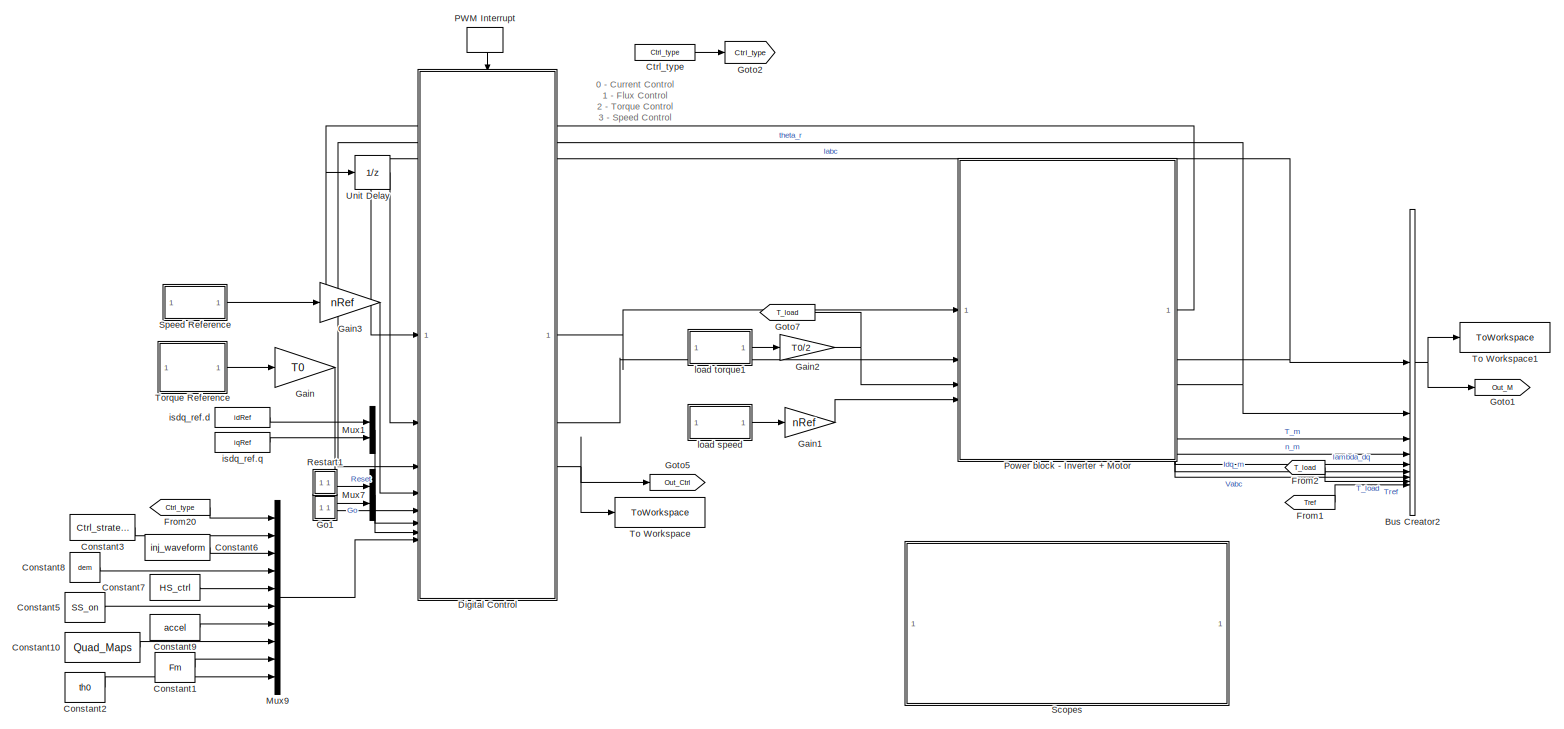
[diagram: root canvas - part 1/1, most of the canvas]
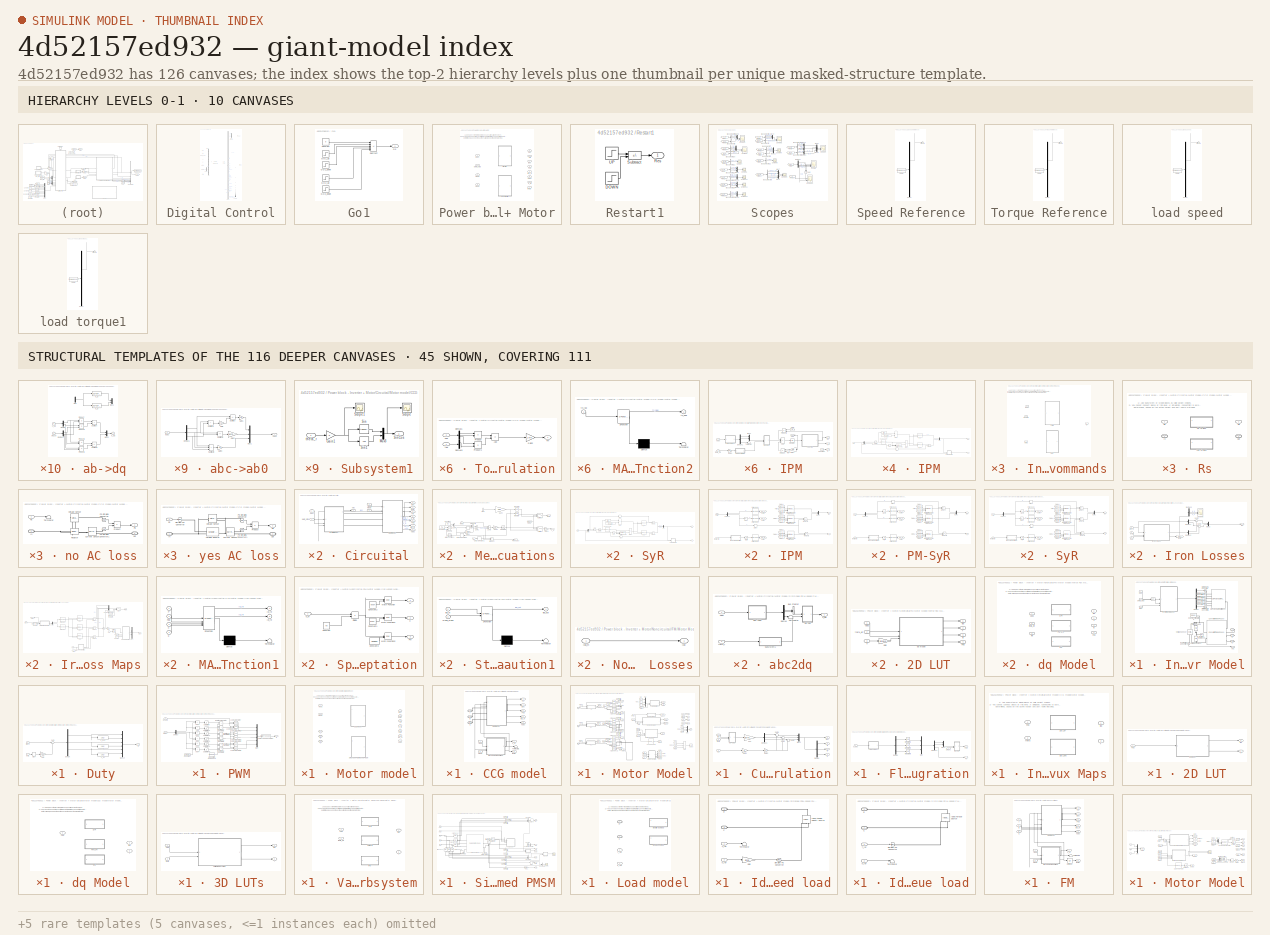
[diagram: thumbnail index - top-2 hierarchy levels (10 canvases) + 45 structural-template representatives of the remaining 116 canvases]
MODEL slx_4d52157ed932
KIND model
CONFIG AbsTol = 1e-3
CONFIG EnableMultiTasking = on
CONFIG FixedStep = Ts/10
CONFIG InitFcn = if ~exist('flagwp')\n    tic\n    init_sim\nend\nmex Motor_ctrl.c User_functions/Src/*.c
CONFIG MaxStep = Tstep
CONFIG MinStep = auto
CONFIG RelTol = 1e-3
CONFIG SampleTimeConstraint = Unconstrained
CONFIG SolverName = ode15s
CONFIG StartTime = 0.0
CONFIG StopFcn = if ~exist('flagwp')\n  elapsed_time=toc\nend\n
CONFIG StopTime = 1
BLOCK [BusCreator] Bus Creator2
  DisplayOption = bar
  InheritFromInputs = on
  Inputs = 9
BLOCK [Constant] Constant1
  Value = Fm
BLOCK [Constant] Constant10
  Value = Quad_Maps
BLOCK [Constant] Constant2
  Value = th0
BLOCK [Constant] Constant3
  Value = Ctrl_strategy
BLOCK [Constant] Constant5
  Value = SS_on
BLOCK [Constant] Constant6
  Value = inj_waveform
BLOCK [Constant] Constant7
  Value = HS_ctrl
BLOCK [Constant] Constant8
  Value = dem
BLOCK [Constant] Constant9
  Value = accel
BLOCK [Constant] Ctrl_type
  Value = Ctrl_type
BLOCK [SubSystem] Digital Control
  TreatAsAtomicUnit = on
BLOCK [BusCreator] Digital Control/Bus Creator
  DisplayOption = bar
  InheritFromInputs = on
  Inputs = 41
BLOCK [Inport] Digital Control/Commands
  Port = 7
BLOCK [S-Function] Digital Control/Control S-Function
  EnableBusSupport = off
  FunctionName = Motor_ctrl
  SFcnIsStateOwnerBlock = off
  SFunctionDeploymentMode = off
BLOCK [Demux] Digital Control/Demux1
  Outputs = 2
BLOCK [Demux] Digital Control/Demux2
  Outputs = 44
BLOCK [Inport] Digital Control/Inputs
  Port = 8
BLOCK [Mux] Digital Control/Mux
  DisplayOption = bar
  Inputs = 9
BLOCK [Mux] Digital Control/Mux1
  DisplayOption = bar
  Inputs = 3
BLOCK [Outport] Digital Control/Outputs
  Port = 3
BLOCK [Inport] Digital Control/T*
  Port = 5
BLOCK [TriggerPort] Digital Control/Trigger
  VariantControl = (inherit)
BLOCK [UnitDelay] Digital Control/Unit Delay
  HasFrameUpgradeWarning = on
  NameLocation = top
  SampleTime = -1
BLOCK [Outport] Digital Control/duty_abc
BLOCK [Inport] Digital Control/iabcs
BLOCK [Inport] Digital Control/isdq_ref
  Port = 6
BLOCK [Inport] Digital Control/n*
  Port = 4
BLOCK [Outport] Digital Control/pwm_stop
  Port = 2
BLOCK [Inport] Digital Control/theta_mec_meas
  Port = 3
BLOCK [Inport] Digital Control/vdc
  Port = 2
BLOCK [From] From1
  GotoTag = Tref
BLOCK [From] From2
  GotoTag = T_load
  TagVisibility = global
BLOCK [From] From20
  CloseFcn = tagdialog Close
  GotoTag = Ctrl_type
  TagVisibility = global
BLOCK [Gain] Gain
  Gain = T0
BLOCK [Gain] Gain1
  Gain = nRef
BLOCK [Gain] Gain2
  Gain = T0/2
BLOCK [Gain] Gain3
  Gain = nRef
BLOCK [SubSystem] Go1
BLOCK [Constant] Go1/Constant
  Value = 0
BLOCK [Step] Go1/GO1_Down
  SampleTime = 0
  Time = 0.03+4*Ts
BLOCK [Step] Go1/GO1_Up
  SampleTime = 0
  Time = 0.03
BLOCK [Step] Go1/GO2_Down
  SampleTime = 0
  Time = 0.1+4*Ts
BLOCK [Step] Go1/GO2_Up
  SampleTime = 0
  Time = 0.1
BLOCK [Outport] Go1/Go
BLOCK [Sum] Go1/Subtract
  IconShape = rectangular
  Inputs = ++-+-
BLOCK [Goto] Goto1
  GotoTag = Out_M
  TagVisibility = global
BLOCK [Goto] Goto2
  GotoTag = Ctrl_type
  TagVisibility = global
BLOCK [Goto] Goto5
  GotoTag = Out_Ctrl
  TagVisibility = global
BLOCK [Goto] Goto7
  GotoTag = T_load
  NameLocation = top
  TagVisibility = global
BLOCK [Mux] Mux1
  DisplayOption = bar
  Inputs = 2
BLOCK [Mux] Mux7
  DisplayOption = bar
  Inputs = 2
BLOCK [Mux] Mux9
  DisplayOption = bar
  Inputs = 10
BLOCK [DiscretePulseGenerator] PWM Interrupt
  NameLocation = left
  Period = Ts
  PulseType = Time based
  PulseWidth = 50
BLOCK [SubSystem] Power block - Inverter + Motor
  Variant = on
BLOCK [SubSystem] Power block - Inverter + Motor/Circuital
  VariantControl = strcmp(motorModelType,'Controlled Current Generators (CCG)') || strcmp(motorModelType,'SimScape FEM-based PMSM')
BLOCK [Inport] Power block - Inverter + Motor/Circuital/Dabc
BLOCK [Outport] Power block - Inverter + Motor/Circuital/Fdq
  Port = 6
BLOCK [Outport] Power block - Inverter + Motor/Circuital/Iabc
  Port = 2
BLOCK [Outport] Power block - Inverter + Motor/Circuital/Idq_m
  Port = 7
BLOCK [SubSystem] Power block - Inverter + Motor/Circuital/Inverter Model
BLOCK [Fcn] Power block - Inverter + Motor/Circuital/Inverter Model/ 
  Expr = 1-u(1)
  NameLocation = top
BLOCK [PMIOPort] Power block - Inverter + Motor/Circuital/Inverter Model/A
  Side = Right
BLOCK [PMIOPort] Power block - Inverter + Motor/Circuital/Inverter Model/B
  Port = 2
  Side = Right
BLOCK [PMIOPort] Power block - Inverter + Motor/Circuital/Inverter Model/C
  Port = 3
  Side = Right
BLOCK [Reference] Power block - Inverter + Motor/Circuital/Inverter Model/Converter (Three-Phase)  REF=ee_lib/Semiconductors &
Converters/Converters/Converter
(Three-Phase)
  SourceBlock = ee_lib/Semiconductors &\nConverters/Converters/Converter\n(Three-Phase)
  SourceType = Converter\n(Three-Phase)
BLOCK [Inport] Power block - Inverter + Motor/Circuital/Inverter Model/Dabc
BLOCK [Demux] Power block - Inverter + Motor/Circuital/Inverter Model/Demux
  Outputs = 6
BLOCK [Reference] Power block - Inverter + Motor/Circuital/Inverter Model/Electrical Reference  REF=fl_lib/Electrical/Electrical Elements/Electrical Reference
  NameLocation = right
  SourceBlock = fl_lib/Electrical/Electrical Elements/Electrical Reference
  SourceType = Electrical Reference
BLOCK [Inport] Power block - Inverter + Motor/Circuital/Inverter Model/Iabc
  Port = 3
BLOCK [SubSystem] Power block - Inverter + Motor/Circuital/Inverter Model/Inverter Commands
  Variant = on
BLOCK [Inport] Power block - Inverter + Motor/Circuital/Inverter Model/Inverter Commands/Dabc
BLOCK [SubSystem] Power block - Inverter + Motor/Circuital/Inverter Model/Inverter Commands/Duty
  VariantControl = InvModel==0
BLOCK [Inport] Power block - Inverter + Motor/Circuital/Inverter Model/Inverter Commands/Duty/Dabc
BLOCK [Demux] Power block - Inverter + Motor/Circuital/Inverter Model/Inverter Commands/Duty/Demux
  Outputs = 3
BLOCK [Outport] Power block - Inverter + Motor/Circuital/Inverter Model/Inverter Commands/Duty/G
  NameLocation = top
  VectorParamsAs1DForOutWhenUnconnected = off
BLOCK [Gain] Power block - Inverter + Motor/Circuital/Inverter Model/Inverter Commands/Duty/Gain
  Gain = dT/Ts
BLOCK [Mux] Power block - Inverter + Motor/Circuital/Inverter Model/Inverter Commands/Duty/Mux14
  DisplayOption = bar
  Inputs = 6
BLOCK [Signum] Power block - Inverter + Motor/Circuital/Inverter Model/Inverter Commands/Duty/Sign
BLOCK [Sum] Power block - Inverter + Motor/Circuital/Inverter Model/Inverter Commands/Duty/Sum
  Inputs = |+-
BLOCK [Fcn] Power block - Inverter + Motor/Circuital/Inverter Model/Inverter Commands/Duty/X_d1
  Expr = 1-u(1)
BLOCK [Fcn] Power block - Inverter + Motor/Circuital/Inverter Model/Inverter Commands/Duty/X_d12
  Expr = 1-u(1)
BLOCK [Fcn] Power block - Inverter + Motor/Circuital/Inverter Model/Inverter Commands/Duty/X_d2
  Expr = 1-u(1)
BLOCK [Inport] Power block - Inverter + Motor/Circuital/Inverter Model/Inverter Commands/Duty/iABC
  Port = 2
BLOCK [Inport] Power block - Inverter + Motor/Circuital/Inverter Model/Inverter Commands/Enable
  Port = 2
BLOCK [Outport] Power block - Inverter + Motor/Circuital/Inverter Model/Inverter Commands/G
BLOCK [SubSystem] Power block - Inverter + Motor/Circuital/Inverter Model/Inverter Commands/PWM
  VariantControl = InvModel==1
BLOCK [Sum] Power block - Inverter + Motor/Circuital/Inverter Model/Inverter Commands/PWM/Add
  IconShape = rectangular
BLOCK [Sum] Power block - Inverter + Motor/Circuital/Inverter Model/Inverter Commands/PWM/Add1
  IconShape = rectangular
  Inputs = +-
BLOCK [Sum] Power block - Inverter + Motor/Circuital/Inverter Model/Inverter Commands/PWM/Add2
  IconShape = rectangular
BLOCK [Sum] Power block - Inverter + Motor/Circuital/Inverter Model/Inverter Commands/PWM/Add3
  IconShape = rectangular
  Inputs = +-
BLOCK [Sum] Power block - Inverter + Motor/Circuital/Inverter Model/Inverter Commands/PWM/Add4
  IconShape = rectangular
BLOCK [Sum] Power block - Inverter + Motor/Circuital/Inverter Model/Inverter Commands/PWM/Add5
  IconShape = rectangular
  Inputs = +-
BLOCK [Constant] Power block - Inverter + Motor/Circuital/Inverter Model/Inverter Commands/PWM/Constant
  Value = 0.5*dT/Ts
BLOCK [Inport] Power block - Inverter + Motor/Circuital/Inverter Model/Inverter Commands/PWM/Dabc
BLOCK [DataTypeConversion] Power block - Inverter + Motor/Circuital/Inverter Model/Inverter Commands/PWM/Data Type Conversion
  OutDataTypeStr = double
  RndMeth = Floor
  SaturateOnIntegerOverflow = off
BLOCK [Demux] Power block - Inverter + Motor/Circuital/Inverter Model/Inverter Commands/PWM/Demux
  Outputs = 3
BLOCK [Inport] Power block - Inverter + Motor/Circuital/Inverter Model/Inverter Commands/PWM/Enable
  Port = 2
BLOCK [Outport] Power block - Inverter + Motor/Circuital/Inverter Model/Inverter Commands/PWM/G
BLOCK [Logic] Power block - Inverter + Motor/Circuital/Inverter Model/Inverter Commands/PWM/Logical Operator
  AllPortsSameDT = off
  OutDataTypeStr = boolean
BLOCK [Logic] Power block - Inverter + Motor/Circuital/Inverter Model/Inverter Commands/PWM/Logical Operator1
  AllPortsSameDT = off
  OutDataTypeStr = boolean
BLOCK [Logic] Power block - Inverter + Motor/Circuital/Inverter Model/Inverter Commands/PWM/Logical Operator2
  AllPortsSameDT = off
  OutDataTypeStr = boolean
BLOCK [Logic] Power block - Inverter + Motor/Circuital/Inverter Model/Inverter Commands/PWM/Logical Operator3
  AllPortsSameDT = off
  OutDataTypeStr = boolean
BLOCK [Logic] Power block - Inverter + Motor/Circuital/Inverter Model/Inverter Commands/PWM/Logical Operator4
  AllPortsSameDT = off
  OutDataTypeStr = boolean
BLOCK [Logic] Power block - Inverter + Motor/Circuital/Inverter Model/Inverter Commands/PWM/Logical Operator5
  AllPortsSameDT = off
  OutDataTypeStr = boolean
BLOCK [Mux] Power block - Inverter + Motor/Circuital/Inverter Model/Inverter Commands/PWM/Mux
  DisplayOption = bar
  Inputs = 6
BLOCK [RelationalOperator] Power block - Inverter + Motor/Circuital/Inverter Model/Inverter Commands/PWM/Relational Operator
  InputSameDT = off
  Operator = >
  OutDataTypeStr = boolean
  RndMeth = Simplest
BLOCK [RelationalOperator] Power block - Inverter + Motor/Circuital/Inverter Model/Inverter Commands/PWM/Relational Operator1
  InputSameDT = off
  Operator = >
  OutDataTypeStr = boolean
  RndMeth = Simplest
BLOCK [RelationalOperator] Power block - Inverter + Motor/Circuital/Inverter Model/Inverter Commands/PWM/Relational Operator2
  InputSameDT = off
  Operator = >
  OutDataTypeStr = boolean
  RndMeth = Simplest
BLOCK [RelationalOperator] Power block - Inverter + Motor/Circuital/Inverter Model/Inverter Commands/PWM/Relational Operator3
  InputSameDT = off
  Operator = >
  OutDataTypeStr = boolean
  RndMeth = Simplest
BLOCK [RelationalOperator] Power block - Inverter + Motor/Circuital/Inverter Model/Inverter Commands/PWM/Relational Operator4
  InputSameDT = off
  Operator = >
  OutDataTypeStr = boolean
  RndMeth = Simplest
BLOCK [RelationalOperator] Power block - Inverter + Motor/Circuital/Inverter Model/Inverter Commands/PWM/Relational Operator5
  InputSameDT = off
  Operator = >
  OutDataTypeStr = boolean
  RndMeth = Simplest
BLOCK [Reference] Power block - Inverter + Motor/Circuital/Inverter Model/Inverter Commands/PWM/Repeating Sequence  REF=simulink/Sources/Repeating
Sequence
  SourceBlock = simulink/Sources/Repeating\nSequence
  SourceType = Repeating table
BLOCK [Saturate] Power block - Inverter + Motor/Circuital/Inverter Model/Inverter Commands/PWM/Saturation
  LowerLimit = 0
  UpperLimit = 1
BLOCK [Saturate] Power block - Inverter + Motor/Circuital/Inverter Model/Inverter Commands/PWM/Saturation1
  LowerLimit = 0
  UpperLimit = 1
BLOCK [Saturate] Power block - Inverter + Motor/Circuital/Inverter Model/Inverter Commands/PWM/Saturation2
  LowerLimit = 0
  UpperLimit = 1
BLOCK [Saturate] Power block - Inverter + Motor/Circuital/Inverter Model/Inverter Commands/PWM/Saturation3
  LowerLimit = 0
  UpperLimit = 1
BLOCK [Saturate] Power block - Inverter + Motor/Circuital/Inverter Model/Inverter Commands/PWM/Saturation4
  LowerLimit = 0
  UpperLimit = 1
BLOCK [Saturate] Power block - Inverter + Motor/Circuital/Inverter Model/Inverter Commands/PWM/Saturation5
  LowerLimit = 0
  UpperLimit = 1
BLOCK [Inport] Power block - Inverter + Motor/Circuital/Inverter Model/Inverter Commands/iABC
  Port = 3
BLOCK [Reference] Power block - Inverter + Motor/Circuital/Inverter Model/PS-Simulink Converter  REF=nesl_utility/PS-Simulink
Converter
  NameLocation = left
  SourceBlock = nesl_utility/PS-Simulink\nConverter
  SourceType = PS-Simulink\nConverter
BLOCK [Reference] Power block - Inverter + Motor/Circuital/Inverter Model/Simulink-PS Converter  REF=nesl_utility/Simulink-PS
Converter
  SourceBlock = nesl_utility/Simulink-PS\nConverter
  SourceType = Simulink-PS\nConverter
BLOCK [Reference] Power block - Inverter + Motor/Circuital/Inverter Model/Simulink-PS Converter1  REF=nesl_utility/Simulink-PS
Converter
  SourceBlock = nesl_utility/Simulink-PS\nConverter
  SourceType = Simulink-PS\nConverter
BLOCK [Reference] Power block - Inverter + Motor/Circuital/Inverter Model/Simulink-PS Converter2  REF=nesl_utility/Simulink-PS
Converter
  SourceBlock = nesl_utility/Simulink-PS\nConverter
  SourceType = Simulink-PS\nConverter
BLOCK [Reference] Power block - Inverter + Motor/Circuital/Inverter Model/Simulink-PS Converter3  REF=nesl_utility/Simulink-PS
Converter
  SourceBlock = nesl_utility/Simulink-PS\nConverter
  SourceType = Simulink-PS\nConverter
BLOCK [Reference] Power block - Inverter + Motor/Circuital/Inverter Model/Simulink-PS Converter4  REF=nesl_utility/Simulink-PS
Converter
  SourceBlock = nesl_utility/Simulink-PS\nConverter
  SourceType = Simulink-PS\nConverter
BLOCK [Reference] Power block - Inverter + Motor/Circuital/Inverter Model/Simulink-PS Converter5  REF=nesl_utility/Simulink-PS
Converter
  SourceBlock = nesl_utility/Simulink-PS\nConverter
  SourceType = Simulink-PS\nConverter
BLOCK [Reference] Power block - Inverter + Motor/Circuital/Inverter Model/Six-Pulse Gate Multiplexer  REF=ee_lib/Semiconductors &
Converters/Converters/Six-Pulse Gate
Multiplexer
  SourceBlock = ee_lib/Semiconductors &\nConverters/Converters/Six-Pulse Gate\nMultiplexer
  SourceType = Six-Pulse Gate\nMultiplexer
BLOCK [Reference] Power block - Inverter + Motor/Circuital/Inverter Model/Solver Configuration  REF=nesl_utility/Solver
Configuration
  SourceBlock = nesl_utility/Solver\nConfiguration
  SourceType = Solver\nConfiguration
BLOCK [Outport] Power block - Inverter + Motor/Circuital/Inverter Model/Vdc
BLOCK [Reference] Power block - Inverter + Motor/Circuital/Inverter Model/Voltage Sensor  REF=fl_lib/Electrical/Electrical Sensors/Voltage Sensor
  NameLocation = right
  SourceBlock = fl_lib/Electrical/Electrical Sensors/Voltage Sensor
  SourceType = Voltage Sensor
BLOCK [Reference] Power block - Inverter + Motor/Circuital/Inverter Model/Voltage Source  REF=ee_lib/Sources/Voltage Source
  NameLocation = right
  SourceBlock = ee_lib/Sources/Voltage Source
  SourceType = Voltage Source
BLOCK [Reference] Power block - Inverter + Motor/Circuital/Inverter Model/Voltage Source1  REF=ee_lib/Sources/Voltage Source
  NameLocation = right
  SourceBlock = ee_lib/Sources/Voltage Source
  SourceType = Voltage Source
BLOCK [Inport] Power block - Inverter + Motor/Circuital/Inverter Model/pwm_stop
  Port = 2
BLOCK [SubSystem] Power block - Inverter + Motor/Circuital/Motor model
  Variant = on
BLOCK [PMIOPort] Power block - Inverter + Motor/Circuital/Motor model/A
  Side = Left
BLOCK [PMIOPort] Power block - Inverter + Motor/Circuital/Motor model/B
  Port = 2
  Side = Left
BLOCK [PMIOPort] Power block - Inverter + Motor/Circuital/Motor model/C
  Port = 3
  Side = Left
BLOCK [SubSystem] Power block - Inverter + Motor/Circuital/Motor model/CCG model
  VariantControl = strcmp(motorModelType,'Controlled Current Generators (CCG)')
BLOCK [PMIOPort] Power block - Inverter + Motor/Circuital/Motor model/CCG model/A
  Side = Left
BLOCK [PMIOPort] Power block - Inverter + Motor/Circuital/Motor model/CCG model/B
  Port = 2
  Side = Left
BLOCK [PMIOPort] Power block - Inverter + Motor/Circuital/Motor model/CCG model/C
  Port = 3
  Side = Left
BLOCK [Outport] Power block - Inverter + Motor/Circuital/Motor model/CCG model/Fdq
  Port = 5
BLOCK [Outport] Power block - Inverter + Motor/Circuital/Motor model/CCG model/Iabc
BLOCK [Outport] Power block - Inverter + Motor/Circuital/Motor model/CCG model/Idq_m
  Port = 6
BLOCK [SubSystem] Power block - Inverter + Motor/Circuital/Motor model/CCG model/Mechanical equations
  NameLocation = top
BLOCK [Constant] Power block - Inverter + Motor/Circuital/Motor model/CCG model/Mechanical equations/Constant
  Value = Tf
BLOCK [Constant] Power block - Inverter + Motor/Circuital/Motor model/CCG model/Mechanical equations/Constant1
  Value = Tv
BLOCK [Delay] Power block - Inverter + Motor/Circuital/Motor model/CCG model/Mechanical equations/Delay One Step1
  DelayLength = 1
  InputPortMap = u0
BLOCK [Delay] Power block - Inverter + Motor/Circuital/Motor model/CCG model/Mechanical equations/Delay One Step2
  DelayLength = 1
  InputPortMap = u0
BLOCK [From] Power block - Inverter + Motor/Circuital/Motor model/CCG model/Mechanical equations/From5
  GotoTag = Ctrl_type
  TagVisibility = global
BLOCK [Gain] Power block - Inverter + Motor/Circuital/Motor model/CCG model/Mechanical equations/Gain1
  Gain = 30/pi
BLOCK [Gain] Power block - Inverter + Motor/Circuital/Motor model/CCG model/Mechanical equations/Gain2
  Gain = Bm
  OutDataTypeStr = Inherit: Same as input
  ParamDataTypeStr = Inherit: Same as input
  SaturateOnIntegerOverflow = on
BLOCK [Gain] Power block - Inverter + Motor/Circuital/Motor model/CCG model/Mechanical equations/Gain3
  Gain = 1/J
  OutDataTypeStr = Inherit: Same as input
  ParamDataTypeStr = Inherit: Same as input
  SaturateOnIntegerOverflow = on
BLOCK [Gain] Power block - Inverter + Motor/Circuital/Motor model/CCG model/Mechanical equations/Gain4
  Gain = (2*pi)/60
BLOCK [Integrator] Power block - Inverter + Motor/Circuital/Motor model/CCG model/Mechanical equations/Integrator
  InitialCondition = th0
  WrapState = on
  WrappedStateLowerValue = 0
  WrappedStateUpperValue = 2*pi
BLOCK [Integrator] Power block - Inverter + Motor/Circuital/Motor model/CCG model/Mechanical equations/Integrator1
BLOCK [Integrator] Power block - Inverter + Motor/Circuital/Motor model/CCG model/Mechanical equations/Integrator2
  InitialCondition = th0
  WrapState = on
  WrappedStateLowerValue = 0
  WrappedStateUpperValue = 2*pi
BLOCK [Math] Power block - Inverter + Motor/Circuital/Motor model/CCG model/Mechanical equations/Math Function1
  Operator = magnitude^2
  SignedPower = on
BLOCK [Outport] Power block - Inverter + Motor/Circuital/Motor model/CCG model/Mechanical equations/Pmec_out
  Port = 2
  VectorParamsAs1DForOutWhenUnconnected = off
BLOCK [Product] Power block - Inverter + Motor/Circuital/Motor model/CCG model/Mechanical equations/Product
  OutDataTypeStr = Inherit: Same as first input
  SaturateOnIntegerOverflow = on
BLOCK [Product] Power block - Inverter + Motor/Circuital/Motor model/CCG model/Mechanical equations/Product3
  OutDataTypeStr = Inherit: Same as first input
  SaturateOnIntegerOverflow = on
BLOCK [Product] Power block - Inverter + Motor/Circuital/Motor model/CCG model/Mechanical equations/Product6
  OutDataTypeStr = Inherit: Same as first input
  SaturateOnIntegerOverflow = on
BLOCK [Inport] Power block - Inverter + Motor/Circuital/Motor model/CCG model/Mechanical equations/RPM
  Port = 3
BLOCK [Signum] Power block - Inverter + Motor/Circuital/Motor model/CCG model/Mechanical equations/Sign
  ZeroCross = off
BLOCK [Sum] Power block - Inverter + Motor/Circuital/Motor model/CCG model/Mechanical equations/Sum1
  IconShape = rectangular
  OutDataTypeStr = Inherit: Same as first input
  SaturateOnIntegerOverflow = on
BLOCK [Sum] Power block - Inverter + Motor/Circuital/Motor model/CCG model/Mechanical equations/Sum4
  IconShape = rectangular
  OutDataTypeStr = Inherit: Same as first input
  SaturateOnIntegerOverflow = on
BLOCK [Sum] Power block - Inverter + Motor/Circuital/Motor model/CCG model/Mechanical equations/Sum5
  IconShape = rectangular
  Inputs = --+
  OutDataTypeStr = Inherit: Same as first input
  SaturateOnIntegerOverflow = on
BLOCK [Switch] Power block - Inverter + Motor/Circuital/Motor model/CCG model/Mechanical equations/Switch
  Criteria = u2 > Threshold
  InputSameDT = off
  SaturateOnIntegerOverflow = off
  Threshold = 2.5
BLOCK [Switch] Power block - Inverter + Motor/Circuital/Motor model/CCG model/Mechanical equations/Switch1
  Criteria = u2 > Threshold
  InputSameDT = off
  SaturateOnIntegerOverflow = off
  Threshold = 2.5
BLOCK [Inport] Power block - Inverter + Motor/Circuital/Motor model/CCG model/Mechanical equations/Tload
  NameLocation = top
BLOCK [Inport] Power block - Inverter + Motor/Circuital/Motor model/CCG model/Mechanical equations/Tm
  Port = 2
BLOCK [Outport] Power block - Inverter + Motor/Circuital/Motor model/CCG model/Mechanical equations/n_m
BLOCK [Outport] Power block - Inverter + Motor/Circuital/Motor model/CCG model/Mechanical equations/thetar
  Port = 3
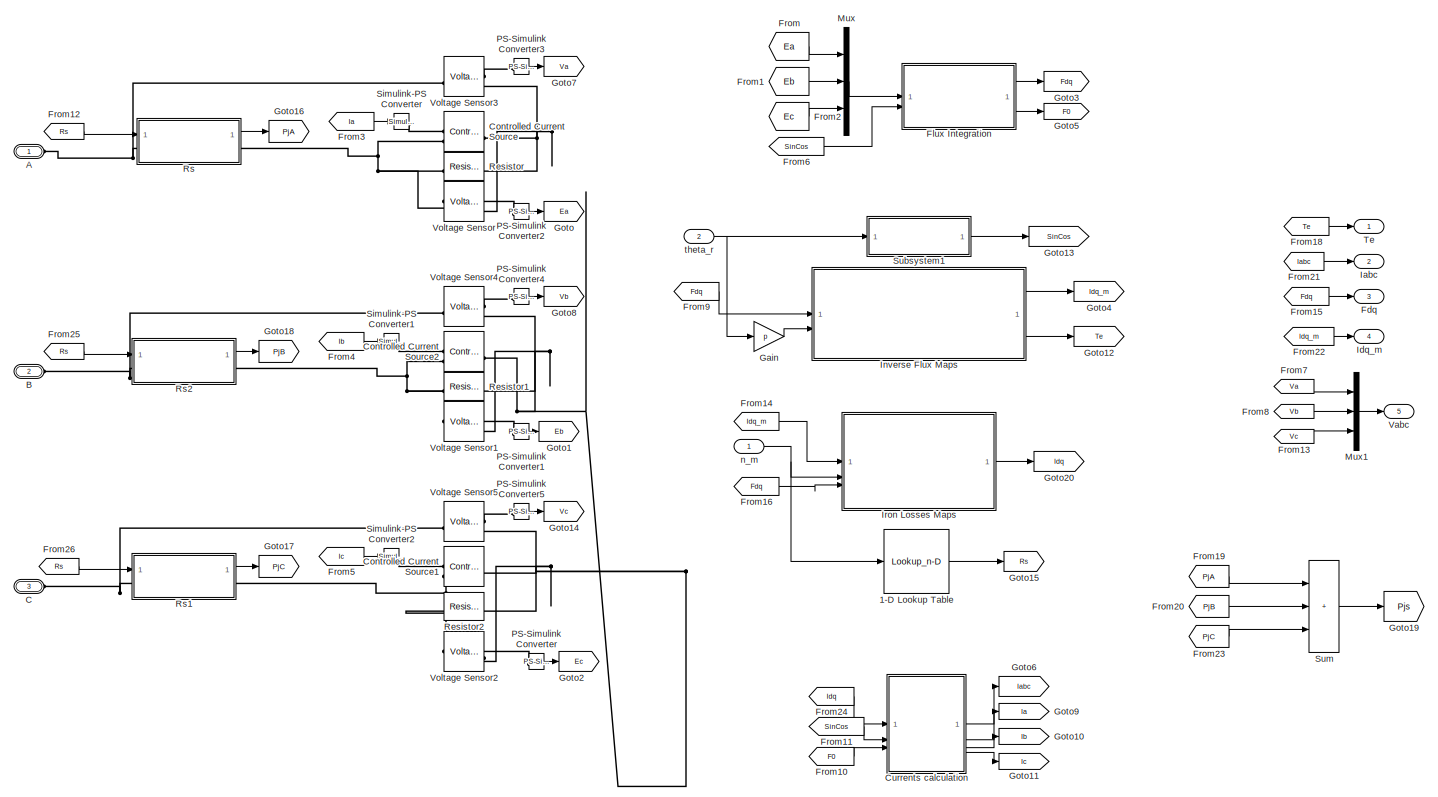
[diagram: Power block - Inverter + Motor/Circuital/Motor model/CCG model/Motor Model - part 1/1, most of the canvas]
BLOCK [SubSystem] Power block - Inverter + Motor/Circuital/Motor model/CCG model/Motor Model
BLOCK [Lookup_n-D] Power block - Inverter + Motor/Circuital/Motor model/CCG model/Motor Model/1-D Lookup Table
  BreakpointsForDimension1 = ACloss.n
  InputPortMap = u0
  InternalRulePriority = Speed
  NumberOfTableDimensions = 1
  RndMeth = Simplest
  Table = ACloss.Rac
BLOCK [PMIOPort] Power block - Inverter + Motor/Circuital/Motor model/CCG model/Motor Model/A
  Side = Left
BLOCK [PMIOPort] Power block - Inverter + Motor/Circuital/Motor model/CCG model/Motor Model/B
  Port = 2
  Side = Left
BLOCK [PMIOPort] Power block - Inverter + Motor/Circuital/Motor model/CCG model/Motor Model/C
  Port = 3
  Side = Left
BLOCK [Reference] Power block - Inverter + Motor/Circuital/Motor model/CCG model/Motor Model/Controlled Current Source  REF=fl_lib/Electrical/Electrical Sources/Controlled Current
Source
  SourceBlock = fl_lib/Electrical/Electrical Sources/Controlled Current\nSource
  SourceType = Controlled Current\nSource
BLOCK [Reference] Power block - Inverter + Motor/Circuital/Motor model/CCG model/Motor Model/Controlled Current Source1  REF=fl_lib/Electrical/Electrical Sources/Controlled Current
Source
  SourceBlock = fl_lib/Electrical/Electrical Sources/Controlled Current\nSource
  SourceType = Controlled Current\nSource
BLOCK [Reference] Power block - Inverter + Motor/Circuital/Motor model/CCG model/Motor Model/Controlled Current Source2  REF=fl_lib/Electrical/Electrical Sources/Controlled Current
Source
  SourceBlock = fl_lib/Electrical/Electrical Sources/Controlled Current\nSource
  SourceType = Controlled Current\nSource
BLOCK [SubSystem] Power block - Inverter + Motor/Circuital/Motor model/CCG model/Motor Model/Currents calculation
BLOCK [Gain] Power block - Inverter + Motor/Circuital/Motor model/CCG model/Motor Model/Currents calculation/2-->3
  Gain = Clarke_inv
  Multiplication = Matrix(K*u)
  NameLocation = top
  OutDataTypeStr = Inherit: Same as input
  ParamDataTypeStr = Inherit: Same as input
  SaturateOnIntegerOverflow = on
BLOCK [Demux] Power block - Inverter + Motor/Circuital/Motor model/CCG model/Motor Model/Currents calculation/Demux
  Outputs = 3
BLOCK [Demux] Power block - Inverter + Motor/Circuital/Motor model/CCG model/Motor Model/Currents calculation/Demux1
  Outputs = 3
BLOCK [Inport] Power block - Inverter + Motor/Circuital/Motor model/CCG model/Motor Model/Currents calculation/F0
  Port = 3
BLOCK [Gain] Power block - Inverter + Motor/Circuital/Motor model/CCG model/Motor Model/Currents calculation/Gain1
  Gain = 0
BLOCK [Gain] Power block - Inverter + Motor/Circuital/Motor model/CCG model/Motor Model/Currents calculation/Gain2
  Gain = 1/3
BLOCK [Outport] Power block - Inverter + Motor/Circuital/Motor model/CCG model/Motor Model/Currents calculation/Ia
  Port = 2
BLOCK [Outport] Power block - Inverter + Motor/Circuital/Motor model/CCG model/Motor Model/Currents calculation/Iabc
BLOCK [Outport] Power block - Inverter + Motor/Circuital/Motor model/CCG model/Motor Model/Currents calculation/Ib
  Port = 3
BLOCK [Outport] Power block - Inverter + Motor/Circuital/Motor model/CCG model/Motor Model/Currents calculation/Ic
  Port = 4
BLOCK [Inport] Power block - Inverter + Motor/Circuital/Motor model/CCG model/Motor Model/Currents calculation/Idq
BLOCK [Mux] Power block - Inverter + Motor/Circuital/Motor model/CCG model/Motor Model/Currents calculation/Mux3
  DisplayOption = bar
  Inputs = 3
BLOCK [Sum] Power block - Inverter + Motor/Circuital/Motor model/CCG model/Motor Model/Currents calculation/Sum1
  Inputs = |++
BLOCK [Sum] Power block - Inverter + Motor/Circuital/Motor model/CCG model/Motor Model/Currents calculation/Sum2
  Inputs = |++
BLOCK [Sum] Power block - Inverter + Motor/Circuital/Motor model/CCG model/Motor Model/Currents calculation/Sum3
  Inputs = |++
BLOCK [SubSystem] Power block - Inverter + Motor/Circuital/Motor model/CCG model/Motor Model/Currents calculation/dq->ab1
BLOCK [Demux] Power block - Inverter + Motor/Circuital/Motor model/CCG model/Motor Model/Currents calculation/dq->ab1/Demux
  Outputs = 2
BLOCK [Demux] Power block - Inverter + Motor/Circuital/Motor model/CCG model/Motor Model/Currents calculation/dq->ab1/Demux1
  Outputs = 2
BLOCK [Mux] Power block - Inverter + Motor/Circuital/Motor model/CCG model/Motor Model/Currents calculation/dq->ab1/Mux
  DisplayOption = bar
  Inputs = 2
BLOCK [Mux] Power block - Inverter + Motor/Circuital/Motor model/CCG model/Motor Model/Currents calculation/dq->ab1/Mux2
  Commented = on
  Inputs = 2
BLOCK [Mux] Power block - Inverter + Motor/Circuital/Motor model/CCG model/Motor Model/Currents calculation/dq->ab1/Mux3
  Commented = on
  Inputs = 2
BLOCK [Product] Power block - Inverter + Motor/Circuital/Motor model/CCG model/Motor Model/Currents calculation/dq->ab1/Product
BLOCK [Product] Power block - Inverter + Motor/Circuital/Motor model/CCG model/Motor Model/Currents calculation/dq->ab1/Product1
BLOCK [Product] Power block - Inverter + Motor/Circuital/Motor model/CCG model/Motor Model/Currents calculation/dq->ab1/Product2
BLOCK [Product] Power block - Inverter + Motor/Circuital/Motor model/CCG model/Motor Model/Currents calculation/dq->ab1/Product3
BLOCK [Sum] Power block - Inverter + Motor/Circuital/Motor model/CCG model/Motor Model/Currents calculation/dq->ab1/Subtract
  IconShape = rectangular
  Inputs = +-
BLOCK [Sum] Power block - Inverter + Motor/Circuital/Motor model/CCG model/Motor Model/Currents calculation/dq->ab1/Subtract1
  IconShape = rectangular
BLOCK [Inport] Power block - Inverter + Motor/Circuital/Motor model/CCG model/Motor Model/Currents calculation/dq->ab1/X_ab
BLOCK [Fcn] Power block - Inverter + Motor/Circuital/Motor model/CCG model/Motor Model/Currents calculation/dq->ab1/X_d1
  Commented = on
  Expr = u(1)*u(4) - u(2)*u(3)
BLOCK [Outport] Power block - Inverter + Motor/Circuital/Motor model/CCG model/Motor Model/Currents calculation/dq->ab1/X_dq
  InitialOutput = 0
BLOCK [Fcn] Power block - Inverter + Motor/Circuital/Motor model/CCG model/Motor Model/Currents calculation/dq->ab1/X_q1
  Commented = on
  Expr = u(1)*u(3) + u(2)*u(4)
BLOCK [Inport] Power block - Inverter + Motor/Circuital/Motor model/CCG model/Motor Model/Currents calculation/dq->ab1/sin,cos
  Port = 2
BLOCK [Inport] Power block - Inverter + Motor/Circuital/Motor model/CCG model/Motor Model/Currents calculation/theta
  Port = 2
BLOCK [Outport] Power block - Inverter + Motor/Circuital/Motor model/CCG model/Motor Model/Fdq
  Port = 3
BLOCK [SubSystem] Power block - Inverter + Motor/Circuital/Motor model/CCG model/Motor Model/Flux Integration
BLOCK [Demux] Power block - Inverter + Motor/Circuital/Motor model/CCG model/Motor Model/Flux Integration/Demux
  Outputs = 3
BLOCK [Demux] Power block - Inverter + Motor/Circuital/Motor model/CCG model/Motor Model/Flux Integration/Demux1
  Outputs = 3
BLOCK [Outport] Power block - Inverter + Motor/Circuital/Motor model/CCG model/Motor Model/Flux Integration/F0
  Port = 2
BLOCK [Outport] Power block - Inverter + Motor/Circuital/Motor model/CCG model/Motor Model/Flux Integration/Fdq
BLOCK [Integrator] Power block - Inverter + Motor/Circuital/Motor model/CCG model/Motor Model/Flux Integration/Integrator1
  InitialCondition = InitIntg_d
BLOCK [Integrator] Power block - Inverter + Motor/Circuital/Motor model/CCG model/Motor Model/Flux Integration/Integrator4
  InitialCondition = InitIntg_q
BLOCK [Integrator] Power block - Inverter + Motor/Circuital/Motor model/CCG model/Motor Model/Flux Integration/Integrator5
BLOCK [Mux] Power block - Inverter + Motor/Circuital/Motor model/CCG model/Motor Model/Flux Integration/Mux
  DisplayOption = bar
  Inputs = 3
BLOCK [Mux] Power block - Inverter + Motor/Circuital/Motor model/CCG model/Motor Model/Flux Integration/Mux1
  DisplayOption = bar
  Inputs = 2
BLOCK [Inport] Power block - Inverter + Motor/Circuital/Motor model/CCG model/Motor Model/Flux Integration/SinCos
  Port = 2
BLOCK [SubSystem] Power block - Inverter + Motor/Circuital/Motor model/CCG model/Motor Model/Flux Integration/ab->dq
BLOCK [Demux] Power block - Inverter + Motor/Circuital/Motor model/CCG model/Motor Model/Flux Integration/ab->dq/Demux
  Outputs = 2
BLOCK [Demux] Power block - Inverter + Motor/Circuital/Motor model/CCG model/Motor Model/Flux Integration/ab->dq/Demux1
  Outputs = 2
BLOCK [Mux] Power block - Inverter + Motor/Circuital/Motor model/CCG model/Motor Model/Flux Integration/ab->dq/Mux
  Commented = on
  DisplayOption = bar
  Inputs = 2
BLOCK [Mux] Power block - Inverter + Motor/Circuital/Motor model/CCG model/Motor Model/Flux Integration/ab->dq/Mux1
  Commented = on
  DisplayOption = bar
  Inputs = 2
BLOCK [Mux] Power block - Inverter + Motor/Circuital/Motor model/CCG model/Motor Model/Flux Integration/ab->dq/Mux2
  DisplayOption = bar
  Inputs = 2
BLOCK [Product] Power block - Inverter + Motor/Circuital/Motor model/CCG model/Motor Model/Flux Integration/ab->dq/Product
BLOCK [Product] Power block - Inverter + Motor/Circuital/Motor model/CCG model/Motor Model/Flux Integration/ab->dq/Product1
BLOCK [Product] Power block - Inverter + Motor/Circuital/Motor model/CCG model/Motor Model/Flux Integration/ab->dq/Product2
BLOCK [Product] Power block - Inverter + Motor/Circuital/Motor model/CCG model/Motor Model/Flux Integration/ab->dq/Product3
BLOCK [Sum] Power block - Inverter + Motor/Circuital/Motor model/CCG model/Motor Model/Flux Integration/ab->dq/Subtract
  IconShape = rectangular
BLOCK [Sum] Power block - Inverter + Motor/Circuital/Motor model/CCG model/Motor Model/Flux Integration/ab->dq/Subtract1
  IconShape = rectangular
  Inputs = -+
BLOCK [Inport] Power block - Inverter + Motor/Circuital/Motor model/CCG model/Motor Model/Flux Integration/ab->dq/X_ab
BLOCK [Fcn] Power block - Inverter + Motor/Circuital/Motor model/CCG model/Motor Model/Flux Integration/ab->dq/X_d
  Commented = on
  Expr = u(1)*u(4) + u(2)*u(3)
BLOCK [Outport] Power block - Inverter + Motor/Circuital/Motor model/CCG model/Motor Model/Flux Integration/ab->dq/X_dq
  InitialOutput = 0
BLOCK [Fcn] Power block - Inverter + Motor/Circuital/Motor model/CCG model/Motor Model/Flux Integration/ab->dq/X_q
  Commented = on
  Expr = - u(1)*u(3) + u(2)*u(4)
BLOCK [Inport] Power block - Inverter + Motor/Circuital/Motor model/CCG model/Motor Model/Flux Integration/ab->dq/sin,cos
  Port = 2
BLOCK [SubSystem] Power block - Inverter + Motor/Circuital/Motor model/CCG model/Motor Model/Flux Integration/abc->ab0
BLOCK [Demux] Power block - Inverter + Motor/Circuital/Motor model/CCG model/Motor Model/Flux Integration/abc->ab0/Demux1
  Outputs = 3
BLOCK [Gain] Power block - Inverter + Motor/Circuital/Motor model/CCG model/Motor Model/Flux Integration/abc->ab0/Gain
  Gain = 0.5
BLOCK [Gain] Power block - Inverter + Motor/Circuital/Motor model/CCG model/Motor Model/Flux Integration/abc->ab0/Gain1
  Gain = 2/3
BLOCK [Gain] Power block - Inverter + Motor/Circuital/Motor model/CCG model/Motor Model/Flux Integration/abc->ab0/Gain2
  Gain = 1/sqrt(3)
BLOCK [Gain] Power block - Inverter + Motor/Circuital/Motor model/CCG model/Motor Model/Flux Integration/abc->ab0/Gain3
  Gain = 1/3
BLOCK [Mux] Power block - Inverter + Motor/Circuital/Motor model/CCG model/Motor Model/Flux Integration/abc->ab0/Mux1
  DisplayOption = bar
  Inputs = 3
BLOCK [Sum] Power block - Inverter + Motor/Circuital/Motor model/CCG model/Motor Model/Flux Integration/abc->ab0/Subtract
  IconShape = rectangular
  Inputs = +-
BLOCK [Sum] Power block - Inverter + Motor/Circuital/Motor model/CCG model/Motor Model/Flux Integration/abc->ab0/Subtract1
  IconShape = rectangular
BLOCK [Sum] Power block - Inverter + Motor/Circuital/Motor model/CCG model/Motor Model/Flux Integration/abc->ab0/Subtract2
  IconShape = rectangular
  Inputs = +-
BLOCK [Sum] Power block - Inverter + Motor/Circuital/Motor model/CCG model/Motor Model/Flux Integration/abc->ab0/Subtract3
  IconShape = rectangular
  Inputs = +++
BLOCK [Outport] Power block - Inverter + Motor/Circuital/Motor model/CCG model/Motor Model/Flux Integration/abc->ab0/eab0
BLOCK [Inport] Power block - Inverter + Motor/Circuital/Motor model/CCG model/Motor Model/Flux Integration/abc->ab0/eabc
BLOCK [Inport] Power block - Inverter + Motor/Circuital/Motor model/CCG model/Motor Model/Flux Integration/e_abc
BLOCK [From] Power block - Inverter + Motor/Circuital/Motor model/CCG model/Motor Model/From
  GotoTag = Ea
BLOCK [From] Power block - Inverter + Motor/Circuital/Motor model/CCG model/Motor Model/From1
  GotoTag = Eb
BLOCK [From] Power block - Inverter + Motor/Circuital/Motor model/CCG model/Motor Model/From10
  GotoTag = F0
BLOCK [From] Power block - Inverter + Motor/Circuital/Motor model/CCG model/Motor Model/From11
  GotoTag = SinCos
BLOCK [From] Power block - Inverter + Motor/Circuital/Motor model/CCG model/Motor Model/From12
  GotoTag = Rs
  TagVisibility = global
BLOCK [From] Power block - Inverter + Motor/Circuital/Motor model/CCG model/Motor Model/From13
  GotoTag = Vc
BLOCK [From] Power block - Inverter + Motor/Circuital/Motor model/CCG model/Motor Model/From14
  GotoTag = Idq_m
BLOCK [From] Power block - Inverter + Motor/Circuital/Motor model/CCG model/Motor Model/From15
  GotoTag = Fdq
BLOCK [From] Power block - Inverter + Motor/Circuital/Motor model/CCG model/Motor Model/From16
  GotoTag = Fdq
BLOCK [From] Power block - Inverter + Motor/Circuital/Motor model/CCG model/Motor Model/From18
  GotoTag = Te
BLOCK [From] Power block - Inverter + Motor/Circuital/Motor model/CCG model/Motor Model/From19
  GotoTag = PjA
  TagVisibility = global
BLOCK [From] Power block - Inverter + Motor/Circuital/Motor model/CCG model/Motor Model/From2
  GotoTag = Ec
BLOCK [From] Power block - Inverter + Motor/Circuital/Motor model/CCG model/Motor Model/From20
  GotoTag = PjB
  TagVisibility = global
BLOCK [From] Power block - Inverter + Motor/Circuital/Motor model/CCG model/Motor Model/From21
  GotoTag = Iabc
BLOCK [From] Power block - Inverter + Motor/Circuital/Motor model/CCG model/Motor Model/From22
  GotoTag = Idq_m
BLOCK [From] Power block - Inverter + Motor/Circuital/Motor model/CCG model/Motor Model/From23
  GotoTag = PjC
  TagVisibility = global
BLOCK [From] Power block - Inverter + Motor/Circuital/Motor model/CCG model/Motor Model/From24
  GotoTag = Idq
BLOCK [From] Power block - Inverter + Motor/Circuital/Motor model/CCG model/Motor Model/From25
  GotoTag = Rs
  TagVisibility = global
BLOCK [From] Power block - Inverter + Motor/Circuital/Motor model/CCG model/Motor Model/From26
  GotoTag = Rs
  TagVisibility = global
BLOCK [From] Power block - Inverter + Motor/Circuital/Motor model/CCG model/Motor Model/From3
  GotoTag = Ia
BLOCK [From] Power block - Inverter + Motor/Circuital/Motor model/CCG model/Motor Model/From4
  GotoTag = Ib
BLOCK [From] Power block - Inverter + Motor/Circuital/Motor model/CCG model/Motor Model/From5
  GotoTag = Ic
BLOCK [From] Power block - Inverter + Motor/Circuital/Motor model/CCG model/Motor Model/From6
  GotoTag = SinCos
BLOCK [From] Power block - Inverter + Motor/Circuital/Motor model/CCG model/Motor Model/From7
  GotoTag = Va
BLOCK [From] Power block - Inverter + Motor/Circuital/Motor model/CCG model/Motor Model/From8
  GotoTag = Vb
BLOCK [From] Power block - Inverter + Motor/Circuital/Motor model/CCG model/Motor Model/From9
  GotoTag = Fdq
BLOCK [Gain] Power block - Inverter + Motor/Circuital/Motor model/CCG model/Motor Model/Gain
  Gain = p
BLOCK [Goto] Power block - Inverter + Motor/Circuital/Motor model/CCG model/Motor Model/Goto
  GotoTag = Ea
BLOCK [Goto] Power block - Inverter + Motor/Circuital/Motor model/CCG model/Motor Model/Goto1
  GotoTag = Eb
BLOCK [Goto] Power block - Inverter + Motor/Circuital/Motor model/CCG model/Motor Model/Goto10
  GotoTag = Ib
BLOCK [Goto] Power block - Inverter + Motor/Circuital/Motor model/CCG model/Motor Model/Goto11
  GotoTag = Ic
BLOCK [Goto] Power block - Inverter + Motor/Circuital/Motor model/CCG model/Motor Model/Goto12
  GotoTag = Te
BLOCK [Goto] Power block - Inverter + Motor/Circuital/Motor model/CCG model/Motor Model/Goto13
  GotoTag = SinCos
BLOCK [Goto] Power block - Inverter + Motor/Circuital/Motor model/CCG model/Motor Model/Goto14
  GotoTag = Vc
BLOCK [Goto] Power block - Inverter + Motor/Circuital/Motor model/CCG model/Motor Model/Goto15
  GotoTag = Rs
  TagVisibility = global
BLOCK [Goto] Power block - Inverter + Motor/Circuital/Motor model/CCG model/Motor Model/Goto16
  GotoTag = PjA
  TagVisibility = global
BLOCK [Goto] Power block - Inverter + Motor/Circuital/Motor model/CCG model/Motor Model/Goto17
  GotoTag = PjC
  TagVisibility = global
BLOCK [Goto] Power block - Inverter + Motor/Circuital/Motor model/CCG model/Motor Model/Goto18
  GotoTag = PjB
  TagVisibility = global
BLOCK [Goto] Power block - Inverter + Motor/Circuital/Motor model/CCG model/Motor Model/Goto19
  GotoTag = Pjs
  TagVisibility = global
BLOCK [Goto] Power block - Inverter + Motor/Circuital/Motor model/CCG model/Motor Model/Goto2
  GotoTag = Ec
BLOCK [Goto] Power block - Inverter + Motor/Circuital/Motor model/CCG model/Motor Model/Goto20
  GotoTag = Idq
BLOCK [Goto] Power block - Inverter + Motor/Circuital/Motor model/CCG model/Motor Model/Goto3
  GotoTag = Fdq
BLOCK [Goto] Power block - Inverter + Motor/Circuital/Motor model/CCG model/Motor Model/Goto4
  GotoTag = Idq_m
BLOCK [Goto] Power block - Inverter + Motor/Circuital/Motor model/CCG model/Motor Model/Goto5
  GotoTag = F0
BLOCK [Goto] Power block - Inverter + Motor/Circuital/Motor model/CCG model/Motor Model/Goto6
  GotoTag = Iabc
BLOCK [Goto] Power block - Inverter + Motor/Circuital/Motor model/CCG model/Motor Model/Goto7
  GotoTag = Va
BLOCK [Goto] Power block - Inverter + Motor/Circuital/Motor model/CCG model/Motor Model/Goto8
  GotoTag = Vb
BLOCK [Goto] Power block - Inverter + Motor/Circuital/Motor model/CCG model/Motor Model/Goto9
  GotoTag = Ia
BLOCK [Outport] Power block - Inverter + Motor/Circuital/Motor model/CCG model/Motor Model/Iabc
  Port = 2
BLOCK [Outport] Power block - Inverter + Motor/Circuital/Motor model/CCG model/Motor Model/Idq_m
  Port = 4
BLOCK [SubSystem] Power block - Inverter + Motor/Circuital/Motor model/CCG model/Motor Model/Inverse Flux Maps
  Variant = on
BLOCK [SubSystem] Power block - Inverter + Motor/Circuital/Motor model/CCG model/Motor Model/Inverse Flux Maps/2D LUT
  VariantControl = FMapsModel==1
BLOCK [Inport] Power block - Inverter + Motor/Circuital/Motor model/CCG model/Motor Model/Inverse Flux Maps/2D LUT/Fdq
BLOCK [Outport] Power block - Inverter + Motor/Circuital/Motor model/CCG model/Motor Model/Inverse Flux Maps/2D LUT/T
  Port = 2
BLOCK [SubSystem] Power block - Inverter + Motor/Circuital/Motor model/CCG model/Motor Model/Inverse Flux Maps/2D LUT/dq Model
  Variant = on
BLOCK [Inport] Power block - Inverter + Motor/Circuital/Motor model/CCG model/Motor Model/Inverse Flux Maps/2D LUT/dq Model/Fdq
BLOCK [SubSystem] Power block - Inverter + Motor/Circuital/Motor model/CCG model/Motor Model/Inverse Flux Maps/2D LUT/dq Model/IPM
  VariantControl = Quad_Maps==2
BLOCK [Lookup_n-D] Power block - Inverter + Motor/Circuital/Motor model/CCG model/Motor Model/Inverse Flux Maps/2D LUT/dq Model/IPM/1-D Lookup Table
  BreakpointsForDimension1 = fD_vct_ref
  InputPortMap = u0
  InternalRulePriority = Speed
  NumberOfTableDimensions = 1
  RndMeth = Simplest
  Table = fQ_vct_max
BLOCK [Abs] Power block - Inverter + Motor/Circuital/Motor model/CCG model/Motor Model/Inverse Flux Maps/2D LUT/dq Model/IPM/Abs1
  SaturateOnIntegerOverflow = off
BLOCK [Bias] Power block - Inverter + Motor/Circuital/Motor model/CCG model/Motor Model/Inverse Flux Maps/2D LUT/dq Model/IPM/Bias
  Bias = -fD_vct_ref(1)
  SaturateOnIntegerOverflow = off
BLOCK [Constant] Power block - Inverter + Motor/Circuital/Motor model/CCG model/Motor Model/Inverse Flux Maps/2D LUT/dq Model/IPM/Constant
  Value = fD_vct_ref(end)-fD_vct_ref(1)
BLOCK [Demux] Power block - Inverter + Motor/Circuital/Motor model/CCG model/Motor Model/Inverse Flux Maps/2D LUT/dq Model/IPM/Demux
  Outputs = 2
BLOCK [Product] Power block - Inverter + Motor/Circuital/Motor model/CCG model/Motor Model/Inverse Flux Maps/2D LUT/dq Model/IPM/Divide
  Inputs = */
BLOCK [Product] Power block - Inverter + Motor/Circuital/Motor model/CCG model/Motor Model/Inverse Flux Maps/2D LUT/dq Model/IPM/Divide1
  Inputs = /*
BLOCK [Inport] Power block - Inverter + Motor/Circuital/Motor model/CCG model/Motor Model/Inverse Flux Maps/2D LUT/dq Model/IPM/Fdq
BLOCK [Lookup_n-D] Power block - Inverter + Motor/Circuital/Motor model/CCG model/Motor Model/Inverse Flux Maps/2D LUT/dq Model/IPM/Id_pu
  BreakpointsForDimension1 = fQ_pu_norm(:,1)
  BreakpointsForDimension2 = fD_pu_norm(1,:)
  InputPortMap = u0,u1
  InternalRulePriority = Speed
  RndMeth = Simplest
  Table = iD_pu_norm
BLOCK [Lookup_n-D] Power block - Inverter + Motor/Circuital/Motor model/CCG model/Motor Model/Inverse Flux Maps/2D LUT/dq Model/IPM/Iq_pu
  BreakpointsForDimension1 = fQ_pu_norm(:,1)
  BreakpointsForDimension2 = fD_pu_norm(1,:)
  InputPortMap = u0,u1
  InternalRulePriority = Speed
  RndMeth = Simplest
  Table = iQ_pu_norm
BLOCK [Mux] Power block - Inverter + Motor/Circuital/Motor model/CCG model/Motor Model/Inverse Flux Maps/2D LUT/dq Model/IPM/Mux
  DisplayOption = bar
  Inputs = 2
BLOCK [Product] Power block - Inverter + Motor/Circuital/Motor model/CCG model/Motor Model/Inverse Flux Maps/2D LUT/dq Model/IPM/Product1
BLOCK [Saturate] Power block - Inverter + Motor/Circuital/Motor model/CCG model/Motor Model/Inverse Flux Maps/2D LUT/dq Model/IPM/Saturation
  LowerLimit = fD_vct_ref(1)
  UpperLimit = fD_vct_ref(end)
BLOCK [Reference] Power block - Inverter + Motor/Circuital/Motor model/CCG model/Motor Model/Inverse Flux Maps/2D LUT/dq Model/IPM/Saturation Dynamic  REF=simulink/Discontinuities/Saturation
Dynamic
  SourceBlock = simulink/Discontinuities/Saturation\nDynamic
  SourceType = Saturation Dynamic
BLOCK [Signum] Power block - Inverter + Motor/Circuital/Motor model/CCG model/Motor Model/Inverse Flux Maps/2D LUT/dq Model/IPM/Sign1
BLOCK [Outport] Power block - Inverter + Motor/Circuital/Motor model/CCG model/Motor Model/Inverse Flux Maps/2D LUT/dq Model/IPM/T
  Port = 2
BLOCK [SubSystem] Power block - Inverter + Motor/Circuital/Motor model/CCG model/Motor Model/Inverse Flux Maps/2D LUT/dq Model/IPM/Torque calculation
BLOCK [Sum] Power block - Inverter + Motor/Circuital/Motor model/CCG model/Motor Model/Inverse Flux Maps/2D LUT/dq Model/IPM/Torque calculation/Add
  IconShape = rectangular
  Inputs = +-
BLOCK [Demux] Power block - Inverter + Motor/Circuital/Motor model/CCG model/Motor Model/Inverse Flux Maps/2D LUT/dq Model/IPM/Torque calculation/Demux1
  Outputs = 2
BLOCK [Demux] Power block - Inverter + Motor/Circuital/Motor model/CCG model/Motor Model/Inverse Flux Maps/2D LUT/dq Model/IPM/Torque calculation/Demux3
  Outputs = 2
BLOCK [Inport] Power block - Inverter + Motor/Circuital/Motor model/CCG model/Motor Model/Inverse Flux Maps/2D LUT/dq Model/IPM/Torque calculation/Fdq
  Port = 2
BLOCK [Gain] Power block - Inverter + Motor/Circuital/Motor model/CCG model/Motor Model/Inverse Flux Maps/2D LUT/dq Model/IPM/Torque calculation/Gain2
  Gain = 1.5*p
BLOCK [Inport] Power block - Inverter + Motor/Circuital/Motor model/CCG model/Motor Model/Inverse Flux Maps/2D LUT/dq Model/IPM/Torque calculation/Idq
BLOCK [Product] Power block - Inverter + Motor/Circuital/Motor model/CCG model/Motor Model/Inverse Flux Maps/2D LUT/dq Model/IPM/Torque calculation/Product
BLOCK [Product] Power block - Inverter + Motor/Circuital/Motor model/CCG model/Motor Model/Inverse Flux Maps/2D LUT/dq Model/IPM/Torque calculation/Product1
BLOCK [Outport] Power block - Inverter + Motor/Circuital/Motor model/CCG model/Motor Model/Inverse Flux Maps/2D LUT/dq Model/IPM/Torque calculation/Tm
BLOCK [Outport] Power block - Inverter + Motor/Circuital/Motor model/CCG model/Motor Model/Inverse Flux Maps/2D LUT/dq Model/IPM/idq
BLOCK [SubSystem] Power block - Inverter + Motor/Circuital/Motor model/CCG model/Motor Model/Inverse Flux Maps/2D LUT/dq Model/PM-SyR
  VariantControl = Quad_Maps==1
BLOCK [Lookup_n-D] Power block - Inverter + Motor/Circuital/Motor model/CCG model/Motor Model/Inverse Flux Maps/2D LUT/dq Model/PM-SyR/1-D Lookup Table
  BreakpointsForDimension1 = fQ_vct_ref
  InputPortMap = u0
  InternalRulePriority = Speed
  NumberOfTableDimensions = 1
  RndMeth = Simplest
  Table = fD_vct_max
BLOCK [Abs] Power block - Inverter + Motor/Circuital/Motor model/CCG model/Motor Model/Inverse Flux Maps/2D LUT/dq Model/PM-SyR/Abs
  SaturateOnIntegerOverflow = off
BLOCK [Bias] Power block - Inverter + Motor/Circuital/Motor model/CCG model/Motor Model/Inverse Flux Maps/2D LUT/dq Model/PM-SyR/Bias
  Bias = -fQ_vct_ref(1)
  SaturateOnIntegerOverflow = off
BLOCK [Constant] Power block - Inverter + Motor/Circuital/Motor model/CCG model/Motor Model/Inverse Flux Maps/2D LUT/dq Model/PM-SyR/Constant
  Value = fQ_vct_ref(end)-fQ_vct_ref(1)
BLOCK [Demux] Power block - Inverter + Motor/Circuital/Motor model/CCG model/Motor Model/Inverse Flux Maps/2D LUT/dq Model/PM-SyR/Demux
  Outputs = 2
BLOCK [Product] Power block - Inverter + Motor/Circuital/Motor model/CCG model/Motor Model/Inverse Flux Maps/2D LUT/dq Model/PM-SyR/Divide
  Inputs = */
BLOCK [Product] Power block - Inverter + Motor/Circuital/Motor model/CCG model/Motor Model/Inverse Flux Maps/2D LUT/dq Model/PM-SyR/Divide1
  Inputs = /*
BLOCK [Inport] Power block - Inverter + Motor/Circuital/Motor model/CCG model/Motor Model/Inverse Flux Maps/2D LUT/dq Model/PM-SyR/Fdq
BLOCK [Lookup_n-D] Power block - Inverter + Motor/Circuital/Motor model/CCG model/Motor Model/Inverse Flux Maps/2D LUT/dq Model/PM-SyR/Id_pu
  BreakpointsForDimension1 = fQ_pu_norm(:,1)
  BreakpointsForDimension2 = fD_pu_norm(1,:)
  InputPortMap = u0,u1
  InternalRulePriority = Speed
  RndMeth = Simplest
  Table = iD_pu_norm
BLOCK [Lookup_n-D] Power block - Inverter + Motor/Circuital/Motor model/CCG model/Motor Model/Inverse Flux Maps/2D LUT/dq Model/PM-SyR/Iq_pu
  BreakpointsForDimension1 = fQ_pu_norm(:,1)
  BreakpointsForDimension2 = fD_pu_norm(1,:)
  InputPortMap = u0,u1
  InternalRulePriority = Speed
  RndMeth = Simplest
  Table = iQ_pu_norm
BLOCK [Mux] Power block - Inverter + Motor/Circuital/Motor model/CCG model/Motor Model/Inverse Flux Maps/2D LUT/dq Model/PM-SyR/Mux
  DisplayOption = bar
  Inputs = 2
BLOCK [Product] Power block - Inverter + Motor/Circuital/Motor model/CCG model/Motor Model/Inverse Flux Maps/2D LUT/dq Model/PM-SyR/Product2
BLOCK [Saturate] Power block - Inverter + Motor/Circuital/Motor model/CCG model/Motor Model/Inverse Flux Maps/2D LUT/dq Model/PM-SyR/Saturation
  LowerLimit = fQ_vct_ref(1)
  UpperLimit = fQ_vct_ref(end)
BLOCK [Reference] Power block - Inverter + Motor/Circuital/Motor model/CCG model/Motor Model/Inverse Flux Maps/2D LUT/dq Model/PM-SyR/Saturation Dynamic  REF=simulink/Discontinuities/Saturation
Dynamic
  SourceBlock = simulink/Discontinuities/Saturation\nDynamic
  SourceType = Saturation Dynamic
BLOCK [Signum] Power block - Inverter + Motor/Circuital/Motor model/CCG model/Motor Model/Inverse Flux Maps/2D LUT/dq Model/PM-SyR/Sign2
BLOCK [Outport] Power block - Inverter + Motor/Circuital/Motor model/CCG model/Motor Model/Inverse Flux Maps/2D LUT/dq Model/PM-SyR/T
  Port = 2
BLOCK [SubSystem] Power block - Inverter + Motor/Circuital/Motor model/CCG model/Motor Model/Inverse Flux Maps/2D LUT/dq Model/PM-SyR/Torque calculation
BLOCK [Sum] Power block - Inverter + Motor/Circuital/Motor model/CCG model/Motor Model/Inverse Flux Maps/2D LUT/dq Model/PM-SyR/Torque calculation/Add
  IconShape = rectangular
  Inputs = +-
BLOCK [Demux] Power block - Inverter + Motor/Circuital/Motor model/CCG model/Motor Model/Inverse Flux Maps/2D LUT/dq Model/PM-SyR/Torque calculation/Demux1
  Outputs = 2
BLOCK [Demux] Power block - Inverter + Motor/Circuital/Motor model/CCG model/Motor Model/Inverse Flux Maps/2D LUT/dq Model/PM-SyR/Torque calculation/Demux3
  Outputs = 2
BLOCK [Inport] Power block - Inverter + Motor/Circuital/Motor model/CCG model/Motor Model/Inverse Flux Maps/2D LUT/dq Model/PM-SyR/Torque calculation/Fdq
  Port = 2
BLOCK [Gain] Power block - Inverter + Motor/Circuital/Motor model/CCG model/Motor Model/Inverse Flux Maps/2D LUT/dq Model/PM-SyR/Torque calculation/Gain2
  Gain = 1.5*p
BLOCK [Inport] Power block - Inverter + Motor/Circuital/Motor model/CCG model/Motor Model/Inverse Flux Maps/2D LUT/dq Model/PM-SyR/Torque calculation/Idq
BLOCK [Product] Power block - Inverter + Motor/Circuital/Motor model/CCG model/Motor Model/Inverse Flux Maps/2D LUT/dq Model/PM-SyR/Torque calculation/Product
BLOCK [Product] Power block - Inverter + Motor/Circuital/Motor model/CCG model/Motor Model/Inverse Flux Maps/2D LUT/dq Model/PM-SyR/Torque calculation/Product1
BLOCK [Outport] Power block - Inverter + Motor/Circuital/Motor model/CCG model/Motor Model/Inverse Flux Maps/2D LUT/dq Model/PM-SyR/Torque calculation/Tm
BLOCK [Outport] Power block - Inverter + Motor/Circuital/Motor model/CCG model/Motor Model/Inverse Flux Maps/2D LUT/dq Model/PM-SyR/idq
BLOCK [SubSystem] Power block - Inverter + Motor/Circuital/Motor model/CCG model/Motor Model/Inverse Flux Maps/2D LUT/dq Model/SyR
  VariantControl = Quad_Maps==0
BLOCK [Lookup_n-D] Power block - Inverter + Motor/Circuital/Motor model/CCG model/Motor Model/Inverse Flux Maps/2D LUT/dq Model/SyR/1-D Lookup Table
  BreakpointsForDimension1 = fD_vct_ref
  InputPortMap = u0
  InternalRulePriority = Speed
  NumberOfTableDimensions = 1
  RndMeth = Simplest
  Table = fQ_vct_max
BLOCK [Abs] Power block - Inverter + Motor/Circuital/Motor model/CCG model/Motor Model/Inverse Flux Maps/2D LUT/dq Model/SyR/Abs1
  SaturateOnIntegerOverflow = off
BLOCK [Abs] Power block - Inverter + Motor/Circuital/Motor model/CCG model/Motor Model/Inverse Flux Maps/2D LUT/dq Model/SyR/Abs2
  SaturateOnIntegerOverflow = off
BLOCK [Bias] Power block - Inverter + Motor/Circuital/Motor model/CCG model/Motor Model/Inverse Flux Maps/2D LUT/dq Model/SyR/Bias
  Bias = -fD_vct_ref(1)
  SaturateOnIntegerOverflow = off
BLOCK [Constant] Power block - Inverter + Motor/Circuital/Motor model/CCG model/Motor Model/Inverse Flux Maps/2D LUT/dq Model/SyR/Constant
  Value = fD_vct_ref(end)-fD_vct_ref(1)
BLOCK [Demux] Power block - Inverter + Motor/Circuital/Motor model/CCG model/Motor Model/Inverse Flux Maps/2D LUT/dq Model/SyR/Demux
  Outputs = 2
BLOCK [Product] Power block - Inverter + Motor/Circuital/Motor model/CCG model/Motor Model/Inverse Flux Maps/2D LUT/dq Model/SyR/Divide
  Inputs = */
BLOCK [Product] Power block - Inverter + Motor/Circuital/Motor model/CCG model/Motor Model/Inverse Flux Maps/2D LUT/dq Model/SyR/Divide1
  Inputs = /*
BLOCK [Inport] Power block - Inverter + Motor/Circuital/Motor model/CCG model/Motor Model/Inverse Flux Maps/2D LUT/dq Model/SyR/Fdq
BLOCK [Lookup_n-D] Power block - Inverter + Motor/Circuital/Motor model/CCG model/Motor Model/Inverse Flux Maps/2D LUT/dq Model/SyR/Id_pu
  BreakpointsForDimension1 = fQ_pu_norm(:,1)
  BreakpointsForDimension2 = fD_pu_norm(1,:)
  InputPortMap = u0,u1
  InternalRulePriority = Speed
  RndMeth = Simplest
  Table = iD_pu_norm
BLOCK [Lookup_n-D] Power block - Inverter + Motor/Circuital/Motor model/CCG model/Motor Model/Inverse Flux Maps/2D LUT/dq Model/SyR/Iq_pu
  BreakpointsForDimension1 = fQ_pu_norm(:,1)
  BreakpointsForDimension2 = fD_pu_norm(1,:)
  InputPortMap = u0,u1
  InternalRulePriority = Speed
  RndMeth = Simplest
  Table = iQ_pu_norm
BLOCK [Mux] Power block - Inverter + Motor/Circuital/Motor model/CCG model/Motor Model/Inverse Flux Maps/2D LUT/dq Model/SyR/Mux
  DisplayOption = bar
  Inputs = 2
BLOCK [Product] Power block - Inverter + Motor/Circuital/Motor model/CCG model/Motor Model/Inverse Flux Maps/2D LUT/dq Model/SyR/Product1
BLOCK [Product] Power block - Inverter + Motor/Circuital/Motor model/CCG model/Motor Model/Inverse Flux Maps/2D LUT/dq Model/SyR/Product2
BLOCK [Saturate] Power block - Inverter + Motor/Circuital/Motor model/CCG model/Motor Model/Inverse Flux Maps/2D LUT/dq Model/SyR/Saturation
  LowerLimit = fD_vct_ref(1)
  UpperLimit = fD_vct_ref(end)
BLOCK [Reference] Power block - Inverter + Motor/Circuital/Motor model/CCG model/Motor Model/Inverse Flux Maps/2D LUT/dq Model/SyR/Saturation Dynamic  REF=simulink/Discontinuities/Saturation
Dynamic
  SourceBlock = simulink/Discontinuities/Saturation\nDynamic
  SourceType = Saturation Dynamic
BLOCK [Signum] Power block - Inverter + Motor/Circuital/Motor model/CCG model/Motor Model/Inverse Flux Maps/2D LUT/dq Model/SyR/Sign1
BLOCK [Signum] Power block - Inverter + Motor/Circuital/Motor model/CCG model/Motor Model/Inverse Flux Maps/2D LUT/dq Model/SyR/Sign2
BLOCK [Outport] Power block - Inverter + Motor/Circuital/Motor model/CCG model/Motor Model/Inverse Flux Maps/2D LUT/dq Model/SyR/T
  Port = 2
BLOCK [SubSystem] Power block - Inverter + Motor/Circuital/Motor model/CCG model/Motor Model/Inverse Flux Maps/2D LUT/dq Model/SyR/Torque calculation
BLOCK [Sum] Power block - Inverter + Motor/Circuital/Motor model/CCG model/Motor Model/Inverse Flux Maps/2D LUT/dq Model/SyR/Torque calculation/Add
  IconShape = rectangular
  Inputs = +-
BLOCK [Demux] Power block - Inverter + Motor/Circuital/Motor model/CCG model/Motor Model/Inverse Flux Maps/2D LUT/dq Model/SyR/Torque calculation/Demux1
  Outputs = 2
BLOCK [Demux] Power block - Inverter + Motor/Circuital/Motor model/CCG model/Motor Model/Inverse Flux Maps/2D LUT/dq Model/SyR/Torque calculation/Demux3
  Outputs = 2
BLOCK [Inport] Power block - Inverter + Motor/Circuital/Motor model/CCG model/Motor Model/Inverse Flux Maps/2D LUT/dq Model/SyR/Torque calculation/Fdq
  Port = 2
BLOCK [Gain] Power block - Inverter + Motor/Circuital/Motor model/CCG model/Motor Model/Inverse Flux Maps/2D LUT/dq Model/SyR/Torque calculation/Gain2
  Gain = 1.5*p
BLOCK [Inport] Power block - Inverter + Motor/Circuital/Motor model/CCG model/Motor Model/Inverse Flux Maps/2D LUT/dq Model/SyR/Torque calculation/Idq
BLOCK [Product] Power block - Inverter + Motor/Circuital/Motor model/CCG model/Motor Model/Inverse Flux Maps/2D LUT/dq Model/SyR/Torque calculation/Product
BLOCK [Product] Power block - Inverter + Motor/Circuital/Motor model/CCG model/Motor Model/Inverse Flux Maps/2D LUT/dq Model/SyR/Torque calculation/Product1
BLOCK [Outport] Power block - Inverter + Motor/Circuital/Motor model/CCG model/Motor Model/Inverse Flux Maps/2D LUT/dq Model/SyR/Torque calculation/Tm
BLOCK [Outport] Power block - Inverter + Motor/Circuital/Motor model/CCG model/Motor Model/Inverse Flux Maps/2D LUT/dq Model/SyR/idq
BLOCK [Outport] Power block - Inverter + Motor/Circuital/Motor model/CCG model/Motor Model/Inverse Flux Maps/2D LUT/dq Model/T
  Port = 2
BLOCK [Outport] Power block - Inverter + Motor/Circuital/Motor model/CCG model/Motor Model/Inverse Flux Maps/2D LUT/dq Model/idq
BLOCK [Outport] Power block - Inverter + Motor/Circuital/Motor model/CCG model/Motor Model/Inverse Flux Maps/2D LUT/idq
BLOCK [SubSystem] Power block - Inverter + Motor/Circuital/Motor model/CCG model/Motor Model/Inverse Flux Maps/3D LUTs
  VariantControl = FMapsModel==-1
BLOCK [Inport] Power block - Inverter + Motor/Circuital/Motor model/CCG model/Motor Model/Inverse Flux Maps/3D LUTs/Fdq
BLOCK [Outport] Power block - Inverter + Motor/Circuital/Motor model/CCG model/Motor Model/Inverse Flux Maps/3D LUTs/T
  Port = 2
BLOCK [SubSystem] Power block - Inverter + Motor/Circuital/Motor model/CCG model/Motor Model/Inverse Flux Maps/3D LUTs/Variant Subsystem
  Variant = on
BLOCK [Inport] Power block - Inverter + Motor/Circuital/Motor model/CCG model/Motor Model/Inverse Flux Maps/3D LUTs/Variant Subsystem/Fdq
BLOCK [SubSystem] Power block - Inverter + Motor/Circuital/Motor model/CCG model/Motor Model/Inverse Flux Maps/3D LUTs/Variant Subsystem/IPM
  VariantControl = Quad_Maps==2
BLOCK [Abs] Power block - Inverter + Motor/Circuital/Motor model/CCG model/Motor Model/Inverse Flux Maps/3D LUTs/Variant Subsystem/IPM/Abs4
  SaturateOnIntegerOverflow = off
BLOCK [Demux] Power block - Inverter + Motor/Circuital/Motor model/CCG model/Motor Model/Inverse Flux Maps/3D LUTs/Variant Subsystem/IPM/Demux1
  Outputs = 2
BLOCK [Inport] Power block - Inverter + Motor/Circuital/Motor model/CCG model/Motor Model/Inverse Flux Maps/3D LUTs/Variant Subsystem/IPM/Fdq
BLOCK [From] Power block - Inverter + Motor/Circuital/Motor model/CCG model/Motor Model/Inverse Flux Maps/3D LUTs/Variant Subsystem/IPM/From
  GotoTag = bus_d
BLOCK [From] Power block - Inverter + Motor/Circuital/Motor model/CCG model/Motor Model/Inverse Flux Maps/3D LUTs/Variant Subsystem/IPM/From10
  GotoTag = bus_d
BLOCK [From] Power block - Inverter + Motor/Circuital/Motor model/CCG model/Motor Model/Inverse Flux Maps/3D LUTs/Variant Subsystem/IPM/From11
  GotoTag = bus_th
BLOCK [From] Power block - Inverter + Motor/Circuital/Motor model/CCG model/Motor Model/Inverse Flux Maps/3D LUTs/Variant Subsystem/IPM/From12
  GotoTag = bus_d
BLOCK [From] Power block - Inverter + Motor/Circuital/Motor model/CCG model/Motor Model/Inverse Flux Maps/3D LUTs/Variant Subsystem/IPM/From13
  GotoTag = bus_q
BLOCK [From] Power block - Inverter + Motor/Circuital/Motor model/CCG model/Motor Model/Inverse Flux Maps/3D LUTs/Variant Subsystem/IPM/From14
  GotoTag = bus_q
BLOCK [From] Power block - Inverter + Motor/Circuital/Motor model/CCG model/Motor Model/Inverse Flux Maps/3D LUTs/Variant Subsystem/IPM/From15
  GotoTag = bus_q
BLOCK [From] Power block - Inverter + Motor/Circuital/Motor model/CCG model/Motor Model/Inverse Flux Maps/3D LUTs/Variant Subsystem/IPM/From16
  GotoTag = bus_th
BLOCK [From] Power block - Inverter + Motor/Circuital/Motor model/CCG model/Motor Model/Inverse Flux Maps/3D LUTs/Variant Subsystem/IPM/From17
  GotoTag = bus_th
BLOCK [Goto] Power block - Inverter + Motor/Circuital/Motor model/CCG model/Motor Model/Inverse Flux Maps/3D LUTs/Variant Subsystem/IPM/Goto3
  GotoTag = bus_q
BLOCK [Goto] Power block - Inverter + Motor/Circuital/Motor model/CCG model/Motor Model/Inverse Flux Maps/3D LUTs/Variant Subsystem/IPM/Goto4
  GotoTag = bus_th
BLOCK [Goto] Power block - Inverter + Motor/Circuital/Motor model/CCG model/Motor Model/Inverse Flux Maps/3D LUTs/Variant Subsystem/IPM/Goto6
  GotoTag = bus_d
BLOCK [Interpolation_n-D] Power block - Inverter + Motor/Circuital/Motor model/CCG model/Motor Model/Inverse Flux Maps/3D LUTs/Variant Subsystem/IPM/Interpolation Using Prelookup
  InputPortMap = u0,u1,u2
  IntermediateResultsDataTypeStr = Inherit: Inherit via internal rule
  InternalRulePriority = Speed
  LookupTableObject = T_th
  NumberOfTableDimensions = 3
  RequireIndexFractionAsBus = on
  Table = T_dqt
BLOCK [Interpolation_n-D] Power block - Inverter + Motor/Circuital/Motor model/CCG model/Motor Model/Inverse Flux Maps/3D LUTs/Variant Subsystem/IPM/Interpolation Using Prelookup3
  InputPortMap = u0,u1,u2
  IntermediateResultsDataTypeStr = Inherit: Inherit via internal rule
  InternalRulePriority = Speed
  NumberOfTableDimensions = 3
  RequireIndexFractionAsBus = on
  Table = Id_dqt
BLOCK [Interpolation_n-D] Power block - Inverter + Motor/Circuital/Motor model/CCG model/Motor Model/Inverse Flux Maps/3D LUTs/Variant Subsystem/IPM/Interpolation Using Prelookup4
  InputPortMap = u0,u1,u2
  IntermediateResultsDataTypeStr = Inherit: Inherit via internal rule
  InternalRulePriority = Speed
  NumberOfTableDimensions = 3
  RequireIndexFractionAsBus = on
  Table = Iq_dqt
BLOCK [SubSystem] Power block - Inverter + Motor/Circuital/Motor model/CCG model/Motor Model/Inverse Flux Maps/3D LUTs/Variant Subsystem/IPM/MATLAB Function2
  ErrorFcn = Stateflow.Translate.translate
  PermitHierarchicalResolution = ExplicitOnly
  SFBlockType = MATLAB Function
  TreatAsAtomicUnit = on
BLOCK [Demux] Power block - Inverter + Motor/Circuital/Motor model/CCG model/Motor Model/Inverse Flux Maps/3D LUTs/Variant Subsystem/IPM/MATLAB Function2/ Demux 
  Outputs = 1
BLOCK [S-Function] Power block - Inverter + Motor/Circuital/Motor model/CCG model/Motor Model/Inverse Flux Maps/3D LUTs/Variant Subsystem/IPM/MATLAB Function2/ SFunction 
  EnableBusSupport = off
  FunctionName = sf_sfun
  PortCounts = [1 2]
  SFcnIsStateOwnerBlock = off
  SFunctionDeploymentMode = off
  Tag = Stateflow S-Function 2
BLOCK [Terminator] Power block - Inverter + Motor/Circuital/Motor model/CCG model/Motor Model/Inverse Flux Maps/3D LUTs/Variant Subsystem/IPM/MATLAB Function2/ Terminator 
BLOCK [Outport] Power block - Inverter + Motor/Circuital/Motor model/CCG model/Motor Model/Inverse Flux Maps/3D LUTs/Variant Subsystem/IPM/MATLAB Function2/th_deg
BLOCK [Inport] Power block - Inverter + Motor/Circuital/Motor model/CCG model/Motor Model/Inverse Flux Maps/3D LUTs/Variant Subsystem/IPM/MATLAB Function2/th_rad
BLOCK [Mux] Power block - Inverter + Motor/Circuital/Motor model/CCG model/Motor Model/Inverse Flux Maps/3D LUTs/Variant Subsystem/IPM/Mux1
  DisplayOption = bar
  Inputs = 2
BLOCK [PreLookup] Power block - Inverter + Motor/Circuital/Motor model/CCG model/Motor Model/Inverse Flux Maps/3D LUTs/Variant Subsystem/IPM/Prelookup1
  BreakpointsData = Fd_v
  ExtrapMethod = Linear
  InputPortMap = u0
  OutputSelection = Index and fraction as bus
BLOCK [PreLookup] Power block - Inverter + Motor/Circuital/Motor model/CCG model/Motor Model/Inverse Flux Maps/3D LUTs/Variant Subsystem/IPM/Prelookup2
  BreakpointsData = Fq_v
  ExtrapMethod = Linear
  InputPortMap = u0
  OutputSelection = Index and fraction as bus
BLOCK [PreLookup] Power block - Inverter + Motor/Circuital/Motor model/CCG model/Motor Model/Inverse Flux Maps/3D LUTs/Variant Subsystem/IPM/Prelookup6
  BreakpointsData = th_v
  ExtrapMethod = Linear
  InputPortMap = u0
  OutputSelection = Index and fraction as bus
BLOCK [Product] Power block - Inverter + Motor/Circuital/Motor model/CCG model/Motor Model/Inverse Flux Maps/3D LUTs/Variant Subsystem/IPM/Product5
BLOCK [Product] Power block - Inverter + Motor/Circuital/Motor model/CCG model/Motor Model/Inverse Flux Maps/3D LUTs/Variant Subsystem/IPM/Product6
BLOCK [Signum] Power block - Inverter + Motor/Circuital/Motor model/CCG model/Motor Model/Inverse Flux Maps/3D LUTs/Variant Subsystem/IPM/Sign3
BLOCK [Outport] Power block - Inverter + Motor/Circuital/Motor model/CCG model/Motor Model/Inverse Flux Maps/3D LUTs/Variant Subsystem/IPM/T
  Port = 2
BLOCK [Outport] Power block - Inverter + Motor/Circuital/Motor model/CCG model/Motor Model/Inverse Flux Maps/3D LUTs/Variant Subsystem/IPM/idq
BLOCK [Saturate] Power block - Inverter + Motor/Circuital/Motor model/CCG model/Motor Model/Inverse Flux Maps/3D LUTs/Variant Subsystem/IPM/th_lim
  LowerLimit = th_min
  UpperLimit = th_max
  ZeroCross = off
BLOCK [Inport] Power block - Inverter + Motor/Circuital/Motor model/CCG model/Motor Model/Inverse Flux Maps/3D LUTs/Variant Subsystem/IPM/theta_elt
  NameLocation = left
  Port = 2
BLOCK [SubSystem] Power block - Inverter + Motor/Circuital/Motor model/CCG model/Motor Model/Inverse Flux Maps/3D LUTs/Variant Subsystem/PM-SyR
  VariantControl = Quad_Maps==1
BLOCK [Abs] Power block - Inverter + Motor/Circuital/Motor model/CCG model/Motor Model/Inverse Flux Maps/3D LUTs/Variant Subsystem/PM-SyR/Abs3
  SaturateOnIntegerOverflow = off
BLOCK [Demux] Power block - Inverter + Motor/Circuital/Motor model/CCG model/Motor Model/Inverse Flux Maps/3D LUTs/Variant Subsystem/PM-SyR/Demux1
  Outputs = 2
BLOCK [Inport] Power block - Inverter + Motor/Circuital/Motor model/CCG model/Motor Model/Inverse Flux Maps/3D LUTs/Variant Subsystem/PM-SyR/Fdq
BLOCK [From] Power block - Inverter + Motor/Circuital/Motor model/CCG model/Motor Model/Inverse Flux Maps/3D LUTs/Variant Subsystem/PM-SyR/From
  GotoTag = bus_d
BLOCK [From] Power block - Inverter + Motor/Circuital/Motor model/CCG model/Motor Model/Inverse Flux Maps/3D LUTs/Variant Subsystem/PM-SyR/From10
  GotoTag = bus_d
BLOCK [From] Power block - Inverter + Motor/Circuital/Motor model/CCG model/Motor Model/Inverse Flux Maps/3D LUTs/Variant Subsystem/PM-SyR/From11
  GotoTag = bus_th
BLOCK [From] Power block - Inverter + Motor/Circuital/Motor model/CCG model/Motor Model/Inverse Flux Maps/3D LUTs/Variant Subsystem/PM-SyR/From12
  GotoTag = bus_d
BLOCK [From] Power block - Inverter + Motor/Circuital/Motor model/CCG model/Motor Model/Inverse Flux Maps/3D LUTs/Variant Subsystem/PM-SyR/From13
  GotoTag = bus_q
BLOCK [From] Power block - Inverter + Motor/Circuital/Motor model/CCG model/Motor Model/Inverse Flux Maps/3D LUTs/Variant Subsystem/PM-SyR/From14
  GotoTag = bus_q
BLOCK [From] Power block - Inverter + Motor/Circuital/Motor model/CCG model/Motor Model/Inverse Flux Maps/3D LUTs/Variant Subsystem/PM-SyR/From15
  GotoTag = bus_q
BLOCK [From] Power block - Inverter + Motor/Circuital/Motor model/CCG model/Motor Model/Inverse Flux Maps/3D LUTs/Variant Subsystem/PM-SyR/From16
  GotoTag = bus_th
BLOCK [From] Power block - Inverter + Motor/Circuital/Motor model/CCG model/Motor Model/Inverse Flux Maps/3D LUTs/Variant Subsystem/PM-SyR/From17
  GotoTag = bus_th
BLOCK [Goto] Power block - Inverter + Motor/Circuital/Motor model/CCG model/Motor Model/Inverse Flux Maps/3D LUTs/Variant Subsystem/PM-SyR/Goto3
  GotoTag = bus_q
BLOCK [Goto] Power block - Inverter + Motor/Circuital/Motor model/CCG model/Motor Model/Inverse Flux Maps/3D LUTs/Variant Subsystem/PM-SyR/Goto4
  GotoTag = bus_th
BLOCK [Goto] Power block - Inverter + Motor/Circuital/Motor model/CCG model/Motor Model/Inverse Flux Maps/3D LUTs/Variant Subsystem/PM-SyR/Goto6
  GotoTag = bus_d
BLOCK [Interpolation_n-D] Power block - Inverter + Motor/Circuital/Motor model/CCG model/Motor Model/Inverse Flux Maps/3D LUTs/Variant Subsystem/PM-SyR/Interpolation Using Prelookup
  InputPortMap = u0,u1,u2
  IntermediateResultsDataTypeStr = Inherit: Inherit via internal rule
  InternalRulePriority = Speed
  LookupTableObject = T_th
  NumberOfTableDimensions = 3
  RequireIndexFractionAsBus = on
  Table = T_dqt
BLOCK [Interpolation_n-D] Power block - Inverter + Motor/Circuital/Motor model/CCG model/Motor Model/Inverse Flux Maps/3D LUTs/Variant Subsystem/PM-SyR/Interpolation Using Prelookup3
  InputPortMap = u0,u1,u2
  IntermediateResultsDataTypeStr = Inherit: Inherit via internal rule
  InternalRulePriority = Speed
  NumberOfTableDimensions = 3
  RequireIndexFractionAsBus = on
  Table = Id_dqt
BLOCK [Interpolation_n-D] Power block - Inverter + Motor/Circuital/Motor model/CCG model/Motor Model/Inverse Flux Maps/3D LUTs/Variant Subsystem/PM-SyR/Interpolation Using Prelookup4
  InputPortMap = u0,u1,u2
  IntermediateResultsDataTypeStr = Inherit: Inherit via internal rule
  InternalRulePriority = Speed
  NumberOfTableDimensions = 3
  RequireIndexFractionAsBus = on
  Table = Iq_dqt
BLOCK [SubSystem] Power block - Inverter + Motor/Circuital/Motor model/CCG model/Motor Model/Inverse Flux Maps/3D LUTs/Variant Subsystem/PM-SyR/MATLAB Function2
  ErrorFcn = Stateflow.Translate.translate
  PermitHierarchicalResolution = ExplicitOnly
  SFBlockType = MATLAB Function
  TreatAsAtomicUnit = on
BLOCK [Demux] Power block - Inverter + Motor/Circuital/Motor model/CCG model/Motor Model/Inverse Flux Maps/3D LUTs/Variant Subsystem/PM-SyR/MATLAB Function2/ Demux 
  Outputs = 1
BLOCK [S-Function] Power block - Inverter + Motor/Circuital/Motor model/CCG model/Motor Model/Inverse Flux Maps/3D LUTs/Variant Subsystem/PM-SyR/MATLAB Function2/ SFunction 
  EnableBusSupport = off
  FunctionName = sf_sfun
  PortCounts = [1 2]
  SFcnIsStateOwnerBlock = off
  SFunctionDeploymentMode = off
  Tag = Stateflow S-Function 6
BLOCK [Terminator] Power block - Inverter + Motor/Circuital/Motor model/CCG model/Motor Model/Inverse Flux Maps/3D LUTs/Variant Subsystem/PM-SyR/MATLAB Function2/ Terminator 
BLOCK [Outport] Power block - Inverter + Motor/Circuital/Motor model/CCG model/Motor Model/Inverse Flux Maps/3D LUTs/Variant Subsystem/PM-SyR/MATLAB Function2/th_deg
BLOCK [Inport] Power block - Inverter + Motor/Circuital/Motor model/CCG model/Motor Model/Inverse Flux Maps/3D LUTs/Variant Subsystem/PM-SyR/MATLAB Function2/th_rad
BLOCK [Mux] Power block - Inverter + Motor/Circuital/Motor model/CCG model/Motor Model/Inverse Flux Maps/3D LUTs/Variant Subsystem/PM-SyR/Mux1
  DisplayOption = bar
  Inputs = 2
BLOCK [PreLookup] Power block - Inverter + Motor/Circuital/Motor model/CCG model/Motor Model/Inverse Flux Maps/3D LUTs/Variant Subsystem/PM-SyR/Prelookup1
  BreakpointsData = Fd_v
  ExtrapMethod = Linear
  InputPortMap = u0
  OutputSelection = Index and fraction as bus
BLOCK [PreLookup] Power block - Inverter + Motor/Circuital/Motor model/CCG model/Motor Model/Inverse Flux Maps/3D LUTs/Variant Subsystem/PM-SyR/Prelookup2
  BreakpointsData = Fq_v
  ExtrapMethod = Linear
  InputPortMap = u0
  OutputSelection = Index and fraction as bus
BLOCK [PreLookup] Power block - Inverter + Motor/Circuital/Motor model/CCG model/Motor Model/Inverse Flux Maps/3D LUTs/Variant Subsystem/PM-SyR/Prelookup6
  BreakpointsData = th_v
  ExtrapMethod = Linear
  InputPortMap = u0
  OutputSelection = Index and fraction as bus
BLOCK [Product] Power block - Inverter + Motor/Circuital/Motor model/CCG model/Motor Model/Inverse Flux Maps/3D LUTs/Variant Subsystem/PM-SyR/Product
BLOCK [Product] Power block - Inverter + Motor/Circuital/Motor model/CCG model/Motor Model/Inverse Flux Maps/3D LUTs/Variant Subsystem/PM-SyR/Product6
BLOCK [Signum] Power block - Inverter + Motor/Circuital/Motor model/CCG model/Motor Model/Inverse Flux Maps/3D LUTs/Variant Subsystem/PM-SyR/Sign2
BLOCK [Outport] Power block - Inverter + Motor/Circuital/Motor model/CCG model/Motor Model/Inverse Flux Maps/3D LUTs/Variant Subsystem/PM-SyR/T
  Port = 2
BLOCK [Outport] Power block - Inverter + Motor/Circuital/Motor model/CCG model/Motor Model/Inverse Flux Maps/3D LUTs/Variant Subsystem/PM-SyR/idq
BLOCK [Saturate] Power block - Inverter + Motor/Circuital/Motor model/CCG model/Motor Model/Inverse Flux Maps/3D LUTs/Variant Subsystem/PM-SyR/th_lim
  LowerLimit = th_min
  UpperLimit = th_max
  ZeroCross = off
BLOCK [Inport] Power block - Inverter + Motor/Circuital/Motor model/CCG model/Motor Model/Inverse Flux Maps/3D LUTs/Variant Subsystem/PM-SyR/theta_elt
  NameLocation = left
  Port = 2
BLOCK [SubSystem] Power block - Inverter + Motor/Circuital/Motor model/CCG model/Motor Model/Inverse Flux Maps/3D LUTs/Variant Subsystem/SyR
  VariantControl = Quad_Maps==0
BLOCK [Abs] Power block - Inverter + Motor/Circuital/Motor model/CCG model/Motor Model/Inverse Flux Maps/3D LUTs/Variant Subsystem/SyR/Abs3
  SaturateOnIntegerOverflow = off
BLOCK [Abs] Power block - Inverter + Motor/Circuital/Motor model/CCG model/Motor Model/Inverse Flux Maps/3D LUTs/Variant Subsystem/SyR/Abs4
  SaturateOnIntegerOverflow = off
BLOCK [Demux] Power block - Inverter + Motor/Circuital/Motor model/CCG model/Motor Model/Inverse Flux Maps/3D LUTs/Variant Subsystem/SyR/Demux1
  Outputs = 2
BLOCK [Inport] Power block - Inverter + Motor/Circuital/Motor model/CCG model/Motor Model/Inverse Flux Maps/3D LUTs/Variant Subsystem/SyR/Fdq
BLOCK [From] Power block - Inverter + Motor/Circuital/Motor model/CCG model/Motor Model/Inverse Flux Maps/3D LUTs/Variant Subsystem/SyR/From
  GotoTag = bus_d
BLOCK [From] Power block - Inverter + Motor/Circuital/Motor model/CCG model/Motor Model/Inverse Flux Maps/3D LUTs/Variant Subsystem/SyR/From10
  GotoTag = bus_d
BLOCK [From] Power block - Inverter + Motor/Circuital/Motor model/CCG model/Motor Model/Inverse Flux Maps/3D LUTs/Variant Subsystem/SyR/From11
  GotoTag = bus_th
BLOCK [From] Power block - Inverter + Motor/Circuital/Motor model/CCG model/Motor Model/Inverse Flux Maps/3D LUTs/Variant Subsystem/SyR/From12
  GotoTag = bus_d
BLOCK [From] Power block - Inverter + Motor/Circuital/Motor model/CCG model/Motor Model/Inverse Flux Maps/3D LUTs/Variant Subsystem/SyR/From13
  GotoTag = bus_q
BLOCK [From] Power block - Inverter + Motor/Circuital/Motor model/CCG model/Motor Model/Inverse Flux Maps/3D LUTs/Variant Subsystem/SyR/From14
  GotoTag = bus_q
BLOCK [From] Power block - Inverter + Motor/Circuital/Motor model/CCG model/Motor Model/Inverse Flux Maps/3D LUTs/Variant Subsystem/SyR/From15
  GotoTag = bus_q
BLOCK [From] Power block - Inverter + Motor/Circuital/Motor model/CCG model/Motor Model/Inverse Flux Maps/3D LUTs/Variant Subsystem/SyR/From16
  GotoTag = bus_th
BLOCK [From] Power block - Inverter + Motor/Circuital/Motor model/CCG model/Motor Model/Inverse Flux Maps/3D LUTs/Variant Subsystem/SyR/From17
  GotoTag = bus_th
BLOCK [Goto] Power block - Inverter + Motor/Circuital/Motor model/CCG model/Motor Model/Inverse Flux Maps/3D LUTs/Variant Subsystem/SyR/Goto3
  GotoTag = bus_q
BLOCK [Goto] Power block - Inverter + Motor/Circuital/Motor model/CCG model/Motor Model/Inverse Flux Maps/3D LUTs/Variant Subsystem/SyR/Goto4
  GotoTag = bus_th
BLOCK [Goto] Power block - Inverter + Motor/Circuital/Motor model/CCG model/Motor Model/Inverse Flux Maps/3D LUTs/Variant Subsystem/SyR/Goto6
  GotoTag = bus_d
BLOCK [Interpolation_n-D] Power block - Inverter + Motor/Circuital/Motor model/CCG model/Motor Model/Inverse Flux Maps/3D LUTs/Variant Subsystem/SyR/Interpolation Using Prelookup
  InputPortMap = u0,u1,u2
  IntermediateResultsDataTypeStr = Inherit: Inherit via internal rule
  InternalRulePriority = Speed
  LookupTableObject = T_th
  NumberOfTableDimensions = 3
  RequireIndexFractionAsBus = on
  Table = T_dqt
BLOCK [Interpolation_n-D] Power block - Inverter + Motor/Circuital/Motor model/CCG model/Motor Model/Inverse Flux Maps/3D LUTs/Variant Subsystem/SyR/Interpolation Using Prelookup3
  InputPortMap = u0,u1,u2
  IntermediateResultsDataTypeStr = Inherit: Inherit via internal rule
  InternalRulePriority = Speed
  NumberOfTableDimensions = 3
  RequireIndexFractionAsBus = on
  Table = Id_dqt
BLOCK [Interpolation_n-D] Power block - Inverter + Motor/Circuital/Motor model/CCG model/Motor Model/Inverse Flux Maps/3D LUTs/Variant Subsystem/SyR/Interpolation Using Prelookup4
  InputPortMap = u0,u1,u2
  IntermediateResultsDataTypeStr = Inherit: Inherit via internal rule
  InternalRulePriority = Speed
  NumberOfTableDimensions = 3
  RequireIndexFractionAsBus = on
  Table = Iq_dqt
BLOCK [SubSystem] Power block - Inverter + Motor/Circuital/Motor model/CCG model/Motor Model/Inverse Flux Maps/3D LUTs/Variant Subsystem/SyR/MATLAB Function2
  ErrorFcn = Stateflow.Translate.translate
  PermitHierarchicalResolution = ExplicitOnly
  SFBlockType = MATLAB Function
  TreatAsAtomicUnit = on
BLOCK [Demux] Power block - Inverter + Motor/Circuital/Motor model/CCG model/Motor Model/Inverse Flux Maps/3D LUTs/Variant Subsystem/SyR/MATLAB Function2/ Demux 
  Outputs = 1
BLOCK [S-Function] Power block - Inverter + Motor/Circuital/Motor model/CCG model/Motor Model/Inverse Flux Maps/3D LUTs/Variant Subsystem/SyR/MATLAB Function2/ SFunction 
  EnableBusSupport = off
  FunctionName = sf_sfun
  PortCounts = [1 2]
  SFcnIsStateOwnerBlock = off
  SFunctionDeploymentMode = off
  Tag = Stateflow S-Function 8
BLOCK [Terminator] Power block - Inverter + Motor/Circuital/Motor model/CCG model/Motor Model/Inverse Flux Maps/3D LUTs/Variant Subsystem/SyR/MATLAB Function2/ Terminator 
BLOCK [Outport] Power block - Inverter + Motor/Circuital/Motor model/CCG model/Motor Model/Inverse Flux Maps/3D LUTs/Variant Subsystem/SyR/MATLAB Function2/th_deg
BLOCK [Inport] Power block - Inverter + Motor/Circuital/Motor model/CCG model/Motor Model/Inverse Flux Maps/3D LUTs/Variant Subsystem/SyR/MATLAB Function2/th_rad
BLOCK [Mux] Power block - Inverter + Motor/Circuital/Motor model/CCG model/Motor Model/Inverse Flux Maps/3D LUTs/Variant Subsystem/SyR/Mux1
  DisplayOption = bar
  Inputs = 2
BLOCK [PreLookup] Power block - Inverter + Motor/Circuital/Motor model/CCG model/Motor Model/Inverse Flux Maps/3D LUTs/Variant Subsystem/SyR/Prelookup1
  BreakpointsData = Fd_v
  ExtrapMethod = Linear
  InputPortMap = u0
  OutputSelection = Index and fraction as bus
BLOCK [PreLookup] Power block - Inverter + Motor/Circuital/Motor model/CCG model/Motor Model/Inverse Flux Maps/3D LUTs/Variant Subsystem/SyR/Prelookup2
  BreakpointsData = Fq_v
  ExtrapMethod = Linear
  InputPortMap = u0
  OutputSelection = Index and fraction as bus
BLOCK [PreLookup] Power block - Inverter + Motor/Circuital/Motor model/CCG model/Motor Model/Inverse Flux Maps/3D LUTs/Variant Subsystem/SyR/Prelookup6
  BreakpointsData = th_v
  ExtrapMethod = Linear
  InputPortMap = u0
  OutputSelection = Index and fraction as bus
BLOCK [Product] Power block - Inverter + Motor/Circuital/Motor model/CCG model/Motor Model/Inverse Flux Maps/3D LUTs/Variant Subsystem/SyR/Product
BLOCK [Product] Power block - Inverter + Motor/Circuital/Motor model/CCG model/Motor Model/Inverse Flux Maps/3D LUTs/Variant Subsystem/SyR/Product5
BLOCK [Product] Power block - Inverter + Motor/Circuital/Motor model/CCG model/Motor Model/Inverse Flux Maps/3D LUTs/Variant Subsystem/SyR/Product6
  Inputs = 3
BLOCK [Signum] Power block - Inverter + Motor/Circuital/Motor model/CCG model/Motor Model/Inverse Flux Maps/3D LUTs/Variant Subsystem/SyR/Sign2
BLOCK [Signum] Power block - Inverter + Motor/Circuital/Motor model/CCG model/Motor Model/Inverse Flux Maps/3D LUTs/Variant Subsystem/SyR/Sign3
BLOCK [Outport] Power block - Inverter + Motor/Circuital/Motor model/CCG model/Motor Model/Inverse Flux Maps/3D LUTs/Variant Subsystem/SyR/T
  Port = 2
BLOCK [Outport] Power block - Inverter + Motor/Circuital/Motor model/CCG model/Motor Model/Inverse Flux Maps/3D LUTs/Variant Subsystem/SyR/idq
BLOCK [Saturate] Power block - Inverter + Motor/Circuital/Motor model/CCG model/Motor Model/Inverse Flux Maps/3D LUTs/Variant Subsystem/SyR/th_lim
  LowerLimit = th_min
  UpperLimit = th_max
  ZeroCross = off
BLOCK [Inport] Power block - Inverter + Motor/Circuital/Motor model/CCG model/Motor Model/Inverse Flux Maps/3D LUTs/Variant Subsystem/SyR/theta_elt
  NameLocation = left
  Port = 2
BLOCK [Outport] Power block - Inverter + Motor/Circuital/Motor model/CCG model/Motor Model/Inverse Flux Maps/3D LUTs/Variant Subsystem/T
  Port = 2
BLOCK [Outport] Power block - Inverter + Motor/Circuital/Motor model/CCG model/Motor Model/Inverse Flux Maps/3D LUTs/Variant Subsystem/idq
BLOCK [Inport] Power block - Inverter + Motor/Circuital/Motor model/CCG model/Motor Model/Inverse Flux Maps/3D LUTs/Variant Subsystem/theta_elt
  Port = 2
BLOCK [Outport] Power block - Inverter + Motor/Circuital/Motor model/CCG model/Motor Model/Inverse Flux Maps/3D LUTs/idq
BLOCK [Inport] Power block - Inverter + Motor/Circuital/Motor model/CCG model/Motor Model/Inverse Flux Maps/3D LUTs/theta
  Port = 2
BLOCK [Inport] Power block - Inverter + Motor/Circuital/Motor model/CCG model/Motor Model/Inverse Flux Maps/Fdq
BLOCK [Outport] Power block - Inverter + Motor/Circuital/Motor model/CCG model/Motor Model/Inverse Flux Maps/T
  Port = 2
BLOCK [Outport] Power block - Inverter + Motor/Circuital/Motor model/CCG model/Motor Model/Inverse Flux Maps/idq
BLOCK [Inport] Power block - Inverter + Motor/Circuital/Motor model/CCG model/Motor Model/Inverse Flux Maps/theta
  Port = 2
BLOCK [SubSystem] Power block - Inverter + Motor/Circuital/Motor model/CCG model/Motor Model/Iron Losses Maps
  Variant = on
BLOCK [Inport] Power block - Inverter + Motor/Circuital/Motor model/CCG model/Motor Model/Iron Losses Maps/Fdq
  Port = 3
BLOCK [Outport] Power block - Inverter + Motor/Circuital/Motor model/CCG model/Motor Model/Iron Losses Maps/Idq
BLOCK [Inport] Power block - Inverter + Motor/Circuital/Motor model/CCG model/Motor Model/Iron Losses Maps/Idq_m
BLOCK [SubSystem] Power block - Inverter + Motor/Circuital/Motor model/CCG model/Motor Model/Iron Losses Maps/Iron Losses
  VariantControl = IronLoss==1
BLOCK [Demux] Power block - Inverter + Motor/Circuital/Motor model/CCG model/Motor Model/Iron Losses Maps/Iron Losses/Demux1
  Outputs = 2
BLOCK [Demux] Power block - Inverter + Motor/Circuital/Motor model/CCG model/Motor Model/Iron Losses Maps/Iron Losses/Demux2
  Outputs = 2
BLOCK [Demux] Power block - Inverter + Motor/Circuital/Motor model/CCG model/Motor Model/Iron Losses Maps/Iron Losses/Demux3
  Outputs = 2
BLOCK [Inport] Power block - Inverter + Motor/Circuital/Motor model/CCG model/Motor Model/Iron Losses Maps/Iron Losses/Fdq
  Port = 3
BLOCK [Goto] Power block - Inverter + Motor/Circuital/Motor model/CCG model/Motor Model/Iron Losses Maps/Iron Losses/Goto
  GotoTag = Ploss
  TagVisibility = global
BLOCK [Outport] Power block - Inverter + Motor/Circuital/Motor model/CCG model/Motor Model/Iron Losses Maps/Iron Losses/Idq
BLOCK [Inport] Power block - Inverter + Motor/Circuital/Motor model/CCG model/Motor Model/Iron Losses Maps/Iron Losses/Idq_m
BLOCK [SubSystem] Power block - Inverter + Motor/Circuital/Motor model/CCG model/Motor Model/Iron Losses Maps/Iron Losses/Iron loss Maps
BLOCK [Constant] Power block - Inverter + Motor/Circuital/Motor model/CCG model/Motor Model/Iron Losses Maps/Iron Losses/Iron loss Maps/Constant
  Value = Quad_Maps
BLOCK [Constant] Power block - Inverter + Motor/Circuital/Motor model/CCG model/Motor Model/Iron Losses Maps/Iron Losses/Iron loss Maps/Constant2
  Value = IronLoss
BLOCK [Constant] Power block - Inverter + Motor/Circuital/Motor model/CCG model/Motor Model/Iron Losses Maps/Iron Losses/Iron loss Maps/Constant3
  Value = [0 0 0 0]
BLOCK [Constant] Power block - Inverter + Motor/Circuital/Motor model/CCG model/Motor Model/Iron Losses Maps/Iron Losses/Iron loss Maps/Constant4
  Value = p
BLOCK [Demux] Power block - Inverter + Motor/Circuital/Motor model/CCG model/Motor Model/Iron Losses Maps/Iron Losses/Iron loss Maps/Demux
  Outputs = 2
BLOCK [Inport] Power block - Inverter + Motor/Circuital/Motor model/CCG model/Motor Model/Iron Losses Maps/Iron Losses/Iron loss Maps/Fdq
  Port = 3
BLOCK [From] Power block - Inverter + Motor/Circuital/Motor model/CCG model/Motor Model/Iron Losses Maps/Iron Losses/Iron loss Maps/From
  GotoTag = n_m
BLOCK [Gain] Power block - Inverter + Motor/Circuital/Motor model/CCG model/Motor Model/Iron Losses Maps/Iron Losses/Iron loss Maps/Gain
  Gain = 2/3
BLOCK [Goto] Power block - Inverter + Motor/Circuital/Motor model/CCG model/Motor Model/Iron Losses Maps/Iron Losses/Iron loss Maps/Goto
  GotoTag = n_m
  NameLocation = top
BLOCK [Goto] Power block - Inverter + Motor/Circuital/Motor model/CCG model/Motor Model/Iron Losses Maps/Iron Losses/Iron loss Maps/Goto2
  GotoTag = Idq_m
  NameLocation = top
BLOCK [Outport] Power block - Inverter + Motor/Circuital/Motor model/CCG model/Motor Model/Iron Losses Maps/Iron Losses/Iron loss Maps/Idq_fe
BLOCK [Inport] Power block - Inverter + Motor/Circuital/Motor model/CCG model/Motor Model/Iron Losses Maps/Iron Losses/Iron loss Maps/Idq_m
BLOCK [SubSystem] Power block - Inverter + Motor/Circuital/Motor model/CCG model/Motor Model/Iron Losses Maps/Iron Losses/Iron loss Maps/MATLAB Function1
  ErrorFcn = Stateflow.Translate.translate
  PermitHierarchicalResolution = ExplicitOnly
  SFBlockType = MATLAB Function
  TreatAsAtomicUnit = on
BLOCK [Demux] Power block - Inverter + Motor/Circuital/Motor model/CCG model/Motor Model/Iron Losses Maps/Iron Losses/Iron loss Maps/MATLAB Function1/ Demux 
  Outputs = 1
BLOCK [S-Function] Power block - Inverter + Motor/Circuital/Motor model/CCG model/Motor Model/Iron Losses Maps/Iron Losses/Iron loss Maps/MATLAB Function1/ SFunction 
  EnableBusSupport = off
  FunctionName = sf_sfun
  PortCounts = [4 3]
  SFcnIsStateOwnerBlock = off
  SFunctionDeploymentMode = off
  Tag = Stateflow S-Function 9
BLOCK [Terminator] Power block - Inverter + Motor/Circuital/Motor model/CCG model/Motor Model/Iron Losses Maps/Iron Losses/Iron loss Maps/MATLAB Function1/ Terminator 
BLOCK [Inport] Power block - Inverter + Motor/Circuital/Motor model/CCG model/Motor Model/Iron Losses Maps/Iron Losses/Iron loss Maps/MATLAB Function1/Fdq
  Port = 2
BLOCK [Outport] Power block - Inverter + Motor/Circuital/Motor model/CCG model/Motor Model/Iron Losses Maps/Iron Losses/Iron loss Maps/MATLAB Function1/Id_fe
BLOCK [Outport] Power block - Inverter + Motor/Circuital/Motor model/CCG model/Motor Model/Iron Losses Maps/Iron Losses/Iron loss Maps/MATLAB Function1/Iq_fe
  Port = 2
BLOCK [Inport] Power block - Inverter + Motor/Circuital/Motor model/CCG model/Motor Model/Iron Losses Maps/Iron Losses/Iron loss Maps/MATLAB Function1/P
BLOCK [Inport] Power block - Inverter + Motor/Circuital/Motor model/CCG model/Motor Model/Iron Losses Maps/Iron Losses/Iron loss Maps/MATLAB Function1/n
  Port = 3
BLOCK [Inport] Power block - Inverter + Motor/Circuital/Motor model/CCG model/Motor Model/Iron Losses Maps/Iron Losses/Iron loss Maps/MATLAB Function1/p
  Port = 4
BLOCK [Mux] Power block - Inverter + Motor/Circuital/Motor model/CCG model/Motor Model/Iron Losses Maps/Iron Losses/Iron loss Maps/Mux1
  DisplayOption = bar
BLOCK [Mux] Power block - Inverter + Motor/Circuital/Motor model/CCG model/Motor Model/Iron Losses Maps/Iron Losses/Iron loss Maps/Mux2
  DisplayOption = bar
  Inputs = 2
BLOCK [Interpolation_n-D] Power block - Inverter + Motor/Circuital/Motor model/CCG model/Motor Model/Iron Losses Maps/Iron Losses/Iron loss Maps/Pfe_c
  InputPortMap = u0,u1
  IntermediateResultsDataTypeStr = Inherit: Inherit via internal rule
  InternalRulePriority = Speed
  RequireIndexFractionAsBus = on
  Table = Pfe_c
BLOCK [Interpolation_n-D] Power block - Inverter + Motor/Circuital/Motor model/CCG model/Motor Model/Iron Losses Maps/Iron Losses/Iron loss Maps/Pfe_h
  InputPortMap = u0,u1
  IntermediateResultsDataTypeStr = Inherit: Inherit via internal rule
  InternalRulePriority = Speed
  RequireIndexFractionAsBus = on
  Table = Pfe_h
BLOCK [Outport] Power block - Inverter + Motor/Circuital/Motor model/CCG model/Motor Model/Iron Losses Maps/Iron Losses/Iron loss Maps/Ploss
  Port = 2
BLOCK [Interpolation_n-D] Power block - Inverter + Motor/Circuital/Motor model/CCG model/Motor Model/Iron Losses Maps/Iron Losses/Iron loss Maps/Ppm
  InputPortMap = u0,u1
  IntermediateResultsDataTypeStr = Inherit: Inherit via internal rule
  InternalRulePriority = Speed
  RequireIndexFractionAsBus = on
  Table = Ppm
BLOCK [PreLookup] Power block - Inverter + Motor/Circuital/Motor model/CCG model/Motor Model/Iron Losses Maps/Iron Losses/Iron loss Maps/Prelookup1
  BreakpointsData = Iq_fe(:,1)
  ExtrapMethod = Linear
  InputPortMap = u0
  OutputSelection = Index and fraction as bus
BLOCK [PreLookup] Power block - Inverter + Motor/Circuital/Motor model/CCG model/Motor Model/Iron Losses Maps/Iron Losses/Iron loss Maps/Prelookup3
  BreakpointsData = Id_fe(1,:)
  ExtrapMethod = Linear
  InputPortMap = u0
  OutputSelection = Index and fraction as bus
BLOCK [Product] Power block - Inverter + Motor/Circuital/Motor model/CCG model/Motor Model/Iron Losses Maps/Iron Losses/Iron loss Maps/Product
BLOCK [Product] Power block - Inverter + Motor/Circuital/Motor model/CCG model/Motor Model/Iron Losses Maps/Iron Losses/Iron loss Maps/Product1
BLOCK [Product] Power block - Inverter + Motor/Circuital/Motor model/CCG model/Motor Model/Iron Losses Maps/Iron Losses/Iron loss Maps/Product2
BLOCK [SubSystem] Power block - Inverter + Motor/Circuital/Motor model/CCG model/Motor Model/Iron Losses Maps/Iron Losses/Iron loss Maps/Speed Adaptation
BLOCK [Outport] Power block - Inverter + Motor/Circuital/Motor model/CCG model/Motor Model/Iron Losses Maps/Iron Losses/Iron loss Maps/Speed Adaptation/C
  Port = 2
BLOCK [Constant] Power block - Inverter + Motor/Circuital/Motor model/CCG model/Motor Model/Iron Losses Maps/Iron Losses/Iron loss Maps/Speed Adaptation/Constant
  Value = n0
BLOCK [Constant] Power block - Inverter + Motor/Circuital/Motor model/CCG model/Motor Model/Iron Losses Maps/Iron Losses/Iron loss Maps/Speed Adaptation/Constant1
  Value = expC
BLOCK [Constant] Power block - Inverter + Motor/Circuital/Motor model/CCG model/Motor Model/Iron Losses Maps/Iron Losses/Iron loss Maps/Speed Adaptation/Constant2
  Value = expH
BLOCK [Constant] Power block - Inverter + Motor/Circuital/Motor model/CCG model/Motor Model/Iron Losses Maps/Iron Losses/Iron loss Maps/Speed Adaptation/Constant3
  Value = expPM
BLOCK [Product] Power block - Inverter + Motor/Circuital/Motor model/CCG model/Motor Model/Iron Losses Maps/Iron Losses/Iron loss Maps/Speed Adaptation/Divide
  Inputs = */
BLOCK [Outport] Power block - Inverter + Motor/Circuital/Motor model/CCG model/Motor Model/Iron Losses Maps/Iron Losses/Iron loss Maps/Speed Adaptation/H
BLOCK [Math] Power block - Inverter + Motor/Circuital/Motor model/CCG model/Motor Model/Iron Losses Maps/Iron Losses/Iron loss Maps/Speed Adaptation/Math Function
  Operator = pow
  SignedPower = on
BLOCK [Math] Power block - Inverter + Motor/Circuital/Motor model/CCG model/Motor Model/Iron Losses Maps/Iron Losses/Iron loss Maps/Speed Adaptation/Math Function1
  Operator = pow
  SignedPower = on
BLOCK [Math] Power block - Inverter + Motor/Circuital/Motor model/CCG model/Motor Model/Iron Losses Maps/Iron Losses/Iron loss Maps/Speed Adaptation/Math Function2
  Operator = pow
  SignedPower = on
BLOCK [Outport] Power block - Inverter + Motor/Circuital/Motor model/CCG model/Motor Model/Iron Losses Maps/Iron Losses/Iron loss Maps/Speed Adaptation/PM
  Port = 3
BLOCK [Inport] Power block - Inverter + Motor/Circuital/Motor model/CCG model/Motor Model/Iron Losses Maps/Iron Losses/Iron loss Maps/Speed Adaptation/n_m
BLOCK [SubSystem] Power block - Inverter + Motor/Circuital/Motor model/CCG model/Motor Model/Iron Losses Maps/Iron Losses/Iron loss Maps/Stator Voltage Eqaution1
  ErrorFcn = Stateflow.Translate.translate
  PermitHierarchicalResolution = ExplicitOnly
  SFBlockType = MATLAB Function
  TreatAsAtomicUnit = on
BLOCK [Demux] Power block - Inverter + Motor/Circuital/Motor model/CCG model/Motor Model/Iron Losses Maps/Iron Losses/Iron loss Maps/Stator Voltage Eqaution1/ Demux 
  Outputs = 1
BLOCK [S-Function] Power block - Inverter + Motor/Circuital/Motor model/CCG model/Motor Model/Iron Losses Maps/Iron Losses/Iron loss Maps/Stator Voltage Eqaution1/ SFunction 
  EnableBusSupport = off
  FunctionName = sf_sfun
  PortCounts = [2 2]
  SFcnIsStateOwnerBlock = off
  SFunctionDeploymentMode = off
  Tag = Stateflow S-Function 10
BLOCK [Terminator] Power block - Inverter + Motor/Circuital/Motor model/CCG model/Motor Model/Iron Losses Maps/Iron Losses/Iron loss Maps/Stator Voltage Eqaution1/ Terminator 
BLOCK [Inport] Power block - Inverter + Motor/Circuital/Motor model/CCG model/Motor Model/Iron Losses Maps/Iron Losses/Iron loss Maps/Stator Voltage Eqaution1/Quad_Maps
  Port = 2
BLOCK [Inport] Power block - Inverter + Motor/Circuital/Motor model/CCG model/Motor Model/Iron Losses Maps/Iron Losses/Iron loss Maps/Stator Voltage Eqaution1/idq_m
BLOCK [Outport] Power block - Inverter + Motor/Circuital/Motor model/CCG model/Motor Model/Iron Losses Maps/Iron Losses/Iron loss Maps/Stator Voltage Eqaution1/idq_out
BLOCK [Sum] Power block - Inverter + Motor/Circuital/Motor model/CCG model/Motor Model/Iron Losses Maps/Iron Losses/Iron loss Maps/Sum
  Inputs = +++
BLOCK [Switch] Power block - Inverter + Motor/Circuital/Motor model/CCG model/Motor Model/Iron Losses Maps/Iron Losses/Iron loss Maps/Switch
  Criteria = u2 > Threshold
  InputSameDT = off
  SaturateOnIntegerOverflow = off
  Threshold = 0.5
BLOCK [UnitDelay] Power block - Inverter + Motor/Circuital/Motor model/CCG model/Motor Model/Iron Losses Maps/Iron Losses/Iron loss Maps/Unit Delay
  HasFrameUpgradeWarning = on
  SampleTime = -1
BLOCK [Inport] Power block - Inverter + Motor/Circuital/Motor model/CCG model/Motor Model/Iron Losses Maps/Iron Losses/Iron loss Maps/n_m
  Port = 2
BLOCK [Mux] Power block - Inverter + Motor/Circuital/Motor model/CCG model/Motor Model/Iron Losses Maps/Iron Losses/Mux2
  DisplayOption = bar
  Inputs = 2
BLOCK [Scope] Power block - Inverter + Motor/Circuital/Motor model/CCG model/Motor Model/Iron Losses Maps/Iron Losses/Scope6
  Floating = off
  GraphicalSettings = {"GraphicalSettings":{"LegacySettings":true,"Style":{"Style":{"PlotType":"Auto"}}}}
  NumInputPorts = 2
  WasSavedAsWebScope = on
BLOCK [Sum] Power block - Inverter + Motor/Circuital/Motor model/CCG model/Motor Model/Iron Losses Maps/Iron Losses/Sum1
  Inputs = |++
BLOCK [Sum] Power block - Inverter + Motor/Circuital/Motor model/CCG model/Motor Model/Iron Losses Maps/Iron Losses/Sum2
  Inputs = |++
BLOCK [Inport] Power block - Inverter + Motor/Circuital/Motor model/CCG model/Motor Model/Iron Losses Maps/Iron Losses/n_m
  Port = 2
BLOCK [SubSystem] Power block - Inverter + Motor/Circuital/Motor model/CCG model/Motor Model/Iron Losses Maps/No Iron Losses
  VariantControl = IronLoss==0
BLOCK [Outport] Power block - Inverter + Motor/Circuital/Motor model/CCG model/Motor Model/Iron Losses Maps/No Iron Losses/Idq
BLOCK [Inport] Power block - Inverter + Motor/Circuital/Motor model/CCG model/Motor Model/Iron Losses Maps/No Iron Losses/Idq_m
BLOCK [Inport] Power block - Inverter + Motor/Circuital/Motor model/CCG model/Motor Model/Iron Losses Maps/n_m
  Port = 2
BLOCK [Mux] Power block - Inverter + Motor/Circuital/Motor model/CCG model/Motor Model/Mux
  DisplayOption = bar
  Inputs = 3
BLOCK [Mux] Power block - Inverter + Motor/Circuital/Motor model/CCG model/Motor Model/Mux1
  DisplayOption = bar
  Inputs = 3
BLOCK [Reference] Power block - Inverter + Motor/Circuital/Motor model/CCG model/Motor Model/PS-Simulink Converter  REF=nesl_utility/PS-Simulink
Converter
  SourceBlock = nesl_utility/PS-Simulink\nConverter
  SourceType = PS-Simulink\nConverter
BLOCK [Reference] Power block - Inverter + Motor/Circuital/Motor model/CCG model/Motor Model/PS-Simulink Converter1  REF=nesl_utility/PS-Simulink
Converter
  SourceBlock = nesl_utility/PS-Simulink\nConverter
  SourceType = PS-Simulink\nConverter
BLOCK [Reference] Power block - Inverter + Motor/Circuital/Motor model/CCG model/Motor Model/PS-Simulink Converter2  REF=nesl_utility/PS-Simulink
Converter
  SourceBlock = nesl_utility/PS-Simulink\nConverter
  SourceType = PS-Simulink\nConverter
BLOCK [Reference] Power block - Inverter + Motor/Circuital/Motor model/CCG model/Motor Model/PS-Simulink Converter3  REF=nesl_utility/PS-Simulink
Converter
  SourceBlock = nesl_utility/PS-Simulink\nConverter
  SourceType = PS-Simulink\nConverter
BLOCK [Reference] Power block - Inverter + Motor/Circuital/Motor model/CCG model/Motor Model/PS-Simulink Converter4  REF=nesl_utility/PS-Simulink
Converter
  SourceBlock = nesl_utility/PS-Simulink\nConverter
  SourceType = PS-Simulink\nConverter
BLOCK [Reference] Power block - Inverter + Motor/Circuital/Motor model/CCG model/Motor Model/PS-Simulink Converter5  REF=nesl_utility/PS-Simulink
Converter
  SourceBlock = nesl_utility/PS-Simulink\nConverter
  SourceType = PS-Simulink\nConverter
BLOCK [Reference] Power block - Inverter + Motor/Circuital/Motor model/CCG model/Motor Model/Resistor  REF=ee_lib/Passive/Resistor
  SourceBlock = ee_lib/Passive/Resistor
  SourceType = Resistor
BLOCK [Reference] Power block - Inverter + Motor/Circuital/Motor model/CCG model/Motor Model/Resistor1  REF=ee_lib/Passive/Resistor
  SourceBlock = ee_lib/Passive/Resistor
  SourceType = Resistor
BLOCK [Reference] Power block - Inverter + Motor/Circuital/Motor model/CCG model/Motor Model/Resistor2  REF=ee_lib/Passive/Resistor
  SourceBlock = ee_lib/Passive/Resistor
  SourceType = Resistor
BLOCK [SubSystem] Power block - Inverter + Motor/Circuital/Motor model/CCG model/Motor Model/Rs
  Variant = on
BLOCK [PMIOPort] Power block - Inverter + Motor/Circuital/Motor model/CCG model/Motor Model/Rs/In
  Side = Left
BLOCK [PMIOPort] Power block - Inverter + Motor/Circuital/Motor model/CCG model/Motor Model/Rs/Out
  Port = 2
  Side = Right
BLOCK [Outport] Power block - Inverter + Motor/Circuital/Motor model/CCG model/Motor Model/Rs/Pjs
BLOCK [Inport] Power block - Inverter + Motor/Circuital/Motor model/CCG model/Motor Model/Rs/Rs
BLOCK [SubSystem] Power block - Inverter + Motor/Circuital/Motor model/CCG model/Motor Model/Rs/no AC loss
  VariantControl = ACloss.enable==0
BLOCK [Reference] Power block - Inverter + Motor/Circuital/Motor model/CCG model/Motor Model/Rs/no AC loss/Current Sensor  REF=fl_lib/Electrical/Electrical Sensors/Current Sensor
  SourceBlock = fl_lib/Electrical/Electrical Sensors/Current Sensor
  SourceType = Current Sensor
BLOCK [PMIOPort] Power block - Inverter + Motor/Circuital/Motor model/CCG model/Motor Model/Rs/no AC loss/In
  Side = Left
BLOCK [PMIOPort] Power block - Inverter + Motor/Circuital/Motor model/CCG model/Motor Model/Rs/no AC loss/Out
  Port = 2
  Side = Right
BLOCK [Reference] Power block - Inverter + Motor/Circuital/Motor model/CCG model/Motor Model/Rs/no AC loss/PS-Simulink Converter  REF=nesl_utility/PS-Simulink
Converter
  SourceBlock = nesl_utility/PS-Simulink\nConverter
  SourceType = PS-Simulink\nConverter
BLOCK [Reference] Power block - Inverter + Motor/Circuital/Motor model/CCG model/Motor Model/Rs/no AC loss/PS-Simulink Converter1  REF=nesl_utility/PS-Simulink
Converter
  SourceBlock = nesl_utility/PS-Simulink\nConverter
  SourceType = PS-Simulink\nConverter
BLOCK [Outport] Power block - Inverter + Motor/Circuital/Motor model/CCG model/Motor Model/Rs/no AC loss/Pjs
BLOCK [Product] Power block - Inverter + Motor/Circuital/Motor model/CCG model/Motor Model/Rs/no AC loss/Product
BLOCK [Reference] Power block - Inverter + Motor/Circuital/Motor model/CCG model/Motor Model/Rs/no AC loss/Resistor  REF=fl_lib/Electrical/Electrical Elements/Resistor
  SourceBlock = fl_lib/Electrical/Electrical Elements/Resistor
  SourceType = Resistor
BLOCK [Inport] Power block - Inverter + Motor/Circuital/Motor model/CCG model/Motor Model/Rs/no AC loss/Rs
BLOCK [Terminator] Power block - Inverter + Motor/Circuital/Motor model/CCG model/Motor Model/Rs/no AC loss/Terminator
BLOCK [Reference] Power block - Inverter + Motor/Circuital/Motor model/CCG model/Motor Model/Rs/no AC loss/Voltage Sensor  REF=fl_lib/Electrical/Electrical Sensors/Voltage Sensor
  NameLocation = top
  SourceBlock = fl_lib/Electrical/Electrical Sensors/Voltage Sensor
  SourceType = Voltage Sensor
BLOCK [SubSystem] Power block - Inverter + Motor/Circuital/Motor model/CCG model/Motor Model/Rs/yes AC loss
  VariantControl = ACloss.enable==1
BLOCK [Reference] Power block - Inverter + Motor/Circuital/Motor model/CCG model/Motor Model/Rs/yes AC loss/Current Sensor  REF=fl_lib/Electrical/Electrical Sensors/Current Sensor
  SourceBlock = fl_lib/Electrical/Electrical Sensors/Current Sensor
  SourceType = Current Sensor
BLOCK [PMIOPort] Power block - Inverter + Motor/Circuital/Motor model/CCG model/Motor Model/Rs/yes AC loss/In
  Side = Left
BLOCK [PMIOPort] Power block - Inverter + Motor/Circuital/Motor model/CCG model/Motor Model/Rs/yes AC loss/Out
  Port = 2
  Side = Right
BLOCK [Reference] Power block - Inverter + Motor/Circuital/Motor model/CCG model/Motor Model/Rs/yes AC loss/PS-Simulink Converter  REF=nesl_utility/PS-Simulink
Converter
  SourceBlock = nesl_utility/PS-Simulink\nConverter
  SourceType = PS-Simulink\nConverter
BLOCK [Reference] Power block - Inverter + Motor/Circuital/Motor model/CCG model/Motor Model/Rs/yes AC loss/PS-Simulink Converter1  REF=nesl_utility/PS-Simulink
Converter
  SourceBlock = nesl_utility/PS-Simulink\nConverter
  SourceType = PS-Simulink\nConverter
BLOCK [Outport] Power block - Inverter + Motor/Circuital/Motor model/CCG model/Motor Model/Rs/yes AC loss/Pjs
BLOCK [Product] Power block - Inverter + Motor/Circuital/Motor model/CCG model/Motor Model/Rs/yes AC loss/Product
BLOCK [Inport] Power block - Inverter + Motor/Circuital/Motor model/CCG model/Motor Model/Rs/yes AC loss/Rs
BLOCK [Reference] Power block - Inverter + Motor/Circuital/Motor model/CCG model/Motor Model/Rs/yes AC loss/Simulink-PS Converter  REF=nesl_utility/Simulink-PS
Converter
  SourceBlock = nesl_utility/Simulink-PS\nConverter
  SourceType = Simulink-PS\nConverter
BLOCK [Reference] Power block - Inverter + Motor/Circuital/Motor model/CCG model/Motor Model/Rs/yes AC loss/Variable Resistor  REF=fl_lib/Electrical/Electrical Elements/Variable Resistor
  SourceBlock = fl_lib/Electrical/Electrical Elements/Variable Resistor
  SourceType = Variable Resistor
BLOCK [Reference] Power block - Inverter + Motor/Circuital/Motor model/CCG model/Motor Model/Rs/yes AC loss/Voltage Sensor  REF=fl_lib/Electrical/Electrical Sensors/Voltage Sensor
  NameLocation = top
  SourceBlock = fl_lib/Electrical/Electrical Sensors/Voltage Sensor
  SourceType = Voltage Sensor
BLOCK [SubSystem] Power block - Inverter + Motor/Circuital/Motor model/CCG model/Motor Model/Rs1
  Variant = on
BLOCK [PMIOPort] Power block - Inverter + Motor/Circuital/Motor model/CCG model/Motor Model/Rs1/In
  Side = Left
BLOCK [PMIOPort] Power block - Inverter + Motor/Circuital/Motor model/CCG model/Motor Model/Rs1/Out
  Port = 2
  Side = Right
BLOCK [Outport] Power block - Inverter + Motor/Circuital/Motor model/CCG model/Motor Model/Rs1/Pjs
BLOCK [Inport] Power block - Inverter + Motor/Circuital/Motor model/CCG model/Motor Model/Rs1/Rs
BLOCK [SubSystem] Power block - Inverter + Motor/Circuital/Motor model/CCG model/Motor Model/Rs1/no AC loss
  VariantControl = ACloss.enable==0
BLOCK [Reference] Power block - Inverter + Motor/Circuital/Motor model/CCG model/Motor Model/Rs1/no AC loss/Current Sensor  REF=fl_lib/Electrical/Electrical Sensors/Current Sensor
  SourceBlock = fl_lib/Electrical/Electrical Sensors/Current Sensor
  SourceType = Current Sensor
BLOCK [PMIOPort] Power block - Inverter + Motor/Circuital/Motor model/CCG model/Motor Model/Rs1/no AC loss/In
  Side = Left
BLOCK [PMIOPort] Power block - Inverter + Motor/Circuital/Motor model/CCG model/Motor Model/Rs1/no AC loss/Out
  Port = 2
  Side = Right
BLOCK [Reference] Power block - Inverter + Motor/Circuital/Motor model/CCG model/Motor Model/Rs1/no AC loss/PS-Simulink Converter  REF=nesl_utility/PS-Simulink
Converter
  SourceBlock = nesl_utility/PS-Simulink\nConverter
  SourceType = PS-Simulink\nConverter
BLOCK [Reference] Power block - Inverter + Motor/Circuital/Motor model/CCG model/Motor Model/Rs1/no AC loss/PS-Simulink Converter1  REF=nesl_utility/PS-Simulink
Converter
  SourceBlock = nesl_utility/PS-Simulink\nConverter
  SourceType = PS-Simulink\nConverter
BLOCK [Outport] Power block - Inverter + Motor/Circuital/Motor model/CCG model/Motor Model/Rs1/no AC loss/Pjs
BLOCK [Product] Power block - Inverter + Motor/Circuital/Motor model/CCG model/Motor Model/Rs1/no AC loss/Product
BLOCK [Reference] Power block - Inverter + Motor/Circuital/Motor model/CCG model/Motor Model/Rs1/no AC loss/Resistor  REF=fl_lib/Electrical/Electrical Elements/Resistor
  SourceBlock = fl_lib/Electrical/Electrical Elements/Resistor
  SourceType = Resistor
BLOCK [Inport] Power block - Inverter + Motor/Circuital/Motor model/CCG model/Motor Model/Rs1/no AC loss/Rs
BLOCK [Terminator] Power block - Inverter + Motor/Circuital/Motor model/CCG model/Motor Model/Rs1/no AC loss/Terminator
BLOCK [Reference] Power block - Inverter + Motor/Circuital/Motor model/CCG model/Motor Model/Rs1/no AC loss/Voltage Sensor  REF=fl_lib/Electrical/Electrical Sensors/Voltage Sensor
  NameLocation = top
  SourceBlock = fl_lib/Electrical/Electrical Sensors/Voltage Sensor
  SourceType = Voltage Sensor
BLOCK [SubSystem] Power block - Inverter + Motor/Circuital/Motor model/CCG model/Motor Model/Rs1/yes AC loss
  VariantControl = ACloss.enable==1
BLOCK [Reference] Power block - Inverter + Motor/Circuital/Motor model/CCG model/Motor Model/Rs1/yes AC loss/Current Sensor  REF=fl_lib/Electrical/Electrical Sensors/Current Sensor
  SourceBlock = fl_lib/Electrical/Electrical Sensors/Current Sensor
  SourceType = Current Sensor
BLOCK [PMIOPort] Power block - Inverter + Motor/Circuital/Motor model/CCG model/Motor Model/Rs1/yes AC loss/In
  Side = Left
BLOCK [PMIOPort] Power block - Inverter + Motor/Circuital/Motor model/CCG model/Motor Model/Rs1/yes AC loss/Out
  Port = 2
  Side = Right
BLOCK [Reference] Power block - Inverter + Motor/Circuital/Motor model/CCG model/Motor Model/Rs1/yes AC loss/PS-Simulink Converter  REF=nesl_utility/PS-Simulink
Converter
  SourceBlock = nesl_utility/PS-Simulink\nConverter
  SourceType = PS-Simulink\nConverter
BLOCK [Reference] Power block - Inverter + Motor/Circuital/Motor model/CCG model/Motor Model/Rs1/yes AC loss/PS-Simulink Converter1  REF=nesl_utility/PS-Simulink
Converter
  SourceBlock = nesl_utility/PS-Simulink\nConverter
  SourceType = PS-Simulink\nConverter
BLOCK [Outport] Power block - Inverter + Motor/Circuital/Motor model/CCG model/Motor Model/Rs1/yes AC loss/Pjs
BLOCK [Product] Power block - Inverter + Motor/Circuital/Motor model/CCG model/Motor Model/Rs1/yes AC loss/Product
BLOCK [Inport] Power block - Inverter + Motor/Circuital/Motor model/CCG model/Motor Model/Rs1/yes AC loss/Rs
BLOCK [Reference] Power block - Inverter + Motor/Circuital/Motor model/CCG model/Motor Model/Rs1/yes AC loss/Simulink-PS Converter  REF=nesl_utility/Simulink-PS
Converter
  SourceBlock = nesl_utility/Simulink-PS\nConverter
  SourceType = Simulink-PS\nConverter
BLOCK [Reference] Power block - Inverter + Motor/Circuital/Motor model/CCG model/Motor Model/Rs1/yes AC loss/Variable Resistor  REF=fl_lib/Electrical/Electrical Elements/Variable Resistor
  SourceBlock = fl_lib/Electrical/Electrical Elements/Variable Resistor
  SourceType = Variable Resistor
BLOCK [Reference] Power block - Inverter + Motor/Circuital/Motor model/CCG model/Motor Model/Rs1/yes AC loss/Voltage Sensor  REF=fl_lib/Electrical/Electrical Sensors/Voltage Sensor
  NameLocation = top
  SourceBlock = fl_lib/Electrical/Electrical Sensors/Voltage Sensor
  SourceType = Voltage Sensor
BLOCK [SubSystem] Power block - Inverter + Motor/Circuital/Motor model/CCG model/Motor Model/Rs2
  Variant = on
BLOCK [PMIOPort] Power block - Inverter + Motor/Circuital/Motor model/CCG model/Motor Model/Rs2/In
  Side = Left
BLOCK [PMIOPort] Power block - Inverter + Motor/Circuital/Motor model/CCG model/Motor Model/Rs2/Out
  Port = 2
  Side = Right
BLOCK [Outport] Power block - Inverter + Motor/Circuital/Motor model/CCG model/Motor Model/Rs2/Pjs
BLOCK [Inport] Power block - Inverter + Motor/Circuital/Motor model/CCG model/Motor Model/Rs2/Rs
BLOCK [SubSystem] Power block - Inverter + Motor/Circuital/Motor model/CCG model/Motor Model/Rs2/no AC loss
  VariantControl = ACloss.enable==0
BLOCK [Reference] Power block - Inverter + Motor/Circuital/Motor model/CCG model/Motor Model/Rs2/no AC loss/Current Sensor  REF=fl_lib/Electrical/Electrical Sensors/Current Sensor
  SourceBlock = fl_lib/Electrical/Electrical Sensors/Current Sensor
  SourceType = Current Sensor
BLOCK [PMIOPort] Power block - Inverter + Motor/Circuital/Motor model/CCG model/Motor Model/Rs2/no AC loss/In
  Side = Left
BLOCK [PMIOPort] Power block - Inverter + Motor/Circuital/Motor model/CCG model/Motor Model/Rs2/no AC loss/Out
  Port = 2
  Side = Right
BLOCK [Reference] Power block - Inverter + Motor/Circuital/Motor model/CCG model/Motor Model/Rs2/no AC loss/PS-Simulink Converter  REF=nesl_utility/PS-Simulink
Converter
  SourceBlock = nesl_utility/PS-Simulink\nConverter
  SourceType = PS-Simulink\nConverter
BLOCK [Reference] Power block - Inverter + Motor/Circuital/Motor model/CCG model/Motor Model/Rs2/no AC loss/PS-Simulink Converter1  REF=nesl_utility/PS-Simulink
Converter
  SourceBlock = nesl_utility/PS-Simulink\nConverter
  SourceType = PS-Simulink\nConverter
BLOCK [Outport] Power block - Inverter + Motor/Circuital/Motor model/CCG model/Motor Model/Rs2/no AC loss/Pjs
BLOCK [Product] Power block - Inverter + Motor/Circuital/Motor model/CCG model/Motor Model/Rs2/no AC loss/Product
BLOCK [Reference] Power block - Inverter + Motor/Circuital/Motor model/CCG model/Motor Model/Rs2/no AC loss/Resistor  REF=fl_lib/Electrical/Electrical Elements/Resistor
  SourceBlock = fl_lib/Electrical/Electrical Elements/Resistor
  SourceType = Resistor
BLOCK [Inport] Power block - Inverter + Motor/Circuital/Motor model/CCG model/Motor Model/Rs2/no AC loss/Rs
BLOCK [Terminator] Power block - Inverter + Motor/Circuital/Motor model/CCG model/Motor Model/Rs2/no AC loss/Terminator
BLOCK [Reference] Power block - Inverter + Motor/Circuital/Motor model/CCG model/Motor Model/Rs2/no AC loss/Voltage Sensor  REF=fl_lib/Electrical/Electrical Sensors/Voltage Sensor
  NameLocation = top
  SourceBlock = fl_lib/Electrical/Electrical Sensors/Voltage Sensor
  SourceType = Voltage Sensor
BLOCK [SubSystem] Power block - Inverter + Motor/Circuital/Motor model/CCG model/Motor Model/Rs2/yes AC loss
  VariantControl = ACloss.enable==1
BLOCK [Reference] Power block - Inverter + Motor/Circuital/Motor model/CCG model/Motor Model/Rs2/yes AC loss/Current Sensor  REF=fl_lib/Electrical/Electrical Sensors/Current Sensor
  SourceBlock = fl_lib/Electrical/Electrical Sensors/Current Sensor
  SourceType = Current Sensor
BLOCK [PMIOPort] Power block - Inverter + Motor/Circuital/Motor model/CCG model/Motor Model/Rs2/yes AC loss/In
  Side = Left
BLOCK [PMIOPort] Power block - Inverter + Motor/Circuital/Motor model/CCG model/Motor Model/Rs2/yes AC loss/Out
  Port = 2
  Side = Right
BLOCK [Reference] Power block - Inverter + Motor/Circuital/Motor model/CCG model/Motor Model/Rs2/yes AC loss/PS-Simulink Converter  REF=nesl_utility/PS-Simulink
Converter
  SourceBlock = nesl_utility/PS-Simulink\nConverter
  SourceType = PS-Simulink\nConverter
BLOCK [Reference] Power block - Inverter + Motor/Circuital/Motor model/CCG model/Motor Model/Rs2/yes AC loss/PS-Simulink Converter1  REF=nesl_utility/PS-Simulink
Converter
  SourceBlock = nesl_utility/PS-Simulink\nConverter
  SourceType = PS-Simulink\nConverter
BLOCK [Outport] Power block - Inverter + Motor/Circuital/Motor model/CCG model/Motor Model/Rs2/yes AC loss/Pjs
BLOCK [Product] Power block - Inverter + Motor/Circuital/Motor model/CCG model/Motor Model/Rs2/yes AC loss/Product
BLOCK [Inport] Power block - Inverter + Motor/Circuital/Motor model/CCG model/Motor Model/Rs2/yes AC loss/Rs
BLOCK [Reference] Power block - Inverter + Motor/Circuital/Motor model/CCG model/Motor Model/Rs2/yes AC loss/Simulink-PS Converter  REF=nesl_utility/Simulink-PS
Converter
  SourceBlock = nesl_utility/Simulink-PS\nConverter
  SourceType = Simulink-PS\nConverter
BLOCK [Reference] Power block - Inverter + Motor/Circuital/Motor model/CCG model/Motor Model/Rs2/yes AC loss/Variable Resistor  REF=fl_lib/Electrical/Electrical Elements/Variable Resistor
  SourceBlock = fl_lib/Electrical/Electrical Elements/Variable Resistor
  SourceType = Variable Resistor
BLOCK [Reference] Power block - Inverter + Motor/Circuital/Motor model/CCG model/Motor Model/Rs2/yes AC loss/Voltage Sensor  REF=fl_lib/Electrical/Electrical Sensors/Voltage Sensor
  NameLocation = top
  SourceBlock = fl_lib/Electrical/Electrical Sensors/Voltage Sensor
  SourceType = Voltage Sensor
BLOCK [Reference] Power block - Inverter + Motor/Circuital/Motor model/CCG model/Motor Model/Simulink-PS Converter  REF=nesl_utility/Simulink-PS
Converter
  SourceBlock = nesl_utility/Simulink-PS\nConverter
  SourceType = Simulink-PS\nConverter
BLOCK [Reference] Power block - Inverter + Motor/Circuital/Motor model/CCG model/Motor Model/Simulink-PS Converter1  REF=nesl_utility/Simulink-PS
Converter
  SourceBlock = nesl_utility/Simulink-PS\nConverter
  SourceType = Simulink-PS\nConverter
BLOCK [Reference] Power block - Inverter + Motor/Circuital/Motor model/CCG model/Motor Model/Simulink-PS Converter2  REF=nesl_utility/Simulink-PS
Converter
  SourceBlock = nesl_utility/Simulink-PS\nConverter
  SourceType = Simulink-PS\nConverter
BLOCK [SubSystem] Power block - Inverter + Motor/Circuital/Motor model/CCG model/Motor Model/Subsystem1
BLOCK [Gain] Power block - Inverter + Motor/Circuital/Motor model/CCG model/Motor Model/Subsystem1/Gain1
  Gain = p
BLOCK [Mux] Power block - Inverter + Motor/Circuital/Motor model/CCG model/Motor Model/Subsystem1/Mux3
  DisplayOption = bar
  Inputs = 2
BLOCK [Scope] Power block - Inverter + Motor/Circuital/Motor model/CCG model/Motor Model/Subsystem1/Scope
  Floating = off
  GraphicalSettings = {"GraphicalSettings":{"LegacySettings":true,"Style":{"Style":{"PlotType":"Auto"}}}}
  NumInputPorts = 1
  WasSavedAsWebScope = on
BLOCK [Scope] Power block - Inverter + Motor/Circuital/Motor model/CCG model/Motor Model/Subsystem1/Scope1
  Floating = off
  GraphicalSettings = {"GraphicalSettings":{"LegacySettings":true,"Style":{"Style":{"PlotType":"Auto"}}}}
  NumInputPorts = 1
  WasSavedAsWebScope = on
BLOCK [Trigonometry] Power block - Inverter + Motor/Circuital/Motor model/CCG model/Motor Model/Subsystem1/Sin
BLOCK [Trigonometry] Power block - Inverter + Motor/Circuital/Motor model/CCG model/Motor Model/Subsystem1/Sin1
  Operator = cos
BLOCK [Outport] Power block - Inverter + Motor/Circuital/Motor model/CCG model/Motor Model/Subsystem1/SinCos
BLOCK [Inport] Power block - Inverter + Motor/Circuital/Motor model/CCG model/Motor Model/Subsystem1/theta_r
BLOCK [Sum] Power block - Inverter + Motor/Circuital/Motor model/CCG model/Motor Model/Sum
  IconShape = rectangular
  Inputs = +++
BLOCK [Outport] Power block - Inverter + Motor/Circuital/Motor model/CCG model/Motor Model/Te
BLOCK [Outport] Power block - Inverter + Motor/Circuital/Motor model/CCG model/Motor Model/Vabc
  Port = 5
BLOCK [Reference] Power block - Inverter + Motor/Circuital/Motor model/CCG model/Motor Model/Voltage Sensor  REF=fl_lib/Electrical/Electrical Sensors/Voltage Sensor
  NameLocation = top
  SourceBlock = fl_lib/Electrical/Electrical Sensors/Voltage Sensor
  SourceType = Voltage Sensor
BLOCK [Reference] Power block - Inverter + Motor/Circuital/Motor model/CCG model/Motor Model/Voltage Sensor1  REF=fl_lib/Electrical/Electrical Sensors/Voltage Sensor
  NameLocation = top
  SourceBlock = fl_lib/Electrical/Electrical Sensors/Voltage Sensor
  SourceType = Voltage Sensor
BLOCK [Reference] Power block - Inverter + Motor/Circuital/Motor model/CCG model/Motor Model/Voltage Sensor2  REF=fl_lib/Electrical/Electrical Sensors/Voltage Sensor
  NameLocation = top
  SourceBlock = fl_lib/Electrical/Electrical Sensors/Voltage Sensor
  SourceType = Voltage Sensor
BLOCK [Reference] Power block - Inverter + Motor/Circuital/Motor model/CCG model/Motor Model/Voltage Sensor3  REF=fl_lib/Electrical/Electrical Sensors/Voltage Sensor
  NameLocation = top
  SourceBlock = fl_lib/Electrical/Electrical Sensors/Voltage Sensor
  SourceType = Voltage Sensor
BLOCK [Reference] Power block - Inverter + Motor/Circuital/Motor model/CCG model/Motor Model/Voltage Sensor4  REF=fl_lib/Electrical/Electrical Sensors/Voltage Sensor
  NameLocation = top
  SourceBlock = fl_lib/Electrical/Electrical Sensors/Voltage Sensor
  SourceType = Voltage Sensor
BLOCK [Reference] Power block - Inverter + Motor/Circuital/Motor model/CCG model/Motor Model/Voltage Sensor5  REF=fl_lib/Electrical/Electrical Sensors/Voltage Sensor
  NameLocation = top
  SourceBlock = fl_lib/Electrical/Electrical Sensors/Voltage Sensor
  SourceType = Voltage Sensor
BLOCK [Inport] Power block - Inverter + Motor/Circuital/Motor model/CCG model/Motor Model/n_m
BLOCK [Inport] Power block - Inverter + Motor/Circuital/Motor model/CCG model/Motor Model/theta_r
  Port = 2
BLOCK [Terminator] Power block - Inverter + Motor/Circuital/Motor model/CCG model/Terminator1
BLOCK [Inport] Power block - Inverter + Motor/Circuital/Motor model/CCG model/Tload
BLOCK [Outport] Power block - Inverter + Motor/Circuital/Motor model/CCG model/Tm
  Port = 3
BLOCK [Outport] Power block - Inverter + Motor/Circuital/Motor model/CCG model/Vabc
  Port = 7
BLOCK [Outport] Power block - Inverter + Motor/Circuital/Motor model/CCG model/n_m
  Port = 4
BLOCK [Inport] Power block - Inverter + Motor/Circuital/Motor model/CCG model/nload
  Port = 2
BLOCK [Outport] Power block - Inverter + Motor/Circuital/Motor model/CCG model/thetar
  Port = 2
BLOCK [Outport] Power block - Inverter + Motor/Circuital/Motor model/Fdq
  Port = 5
BLOCK [Outport] Power block - Inverter + Motor/Circuital/Motor model/Iabc
BLOCK [Outport] Power block - Inverter + Motor/Circuital/Motor model/Idq_m
  Port = 6
BLOCK [SubSystem] Power block - Inverter + Motor/Circuital/Motor model/SimScape FEM-based PMSM
  VariantControl = strcmp(motorModelType,'SimScape FEM-based PMSM')
BLOCK [PMIOPort] Power block - Inverter + Motor/Circuital/Motor model/SimScape FEM-based PMSM/A
  Side = Left
BLOCK [PMIOPort] Power block - Inverter + Motor/Circuital/Motor model/SimScape FEM-based PMSM/B
  Port = 2
  Side = Left
BLOCK [BusCreator] Power block - Inverter + Motor/Circuital/Motor model/SimScape FEM-based PMSM/Bus Creator
  DisplayOption = bar
  InheritFromInputs = on
  Inputs = 3
BLOCK [BusCreator] Power block - Inverter + Motor/Circuital/Motor model/SimScape FEM-based PMSM/Bus Creator1
  DisplayOption = bar
  InheritFromInputs = on
  Inputs = 3
BLOCK [BusCreator] Power block - Inverter + Motor/Circuital/Motor model/SimScape FEM-based PMSM/Bus Creator2
  DisplayOption = bar
  InheritFromInputs = on
  Inputs = 2
BLOCK [BusCreator] Power block - Inverter + Motor/Circuital/Motor model/SimScape FEM-based PMSM/Bus Creator3
  Commented = on
  DisplayOption = bar
  InheritFromInputs = on
  Inputs = 2
BLOCK [PMIOPort] Power block - Inverter + Motor/Circuital/Motor model/SimScape FEM-based PMSM/C
  Port = 3
  Side = Left
BLOCK [Constant] Power block - Inverter + Motor/Circuital/Motor model/SimScape FEM-based PMSM/Constant
  Value = NaN
BLOCK [Constant] Power block - Inverter + Motor/Circuital/Motor model/SimScape FEM-based PMSM/Constant1
  Value = NaN
BLOCK [Reference] Power block - Inverter + Motor/Circuital/Motor model/SimScape FEM-based PMSM/Current Sensor  REF=fl_lib/Electrical/Electrical Sensors/Current Sensor
  SourceBlock = fl_lib/Electrical/Electrical Sensors/Current Sensor
  SourceType = Current Sensor
BLOCK [Reference] Power block - Inverter + Motor/Circuital/Motor model/SimScape FEM-based PMSM/Current Sensor1  REF=fl_lib/Electrical/Electrical Sensors/Current Sensor
  SourceBlock = fl_lib/Electrical/Electrical Sensors/Current Sensor
  SourceType = Current Sensor
BLOCK [Reference] Power block - Inverter + Motor/Circuital/Motor model/SimScape FEM-based PMSM/Current Sensor2  REF=fl_lib/Electrical/Electrical Sensors/Current Sensor
  SourceBlock = fl_lib/Electrical/Electrical Sensors/Current Sensor
  SourceType = Current Sensor
BLOCK [Delay] Power block - Inverter + Motor/Circuital/Motor model/SimScape FEM-based PMSM/Delay
  DelayLength = 1
  InitialCondition = 0
  InputPortMap = u0
BLOCK [Delay] Power block - Inverter + Motor/Circuital/Motor model/SimScape FEM-based PMSM/Delay1
  DelayLength = 1
  InitialCondition = 0
  InputPortMap = u0
BLOCK [Outport] Power block - Inverter + Motor/Circuital/Motor model/SimScape FEM-based PMSM/Fdq
  Port = 5
BLOCK [Gain] Power block - Inverter + Motor/Circuital/Motor model/SimScape FEM-based PMSM/Gain1
  Gain = 30/pi
BLOCK [Outport] Power block - Inverter + Motor/Circuital/Motor model/SimScape FEM-based PMSM/Iabc
BLOCK [Reference] Power block - Inverter + Motor/Circuital/Motor model/SimScape FEM-based PMSM/Ideal Rotational Motion Sensor  REF=fl_lib/Mechanical/Mechanical Sensors/Ideal Rotational
Motion Sensor
  NameLocation = left
  SourceBlock = fl_lib/Mechanical/Mechanical Sensors/Ideal Rotational\nMotion Sensor
  SourceType = Ideal Rotational\nMotion Sensor
BLOCK [Reference] Power block - Inverter + Motor/Circuital/Motor model/SimScape FEM-based PMSM/Ideal Torque Sensor  REF=fl_lib/Mechanical/Mechanical Sensors/Ideal Torque Sensor
  SourceBlock = fl_lib/Mechanical/Mechanical Sensors/Ideal Torque Sensor
  SourceType = Ideal Torque Sensor
BLOCK [Outport] Power block - Inverter + Motor/Circuital/Motor model/SimScape FEM-based PMSM/Idq_m
  Port = 6
BLOCK [SubSystem] Power block - Inverter + Motor/Circuital/Motor model/SimScape FEM-based PMSM/Load model
  Variant = on
BLOCK [PMIOPort] Power block - Inverter + Motor/Circuital/Motor model/SimScape FEM-based PMSM/Load model/C
  Port = 2
  Side = Left
BLOCK [SubSystem] Power block - Inverter + Motor/Circuital/Motor model/SimScape FEM-based PMSM/Load model/Ideal speed load
  VariantControl = Ctrl_type<2.5
BLOCK [PMIOPort] Power block - Inverter + Motor/Circuital/Motor model/SimScape FEM-based PMSM/Load model/Ideal speed load/C
  Port = 2
  Side = Left
BLOCK [Gain] Power block - Inverter + Motor/Circuital/Motor model/SimScape FEM-based PMSM/Load model/Ideal speed load/Gain
  Gain = pi/30
BLOCK [Reference] Power block - Inverter + Motor/Circuital/Motor model/SimScape FEM-based PMSM/Load model/Ideal speed load/Ideal Angular Velocity Source  REF=fl_lib/Mechanical/Mechanical Sources/Ideal Angular
Velocity Source
  NameLocation = right
  SourceBlock = fl_lib/Mechanical/Mechanical Sources/Ideal Angular\nVelocity Source
  SourceType = Ideal Angular\nVelocity Source
BLOCK [PMIOPort] Power block - Inverter + Motor/Circuital/Motor model/SimScape FEM-based PMSM/Load model/Ideal speed load/R
  Side = Left
BLOCK [Reference] Power block - Inverter + Motor/Circuital/Motor model/SimScape FEM-based PMSM/Load model/Ideal speed load/Simulink-PS Converter  REF=nesl_utility/Simulink-PS
Converter
  SourceBlock = nesl_utility/Simulink-PS\nConverter
  SourceType = Simulink-PS\nConverter
BLOCK [Inport] Power block - Inverter + Motor/Circuital/Motor model/SimScape FEM-based PMSM/Load model/Ideal speed load/T_ref
BLOCK [Terminator] Power block - Inverter + Motor/Circuital/Motor model/SimScape FEM-based PMSM/Load model/Ideal speed load/Terminator
BLOCK [Inport] Power block - Inverter + Motor/Circuital/Motor model/SimScape FEM-based PMSM/Load model/Ideal speed load/n_ref
  Port = 2
BLOCK [SubSystem] Power block - Inverter + Motor/Circuital/Motor model/SimScape FEM-based PMSM/Load model/Ideal torque load
  VariantControl = Ctrl_type>2.5
BLOCK [PMIOPort] Power block - Inverter + Motor/Circuital/Motor model/SimScape FEM-based PMSM/Load model/Ideal torque load/C
  Port = 2
  Side = Left
BLOCK [Reference] Power block - Inverter + Motor/Circuital/Motor model/SimScape FEM-based PMSM/Load model/Ideal torque load/Ideal Torque Source  REF=fl_lib/Mechanical/Mechanical Sources/Ideal Torque Source
  NameLocation = right
  SourceBlock = fl_lib/Mechanical/Mechanical Sources/Ideal Torque Source
  SourceType = Ideal Torque Source
BLOCK [PMIOPort] Power block - Inverter + Motor/Circuital/Motor model/SimScape FEM-based PMSM/Load model/Ideal torque load/R
  Side = Left
BLOCK [Reference] Power block - Inverter + Motor/Circuital/Motor model/SimScape FEM-based PMSM/Load model/Ideal torque load/Simulink-PS Converter  REF=nesl_utility/Simulink-PS
Converter
  SourceBlock = nesl_utility/Simulink-PS\nConverter
  SourceType = Simulink-PS\nConverter
BLOCK [Inport] Power block - Inverter + Motor/Circuital/Motor model/SimScape FEM-based PMSM/Load model/Ideal torque load/T_ref
BLOCK [Terminator] Power block - Inverter + Motor/Circuital/Motor model/SimScape FEM-based PMSM/Load model/Ideal torque load/Terminator
BLOCK [Inport] Power block - Inverter + Motor/Circuital/Motor model/SimScape FEM-based PMSM/Load model/Ideal torque load/n_ref
  Port = 2
BLOCK [PMIOPort] Power block - Inverter + Motor/Circuital/Motor model/SimScape FEM-based PMSM/Load model/R
  Side = Left
BLOCK [Inport] Power block - Inverter + Motor/Circuital/Motor model/SimScape FEM-based PMSM/Load model/T_ref
BLOCK [Inport] Power block - Inverter + Motor/Circuital/Motor model/SimScape FEM-based PMSM/Load model/n_ref
  Port = 2
BLOCK [Reference] Power block - Inverter + Motor/Circuital/Motor model/SimScape FEM-based PMSM/Mechanical Rotational Reference  REF=fl_lib/Mechanical/Rotational Elements/Mechanical
Rotational Reference
  NameLocation = right
  SourceBlock = fl_lib/Mechanical/Rotational Elements/Mechanical\nRotational Reference
  SourceType = Mechanical\nRotational Reference
BLOCK [Reference] Power block - Inverter + Motor/Circuital/Motor model/SimScape FEM-based PMSM/Open Circuit  REF=fl_lib/Electrical/Electrical Elements/Open Circuit
  NameLocation = right
  SourceBlock = fl_lib/Electrical/Electrical Elements/Open Circuit
  SourceType = Open Circuit
BLOCK [Reference] Power block - Inverter + Motor/Circuital/Motor model/SimScape FEM-based PMSM/PS-Simulink Converter  REF=nesl_utility/PS-Simulink
Converter
  SourceBlock = nesl_utility/PS-Simulink\nConverter
  SourceType = PS-Simulink\nConverter
BLOCK [Reference] Power block - Inverter + Motor/Circuital/Motor model/SimScape FEM-based PMSM/PS-Simulink Converter1  REF=nesl_utility/PS-Simulink
Converter
  SourceBlock = nesl_utility/PS-Simulink\nConverter
  SourceType = PS-Simulink\nConverter
BLOCK [Reference] Power block - Inverter + Motor/Circuital/Motor model/SimScape FEM-based PMSM/PS-Simulink Converter2  REF=nesl_utility/PS-Simulink
Converter
  SourceBlock = nesl_utility/PS-Simulink\nConverter
  SourceType = PS-Simulink\nConverter
BLOCK [Reference] Power block - Inverter + Motor/Circuital/Motor model/SimScape FEM-based PMSM/PS-Simulink Converter3  REF=nesl_utility/PS-Simulink
Converter
  SourceBlock = nesl_utility/PS-Simulink\nConverter
  SourceType = PS-Simulink\nConverter
BLOCK [Reference] Power block - Inverter + Motor/Circuital/Motor model/SimScape FEM-based PMSM/PS-Simulink Converter4  REF=nesl_utility/PS-Simulink
Converter
  SourceBlock = nesl_utility/PS-Simulink\nConverter
  SourceType = PS-Simulink\nConverter
BLOCK [Reference] Power block - Inverter + Motor/Circuital/Motor model/SimScape FEM-based PMSM/PS-Simulink Converter5  REF=nesl_utility/PS-Simulink
Converter
  SourceBlock = nesl_utility/PS-Simulink\nConverter
  SourceType = PS-Simulink\nConverter
BLOCK [Reference] Power block - Inverter + Motor/Circuital/Motor model/SimScape FEM-based PMSM/PS-Simulink Converter6  REF=nesl_utility/PS-Simulink
Converter
  SourceBlock = nesl_utility/PS-Simulink\nConverter
  SourceType = PS-Simulink\nConverter
BLOCK [Reference] Power block - Inverter + Motor/Circuital/Motor model/SimScape FEM-based PMSM/PS-Simulink Converter7  REF=nesl_utility/PS-Simulink
Converter
  SourceBlock = nesl_utility/PS-Simulink\nConverter
  SourceType = PS-Simulink\nConverter
BLOCK [Reference] Power block - Inverter + Motor/Circuital/Motor model/SimScape FEM-based PMSM/PS-Simulink Converter8  REF=nesl_utility/PS-Simulink
Converter
  SourceBlock = nesl_utility/PS-Simulink\nConverter
  SourceType = PS-Simulink\nConverter
BLOCK [Scope] Power block - Inverter + Motor/Circuital/Motor model/SimScape FEM-based PMSM/Scope
  Commented = on
  Floating = off
  GraphicalSettings = {"GraphicalSettings":{"LegacySettings":true,"Style":{"Style":{"PlotType":"Auto"}}}}
  NumInputPorts = 1
  WasSavedAsWebScope = on
BLOCK [Scope] Power block - Inverter + Motor/Circuital/Motor model/SimScape FEM-based PMSM/Scope1
  Commented = on
  Floating = off
  GraphicalSettings = {"GraphicalSettings":{"LegacySettings":true,"Style":{"Style":{"PlotType":"Auto"}}}}
  NumInputPorts = 1
  WasSavedAsWebScope = on
BLOCK [Reference] Power block - Inverter + Motor/Circuital/Motor model/SimScape FEM-based PMSM/SimScape PMSM  REF=ee_lib/Electromechanical/Permanent Magnet/FEM-Parameterized
PMSM
  SourceBlock = ee_lib/Electromechanical/Permanent Magnet/FEM-Parameterized\nPMSM
  SourceType = FEM-Parameterized\nPMSM
BLOCK [Inport] Power block - Inverter + Motor/Circuital/Motor model/SimScape FEM-based PMSM/Tload
BLOCK [Outport] Power block - Inverter + Motor/Circuital/Motor model/SimScape FEM-based PMSM/Tm
  Port = 3
BLOCK [Outport] Power block - Inverter + Motor/Circuital/Motor model/SimScape FEM-based PMSM/Vabc
  Port = 7
BLOCK [Reference] Power block - Inverter + Motor/Circuital/Motor model/SimScape FEM-based PMSM/Voltage Sensor  REF=fl_lib/Electrical/Electrical Sensors/Voltage Sensor
  NameLocation = right
  SourceBlock = fl_lib/Electrical/Electrical Sensors/Voltage Sensor
  SourceType = Voltage Sensor
BLOCK [Reference] Power block - Inverter + Motor/Circuital/Motor model/SimScape FEM-based PMSM/Voltage Sensor1  REF=fl_lib/Electrical/Electrical Sensors/Voltage Sensor
  NameLocation = right
  SourceBlock = fl_lib/Electrical/Electrical Sensors/Voltage Sensor
  SourceType = Voltage Sensor
BLOCK [Reference] Power block - Inverter + Motor/Circuital/Motor model/SimScape FEM-based PMSM/Voltage Sensor2  REF=fl_lib/Electrical/Electrical Sensors/Voltage Sensor
  NameLocation = right
  SourceBlock = fl_lib/Electrical/Electrical Sensors/Voltage Sensor
  SourceType = Voltage Sensor
BLOCK [SubSystem] Power block - Inverter + Motor/Circuital/Motor model/SimScape FEM-based PMSM/abc2dq
  Commented = on
BLOCK [BusCreator] Power block - Inverter + Motor/Circuital/Motor model/SimScape FEM-based PMSM/abc2dq/Bus Creator
  DisplayOption = bar
  InheritFromInputs = on
  Inputs = 2
BLOCK [Demux] Power block - Inverter + Motor/Circuital/Motor model/SimScape FEM-based PMSM/abc2dq/Demux
  Outputs = 3
BLOCK [SubSystem] Power block - Inverter + Motor/Circuital/Motor model/SimScape FEM-based PMSM/abc2dq/Subsystem1
BLOCK [Gain] Power block - Inverter + Motor/Circuital/Motor model/SimScape FEM-based PMSM/abc2dq/Subsystem1/Gain1
  Gain = p
BLOCK [Mux] Power block - Inverter + Motor/Circuital/Motor model/SimScape FEM-based PMSM/abc2dq/Subsystem1/Mux3
  DisplayOption = bar
  Inputs = 2
BLOCK [Scope] Power block - Inverter + Motor/Circuital/Motor model/SimScape FEM-based PMSM/abc2dq/Subsystem1/Scope
  Floating = off
  GraphicalSettings = {"GraphicalSettings":{"LegacySettings":true,"Style":{"Style":{"PlotType":"Auto"}}}}
  NumInputPorts = 1
  WasSavedAsWebScope = on
BLOCK [Scope] Power block - Inverter + Motor/Circuital/Motor model/SimScape FEM-based PMSM/abc2dq/Subsystem1/Scope1
  Floating = off
  GraphicalSettings = {"GraphicalSettings":{"LegacySettings":true,"Style":{"Style":{"PlotType":"Auto"}}}}
  NumInputPorts = 1
  WasSavedAsWebScope = on
BLOCK [Trigonometry] Power block - Inverter + Motor/Circuital/Motor model/SimScape FEM-based PMSM/abc2dq/Subsystem1/Sin
BLOCK [Trigonometry] Power block - Inverter + Motor/Circuital/Motor model/SimScape FEM-based PMSM/abc2dq/Subsystem1/Sin1
  Operator = cos
BLOCK [Outport] Power block - Inverter + Motor/Circuital/Motor model/SimScape FEM-based PMSM/abc2dq/Subsystem1/SinCos
BLOCK [Inport] Power block - Inverter + Motor/Circuital/Motor model/SimScape FEM-based PMSM/abc2dq/Subsystem1/theta_r
BLOCK [Terminator] Power block - Inverter + Motor/Circuital/Motor model/SimScape FEM-based PMSM/abc2dq/Terminator
BLOCK [Outport] Power block - Inverter + Motor/Circuital/Motor model/SimScape FEM-based PMSM/abc2dq/X_dq
BLOCK [Inport] Power block - Inverter + Motor/Circuital/Motor model/SimScape FEM-based PMSM/abc2dq/Xabc
BLOCK [SubSystem] Power block - Inverter + Motor/Circuital/Motor model/SimScape FEM-based PMSM/abc2dq/ab->dq
BLOCK [Demux] Power block - Inverter + Motor/Circuital/Motor model/SimScape FEM-based PMSM/abc2dq/ab->dq/Demux
  Outputs = 2
BLOCK [Demux] Power block - Inverter + Motor/Circuital/Motor model/SimScape FEM-based PMSM/abc2dq/ab->dq/Demux1
  Outputs = 2
BLOCK [Mux] Power block - Inverter + Motor/Circuital/Motor model/SimScape FEM-based PMSM/abc2dq/ab->dq/Mux
  Commented = on
  DisplayOption = bar
  Inputs = 2
BLOCK [Mux] Power block - Inverter + Motor/Circuital/Motor model/SimScape FEM-based PMSM/abc2dq/ab->dq/Mux1
  Commented = on
  DisplayOption = bar
  Inputs = 2
BLOCK [Mux] Power block - Inverter + Motor/Circuital/Motor model/SimScape FEM-based PMSM/abc2dq/ab->dq/Mux2
  DisplayOption = bar
  Inputs = 2
BLOCK [Product] Power block - Inverter + Motor/Circuital/Motor model/SimScape FEM-based PMSM/abc2dq/ab->dq/Product
BLOCK [Product] Power block - Inverter + Motor/Circuital/Motor model/SimScape FEM-based PMSM/abc2dq/ab->dq/Product1
BLOCK [Product] Power block - Inverter + Motor/Circuital/Motor model/SimScape FEM-based PMSM/abc2dq/ab->dq/Product2
BLOCK [Product] Power block - Inverter + Motor/Circuital/Motor model/SimScape FEM-based PMSM/abc2dq/ab->dq/Product3
BLOCK [Sum] Power block - Inverter + Motor/Circuital/Motor model/SimScape FEM-based PMSM/abc2dq/ab->dq/Subtract
  IconShape = rectangular
BLOCK [Sum] Power block - Inverter + Motor/Circuital/Motor model/SimScape FEM-based PMSM/abc2dq/ab->dq/Subtract1
  IconShape = rectangular
  Inputs = -+
BLOCK [Inport] Power block - Inverter + Motor/Circuital/Motor model/SimScape FEM-based PMSM/abc2dq/ab->dq/X_ab
BLOCK [Fcn] Power block - Inverter + Motor/Circuital/Motor model/SimScape FEM-based PMSM/abc2dq/ab->dq/X_d
  Commented = on
  Expr = u(1)*u(4) + u(2)*u(3)
BLOCK [Outport] Power block - Inverter + Motor/Circuital/Motor model/SimScape FEM-based PMSM/abc2dq/ab->dq/X_dq
  InitialOutput = 0
BLOCK [Fcn] Power block - Inverter + Motor/Circuital/Motor model/SimScape FEM-based PMSM/abc2dq/ab->dq/X_q
  Commented = on
  Expr = - u(1)*u(3) + u(2)*u(4)
BLOCK [Inport] Power block - Inverter + Motor/Circuital/Motor model/SimScape FEM-based PMSM/abc2dq/ab->dq/sin,cos
  Port = 2
BLOCK [SubSystem] Power block - Inverter + Motor/Circuital/Motor model/SimScape FEM-based PMSM/abc2dq/abc->ab0
BLOCK [Demux] Power block - Inverter + Motor/Circuital/Motor model/SimScape FEM-based PMSM/abc2dq/abc->ab0/Demux1
  Outputs = 3
BLOCK [Gain] Power block - Inverter + Motor/Circuital/Motor model/SimScape FEM-based PMSM/abc2dq/abc->ab0/Gain
  Gain = 0.5
BLOCK [Gain] Power block - Inverter + Motor/Circuital/Motor model/SimScape FEM-based PMSM/abc2dq/abc->ab0/Gain1
  Gain = 2/3
BLOCK [Gain] Power block - Inverter + Motor/Circuital/Motor model/SimScape FEM-based PMSM/abc2dq/abc->ab0/Gain2
  Gain = 1/sqrt(3)
BLOCK [Gain] Power block - Inverter + Motor/Circuital/Motor model/SimScape FEM-based PMSM/abc2dq/abc->ab0/Gain3
  Gain = 1/3
BLOCK [Mux] Power block - Inverter + Motor/Circuital/Motor model/SimScape FEM-based PMSM/abc2dq/abc->ab0/Mux1
  DisplayOption = bar
  Inputs = 3
BLOCK [Sum] Power block - Inverter + Motor/Circuital/Motor model/SimScape FEM-based PMSM/abc2dq/abc->ab0/Subtract
  IconShape = rectangular
  Inputs = +-
BLOCK [Sum] Power block - Inverter + Motor/Circuital/Motor model/SimScape FEM-based PMSM/abc2dq/abc->ab0/Subtract1
  IconShape = rectangular
BLOCK [Sum] Power block - Inverter + Motor/Circuital/Motor model/SimScape FEM-based PMSM/abc2dq/abc->ab0/Subtract2
  IconShape = rectangular
  Inputs = +-
BLOCK [Sum] Power block - Inverter + Motor/Circuital/Motor model/SimScape FEM-based PMSM/abc2dq/abc->ab0/Subtract3
  IconShape = rectangular
  Inputs = +++
BLOCK [Outport] Power block - Inverter + Motor/Circuital/Motor model/SimScape FEM-based PMSM/abc2dq/abc->ab0/eab0
BLOCK [Inport] Power block - Inverter + Motor/Circuital/Motor model/SimScape FEM-based PMSM/abc2dq/abc->ab0/eabc
BLOCK [Inport] Power block - Inverter + Motor/Circuital/Motor model/SimScape FEM-based PMSM/abc2dq/theta_r
  Port = 2
BLOCK [SubSystem] Power block - Inverter + Motor/Circuital/Motor model/SimScape FEM-based PMSM/abc2dq1
BLOCK [BusCreator] Power block - Inverter + Motor/Circuital/Motor model/SimScape FEM-based PMSM/abc2dq1/Bus Creator
  DisplayOption = bar
  InheritFromInputs = on
  Inputs = 2
BLOCK [Demux] Power block - Inverter + Motor/Circuital/Motor model/SimScape FEM-based PMSM/abc2dq1/Demux
  Outputs = 3
BLOCK [SubSystem] Power block - Inverter + Motor/Circuital/Motor model/SimScape FEM-based PMSM/abc2dq1/Subsystem1
BLOCK [Gain] Power block - Inverter + Motor/Circuital/Motor model/SimScape FEM-based PMSM/abc2dq1/Subsystem1/Gain1
  Gain = p
BLOCK [Mux] Power block - Inverter + Motor/Circuital/Motor model/SimScape FEM-based PMSM/abc2dq1/Subsystem1/Mux3
  DisplayOption = bar
  Inputs = 2
BLOCK [Scope] Power block - Inverter + Motor/Circuital/Motor model/SimScape FEM-based PMSM/abc2dq1/Subsystem1/Scope
  Floating = off
  GraphicalSettings = {"GraphicalSettings":{"LegacySettings":true,"Style":{"Style":{"PlotType":"Auto"}}}}
  NumInputPorts = 1
  WasSavedAsWebScope = on
BLOCK [Scope] Power block - Inverter + Motor/Circuital/Motor model/SimScape FEM-based PMSM/abc2dq1/Subsystem1/Scope1
  Floating = off
  GraphicalSettings = {"GraphicalSettings":{"LegacySettings":true,"Style":{"Style":{"PlotType":"Auto"}}}}
  NumInputPorts = 1
  WasSavedAsWebScope = on
BLOCK [Trigonometry] Power block - Inverter + Motor/Circuital/Motor model/SimScape FEM-based PMSM/abc2dq1/Subsystem1/Sin
BLOCK [Trigonometry] Power block - Inverter + Motor/Circuital/Motor model/SimScape FEM-based PMSM/abc2dq1/Subsystem1/Sin1
  Operator = cos
BLOCK [Outport] Power block - Inverter + Motor/Circuital/Motor model/SimScape FEM-based PMSM/abc2dq1/Subsystem1/SinCos
BLOCK [Inport] Power block - Inverter + Motor/Circuital/Motor model/SimScape FEM-based PMSM/abc2dq1/Subsystem1/theta_r
BLOCK [Terminator] Power block - Inverter + Motor/Circuital/Motor model/SimScape FEM-based PMSM/abc2dq1/Terminator
BLOCK [Outport] Power block - Inverter + Motor/Circuital/Motor model/SimScape FEM-based PMSM/abc2dq1/X_dq
BLOCK [Inport] Power block - Inverter + Motor/Circuital/Motor model/SimScape FEM-based PMSM/abc2dq1/Xabc
BLOCK [SubSystem] Power block - Inverter + Motor/Circuital/Motor model/SimScape FEM-based PMSM/abc2dq1/ab->dq
BLOCK [Demux] Power block - Inverter + Motor/Circuital/Motor model/SimScape FEM-based PMSM/abc2dq1/ab->dq/Demux
  Outputs = 2
BLOCK [Demux] Power block - Inverter + Motor/Circuital/Motor model/SimScape FEM-based PMSM/abc2dq1/ab->dq/Demux1
  Outputs = 2
BLOCK [Mux] Power block - Inverter + Motor/Circuital/Motor model/SimScape FEM-based PMSM/abc2dq1/ab->dq/Mux
  Commented = on
  DisplayOption = bar
  Inputs = 2
BLOCK [Mux] Power block - Inverter + Motor/Circuital/Motor model/SimScape FEM-based PMSM/abc2dq1/ab->dq/Mux1
  Commented = on
  DisplayOption = bar
  Inputs = 2
BLOCK [Mux] Power block - Inverter + Motor/Circuital/Motor model/SimScape FEM-based PMSM/abc2dq1/ab->dq/Mux2
  DisplayOption = bar
  Inputs = 2
BLOCK [Product] Power block - Inverter + Motor/Circuital/Motor model/SimScape FEM-based PMSM/abc2dq1/ab->dq/Product
BLOCK [Product] Power block - Inverter + Motor/Circuital/Motor model/SimScape FEM-based PMSM/abc2dq1/ab->dq/Product1
BLOCK [Product] Power block - Inverter + Motor/Circuital/Motor model/SimScape FEM-based PMSM/abc2dq1/ab->dq/Product2
BLOCK [Product] Power block - Inverter + Motor/Circuital/Motor model/SimScape FEM-based PMSM/abc2dq1/ab->dq/Product3
BLOCK [Sum] Power block - Inverter + Motor/Circuital/Motor model/SimScape FEM-based PMSM/abc2dq1/ab->dq/Subtract
  IconShape = rectangular
BLOCK [Sum] Power block - Inverter + Motor/Circuital/Motor model/SimScape FEM-based PMSM/abc2dq1/ab->dq/Subtract1
  IconShape = rectangular
  Inputs = -+
BLOCK [Inport] Power block - Inverter + Motor/Circuital/Motor model/SimScape FEM-based PMSM/abc2dq1/ab->dq/X_ab
BLOCK [Fcn] Power block - Inverter + Motor/Circuital/Motor model/SimScape FEM-based PMSM/abc2dq1/ab->dq/X_d
  Commented = on
  Expr = u(1)*u(4) + u(2)*u(3)
BLOCK [Outport] Power block - Inverter + Motor/Circuital/Motor model/SimScape FEM-based PMSM/abc2dq1/ab->dq/X_dq
  InitialOutput = 0
BLOCK [Fcn] Power block - Inverter + Motor/Circuital/Motor model/SimScape FEM-based PMSM/abc2dq1/ab->dq/X_q
  Commented = on
  Expr = - u(1)*u(3) + u(2)*u(4)
BLOCK [Inport] Power block - Inverter + Motor/Circuital/Motor model/SimScape FEM-based PMSM/abc2dq1/ab->dq/sin,cos
  Port = 2
BLOCK [SubSystem] Power block - Inverter + Motor/Circuital/Motor model/SimScape FEM-based PMSM/abc2dq1/abc->ab0
BLOCK [Demux] Power block - Inverter + Motor/Circuital/Motor model/SimScape FEM-based PMSM/abc2dq1/abc->ab0/Demux1
  Outputs = 3
BLOCK [Gain] Power block - Inverter + Motor/Circuital/Motor model/SimScape FEM-based PMSM/abc2dq1/abc->ab0/Gain
  Gain = 0.5
BLOCK [Gain] Power block - Inverter + Motor/Circuital/Motor model/SimScape FEM-based PMSM/abc2dq1/abc->ab0/Gain1
  Gain = 2/3
BLOCK [Gain] Power block - Inverter + Motor/Circuital/Motor model/SimScape FEM-based PMSM/abc2dq1/abc->ab0/Gain2
  Gain = 1/sqrt(3)
BLOCK [Gain] Power block - Inverter + Motor/Circuital/Motor model/SimScape FEM-based PMSM/abc2dq1/abc->ab0/Gain3
  Gain = 1/3
BLOCK [Mux] Power block - Inverter + Motor/Circuital/Motor model/SimScape FEM-based PMSM/abc2dq1/abc->ab0/Mux1
  DisplayOption = bar
  Inputs = 3
BLOCK [Sum] Power block - Inverter + Motor/Circuital/Motor model/SimScape FEM-based PMSM/abc2dq1/abc->ab0/Subtract
  IconShape = rectangular
  Inputs = +-
BLOCK [Sum] Power block - Inverter + Motor/Circuital/Motor model/SimScape FEM-based PMSM/abc2dq1/abc->ab0/Subtract1
  IconShape = rectangular
BLOCK [Sum] Power block - Inverter + Motor/Circuital/Motor model/SimScape FEM-based PMSM/abc2dq1/abc->ab0/Subtract2
  IconShape = rectangular
  Inputs = +-
BLOCK [Sum] Power block - Inverter + Motor/Circuital/Motor model/SimScape FEM-based PMSM/abc2dq1/abc->ab0/Subtract3
  IconShape = rectangular
  Inputs = +++
BLOCK [Outport] Power block - Inverter + Motor/Circuital/Motor model/SimScape FEM-based PMSM/abc2dq1/abc->ab0/eab0
BLOCK [Inport] Power block - Inverter + Motor/Circuital/Motor model/SimScape FEM-based PMSM/abc2dq1/abc->ab0/eabc
BLOCK [Inport] Power block - Inverter + Motor/Circuital/Motor model/SimScape FEM-based PMSM/abc2dq1/theta_r
  Port = 2
BLOCK [Outport] Power block - Inverter + Motor/Circuital/Motor model/SimScape FEM-based PMSM/n_m
  Port = 4
BLOCK [Inport] Power block - Inverter + Motor/Circuital/Motor model/SimScape FEM-based PMSM/nload
  Port = 2
BLOCK [Outport] Power block - Inverter + Motor/Circuital/Motor model/SimScape FEM-based PMSM/thetar
  Port = 2
BLOCK [Inport] Power block - Inverter + Motor/Circuital/Motor model/Tload
BLOCK [Outport] Power block - Inverter + Motor/Circuital/Motor model/Tm
  Port = 3
BLOCK [Outport] Power block - Inverter + Motor/Circuital/Motor model/Vabc
  Port = 7
BLOCK [Outport] Power block - Inverter + Motor/Circuital/Motor model/n_m
  Port = 4
BLOCK [Inport] Power block - Inverter + Motor/Circuital/Motor model/nload
  Port = 2
BLOCK [Outport] Power block - Inverter + Motor/Circuital/Motor model/thetar
  Port = 2
BLOCK [Inport] Power block - Inverter + Motor/Circuital/Tload
  Port = 3
BLOCK [Outport] Power block - Inverter + Motor/Circuital/Tm
  Port = 4
BLOCK [Outport] Power block - Inverter + Motor/Circuital/Vabc
  Port = 8
BLOCK [Outport] Power block - Inverter + Motor/Circuital/Vdc
BLOCK [Outport] Power block - Inverter + Motor/Circuital/n_m
  Port = 5
BLOCK [Inport] Power block - Inverter + Motor/Circuital/nload
  Port = 4
BLOCK [Inport] Power block - Inverter + Motor/Circuital/pwm_stop
  Port = 2
BLOCK [Outport] Power block - Inverter + Motor/Circuital/thetar
  Port = 3
BLOCK [Inport] Power block - Inverter + Motor/Dabc
BLOCK [Outport] Power block - Inverter + Motor/Fdq
  Port = 6
BLOCK [Outport] Power block - Inverter + Motor/Iabc
  Port = 2
BLOCK [Outport] Power block - Inverter + Motor/Idq_m
  Port = 7
BLOCK [SubSystem] Power block - Inverter + Motor/Noncircuital
  VariantControl = strcmp(motorModelType,'Non-Circuital Model (FM)')
BLOCK [Inport] Power block - Inverter + Motor/Noncircuital/Dabc
BLOCK [SubSystem] Power block - Inverter + Motor/Noncircuital/FM
BLOCK [Inport] Power block - Inverter + Motor/Noncircuital/FM/A
  Port = 3
BLOCK [Inport] Power block - Inverter + Motor/Noncircuital/FM/B
  Port = 4
BLOCK [Inport] Power block - Inverter + Motor/Noncircuital/FM/C
  Port = 5
BLOCK [Outport] Power block - Inverter + Motor/Noncircuital/FM/Fdq
  Port = 5
BLOCK [Outport] Power block - Inverter + Motor/Noncircuital/FM/Iabc
BLOCK [Outport] Power block - Inverter + Motor/Noncircuital/FM/Idq_m
  Port = 6
BLOCK [SubSystem] Power block - Inverter + Motor/Noncircuital/FM/Mechanical equations
  NameLocation = top
BLOCK [Constant] Power block - Inverter + Motor/Noncircuital/FM/Mechanical equations/Constant
  Value = Tf
BLOCK [Constant] Power block - Inverter + Motor/Noncircuital/FM/Mechanical equations/Constant1
  Value = Tv
BLOCK [Delay] Power block - Inverter + Motor/Noncircuital/FM/Mechanical equations/Delay One Step1
  DelayLength = 1
  InputPortMap = u0
BLOCK [Delay] Power block - Inverter + Motor/Noncircuital/FM/Mechanical equations/Delay One Step2
  DelayLength = 1
  InputPortMap = u0
BLOCK [From] Power block - Inverter + Motor/Noncircuital/FM/Mechanical equations/From5
  GotoTag = Ctrl_type
  TagVisibility = global
BLOCK [Gain] Power block - Inverter + Motor/Noncircuital/FM/Mechanical equations/Gain1
  Gain = 30/pi
BLOCK [Gain] Power block - Inverter + Motor/Noncircuital/FM/Mechanical equations/Gain2
  Gain = Bm
  OutDataTypeStr = Inherit: Same as input
  ParamDataTypeStr = Inherit: Same as input
  SaturateOnIntegerOverflow = on
BLOCK [Gain] Power block - Inverter + Motor/Noncircuital/FM/Mechanical equations/Gain3
  Gain = 1/J
  OutDataTypeStr = Inherit: Same as input
  ParamDataTypeStr = Inherit: Same as input
  SaturateOnIntegerOverflow = on
BLOCK [Gain] Power block - Inverter + Motor/Noncircuital/FM/Mechanical equations/Gain4
  Gain = (2*pi)/60
BLOCK [Integrator] Power block - Inverter + Motor/Noncircuital/FM/Mechanical equations/Integrator
  InitialCondition = th0
  WrapState = on
  WrappedStateLowerValue = 0
  WrappedStateUpperValue = 2*pi
BLOCK [Integrator] Power block - Inverter + Motor/Noncircuital/FM/Mechanical equations/Integrator1
BLOCK [Integrator] Power block - Inverter + Motor/Noncircuital/FM/Mechanical equations/Integrator2
  InitialCondition = th0
  WrapState = on
  WrappedStateLowerValue = 0
  WrappedStateUpperValue = 2*pi
BLOCK [Math] Power block - Inverter + Motor/Noncircuital/FM/Mechanical equations/Math Function1
  Operator = magnitude^2
  SignedPower = on
BLOCK [Outport] Power block - Inverter + Motor/Noncircuital/FM/Mechanical equations/Pmec_out
  Port = 2
  VectorParamsAs1DForOutWhenUnconnected = off
BLOCK [Product] Power block - Inverter + Motor/Noncircuital/FM/Mechanical equations/Product
  OutDataTypeStr = Inherit: Same as first input
  SaturateOnIntegerOverflow = on
BLOCK [Product] Power block - Inverter + Motor/Noncircuital/FM/Mechanical equations/Product3
  OutDataTypeStr = Inherit: Same as first input
  SaturateOnIntegerOverflow = on
BLOCK [Product] Power block - Inverter + Motor/Noncircuital/FM/Mechanical equations/Product6
  OutDataTypeStr = Inherit: Same as first input
  SaturateOnIntegerOverflow = on
BLOCK [Inport] Power block - Inverter + Motor/Noncircuital/FM/Mechanical equations/RPM
  Port = 3
BLOCK [Signum] Power block - Inverter + Motor/Noncircuital/FM/Mechanical equations/Sign
  ZeroCross = off
BLOCK [Sum] Power block - Inverter + Motor/Noncircuital/FM/Mechanical equations/Sum1
  IconShape = rectangular
  OutDataTypeStr = Inherit: Same as first input
  SaturateOnIntegerOverflow = on
BLOCK [Sum] Power block - Inverter + Motor/Noncircuital/FM/Mechanical equations/Sum4
  IconShape = rectangular
  OutDataTypeStr = Inherit: Same as first input
  SaturateOnIntegerOverflow = on
BLOCK [Sum] Power block - Inverter + Motor/Noncircuital/FM/Mechanical equations/Sum5
  IconShape = rectangular
  Inputs = --+
  OutDataTypeStr = Inherit: Same as first input
  SaturateOnIntegerOverflow = on
BLOCK [Switch] Power block - Inverter + Motor/Noncircuital/FM/Mechanical equations/Switch
  Criteria = u2 > Threshold
  InputSameDT = off
  SaturateOnIntegerOverflow = off
  Threshold = 2.5
BLOCK [Switch] Power block - Inverter + Motor/Noncircuital/FM/Mechanical equations/Switch1
  Criteria = u2 > Threshold
  InputSameDT = off
  SaturateOnIntegerOverflow = off
  Threshold = 2.5
BLOCK [Inport] Power block - Inverter + Motor/Noncircuital/FM/Mechanical equations/Tload
  NameLocation = top
BLOCK [Inport] Power block - Inverter + Motor/Noncircuital/FM/Mechanical equations/Tm
  Port = 2
BLOCK [Outport] Power block - Inverter + Motor/Noncircuital/FM/Mechanical equations/n_m
BLOCK [Outport] Power block - Inverter + Motor/Noncircuital/FM/Mechanical equations/thetar
  Port = 3
BLOCK [SubSystem] Power block - Inverter + Motor/Noncircuital/FM/Motor Model
BLOCK [Lookup_n-D] Power block - Inverter + Motor/Noncircuital/FM/Motor Model/1-D Lookup Table
  BreakpointsForDimension1 = ACloss.n
  InputPortMap = u0
  InternalRulePriority = Speed
  NumberOfTableDimensions = 1
  RndMeth = Simplest
  Table = ACloss.Rac
BLOCK [Inport] Power block - Inverter + Motor/Noncircuital/FM/Motor Model/A
  Port = 3
BLOCK [Inport] Power block - Inverter + Motor/Noncircuital/FM/Motor Model/B
  Port = 4
BLOCK [Inport] Power block - Inverter + Motor/Noncircuital/FM/Motor Model/C
  Port = 5
BLOCK [Demux] Power block - Inverter + Motor/Noncircuital/FM/Motor Model/Demux1
  Outputs = 2
BLOCK [Outport] Power block - Inverter + Motor/Noncircuital/FM/Motor Model/Fdq
  Port = 3
BLOCK [From] Power block - Inverter + Motor/Noncircuital/FM/Motor Model/From12
  GotoTag = Idq
BLOCK [From] Power block - Inverter + Motor/Noncircuital/FM/Motor Model/From14
  GotoTag = Idq_m
BLOCK [From] Power block - Inverter + Motor/Noncircuital/FM/Motor Model/From15
  GotoTag = Fdq
BLOCK [From] Power block - Inverter + Motor/Noncircuital/FM/Motor Model/From16
  GotoTag = Fdq
BLOCK [From] Power block - Inverter + Motor/Noncircuital/FM/Motor Model/From17
  GotoTag = Tm
BLOCK [From] Power block - Inverter + Motor/Noncircuital/FM/Motor Model/From18
  GotoTag = Tm
BLOCK [From] Power block - Inverter + Motor/Noncircuital/FM/Motor Model/From22
  GotoTag = Idq
BLOCK [From] Power block - Inverter + Motor/Noncircuital/FM/Motor Model/From26
  GotoTag = I0
BLOCK [From] Power block - Inverter + Motor/Noncircuital/FM/Motor Model/From27
  GotoTag = theta_elt
BLOCK [From] Power block - Inverter + Motor/Noncircuital/FM/Motor Model/From28
  GotoTag = Idq
BLOCK [From] Power block - Inverter + Motor/Noncircuital/FM/Motor Model/From29
  GotoTag = Rs
  TagVisibility = global
BLOCK [From] Power block - Inverter + Motor/Noncircuital/FM/Motor Model/From5
  GotoTag = Vabc
BLOCK [From] Power block - Inverter + Motor/Noncircuital/FM/Motor Model/From9
  GotoTag = Vabc
BLOCK [Gain] Power block - Inverter + Motor/Noncircuital/FM/Motor Model/Gain
  Gain = p
BLOCK [Gain] Power block - Inverter + Motor/Noncircuital/FM/Motor Model/Gain1
  Gain = 3/2
BLOCK [Goto] Power block - Inverter + Motor/Noncircuital/FM/Motor Model/Goto1
  GotoTag = Vabc
BLOCK [Goto] Power block - Inverter + Motor/Noncircuital/FM/Motor Model/Goto12
  GotoTag = Tm
BLOCK [Goto] Power block - Inverter + Motor/Noncircuital/FM/Motor Model/Goto14
  GotoTag = Iabc
BLOCK [Goto] Power block - Inverter + Motor/Noncircuital/FM/Motor Model/Goto15
  GotoTag = Rs
  TagVisibility = global
BLOCK [Goto] Power block - Inverter + Motor/Noncircuital/FM/Motor Model/Goto19
  GotoTag = Pjs
  TagVisibility = global
BLOCK [Goto] Power block - Inverter + Motor/Noncircuital/FM/Motor Model/Goto2
  GotoTag = i0
BLOCK [Goto] Power block - Inverter + Motor/Noncircuital/FM/Motor Model/Goto20
  GotoTag = Idq
BLOCK [Goto] Power block - Inverter + Motor/Noncircuital/FM/Motor Model/Goto4
  GotoTag = Idq_m
BLOCK [Goto] Power block - Inverter + Motor/Noncircuital/FM/Motor Model/Goto7
  GotoTag = Fdq
BLOCK [Goto] Power block - Inverter + Motor/Noncircuital/FM/Motor Model/Goto8
  GotoTag = theta_elt
  NameLocation = top
BLOCK [Outport] Power block - Inverter + Motor/Noncircuital/FM/Motor Model/Iabc
  Port = 2
BLOCK [Outport] Power block - Inverter + Motor/Noncircuital/FM/Motor Model/Idq_m
  Port = 4
BLOCK [SubSystem] Power block - Inverter + Motor/Noncircuital/FM/Motor Model/Inverse Flux Maps
  Variant = on
BLOCK [SubSystem] Power block - Inverter + Motor/Noncircuital/FM/Motor Model/Inverse Flux Maps/2D LUT
  VariantControl = FMapsModel==1
BLOCK [Outport] Power block - Inverter + Motor/Noncircuital/FM/Motor Model/Inverse Flux Maps/2D LUT/Fdq
  Port = 4
BLOCK [Gain] Power block - Inverter + Motor/Noncircuital/FM/Motor Model/Inverse Flux Maps/2D LUT/Gain
  Gain = pi/30*p
BLOCK [Outport] Power block - Inverter + Motor/Noncircuital/FM/Motor Model/Inverse Flux Maps/2D LUT/T
  Port = 2
BLOCK [Inport] Power block - Inverter + Motor/Noncircuital/FM/Motor Model/Inverse Flux Maps/2D LUT/Vabc
BLOCK [SubSystem] Power block - Inverter + Motor/Noncircuital/FM/Motor Model/Inverse Flux Maps/2D LUT/dq Model
  Variant = on
BLOCK [Outport] Power block - Inverter + Motor/Noncircuital/FM/Motor Model/Inverse Flux Maps/2D LUT/dq Model/Fdq
  Port = 4
BLOCK [SubSystem] Power block - Inverter + Motor/Noncircuital/FM/Motor Model/Inverse Flux Maps/2D LUT/dq Model/IPM
  VariantControl = Quad_Maps==2
BLOCK [Sum] Power block - Inverter + Motor/Noncircuital/FM/Motor Model/Inverse Flux Maps/2D LUT/dq Model/IPM/Add
  IconShape = rectangular
  Inputs = -+-
BLOCK [Constant] Power block - Inverter + Motor/Noncircuital/FM/Motor Model/Inverse Flux Maps/2D LUT/dq Model/IPM/Constant
  Value = 0
BLOCK [Demux] Power block - Inverter + Motor/Noncircuital/FM/Motor Model/Inverse Flux Maps/2D LUT/dq Model/IPM/Demux1
  Outputs = 3
BLOCK [Outport] Power block - Inverter + Motor/Noncircuital/FM/Motor Model/Inverse Flux Maps/2D LUT/dq Model/IPM/Fdq
  NameLocation = top
  Port = 4
BLOCK [SubSystem] Power block - Inverter + Motor/Noncircuital/FM/Motor Model/Inverse Flux Maps/2D LUT/dq Model/IPM/Fdq -> idq
  NameLocation = top
BLOCK [Lookup_n-D] Power block - Inverter + Motor/Noncircuital/FM/Motor Model/Inverse Flux Maps/2D LUT/dq Model/IPM/Fdq -> idq/1-D Lookup Table
  BreakpointsForDimension1 = fD_vct_ref
  InputPortMap = u0
  InternalRulePriority = Speed
  NumberOfTableDimensions = 1
  RndMeth = Simplest
  Table = fQ_vct_max
BLOCK [Abs] Power block - Inverter + Motor/Noncircuital/FM/Motor Model/Inverse Flux Maps/2D LUT/dq Model/IPM/Fdq -> idq/Abs1
  SaturateOnIntegerOverflow = off
BLOCK [Bias] Power block - Inverter + Motor/Noncircuital/FM/Motor Model/Inverse Flux Maps/2D LUT/dq Model/IPM/Fdq -> idq/Bias
  Bias = -fD_vct_ref(1)
  SaturateOnIntegerOverflow = off
BLOCK [Constant] Power block - Inverter + Motor/Noncircuital/FM/Motor Model/Inverse Flux Maps/2D LUT/dq Model/IPM/Fdq -> idq/Constant
  Value = fD_vct_ref(end)-fD_vct_ref(1)
BLOCK [Demux] Power block - Inverter + Motor/Noncircuital/FM/Motor Model/Inverse Flux Maps/2D LUT/dq Model/IPM/Fdq -> idq/Demux
  Outputs = 2
BLOCK [Product] Power block - Inverter + Motor/Noncircuital/FM/Motor Model/Inverse Flux Maps/2D LUT/dq Model/IPM/Fdq -> idq/Divide
  Inputs = */
BLOCK [Product] Power block - Inverter + Motor/Noncircuital/FM/Motor Model/Inverse Flux Maps/2D LUT/dq Model/IPM/Fdq -> idq/Divide1
  Inputs = /*
BLOCK [Inport] Power block - Inverter + Motor/Noncircuital/FM/Motor Model/Inverse Flux Maps/2D LUT/dq Model/IPM/Fdq -> idq/Fdq
BLOCK [Lookup_n-D] Power block - Inverter + Motor/Noncircuital/FM/Motor Model/Inverse Flux Maps/2D LUT/dq Model/IPM/Fdq -> idq/Id_pu
  BreakpointsForDimension1 = fQ_pu_norm(:,1)
  BreakpointsForDimension2 = fD_pu_norm(1,:)
  InputPortMap = u0,u1
  InternalRulePriority = Speed
  RndMeth = Simplest
  Table = iD_pu_norm
BLOCK [Lookup_n-D] Power block - Inverter + Motor/Noncircuital/FM/Motor Model/Inverse Flux Maps/2D LUT/dq Model/IPM/Fdq -> idq/Iq_pu
  BreakpointsForDimension1 = fQ_pu_norm(:,1)
  BreakpointsForDimension2 = fD_pu_norm(1,:)
  InputPortMap = u0,u1
  InternalRulePriority = Speed
  RndMeth = Simplest
  Table = iQ_pu_norm
BLOCK [Mux] Power block - Inverter + Motor/Noncircuital/FM/Motor Model/Inverse Flux Maps/2D LUT/dq Model/IPM/Fdq -> idq/Mux
  DisplayOption = bar
  Inputs = 2
BLOCK [Product] Power block - Inverter + Motor/Noncircuital/FM/Motor Model/Inverse Flux Maps/2D LUT/dq Model/IPM/Fdq -> idq/Product1
BLOCK [Saturate] Power block - Inverter + Motor/Noncircuital/FM/Motor Model/Inverse Flux Maps/2D LUT/dq Model/IPM/Fdq -> idq/Saturation
  LowerLimit = fD_vct_ref(1)
  UpperLimit = fD_vct_ref(end)
BLOCK [Reference] Power block - Inverter + Motor/Noncircuital/FM/Motor Model/Inverse Flux Maps/2D LUT/dq Model/IPM/Fdq -> idq/Saturation Dynamic  REF=simulink/Discontinuities/Saturation
Dynamic
  SourceBlock = simulink/Discontinuities/Saturation\nDynamic
  SourceType = Saturation Dynamic
BLOCK [Signum] Power block - Inverter + Motor/Noncircuital/FM/Motor Model/Inverse Flux Maps/2D LUT/dq Model/IPM/Fdq -> idq/Sign1
BLOCK [Outport] Power block - Inverter + Motor/Noncircuital/FM/Motor Model/Inverse Flux Maps/2D LUT/dq Model/IPM/Fdq -> idq/T
  Port = 2
BLOCK [SubSystem] Power block - Inverter + Motor/Noncircuital/FM/Motor Model/Inverse Flux Maps/2D LUT/dq Model/IPM/Fdq -> idq/Torque calculation
BLOCK [Sum] Power block - Inverter + Motor/Noncircuital/FM/Motor Model/Inverse Flux Maps/2D LUT/dq Model/IPM/Fdq -> idq/Torque calculation/Add
  IconShape = rectangular
  Inputs = +-
BLOCK [Demux] Power block - Inverter + Motor/Noncircuital/FM/Motor Model/Inverse Flux Maps/2D LUT/dq Model/IPM/Fdq -> idq/Torque calculation/Demux1
  Outputs = 2
BLOCK [Demux] Power block - Inverter + Motor/Noncircuital/FM/Motor Model/Inverse Flux Maps/2D LUT/dq Model/IPM/Fdq -> idq/Torque calculation/Demux3
  Outputs = 2
BLOCK [Inport] Power block - Inverter + Motor/Noncircuital/FM/Motor Model/Inverse Flux Maps/2D LUT/dq Model/IPM/Fdq -> idq/Torque calculation/Fdq
  Port = 2
BLOCK [Gain] Power block - Inverter + Motor/Noncircuital/FM/Motor Model/Inverse Flux Maps/2D LUT/dq Model/IPM/Fdq -> idq/Torque calculation/Gain2
  Gain = 1.5*p
BLOCK [Inport] Power block - Inverter + Motor/Noncircuital/FM/Motor Model/Inverse Flux Maps/2D LUT/dq Model/IPM/Fdq -> idq/Torque calculation/Idq
BLOCK [Product] Power block - Inverter + Motor/Noncircuital/FM/Motor Model/Inverse Flux Maps/2D LUT/dq Model/IPM/Fdq -> idq/Torque calculation/Product
BLOCK [Product] Power block - Inverter + Motor/Noncircuital/FM/Motor Model/Inverse Flux Maps/2D LUT/dq Model/IPM/Fdq -> idq/Torque calculation/Product1
BLOCK [Outport] Power block - Inverter + Motor/Noncircuital/FM/Motor Model/Inverse Flux Maps/2D LUT/dq Model/IPM/Fdq -> idq/Torque calculation/Tm
BLOCK [Outport] Power block - Inverter + Motor/Noncircuital/FM/Motor Model/Inverse Flux Maps/2D LUT/dq Model/IPM/Fdq -> idq/idq
BLOCK [From] Power block - Inverter + Motor/Noncircuital/FM/Motor Model/Inverse Flux Maps/2D LUT/dq Model/IPM/From
  GotoTag = Rs
  NameLocation = top
  TagVisibility = global
BLOCK [Gain] Power block - Inverter + Motor/Noncircuital/FM/Motor Model/Inverse Flux Maps/2D LUT/dq Model/IPM/Gain1
  Gain = J_rot
  Multiplication = Matrix(K*u)
  NameLocation = top
BLOCK [Gain] Power block - Inverter + Motor/Noncircuital/FM/Motor Model/Inverse Flux Maps/2D LUT/dq Model/IPM/Gain3
  Gain = 1/p
BLOCK [Integrator] Power block - Inverter + Motor/Noncircuital/FM/Motor Model/Inverse Flux Maps/2D LUT/dq Model/IPM/Integrator
  InitialCondition = [Fd0 0]
BLOCK [Mux] Power block - Inverter + Motor/Noncircuital/FM/Motor Model/Inverse Flux Maps/2D LUT/dq Model/IPM/Mux1
  DisplayOption = bar
  Inputs = 2
BLOCK [Product] Power block - Inverter + Motor/Noncircuital/FM/Motor Model/Inverse Flux Maps/2D LUT/dq Model/IPM/Product
  NameLocation = top
BLOCK [Product] Power block - Inverter + Motor/Noncircuital/FM/Motor Model/Inverse Flux Maps/2D LUT/dq Model/IPM/Product2
  NameLocation = top
BLOCK [SubSystem] Power block - Inverter + Motor/Noncircuital/FM/Motor Model/Inverse Flux Maps/2D LUT/dq Model/IPM/Subsystem1
BLOCK [Gain] Power block - Inverter + Motor/Noncircuital/FM/Motor Model/Inverse Flux Maps/2D LUT/dq Model/IPM/Subsystem1/Gain1
  Gain = p
BLOCK [Mux] Power block - Inverter + Motor/Noncircuital/FM/Motor Model/Inverse Flux Maps/2D LUT/dq Model/IPM/Subsystem1/Mux3
  DisplayOption = bar
  Inputs = 2
BLOCK [Scope] Power block - Inverter + Motor/Noncircuital/FM/Motor Model/Inverse Flux Maps/2D LUT/dq Model/IPM/Subsystem1/Scope
  Floating = off
  GraphicalSettings = {"GraphicalSettings":{"LegacySettings":true,"Style":{"Style":{"PlotType":"Auto"}}}}
  NumInputPorts = 1
  WasSavedAsWebScope = on
BLOCK [Scope] Power block - Inverter + Motor/Noncircuital/FM/Motor Model/Inverse Flux Maps/2D LUT/dq Model/IPM/Subsystem1/Scope1
  Floating = off
  GraphicalSettings = {"GraphicalSettings":{"LegacySettings":true,"Style":{"Style":{"PlotType":"Auto"}}}}
  NumInputPorts = 1
  WasSavedAsWebScope = on
BLOCK [Trigonometry] Power block - Inverter + Motor/Noncircuital/FM/Motor Model/Inverse Flux Maps/2D LUT/dq Model/IPM/Subsystem1/Sin
BLOCK [Trigonometry] Power block - Inverter + Motor/Noncircuital/FM/Motor Model/Inverse Flux Maps/2D LUT/dq Model/IPM/Subsystem1/Sin1
  Operator = cos
BLOCK [Outport] Power block - Inverter + Motor/Noncircuital/FM/Motor Model/Inverse Flux Maps/2D LUT/dq Model/IPM/Subsystem1/SinCos
BLOCK [Inport] Power block - Inverter + Motor/Noncircuital/FM/Motor Model/Inverse Flux Maps/2D LUT/dq Model/IPM/Subsystem1/theta_r
BLOCK [Outport] Power block - Inverter + Motor/Noncircuital/FM/Motor Model/Inverse Flux Maps/2D LUT/dq Model/IPM/T
  Port = 2
BLOCK [Terminator] Power block - Inverter + Motor/Noncircuital/FM/Motor Model/Inverse Flux Maps/2D LUT/dq Model/IPM/Terminator
BLOCK [Inport] Power block - Inverter + Motor/Noncircuital/FM/Motor Model/Inverse Flux Maps/2D LUT/dq Model/IPM/Vabc
BLOCK [SubSystem] Power block - Inverter + Motor/Noncircuital/FM/Motor Model/Inverse Flux Maps/2D LUT/dq Model/IPM/ab->dq1
BLOCK [Demux] Power block - Inverter + Motor/Noncircuital/FM/Motor Model/Inverse Flux Maps/2D LUT/dq Model/IPM/ab->dq1/Demux
  Outputs = 2
BLOCK [Demux] Power block - Inverter + Motor/Noncircuital/FM/Motor Model/Inverse Flux Maps/2D LUT/dq Model/IPM/ab->dq1/Demux1
  Outputs = 2
BLOCK [Mux] Power block - Inverter + Motor/Noncircuital/FM/Motor Model/Inverse Flux Maps/2D LUT/dq Model/IPM/ab->dq1/Mux
  Commented = on
  DisplayOption = bar
  Inputs = 2
BLOCK [Mux] Power block - Inverter + Motor/Noncircuital/FM/Motor Model/Inverse Flux Maps/2D LUT/dq Model/IPM/ab->dq1/Mux1
  Commented = on
  DisplayOption = bar
  Inputs = 2
BLOCK [Mux] Power block - Inverter + Motor/Noncircuital/FM/Motor Model/Inverse Flux Maps/2D LUT/dq Model/IPM/ab->dq1/Mux2
  DisplayOption = bar
  Inputs = 2
BLOCK [Product] Power block - Inverter + Motor/Noncircuital/FM/Motor Model/Inverse Flux Maps/2D LUT/dq Model/IPM/ab->dq1/Product
BLOCK [Product] Power block - Inverter + Motor/Noncircuital/FM/Motor Model/Inverse Flux Maps/2D LUT/dq Model/IPM/ab->dq1/Product1
BLOCK [Product] Power block - Inverter + Motor/Noncircuital/FM/Motor Model/Inverse Flux Maps/2D LUT/dq Model/IPM/ab->dq1/Product2
BLOCK [Product] Power block - Inverter + Motor/Noncircuital/FM/Motor Model/Inverse Flux Maps/2D LUT/dq Model/IPM/ab->dq1/Product3
BLOCK [Sum] Power block - Inverter + Motor/Noncircuital/FM/Motor Model/Inverse Flux Maps/2D LUT/dq Model/IPM/ab->dq1/Subtract
  IconShape = rectangular
BLOCK [Sum] Power block - Inverter + Motor/Noncircuital/FM/Motor Model/Inverse Flux Maps/2D LUT/dq Model/IPM/ab->dq1/Subtract1
  IconShape = rectangular
  Inputs = -+
BLOCK [Inport] Power block - Inverter + Motor/Noncircuital/FM/Motor Model/Inverse Flux Maps/2D LUT/dq Model/IPM/ab->dq1/X_ab
BLOCK [Fcn] Power block - Inverter + Motor/Noncircuital/FM/Motor Model/Inverse Flux Maps/2D LUT/dq Model/IPM/ab->dq1/X_d
  Commented = on
  Expr = u(1)*u(4) + u(2)*u(3)
BLOCK [Outport] Power block - Inverter + Motor/Noncircuital/FM/Motor Model/Inverse Flux Maps/2D LUT/dq Model/IPM/ab->dq1/X_dq
  InitialOutput = 0
BLOCK [Fcn] Power block - Inverter + Motor/Noncircuital/FM/Motor Model/Inverse Flux Maps/2D LUT/dq Model/IPM/ab->dq1/X_q
  Commented = on
  Expr = - u(1)*u(3) + u(2)*u(4)
BLOCK [Inport] Power block - Inverter + Motor/Noncircuital/FM/Motor Model/Inverse Flux Maps/2D LUT/dq Model/IPM/ab->dq1/sin,cos
  Port = 2
BLOCK [SubSystem] Power block - Inverter + Motor/Noncircuital/FM/Motor Model/Inverse Flux Maps/2D LUT/dq Model/IPM/abc->ab0
BLOCK [Demux] Power block - Inverter + Motor/Noncircuital/FM/Motor Model/Inverse Flux Maps/2D LUT/dq Model/IPM/abc->ab0/Demux1
  Outputs = 3
BLOCK [Gain] Power block - Inverter + Motor/Noncircuital/FM/Motor Model/Inverse Flux Maps/2D LUT/dq Model/IPM/abc->ab0/Gain
  Gain = 0.5
BLOCK [Gain] Power block - Inverter + Motor/Noncircuital/FM/Motor Model/Inverse Flux Maps/2D LUT/dq Model/IPM/abc->ab0/Gain1
  Gain = 2/3
BLOCK [Gain] Power block - Inverter + Motor/Noncircuital/FM/Motor Model/Inverse Flux Maps/2D LUT/dq Model/IPM/abc->ab0/Gain2
  Gain = 1/sqrt(3)
BLOCK [Gain] Power block - Inverter + Motor/Noncircuital/FM/Motor Model/Inverse Flux Maps/2D LUT/dq Model/IPM/abc->ab0/Gain3
  Gain = 1/3
BLOCK [Mux] Power block - Inverter + Motor/Noncircuital/FM/Motor Model/Inverse Flux Maps/2D LUT/dq Model/IPM/abc->ab0/Mux1
  DisplayOption = bar
  Inputs = 3
BLOCK [Sum] Power block - Inverter + Motor/Noncircuital/FM/Motor Model/Inverse Flux Maps/2D LUT/dq Model/IPM/abc->ab0/Subtract
  IconShape = rectangular
  Inputs = +-
BLOCK [Sum] Power block - Inverter + Motor/Noncircuital/FM/Motor Model/Inverse Flux Maps/2D LUT/dq Model/IPM/abc->ab0/Subtract1
  IconShape = rectangular
BLOCK [Sum] Power block - Inverter + Motor/Noncircuital/FM/Motor Model/Inverse Flux Maps/2D LUT/dq Model/IPM/abc->ab0/Subtract2
  IconShape = rectangular
  Inputs = +-
BLOCK [Sum] Power block - Inverter + Motor/Noncircuital/FM/Motor Model/Inverse Flux Maps/2D LUT/dq Model/IPM/abc->ab0/Subtract3
  IconShape = rectangular
  Inputs = +++
BLOCK [Outport] Power block - Inverter + Motor/Noncircuital/FM/Motor Model/Inverse Flux Maps/2D LUT/dq Model/IPM/abc->ab0/eab0
BLOCK [Inport] Power block - Inverter + Motor/Noncircuital/FM/Motor Model/Inverse Flux Maps/2D LUT/dq Model/IPM/abc->ab0/eabc
BLOCK [Outport] Power block - Inverter + Motor/Noncircuital/FM/Motor Model/Inverse Flux Maps/2D LUT/dq Model/IPM/i0
  Port = 3
BLOCK [Outport] Power block - Inverter + Motor/Noncircuital/FM/Motor Model/Inverse Flux Maps/2D LUT/dq Model/IPM/idq
BLOCK [Inport] Power block - Inverter + Motor/Noncircuital/FM/Motor Model/Inverse Flux Maps/2D LUT/dq Model/IPM/theta_elt
  Port = 2
BLOCK [Inport] Power block - Inverter + Motor/Noncircuital/FM/Motor Model/Inverse Flux Maps/2D LUT/dq Model/IPM/we
  Port = 3
BLOCK [SubSystem] Power block - Inverter + Motor/Noncircuital/FM/Motor Model/Inverse Flux Maps/2D LUT/dq Model/PM-SyR
  VariantControl = Quad_Maps==1
BLOCK [Sum] Power block - Inverter + Motor/Noncircuital/FM/Motor Model/Inverse Flux Maps/2D LUT/dq Model/PM-SyR/Add
  IconShape = rectangular
  Inputs = -+-
BLOCK [Constant] Power block - Inverter + Motor/Noncircuital/FM/Motor Model/Inverse Flux Maps/2D LUT/dq Model/PM-SyR/Constant
  Value = 0
BLOCK [Demux] Power block - Inverter + Motor/Noncircuital/FM/Motor Model/Inverse Flux Maps/2D LUT/dq Model/PM-SyR/Demux1
  Outputs = 3
BLOCK [Outport] Power block - Inverter + Motor/Noncircuital/FM/Motor Model/Inverse Flux Maps/2D LUT/dq Model/PM-SyR/Fdq
  NameLocation = top
  Port = 4
BLOCK [SubSystem] Power block - Inverter + Motor/Noncircuital/FM/Motor Model/Inverse Flux Maps/2D LUT/dq Model/PM-SyR/Fdq -> idq
  NameLocation = top
BLOCK [Lookup_n-D] Power block - Inverter + Motor/Noncircuital/FM/Motor Model/Inverse Flux Maps/2D LUT/dq Model/PM-SyR/Fdq -> idq/1-D Lookup Table
  BreakpointsForDimension1 = fQ_vct_ref
  InputPortMap = u0
  InternalRulePriority = Speed
  NumberOfTableDimensions = 1
  RndMeth = Simplest
  Table = fD_vct_max
BLOCK [Abs] Power block - Inverter + Motor/Noncircuital/FM/Motor Model/Inverse Flux Maps/2D LUT/dq Model/PM-SyR/Fdq -> idq/Abs
  SaturateOnIntegerOverflow = off
BLOCK [Bias] Power block - Inverter + Motor/Noncircuital/FM/Motor Model/Inverse Flux Maps/2D LUT/dq Model/PM-SyR/Fdq -> idq/Bias
  Bias = -fQ_vct_ref(1)
  SaturateOnIntegerOverflow = off
BLOCK [Constant] Power block - Inverter + Motor/Noncircuital/FM/Motor Model/Inverse Flux Maps/2D LUT/dq Model/PM-SyR/Fdq -> idq/Constant
  Value = fQ_vct_ref(end)-fQ_vct_ref(1)
BLOCK [Demux] Power block - Inverter + Motor/Noncircuital/FM/Motor Model/Inverse Flux Maps/2D LUT/dq Model/PM-SyR/Fdq -> idq/Demux
  Outputs = 2
BLOCK [Product] Power block - Inverter + Motor/Noncircuital/FM/Motor Model/Inverse Flux Maps/2D LUT/dq Model/PM-SyR/Fdq -> idq/Divide
  Inputs = */
BLOCK [Product] Power block - Inverter + Motor/Noncircuital/FM/Motor Model/Inverse Flux Maps/2D LUT/dq Model/PM-SyR/Fdq -> idq/Divide1
  Inputs = /*
BLOCK [Inport] Power block - Inverter + Motor/Noncircuital/FM/Motor Model/Inverse Flux Maps/2D LUT/dq Model/PM-SyR/Fdq -> idq/Fdq
BLOCK [Lookup_n-D] Power block - Inverter + Motor/Noncircuital/FM/Motor Model/Inverse Flux Maps/2D LUT/dq Model/PM-SyR/Fdq -> idq/Id_pu
  BreakpointsForDimension1 = fQ_pu_norm(:,1)
  BreakpointsForDimension2 = fD_pu_norm(1,:)
  InputPortMap = u0,u1
  InternalRulePriority = Speed
  RndMeth = Simplest
  Table = iD_pu_norm
BLOCK [Lookup_n-D] Power block - Inverter + Motor/Noncircuital/FM/Motor Model/Inverse Flux Maps/2D LUT/dq Model/PM-SyR/Fdq -> idq/Iq_pu
  BreakpointsForDimension1 = fQ_pu_norm(:,1)
  BreakpointsForDimension2 = fD_pu_norm(1,:)
  InputPortMap = u0,u1
  InternalRulePriority = Speed
  RndMeth = Simplest
  Table = iQ_pu_norm
BLOCK [Mux] Power block - Inverter + Motor/Noncircuital/FM/Motor Model/Inverse Flux Maps/2D LUT/dq Model/PM-SyR/Fdq -> idq/Mux
  DisplayOption = bar
  Inputs = 2
BLOCK [Product] Power block - Inverter + Motor/Noncircuital/FM/Motor Model/Inverse Flux Maps/2D LUT/dq Model/PM-SyR/Fdq -> idq/Product2
BLOCK [Saturate] Power block - Inverter + Motor/Noncircuital/FM/Motor Model/Inverse Flux Maps/2D LUT/dq Model/PM-SyR/Fdq -> idq/Saturation
  LowerLimit = fQ_vct_ref(1)
  UpperLimit = fQ_vct_ref(end)
BLOCK [Reference] Power block - Inverter + Motor/Noncircuital/FM/Motor Model/Inverse Flux Maps/2D LUT/dq Model/PM-SyR/Fdq -> idq/Saturation Dynamic  REF=simulink/Discontinuities/Saturation
Dynamic
  SourceBlock = simulink/Discontinuities/Saturation\nDynamic
  SourceType = Saturation Dynamic
BLOCK [Signum] Power block - Inverter + Motor/Noncircuital/FM/Motor Model/Inverse Flux Maps/2D LUT/dq Model/PM-SyR/Fdq -> idq/Sign2
BLOCK [Outport] Power block - Inverter + Motor/Noncircuital/FM/Motor Model/Inverse Flux Maps/2D LUT/dq Model/PM-SyR/Fdq -> idq/T
  Port = 2
BLOCK [SubSystem] Power block - Inverter + Motor/Noncircuital/FM/Motor Model/Inverse Flux Maps/2D LUT/dq Model/PM-SyR/Fdq -> idq/Torque calculation
BLOCK [Sum] Power block - Inverter + Motor/Noncircuital/FM/Motor Model/Inverse Flux Maps/2D LUT/dq Model/PM-SyR/Fdq -> idq/Torque calculation/Add
  IconShape = rectangular
  Inputs = +-
BLOCK [Demux] Power block - Inverter + Motor/Noncircuital/FM/Motor Model/Inverse Flux Maps/2D LUT/dq Model/PM-SyR/Fdq -> idq/Torque calculation/Demux1
  Outputs = 2
BLOCK [Demux] Power block - Inverter + Motor/Noncircuital/FM/Motor Model/Inverse Flux Maps/2D LUT/dq Model/PM-SyR/Fdq -> idq/Torque calculation/Demux3
  Outputs = 2
BLOCK [Inport] Power block - Inverter + Motor/Noncircuital/FM/Motor Model/Inverse Flux Maps/2D LUT/dq Model/PM-SyR/Fdq -> idq/Torque calculation/Fdq
  Port = 2
BLOCK [Gain] Power block - Inverter + Motor/Noncircuital/FM/Motor Model/Inverse Flux Maps/2D LUT/dq Model/PM-SyR/Fdq -> idq/Torque calculation/Gain2
  Gain = 1.5*p
BLOCK [Inport] Power block - Inverter + Motor/Noncircuital/FM/Motor Model/Inverse Flux Maps/2D LUT/dq Model/PM-SyR/Fdq -> idq/Torque calculation/Idq
BLOCK [Product] Power block - Inverter + Motor/Noncircuital/FM/Motor Model/Inverse Flux Maps/2D LUT/dq Model/PM-SyR/Fdq -> idq/Torque calculation/Product
BLOCK [Product] Power block - Inverter + Motor/Noncircuital/FM/Motor Model/Inverse Flux Maps/2D LUT/dq Model/PM-SyR/Fdq -> idq/Torque calculation/Product1
BLOCK [Outport] Power block - Inverter + Motor/Noncircuital/FM/Motor Model/Inverse Flux Maps/2D LUT/dq Model/PM-SyR/Fdq -> idq/Torque calculation/Tm
BLOCK [Outport] Power block - Inverter + Motor/Noncircuital/FM/Motor Model/Inverse Flux Maps/2D LUT/dq Model/PM-SyR/Fdq -> idq/idq
BLOCK [From] Power block - Inverter + Motor/Noncircuital/FM/Motor Model/Inverse Flux Maps/2D LUT/dq Model/PM-SyR/From
  GotoTag = Rs
  NameLocation = top
  TagVisibility = global
BLOCK [Gain] Power block - Inverter + Motor/Noncircuital/FM/Motor Model/Inverse Flux Maps/2D LUT/dq Model/PM-SyR/Gain1
  Gain = J_rot
  Multiplication = Matrix(K*u)
  NameLocation = top
BLOCK [Gain] Power block - Inverter + Motor/Noncircuital/FM/Motor Model/Inverse Flux Maps/2D LUT/dq Model/PM-SyR/Gain3
  Gain = 1/p
BLOCK [Integrator] Power block - Inverter + Motor/Noncircuital/FM/Motor Model/Inverse Flux Maps/2D LUT/dq Model/PM-SyR/Integrator
  InitialCondition = [Fd0 0]
BLOCK [Mux] Power block - Inverter + Motor/Noncircuital/FM/Motor Model/Inverse Flux Maps/2D LUT/dq Model/PM-SyR/Mux1
  DisplayOption = bar
  Inputs = 2
BLOCK [Product] Power block - Inverter + Motor/Noncircuital/FM/Motor Model/Inverse Flux Maps/2D LUT/dq Model/PM-SyR/Product
  NameLocation = top
BLOCK [Product] Power block - Inverter + Motor/Noncircuital/FM/Motor Model/Inverse Flux Maps/2D LUT/dq Model/PM-SyR/Product2
  NameLocation = top
BLOCK [SubSystem] Power block - Inverter + Motor/Noncircuital/FM/Motor Model/Inverse Flux Maps/2D LUT/dq Model/PM-SyR/Subsystem1
BLOCK [Gain] Power block - Inverter + Motor/Noncircuital/FM/Motor Model/Inverse Flux Maps/2D LUT/dq Model/PM-SyR/Subsystem1/Gain1
  Gain = p
BLOCK [Mux] Power block - Inverter + Motor/Noncircuital/FM/Motor Model/Inverse Flux Maps/2D LUT/dq Model/PM-SyR/Subsystem1/Mux3
  DisplayOption = bar
  Inputs = 2
BLOCK [Scope] Power block - Inverter + Motor/Noncircuital/FM/Motor Model/Inverse Flux Maps/2D LUT/dq Model/PM-SyR/Subsystem1/Scope
  Floating = off
  GraphicalSettings = {"GraphicalSettings":{"LegacySettings":true,"Style":{"Style":{"PlotType":"Auto"}}}}
  NumInputPorts = 1
  WasSavedAsWebScope = on
BLOCK [Scope] Power block - Inverter + Motor/Noncircuital/FM/Motor Model/Inverse Flux Maps/2D LUT/dq Model/PM-SyR/Subsystem1/Scope1
  Floating = off
  GraphicalSettings = {"GraphicalSettings":{"LegacySettings":true,"Style":{"Style":{"PlotType":"Auto"}}}}
  NumInputPorts = 1
  WasSavedAsWebScope = on
BLOCK [Trigonometry] Power block - Inverter + Motor/Noncircuital/FM/Motor Model/Inverse Flux Maps/2D LUT/dq Model/PM-SyR/Subsystem1/Sin
BLOCK [Trigonometry] Power block - Inverter + Motor/Noncircuital/FM/Motor Model/Inverse Flux Maps/2D LUT/dq Model/PM-SyR/Subsystem1/Sin1
  Operator = cos
BLOCK [Outport] Power block - Inverter + Motor/Noncircuital/FM/Motor Model/Inverse Flux Maps/2D LUT/dq Model/PM-SyR/Subsystem1/SinCos
BLOCK [Inport] Power block - Inverter + Motor/Noncircuital/FM/Motor Model/Inverse Flux Maps/2D LUT/dq Model/PM-SyR/Subsystem1/theta_r
BLOCK [Outport] Power block - Inverter + Motor/Noncircuital/FM/Motor Model/Inverse Flux Maps/2D LUT/dq Model/PM-SyR/T
  Port = 2
BLOCK [Terminator] Power block - Inverter + Motor/Noncircuital/FM/Motor Model/Inverse Flux Maps/2D LUT/dq Model/PM-SyR/Terminator
BLOCK [Inport] Power block - Inverter + Motor/Noncircuital/FM/Motor Model/Inverse Flux Maps/2D LUT/dq Model/PM-SyR/Vabc
BLOCK [SubSystem] Power block - Inverter + Motor/Noncircuital/FM/Motor Model/Inverse Flux Maps/2D LUT/dq Model/PM-SyR/ab->dq1
BLOCK [Demux] Power block - Inverter + Motor/Noncircuital/FM/Motor Model/Inverse Flux Maps/2D LUT/dq Model/PM-SyR/ab->dq1/Demux
  Outputs = 2
BLOCK [Demux] Power block - Inverter + Motor/Noncircuital/FM/Motor Model/Inverse Flux Maps/2D LUT/dq Model/PM-SyR/ab->dq1/Demux1
  Outputs = 2
BLOCK [Mux] Power block - Inverter + Motor/Noncircuital/FM/Motor Model/Inverse Flux Maps/2D LUT/dq Model/PM-SyR/ab->dq1/Mux
  Commented = on
  DisplayOption = bar
  Inputs = 2
BLOCK [Mux] Power block - Inverter + Motor/Noncircuital/FM/Motor Model/Inverse Flux Maps/2D LUT/dq Model/PM-SyR/ab->dq1/Mux1
  Commented = on
  DisplayOption = bar
  Inputs = 2
BLOCK [Mux] Power block - Inverter + Motor/Noncircuital/FM/Motor Model/Inverse Flux Maps/2D LUT/dq Model/PM-SyR/ab->dq1/Mux2
  DisplayOption = bar
  Inputs = 2
BLOCK [Product] Power block - Inverter + Motor/Noncircuital/FM/Motor Model/Inverse Flux Maps/2D LUT/dq Model/PM-SyR/ab->dq1/Product
BLOCK [Product] Power block - Inverter + Motor/Noncircuital/FM/Motor Model/Inverse Flux Maps/2D LUT/dq Model/PM-SyR/ab->dq1/Product1
BLOCK [Product] Power block - Inverter + Motor/Noncircuital/FM/Motor Model/Inverse Flux Maps/2D LUT/dq Model/PM-SyR/ab->dq1/Product2
BLOCK [Product] Power block - Inverter + Motor/Noncircuital/FM/Motor Model/Inverse Flux Maps/2D LUT/dq Model/PM-SyR/ab->dq1/Product3
BLOCK [Sum] Power block - Inverter + Motor/Noncircuital/FM/Motor Model/Inverse Flux Maps/2D LUT/dq Model/PM-SyR/ab->dq1/Subtract
  IconShape = rectangular
BLOCK [Sum] Power block - Inverter + Motor/Noncircuital/FM/Motor Model/Inverse Flux Maps/2D LUT/dq Model/PM-SyR/ab->dq1/Subtract1
  IconShape = rectangular
  Inputs = -+
BLOCK [Inport] Power block - Inverter + Motor/Noncircuital/FM/Motor Model/Inverse Flux Maps/2D LUT/dq Model/PM-SyR/ab->dq1/X_ab
BLOCK [Fcn] Power block - Inverter + Motor/Noncircuital/FM/Motor Model/Inverse Flux Maps/2D LUT/dq Model/PM-SyR/ab->dq1/X_d
  Commented = on
  Expr = u(1)*u(4) + u(2)*u(3)
BLOCK [Outport] Power block - Inverter + Motor/Noncircuital/FM/Motor Model/Inverse Flux Maps/2D LUT/dq Model/PM-SyR/ab->dq1/X_dq
  InitialOutput = 0
BLOCK [Fcn] Power block - Inverter + Motor/Noncircuital/FM/Motor Model/Inverse Flux Maps/2D LUT/dq Model/PM-SyR/ab->dq1/X_q
  Commented = on
  Expr = - u(1)*u(3) + u(2)*u(4)
BLOCK [Inport] Power block - Inverter + Motor/Noncircuital/FM/Motor Model/Inverse Flux Maps/2D LUT/dq Model/PM-SyR/ab->dq1/sin,cos
  Port = 2
BLOCK [SubSystem] Power block - Inverter + Motor/Noncircuital/FM/Motor Model/Inverse Flux Maps/2D LUT/dq Model/PM-SyR/abc->ab0
BLOCK [Demux] Power block - Inverter + Motor/Noncircuital/FM/Motor Model/Inverse Flux Maps/2D LUT/dq Model/PM-SyR/abc->ab0/Demux1
  Outputs = 3
BLOCK [Gain] Power block - Inverter + Motor/Noncircuital/FM/Motor Model/Inverse Flux Maps/2D LUT/dq Model/PM-SyR/abc->ab0/Gain
  Gain = 0.5
BLOCK [Gain] Power block - Inverter + Motor/Noncircuital/FM/Motor Model/Inverse Flux Maps/2D LUT/dq Model/PM-SyR/abc->ab0/Gain1
  Gain = 2/3
BLOCK [Gain] Power block - Inverter + Motor/Noncircuital/FM/Motor Model/Inverse Flux Maps/2D LUT/dq Model/PM-SyR/abc->ab0/Gain2
  Gain = 1/sqrt(3)
BLOCK [Gain] Power block - Inverter + Motor/Noncircuital/FM/Motor Model/Inverse Flux Maps/2D LUT/dq Model/PM-SyR/abc->ab0/Gain3
  Gain = 1/3
BLOCK [Mux] Power block - Inverter + Motor/Noncircuital/FM/Motor Model/Inverse Flux Maps/2D LUT/dq Model/PM-SyR/abc->ab0/Mux1
  DisplayOption = bar
  Inputs = 3
BLOCK [Sum] Power block - Inverter + Motor/Noncircuital/FM/Motor Model/Inverse Flux Maps/2D LUT/dq Model/PM-SyR/abc->ab0/Subtract
  IconShape = rectangular
  Inputs = +-
BLOCK [Sum] Power block - Inverter + Motor/Noncircuital/FM/Motor Model/Inverse Flux Maps/2D LUT/dq Model/PM-SyR/abc->ab0/Subtract1
  IconShape = rectangular
BLOCK [Sum] Power block - Inverter + Motor/Noncircuital/FM/Motor Model/Inverse Flux Maps/2D LUT/dq Model/PM-SyR/abc->ab0/Subtract2
  IconShape = rectangular
  Inputs = +-
BLOCK [Sum] Power block - Inverter + Motor/Noncircuital/FM/Motor Model/Inverse Flux Maps/2D LUT/dq Model/PM-SyR/abc->ab0/Subtract3
  IconShape = rectangular
  Inputs = +++
BLOCK [Outport] Power block - Inverter + Motor/Noncircuital/FM/Motor Model/Inverse Flux Maps/2D LUT/dq Model/PM-SyR/abc->ab0/eab0
BLOCK [Inport] Power block - Inverter + Motor/Noncircuital/FM/Motor Model/Inverse Flux Maps/2D LUT/dq Model/PM-SyR/abc->ab0/eabc
BLOCK [Outport] Power block - Inverter + Motor/Noncircuital/FM/Motor Model/Inverse Flux Maps/2D LUT/dq Model/PM-SyR/i0
  Port = 3
BLOCK [Outport] Power block - Inverter + Motor/Noncircuital/FM/Motor Model/Inverse Flux Maps/2D LUT/dq Model/PM-SyR/idq
BLOCK [Inport] Power block - Inverter + Motor/Noncircuital/FM/Motor Model/Inverse Flux Maps/2D LUT/dq Model/PM-SyR/theta_elt
  Port = 2
BLOCK [Inport] Power block - Inverter + Motor/Noncircuital/FM/Motor Model/Inverse Flux Maps/2D LUT/dq Model/PM-SyR/we
  Port = 3
BLOCK [SubSystem] Power block - Inverter + Motor/Noncircuital/FM/Motor Model/Inverse Flux Maps/2D LUT/dq Model/SyR
  VariantControl = Quad_Maps==0
BLOCK [Sum] Power block - Inverter + Motor/Noncircuital/FM/Motor Model/Inverse Flux Maps/2D LUT/dq Model/SyR/Add
  IconShape = rectangular
  Inputs = -+-
BLOCK [Constant] Power block - Inverter + Motor/Noncircuital/FM/Motor Model/Inverse Flux Maps/2D LUT/dq Model/SyR/Constant
  Value = 0
BLOCK [Demux] Power block - Inverter + Motor/Noncircuital/FM/Motor Model/Inverse Flux Maps/2D LUT/dq Model/SyR/Demux1
  Outputs = 3
BLOCK [Outport] Power block - Inverter + Motor/Noncircuital/FM/Motor Model/Inverse Flux Maps/2D LUT/dq Model/SyR/Fdq
  NameLocation = top
  Port = 4
BLOCK [SubSystem] Power block - Inverter + Motor/Noncircuital/FM/Motor Model/Inverse Flux Maps/2D LUT/dq Model/SyR/Fdq -> idq
  NameLocation = top
BLOCK [Lookup_n-D] Power block - Inverter + Motor/Noncircuital/FM/Motor Model/Inverse Flux Maps/2D LUT/dq Model/SyR/Fdq -> idq/1-D Lookup Table
  BreakpointsForDimension1 = fD_vct_ref
  InputPortMap = u0
  InternalRulePriority = Speed
  NumberOfTableDimensions = 1
  RndMeth = Simplest
  Table = fQ_vct_max
BLOCK [Abs] Power block - Inverter + Motor/Noncircuital/FM/Motor Model/Inverse Flux Maps/2D LUT/dq Model/SyR/Fdq -> idq/Abs1
  SaturateOnIntegerOverflow = off
BLOCK [Abs] Power block - Inverter + Motor/Noncircuital/FM/Motor Model/Inverse Flux Maps/2D LUT/dq Model/SyR/Fdq -> idq/Abs2
  SaturateOnIntegerOverflow = off
BLOCK [Bias] Power block - Inverter + Motor/Noncircuital/FM/Motor Model/Inverse Flux Maps/2D LUT/dq Model/SyR/Fdq -> idq/Bias
  Bias = -fD_vct_ref(1)
  SaturateOnIntegerOverflow = off
BLOCK [Constant] Power block - Inverter + Motor/Noncircuital/FM/Motor Model/Inverse Flux Maps/2D LUT/dq Model/SyR/Fdq -> idq/Constant
  Value = fD_vct_ref(end)-fD_vct_ref(1)
BLOCK [Demux] Power block - Inverter + Motor/Noncircuital/FM/Motor Model/Inverse Flux Maps/2D LUT/dq Model/SyR/Fdq -> idq/Demux
  Outputs = 2
BLOCK [Product] Power block - Inverter + Motor/Noncircuital/FM/Motor Model/Inverse Flux Maps/2D LUT/dq Model/SyR/Fdq -> idq/Divide
  Inputs = */
BLOCK [Product] Power block - Inverter + Motor/Noncircuital/FM/Motor Model/Inverse Flux Maps/2D LUT/dq Model/SyR/Fdq -> idq/Divide1
  Inputs = /*
BLOCK [Inport] Power block - Inverter + Motor/Noncircuital/FM/Motor Model/Inverse Flux Maps/2D LUT/dq Model/SyR/Fdq -> idq/Fdq
BLOCK [Lookup_n-D] Power block - Inverter + Motor/Noncircuital/FM/Motor Model/Inverse Flux Maps/2D LUT/dq Model/SyR/Fdq -> idq/Id_pu
  BreakpointsForDimension1 = fQ_pu_norm(:,1)
  BreakpointsForDimension2 = fD_pu_norm(1,:)
  InputPortMap = u0,u1
  InternalRulePriority = Speed
  RndMeth = Simplest
  Table = iD_pu_norm
BLOCK [Lookup_n-D] Power block - Inverter + Motor/Noncircuital/FM/Motor Model/Inverse Flux Maps/2D LUT/dq Model/SyR/Fdq -> idq/Iq_pu
  BreakpointsForDimension1 = fQ_pu_norm(:,1)
  BreakpointsForDimension2 = fD_pu_norm(1,:)
  InputPortMap = u0,u1
  InternalRulePriority = Speed
  RndMeth = Simplest
  Table = iQ_pu_norm
BLOCK [Mux] Power block - Inverter + Motor/Noncircuital/FM/Motor Model/Inverse Flux Maps/2D LUT/dq Model/SyR/Fdq -> idq/Mux
  DisplayOption = bar
  Inputs = 2
BLOCK [Product] Power block - Inverter + Motor/Noncircuital/FM/Motor Model/Inverse Flux Maps/2D LUT/dq Model/SyR/Fdq -> idq/Product1
BLOCK [Product] Power block - Inverter + Motor/Noncircuital/FM/Motor Model/Inverse Flux Maps/2D LUT/dq Model/SyR/Fdq -> idq/Product2
BLOCK [Saturate] Power block - Inverter + Motor/Noncircuital/FM/Motor Model/Inverse Flux Maps/2D LUT/dq Model/SyR/Fdq -> idq/Saturation
  LowerLimit = fD_vct_ref(1)
  UpperLimit = fD_vct_ref(end)
BLOCK [Reference] Power block - Inverter + Motor/Noncircuital/FM/Motor Model/Inverse Flux Maps/2D LUT/dq Model/SyR/Fdq -> idq/Saturation Dynamic  REF=simulink/Discontinuities/Saturation
Dynamic
  SourceBlock = simulink/Discontinuities/Saturation\nDynamic
  SourceType = Saturation Dynamic
BLOCK [Signum] Power block - Inverter + Motor/Noncircuital/FM/Motor Model/Inverse Flux Maps/2D LUT/dq Model/SyR/Fdq -> idq/Sign1
BLOCK [Signum] Power block - Inverter + Motor/Noncircuital/FM/Motor Model/Inverse Flux Maps/2D LUT/dq Model/SyR/Fdq -> idq/Sign2
BLOCK [Outport] Power block - Inverter + Motor/Noncircuital/FM/Motor Model/Inverse Flux Maps/2D LUT/dq Model/SyR/Fdq -> idq/T
  Port = 2
BLOCK [SubSystem] Power block - Inverter + Motor/Noncircuital/FM/Motor Model/Inverse Flux Maps/2D LUT/dq Model/SyR/Fdq -> idq/Torque calculation
BLOCK [Sum] Power block - Inverter + Motor/Noncircuital/FM/Motor Model/Inverse Flux Maps/2D LUT/dq Model/SyR/Fdq -> idq/Torque calculation/Add
  IconShape = rectangular
  Inputs = +-
BLOCK [Demux] Power block - Inverter + Motor/Noncircuital/FM/Motor Model/Inverse Flux Maps/2D LUT/dq Model/SyR/Fdq -> idq/Torque calculation/Demux1
  Outputs = 2
BLOCK [Demux] Power block - Inverter + Motor/Noncircuital/FM/Motor Model/Inverse Flux Maps/2D LUT/dq Model/SyR/Fdq -> idq/Torque calculation/Demux3
  Outputs = 2
BLOCK [Inport] Power block - Inverter + Motor/Noncircuital/FM/Motor Model/Inverse Flux Maps/2D LUT/dq Model/SyR/Fdq -> idq/Torque calculation/Fdq
  Port = 2
BLOCK [Gain] Power block - Inverter + Motor/Noncircuital/FM/Motor Model/Inverse Flux Maps/2D LUT/dq Model/SyR/Fdq -> idq/Torque calculation/Gain2
  Gain = 1.5*p
BLOCK [Inport] Power block - Inverter + Motor/Noncircuital/FM/Motor Model/Inverse Flux Maps/2D LUT/dq Model/SyR/Fdq -> idq/Torque calculation/Idq
BLOCK [Product] Power block - Inverter + Motor/Noncircuital/FM/Motor Model/Inverse Flux Maps/2D LUT/dq Model/SyR/Fdq -> idq/Torque calculation/Product
BLOCK [Product] Power block - Inverter + Motor/Noncircuital/FM/Motor Model/Inverse Flux Maps/2D LUT/dq Model/SyR/Fdq -> idq/Torque calculation/Product1
BLOCK [Outport] Power block - Inverter + Motor/Noncircuital/FM/Motor Model/Inverse Flux Maps/2D LUT/dq Model/SyR/Fdq -> idq/Torque calculation/Tm
BLOCK [Outport] Power block - Inverter + Motor/Noncircuital/FM/Motor Model/Inverse Flux Maps/2D LUT/dq Model/SyR/Fdq -> idq/idq
BLOCK [From] Power block - Inverter + Motor/Noncircuital/FM/Motor Model/Inverse Flux Maps/2D LUT/dq Model/SyR/From
  GotoTag = Rs
  NameLocation = top
  TagVisibility = global
BLOCK [Gain] Power block - Inverter + Motor/Noncircuital/FM/Motor Model/Inverse Flux Maps/2D LUT/dq Model/SyR/Gain1
  Gain = J_rot
  Multiplication = Matrix(K*u)
  NameLocation = top
BLOCK [Gain] Power block - Inverter + Motor/Noncircuital/FM/Motor Model/Inverse Flux Maps/2D LUT/dq Model/SyR/Gain3
  Gain = 1/p
BLOCK [Integrator] Power block - Inverter + Motor/Noncircuital/FM/Motor Model/Inverse Flux Maps/2D LUT/dq Model/SyR/Integrator
  InitialCondition = [Fd0 0]
BLOCK [Mux] Power block - Inverter + Motor/Noncircuital/FM/Motor Model/Inverse Flux Maps/2D LUT/dq Model/SyR/Mux1
  DisplayOption = bar
  Inputs = 2
BLOCK [Product] Power block - Inverter + Motor/Noncircuital/FM/Motor Model/Inverse Flux Maps/2D LUT/dq Model/SyR/Product
  NameLocation = top
BLOCK [Product] Power block - Inverter + Motor/Noncircuital/FM/Motor Model/Inverse Flux Maps/2D LUT/dq Model/SyR/Product2
  NameLocation = top
BLOCK [SubSystem] Power block - Inverter + Motor/Noncircuital/FM/Motor Model/Inverse Flux Maps/2D LUT/dq Model/SyR/Subsystem1
BLOCK [Gain] Power block - Inverter + Motor/Noncircuital/FM/Motor Model/Inverse Flux Maps/2D LUT/dq Model/SyR/Subsystem1/Gain1
  Gain = p
BLOCK [Mux] Power block - Inverter + Motor/Noncircuital/FM/Motor Model/Inverse Flux Maps/2D LUT/dq Model/SyR/Subsystem1/Mux3
  DisplayOption = bar
  Inputs = 2
BLOCK [Scope] Power block - Inverter + Motor/Noncircuital/FM/Motor Model/Inverse Flux Maps/2D LUT/dq Model/SyR/Subsystem1/Scope
  Floating = off
  GraphicalSettings = {"GraphicalSettings":{"LegacySettings":true,"Style":{"Style":{"PlotType":"Auto"}}}}
  NumInputPorts = 1
  WasSavedAsWebScope = on
BLOCK [Scope] Power block - Inverter + Motor/Noncircuital/FM/Motor Model/Inverse Flux Maps/2D LUT/dq Model/SyR/Subsystem1/Scope1
  Floating = off
  GraphicalSettings = {"GraphicalSettings":{"LegacySettings":true,"Style":{"Style":{"PlotType":"Auto"}}}}
  NumInputPorts = 1
  WasSavedAsWebScope = on
BLOCK [Trigonometry] Power block - Inverter + Motor/Noncircuital/FM/Motor Model/Inverse Flux Maps/2D LUT/dq Model/SyR/Subsystem1/Sin
BLOCK [Trigonometry] Power block - Inverter + Motor/Noncircuital/FM/Motor Model/Inverse Flux Maps/2D LUT/dq Model/SyR/Subsystem1/Sin1
  Operator = cos
BLOCK [Outport] Power block - Inverter + Motor/Noncircuital/FM/Motor Model/Inverse Flux Maps/2D LUT/dq Model/SyR/Subsystem1/SinCos
BLOCK [Inport] Power block - Inverter + Motor/Noncircuital/FM/Motor Model/Inverse Flux Maps/2D LUT/dq Model/SyR/Subsystem1/theta_r
BLOCK [Outport] Power block - Inverter + Motor/Noncircuital/FM/Motor Model/Inverse Flux Maps/2D LUT/dq Model/SyR/T
  Port = 2
BLOCK [Terminator] Power block - Inverter + Motor/Noncircuital/FM/Motor Model/Inverse Flux Maps/2D LUT/dq Model/SyR/Terminator
BLOCK [Inport] Power block - Inverter + Motor/Noncircuital/FM/Motor Model/Inverse Flux Maps/2D LUT/dq Model/SyR/Vabc
BLOCK [SubSystem] Power block - Inverter + Motor/Noncircuital/FM/Motor Model/Inverse Flux Maps/2D LUT/dq Model/SyR/ab->dq1
BLOCK [Demux] Power block - Inverter + Motor/Noncircuital/FM/Motor Model/Inverse Flux Maps/2D LUT/dq Model/SyR/ab->dq1/Demux
  Outputs = 2
BLOCK [Demux] Power block - Inverter + Motor/Noncircuital/FM/Motor Model/Inverse Flux Maps/2D LUT/dq Model/SyR/ab->dq1/Demux1
  Outputs = 2
BLOCK [Mux] Power block - Inverter + Motor/Noncircuital/FM/Motor Model/Inverse Flux Maps/2D LUT/dq Model/SyR/ab->dq1/Mux
  Commented = on
  DisplayOption = bar
  Inputs = 2
BLOCK [Mux] Power block - Inverter + Motor/Noncircuital/FM/Motor Model/Inverse Flux Maps/2D LUT/dq Model/SyR/ab->dq1/Mux1
  Commented = on
  DisplayOption = bar
  Inputs = 2
BLOCK [Mux] Power block - Inverter + Motor/Noncircuital/FM/Motor Model/Inverse Flux Maps/2D LUT/dq Model/SyR/ab->dq1/Mux2
  DisplayOption = bar
  Inputs = 2
BLOCK [Product] Power block - Inverter + Motor/Noncircuital/FM/Motor Model/Inverse Flux Maps/2D LUT/dq Model/SyR/ab->dq1/Product
BLOCK [Product] Power block - Inverter + Motor/Noncircuital/FM/Motor Model/Inverse Flux Maps/2D LUT/dq Model/SyR/ab->dq1/Product1
BLOCK [Product] Power block - Inverter + Motor/Noncircuital/FM/Motor Model/Inverse Flux Maps/2D LUT/dq Model/SyR/ab->dq1/Product2
BLOCK [Product] Power block - Inverter + Motor/Noncircuital/FM/Motor Model/Inverse Flux Maps/2D LUT/dq Model/SyR/ab->dq1/Product3
BLOCK [Sum] Power block - Inverter + Motor/Noncircuital/FM/Motor Model/Inverse Flux Maps/2D LUT/dq Model/SyR/ab->dq1/Subtract
  IconShape = rectangular
BLOCK [Sum] Power block - Inverter + Motor/Noncircuital/FM/Motor Model/Inverse Flux Maps/2D LUT/dq Model/SyR/ab->dq1/Subtract1
  IconShape = rectangular
  Inputs = -+
BLOCK [Inport] Power block - Inverter + Motor/Noncircuital/FM/Motor Model/Inverse Flux Maps/2D LUT/dq Model/SyR/ab->dq1/X_ab
BLOCK [Fcn] Power block - Inverter + Motor/Noncircuital/FM/Motor Model/Inverse Flux Maps/2D LUT/dq Model/SyR/ab->dq1/X_d
  Commented = on
  Expr = u(1)*u(4) + u(2)*u(3)
BLOCK [Outport] Power block - Inverter + Motor/Noncircuital/FM/Motor Model/Inverse Flux Maps/2D LUT/dq Model/SyR/ab->dq1/X_dq
  InitialOutput = 0
BLOCK [Fcn] Power block - Inverter + Motor/Noncircuital/FM/Motor Model/Inverse Flux Maps/2D LUT/dq Model/SyR/ab->dq1/X_q
  Commented = on
  Expr = - u(1)*u(3) + u(2)*u(4)
BLOCK [Inport] Power block - Inverter + Motor/Noncircuital/FM/Motor Model/Inverse Flux Maps/2D LUT/dq Model/SyR/ab->dq1/sin,cos
  Port = 2
BLOCK [SubSystem] Power block - Inverter + Motor/Noncircuital/FM/Motor Model/Inverse Flux Maps/2D LUT/dq Model/SyR/abc->ab0
BLOCK [Demux] Power block - Inverter + Motor/Noncircuital/FM/Motor Model/Inverse Flux Maps/2D LUT/dq Model/SyR/abc->ab0/Demux1
  Outputs = 3
BLOCK [Gain] Power block - Inverter + Motor/Noncircuital/FM/Motor Model/Inverse Flux Maps/2D LUT/dq Model/SyR/abc->ab0/Gain
  Gain = 0.5
BLOCK [Gain] Power block - Inverter + Motor/Noncircuital/FM/Motor Model/Inverse Flux Maps/2D LUT/dq Model/SyR/abc->ab0/Gain1
  Gain = 2/3
BLOCK [Gain] Power block - Inverter + Motor/Noncircuital/FM/Motor Model/Inverse Flux Maps/2D LUT/dq Model/SyR/abc->ab0/Gain2
  Gain = 1/sqrt(3)
BLOCK [Gain] Power block - Inverter + Motor/Noncircuital/FM/Motor Model/Inverse Flux Maps/2D LUT/dq Model/SyR/abc->ab0/Gain3
  Gain = 1/3
BLOCK [Mux] Power block - Inverter + Motor/Noncircuital/FM/Motor Model/Inverse Flux Maps/2D LUT/dq Model/SyR/abc->ab0/Mux1
  DisplayOption = bar
  Inputs = 3
BLOCK [Sum] Power block - Inverter + Motor/Noncircuital/FM/Motor Model/Inverse Flux Maps/2D LUT/dq Model/SyR/abc->ab0/Subtract
  IconShape = rectangular
  Inputs = +-
BLOCK [Sum] Power block - Inverter + Motor/Noncircuital/FM/Motor Model/Inverse Flux Maps/2D LUT/dq Model/SyR/abc->ab0/Subtract1
  IconShape = rectangular
BLOCK [Sum] Power block - Inverter + Motor/Noncircuital/FM/Motor Model/Inverse Flux Maps/2D LUT/dq Model/SyR/abc->ab0/Subtract2
  IconShape = rectangular
  Inputs = +-
BLOCK [Sum] Power block - Inverter + Motor/Noncircuital/FM/Motor Model/Inverse Flux Maps/2D LUT/dq Model/SyR/abc->ab0/Subtract3
  IconShape = rectangular
  Inputs = +++
BLOCK [Outport] Power block - Inverter + Motor/Noncircuital/FM/Motor Model/Inverse Flux Maps/2D LUT/dq Model/SyR/abc->ab0/eab0
BLOCK [Inport] Power block - Inverter + Motor/Noncircuital/FM/Motor Model/Inverse Flux Maps/2D LUT/dq Model/SyR/abc->ab0/eabc
BLOCK [Outport] Power block - Inverter + Motor/Noncircuital/FM/Motor Model/Inverse Flux Maps/2D LUT/dq Model/SyR/i0
  Port = 3
BLOCK [Outport] Power block - Inverter + Motor/Noncircuital/FM/Motor Model/Inverse Flux Maps/2D LUT/dq Model/SyR/idq
BLOCK [Inport] Power block - Inverter + Motor/Noncircuital/FM/Motor Model/Inverse Flux Maps/2D LUT/dq Model/SyR/theta_elt
  Port = 2
BLOCK [Inport] Power block - Inverter + Motor/Noncircuital/FM/Motor Model/Inverse Flux Maps/2D LUT/dq Model/SyR/we
  Port = 3
BLOCK [Outport] Power block - Inverter + Motor/Noncircuital/FM/Motor Model/Inverse Flux Maps/2D LUT/dq Model/T
  Port = 2
BLOCK [Inport] Power block - Inverter + Motor/Noncircuital/FM/Motor Model/Inverse Flux Maps/2D LUT/dq Model/Vabc
BLOCK [Outport] Power block - Inverter + Motor/Noncircuital/FM/Motor Model/Inverse Flux Maps/2D LUT/dq Model/i0
  Port = 3
BLOCK [Outport] Power block - Inverter + Motor/Noncircuital/FM/Motor Model/Inverse Flux Maps/2D LUT/dq Model/idq
BLOCK [Inport] Power block - Inverter + Motor/Noncircuital/FM/Motor Model/Inverse Flux Maps/2D LUT/dq Model/theta_elt
  Port = 2
BLOCK [Inport] Power block - Inverter + Motor/Noncircuital/FM/Motor Model/Inverse Flux Maps/2D LUT/dq Model/we
  Port = 3
BLOCK [Outport] Power block - Inverter + Motor/Noncircuital/FM/Motor Model/Inverse Flux Maps/2D LUT/i0
  Port = 3
BLOCK [Outport] Power block - Inverter + Motor/Noncircuital/FM/Motor Model/Inverse Flux Maps/2D LUT/idq
BLOCK [Inport] Power block - Inverter + Motor/Noncircuital/FM/Motor Model/Inverse Flux Maps/2D LUT/n
  Port = 3
BLOCK [Inport] Power block - Inverter + Motor/Noncircuital/FM/Motor Model/Inverse Flux Maps/2D LUT/theta_elt
  Port = 2
BLOCK [SubSystem] Power block - Inverter + Motor/Noncircuital/FM/Motor Model/Inverse Flux Maps/3D LUTs
  VariantControl = FMapsModel==-1
BLOCK [Outport] Power block - Inverter + Motor/Noncircuital/FM/Motor Model/Inverse Flux Maps/3D LUTs/Fdq
  Port = 4
BLOCK [Gain] Power block - Inverter + Motor/Noncircuital/FM/Motor Model/Inverse Flux Maps/3D LUTs/Gain
  Gain = pi/30*p
BLOCK [Outport] Power block - Inverter + Motor/Noncircuital/FM/Motor Model/Inverse Flux Maps/3D LUTs/T
  Port = 2
BLOCK [Inport] Power block - Inverter + Motor/Noncircuital/FM/Motor Model/Inverse Flux Maps/3D LUTs/Vabc
BLOCK [SubSystem] Power block - Inverter + Motor/Noncircuital/FM/Motor Model/Inverse Flux Maps/3D LUTs/Variant Subsystem
  Variant = on
BLOCK [Outport] Power block - Inverter + Motor/Noncircuital/FM/Motor Model/Inverse Flux Maps/3D LUTs/Variant Subsystem/Fdq
  Port = 4
BLOCK [SubSystem] Power block - Inverter + Motor/Noncircuital/FM/Motor Model/Inverse Flux Maps/3D LUTs/Variant Subsystem/IPM
  VariantControl = Quad_Maps==2
BLOCK [Sum] Power block - Inverter + Motor/Noncircuital/FM/Motor Model/Inverse Flux Maps/3D LUTs/Variant Subsystem/IPM/Add
  IconShape = rectangular
  Inputs = -+-
BLOCK [Constant] Power block - Inverter + Motor/Noncircuital/FM/Motor Model/Inverse Flux Maps/3D LUTs/Variant Subsystem/IPM/Constant
  Value = 0
BLOCK [Demux] Power block - Inverter + Motor/Noncircuital/FM/Motor Model/Inverse Flux Maps/3D LUTs/Variant Subsystem/IPM/Demux1
  Outputs = 3
BLOCK [Outport] Power block - Inverter + Motor/Noncircuital/FM/Motor Model/Inverse Flux Maps/3D LUTs/Variant Subsystem/IPM/Fdq
  NameLocation = top
  Port = 4
BLOCK [SubSystem] Power block - Inverter + Motor/Noncircuital/FM/Motor Model/Inverse Flux Maps/3D LUTs/Variant Subsystem/IPM/Fdq -> idq
  NameLocation = top
  PortSchema = {"entries":[{"content":{"sides":[{"content":{"connectorIds":["In1"]},"type":"ConnectorPlacement.EquallySpacedRectSide","uuid":"c4c89702-6ed2-4f3f-ac47-63a7def21c28"},{"content":{"connectorIds":["Out1","Out2"],"side":"RIGHT"},"type":"ConnectorPlacement.EquallySpacedRectSide","uuid":"78e6e96f-e01c-41b0-b9cc-2e557d2d3e77"},{"content":{"side":"TOP"},"type":"ConnectorPlacement.EquallySpacedRectSide","u...<+378ch>
BLOCK [Abs] Power block - Inverter + Motor/Noncircuital/FM/Motor Model/Inverse Flux Maps/3D LUTs/Variant Subsystem/IPM/Fdq -> idq/Abs4
  SaturateOnIntegerOverflow = off
BLOCK [Demux] Power block - Inverter + Motor/Noncircuital/FM/Motor Model/Inverse Flux Maps/3D LUTs/Variant Subsystem/IPM/Fdq -> idq/Demux1
  Outputs = 2
BLOCK [Inport] Power block - Inverter + Motor/Noncircuital/FM/Motor Model/Inverse Flux Maps/3D LUTs/Variant Subsystem/IPM/Fdq -> idq/Fdq
BLOCK [From] Power block - Inverter + Motor/Noncircuital/FM/Motor Model/Inverse Flux Maps/3D LUTs/Variant Subsystem/IPM/Fdq -> idq/From
  GotoTag = bus_d
BLOCK [From] Power block - Inverter + Motor/Noncircuital/FM/Motor Model/Inverse Flux Maps/3D LUTs/Variant Subsystem/IPM/Fdq -> idq/From1
  GotoTag = bus_d
BLOCK [From] Power block - Inverter + Motor/Noncircuital/FM/Motor Model/Inverse Flux Maps/3D LUTs/Variant Subsystem/IPM/Fdq -> idq/From10
  GotoTag = bus_d
BLOCK [From] Power block - Inverter + Motor/Noncircuital/FM/Motor Model/Inverse Flux Maps/3D LUTs/Variant Subsystem/IPM/Fdq -> idq/From13
  GotoTag = bus_q
BLOCK [From] Power block - Inverter + Motor/Noncircuital/FM/Motor Model/Inverse Flux Maps/3D LUTs/Variant Subsystem/IPM/Fdq -> idq/From14
  GotoTag = bus_q
BLOCK [From] Power block - Inverter + Motor/Noncircuital/FM/Motor Model/Inverse Flux Maps/3D LUTs/Variant Subsystem/IPM/Fdq -> idq/From2
  GotoTag = bus_q
BLOCK [From] Power block - Inverter + Motor/Noncircuital/FM/Motor Model/Inverse Flux Maps/3D LUTs/Variant Subsystem/IPM/Fdq -> idq/From3
  GotoTag = bus_th
BLOCK [From] Power block - Inverter + Motor/Noncircuital/FM/Motor Model/Inverse Flux Maps/3D LUTs/Variant Subsystem/IPM/Fdq -> idq/From4
  GotoTag = bus_th
BLOCK [From] Power block - Inverter + Motor/Noncircuital/FM/Motor Model/Inverse Flux Maps/3D LUTs/Variant Subsystem/IPM/Fdq -> idq/From5
  GotoTag = bus_th
BLOCK [Goto] Power block - Inverter + Motor/Noncircuital/FM/Motor Model/Inverse Flux Maps/3D LUTs/Variant Subsystem/IPM/Fdq -> idq/Goto1
  GotoTag = bus_th
BLOCK [Goto] Power block - Inverter + Motor/Noncircuital/FM/Motor Model/Inverse Flux Maps/3D LUTs/Variant Subsystem/IPM/Fdq -> idq/Goto3
  GotoTag = bus_q
BLOCK [Goto] Power block - Inverter + Motor/Noncircuital/FM/Motor Model/Inverse Flux Maps/3D LUTs/Variant Subsystem/IPM/Fdq -> idq/Goto6
  GotoTag = bus_d
BLOCK [Interpolation_n-D] Power block - Inverter + Motor/Noncircuital/FM/Motor Model/Inverse Flux Maps/3D LUTs/Variant Subsystem/IPM/Fdq -> idq/Interpolation Using Prelookup
  InputPortMap = u0,u1,u2
  IntermediateResultsDataTypeStr = Inherit: Inherit via internal rule
  InternalRulePriority = Speed
  LookupTableObject = T_th
  NumberOfTableDimensions = 3
  RequireIndexFractionAsBus = on
  Table = T_dqt
BLOCK [Interpolation_n-D] Power block - Inverter + Motor/Noncircuital/FM/Motor Model/Inverse Flux Maps/3D LUTs/Variant Subsystem/IPM/Fdq -> idq/Interpolation Using Prelookup3
  InputPortMap = u0,u1,u2
  IntermediateResultsDataTypeStr = Inherit: Inherit via internal rule
  InternalRulePriority = Speed
  NumberOfTableDimensions = 3
  RequireIndexFractionAsBus = on
  Table = Id_dqt
BLOCK [Interpolation_n-D] Power block - Inverter + Motor/Noncircuital/FM/Motor Model/Inverse Flux Maps/3D LUTs/Variant Subsystem/IPM/Fdq -> idq/Interpolation Using Prelookup4
  InputPortMap = u0,u1,u2
  IntermediateResultsDataTypeStr = Inherit: Inherit via internal rule
  InternalRulePriority = Speed
  NumberOfTableDimensions = 3
  RequireIndexFractionAsBus = on
  Table = Iq_dqt
BLOCK [SubSystem] Power block - Inverter + Motor/Noncircuital/FM/Motor Model/Inverse Flux Maps/3D LUTs/Variant Subsystem/IPM/Fdq -> idq/MATLAB Function2
  ErrorFcn = Stateflow.Translate.translate
  PermitHierarchicalResolution = ExplicitOnly
  SFBlockType = MATLAB Function
  TreatAsAtomicUnit = on
BLOCK [Demux] Power block - Inverter + Motor/Noncircuital/FM/Motor Model/Inverse Flux Maps/3D LUTs/Variant Subsystem/IPM/Fdq -> idq/MATLAB Function2/ Demux 
  Outputs = 1
BLOCK [S-Function] Power block - Inverter + Motor/Noncircuital/FM/Motor Model/Inverse Flux Maps/3D LUTs/Variant Subsystem/IPM/Fdq -> idq/MATLAB Function2/ SFunction 
  EnableBusSupport = off
  FunctionName = sf_sfun
  PortCounts = [1 2]
  SFcnIsStateOwnerBlock = off
  SFunctionDeploymentMode = off
  Tag = Stateflow S-Function 21
BLOCK [Terminator] Power block - Inverter + Motor/Noncircuital/FM/Motor Model/Inverse Flux Maps/3D LUTs/Variant Subsystem/IPM/Fdq -> idq/MATLAB Function2/ Terminator 
BLOCK [Outport] Power block - Inverter + Motor/Noncircuital/FM/Motor Model/Inverse Flux Maps/3D LUTs/Variant Subsystem/IPM/Fdq -> idq/MATLAB Function2/th_deg
BLOCK [Inport] Power block - Inverter + Motor/Noncircuital/FM/Motor Model/Inverse Flux Maps/3D LUTs/Variant Subsystem/IPM/Fdq -> idq/MATLAB Function2/th_rad
BLOCK [Mux] Power block - Inverter + Motor/Noncircuital/FM/Motor Model/Inverse Flux Maps/3D LUTs/Variant Subsystem/IPM/Fdq -> idq/Mux1
  DisplayOption = bar
  Inputs = 2
BLOCK [PreLookup] Power block - Inverter + Motor/Noncircuital/FM/Motor Model/Inverse Flux Maps/3D LUTs/Variant Subsystem/IPM/Fdq -> idq/Prelookup1
  BeginIndexSearchUsingPreviousIndexResult = on
  BreakpointsData = Fd_v
  ExtrapMethod = Linear
  InputPortMap = u0
  OutputSelection = Index and fraction as bus
BLOCK [PreLookup] Power block - Inverter + Motor/Noncircuital/FM/Motor Model/Inverse Flux Maps/3D LUTs/Variant Subsystem/IPM/Fdq -> idq/Prelookup2
  BeginIndexSearchUsingPreviousIndexResult = on
  BreakpointsData = Fq_v
  ExtrapMethod = Linear
  InputPortMap = u0
  OutputSelection = Index and fraction as bus
BLOCK [PreLookup] Power block - Inverter + Motor/Noncircuital/FM/Motor Model/Inverse Flux Maps/3D LUTs/Variant Subsystem/IPM/Fdq -> idq/Prelookup6
  BreakpointsData = th_v
  ExtrapMethod = Linear
  InputPortMap = u0
  OutputSelection = Index and fraction as bus
BLOCK [Product] Power block - Inverter + Motor/Noncircuital/FM/Motor Model/Inverse Flux Maps/3D LUTs/Variant Subsystem/IPM/Fdq -> idq/Product1
BLOCK [Product] Power block - Inverter + Motor/Noncircuital/FM/Motor Model/Inverse Flux Maps/3D LUTs/Variant Subsystem/IPM/Fdq -> idq/Product5
BLOCK [Signum] Power block - Inverter + Motor/Noncircuital/FM/Motor Model/Inverse Flux Maps/3D LUTs/Variant Subsystem/IPM/Fdq -> idq/Sign3
BLOCK [Outport] Power block - Inverter + Motor/Noncircuital/FM/Motor Model/Inverse Flux Maps/3D LUTs/Variant Subsystem/IPM/Fdq -> idq/T
  Port = 2
BLOCK [Outport] Power block - Inverter + Motor/Noncircuital/FM/Motor Model/Inverse Flux Maps/3D LUTs/Variant Subsystem/IPM/Fdq -> idq/idq
BLOCK [Inport] Power block - Inverter + Motor/Noncircuital/FM/Motor Model/Inverse Flux Maps/3D LUTs/Variant Subsystem/IPM/Fdq -> idq/th_e
  Port = 2
BLOCK [Saturate] Power block - Inverter + Motor/Noncircuital/FM/Motor Model/Inverse Flux Maps/3D LUTs/Variant Subsystem/IPM/Fdq -> idq/th_lim
  LowerLimit = th_min
  UpperLimit = th_max
  ZeroCross = off
BLOCK [From] Power block - Inverter + Motor/Noncircuital/FM/Motor Model/Inverse Flux Maps/3D LUTs/Variant Subsystem/IPM/From
  GotoTag = Rs
  NameLocation = top
  TagVisibility = global
BLOCK [Gain] Power block - Inverter + Motor/Noncircuital/FM/Motor Model/Inverse Flux Maps/3D LUTs/Variant Subsystem/IPM/Gain1
  Gain = J_rot
  Multiplication = Matrix(K*u)
  NameLocation = top
BLOCK [Gain] Power block - Inverter + Motor/Noncircuital/FM/Motor Model/Inverse Flux Maps/3D LUTs/Variant Subsystem/IPM/Gain3
  Gain = 1/p
BLOCK [Integrator] Power block - Inverter + Motor/Noncircuital/FM/Motor Model/Inverse Flux Maps/3D LUTs/Variant Subsystem/IPM/Integrator
  InitialCondition = [Fd0 0]
BLOCK [Mux] Power block - Inverter + Motor/Noncircuital/FM/Motor Model/Inverse Flux Maps/3D LUTs/Variant Subsystem/IPM/Mux1
  DisplayOption = bar
  Inputs = 2
BLOCK [Product] Power block - Inverter + Motor/Noncircuital/FM/Motor Model/Inverse Flux Maps/3D LUTs/Variant Subsystem/IPM/Product
  NameLocation = top
BLOCK [Product] Power block - Inverter + Motor/Noncircuital/FM/Motor Model/Inverse Flux Maps/3D LUTs/Variant Subsystem/IPM/Product1
  NameLocation = top
BLOCK [SubSystem] Power block - Inverter + Motor/Noncircuital/FM/Motor Model/Inverse Flux Maps/3D LUTs/Variant Subsystem/IPM/Subsystem1
BLOCK [Gain] Power block - Inverter + Motor/Noncircuital/FM/Motor Model/Inverse Flux Maps/3D LUTs/Variant Subsystem/IPM/Subsystem1/Gain1
  Gain = p
BLOCK [Mux] Power block - Inverter + Motor/Noncircuital/FM/Motor Model/Inverse Flux Maps/3D LUTs/Variant Subsystem/IPM/Subsystem1/Mux3
  DisplayOption = bar
  Inputs = 2
BLOCK [Scope] Power block - Inverter + Motor/Noncircuital/FM/Motor Model/Inverse Flux Maps/3D LUTs/Variant Subsystem/IPM/Subsystem1/Scope
  Floating = off
  GraphicalSettings = {"GraphicalSettings":{"LegacySettings":true,"Style":{"Style":{"PlotType":"Auto"}}}}
  NumInputPorts = 1
  WasSavedAsWebScope = on
BLOCK [Scope] Power block - Inverter + Motor/Noncircuital/FM/Motor Model/Inverse Flux Maps/3D LUTs/Variant Subsystem/IPM/Subsystem1/Scope1
  Floating = off
  GraphicalSettings = {"GraphicalSettings":{"LegacySettings":true,"Style":{"Style":{"PlotType":"Auto"}}}}
  NumInputPorts = 1
  WasSavedAsWebScope = on
BLOCK [Trigonometry] Power block - Inverter + Motor/Noncircuital/FM/Motor Model/Inverse Flux Maps/3D LUTs/Variant Subsystem/IPM/Subsystem1/Sin
BLOCK [Trigonometry] Power block - Inverter + Motor/Noncircuital/FM/Motor Model/Inverse Flux Maps/3D LUTs/Variant Subsystem/IPM/Subsystem1/Sin1
  Operator = cos
BLOCK [Outport] Power block - Inverter + Motor/Noncircuital/FM/Motor Model/Inverse Flux Maps/3D LUTs/Variant Subsystem/IPM/Subsystem1/SinCos
BLOCK [Inport] Power block - Inverter + Motor/Noncircuital/FM/Motor Model/Inverse Flux Maps/3D LUTs/Variant Subsystem/IPM/Subsystem1/theta_r
BLOCK [Outport] Power block - Inverter + Motor/Noncircuital/FM/Motor Model/Inverse Flux Maps/3D LUTs/Variant Subsystem/IPM/T
  Port = 2
BLOCK [Terminator] Power block - Inverter + Motor/Noncircuital/FM/Motor Model/Inverse Flux Maps/3D LUTs/Variant Subsystem/IPM/Terminator
BLOCK [Inport] Power block - Inverter + Motor/Noncircuital/FM/Motor Model/Inverse Flux Maps/3D LUTs/Variant Subsystem/IPM/Vabc
BLOCK [SubSystem] Power block - Inverter + Motor/Noncircuital/FM/Motor Model/Inverse Flux Maps/3D LUTs/Variant Subsystem/IPM/ab->dq1
BLOCK [Demux] Power block - Inverter + Motor/Noncircuital/FM/Motor Model/Inverse Flux Maps/3D LUTs/Variant Subsystem/IPM/ab->dq1/Demux
  Outputs = 2
BLOCK [Demux] Power block - Inverter + Motor/Noncircuital/FM/Motor Model/Inverse Flux Maps/3D LUTs/Variant Subsystem/IPM/ab->dq1/Demux1
  Outputs = 2
BLOCK [Mux] Power block - Inverter + Motor/Noncircuital/FM/Motor Model/Inverse Flux Maps/3D LUTs/Variant Subsystem/IPM/ab->dq1/Mux
  Commented = on
  DisplayOption = bar
  Inputs = 2
BLOCK [Mux] Power block - Inverter + Motor/Noncircuital/FM/Motor Model/Inverse Flux Maps/3D LUTs/Variant Subsystem/IPM/ab->dq1/Mux1
  Commented = on
  DisplayOption = bar
  Inputs = 2
BLOCK [Mux] Power block - Inverter + Motor/Noncircuital/FM/Motor Model/Inverse Flux Maps/3D LUTs/Variant Subsystem/IPM/ab->dq1/Mux2
  DisplayOption = bar
  Inputs = 2
BLOCK [Product] Power block - Inverter + Motor/Noncircuital/FM/Motor Model/Inverse Flux Maps/3D LUTs/Variant Subsystem/IPM/ab->dq1/Product
BLOCK [Product] Power block - Inverter + Motor/Noncircuital/FM/Motor Model/Inverse Flux Maps/3D LUTs/Variant Subsystem/IPM/ab->dq1/Product1
BLOCK [Product] Power block - Inverter + Motor/Noncircuital/FM/Motor Model/Inverse Flux Maps/3D LUTs/Variant Subsystem/IPM/ab->dq1/Product2
BLOCK [Product] Power block - Inverter + Motor/Noncircuital/FM/Motor Model/Inverse Flux Maps/3D LUTs/Variant Subsystem/IPM/ab->dq1/Product3
BLOCK [Sum] Power block - Inverter + Motor/Noncircuital/FM/Motor Model/Inverse Flux Maps/3D LUTs/Variant Subsystem/IPM/ab->dq1/Subtract
  IconShape = rectangular
BLOCK [Sum] Power block - Inverter + Motor/Noncircuital/FM/Motor Model/Inverse Flux Maps/3D LUTs/Variant Subsystem/IPM/ab->dq1/Subtract1
  IconShape = rectangular
  Inputs = -+
BLOCK [Inport] Power block - Inverter + Motor/Noncircuital/FM/Motor Model/Inverse Flux Maps/3D LUTs/Variant Subsystem/IPM/ab->dq1/X_ab
BLOCK [Fcn] Power block - Inverter + Motor/Noncircuital/FM/Motor Model/Inverse Flux Maps/3D LUTs/Variant Subsystem/IPM/ab->dq1/X_d
  Commented = on
  Expr = u(1)*u(4) + u(2)*u(3)
BLOCK [Outport] Power block - Inverter + Motor/Noncircuital/FM/Motor Model/Inverse Flux Maps/3D LUTs/Variant Subsystem/IPM/ab->dq1/X_dq
  InitialOutput = 0
BLOCK [Fcn] Power block - Inverter + Motor/Noncircuital/FM/Motor Model/Inverse Flux Maps/3D LUTs/Variant Subsystem/IPM/ab->dq1/X_q
  Commented = on
  Expr = - u(1)*u(3) + u(2)*u(4)
BLOCK [Inport] Power block - Inverter + Motor/Noncircuital/FM/Motor Model/Inverse Flux Maps/3D LUTs/Variant Subsystem/IPM/ab->dq1/sin,cos
  Port = 2
BLOCK [SubSystem] Power block - Inverter + Motor/Noncircuital/FM/Motor Model/Inverse Flux Maps/3D LUTs/Variant Subsystem/IPM/abc->ab0
BLOCK [Demux] Power block - Inverter + Motor/Noncircuital/FM/Motor Model/Inverse Flux Maps/3D LUTs/Variant Subsystem/IPM/abc->ab0/Demux1
  Outputs = 3
BLOCK [Gain] Power block - Inverter + Motor/Noncircuital/FM/Motor Model/Inverse Flux Maps/3D LUTs/Variant Subsystem/IPM/abc->ab0/Gain
  Gain = 0.5
BLOCK [Gain] Power block - Inverter + Motor/Noncircuital/FM/Motor Model/Inverse Flux Maps/3D LUTs/Variant Subsystem/IPM/abc->ab0/Gain1
  Gain = 2/3
BLOCK [Gain] Power block - Inverter + Motor/Noncircuital/FM/Motor Model/Inverse Flux Maps/3D LUTs/Variant Subsystem/IPM/abc->ab0/Gain2
  Gain = 1/sqrt(3)
BLOCK [Gain] Power block - Inverter + Motor/Noncircuital/FM/Motor Model/Inverse Flux Maps/3D LUTs/Variant Subsystem/IPM/abc->ab0/Gain3
  Gain = 1/3
BLOCK [Mux] Power block - Inverter + Motor/Noncircuital/FM/Motor Model/Inverse Flux Maps/3D LUTs/Variant Subsystem/IPM/abc->ab0/Mux1
  DisplayOption = bar
  Inputs = 3
BLOCK [Sum] Power block - Inverter + Motor/Noncircuital/FM/Motor Model/Inverse Flux Maps/3D LUTs/Variant Subsystem/IPM/abc->ab0/Subtract
  IconShape = rectangular
  Inputs = +-
BLOCK [Sum] Power block - Inverter + Motor/Noncircuital/FM/Motor Model/Inverse Flux Maps/3D LUTs/Variant Subsystem/IPM/abc->ab0/Subtract1
  IconShape = rectangular
BLOCK [Sum] Power block - Inverter + Motor/Noncircuital/FM/Motor Model/Inverse Flux Maps/3D LUTs/Variant Subsystem/IPM/abc->ab0/Subtract2
  IconShape = rectangular
  Inputs = +-
BLOCK [Sum] Power block - Inverter + Motor/Noncircuital/FM/Motor Model/Inverse Flux Maps/3D LUTs/Variant Subsystem/IPM/abc->ab0/Subtract3
  IconShape = rectangular
  Inputs = +++
BLOCK [Outport] Power block - Inverter + Motor/Noncircuital/FM/Motor Model/Inverse Flux Maps/3D LUTs/Variant Subsystem/IPM/abc->ab0/eab0
BLOCK [Inport] Power block - Inverter + Motor/Noncircuital/FM/Motor Model/Inverse Flux Maps/3D LUTs/Variant Subsystem/IPM/abc->ab0/eabc
BLOCK [Outport] Power block - Inverter + Motor/Noncircuital/FM/Motor Model/Inverse Flux Maps/3D LUTs/Variant Subsystem/IPM/i0
  Port = 3
BLOCK [Outport] Power block - Inverter + Motor/Noncircuital/FM/Motor Model/Inverse Flux Maps/3D LUTs/Variant Subsystem/IPM/idq
BLOCK [Inport] Power block - Inverter + Motor/Noncircuital/FM/Motor Model/Inverse Flux Maps/3D LUTs/Variant Subsystem/IPM/theta_elt
  NameLocation = left
  Port = 2
BLOCK [Inport] Power block - Inverter + Motor/Noncircuital/FM/Motor Model/Inverse Flux Maps/3D LUTs/Variant Subsystem/IPM/we
  Port = 3
BLOCK [SubSystem] Power block - Inverter + Motor/Noncircuital/FM/Motor Model/Inverse Flux Maps/3D LUTs/Variant Subsystem/PM-SyR
  VariantControl = Quad_Maps==1
BLOCK [Sum] Power block - Inverter + Motor/Noncircuital/FM/Motor Model/Inverse Flux Maps/3D LUTs/Variant Subsystem/PM-SyR/Add
  IconShape = rectangular
  Inputs = -+-
BLOCK [Constant] Power block - Inverter + Motor/Noncircuital/FM/Motor Model/Inverse Flux Maps/3D LUTs/Variant Subsystem/PM-SyR/Constant
  Value = 0
BLOCK [Demux] Power block - Inverter + Motor/Noncircuital/FM/Motor Model/Inverse Flux Maps/3D LUTs/Variant Subsystem/PM-SyR/Demux1
  Outputs = 3
BLOCK [Outport] Power block - Inverter + Motor/Noncircuital/FM/Motor Model/Inverse Flux Maps/3D LUTs/Variant Subsystem/PM-SyR/Fdq
  NameLocation = top
  Port = 4
BLOCK [SubSystem] Power block - Inverter + Motor/Noncircuital/FM/Motor Model/Inverse Flux Maps/3D LUTs/Variant Subsystem/PM-SyR/Fdq -> idq
  NameLocation = top
  PortSchema = {"entries":[{"content":{"sides":[{"content":{"connectorIds":["In1"]},"type":"ConnectorPlacement.EquallySpacedRectSide","uuid":"658e0025-c3b4-4188-99f2-cbeabc2b5232"},{"content":{"connectorIds":["Out1","Out2"],"side":"RIGHT"},"type":"ConnectorPlacement.EquallySpacedRectSide","uuid":"553a685c-efe6-4f4b-af8f-d6d55fb3aed3"},{"content":{"side":"TOP"},"type":"ConnectorPlacement.EquallySpacedRectSide","u...<+378ch>
BLOCK [Abs] Power block - Inverter + Motor/Noncircuital/FM/Motor Model/Inverse Flux Maps/3D LUTs/Variant Subsystem/PM-SyR/Fdq -> idq/Abs3
  SaturateOnIntegerOverflow = off
BLOCK [Demux] Power block - Inverter + Motor/Noncircuital/FM/Motor Model/Inverse Flux Maps/3D LUTs/Variant Subsystem/PM-SyR/Fdq -> idq/Demux1
  Outputs = 2
BLOCK [Inport] Power block - Inverter + Motor/Noncircuital/FM/Motor Model/Inverse Flux Maps/3D LUTs/Variant Subsystem/PM-SyR/Fdq -> idq/Fdq
BLOCK [From] Power block - Inverter + Motor/Noncircuital/FM/Motor Model/Inverse Flux Maps/3D LUTs/Variant Subsystem/PM-SyR/Fdq -> idq/From
  GotoTag = bus_d
BLOCK [From] Power block - Inverter + Motor/Noncircuital/FM/Motor Model/Inverse Flux Maps/3D LUTs/Variant Subsystem/PM-SyR/Fdq -> idq/From10
  GotoTag = bus_d
BLOCK [From] Power block - Inverter + Motor/Noncircuital/FM/Motor Model/Inverse Flux Maps/3D LUTs/Variant Subsystem/PM-SyR/Fdq -> idq/From11
  GotoTag = bus_th
BLOCK [From] Power block - Inverter + Motor/Noncircuital/FM/Motor Model/Inverse Flux Maps/3D LUTs/Variant Subsystem/PM-SyR/Fdq -> idq/From12
  GotoTag = bus_d
BLOCK [From] Power block - Inverter + Motor/Noncircuital/FM/Motor Model/Inverse Flux Maps/3D LUTs/Variant Subsystem/PM-SyR/Fdq -> idq/From13
  GotoTag = bus_q
BLOCK [From] Power block - Inverter + Motor/Noncircuital/FM/Motor Model/Inverse Flux Maps/3D LUTs/Variant Subsystem/PM-SyR/Fdq -> idq/From14
  GotoTag = bus_q
BLOCK [From] Power block - Inverter + Motor/Noncircuital/FM/Motor Model/Inverse Flux Maps/3D LUTs/Variant Subsystem/PM-SyR/Fdq -> idq/From15
  GotoTag = bus_q
BLOCK [From] Power block - Inverter + Motor/Noncircuital/FM/Motor Model/Inverse Flux Maps/3D LUTs/Variant Subsystem/PM-SyR/Fdq -> idq/From16
  GotoTag = bus_th
BLOCK [From] Power block - Inverter + Motor/Noncircuital/FM/Motor Model/Inverse Flux Maps/3D LUTs/Variant Subsystem/PM-SyR/Fdq -> idq/From17
  GotoTag = bus_th
BLOCK [Goto] Power block - Inverter + Motor/Noncircuital/FM/Motor Model/Inverse Flux Maps/3D LUTs/Variant Subsystem/PM-SyR/Fdq -> idq/Goto3
  GotoTag = bus_q
BLOCK [Goto] Power block - Inverter + Motor/Noncircuital/FM/Motor Model/Inverse Flux Maps/3D LUTs/Variant Subsystem/PM-SyR/Fdq -> idq/Goto4
  GotoTag = bus_th
BLOCK [Goto] Power block - Inverter + Motor/Noncircuital/FM/Motor Model/Inverse Flux Maps/3D LUTs/Variant Subsystem/PM-SyR/Fdq -> idq/Goto6
  GotoTag = bus_d
BLOCK [Interpolation_n-D] Power block - Inverter + Motor/Noncircuital/FM/Motor Model/Inverse Flux Maps/3D LUTs/Variant Subsystem/PM-SyR/Fdq -> idq/Interpolation Using Prelookup
  InputPortMap = u0,u1,u2
  IntermediateResultsDataTypeStr = Inherit: Inherit via internal rule
  InternalRulePriority = Speed
  LookupTableObject = T_th
  NumberOfTableDimensions = 3
  RequireIndexFractionAsBus = on
  Table = T_dqt
BLOCK [Interpolation_n-D] Power block - Inverter + Motor/Noncircuital/FM/Motor Model/Inverse Flux Maps/3D LUTs/Variant Subsystem/PM-SyR/Fdq -> idq/Interpolation Using Prelookup3
  InputPortMap = u0,u1,u2
  IntermediateResultsDataTypeStr = Inherit: Inherit via internal rule
  InternalRulePriority = Speed
  NumberOfTableDimensions = 3
  RequireIndexFractionAsBus = on
  Table = Id_dqt
BLOCK [Interpolation_n-D] Power block - Inverter + Motor/Noncircuital/FM/Motor Model/Inverse Flux Maps/3D LUTs/Variant Subsystem/PM-SyR/Fdq -> idq/Interpolation Using Prelookup4
  InputPortMap = u0,u1,u2
  IntermediateResultsDataTypeStr = Inherit: Inherit via internal rule
  InternalRulePriority = Speed
  NumberOfTableDimensions = 3
  RequireIndexFractionAsBus = on
  Table = Iq_dqt
BLOCK [SubSystem] Power block - Inverter + Motor/Noncircuital/FM/Motor Model/Inverse Flux Maps/3D LUTs/Variant Subsystem/PM-SyR/Fdq -> idq/MATLAB Function2
  ErrorFcn = Stateflow.Translate.translate
  PermitHierarchicalResolution = ExplicitOnly
  SFBlockType = MATLAB Function
  TreatAsAtomicUnit = on
BLOCK [Demux] Power block - Inverter + Motor/Noncircuital/FM/Motor Model/Inverse Flux Maps/3D LUTs/Variant Subsystem/PM-SyR/Fdq -> idq/MATLAB Function2/ Demux 
  Outputs = 1
BLOCK [S-Function] Power block - Inverter + Motor/Noncircuital/FM/Motor Model/Inverse Flux Maps/3D LUTs/Variant Subsystem/PM-SyR/Fdq -> idq/MATLAB Function2/ SFunction 
  EnableBusSupport = off
  FunctionName = sf_sfun
  PortCounts = [1 2]
  SFcnIsStateOwnerBlock = off
  SFunctionDeploymentMode = off
  Tag = Stateflow S-Function 22
BLOCK [Terminator] Power block - Inverter + Motor/Noncircuital/FM/Motor Model/Inverse Flux Maps/3D LUTs/Variant Subsystem/PM-SyR/Fdq -> idq/MATLAB Function2/ Terminator 
BLOCK [Outport] Power block - Inverter + Motor/Noncircuital/FM/Motor Model/Inverse Flux Maps/3D LUTs/Variant Subsystem/PM-SyR/Fdq -> idq/MATLAB Function2/th_deg
BLOCK [Inport] Power block - Inverter + Motor/Noncircuital/FM/Motor Model/Inverse Flux Maps/3D LUTs/Variant Subsystem/PM-SyR/Fdq -> idq/MATLAB Function2/th_rad
BLOCK [Mux] Power block - Inverter + Motor/Noncircuital/FM/Motor Model/Inverse Flux Maps/3D LUTs/Variant Subsystem/PM-SyR/Fdq -> idq/Mux1
  DisplayOption = bar
  Inputs = 2
BLOCK [PreLookup] Power block - Inverter + Motor/Noncircuital/FM/Motor Model/Inverse Flux Maps/3D LUTs/Variant Subsystem/PM-SyR/Fdq -> idq/Prelookup1
  BreakpointsData = Fd_v
  ExtrapMethod = Linear
  InputPortMap = u0
  OutputSelection = Index and fraction as bus
BLOCK [PreLookup] Power block - Inverter + Motor/Noncircuital/FM/Motor Model/Inverse Flux Maps/3D LUTs/Variant Subsystem/PM-SyR/Fdq -> idq/Prelookup2
  BreakpointsData = Fq_v
  ExtrapMethod = Linear
  InputPortMap = u0
  OutputSelection = Index and fraction as bus
BLOCK [PreLookup] Power block - Inverter + Motor/Noncircuital/FM/Motor Model/Inverse Flux Maps/3D LUTs/Variant Subsystem/PM-SyR/Fdq -> idq/Prelookup6
  BreakpointsData = th_v
  ExtrapMethod = Linear
  InputPortMap = u0
  OutputSelection = Index and fraction as bus
BLOCK [Product] Power block - Inverter + Motor/Noncircuital/FM/Motor Model/Inverse Flux Maps/3D LUTs/Variant Subsystem/PM-SyR/Fdq -> idq/Product
BLOCK [Product] Power block - Inverter + Motor/Noncircuital/FM/Motor Model/Inverse Flux Maps/3D LUTs/Variant Subsystem/PM-SyR/Fdq -> idq/Product6
BLOCK [Signum] Power block - Inverter + Motor/Noncircuital/FM/Motor Model/Inverse Flux Maps/3D LUTs/Variant Subsystem/PM-SyR/Fdq -> idq/Sign2
BLOCK [Outport] Power block - Inverter + Motor/Noncircuital/FM/Motor Model/Inverse Flux Maps/3D LUTs/Variant Subsystem/PM-SyR/Fdq -> idq/T
  Port = 2
BLOCK [Outport] Power block - Inverter + Motor/Noncircuital/FM/Motor Model/Inverse Flux Maps/3D LUTs/Variant Subsystem/PM-SyR/Fdq -> idq/idq
BLOCK [Saturate] Power block - Inverter + Motor/Noncircuital/FM/Motor Model/Inverse Flux Maps/3D LUTs/Variant Subsystem/PM-SyR/Fdq -> idq/th_lim
  LowerLimit = th_min
  UpperLimit = th_max
  ZeroCross = off
BLOCK [Inport] Power block - Inverter + Motor/Noncircuital/FM/Motor Model/Inverse Flux Maps/3D LUTs/Variant Subsystem/PM-SyR/Fdq -> idq/theta_elt
  Port = 2
BLOCK [From] Power block - Inverter + Motor/Noncircuital/FM/Motor Model/Inverse Flux Maps/3D LUTs/Variant Subsystem/PM-SyR/From
  GotoTag = Rs
  NameLocation = top
  TagVisibility = global
BLOCK [Gain] Power block - Inverter + Motor/Noncircuital/FM/Motor Model/Inverse Flux Maps/3D LUTs/Variant Subsystem/PM-SyR/Gain1
  Gain = J_rot
  Multiplication = Matrix(K*u)
  NameLocation = top
BLOCK [Gain] Power block - Inverter + Motor/Noncircuital/FM/Motor Model/Inverse Flux Maps/3D LUTs/Variant Subsystem/PM-SyR/Gain3
  Gain = 1/p
BLOCK [Integrator] Power block - Inverter + Motor/Noncircuital/FM/Motor Model/Inverse Flux Maps/3D LUTs/Variant Subsystem/PM-SyR/Integrator
  InitialCondition = [Fd0 0]
BLOCK [Mux] Power block - Inverter + Motor/Noncircuital/FM/Motor Model/Inverse Flux Maps/3D LUTs/Variant Subsystem/PM-SyR/Mux1
  DisplayOption = bar
  Inputs = 2
BLOCK [Product] Power block - Inverter + Motor/Noncircuital/FM/Motor Model/Inverse Flux Maps/3D LUTs/Variant Subsystem/PM-SyR/Product
  NameLocation = top
BLOCK [Product] Power block - Inverter + Motor/Noncircuital/FM/Motor Model/Inverse Flux Maps/3D LUTs/Variant Subsystem/PM-SyR/Product1
  NameLocation = top
BLOCK [SubSystem] Power block - Inverter + Motor/Noncircuital/FM/Motor Model/Inverse Flux Maps/3D LUTs/Variant Subsystem/PM-SyR/Subsystem1
BLOCK [Gain] Power block - Inverter + Motor/Noncircuital/FM/Motor Model/Inverse Flux Maps/3D LUTs/Variant Subsystem/PM-SyR/Subsystem1/Gain1
  Gain = p
BLOCK [Mux] Power block - Inverter + Motor/Noncircuital/FM/Motor Model/Inverse Flux Maps/3D LUTs/Variant Subsystem/PM-SyR/Subsystem1/Mux3
  DisplayOption = bar
  Inputs = 2
BLOCK [Scope] Power block - Inverter + Motor/Noncircuital/FM/Motor Model/Inverse Flux Maps/3D LUTs/Variant Subsystem/PM-SyR/Subsystem1/Scope
  Floating = off
  GraphicalSettings = {"GraphicalSettings":{"LegacySettings":true,"Style":{"Style":{"PlotType":"Auto"}}}}
  NumInputPorts = 1
  WasSavedAsWebScope = on
BLOCK [Scope] Power block - Inverter + Motor/Noncircuital/FM/Motor Model/Inverse Flux Maps/3D LUTs/Variant Subsystem/PM-SyR/Subsystem1/Scope1
  Floating = off
  GraphicalSettings = {"GraphicalSettings":{"LegacySettings":true,"Style":{"Style":{"PlotType":"Auto"}}}}
  NumInputPorts = 1
  WasSavedAsWebScope = on
BLOCK [Trigonometry] Power block - Inverter + Motor/Noncircuital/FM/Motor Model/Inverse Flux Maps/3D LUTs/Variant Subsystem/PM-SyR/Subsystem1/Sin
BLOCK [Trigonometry] Power block - Inverter + Motor/Noncircuital/FM/Motor Model/Inverse Flux Maps/3D LUTs/Variant Subsystem/PM-SyR/Subsystem1/Sin1
  Operator = cos
BLOCK [Outport] Power block - Inverter + Motor/Noncircuital/FM/Motor Model/Inverse Flux Maps/3D LUTs/Variant Subsystem/PM-SyR/Subsystem1/SinCos
BLOCK [Inport] Power block - Inverter + Motor/Noncircuital/FM/Motor Model/Inverse Flux Maps/3D LUTs/Variant Subsystem/PM-SyR/Subsystem1/theta_r
BLOCK [Outport] Power block - Inverter + Motor/Noncircuital/FM/Motor Model/Inverse Flux Maps/3D LUTs/Variant Subsystem/PM-SyR/T
  Port = 2
BLOCK [Terminator] Power block - Inverter + Motor/Noncircuital/FM/Motor Model/Inverse Flux Maps/3D LUTs/Variant Subsystem/PM-SyR/Terminator
BLOCK [Inport] Power block - Inverter + Motor/Noncircuital/FM/Motor Model/Inverse Flux Maps/3D LUTs/Variant Subsystem/PM-SyR/Vabc
BLOCK [SubSystem] Power block - Inverter + Motor/Noncircuital/FM/Motor Model/Inverse Flux Maps/3D LUTs/Variant Subsystem/PM-SyR/ab->dq1
BLOCK [Demux] Power block - Inverter + Motor/Noncircuital/FM/Motor Model/Inverse Flux Maps/3D LUTs/Variant Subsystem/PM-SyR/ab->dq1/Demux
  Outputs = 2
BLOCK [Demux] Power block - Inverter + Motor/Noncircuital/FM/Motor Model/Inverse Flux Maps/3D LUTs/Variant Subsystem/PM-SyR/ab->dq1/Demux1
  Outputs = 2
BLOCK [Mux] Power block - Inverter + Motor/Noncircuital/FM/Motor Model/Inverse Flux Maps/3D LUTs/Variant Subsystem/PM-SyR/ab->dq1/Mux
  Commented = on
  DisplayOption = bar
  Inputs = 2
BLOCK [Mux] Power block - Inverter + Motor/Noncircuital/FM/Motor Model/Inverse Flux Maps/3D LUTs/Variant Subsystem/PM-SyR/ab->dq1/Mux1
  Commented = on
  DisplayOption = bar
  Inputs = 2
BLOCK [Mux] Power block - Inverter + Motor/Noncircuital/FM/Motor Model/Inverse Flux Maps/3D LUTs/Variant Subsystem/PM-SyR/ab->dq1/Mux2
  DisplayOption = bar
  Inputs = 2
BLOCK [Product] Power block - Inverter + Motor/Noncircuital/FM/Motor Model/Inverse Flux Maps/3D LUTs/Variant Subsystem/PM-SyR/ab->dq1/Product
BLOCK [Product] Power block - Inverter + Motor/Noncircuital/FM/Motor Model/Inverse Flux Maps/3D LUTs/Variant Subsystem/PM-SyR/ab->dq1/Product1
BLOCK [Product] Power block - Inverter + Motor/Noncircuital/FM/Motor Model/Inverse Flux Maps/3D LUTs/Variant Subsystem/PM-SyR/ab->dq1/Product2
BLOCK [Product] Power block - Inverter + Motor/Noncircuital/FM/Motor Model/Inverse Flux Maps/3D LUTs/Variant Subsystem/PM-SyR/ab->dq1/Product3
BLOCK [Sum] Power block - Inverter + Motor/Noncircuital/FM/Motor Model/Inverse Flux Maps/3D LUTs/Variant Subsystem/PM-SyR/ab->dq1/Subtract
  IconShape = rectangular
BLOCK [Sum] Power block - Inverter + Motor/Noncircuital/FM/Motor Model/Inverse Flux Maps/3D LUTs/Variant Subsystem/PM-SyR/ab->dq1/Subtract1
  IconShape = rectangular
  Inputs = -+
BLOCK [Inport] Power block - Inverter + Motor/Noncircuital/FM/Motor Model/Inverse Flux Maps/3D LUTs/Variant Subsystem/PM-SyR/ab->dq1/X_ab
BLOCK [Fcn] Power block - Inverter + Motor/Noncircuital/FM/Motor Model/Inverse Flux Maps/3D LUTs/Variant Subsystem/PM-SyR/ab->dq1/X_d
  Commented = on
  Expr = u(1)*u(4) + u(2)*u(3)
BLOCK [Outport] Power block - Inverter + Motor/Noncircuital/FM/Motor Model/Inverse Flux Maps/3D LUTs/Variant Subsystem/PM-SyR/ab->dq1/X_dq
  InitialOutput = 0
BLOCK [Fcn] Power block - Inverter + Motor/Noncircuital/FM/Motor Model/Inverse Flux Maps/3D LUTs/Variant Subsystem/PM-SyR/ab->dq1/X_q
  Commented = on
  Expr = - u(1)*u(3) + u(2)*u(4)
BLOCK [Inport] Power block - Inverter + Motor/Noncircuital/FM/Motor Model/Inverse Flux Maps/3D LUTs/Variant Subsystem/PM-SyR/ab->dq1/sin,cos
  Port = 2
BLOCK [SubSystem] Power block - Inverter + Motor/Noncircuital/FM/Motor Model/Inverse Flux Maps/3D LUTs/Variant Subsystem/PM-SyR/abc->ab0
BLOCK [Demux] Power block - Inverter + Motor/Noncircuital/FM/Motor Model/Inverse Flux Maps/3D LUTs/Variant Subsystem/PM-SyR/abc->ab0/Demux1
  Outputs = 3
BLOCK [Gain] Power block - Inverter + Motor/Noncircuital/FM/Motor Model/Inverse Flux Maps/3D LUTs/Variant Subsystem/PM-SyR/abc->ab0/Gain
  Gain = 0.5
BLOCK [Gain] Power block - Inverter + Motor/Noncircuital/FM/Motor Model/Inverse Flux Maps/3D LUTs/Variant Subsystem/PM-SyR/abc->ab0/Gain1
  Gain = 2/3
BLOCK [Gain] Power block - Inverter + Motor/Noncircuital/FM/Motor Model/Inverse Flux Maps/3D LUTs/Variant Subsystem/PM-SyR/abc->ab0/Gain2
  Gain = 1/sqrt(3)
BLOCK [Gain] Power block - Inverter + Motor/Noncircuital/FM/Motor Model/Inverse Flux Maps/3D LUTs/Variant Subsystem/PM-SyR/abc->ab0/Gain3
  Gain = 1/3
BLOCK [Mux] Power block - Inverter + Motor/Noncircuital/FM/Motor Model/Inverse Flux Maps/3D LUTs/Variant Subsystem/PM-SyR/abc->ab0/Mux1
  DisplayOption = bar
  Inputs = 3
BLOCK [Sum] Power block - Inverter + Motor/Noncircuital/FM/Motor Model/Inverse Flux Maps/3D LUTs/Variant Subsystem/PM-SyR/abc->ab0/Subtract
  IconShape = rectangular
  Inputs = +-
BLOCK [Sum] Power block - Inverter + Motor/Noncircuital/FM/Motor Model/Inverse Flux Maps/3D LUTs/Variant Subsystem/PM-SyR/abc->ab0/Subtract1
  IconShape = rectangular
BLOCK [Sum] Power block - Inverter + Motor/Noncircuital/FM/Motor Model/Inverse Flux Maps/3D LUTs/Variant Subsystem/PM-SyR/abc->ab0/Subtract2
  IconShape = rectangular
  Inputs = +-
BLOCK [Sum] Power block - Inverter + Motor/Noncircuital/FM/Motor Model/Inverse Flux Maps/3D LUTs/Variant Subsystem/PM-SyR/abc->ab0/Subtract3
  IconShape = rectangular
  Inputs = +++
BLOCK [Outport] Power block - Inverter + Motor/Noncircuital/FM/Motor Model/Inverse Flux Maps/3D LUTs/Variant Subsystem/PM-SyR/abc->ab0/eab0
BLOCK [Inport] Power block - Inverter + Motor/Noncircuital/FM/Motor Model/Inverse Flux Maps/3D LUTs/Variant Subsystem/PM-SyR/abc->ab0/eabc
BLOCK [Outport] Power block - Inverter + Motor/Noncircuital/FM/Motor Model/Inverse Flux Maps/3D LUTs/Variant Subsystem/PM-SyR/i0
  Port = 3
BLOCK [Outport] Power block - Inverter + Motor/Noncircuital/FM/Motor Model/Inverse Flux Maps/3D LUTs/Variant Subsystem/PM-SyR/idq
BLOCK [Inport] Power block - Inverter + Motor/Noncircuital/FM/Motor Model/Inverse Flux Maps/3D LUTs/Variant Subsystem/PM-SyR/theta_elt
  NameLocation = left
  Port = 2
BLOCK [Inport] Power block - Inverter + Motor/Noncircuital/FM/Motor Model/Inverse Flux Maps/3D LUTs/Variant Subsystem/PM-SyR/we
  Port = 3
BLOCK [SubSystem] Power block - Inverter + Motor/Noncircuital/FM/Motor Model/Inverse Flux Maps/3D LUTs/Variant Subsystem/SyR
  VariantControl = Quad_Maps==0
BLOCK [Sum] Power block - Inverter + Motor/Noncircuital/FM/Motor Model/Inverse Flux Maps/3D LUTs/Variant Subsystem/SyR/Add
  IconShape = rectangular
  Inputs = -+-
BLOCK [Constant] Power block - Inverter + Motor/Noncircuital/FM/Motor Model/Inverse Flux Maps/3D LUTs/Variant Subsystem/SyR/Constant
  Value = 0
BLOCK [Demux] Power block - Inverter + Motor/Noncircuital/FM/Motor Model/Inverse Flux Maps/3D LUTs/Variant Subsystem/SyR/Demux1
  Outputs = 3
BLOCK [Outport] Power block - Inverter + Motor/Noncircuital/FM/Motor Model/Inverse Flux Maps/3D LUTs/Variant Subsystem/SyR/Fdq
  NameLocation = top
  Port = 4
BLOCK [SubSystem] Power block - Inverter + Motor/Noncircuital/FM/Motor Model/Inverse Flux Maps/3D LUTs/Variant Subsystem/SyR/Fdq -> idq
  NameLocation = top
  PortSchema = {"entries":[{"content":{"sides":[{"content":{"connectorIds":["In1"]},"type":"ConnectorPlacement.EquallySpacedRectSide","uuid":"658e0025-c3b4-4188-99f2-cbeabc2b5232"},{"content":{"connectorIds":["Out1","Out2"],"side":"RIGHT"},"type":"ConnectorPlacement.EquallySpacedRectSide","uuid":"553a685c-efe6-4f4b-af8f-d6d55fb3aed3"},{"content":{"side":"TOP"},"type":"ConnectorPlacement.EquallySpacedRectSide","u...<+378ch>
BLOCK [Abs] Power block - Inverter + Motor/Noncircuital/FM/Motor Model/Inverse Flux Maps/3D LUTs/Variant Subsystem/SyR/Fdq -> idq/Abs3
  SaturateOnIntegerOverflow = off
BLOCK [Abs] Power block - Inverter + Motor/Noncircuital/FM/Motor Model/Inverse Flux Maps/3D LUTs/Variant Subsystem/SyR/Fdq -> idq/Abs4
  SaturateOnIntegerOverflow = off
BLOCK [Demux] Power block - Inverter + Motor/Noncircuital/FM/Motor Model/Inverse Flux Maps/3D LUTs/Variant Subsystem/SyR/Fdq -> idq/Demux1
  Outputs = 2
BLOCK [Inport] Power block - Inverter + Motor/Noncircuital/FM/Motor Model/Inverse Flux Maps/3D LUTs/Variant Subsystem/SyR/Fdq -> idq/Fdq
BLOCK [From] Power block - Inverter + Motor/Noncircuital/FM/Motor Model/Inverse Flux Maps/3D LUTs/Variant Subsystem/SyR/Fdq -> idq/From
  GotoTag = bus_d
BLOCK [From] Power block - Inverter + Motor/Noncircuital/FM/Motor Model/Inverse Flux Maps/3D LUTs/Variant Subsystem/SyR/Fdq -> idq/From10
  GotoTag = bus_d
BLOCK [From] Power block - Inverter + Motor/Noncircuital/FM/Motor Model/Inverse Flux Maps/3D LUTs/Variant Subsystem/SyR/Fdq -> idq/From11
  GotoTag = bus_th
BLOCK [From] Power block - Inverter + Motor/Noncircuital/FM/Motor Model/Inverse Flux Maps/3D LUTs/Variant Subsystem/SyR/Fdq -> idq/From12
  GotoTag = bus_d
BLOCK [From] Power block - Inverter + Motor/Noncircuital/FM/Motor Model/Inverse Flux Maps/3D LUTs/Variant Subsystem/SyR/Fdq -> idq/From13
  GotoTag = bus_q
BLOCK [From] Power block - Inverter + Motor/Noncircuital/FM/Motor Model/Inverse Flux Maps/3D LUTs/Variant Subsystem/SyR/Fdq -> idq/From14
  GotoTag = bus_q
BLOCK [From] Power block - Inverter + Motor/Noncircuital/FM/Motor Model/Inverse Flux Maps/3D LUTs/Variant Subsystem/SyR/Fdq -> idq/From15
  GotoTag = bus_q
BLOCK [From] Power block - Inverter + Motor/Noncircuital/FM/Motor Model/Inverse Flux Maps/3D LUTs/Variant Subsystem/SyR/Fdq -> idq/From16
  GotoTag = bus_th
BLOCK [From] Power block - Inverter + Motor/Noncircuital/FM/Motor Model/Inverse Flux Maps/3D LUTs/Variant Subsystem/SyR/Fdq -> idq/From17
  GotoTag = bus_th
BLOCK [Goto] Power block - Inverter + Motor/Noncircuital/FM/Motor Model/Inverse Flux Maps/3D LUTs/Variant Subsystem/SyR/Fdq -> idq/Goto3
  GotoTag = bus_q
BLOCK [Goto] Power block - Inverter + Motor/Noncircuital/FM/Motor Model/Inverse Flux Maps/3D LUTs/Variant Subsystem/SyR/Fdq -> idq/Goto4
  GotoTag = bus_th
BLOCK [Goto] Power block - Inverter + Motor/Noncircuital/FM/Motor Model/Inverse Flux Maps/3D LUTs/Variant Subsystem/SyR/Fdq -> idq/Goto6
  GotoTag = bus_d
BLOCK [Interpolation_n-D] Power block - Inverter + Motor/Noncircuital/FM/Motor Model/Inverse Flux Maps/3D LUTs/Variant Subsystem/SyR/Fdq -> idq/Interpolation Using Prelookup
  InputPortMap = u0,u1,u2
  IntermediateResultsDataTypeStr = Inherit: Inherit via internal rule
  InternalRulePriority = Speed
  LookupTableObject = T_th
  NumberOfTableDimensions = 3
  RequireIndexFractionAsBus = on
  Table = T_dqt
BLOCK [Interpolation_n-D] Power block - Inverter + Motor/Noncircuital/FM/Motor Model/Inverse Flux Maps/3D LUTs/Variant Subsystem/SyR/Fdq -> idq/Interpolation Using Prelookup3
  InputPortMap = u0,u1,u2
  IntermediateResultsDataTypeStr = Inherit: Inherit via internal rule
  InternalRulePriority = Speed
  NumberOfTableDimensions = 3
  RequireIndexFractionAsBus = on
  Table = Id_dqt
BLOCK [Interpolation_n-D] Power block - Inverter + Motor/Noncircuital/FM/Motor Model/Inverse Flux Maps/3D LUTs/Variant Subsystem/SyR/Fdq -> idq/Interpolation Using Prelookup4
  InputPortMap = u0,u1,u2
  IntermediateResultsDataTypeStr = Inherit: Inherit via internal rule
  InternalRulePriority = Speed
  NumberOfTableDimensions = 3
  RequireIndexFractionAsBus = on
  Table = Iq_dqt
BLOCK [SubSystem] Power block - Inverter + Motor/Noncircuital/FM/Motor Model/Inverse Flux Maps/3D LUTs/Variant Subsystem/SyR/Fdq -> idq/MATLAB Function2
  ErrorFcn = Stateflow.Translate.translate
  PermitHierarchicalResolution = ExplicitOnly
  SFBlockType = MATLAB Function
  TreatAsAtomicUnit = on
BLOCK [Demux] Power block - Inverter + Motor/Noncircuital/FM/Motor Model/Inverse Flux Maps/3D LUTs/Variant Subsystem/SyR/Fdq -> idq/MATLAB Function2/ Demux 
  Outputs = 1
BLOCK [S-Function] Power block - Inverter + Motor/Noncircuital/FM/Motor Model/Inverse Flux Maps/3D LUTs/Variant Subsystem/SyR/Fdq -> idq/MATLAB Function2/ SFunction 
  EnableBusSupport = off
  FunctionName = sf_sfun
  PortCounts = [1 2]
  SFcnIsStateOwnerBlock = off
  SFunctionDeploymentMode = off
  Tag = Stateflow S-Function 23
BLOCK [Terminator] Power block - Inverter + Motor/Noncircuital/FM/Motor Model/Inverse Flux Maps/3D LUTs/Variant Subsystem/SyR/Fdq -> idq/MATLAB Function2/ Terminator 
BLOCK [Outport] Power block - Inverter + Motor/Noncircuital/FM/Motor Model/Inverse Flux Maps/3D LUTs/Variant Subsystem/SyR/Fdq -> idq/MATLAB Function2/th_deg
BLOCK [Inport] Power block - Inverter + Motor/Noncircuital/FM/Motor Model/Inverse Flux Maps/3D LUTs/Variant Subsystem/SyR/Fdq -> idq/MATLAB Function2/th_rad
BLOCK [Mux] Power block - Inverter + Motor/Noncircuital/FM/Motor Model/Inverse Flux Maps/3D LUTs/Variant Subsystem/SyR/Fdq -> idq/Mux1
  DisplayOption = bar
  Inputs = 2
BLOCK [PreLookup] Power block - Inverter + Motor/Noncircuital/FM/Motor Model/Inverse Flux Maps/3D LUTs/Variant Subsystem/SyR/Fdq -> idq/Prelookup1
  BreakpointsData = Fd_v
  ExtrapMethod = Linear
  InputPortMap = u0
  OutputSelection = Index and fraction as bus
BLOCK [PreLookup] Power block - Inverter + Motor/Noncircuital/FM/Motor Model/Inverse Flux Maps/3D LUTs/Variant Subsystem/SyR/Fdq -> idq/Prelookup2
  BreakpointsData = Fq_v
  ExtrapMethod = Linear
  InputPortMap = u0
  OutputSelection = Index and fraction as bus
BLOCK [PreLookup] Power block - Inverter + Motor/Noncircuital/FM/Motor Model/Inverse Flux Maps/3D LUTs/Variant Subsystem/SyR/Fdq -> idq/Prelookup6
  BreakpointsData = th_v
  ExtrapMethod = Linear
  InputPortMap = u0
  OutputSelection = Index and fraction as bus
BLOCK [Product] Power block - Inverter + Motor/Noncircuital/FM/Motor Model/Inverse Flux Maps/3D LUTs/Variant Subsystem/SyR/Fdq -> idq/Product
BLOCK [Product] Power block - Inverter + Motor/Noncircuital/FM/Motor Model/Inverse Flux Maps/3D LUTs/Variant Subsystem/SyR/Fdq -> idq/Product5
BLOCK [Product] Power block - Inverter + Motor/Noncircuital/FM/Motor Model/Inverse Flux Maps/3D LUTs/Variant Subsystem/SyR/Fdq -> idq/Product6
  Inputs = 3
BLOCK [Signum] Power block - Inverter + Motor/Noncircuital/FM/Motor Model/Inverse Flux Maps/3D LUTs/Variant Subsystem/SyR/Fdq -> idq/Sign2
BLOCK [Signum] Power block - Inverter + Motor/Noncircuital/FM/Motor Model/Inverse Flux Maps/3D LUTs/Variant Subsystem/SyR/Fdq -> idq/Sign3
BLOCK [Outport] Power block - Inverter + Motor/Noncircuital/FM/Motor Model/Inverse Flux Maps/3D LUTs/Variant Subsystem/SyR/Fdq -> idq/T
  Port = 2
BLOCK [Outport] Power block - Inverter + Motor/Noncircuital/FM/Motor Model/Inverse Flux Maps/3D LUTs/Variant Subsystem/SyR/Fdq -> idq/idq
BLOCK [Saturate] Power block - Inverter + Motor/Noncircuital/FM/Motor Model/Inverse Flux Maps/3D LUTs/Variant Subsystem/SyR/Fdq -> idq/th_lim
  LowerLimit = th_min
  UpperLimit = th_max
  ZeroCross = off
BLOCK [Inport] Power block - Inverter + Motor/Noncircuital/FM/Motor Model/Inverse Flux Maps/3D LUTs/Variant Subsystem/SyR/Fdq -> idq/theta_elt
  Port = 2
BLOCK [From] Power block - Inverter + Motor/Noncircuital/FM/Motor Model/Inverse Flux Maps/3D LUTs/Variant Subsystem/SyR/From
  GotoTag = Rs
  NameLocation = top
  TagVisibility = global
BLOCK [Gain] Power block - Inverter + Motor/Noncircuital/FM/Motor Model/Inverse Flux Maps/3D LUTs/Variant Subsystem/SyR/Gain1
  Gain = J_rot
  Multiplication = Matrix(K*u)
  NameLocation = top
BLOCK [Gain] Power block - Inverter + Motor/Noncircuital/FM/Motor Model/Inverse Flux Maps/3D LUTs/Variant Subsystem/SyR/Gain3
  Gain = 1/p
BLOCK [Integrator] Power block - Inverter + Motor/Noncircuital/FM/Motor Model/Inverse Flux Maps/3D LUTs/Variant Subsystem/SyR/Integrator
  InitialCondition = [Fd0 0]
BLOCK [Mux] Power block - Inverter + Motor/Noncircuital/FM/Motor Model/Inverse Flux Maps/3D LUTs/Variant Subsystem/SyR/Mux1
  DisplayOption = bar
  Inputs = 2
BLOCK [Product] Power block - Inverter + Motor/Noncircuital/FM/Motor Model/Inverse Flux Maps/3D LUTs/Variant Subsystem/SyR/Product
  NameLocation = top
BLOCK [Product] Power block - Inverter + Motor/Noncircuital/FM/Motor Model/Inverse Flux Maps/3D LUTs/Variant Subsystem/SyR/Product1
  NameLocation = top
BLOCK [SubSystem] Power block - Inverter + Motor/Noncircuital/FM/Motor Model/Inverse Flux Maps/3D LUTs/Variant Subsystem/SyR/Subsystem1
BLOCK [Gain] Power block - Inverter + Motor/Noncircuital/FM/Motor Model/Inverse Flux Maps/3D LUTs/Variant Subsystem/SyR/Subsystem1/Gain1
  Gain = p
BLOCK [Mux] Power block - Inverter + Motor/Noncircuital/FM/Motor Model/Inverse Flux Maps/3D LUTs/Variant Subsystem/SyR/Subsystem1/Mux3
  DisplayOption = bar
  Inputs = 2
BLOCK [Scope] Power block - Inverter + Motor/Noncircuital/FM/Motor Model/Inverse Flux Maps/3D LUTs/Variant Subsystem/SyR/Subsystem1/Scope
  Floating = off
  GraphicalSettings = {"GraphicalSettings":{"LegacySettings":true,"Style":{"Style":{"PlotType":"Auto"}}}}
  NumInputPorts = 1
  WasSavedAsWebScope = on
BLOCK [Scope] Power block - Inverter + Motor/Noncircuital/FM/Motor Model/Inverse Flux Maps/3D LUTs/Variant Subsystem/SyR/Subsystem1/Scope1
  Floating = off
  GraphicalSettings = {"GraphicalSettings":{"LegacySettings":true,"Style":{"Style":{"PlotType":"Auto"}}}}
  NumInputPorts = 1
  WasSavedAsWebScope = on
BLOCK [Trigonometry] Power block - Inverter + Motor/Noncircuital/FM/Motor Model/Inverse Flux Maps/3D LUTs/Variant Subsystem/SyR/Subsystem1/Sin
BLOCK [Trigonometry] Power block - Inverter + Motor/Noncircuital/FM/Motor Model/Inverse Flux Maps/3D LUTs/Variant Subsystem/SyR/Subsystem1/Sin1
  Operator = cos
BLOCK [Outport] Power block - Inverter + Motor/Noncircuital/FM/Motor Model/Inverse Flux Maps/3D LUTs/Variant Subsystem/SyR/Subsystem1/SinCos
BLOCK [Inport] Power block - Inverter + Motor/Noncircuital/FM/Motor Model/Inverse Flux Maps/3D LUTs/Variant Subsystem/SyR/Subsystem1/theta_r
BLOCK [Outport] Power block - Inverter + Motor/Noncircuital/FM/Motor Model/Inverse Flux Maps/3D LUTs/Variant Subsystem/SyR/T
  Port = 2
BLOCK [Terminator] Power block - Inverter + Motor/Noncircuital/FM/Motor Model/Inverse Flux Maps/3D LUTs/Variant Subsystem/SyR/Terminator
BLOCK [Inport] Power block - Inverter + Motor/Noncircuital/FM/Motor Model/Inverse Flux Maps/3D LUTs/Variant Subsystem/SyR/Vabc
BLOCK [SubSystem] Power block - Inverter + Motor/Noncircuital/FM/Motor Model/Inverse Flux Maps/3D LUTs/Variant Subsystem/SyR/ab->dq1
BLOCK [Demux] Power block - Inverter + Motor/Noncircuital/FM/Motor Model/Inverse Flux Maps/3D LUTs/Variant Subsystem/SyR/ab->dq1/Demux
  Outputs = 2
BLOCK [Demux] Power block - Inverter + Motor/Noncircuital/FM/Motor Model/Inverse Flux Maps/3D LUTs/Variant Subsystem/SyR/ab->dq1/Demux1
  Outputs = 2
BLOCK [Mux] Power block - Inverter + Motor/Noncircuital/FM/Motor Model/Inverse Flux Maps/3D LUTs/Variant Subsystem/SyR/ab->dq1/Mux
  Commented = on
  DisplayOption = bar
  Inputs = 2
BLOCK [Mux] Power block - Inverter + Motor/Noncircuital/FM/Motor Model/Inverse Flux Maps/3D LUTs/Variant Subsystem/SyR/ab->dq1/Mux1
  Commented = on
  DisplayOption = bar
  Inputs = 2
BLOCK [Mux] Power block - Inverter + Motor/Noncircuital/FM/Motor Model/Inverse Flux Maps/3D LUTs/Variant Subsystem/SyR/ab->dq1/Mux2
  DisplayOption = bar
  Inputs = 2
BLOCK [Product] Power block - Inverter + Motor/Noncircuital/FM/Motor Model/Inverse Flux Maps/3D LUTs/Variant Subsystem/SyR/ab->dq1/Product
BLOCK [Product] Power block - Inverter + Motor/Noncircuital/FM/Motor Model/Inverse Flux Maps/3D LUTs/Variant Subsystem/SyR/ab->dq1/Product1
BLOCK [Product] Power block - Inverter + Motor/Noncircuital/FM/Motor Model/Inverse Flux Maps/3D LUTs/Variant Subsystem/SyR/ab->dq1/Product2
BLOCK [Product] Power block - Inverter + Motor/Noncircuital/FM/Motor Model/Inverse Flux Maps/3D LUTs/Variant Subsystem/SyR/ab->dq1/Product3
BLOCK [Sum] Power block - Inverter + Motor/Noncircuital/FM/Motor Model/Inverse Flux Maps/3D LUTs/Variant Subsystem/SyR/ab->dq1/Subtract
  IconShape = rectangular
BLOCK [Sum] Power block - Inverter + Motor/Noncircuital/FM/Motor Model/Inverse Flux Maps/3D LUTs/Variant Subsystem/SyR/ab->dq1/Subtract1
  IconShape = rectangular
  Inputs = -+
BLOCK [Inport] Power block - Inverter + Motor/Noncircuital/FM/Motor Model/Inverse Flux Maps/3D LUTs/Variant Subsystem/SyR/ab->dq1/X_ab
BLOCK [Fcn] Power block - Inverter + Motor/Noncircuital/FM/Motor Model/Inverse Flux Maps/3D LUTs/Variant Subsystem/SyR/ab->dq1/X_d
  Commented = on
  Expr = u(1)*u(4) + u(2)*u(3)
BLOCK [Outport] Power block - Inverter + Motor/Noncircuital/FM/Motor Model/Inverse Flux Maps/3D LUTs/Variant Subsystem/SyR/ab->dq1/X_dq
  InitialOutput = 0
BLOCK [Fcn] Power block - Inverter + Motor/Noncircuital/FM/Motor Model/Inverse Flux Maps/3D LUTs/Variant Subsystem/SyR/ab->dq1/X_q
  Commented = on
  Expr = - u(1)*u(3) + u(2)*u(4)
BLOCK [Inport] Power block - Inverter + Motor/Noncircuital/FM/Motor Model/Inverse Flux Maps/3D LUTs/Variant Subsystem/SyR/ab->dq1/sin,cos
  Port = 2
BLOCK [SubSystem] Power block - Inverter + Motor/Noncircuital/FM/Motor Model/Inverse Flux Maps/3D LUTs/Variant Subsystem/SyR/abc->ab0
BLOCK [Demux] Power block - Inverter + Motor/Noncircuital/FM/Motor Model/Inverse Flux Maps/3D LUTs/Variant Subsystem/SyR/abc->ab0/Demux1
  Outputs = 3
BLOCK [Gain] Power block - Inverter + Motor/Noncircuital/FM/Motor Model/Inverse Flux Maps/3D LUTs/Variant Subsystem/SyR/abc->ab0/Gain
  Gain = 0.5
BLOCK [Gain] Power block - Inverter + Motor/Noncircuital/FM/Motor Model/Inverse Flux Maps/3D LUTs/Variant Subsystem/SyR/abc->ab0/Gain1
  Gain = 2/3
BLOCK [Gain] Power block - Inverter + Motor/Noncircuital/FM/Motor Model/Inverse Flux Maps/3D LUTs/Variant Subsystem/SyR/abc->ab0/Gain2
  Gain = 1/sqrt(3)
BLOCK [Gain] Power block - Inverter + Motor/Noncircuital/FM/Motor Model/Inverse Flux Maps/3D LUTs/Variant Subsystem/SyR/abc->ab0/Gain3
  Gain = 1/3
BLOCK [Mux] Power block - Inverter + Motor/Noncircuital/FM/Motor Model/Inverse Flux Maps/3D LUTs/Variant Subsystem/SyR/abc->ab0/Mux1
  DisplayOption = bar
  Inputs = 3
BLOCK [Sum] Power block - Inverter + Motor/Noncircuital/FM/Motor Model/Inverse Flux Maps/3D LUTs/Variant Subsystem/SyR/abc->ab0/Subtract
  IconShape = rectangular
  Inputs = +-
BLOCK [Sum] Power block - Inverter + Motor/Noncircuital/FM/Motor Model/Inverse Flux Maps/3D LUTs/Variant Subsystem/SyR/abc->ab0/Subtract1
  IconShape = rectangular
BLOCK [Sum] Power block - Inverter + Motor/Noncircuital/FM/Motor Model/Inverse Flux Maps/3D LUTs/Variant Subsystem/SyR/abc->ab0/Subtract2
  IconShape = rectangular
  Inputs = +-
BLOCK [Sum] Power block - Inverter + Motor/Noncircuital/FM/Motor Model/Inverse Flux Maps/3D LUTs/Variant Subsystem/SyR/abc->ab0/Subtract3
  IconShape = rectangular
  Inputs = +++
BLOCK [Outport] Power block - Inverter + Motor/Noncircuital/FM/Motor Model/Inverse Flux Maps/3D LUTs/Variant Subsystem/SyR/abc->ab0/eab0
BLOCK [Inport] Power block - Inverter + Motor/Noncircuital/FM/Motor Model/Inverse Flux Maps/3D LUTs/Variant Subsystem/SyR/abc->ab0/eabc
BLOCK [Outport] Power block - Inverter + Motor/Noncircuital/FM/Motor Model/Inverse Flux Maps/3D LUTs/Variant Subsystem/SyR/i0
  Port = 3
BLOCK [Outport] Power block - Inverter + Motor/Noncircuital/FM/Motor Model/Inverse Flux Maps/3D LUTs/Variant Subsystem/SyR/idq
BLOCK [Inport] Power block - Inverter + Motor/Noncircuital/FM/Motor Model/Inverse Flux Maps/3D LUTs/Variant Subsystem/SyR/theta_elt
  NameLocation = left
  Port = 2
BLOCK [Inport] Power block - Inverter + Motor/Noncircuital/FM/Motor Model/Inverse Flux Maps/3D LUTs/Variant Subsystem/SyR/we
  Port = 3
BLOCK [Outport] Power block - Inverter + Motor/Noncircuital/FM/Motor Model/Inverse Flux Maps/3D LUTs/Variant Subsystem/T
  Port = 2
BLOCK [Inport] Power block - Inverter + Motor/Noncircuital/FM/Motor Model/Inverse Flux Maps/3D LUTs/Variant Subsystem/Vabc
BLOCK [Outport] Power block - Inverter + Motor/Noncircuital/FM/Motor Model/Inverse Flux Maps/3D LUTs/Variant Subsystem/i0
  Port = 3
BLOCK [Outport] Power block - Inverter + Motor/Noncircuital/FM/Motor Model/Inverse Flux Maps/3D LUTs/Variant Subsystem/idq
BLOCK [Inport] Power block - Inverter + Motor/Noncircuital/FM/Motor Model/Inverse Flux Maps/3D LUTs/Variant Subsystem/theta_elt
  Port = 2
BLOCK [Inport] Power block - Inverter + Motor/Noncircuital/FM/Motor Model/Inverse Flux Maps/3D LUTs/Variant Subsystem/we
  Port = 3
BLOCK [Outport] Power block - Inverter + Motor/Noncircuital/FM/Motor Model/Inverse Flux Maps/3D LUTs/i0
  Port = 3
BLOCK [Outport] Power block - Inverter + Motor/Noncircuital/FM/Motor Model/Inverse Flux Maps/3D LUTs/idq
BLOCK [Inport] Power block - Inverter + Motor/Noncircuital/FM/Motor Model/Inverse Flux Maps/3D LUTs/n
  Port = 3
BLOCK [Inport] Power block - Inverter + Motor/Noncircuital/FM/Motor Model/Inverse Flux Maps/3D LUTs/theta_elt
  Port = 2
BLOCK [Outport] Power block - Inverter + Motor/Noncircuital/FM/Motor Model/Inverse Flux Maps/Fdq
  Port = 4
BLOCK [Outport] Power block - Inverter + Motor/Noncircuital/FM/Motor Model/Inverse Flux Maps/T
  Port = 2
BLOCK [Inport] Power block - Inverter + Motor/Noncircuital/FM/Motor Model/Inverse Flux Maps/Vabc
BLOCK [Outport] Power block - Inverter + Motor/Noncircuital/FM/Motor Model/Inverse Flux Maps/i0
  Port = 3
BLOCK [Outport] Power block - Inverter + Motor/Noncircuital/FM/Motor Model/Inverse Flux Maps/idq
BLOCK [Inport] Power block - Inverter + Motor/Noncircuital/FM/Motor Model/Inverse Flux Maps/n
  Port = 3
BLOCK [Inport] Power block - Inverter + Motor/Noncircuital/FM/Motor Model/Inverse Flux Maps/theta_elt
  Port = 2
BLOCK [Reference] Power block - Inverter + Motor/Noncircuital/FM/Motor Model/Inverse Park Transform1  REF=eeTransforms/Inverse
Park Transform
  SourceBlock = eeTransforms/Inverse\nPark Transform
  SourceType = Inverse Park Transform
BLOCK [SubSystem] Power block - Inverter + Motor/Noncircuital/FM/Motor Model/Iron Losses Maps
  Variant = on
BLOCK [Inport] Power block - Inverter + Motor/Noncircuital/FM/Motor Model/Iron Losses Maps/Fdq
  Port = 3
BLOCK [Outport] Power block - Inverter + Motor/Noncircuital/FM/Motor Model/Iron Losses Maps/Idq
BLOCK [Inport] Power block - Inverter + Motor/Noncircuital/FM/Motor Model/Iron Losses Maps/Idq_m
BLOCK [SubSystem] Power block - Inverter + Motor/Noncircuital/FM/Motor Model/Iron Losses Maps/Iron Losses
  VariantControl = IronLoss==1
BLOCK [Demux] Power block - Inverter + Motor/Noncircuital/FM/Motor Model/Iron Losses Maps/Iron Losses/Demux1
  Outputs = 2
BLOCK [Demux] Power block - Inverter + Motor/Noncircuital/FM/Motor Model/Iron Losses Maps/Iron Losses/Demux2
  Outputs = 2
BLOCK [Demux] Power block - Inverter + Motor/Noncircuital/FM/Motor Model/Iron Losses Maps/Iron Losses/Demux3
  Outputs = 2
BLOCK [Inport] Power block - Inverter + Motor/Noncircuital/FM/Motor Model/Iron Losses Maps/Iron Losses/Fdq
  Port = 3
BLOCK [Goto] Power block - Inverter + Motor/Noncircuital/FM/Motor Model/Iron Losses Maps/Iron Losses/Goto
  GotoTag = Ploss
  TagVisibility = global
BLOCK [Outport] Power block - Inverter + Motor/Noncircuital/FM/Motor Model/Iron Losses Maps/Iron Losses/Idq
BLOCK [Inport] Power block - Inverter + Motor/Noncircuital/FM/Motor Model/Iron Losses Maps/Iron Losses/Idq_m
BLOCK [SubSystem] Power block - Inverter + Motor/Noncircuital/FM/Motor Model/Iron Losses Maps/Iron Losses/Iron loss Maps
BLOCK [Constant] Power block - Inverter + Motor/Noncircuital/FM/Motor Model/Iron Losses Maps/Iron Losses/Iron loss Maps/Constant
  Value = Quad_Maps
BLOCK [Constant] Power block - Inverter + Motor/Noncircuital/FM/Motor Model/Iron Losses Maps/Iron Losses/Iron loss Maps/Constant2
  Value = IronLoss
BLOCK [Constant] Power block - Inverter + Motor/Noncircuital/FM/Motor Model/Iron Losses Maps/Iron Losses/Iron loss Maps/Constant3
  Value = [0 0 0 0]
BLOCK [Constant] Power block - Inverter + Motor/Noncircuital/FM/Motor Model/Iron Losses Maps/Iron Losses/Iron loss Maps/Constant4
  Value = p
BLOCK [Demux] Power block - Inverter + Motor/Noncircuital/FM/Motor Model/Iron Losses Maps/Iron Losses/Iron loss Maps/Demux
  Outputs = 2
BLOCK [Inport] Power block - Inverter + Motor/Noncircuital/FM/Motor Model/Iron Losses Maps/Iron Losses/Iron loss Maps/Fdq
  Port = 3
BLOCK [From] Power block - Inverter + Motor/Noncircuital/FM/Motor Model/Iron Losses Maps/Iron Losses/Iron loss Maps/From
  GotoTag = n_m
BLOCK [Gain] Power block - Inverter + Motor/Noncircuital/FM/Motor Model/Iron Losses Maps/Iron Losses/Iron loss Maps/Gain
  Gain = 2/3
BLOCK [Goto] Power block - Inverter + Motor/Noncircuital/FM/Motor Model/Iron Losses Maps/Iron Losses/Iron loss Maps/Goto
  GotoTag = n_m
  NameLocation = top
BLOCK [Goto] Power block - Inverter + Motor/Noncircuital/FM/Motor Model/Iron Losses Maps/Iron Losses/Iron loss Maps/Goto2
  GotoTag = Idq_m
  NameLocation = top
BLOCK [Outport] Power block - Inverter + Motor/Noncircuital/FM/Motor Model/Iron Losses Maps/Iron Losses/Iron loss Maps/Idq_fe
BLOCK [Inport] Power block - Inverter + Motor/Noncircuital/FM/Motor Model/Iron Losses Maps/Iron Losses/Iron loss Maps/Idq_m
BLOCK [SubSystem] Power block - Inverter + Motor/Noncircuital/FM/Motor Model/Iron Losses Maps/Iron Losses/Iron loss Maps/MATLAB Function1
  ErrorFcn = Stateflow.Translate.translate
  PermitHierarchicalResolution = ExplicitOnly
  SFBlockType = MATLAB Function
  TreatAsAtomicUnit = on
BLOCK [Demux] Power block - Inverter + Motor/Noncircuital/FM/Motor Model/Iron Losses Maps/Iron Losses/Iron loss Maps/MATLAB Function1/ Demux 
  Outputs = 1
BLOCK [S-Function] Power block - Inverter + Motor/Noncircuital/FM/Motor Model/Iron Losses Maps/Iron Losses/Iron loss Maps/MATLAB Function1/ SFunction 
  EnableBusSupport = off
  FunctionName = sf_sfun
  PortCounts = [4 3]
  SFcnIsStateOwnerBlock = off
  SFunctionDeploymentMode = off
  Tag = Stateflow S-Function 24
BLOCK [Terminator] Power block - Inverter + Motor/Noncircuital/FM/Motor Model/Iron Losses Maps/Iron Losses/Iron loss Maps/MATLAB Function1/ Terminator 
BLOCK [Inport] Power block - Inverter + Motor/Noncircuital/FM/Motor Model/Iron Losses Maps/Iron Losses/Iron loss Maps/MATLAB Function1/Fdq
  Port = 2
BLOCK [Outport] Power block - Inverter + Motor/Noncircuital/FM/Motor Model/Iron Losses Maps/Iron Losses/Iron loss Maps/MATLAB Function1/Id_fe
BLOCK [Outport] Power block - Inverter + Motor/Noncircuital/FM/Motor Model/Iron Losses Maps/Iron Losses/Iron loss Maps/MATLAB Function1/Iq_fe
  Port = 2
BLOCK [Inport] Power block - Inverter + Motor/Noncircuital/FM/Motor Model/Iron Losses Maps/Iron Losses/Iron loss Maps/MATLAB Function1/P
BLOCK [Inport] Power block - Inverter + Motor/Noncircuital/FM/Motor Model/Iron Losses Maps/Iron Losses/Iron loss Maps/MATLAB Function1/n
  Port = 3
BLOCK [Inport] Power block - Inverter + Motor/Noncircuital/FM/Motor Model/Iron Losses Maps/Iron Losses/Iron loss Maps/MATLAB Function1/p
  Port = 4
BLOCK [Mux] Power block - Inverter + Motor/Noncircuital/FM/Motor Model/Iron Losses Maps/Iron Losses/Iron loss Maps/Mux1
  DisplayOption = bar
BLOCK [Mux] Power block - Inverter + Motor/Noncircuital/FM/Motor Model/Iron Losses Maps/Iron Losses/Iron loss Maps/Mux2
  DisplayOption = bar
  Inputs = 2
BLOCK [Interpolation_n-D] Power block - Inverter + Motor/Noncircuital/FM/Motor Model/Iron Losses Maps/Iron Losses/Iron loss Maps/Pfe_c
  InputPortMap = u0,u1
  IntermediateResultsDataTypeStr = Inherit: Inherit via internal rule
  InternalRulePriority = Speed
  RequireIndexFractionAsBus = on
  Table = Pfe_c
BLOCK [Interpolation_n-D] Power block - Inverter + Motor/Noncircuital/FM/Motor Model/Iron Losses Maps/Iron Losses/Iron loss Maps/Pfe_h
  InputPortMap = u0,u1
  IntermediateResultsDataTypeStr = Inherit: Inherit via internal rule
  InternalRulePriority = Speed
  RequireIndexFractionAsBus = on
  Table = Pfe_h
BLOCK [Outport] Power block - Inverter + Motor/Noncircuital/FM/Motor Model/Iron Losses Maps/Iron Losses/Iron loss Maps/Ploss
  Port = 2
BLOCK [Interpolation_n-D] Power block - Inverter + Motor/Noncircuital/FM/Motor Model/Iron Losses Maps/Iron Losses/Iron loss Maps/Ppm
  InputPortMap = u0,u1
  IntermediateResultsDataTypeStr = Inherit: Inherit via internal rule
  InternalRulePriority = Speed
  RequireIndexFractionAsBus = on
  Table = Ppm
BLOCK [PreLookup] Power block - Inverter + Motor/Noncircuital/FM/Motor Model/Iron Losses Maps/Iron Losses/Iron loss Maps/Prelookup1
  BreakpointsData = Iq_fe(:,1)
  ExtrapMethod = Linear
  InputPortMap = u0
  OutputSelection = Index and fraction as bus
BLOCK [PreLookup] Power block - Inverter + Motor/Noncircuital/FM/Motor Model/Iron Losses Maps/Iron Losses/Iron loss Maps/Prelookup3
  BreakpointsData = Id_fe(1,:)
  ExtrapMethod = Linear
  InputPortMap = u0
  OutputSelection = Index and fraction as bus
BLOCK [Product] Power block - Inverter + Motor/Noncircuital/FM/Motor Model/Iron Losses Maps/Iron Losses/Iron loss Maps/Product
BLOCK [Product] Power block - Inverter + Motor/Noncircuital/FM/Motor Model/Iron Losses Maps/Iron Losses/Iron loss Maps/Product1
BLOCK [Product] Power block - Inverter + Motor/Noncircuital/FM/Motor Model/Iron Losses Maps/Iron Losses/Iron loss Maps/Product2
BLOCK [SubSystem] Power block - Inverter + Motor/Noncircuital/FM/Motor Model/Iron Losses Maps/Iron Losses/Iron loss Maps/Speed Adaptation
BLOCK [Outport] Power block - Inverter + Motor/Noncircuital/FM/Motor Model/Iron Losses Maps/Iron Losses/Iron loss Maps/Speed Adaptation/C
  Port = 2
BLOCK [Constant] Power block - Inverter + Motor/Noncircuital/FM/Motor Model/Iron Losses Maps/Iron Losses/Iron loss Maps/Speed Adaptation/Constant
  Value = n0
BLOCK [Constant] Power block - Inverter + Motor/Noncircuital/FM/Motor Model/Iron Losses Maps/Iron Losses/Iron loss Maps/Speed Adaptation/Constant1
  Value = expC
BLOCK [Constant] Power block - Inverter + Motor/Noncircuital/FM/Motor Model/Iron Losses Maps/Iron Losses/Iron loss Maps/Speed Adaptation/Constant2
  Value = expH
BLOCK [Constant] Power block - Inverter + Motor/Noncircuital/FM/Motor Model/Iron Losses Maps/Iron Losses/Iron loss Maps/Speed Adaptation/Constant3
  Value = expPM
BLOCK [Product] Power block - Inverter + Motor/Noncircuital/FM/Motor Model/Iron Losses Maps/Iron Losses/Iron loss Maps/Speed Adaptation/Divide
  Inputs = */
BLOCK [Outport] Power block - Inverter + Motor/Noncircuital/FM/Motor Model/Iron Losses Maps/Iron Losses/Iron loss Maps/Speed Adaptation/H
BLOCK [Math] Power block - Inverter + Motor/Noncircuital/FM/Motor Model/Iron Losses Maps/Iron Losses/Iron loss Maps/Speed Adaptation/Math Function
  Operator = pow
  SignedPower = on
BLOCK [Math] Power block - Inverter + Motor/Noncircuital/FM/Motor Model/Iron Losses Maps/Iron Losses/Iron loss Maps/Speed Adaptation/Math Function1
  Operator = pow
  SignedPower = on
BLOCK [Math] Power block - Inverter + Motor/Noncircuital/FM/Motor Model/Iron Losses Maps/Iron Losses/Iron loss Maps/Speed Adaptation/Math Function2
  Operator = pow
  SignedPower = on
BLOCK [Outport] Power block - Inverter + Motor/Noncircuital/FM/Motor Model/Iron Losses Maps/Iron Losses/Iron loss Maps/Speed Adaptation/PM
  Port = 3
BLOCK [Inport] Power block - Inverter + Motor/Noncircuital/FM/Motor Model/Iron Losses Maps/Iron Losses/Iron loss Maps/Speed Adaptation/n_m
BLOCK [SubSystem] Power block - Inverter + Motor/Noncircuital/FM/Motor Model/Iron Losses Maps/Iron Losses/Iron loss Maps/Stator Voltage Eqaution1
  ErrorFcn = Stateflow.Translate.translate
  PermitHierarchicalResolution = ExplicitOnly
  SFBlockType = MATLAB Function
  TreatAsAtomicUnit = on
BLOCK [Demux] Power block - Inverter + Motor/Noncircuital/FM/Motor Model/Iron Losses Maps/Iron Losses/Iron loss Maps/Stator Voltage Eqaution1/ Demux 
  Outputs = 1
BLOCK [S-Function] Power block - Inverter + Motor/Noncircuital/FM/Motor Model/Iron Losses Maps/Iron Losses/Iron loss Maps/Stator Voltage Eqaution1/ SFunction 
  EnableBusSupport = off
  FunctionName = sf_sfun
  PortCounts = [2 2]
  SFcnIsStateOwnerBlock = off
  SFunctionDeploymentMode = off
  Tag = Stateflow S-Function 25
BLOCK [Terminator] Power block - Inverter + Motor/Noncircuital/FM/Motor Model/Iron Losses Maps/Iron Losses/Iron loss Maps/Stator Voltage Eqaution1/ Terminator 
BLOCK [Inport] Power block - Inverter + Motor/Noncircuital/FM/Motor Model/Iron Losses Maps/Iron Losses/Iron loss Maps/Stator Voltage Eqaution1/Quad_Maps
  Port = 2
BLOCK [Inport] Power block - Inverter + Motor/Noncircuital/FM/Motor Model/Iron Losses Maps/Iron Losses/Iron loss Maps/Stator Voltage Eqaution1/idq_m
BLOCK [Outport] Power block - Inverter + Motor/Noncircuital/FM/Motor Model/Iron Losses Maps/Iron Losses/Iron loss Maps/Stator Voltage Eqaution1/idq_out
BLOCK [Sum] Power block - Inverter + Motor/Noncircuital/FM/Motor Model/Iron Losses Maps/Iron Losses/Iron loss Maps/Sum
  Inputs = +++
BLOCK [Switch] Power block - Inverter + Motor/Noncircuital/FM/Motor Model/Iron Losses Maps/Iron Losses/Iron loss Maps/Switch
  Criteria = u2 > Threshold
  InputSameDT = off
  SaturateOnIntegerOverflow = off
  Threshold = 0.5
BLOCK [UnitDelay] Power block - Inverter + Motor/Noncircuital/FM/Motor Model/Iron Losses Maps/Iron Losses/Iron loss Maps/Unit Delay
  HasFrameUpgradeWarning = on
  SampleTime = -1
BLOCK [Inport] Power block - Inverter + Motor/Noncircuital/FM/Motor Model/Iron Losses Maps/Iron Losses/Iron loss Maps/n_m
  Port = 2
BLOCK [Mux] Power block - Inverter + Motor/Noncircuital/FM/Motor Model/Iron Losses Maps/Iron Losses/Mux2
  DisplayOption = bar
  Inputs = 2
BLOCK [Scope] Power block - Inverter + Motor/Noncircuital/FM/Motor Model/Iron Losses Maps/Iron Losses/Scope6
  Floating = off
  GraphicalSettings = {"GraphicalSettings":{"LegacySettings":true,"Style":{"Style":{"PlotType":"Auto"}}}}
  NumInputPorts = 2
  WasSavedAsWebScope = on
BLOCK [Sum] Power block - Inverter + Motor/Noncircuital/FM/Motor Model/Iron Losses Maps/Iron Losses/Sum1
  Inputs = |++
BLOCK [Sum] Power block - Inverter + Motor/Noncircuital/FM/Motor Model/Iron Losses Maps/Iron Losses/Sum2
  Inputs = |++
BLOCK [Inport] Power block - Inverter + Motor/Noncircuital/FM/Motor Model/Iron Losses Maps/Iron Losses/n_m
  Port = 2
BLOCK [SubSystem] Power block - Inverter + Motor/Noncircuital/FM/Motor Model/Iron Losses Maps/No Iron Losses
  VariantControl = IronLoss==0
BLOCK [Outport] Power block - Inverter + Motor/Noncircuital/FM/Motor Model/Iron Losses Maps/No Iron Losses/Idq
BLOCK [Inport] Power block - Inverter + Motor/Noncircuital/FM/Motor Model/Iron Losses Maps/No Iron Losses/Idq_m
BLOCK [Inport] Power block - Inverter + Motor/Noncircuital/FM/Motor Model/Iron Losses Maps/T_m
  Port = 4
BLOCK [Inport] Power block - Inverter + Motor/Noncircuital/FM/Motor Model/Iron Losses Maps/n_m
  Port = 2
BLOCK [Math] Power block - Inverter + Motor/Noncircuital/FM/Motor Model/Math Function1
  Operator = square
BLOCK [Math] Power block - Inverter + Motor/Noncircuital/FM/Motor Model/Math Function2
  Operator = square
BLOCK [Mux] Power block - Inverter + Motor/Noncircuital/FM/Motor Model/Mux
  DisplayOption = bar
  Inputs = 3
BLOCK [Mux] Power block - Inverter + Motor/Noncircuital/FM/Motor Model/Mux4
  DisplayOption = bar
  Inputs = 2
BLOCK [Product] Power block - Inverter + Motor/Noncircuital/FM/Motor Model/Product
BLOCK [Scope] Power block - Inverter + Motor/Noncircuital/FM/Motor Model/Scope
  Floating = off
  GraphicalSettings = {"GraphicalSettings":{"LegacySettings":true,"Style":{"Style":{"PlotType":"Auto"}}}}
  NumInputPorts = 2
  WasSavedAsWebScope = on
BLOCK [Sum] Power block - Inverter + Motor/Noncircuital/FM/Motor Model/Sum1
  IconShape = rectangular
BLOCK [Outport] Power block - Inverter + Motor/Noncircuital/FM/Motor Model/Tm
BLOCK [UnitDelay] Power block - Inverter + Motor/Noncircuital/FM/Motor Model/Unit Delay
  HasFrameUpgradeWarning = on
  SampleTime = -1
BLOCK [UnitDelay] Power block - Inverter + Motor/Noncircuital/FM/Motor Model/Unit Delay1
  HasFrameUpgradeWarning = on
  SampleTime = -1
BLOCK [Outport] Power block - Inverter + Motor/Noncircuital/FM/Motor Model/Vabc
  Port = 5
BLOCK [Inport] Power block - Inverter + Motor/Noncircuital/FM/Motor Model/n_m
BLOCK [Inport] Power block - Inverter + Motor/Noncircuital/FM/Motor Model/theta_r
  Port = 2
BLOCK [Terminator] Power block - Inverter + Motor/Noncircuital/FM/Terminator1
BLOCK [Inport] Power block - Inverter + Motor/Noncircuital/FM/Tload
BLOCK [Outport] Power block - Inverter + Motor/Noncircuital/FM/Tm
  Port = 3
BLOCK [UnitDelay] Power block - Inverter + Motor/Noncircuital/FM/Unit Delay
  HasFrameUpgradeWarning = on
  SampleTime = -1
BLOCK [Outport] Power block - Inverter + Motor/Noncircuital/FM/Vabc
  Port = 7
BLOCK [Outport] Power block - Inverter + Motor/Noncircuital/FM/n_m
  Port = 4
BLOCK [Inport] Power block - Inverter + Motor/Noncircuital/FM/nload
  Port = 2
BLOCK [Outport] Power block - Inverter + Motor/Noncircuital/FM/thetar
  Port = 2
BLOCK [Outport] Power block - Inverter + Motor/Noncircuital/Fdq
  Port = 6
BLOCK [Outport] Power block - Inverter + Motor/Noncircuital/Iabc
  Port = 2
BLOCK [Outport] Power block - Inverter + Motor/Noncircuital/Idq_m
  Port = 7
BLOCK [SubSystem] Power block - Inverter + Motor/Noncircuital/Inverter Model
  VariantControl = Choice
BLOCK [Fcn] Power block - Inverter + Motor/Noncircuital/Inverter Model/ 
  Expr = 1-u(1)
  NameLocation = top
BLOCK [Constant] Power block - Inverter + Motor/Noncircuital/Inverter Model/Constant
  Value = VDC
BLOCK [Inport] Power block - Inverter + Motor/Noncircuital/Inverter Model/Dabc
BLOCK [Demux] Power block - Inverter + Motor/Noncircuital/Inverter Model/Demux
  Outputs = 3
BLOCK [Inport] Power block - Inverter + Motor/Noncircuital/Inverter Model/Iabc
  Port = 3
BLOCK [SubSystem] Power block - Inverter + Motor/Noncircuital/Inverter Model/Inverter Commands
  Variant = on
BLOCK [Inport] Power block - Inverter + Motor/Noncircuital/Inverter Model/Inverter Commands/Dabc
BLOCK [SubSystem] Power block - Inverter + Motor/Noncircuital/Inverter Model/Inverter Commands/Duty
  VariantControl = InvModel==0
BLOCK [Inport] Power block - Inverter + Motor/Noncircuital/Inverter Model/Inverter Commands/Duty/Dabc
BLOCK [Gain] Power block - Inverter + Motor/Noncircuital/Inverter Model/Inverter Commands/Duty/Gain
  Gain = dT/Ts
BLOCK [Gain] Power block - Inverter + Motor/Noncircuital/Inverter Model/Inverter Commands/Duty/Gain1
  Gain = 2*VDC/3
BLOCK [Mux] Power block - Inverter + Motor/Noncircuital/Inverter Model/Inverter Commands/Duty/Mux2
  DisplayOption = bar
  Inputs = 3
BLOCK [Signum] Power block - Inverter + Motor/Noncircuital/Inverter Model/Inverter Commands/Duty/Sign
BLOCK [Sum] Power block - Inverter + Motor/Noncircuital/Inverter Model/Inverter Commands/Duty/Sum
  Inputs = |+-
BLOCK [UnitDelay] Power block - Inverter + Motor/Noncircuital/Inverter Model/Inverter Commands/Duty/Unit Delay
  HasFrameUpgradeWarning = on
  SampleTime = -1
BLOCK [Outport] Power block - Inverter + Motor/Noncircuital/Inverter Model/Inverter Commands/Duty/Vabc
  NameLocation = top
  VectorParamsAs1DForOutWhenUnconnected = off
BLOCK [Fcn] Power block - Inverter + Motor/Noncircuital/Inverter Model/Inverter Commands/Duty/X_d6
  Expr = -0.5*u(1) + u(2) - 0.5*u(3)
BLOCK [Fcn] Power block - Inverter + Motor/Noncircuital/Inverter Model/Inverter Commands/Duty/X_d7
  Expr = u(1) - 0.5*u(2) - 0.5*u(3)
BLOCK [Fcn] Power block - Inverter + Motor/Noncircuital/Inverter Model/Inverter Commands/Duty/X_d8
  Expr = -0.5*u(1) - 0.5*u(2) + u(3)
BLOCK [Inport] Power block - Inverter + Motor/Noncircuital/Inverter Model/Inverter Commands/Duty/iABC
  Port = 2
BLOCK [Inport] Power block - Inverter + Motor/Noncircuital/Inverter Model/Inverter Commands/Enable
  Port = 2
BLOCK [SubSystem] Power block - Inverter + Motor/Noncircuital/Inverter Model/Inverter Commands/PWM
  VariantControl = InvModel==1
BLOCK [Sum] Power block - Inverter + Motor/Noncircuital/Inverter Model/Inverter Commands/PWM/Add
  IconShape = rectangular
BLOCK [Sum] Power block - Inverter + Motor/Noncircuital/Inverter Model/Inverter Commands/PWM/Add1
  IconShape = rectangular
  Inputs = +-
BLOCK [Sum] Power block - Inverter + Motor/Noncircuital/Inverter Model/Inverter Commands/PWM/Add2
  IconShape = rectangular
BLOCK [Sum] Power block - Inverter + Motor/Noncircuital/Inverter Model/Inverter Commands/PWM/Add3
  IconShape = rectangular
  Inputs = +-
BLOCK [Sum] Power block - Inverter + Motor/Noncircuital/Inverter Model/Inverter Commands/PWM/Add4
  IconShape = rectangular
BLOCK [Sum] Power block - Inverter + Motor/Noncircuital/Inverter Model/Inverter Commands/PWM/Add5
  IconShape = rectangular
  Inputs = +-
BLOCK [Constant] Power block - Inverter + Motor/Noncircuital/Inverter Model/Inverter Commands/PWM/Constant
  Value = 0.5*dT/Ts
BLOCK [Inport] Power block - Inverter + Motor/Noncircuital/Inverter Model/Inverter Commands/PWM/Dabc
  Port = 2
BLOCK [DataTypeConversion] Power block - Inverter + Motor/Noncircuital/Inverter Model/Inverter Commands/PWM/Data Type Conversion1
  OutDataTypeStr = double
  RndMeth = Floor
  SaturateOnIntegerOverflow = off
BLOCK [Demux] Power block - Inverter + Motor/Noncircuital/Inverter Model/Inverter Commands/PWM/Demux
  Outputs = 3
BLOCK [Inport] Power block - Inverter + Motor/Noncircuital/Inverter Model/Inverter Commands/PWM/Enable
BLOCK [Gain] Power block - Inverter + Motor/Noncircuital/Inverter Model/Inverter Commands/PWM/Gain3
  Gain = 2*VDC/3
BLOCK [Logic] Power block - Inverter + Motor/Noncircuital/Inverter Model/Inverter Commands/PWM/Logical Operator
  AllPortsSameDT = off
  OutDataTypeStr = boolean
BLOCK [Logic] Power block - Inverter + Motor/Noncircuital/Inverter Model/Inverter Commands/PWM/Logical Operator1
  AllPortsSameDT = off
  OutDataTypeStr = boolean
BLOCK [Logic] Power block - Inverter + Motor/Noncircuital/Inverter Model/Inverter Commands/PWM/Logical Operator2
  AllPortsSameDT = off
  OutDataTypeStr = boolean
BLOCK [Logic] Power block - Inverter + Motor/Noncircuital/Inverter Model/Inverter Commands/PWM/Logical Operator3
  AllPortsSameDT = off
  OutDataTypeStr = boolean
BLOCK [Logic] Power block - Inverter + Motor/Noncircuital/Inverter Model/Inverter Commands/PWM/Logical Operator4
  AllPortsSameDT = off
  OutDataTypeStr = boolean
BLOCK [Logic] Power block - Inverter + Motor/Noncircuital/Inverter Model/Inverter Commands/PWM/Logical Operator5
  AllPortsSameDT = off
  OutDataTypeStr = boolean
BLOCK [Mux] Power block - Inverter + Motor/Noncircuital/Inverter Model/Inverter Commands/PWM/Mux3
  DisplayOption = bar
  Inputs = 3
BLOCK [Mux] Power block - Inverter + Motor/Noncircuital/Inverter Model/Inverter Commands/PWM/Mux4
  DisplayOption = bar
  Inputs = 3
BLOCK [RelationalOperator] Power block - Inverter + Motor/Noncircuital/Inverter Model/Inverter Commands/PWM/Relational Operator
  InputSameDT = off
  Operator = >
  OutDataTypeStr = boolean
  RndMeth = Simplest
BLOCK [RelationalOperator] Power block - Inverter + Motor/Noncircuital/Inverter Model/Inverter Commands/PWM/Relational Operator1
  InputSameDT = off
  Operator = >
  OutDataTypeStr = boolean
  RndMeth = Simplest
BLOCK [RelationalOperator] Power block - Inverter + Motor/Noncircuital/Inverter Model/Inverter Commands/PWM/Relational Operator2
  InputSameDT = off
  Operator = >
  OutDataTypeStr = boolean
  RndMeth = Simplest
BLOCK [RelationalOperator] Power block - Inverter + Motor/Noncircuital/Inverter Model/Inverter Commands/PWM/Relational Operator3
  InputSameDT = off
  Operator = >
  OutDataTypeStr = boolean
  RndMeth = Simplest
BLOCK [RelationalOperator] Power block - Inverter + Motor/Noncircuital/Inverter Model/Inverter Commands/PWM/Relational Operator4
  InputSameDT = off
  Operator = >
  OutDataTypeStr = boolean
  RndMeth = Simplest
BLOCK [RelationalOperator] Power block - Inverter + Motor/Noncircuital/Inverter Model/Inverter Commands/PWM/Relational Operator5
  InputSameDT = off
  Operator = >
  OutDataTypeStr = boolean
  RndMeth = Simplest
BLOCK [Reference] Power block - Inverter + Motor/Noncircuital/Inverter Model/Inverter Commands/PWM/Repeating Sequence  REF=simulink/Sources/Repeating
Sequence
  SourceBlock = simulink/Sources/Repeating\nSequence
  SourceType = Repeating table
BLOCK [Saturate] Power block - Inverter + Motor/Noncircuital/Inverter Model/Inverter Commands/PWM/Saturation
  LowerLimit = 0
  UpperLimit = 1
BLOCK [Saturate] Power block - Inverter + Motor/Noncircuital/Inverter Model/Inverter Commands/PWM/Saturation1
  LowerLimit = 0
  UpperLimit = 1
BLOCK [Saturate] Power block - Inverter + Motor/Noncircuital/Inverter Model/Inverter Commands/PWM/Saturation2
  LowerLimit = 0
  UpperLimit = 1
BLOCK [Saturate] Power block - Inverter + Motor/Noncircuital/Inverter Model/Inverter Commands/PWM/Saturation3
  LowerLimit = 0
  UpperLimit = 1
BLOCK [Saturate] Power block - Inverter + Motor/Noncircuital/Inverter Model/Inverter Commands/PWM/Saturation4
  LowerLimit = 0
  UpperLimit = 1
BLOCK [Saturate] Power block - Inverter + Motor/Noncircuital/Inverter Model/Inverter Commands/PWM/Saturation5
  LowerLimit = 0
  UpperLimit = 1
BLOCK [Terminator] Power block - Inverter + Motor/Noncircuital/Inverter Model/Inverter Commands/PWM/Terminator
BLOCK [Terminator] Power block - Inverter + Motor/Noncircuital/Inverter Model/Inverter Commands/PWM/Terminator1
BLOCK [Terminator] Power block - Inverter + Motor/Noncircuital/Inverter Model/Inverter Commands/PWM/Terminator2
BLOCK [Outport] Power block - Inverter + Motor/Noncircuital/Inverter Model/Inverter Commands/PWM/Vabc
BLOCK [Fcn] Power block - Inverter + Motor/Noncircuital/Inverter Model/Inverter Commands/PWM/X_d4
  Expr = -0.5*u(1) + u(2) - 0.5*u(3)
BLOCK [Fcn] Power block - Inverter + Motor/Noncircuital/Inverter Model/Inverter Commands/PWM/X_d5
  Expr = u(1) - 0.5*u(2) - 0.5*u(3)
BLOCK [Fcn] Power block - Inverter + Motor/Noncircuital/Inverter Model/Inverter Commands/PWM/X_d9
  Expr = -0.5*u(1) - 0.5*u(2) + u(3)
BLOCK [Outport] Power block - Inverter + Motor/Noncircuital/Inverter Model/Inverter Commands/Vabc
BLOCK [Inport] Power block - Inverter + Motor/Noncircuital/Inverter Model/Inverter Commands/iABC
  Port = 3
BLOCK [Outport] Power block - Inverter + Motor/Noncircuital/Inverter Model/Va
  Port = 2
BLOCK [Outport] Power block - Inverter + Motor/Noncircuital/Inverter Model/Vb
  Port = 3
BLOCK [Outport] Power block - Inverter + Motor/Noncircuital/Inverter Model/Vc
  Port = 4
BLOCK [Outport] Power block - Inverter + Motor/Noncircuital/Inverter Model/Vdc
BLOCK [Inport] Power block - Inverter + Motor/Noncircuital/Inverter Model/pwm_stop
  Port = 2
BLOCK [Inport] Power block - Inverter + Motor/Noncircuital/Tload
  Port = 3
BLOCK [Outport] Power block - Inverter + Motor/Noncircuital/Tm
  Port = 4
BLOCK [Outport] Power block - Inverter + Motor/Noncircuital/Vabc
  Port = 8
BLOCK [Outport] Power block - Inverter + Motor/Noncircuital/Vdc
BLOCK [Outport] Power block - Inverter + Motor/Noncircuital/n_m
  Port = 5
BLOCK [Inport] Power block - Inverter + Motor/Noncircuital/nload
  Port = 4
BLOCK [Inport] Power block - Inverter + Motor/Noncircuital/pwm_stop
  Port = 2
BLOCK [Outport] Power block - Inverter + Motor/Noncircuital/thetar
  Port = 3
BLOCK [Inport] Power block - Inverter + Motor/Tload
  Port = 3
BLOCK [Outport] Power block - Inverter + Motor/Tm
  Port = 4
BLOCK [Outport] Power block - Inverter + Motor/Vabc
  Port = 8
BLOCK [Outport] Power block - Inverter + Motor/Vdc
BLOCK [Outport] Power block - Inverter + Motor/n_m
  Port = 5
BLOCK [Inport] Power block - Inverter + Motor/nload
  Port = 4
BLOCK [Inport] Power block - Inverter + Motor/pwm_stop
  Port = 2
BLOCK [Outport] Power block - Inverter + Motor/thetar
  Port = 3
BLOCK [SubSystem] Restart1
BLOCK [Step] Restart1/DOWN 
  SampleTime = 0
  Time = 10e-3+4*Ts
BLOCK [Outport] Restart1/Res
BLOCK [Sum] Restart1/Subtract
  IconShape = rectangular
  Inputs = +-
BLOCK [Step] Restart1/UP 
  SampleTime = 0
  Time = 10e-3
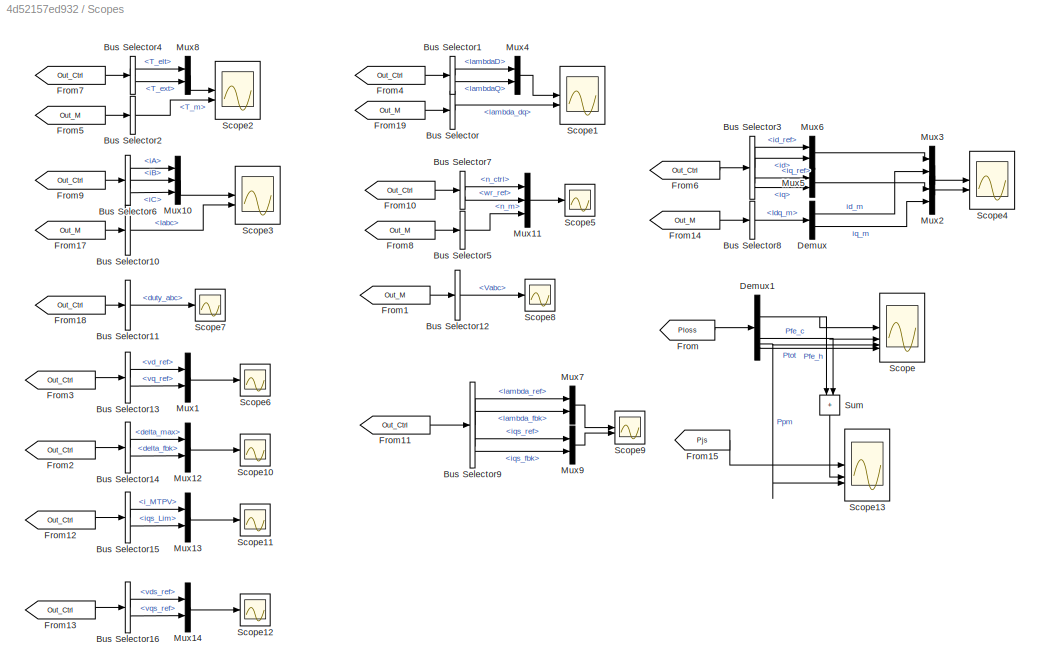
BLOCK [SubSystem] Scopes
BLOCK [BusSelector] Scopes/Bus Selector
  OutputSignals = lambda_dq
BLOCK [BusSelector] Scopes/Bus Selector1
  OutputSignals = lambdaD,lambdaQ
BLOCK [BusSelector] Scopes/Bus Selector10
  OutputSignals = Iabc
BLOCK [BusSelector] Scopes/Bus Selector11
  OutputSignals = duty_abc
BLOCK [BusSelector] Scopes/Bus Selector12
  OutputSignals = Vabc
BLOCK [BusSelector] Scopes/Bus Selector13
  OutputSignals = vd_ref,vq_ref
BLOCK [BusSelector] Scopes/Bus Selector14
  OutputSignals = delta_max,delta_fbk
BLOCK [BusSelector] Scopes/Bus Selector15
  OutputSignals = i_MTPV,iqs_Lim
BLOCK [BusSelector] Scopes/Bus Selector16
  OutputSignals = vds_ref,vqs_ref
BLOCK [BusSelector] Scopes/Bus Selector2
  OutputSignals = T_m
BLOCK [BusSelector] Scopes/Bus Selector3
  OutputSignals = id_ref,id,iq_ref,iq
BLOCK [BusSelector] Scopes/Bus Selector4
  OutputSignals = T_elt,T_ext
BLOCK [BusSelector] Scopes/Bus Selector5
  OutputSignals = n_m
BLOCK [BusSelector] Scopes/Bus Selector6
  OutputSignals = iA,iB,iC
BLOCK [BusSelector] Scopes/Bus Selector7
  OutputSignals = n_ctrl,wr_ref
BLOCK [BusSelector] Scopes/Bus Selector8
  OutputSignals = Idq_m
BLOCK [BusSelector] Scopes/Bus Selector9
  OutputSignals = lambda_ref,lambda_fbk,iqs_ref,iqs_fbk
BLOCK [Demux] Scopes/Demux
  Outputs = 2
BLOCK [Demux] Scopes/Demux1
BLOCK [From] Scopes/From
  GotoTag = Ploss
  TagVisibility = global
BLOCK [From] Scopes/From1
  CloseFcn = tagdialog Close
  GotoTag = Out_M
  TagVisibility = global
BLOCK [From] Scopes/From10
  CloseFcn = tagdialog Close
  GotoTag = Out_Ctrl
  TagVisibility = global
BLOCK [From] Scopes/From11
  CloseFcn = tagdialog Close
  GotoTag = Out_Ctrl
  TagVisibility = global
BLOCK [From] Scopes/From12
  CloseFcn = tagdialog Close
  GotoTag = Out_Ctrl
  TagVisibility = global
BLOCK [From] Scopes/From13
  CloseFcn = tagdialog Close
  GotoTag = Out_Ctrl
  TagVisibility = global
BLOCK [From] Scopes/From14
  CloseFcn = tagdialog Close
  GotoTag = Out_M
  TagVisibility = global
BLOCK [From] Scopes/From15
  GotoTag = Pjs
  TagVisibility = global
BLOCK [From] Scopes/From17
  CloseFcn = tagdialog Close
  GotoTag = Out_M
  TagVisibility = global
BLOCK [From] Scopes/From18
  CloseFcn = tagdialog Close
  GotoTag = Out_Ctrl
  TagVisibility = global
BLOCK [From] Scopes/From19
  CloseFcn = tagdialog Close
  GotoTag = Out_M
  TagVisibility = global
BLOCK [From] Scopes/From2
  CloseFcn = tagdialog Close
  GotoTag = Out_Ctrl
  TagVisibility = global
BLOCK [From] Scopes/From3
  CloseFcn = tagdialog Close
  GotoTag = Out_Ctrl
  TagVisibility = global
BLOCK [From] Scopes/From4
  CloseFcn = tagdialog Close
  GotoTag = Out_Ctrl
  TagVisibility = global
BLOCK [From] Scopes/From5
  CloseFcn = tagdialog Close
  GotoTag = Out_M
  TagVisibility = global
BLOCK [From] Scopes/From6
  CloseFcn = tagdialog Close
  GotoTag = Out_Ctrl
  TagVisibility = global
BLOCK [From] Scopes/From7
  CloseFcn = tagdialog Close
  GotoTag = Out_Ctrl
  TagVisibility = global
BLOCK [From] Scopes/From8
  CloseFcn = tagdialog Close
  GotoTag = Out_M
  TagVisibility = global
BLOCK [From] Scopes/From9
  CloseFcn = tagdialog Close
  GotoTag = Out_Ctrl
  TagVisibility = global
BLOCK [Mux] Scopes/Mux1
  DisplayOption = bar
  Inputs = 2
BLOCK [Mux] Scopes/Mux10
  DisplayOption = bar
  Inputs = 3
BLOCK [Mux] Scopes/Mux11
  DisplayOption = bar
  Inputs = 3
BLOCK [Mux] Scopes/Mux12
  DisplayOption = bar
  Inputs = 2
BLOCK [Mux] Scopes/Mux13
  DisplayOption = bar
  Inputs = 2
BLOCK [Mux] Scopes/Mux14
  DisplayOption = bar
  Inputs = 2
BLOCK [Mux] Scopes/Mux2
  DisplayOption = bar
  Inputs = 2
BLOCK [Mux] Scopes/Mux3
  DisplayOption = bar
  Inputs = 2
BLOCK [Mux] Scopes/Mux4
  DisplayOption = bar
  Inputs = 2
BLOCK [Mux] Scopes/Mux5
  DisplayOption = bar
  Inputs = 2
BLOCK [Mux] Scopes/Mux6
  DisplayOption = bar
  Inputs = 2
BLOCK [Mux] Scopes/Mux7
  DisplayOption = bar
  Inputs = 2
BLOCK [Mux] Scopes/Mux8
  DisplayOption = bar
  Inputs = 2
BLOCK [Mux] Scopes/Mux9
  DisplayOption = bar
  Inputs = 2
BLOCK [Scope] Scopes/Scope
  Floating = off
  GraphicalSettings = {"GraphicalSettings":{"LegacySettings":true,"Style":{"Style":{"PlotType":"Auto"}}}}
  NumInputPorts = 4
  WasSavedAsWebScope = on
BLOCK [Scope] Scopes/Scope1
  Floating = off
  GraphicalSettings = {"GraphicalSettings":{"LegacySettings":true,"Style":{"Style":{"PlotType":"Auto"}}}}
  NumInputPorts = 2
  WasSavedAsWebScope = on
BLOCK [Scope] Scopes/Scope10
  Floating = off
  GraphicalSettings = {"GraphicalSettings":{"LegacySettings":true,"Style":{"Style":{"PlotType":"Auto"}}}}
  NumInputPorts = 1
  WasSavedAsWebScope = on
BLOCK [Scope] Scopes/Scope11
  Floating = off
  GraphicalSettings = {"GraphicalSettings":{"LegacySettings":true,"Style":{"Style":{"PlotType":"Auto"}}}}
  NumInputPorts = 1
  WasSavedAsWebScope = on
BLOCK [Scope] Scopes/Scope12
  Floating = off
  GraphicalSettings = {"GraphicalSettings":{"LegacySettings":true,"Style":{"Style":{"PlotType":"Auto"}}}}
  NumInputPorts = 1
  WasSavedAsWebScope = on
BLOCK [Scope] Scopes/Scope13
  Floating = off
  GraphicalSettings = {"GraphicalSettings":{"LegacySettings":true,"Style":{"Style":{"PlotType":"Auto"}}}}
  NumInputPorts = 3
  WasSavedAsWebScope = on
BLOCK [Scope] Scopes/Scope2
  Floating = off
  GraphicalSettings = {"GraphicalSettings":{"LegacySettings":true,"Style":{"Style":{"PlotType":"Auto"}}}}
  NumInputPorts = 2
  WasSavedAsWebScope = on
BLOCK [Scope] Scopes/Scope3
  Floating = off
  GraphicalSettings = {"GraphicalSettings":{"LegacySettings":true,"Style":{"Style":{"PlotType":"Auto"}}}}
  NumInputPorts = 2
  WasSavedAsWebScope = on
BLOCK [Scope] Scopes/Scope4
  Floating = off
  GraphicalSettings = {"GraphicalSettings":{"LegacySettings":true,"Style":{"Style":{"PlotType":"Auto"}}}}
  NumInputPorts = 2
  WasSavedAsWebScope = on
BLOCK [Scope] Scopes/Scope5
  Floating = off
  GraphicalSettings = {"GraphicalSettings":{"LegacySettings":true,"Style":{"Style":{"PlotType":"Auto"}}}}
  NumInputPorts = 1
  WasSavedAsWebScope = on
BLOCK [Scope] Scopes/Scope6
  Floating = off
  GraphicalSettings = {"GraphicalSettings":{"LegacySettings":true,"Style":{"Style":{"PlotType":"Auto"}}}}
  NumInputPorts = 1
  WasSavedAsWebScope = on
BLOCK [Scope] Scopes/Scope7
  Floating = off
  GraphicalSettings = {"GraphicalSettings":{"LegacySettings":true,"Style":{"Style":{"PlotType":"Auto"}}}}
  NumInputPorts = 1
  WasSavedAsWebScope = on
BLOCK [Scope] Scopes/Scope8
  Floating = off
  GraphicalSettings = {"GraphicalSettings":{"LegacySettings":true,"Style":{"Style":{"PlotType":"Auto"}}}}
  NumInputPorts = 1
  WasSavedAsWebScope = on
BLOCK [Scope] Scopes/Scope9
  Floating = off
  GraphicalSettings = {"GraphicalSettings":{"LegacySettings":true,"Style":{"Style":{"PlotType":"Auto"}}}}
  NumInputPorts = 2
  WasSavedAsWebScope = on
BLOCK [Sum] Scopes/Sum
  IconShape = rectangular
  NameLocation = left
BLOCK [SubSystem] Speed Reference
  ClipboardFcn = sigbuilder_block('clipboard');
  CloseFcn = sigbuilder_block('close');
  ContinueFcn = sigbuilder_block('continue');
  CopyFcn = sigbuilder_block('copy');
  DeleteFcn = sigbuilder_block('delete');
  LoadFcn = sigbuilder_block('load');
  MaskHideContents = on
  ModelCloseFcn = sigbuilder_block('modelClose');
  NameChangeFcn = sigbuilder_block('namechange');
  NameLocation = top
  OpenFcn = sigbuilder_block('open',[236.4 192 550.2 354.6 ]);
  PauseFcn = sigbuilder_block('pause');
  PreSaveFcn = sigbuilder_block('preSave');
  StartFcn = sigbuilder_block('start');
  StopFcn = sigbuilder_block('stop');
  Tag = STV Subsys
BLOCK [Demux] Speed Reference/Demux
  DisplayOption = none
  Outputs = 1
  Tag = STV Demux
BLOCK [FromWorkspace] Speed Reference/FromWs
  Tag = STV FromWs
  VariableName = tuvar
BLOCK [Outport] Speed Reference/Signal 1
  Tag = STV Outport
BLOCK [ToWorkspace] To Workspace
  FixptAsFi = on
  MaxDataPoints = inf
  SampleTime = -1
  SaveFormat = Timeseries
  VariableName = Outputs
BLOCK [ToWorkspace] To Workspace1
  FixptAsFi = on
  MaxDataPoints = inf
  SampleTime = -1
  SaveFormat = Timeseries
  VariableName = Out_M
BLOCK [SubSystem] Torque Reference
  ClipboardFcn = sigbuilder_block('clipboard');
  CloseFcn = sigbuilder_block('close');
  ContinueFcn = sigbuilder_block('continue');
  CopyFcn = sigbuilder_block('copy');
  DeleteFcn = sigbuilder_block('delete');
  LoadFcn = sigbuilder_block('load');
  MaskHideContents = on
  ModelCloseFcn = sigbuilder_block('modelClose');
  NameChangeFcn = sigbuilder_block('namechange');
  NameLocation = top
  OpenFcn = sigbuilder_block('open',[596.4 129.6 550.2 321.6 ]);
  PauseFcn = sigbuilder_block('pause');
  PreSaveFcn = sigbuilder_block('preSave');
  StartFcn = sigbuilder_block('start');
  StopFcn = sigbuilder_block('stop');
  Tag = STV Subsys
BLOCK [Demux] Torque Reference/Demux
  DisplayOption = none
  Outputs = 1
  Tag = STV Demux
BLOCK [FromWorkspace] Torque Reference/FromWs
  Tag = STV FromWs
  VariableName = tuvar
BLOCK [Outport] Torque Reference/Signal 1
  Tag = STV Outport
BLOCK [UnitDelay] Unit Delay
  HasFrameUpgradeWarning = on
  SampleTime = -1
BLOCK [Constant] isdq_ref.d
  NameLocation = top
  Value = idRef
BLOCK [Constant] isdq_ref.q
  Value = iqRef
BLOCK [SubSystem] load speed
  ClipboardFcn = sigbuilder_block('clipboard');
  CloseFcn = sigbuilder_block('close');
  ContinueFcn = sigbuilder_block('continue');
  CopyFcn = sigbuilder_block('copy');
  DeleteFcn = sigbuilder_block('delete');
  LoadFcn = sigbuilder_block('load');
  MaskHideContents = on
  ModelCloseFcn = sigbuilder_block('modelClose');
  NameChangeFcn = sigbuilder_block('namechange');
  OpenFcn = sigbuilder_block('open',[236.4 192 550.2 354.6 ]);
  PauseFcn = sigbuilder_block('pause');
  PreSaveFcn = sigbuilder_block('preSave');
  StartFcn = sigbuilder_block('start');
  StopFcn = sigbuilder_block('stop');
  Tag = STV Subsys
BLOCK [Demux] load speed/Demux
  DisplayOption = none
  Outputs = 1
  Tag = STV Demux
BLOCK [FromWorkspace] load speed/FromWs
  Tag = STV FromWs
  VariableName = tuvar
BLOCK [Outport] load speed/Signal 1
  Tag = STV Outport
BLOCK [SubSystem] load torque1
  ClipboardFcn = sigbuilder_block('clipboard');
  CloseFcn = sigbuilder_block('close');
  ContinueFcn = sigbuilder_block('continue');
  CopyFcn = sigbuilder_block('copy');
  DeleteFcn = sigbuilder_block('delete');
  LoadFcn = sigbuilder_block('load');
  MaskHideContents = on
  ModelCloseFcn = sigbuilder_block('modelClose');
  NameChangeFcn = sigbuilder_block('namechange');
  OpenFcn = sigbuilder_block('open',[236.4 192 550.2 354.6 ]);
  PauseFcn = sigbuilder_block('pause');
  PreSaveFcn = sigbuilder_block('preSave');
  StartFcn = sigbuilder_block('start');
  StopFcn = sigbuilder_block('stop');
  Tag = STV Subsys
BLOCK [Demux] load torque1/Demux
  DisplayOption = none
  Outputs = 1
  Tag = STV Demux
BLOCK [FromWorkspace] load torque1/FromWs
  Tag = STV FromWs
  VariableName = tuvar
BLOCK [Outport] load torque1/Signal 1
  Tag = STV Outport
ANNOTATION (root): 0 - Current Control 1 - Flux Control 2 - Torque Control 3 - Speed Control
ANNOTATION Power block - Inverter + Motor: 1) Add Subsystem or Model blocks as valid variant choices. 2) You cannot connect blocks at this level. At simulation, connectivity is automatically determined, based on the active variant and port name matching.
ANNOTATION Power block - Inverter + Motor/Circuital/Inverter Model/Inverter Commands: 1) Add Subsystem or Model blocks as valid variant choices. 2) You cannot connect blocks at this level. At simulation, connectivity is automatically determined, based on the active variant and port name matching.
ANNOTATION Power block - Inverter + Motor/Circuital/Motor model: 1) Add Subsystem or Model blocks as valid variant choices. 2) You cannot connect blocks at this level. At simulation, connectivity is automatically determined, based on the active variant and port name matching.
ANNOTATION Power block - Inverter + Motor/Circuital/Motor model/CCG model/Motor Model/Inverse Flux Maps: 1) Add Subsystem or Model blocks as valid variant choices. 2) You cannot connect blocks at this level. At simulation, connectivity is automatically determined, based on the active variant and port name matching.
ANNOTATION Power block - Inverter + Motor/Circuital/Motor model/CCG model/Motor Model/Inverse Flux Maps/2D LUT/dq Model: 1) Add Subsystem or Model blocks as valid variant choices. 2) You cannot connect blocks at this level. At simulation, connectivity is automatically determined, based on the active variant and port name matching.
ANNOTATION Power block - Inverter + Motor/Circuital/Motor model/CCG model/Motor Model/Inverse Flux Maps/3D LUTs/Variant Subsystem: 1) Add Subsystem or Model blocks as valid variant choices. 2) You cannot connect blocks at this level. At simulation, connectivity is automatically determined, based on the active variant and port name matching.
ANNOTATION Power block - Inverter + Motor/Circuital/Motor model/CCG model/Motor Model/Iron Losses Maps: 1) Add Subsystem or Model blocks as valid variant choices. 2) You cannot connect blocks at this level. At simulation, connectivity is automatically determined, based on the active variant and port name matching.
ANNOTATION Power block - Inverter + Motor/Circuital/Motor model/CCG model/Motor Model/Rs: 1) Add Subsystem or Model blocks as valid variant choices. 2) You cannot connect blocks at this level. At simulation, connectivity is automatically determined, based on the active variant and port name matching.
ANNOTATION Power block - Inverter + Motor/Circuital/Motor model/CCG model/Motor Model/Rs1: 1) Add Subsystem or Model blocks as valid variant choices. 2) You cannot connect blocks at this level. At simulation, connectivity is automatically determined, based on the active variant and port name matching.
ANNOTATION Power block - Inverter + Motor/Circuital/Motor model/CCG model/Motor Model/Rs2: 1) Add Subsystem or Model blocks as valid variant choices. 2) You cannot connect blocks at this level. At simulation, connectivity is automatically determined, based on the active variant and port name matching.
ANNOTATION Power block - Inverter + Motor/Circuital/Motor model/SimScape FEM-based PMSM/Load model: 1) Add Subsystem or Model blocks as valid variant choices. 2) You cannot connect blocks at this level. At simulation, connectivity is automatically determined, based on the active variant and port name matching.
ANNOTATION Power block - Inverter + Motor/Noncircuital/FM/Motor Model/Inverse Flux Maps: 1) Add Subsystem or Model blocks as valid variant choices. 2) You cannot connect blocks at this level. At simulation, connectivity is automatically determined, based on the active variant and port name matching.
ANNOTATION Power block - Inverter + Motor/Noncircuital/FM/Motor Model/Inverse Flux Maps/2D LUT/dq Model: 1) Add Subsystem or Model blocks as valid variant choices. 2) You cannot connect blocks at this level. At simulation, connectivity is automatically determined, based on the active variant and port name matching.
ANNOTATION Power block - Inverter + Motor/Noncircuital/FM/Motor Model/Inverse Flux Maps/3D LUTs/Variant Subsystem: 1) Add Subsystem or Model blocks as valid variant choices. 2) You cannot connect blocks at this level. At simulation, connectivity is automatically determined, based on the active variant and port name matching.
ANNOTATION Power block - Inverter + Motor/Noncircuital/FM/Motor Model/Iron Losses Maps: 1) Add Subsystem or Model blocks as valid variant choices. 2) You cannot connect blocks at this level. At simulation, connectivity is automatically determined, based on the active variant and port name matching.
ANNOTATION Power block - Inverter + Motor/Noncircuital/Inverter Model/Inverter Commands: 1) Add Subsystem or Model blocks as valid variant choices. 2) You cannot connect blocks at this level. At simulation, connectivity is automatically determined, based on the active variant and port name matching.
NET Bus Creator2:1 -> Goto1:1, To Workspace1:1
LINE Constant10:1 -> Mux9:8
LINE Constant1:1 -> Mux9:9
LINE Constant2:1 -> Mux9:10
LINE Constant3:1 -> Mux9:2
LINE Constant5:1 -> Mux9:6
LINE Constant6:1 -> Mux9:3
LINE Constant7:1 -> Mux9:5
LINE Constant8:1 -> Mux9:4
LINE Constant9:1 -> Mux9:7
LINE Ctrl_type:1 -> Goto2:1
LINE Digital Control/Bus Creator:1 -> Digital Control/Outputs:1
LINE Digital Control/Commands:1 -> Digital Control/Demux1:1
LINE Digital Control/Control S-Function:1 -> Digital Control/Unit Delay:1
LINE Digital Control/Demux1:1 -> Digital Control/Mux:7
LINE Digital Control/Demux1:2 -> Digital Control/Mux:8
LINE Digital Control/Demux2:1 -> Digital Control/Mux1:1
LINE Digital Control/Demux2:10 -> Digital Control/Bus Creator:7
LINE Digital Control/Demux2:11 -> Digital Control/Bus Creator:8
LINE Digital Control/Demux2:12 -> Digital Control/Bus Creator:9
LINE Digital Control/Demux2:13 -> Digital Control/Bus Creator:10
LINE Digital Control/Demux2:14 -> Digital Control/Bus Creator:11
LINE Digital Control/Demux2:15 -> Digital Control/Bus Creator:12
LINE Digital Control/Demux2:16 -> Digital Control/Bus Creator:13
LINE Digital Control/Demux2:17 -> Digital Control/Bus Creator:14
LINE Digital Control/Demux2:18 -> Digital Control/Bus Creator:15
LINE Digital Control/Demux2:19 -> Digital Control/Bus Creator:16
LINE Digital Control/Demux2:2 -> Digital Control/Mux1:2
LINE Digital Control/Demux2:20 -> Digital Control/Bus Creator:17
LINE Digital Control/Demux2:21 -> Digital Control/Bus Creator:18
LINE Digital Control/Demux2:22 -> Digital Control/Bus Creator:19
LINE Digital Control/Demux2:23 -> Digital Control/Bus Creator:20
LINE Digital Control/Demux2:24 -> Digital Control/Bus Creator:21
LINE Digital Control/Demux2:25 -> Digital Control/Bus Creator:22
LINE Digital Control/Demux2:26 -> Digital Control/Bus Creator:23
LINE Digital Control/Demux2:27 -> Digital Control/Bus Creator:24
LINE Digital Control/Demux2:28 -> Digital Control/Bus Creator:25
LINE Digital Control/Demux2:29 -> Digital Control/Bus Creator:26
LINE Digital Control/Demux2:3 -> Digital Control/Mux1:3
LINE Digital Control/Demux2:30 -> Digital Control/Bus Creator:27
LINE Digital Control/Demux2:31 -> Digital Control/Bus Creator:28
LINE Digital Control/Demux2:32 -> Digital Control/Bus Creator:29
LINE Digital Control/Demux2:33 -> Digital Control/Bus Creator:30
LINE Digital Control/Demux2:34 -> Digital Control/Bus Creator:31
LINE Digital Control/Demux2:35 -> Digital Control/Bus Creator:32
LINE Digital Control/Demux2:36 -> Digital Control/Bus Creator:33
LINE Digital Control/Demux2:37 -> Digital Control/Bus Creator:34
LINE Digital Control/Demux2:38 -> Digital Control/Bus Creator:35
LINE Digital Control/Demux2:39 -> Digital Control/Bus Creator:36
LINE Digital Control/Demux2:4 -> Digital Control/pwm_stop:1
LINE Digital Control/Demux2:40 -> Digital Control/Bus Creator:37
LINE Digital Control/Demux2:41 -> Digital Control/Bus Creator:38
LINE Digital Control/Demux2:42 -> Digital Control/Bus Creator:39
LINE Digital Control/Demux2:43 -> Digital Control/Bus Creator:40
LINE Digital Control/Demux2:44 -> Digital Control/Bus Creator:41
LINE Digital Control/Demux2:5 -> Digital Control/Bus Creator:2
LINE Digital Control/Demux2:6 -> Digital Control/Bus Creator:3
LINE Digital Control/Demux2:7 -> Digital Control/Bus Creator:4
LINE Digital Control/Demux2:8 -> Digital Control/Bus Creator:5
LINE Digital Control/Demux2:9 -> Digital Control/Bus Creator:6
LINE Digital Control/Inputs:1 -> Digital Control/Mux:9
NET Digital Control/Mux1:1 -> Digital Control/Bus Creator:1, Digital Control/duty_abc:1
LINE Digital Control/Mux:1 -> Digital Control/Control S-Function:1
LINE Digital Control/T*:1 -> Digital Control/Mux:5
LINE Digital Control/Unit Delay:1 -> Digital Control/Demux2:1
LINE Digital Control/iabcs:1 -> Digital Control/Mux:1
LINE Digital Control/isdq_ref:1 -> Digital Control/Mux:6
LINE Digital Control/n*:1 -> Digital Control/Mux:4
LINE Digital Control/theta_mec_meas:1 -> Digital Control/Mux:3
LINE Digital Control/vdc:1 -> Digital Control/Mux:2
LINE Digital Control:1 -> Power block - Inverter + Motor:1
LINE Digital Control:2 -> Power block - Inverter + Motor:2
NET Digital Control:3 -> Goto5:1, To Workspace:1
LINE From1:1 -> Bus Creator2:9
LINE From20:1 -> Mux9:1
LINE From2:1 -> Bus Creator2:8
LINE Gain1:1 -> Power block - Inverter + Motor:4
NET Gain2:1 -> Goto7:1, Power block - Inverter + Motor:3
LINE Gain3:1 -> Digital Control:4
LINE Gain:1 -> Digital Control:5
LINE Go1/Constant:1 -> Go1/Subtract:1
LINE Go1/GO1_Down:1 -> Go1/Subtract:3
LINE Go1/GO1_Up:1 -> Go1/Subtract:2
LINE Go1/GO2_Down:1 -> Go1/Subtract:5
LINE Go1/GO2_Up:1 -> Go1/Subtract:4
LINE Go1/Subtract:1 -> Go1/Go:1
LINE Go1:1 -> Mux7:2
LINE Mux1:1 -> Digital Control:6
LINE Mux7:1 -> Digital Control:7
LINE Mux9:1 -> Digital Control:8
LINE PWM Interrupt:1 -> Digital Control:trigger
LINE Power block - Inverter + Motor/Circuital/Dabc:1 -> Power block - Inverter + Motor/Circuital/Inverter Model:1
LINE Power block - Inverter + Motor/Circuital/Inverter Model/ :1 -> Power block - Inverter + Motor/Circuital/Inverter Model/Inverter Commands:2
LINE Power block - Inverter + Motor/Circuital/Inverter Model/Dabc:1 -> Power block - Inverter + Motor/Circuital/Inverter Model/Inverter Commands:1
LINE Power block - Inverter + Motor/Circuital/Inverter Model/Demux:1 -> Power block - Inverter + Motor/Circuital/Inverter Model/Simulink-PS Converter:1
LINE Power block - Inverter + Motor/Circuital/Inverter Model/Demux:2 -> Power block - Inverter + Motor/Circuital/Inverter Model/Simulink-PS Converter1:1
LINE Power block - Inverter + Motor/Circuital/Inverter Model/Demux:3 -> Power block - Inverter + Motor/Circuital/Inverter Model/Simulink-PS Converter2:1
LINE Power block - Inverter + Motor/Circuital/Inverter Model/Demux:4 -> Power block - Inverter + Motor/Circuital/Inverter Model/Simulink-PS Converter3:1
LINE Power block - Inverter + Motor/Circuital/Inverter Model/Demux:5 -> Power block - Inverter + Motor/Circuital/Inverter Model/Simulink-PS Converter4:1
LINE Power block - Inverter + Motor/Circuital/Inverter Model/Demux:6 -> Power block - Inverter + Motor/Circuital/Inverter Model/Simulink-PS Converter5:1
LINE Power block - Inverter + Motor/Circuital/Inverter Model/Iabc:1 -> Power block - Inverter + Motor/Circuital/Inverter Model/Inverter Commands:3
LINE Power block - Inverter + Motor/Circuital/Inverter Model/Inverter Commands/Duty/Dabc:1 -> Power block - Inverter + Motor/Circuital/Inverter Model/Inverter Commands/Duty/Sum:1
NET Power block - Inverter + Motor/Circuital/Inverter Model/Inverter Commands/Duty/Demux:1 -> Power block - Inverter + Motor/Circuital/Inverter Model/Inverter Commands/Duty/Mux14:1, Power block - Inverter + Motor/Circuital/Inverter Model/Inverter Commands/Duty/X_d12:1
NET Power block - Inverter + Motor/Circuital/Inverter Model/Inverter Commands/Duty/Demux:2 -> Power block - Inverter + Motor/Circuital/Inverter Model/Inverter Commands/Duty/Mux14:3, Power block - Inverter + Motor/Circuital/Inverter Model/Inverter Commands/Duty/X_d1:1
NET Power block - Inverter + Motor/Circuital/Inverter Model/Inverter Commands/Duty/Demux:3 -> Power block - Inverter + Motor/Circuital/Inverter Model/Inverter Commands/Duty/Mux14:5, Power block - Inverter + Motor/Circuital/Inverter Model/Inverter Commands/Duty/X_d2:1
LINE Power block - Inverter + Motor/Circuital/Inverter Model/Inverter Commands/Duty/Gain:1 -> Power block - Inverter + Motor/Circuital/Inverter Model/Inverter Commands/Duty/Sum:2
LINE Power block - Inverter + Motor/Circuital/Inverter Model/Inverter Commands/Duty/Mux14:1 -> Power block - Inverter + Motor/Circuital/Inverter Model/Inverter Commands/Duty/G:1
LINE Power block - Inverter + Motor/Circuital/Inverter Model/Inverter Commands/Duty/Sign:1 -> Power block - Inverter + Motor/Circuital/Inverter Model/Inverter Commands/Duty/Gain:1
LINE Power block - Inverter + Motor/Circuital/Inverter Model/Inverter Commands/Duty/Sum:1 -> Power block - Inverter + Motor/Circuital/Inverter Model/Inverter Commands/Duty/Demux:1
LINE Power block - Inverter + Motor/Circuital/Inverter Model/Inverter Commands/Duty/X_d12:1 -> Power block - Inverter + Motor/Circuital/Inverter Model/Inverter Commands/Duty/Mux14:2
LINE Power block - Inverter + Motor/Circuital/Inverter Model/Inverter Commands/Duty/X_d1:1 -> Power block - Inverter + Motor/Circuital/Inverter Model/Inverter Commands/Duty/Mux14:4
LINE Power block - Inverter + Motor/Circuital/Inverter Model/Inverter Commands/Duty/X_d2:1 -> Power block - Inverter + Motor/Circuital/Inverter Model/Inverter Commands/Duty/Mux14:6
LINE Power block - Inverter + Motor/Circuital/Inverter Model/Inverter Commands/Duty/iABC:1 -> Power block - Inverter + Motor/Circuital/Inverter Model/Inverter Commands/Duty/Sign:1
LINE Power block - Inverter + Motor/Circuital/Inverter Model/Inverter Commands/PWM/Add1:1 -> Power block - Inverter + Motor/Circuital/Inverter Model/Inverter Commands/PWM/Saturation:1
LINE Power block - Inverter + Motor/Circuital/Inverter Model/Inverter Commands/PWM/Add2:1 -> Power block - Inverter + Motor/Circuital/Inverter Model/Inverter Commands/PWM/Saturation3:1
LINE Power block - Inverter + Motor/Circuital/Inverter Model/Inverter Commands/PWM/Add3:1 -> Power block - Inverter + Motor/Circuital/Inverter Model/Inverter Commands/PWM/Saturation2:1
LINE Power block - Inverter + Motor/Circuital/Inverter Model/Inverter Commands/PWM/Add4:1 -> Power block - Inverter + Motor/Circuital/Inverter Model/Inverter Commands/PWM/Saturation5:1
LINE Power block - Inverter + Motor/Circuital/Inverter Model/Inverter Commands/PWM/Add5:1 -> Power block - Inverter + Motor/Circuital/Inverter Model/Inverter Commands/PWM/Saturation4:1
LINE Power block - Inverter + Motor/Circuital/Inverter Model/Inverter Commands/PWM/Add:1 -> Power block - Inverter + Motor/Circuital/Inverter Model/Inverter Commands/PWM/Saturation1:1
NET Power block - Inverter + Motor/Circuital/Inverter Model/Inverter Commands/PWM/Constant:1 -> Power block - Inverter + Motor/Circuital/Inverter Model/Inverter Commands/PWM/Add1:2, Power block - Inverter + Motor/Circuital/Inverter Model/Inverter Commands/PWM/Add2:2, Power block - Inverter + Motor/Circuital/Inverter Model/Inverter Commands/PWM/Add3:2, Power block - Inverter + Motor/Circuital/Inverter Model/Inverter Commands/PWM/Add4:2, Power block - Inverter + Motor/Circuital/Inverter Model/Inverter Commands/PWM/Add5:2, Power block - Inverter + Motor/Circuital/Inverter Model/Inverter Commands/PWM/Add:2
LINE Power block - Inverter + Motor/Circuital/Inverter Model/Inverter Commands/PWM/Dabc:1 -> Power block - Inverter + Motor/Circuital/Inverter Model/Inverter Commands/PWM/Demux:1
LINE Power block - Inverter + Motor/Circuital/Inverter Model/Inverter Commands/PWM/Data Type Conversion:1 -> Power block - Inverter + Motor/Circuital/Inverter Model/Inverter Commands/PWM/G:1
NET Power block - Inverter + Motor/Circuital/Inverter Model/Inverter Commands/PWM/Demux:1 -> Power block - Inverter + Motor/Circuital/Inverter Model/Inverter Commands/PWM/Add1:1, Power block - Inverter + Motor/Circuital/Inverter Model/Inverter Commands/PWM/Add:1
NET Power block - Inverter + Motor/Circuital/Inverter Model/Inverter Commands/PWM/Demux:2 -> Power block - Inverter + Motor/Circuital/Inverter Model/Inverter Commands/PWM/Add2:1, Power block - Inverter + Motor/Circuital/Inverter Model/Inverter Commands/PWM/Add3:1
NET Power block - Inverter + Motor/Circuital/Inverter Model/Inverter Commands/PWM/Demux:3 -> Power block - Inverter + Motor/Circuital/Inverter Model/Inverter Commands/PWM/Add4:1, Power block - Inverter + Motor/Circuital/Inverter Model/Inverter Commands/PWM/Add5:1
NET Power block - Inverter + Motor/Circuital/Inverter Model/Inverter Commands/PWM/Enable:1 -> Power block - Inverter + Motor/Circuital/Inverter Model/Inverter Commands/PWM/Logical Operator1:1, Power block - Inverter + Motor/Circuital/Inverter Model/Inverter Commands/PWM/Logical Operator2:1, Power block - Inverter + Motor/Circuital/Inverter Model/Inverter Commands/PWM/Logical Operator3:1, Power block - Inverter + Motor/Circuital/Inverter Model/Inverter Commands/PWM/Logical Operator4:1, Power block - Inverter + Motor/Circuital/Inverter Model/Inverter Commands/PWM/Logical Operator5:1, Power block - Inverter + Motor/Circuital/Inverter Model/Inverter Commands/PWM/Logical Operator:1
LINE Power block - Inverter + Motor/Circuital/Inverter Model/Inverter Commands/PWM/Logical Operator1:1 -> Power block - Inverter + Motor/Circuital/Inverter Model/Inverter Commands/PWM/Mux:2
LINE Power block - Inverter + Motor/Circuital/Inverter Model/Inverter Commands/PWM/Logical Operator2:1 -> Power block - Inverter + Motor/Circuital/Inverter Model/Inverter Commands/PWM/Mux:3
LINE Power block - Inverter + Motor/Circuital/Inverter Model/Inverter Commands/PWM/Logical Operator3:1 -> Power block - Inverter + Motor/Circuital/Inverter Model/Inverter Commands/PWM/Mux:4
LINE Power block - Inverter + Motor/Circuital/Inverter Model/Inverter Commands/PWM/Logical Operator4:1 -> Power block - Inverter + Motor/Circuital/Inverter Model/Inverter Commands/PWM/Mux:5
LINE Power block - Inverter + Motor/Circuital/Inverter Model/Inverter Commands/PWM/Logical Operator5:1 -> Power block - Inverter + Motor/Circuital/Inverter Model/Inverter Commands/PWM/Mux:6
LINE Power block - Inverter + Motor/Circuital/Inverter Model/Inverter Commands/PWM/Logical Operator:1 -> Power block - Inverter + Motor/Circuital/Inverter Model/Inverter Commands/PWM/Mux:1
LINE Power block - Inverter + Motor/Circuital/Inverter Model/Inverter Commands/PWM/Mux:1 -> Power block - Inverter + Motor/Circuital/Inverter Model/Inverter Commands/PWM/Data Type Conversion:1
LINE Power block - Inverter + Motor/Circuital/Inverter Model/Inverter Commands/PWM/Relational Operator1:1 -> Power block - Inverter + Motor/Circuital/Inverter Model/Inverter Commands/PWM/Logical Operator1:2
LINE Power block - Inverter + Motor/Circuital/Inverter Model/Inverter Commands/PWM/Relational Operator2:1 -> Power block - Inverter + Motor/Circuital/Inverter Model/Inverter Commands/PWM/Logical Operator2:2
LINE Power block - Inverter + Motor/Circuital/Inverter Model/Inverter Commands/PWM/Relational Operator3:1 -> Power block - Inverter + Motor/Circuital/Inverter Model/Inverter Commands/PWM/Logical Operator3:2
LINE Power block - Inverter + Motor/Circuital/Inverter Model/Inverter Commands/PWM/Relational Operator4:1 -> Power block - Inverter + Motor/Circuital/Inverter Model/Inverter Commands/PWM/Logical Operator4:2
LINE Power block - Inverter + Motor/Circuital/Inverter Model/Inverter Commands/PWM/Relational Operator5:1 -> Power block - Inverter + Motor/Circuital/Inverter Model/Inverter Commands/PWM/Logical Operator5:2
LINE Power block - Inverter + Motor/Circuital/Inverter Model/Inverter Commands/PWM/Relational Operator:1 -> Power block - Inverter + Motor/Circuital/Inverter Model/Inverter Commands/PWM/Logical Operator:2
NET Power block - Inverter + Motor/Circuital/Inverter Model/Inverter Commands/PWM/Repeating Sequence:1 -> Power block - Inverter + Motor/Circuital/Inverter Model/Inverter Commands/PWM/Relational Operator1:1, Power block - Inverter + Motor/Circuital/Inverter Model/Inverter Commands/PWM/Relational Operator2:2, Power block - Inverter + Motor/Circuital/Inverter Model/Inverter Commands/PWM/Relational Operator3:1, Power block - Inverter + Motor/Circuital/Inverter Model/Inverter Commands/PWM/Relational Operator4:2, Power block - Inverter + Motor/Circuital/Inverter Model/Inverter Commands/PWM/Relational Operator5:1, Power block - Inverter + Motor/Circuital/Inverter Model/Inverter Commands/PWM/Relational Operator:2
LINE Power block - Inverter + Motor/Circuital/Inverter Model/Inverter Commands/PWM/Saturation1:1 -> Power block - Inverter + Motor/Circuital/Inverter Model/Inverter Commands/PWM/Relational Operator1:2
LINE Power block - Inverter + Motor/Circuital/Inverter Model/Inverter Commands/PWM/Saturation2:1 -> Power block - Inverter + Motor/Circuital/Inverter Model/Inverter Commands/PWM/Relational Operator2:1
LINE Power block - Inverter + Motor/Circuital/Inverter Model/Inverter Commands/PWM/Saturation3:1 -> Power block - Inverter + Motor/Circuital/Inverter Model/Inverter Commands/PWM/Relational Operator3:2
LINE Power block - Inverter + Motor/Circuital/Inverter Model/Inverter Commands/PWM/Saturation4:1 -> Power block - Inverter + Motor/Circuital/Inverter Model/Inverter Commands/PWM/Relational Operator4:1
LINE Power block - Inverter + Motor/Circuital/Inverter Model/Inverter Commands/PWM/Saturation5:1 -> Power block - Inverter + Motor/Circuital/Inverter Model/Inverter Commands/PWM/Relational Operator5:2
LINE Power block - Inverter + Motor/Circuital/Inverter Model/Inverter Commands/PWM/Saturation:1 -> Power block - Inverter + Motor/Circuital/Inverter Model/Inverter Commands/PWM/Relational Operator:1
LINE Power block - Inverter + Motor/Circuital/Inverter Model/Inverter Commands:1 -> Power block - Inverter + Motor/Circuital/Inverter Model/Demux:1
LINE Power block - Inverter + Motor/Circuital/Inverter Model/PS-Simulink Converter:1 -> Power block - Inverter + Motor/Circuital/Inverter Model/Vdc:1
LINE Power block - Inverter + Motor/Circuital/Inverter Model/pwm_stop:1 -> Power block - Inverter + Motor/Circuital/Inverter Model/ :1
LINE Power block - Inverter + Motor/Circuital/Inverter Model:1 -> Power block - Inverter + Motor/Circuital/Vdc:1
LINE Power block - Inverter + Motor/Circuital/Motor model/CCG model/Mechanical equations/Constant1:1 -> Power block - Inverter + Motor/Circuital/Motor model/CCG model/Mechanical equations/Product3:1
LINE Power block - Inverter + Motor/Circuital/Motor model/CCG model/Mechanical equations/Constant:1 -> Power block - Inverter + Motor/Circuital/Motor model/CCG model/Mechanical equations/Sum4:1
NET Power block - Inverter + Motor/Circuital/Motor model/CCG model/Mechanical equations/Delay One Step1:1 -> Power block - Inverter + Motor/Circuital/Motor model/CCG model/Mechanical equations/Product:1, Power block - Inverter + Motor/Circuital/Motor model/CCG model/Mechanical equations/Sum5:3
NET Power block - Inverter + Motor/Circuital/Motor model/CCG model/Mechanical equations/Delay One Step2:1 -> Power block - Inverter + Motor/Circuital/Motor model/CCG model/Mechanical equations/Gain2:1, Power block - Inverter + Motor/Circuital/Motor model/CCG model/Mechanical equations/Math Function1:1, Power block - Inverter + Motor/Circuital/Motor model/CCG model/Mechanical equations/Sign:1
NET Power block - Inverter + Motor/Circuital/Motor model/CCG model/Mechanical equations/From5:1 -> Power block - Inverter + Motor/Circuital/Motor model/CCG model/Mechanical equations/Switch1:2, Power block - Inverter + Motor/Circuital/Motor model/CCG model/Mechanical equations/Switch:2
LINE Power block - Inverter + Motor/Circuital/Motor model/CCG model/Mechanical equations/Gain1:1 -> Power block - Inverter + Motor/Circuital/Motor model/CCG model/Mechanical equations/n_m:1
LINE Power block - Inverter + Motor/Circuital/Motor model/CCG model/Mechanical equations/Gain2:1 -> Power block - Inverter + Motor/Circuital/Motor model/CCG model/Mechanical equations/Sum1:2
LINE Power block - Inverter + Motor/Circuital/Motor model/CCG model/Mechanical equations/Gain3:1 -> Power block - Inverter + Motor/Circuital/Motor model/CCG model/Mechanical equations/Integrator1:1
NET Power block - Inverter + Motor/Circuital/Motor model/CCG model/Mechanical equations/Gain4:1 -> Power block - Inverter + Motor/Circuital/Motor model/CCG model/Mechanical equations/Integrator2:1, Power block - Inverter + Motor/Circuital/Motor model/CCG model/Mechanical equations/Switch:3
NET Power block - Inverter + Motor/Circuital/Motor model/CCG model/Mechanical equations/Integrator1:1 -> Power block - Inverter + Motor/Circuital/Motor model/CCG model/Mechanical equations/Delay One Step2:1, Power block - Inverter + Motor/Circuital/Motor model/CCG model/Mechanical equations/Integrator:1, Power block - Inverter + Motor/Circuital/Motor model/CCG model/Mechanical equations/Product:2, Power block - Inverter + Motor/Circuital/Motor model/CCG model/Mechanical equations/Switch:1
LINE Power block - Inverter + Motor/Circuital/Motor model/CCG model/Mechanical equations/Integrator2:1 -> Power block - Inverter + Motor/Circuital/Motor model/CCG model/Mechanical equations/Switch1:3
LINE Power block - Inverter + Motor/Circuital/Motor model/CCG model/Mechanical equations/Integrator:1 -> Power block - Inverter + Motor/Circuital/Motor model/CCG model/Mechanical equations/Switch1:1
LINE Power block - Inverter + Motor/Circuital/Motor model/CCG model/Mechanical equations/Math Function1:1 -> Power block - Inverter + Motor/Circuital/Motor model/CCG model/Mechanical equations/Product3:2
LINE Power block - Inverter + Motor/Circuital/Motor model/CCG model/Mechanical equations/Product3:1 -> Power block - Inverter + Motor/Circuital/Motor model/CCG model/Mechanical equations/Sum4:2
LINE Power block - Inverter + Motor/Circuital/Motor model/CCG model/Mechanical equations/Product6:1 -> Power block - Inverter + Motor/Circuital/Motor model/CCG model/Mechanical equations/Sum1:1
LINE Power block - Inverter + Motor/Circuital/Motor model/CCG model/Mechanical equations/Product:1 -> Power block - Inverter + Motor/Circuital/Motor model/CCG model/Mechanical equations/Pmec_out:1
LINE Power block - Inverter + Motor/Circuital/Motor model/CCG model/Mechanical equations/RPM:1 -> Power block - Inverter + Motor/Circuital/Motor model/CCG model/Mechanical equations/Gain4:1
LINE Power block - Inverter + Motor/Circuital/Motor model/CCG model/Mechanical equations/Sign:1 -> Power block - Inverter + Motor/Circuital/Motor model/CCG model/Mechanical equations/Product6:2
LINE Power block - Inverter + Motor/Circuital/Motor model/CCG model/Mechanical equations/Sum1:1 -> Power block - Inverter + Motor/Circuital/Motor model/CCG model/Mechanical equations/Sum5:2
LINE Power block - Inverter + Motor/Circuital/Motor model/CCG model/Mechanical equations/Sum4:1 -> Power block - Inverter + Motor/Circuital/Motor model/CCG model/Mechanical equations/Product6:1
LINE Power block - Inverter + Motor/Circuital/Motor model/CCG model/Mechanical equations/Sum5:1 -> Power block - Inverter + Motor/Circuital/Motor model/CCG model/Mechanical equations/Gain3:1
LINE Power block - Inverter + Motor/Circuital/Motor model/CCG model/Mechanical equations/Switch1:1 -> Power block - Inverter + Motor/Circuital/Motor model/CCG model/Mechanical equations/thetar:1
LINE Power block - Inverter + Motor/Circuital/Motor model/CCG model/Mechanical equations/Switch:1 -> Power block - Inverter + Motor/Circuital/Motor model/CCG model/Mechanical equations/Gain1:1
LINE Power block - Inverter + Motor/Circuital/Motor model/CCG model/Mechanical equations/Tload:1 -> Power block - Inverter + Motor/Circuital/Motor model/CCG model/Mechanical equations/Sum5:1
LINE Power block - Inverter + Motor/Circuital/Motor model/CCG model/Mechanical equations/Tm:1 -> Power block - Inverter + Motor/Circuital/Motor model/CCG model/Mechanical equations/Delay One Step1:1
NET Power block - Inverter + Motor/Circuital/Motor model/CCG model/Mechanical equations:1 -> Power block - Inverter + Motor/Circuital/Motor model/CCG model/Motor Model:1, Power block - Inverter + Motor/Circuital/Motor model/CCG model/n_m:1
LINE Power block - Inverter + Motor/Circuital/Motor model/CCG model/Mechanical equations:2 -> Power block - Inverter + Motor/Circuital/Motor model/CCG model/Terminator1:1
NET Power block - Inverter + Motor/Circuital/Motor model/CCG model/Mechanical equations:3 -> Power block - Inverter + Motor/Circuital/Motor model/CCG model/Motor Model:2, Power block - Inverter + Motor/Circuital/Motor model/CCG model/thetar:1
LINE Power block - Inverter + Motor/Circuital/Motor model/CCG model/Motor Model/1-D Lookup Table:1 -> Power block - Inverter + Motor/Circuital/Motor model/CCG model/Motor Model/Goto15:1
LINE Power block - Inverter + Motor/Circuital/Motor model/CCG model/Motor Model/Currents calculation/2-->3:1 -> Power block - Inverter + Motor/Circuital/Motor model/CCG model/Motor Model/Currents calculation/Demux1:1
LINE Power block - Inverter + Motor/Circuital/Motor model/CCG model/Motor Model/Currents calculation/Demux1:1 -> Power block - Inverter + Motor/Circuital/Motor model/CCG model/Motor Model/Currents calculation/Sum1:1
LINE Power block - Inverter + Motor/Circuital/Motor model/CCG model/Motor Model/Currents calculation/Demux1:2 -> Power block - Inverter + Motor/Circuital/Motor model/CCG model/Motor Model/Currents calculation/Sum2:1
LINE Power block - Inverter + Motor/Circuital/Motor model/CCG model/Motor Model/Currents calculation/Demux1:3 -> Power block - Inverter + Motor/Circuital/Motor model/CCG model/Motor Model/Currents calculation/Sum3:1
LINE Power block - Inverter + Motor/Circuital/Motor model/CCG model/Motor Model/Currents calculation/Demux:1 -> Power block - Inverter + Motor/Circuital/Motor model/CCG model/Motor Model/Currents calculation/Ia:1
LINE Power block - Inverter + Motor/Circuital/Motor model/CCG model/Motor Model/Currents calculation/Demux:2 -> Power block - Inverter + Motor/Circuital/Motor model/CCG model/Motor Model/Currents calculation/Ib:1
LINE Power block - Inverter + Motor/Circuital/Motor model/CCG model/Motor Model/Currents calculation/Demux:3 -> Power block - Inverter + Motor/Circuital/Motor model/CCG model/Motor Model/Currents calculation/Ic:1
LINE Power block - Inverter + Motor/Circuital/Motor model/CCG model/Motor Model/Currents calculation/F0:1 -> Power block - Inverter + Motor/Circuital/Motor model/CCG model/Motor Model/Currents calculation/Gain1:1
LINE Power block - Inverter + Motor/Circuital/Motor model/CCG model/Motor Model/Currents calculation/Gain1:1 -> Power block - Inverter + Motor/Circuital/Motor model/CCG model/Motor Model/Currents calculation/Gain2:1
NET Power block - Inverter + Motor/Circuital/Motor model/CCG model/Motor Model/Currents calculation/Gain2:1 -> Power block - Inverter + Motor/Circuital/Motor model/CCG model/Motor Model/Currents calculation/Sum1:2, Power block - Inverter + Motor/Circuital/Motor model/CCG model/Motor Model/Currents calculation/Sum2:2, Power block - Inverter + Motor/Circuital/Motor model/CCG model/Motor Model/Currents calculation/Sum3:2
LINE Power block - Inverter + Motor/Circuital/Motor model/CCG model/Motor Model/Currents calculation/Idq:1 -> Power block - Inverter + Motor/Circuital/Motor model/CCG model/Motor Model/Currents calculation/dq->ab1:1
NET Power block - Inverter + Motor/Circuital/Motor model/CCG model/Motor Model/Currents calculation/Mux3:1 -> Power block - Inverter + Motor/Circuital/Motor model/CCG model/Motor Model/Currents calculation/Demux:1, Power block - Inverter + Motor/Circuital/Motor model/CCG model/Motor Model/Currents calculation/Iabc:1
LINE Power block - Inverter + Motor/Circuital/Motor model/CCG model/Motor Model/Currents calculation/Sum1:1 -> Power block - Inverter + Motor/Circuital/Motor model/CCG model/Motor Model/Currents calculation/Mux3:1
LINE Power block - Inverter + Motor/Circuital/Motor model/CCG model/Motor Model/Currents calculation/Sum2:1 -> Power block - Inverter + Motor/Circuital/Motor model/CCG model/Motor Model/Currents calculation/Mux3:2
LINE Power block - Inverter + Motor/Circuital/Motor model/CCG model/Motor Model/Currents calculation/Sum3:1 -> Power block - Inverter + Motor/Circuital/Motor model/CCG model/Motor Model/Currents calculation/Mux3:3
NET Power block - Inverter + Motor/Circuital/Motor model/CCG model/Motor Model/Currents calculation/dq->ab1/Demux1:1 -> Power block - Inverter + Motor/Circuital/Motor model/CCG model/Motor Model/Currents calculation/dq->ab1/Product1:2, Power block - Inverter + Motor/Circuital/Motor model/CCG model/Motor Model/Currents calculation/dq->ab1/Product2:2
NET Power block - Inverter + Motor/Circuital/Motor model/CCG model/Motor Model/Currents calculation/dq->ab1/Demux1:2 -> Power block - Inverter + Motor/Circuital/Motor model/CCG model/Motor Model/Currents calculation/dq->ab1/Product3:2, Power block - Inverter + Motor/Circuital/Motor model/CCG model/Motor Model/Currents calculation/dq->ab1/Product:2
NET Power block - Inverter + Motor/Circuital/Motor model/CCG model/Motor Model/Currents calculation/dq->ab1/Demux:1 -> Power block - Inverter + Motor/Circuital/Motor model/CCG model/Motor Model/Currents calculation/dq->ab1/Product2:1, Power block - Inverter + Motor/Circuital/Motor model/CCG model/Motor Model/Currents calculation/dq->ab1/Product:1
NET Power block - Inverter + Motor/Circuital/Motor model/CCG model/Motor Model/Currents calculation/dq->ab1/Demux:2 -> Power block - Inverter + Motor/Circuital/Motor model/CCG model/Motor Model/Currents calculation/dq->ab1/Product1:1, Power block - Inverter + Motor/Circuital/Motor model/CCG model/Motor Model/Currents calculation/dq->ab1/Product3:1
NET Power block - Inverter + Motor/Circuital/Motor model/CCG model/Motor Model/Currents calculation/dq->ab1/Mux3:1 -> Power block - Inverter + Motor/Circuital/Motor model/CCG model/Motor Model/Currents calculation/dq->ab1/X_d1:1, Power block - Inverter + Motor/Circuital/Motor model/CCG model/Motor Model/Currents calculation/dq->ab1/X_q1:1
LINE Power block - Inverter + Motor/Circuital/Motor model/CCG model/Motor Model/Currents calculation/dq->ab1/Mux:1 -> Power block - Inverter + Motor/Circuital/Motor model/CCG model/Motor Model/Currents calculation/dq->ab1/X_dq:1
LINE Power block - Inverter + Motor/Circuital/Motor model/CCG model/Motor Model/Currents calculation/dq->ab1/Product1:1 -> Power block - Inverter + Motor/Circuital/Motor model/CCG model/Motor Model/Currents calculation/dq->ab1/Subtract:2
LINE Power block - Inverter + Motor/Circuital/Motor model/CCG model/Motor Model/Currents calculation/dq->ab1/Product2:1 -> Power block - Inverter + Motor/Circuital/Motor model/CCG model/Motor Model/Currents calculation/dq->ab1/Subtract1:1
LINE Power block - Inverter + Motor/Circuital/Motor model/CCG model/Motor Model/Currents calculation/dq->ab1/Product3:1 -> Power block - Inverter + Motor/Circuital/Motor model/CCG model/Motor Model/Currents calculation/dq->ab1/Subtract1:2
LINE Power block - Inverter + Motor/Circuital/Motor model/CCG model/Motor Model/Currents calculation/dq->ab1/Product:1 -> Power block - Inverter + Motor/Circuital/Motor model/CCG model/Motor Model/Currents calculation/dq->ab1/Subtract:1
LINE Power block - Inverter + Motor/Circuital/Motor model/CCG model/Motor Model/Currents calculation/dq->ab1/Subtract1:1 -> Power block - Inverter + Motor/Circuital/Motor model/CCG model/Motor Model/Currents calculation/dq->ab1/Mux:2
LINE Power block - Inverter + Motor/Circuital/Motor model/CCG model/Motor Model/Currents calculation/dq->ab1/Subtract:1 -> Power block - Inverter + Motor/Circuital/Motor model/CCG model/Motor Model/Currents calculation/dq->ab1/Mux:1
LINE Power block - Inverter + Motor/Circuital/Motor model/CCG model/Motor Model/Currents calculation/dq->ab1/X_ab:1 -> Power block - Inverter + Motor/Circuital/Motor model/CCG model/Motor Model/Currents calculation/dq->ab1/Demux:1
LINE Power block - Inverter + Motor/Circuital/Motor model/CCG model/Motor Model/Currents calculation/dq->ab1/X_d1:1 -> Power block - Inverter + Motor/Circuital/Motor model/CCG model/Motor Model/Currents calculation/dq->ab1/Mux2:1
LINE Power block - Inverter + Motor/Circuital/Motor model/CCG model/Motor Model/Currents calculation/dq->ab1/X_q1:1 -> Power block - Inverter + Motor/Circuital/Motor model/CCG model/Motor Model/Currents calculation/dq->ab1/Mux2:2
LINE Power block - Inverter + Motor/Circuital/Motor model/CCG model/Motor Model/Currents calculation/dq->ab1/sin,cos:1 -> Power block - Inverter + Motor/Circuital/Motor model/CCG model/Motor Model/Currents calculation/dq->ab1/Demux1:1
LINE Power block - Inverter + Motor/Circuital/Motor model/CCG model/Motor Model/Currents calculation/dq->ab1:1 -> Power block - Inverter + Motor/Circuital/Motor model/CCG model/Motor Model/Currents calculation/2-->3:1
LINE Power block - Inverter + Motor/Circuital/Motor model/CCG model/Motor Model/Currents calculation/theta:1 -> Power block - Inverter + Motor/Circuital/Motor model/CCG model/Motor Model/Currents calculation/dq->ab1:2
LINE Power block - Inverter + Motor/Circuital/Motor model/CCG model/Motor Model/Currents calculation:1 -> Power block - Inverter + Motor/Circuital/Motor model/CCG model/Motor Model/Goto6:1
LINE Power block - Inverter + Motor/Circuital/Motor model/CCG model/Motor Model/Currents calculation:2 -> Power block - Inverter + Motor/Circuital/Motor model/CCG model/Motor Model/Goto9:1
LINE Power block - Inverter + Motor/Circuital/Motor model/CCG model/Motor Model/Currents calculation:3 -> Power block - Inverter + Motor/Circuital/Motor model/CCG model/Motor Model/Goto10:1
LINE Power block - Inverter + Motor/Circuital/Motor model/CCG model/Motor Model/Currents calculation:4 -> Power block - Inverter + Motor/Circuital/Motor model/CCG model/Motor Model/Goto11:1
LINE Power block - Inverter + Motor/Circuital/Motor model/CCG model/Motor Model/Flux Integration/Demux1:1 -> Power block - Inverter + Motor/Circuital/Motor model/CCG model/Motor Model/Flux Integration/Mux1:1
LINE Power block - Inverter + Motor/Circuital/Motor model/CCG model/Motor Model/Flux Integration/Demux1:2 -> Power block - Inverter + Motor/Circuital/Motor model/CCG model/Motor Model/Flux Integration/Mux1:2
LINE Power block - Inverter + Motor/Circuital/Motor model/CCG model/Motor Model/Flux Integration/Demux1:3 -> Power block - Inverter + Motor/Circuital/Motor model/CCG model/Motor Model/Flux Integration/F0:1
LINE Power block - Inverter + Motor/Circuital/Motor model/CCG model/Motor Model/Flux Integration/Demux:1 -> Power block - Inverter + Motor/Circuital/Motor model/CCG model/Motor Model/Flux Integration/Integrator1:1
LINE Power block - Inverter + Motor/Circuital/Motor model/CCG model/Motor Model/Flux Integration/Demux:2 -> Power block - Inverter + Motor/Circuital/Motor model/CCG model/Motor Model/Flux Integration/Integrator4:1
LINE Power block - Inverter + Motor/Circuital/Motor model/CCG model/Motor Model/Flux Integration/Demux:3 -> Power block - Inverter + Motor/Circuital/Motor model/CCG model/Motor Model/Flux Integration/Integrator5:1
LINE Power block - Inverter + Motor/Circuital/Motor model/CCG model/Motor Model/Flux Integration/Integrator1:1 -> Power block - Inverter + Motor/Circuital/Motor model/CCG model/Motor Model/Flux Integration/Mux:1
LINE Power block - Inverter + Motor/Circuital/Motor model/CCG model/Motor Model/Flux Integration/Integrator4:1 -> Power block - Inverter + Motor/Circuital/Motor model/CCG model/Motor Model/Flux Integration/Mux:2
LINE Power block - Inverter + Motor/Circuital/Motor model/CCG model/Motor Model/Flux Integration/Integrator5:1 -> Power block - Inverter + Motor/Circuital/Motor model/CCG model/Motor Model/Flux Integration/Mux:3
LINE Power block - Inverter + Motor/Circuital/Motor model/CCG model/Motor Model/Flux Integration/Mux1:1 -> Power block - Inverter + Motor/Circuital/Motor model/CCG model/Motor Model/Flux Integration/ab->dq:1
LINE Power block - Inverter + Motor/Circuital/Motor model/CCG model/Motor Model/Flux Integration/Mux:1 -> Power block - Inverter + Motor/Circuital/Motor model/CCG model/Motor Model/Flux Integration/Demux1:1
LINE Power block - Inverter + Motor/Circuital/Motor model/CCG model/Motor Model/Flux Integration/SinCos:1 -> Power block - Inverter + Motor/Circuital/Motor model/CCG model/Motor Model/Flux Integration/ab->dq:2
NET Power block - Inverter + Motor/Circuital/Motor model/CCG model/Motor Model/Flux Integration/ab->dq/Demux1:1 -> Power block - Inverter + Motor/Circuital/Motor model/CCG model/Motor Model/Flux Integration/ab->dq/Product2:2, Power block - Inverter + Motor/Circuital/Motor model/CCG model/Motor Model/Flux Integration/ab->dq/Product3:2
NET Power block - Inverter + Motor/Circuital/Motor model/CCG model/Motor Model/Flux Integration/ab->dq/Demux1:2 -> Power block - Inverter + Motor/Circuital/Motor model/CCG model/Motor Model/Flux Integration/ab->dq/Product1:2, Power block - Inverter + Motor/Circuital/Motor model/CCG model/Motor Model/Flux Integration/ab->dq/Product:2
NET Power block - Inverter + Motor/Circuital/Motor model/CCG model/Motor Model/Flux Integration/ab->dq/Demux:1 -> Power block - Inverter + Motor/Circuital/Motor model/CCG model/Motor Model/Flux Integration/ab->dq/Product3:1, Power block - Inverter + Motor/Circuital/Motor model/CCG model/Motor Model/Flux Integration/ab->dq/Product:1
NET Power block - Inverter + Motor/Circuital/Motor model/CCG model/Motor Model/Flux Integration/ab->dq/Demux:2 -> Power block - Inverter + Motor/Circuital/Motor model/CCG model/Motor Model/Flux Integration/ab->dq/Product1:1, Power block - Inverter + Motor/Circuital/Motor model/CCG model/Motor Model/Flux Integration/ab->dq/Product2:1
LINE Power block - Inverter + Motor/Circuital/Motor model/CCG model/Motor Model/Flux Integration/ab->dq/Mux2:1 -> Power block - Inverter + Motor/Circuital/Motor model/CCG model/Motor Model/Flux Integration/ab->dq/X_dq:1
NET Power block - Inverter + Motor/Circuital/Motor model/CCG model/Motor Model/Flux Integration/ab->dq/Mux:1 -> Power block - Inverter + Motor/Circuital/Motor model/CCG model/Motor Model/Flux Integration/ab->dq/X_d:1, Power block - Inverter + Motor/Circuital/Motor model/CCG model/Motor Model/Flux Integration/ab->dq/X_q:1
LINE Power block - Inverter + Motor/Circuital/Motor model/CCG model/Motor Model/Flux Integration/ab->dq/Product1:1 -> Power block - Inverter + Motor/Circuital/Motor model/CCG model/Motor Model/Flux Integration/ab->dq/Subtract1:2
LINE Power block - Inverter + Motor/Circuital/Motor model/CCG model/Motor Model/Flux Integration/ab->dq/Product2:1 -> Power block - Inverter + Motor/Circuital/Motor model/CCG model/Motor Model/Flux Integration/ab->dq/Subtract:2
LINE Power block - Inverter + Motor/Circuital/Motor model/CCG model/Motor Model/Flux Integration/ab->dq/Product3:1 -> Power block - Inverter + Motor/Circuital/Motor model/CCG model/Motor Model/Flux Integration/ab->dq/Subtract1:1
LINE Power block - Inverter + Motor/Circuital/Motor model/CCG model/Motor Model/Flux Integration/ab->dq/Product:1 -> Power block - Inverter + Motor/Circuital/Motor model/CCG model/Motor Model/Flux Integration/ab->dq/Subtract:1
LINE Power block - Inverter + Motor/Circuital/Motor model/CCG model/Motor Model/Flux Integration/ab->dq/Subtract1:1 -> Power block - Inverter + Motor/Circuital/Motor model/CCG model/Motor Model/Flux Integration/ab->dq/Mux2:2
LINE Power block - Inverter + Motor/Circuital/Motor model/CCG model/Motor Model/Flux Integration/ab->dq/Subtract:1 -> Power block - Inverter + Motor/Circuital/Motor model/CCG model/Motor Model/Flux Integration/ab->dq/Mux2:1
LINE Power block - Inverter + Motor/Circuital/Motor model/CCG model/Motor Model/Flux Integration/ab->dq/X_ab:1 -> Power block - Inverter + Motor/Circuital/Motor model/CCG model/Motor Model/Flux Integration/ab->dq/Demux:1
LINE Power block - Inverter + Motor/Circuital/Motor model/CCG model/Motor Model/Flux Integration/ab->dq/X_d:1 -> Power block - Inverter + Motor/Circuital/Motor model/CCG model/Motor Model/Flux Integration/ab->dq/Mux1:1
LINE Power block - Inverter + Motor/Circuital/Motor model/CCG model/Motor Model/Flux Integration/ab->dq/X_q:1 -> Power block - Inverter + Motor/Circuital/Motor model/CCG model/Motor Model/Flux Integration/ab->dq/Mux1:2
LINE Power block - Inverter + Motor/Circuital/Motor model/CCG model/Motor Model/Flux Integration/ab->dq/sin,cos:1 -> Power block - Inverter + Motor/Circuital/Motor model/CCG model/Motor Model/Flux Integration/ab->dq/Demux1:1
LINE Power block - Inverter + Motor/Circuital/Motor model/CCG model/Motor Model/Flux Integration/ab->dq:1 -> Power block - Inverter + Motor/Circuital/Motor model/CCG model/Motor Model/Flux Integration/Fdq:1
NET Power block - Inverter + Motor/Circuital/Motor model/CCG model/Motor Model/Flux Integration/abc->ab0/Demux1:1 -> Power block - Inverter + Motor/Circuital/Motor model/CCG model/Motor Model/Flux Integration/abc->ab0/Subtract3:1, Power block - Inverter + Motor/Circuital/Motor model/CCG model/Motor Model/Flux Integration/abc->ab0/Subtract:1
NET Power block - Inverter + Motor/Circuital/Motor model/CCG model/Motor Model/Flux Integration/abc->ab0/Demux1:2 -> Power block - Inverter + Motor/Circuital/Motor model/CCG model/Motor Model/Flux Integration/abc->ab0/Subtract1:1, Power block - Inverter + Motor/Circuital/Motor model/CCG model/Motor Model/Flux Integration/abc->ab0/Subtract2:1, Power block - Inverter + Motor/Circuital/Motor model/CCG model/Motor Model/Flux Integration/abc->ab0/Subtract3:2
NET Power block - Inverter + Motor/Circuital/Motor model/CCG model/Motor Model/Flux Integration/abc->ab0/Demux1:3 -> Power block - Inverter + Motor/Circuital/Motor model/CCG model/Motor Model/Flux Integration/abc->ab0/Subtract1:2, Power block - Inverter + Motor/Circuital/Motor model/CCG model/Motor Model/Flux Integration/abc->ab0/Subtract2:2, Power block - Inverter + Motor/Circuital/Motor model/CCG model/Motor Model/Flux Integration/abc->ab0/Subtract3:3
LINE Power block - Inverter + Motor/Circuital/Motor model/CCG model/Motor Model/Flux Integration/abc->ab0/Gain1:1 -> Power block - Inverter + Motor/Circuital/Motor model/CCG model/Motor Model/Flux Integration/abc->ab0/Mux1:1
LINE Power block - Inverter + Motor/Circuital/Motor model/CCG model/Motor Model/Flux Integration/abc->ab0/Gain2:1 -> Power block - Inverter + Motor/Circuital/Motor model/CCG model/Motor Model/Flux Integration/abc->ab0/Mux1:2
LINE Power block - Inverter + Motor/Circuital/Motor model/CCG model/Motor Model/Flux Integration/abc->ab0/Gain3:1 -> Power block - Inverter + Motor/Circuital/Motor model/CCG model/Motor Model/Flux Integration/abc->ab0/Mux1:3
LINE Power block - Inverter + Motor/Circuital/Motor model/CCG model/Motor Model/Flux Integration/abc->ab0/Gain:1 -> Power block - Inverter + Motor/Circuital/Motor model/CCG model/Motor Model/Flux Integration/abc->ab0/Subtract:2
LINE Power block - Inverter + Motor/Circuital/Motor model/CCG model/Motor Model/Flux Integration/abc->ab0/Mux1:1 -> Power block - Inverter + Motor/Circuital/Motor model/CCG model/Motor Model/Flux Integration/abc->ab0/eab0:1
LINE Power block - Inverter + Motor/Circuital/Motor model/CCG model/Motor Model/Flux Integration/abc->ab0/Subtract1:1 -> Power block - Inverter + Motor/Circuital/Motor model/CCG model/Motor Model/Flux Integration/abc->ab0/Gain:1
LINE Power block - Inverter + Motor/Circuital/Motor model/CCG model/Motor Model/Flux Integration/abc->ab0/Subtract2:1 -> Power block - Inverter + Motor/Circuital/Motor model/CCG model/Motor Model/Flux Integration/abc->ab0/Gain2:1
LINE Power block - Inverter + Motor/Circuital/Motor model/CCG model/Motor Model/Flux Integration/abc->ab0/Subtract3:1 -> Power block - Inverter + Motor/Circuital/Motor model/CCG model/Motor Model/Flux Integration/abc->ab0/Gain3:1
LINE Power block - Inverter + Motor/Circuital/Motor model/CCG model/Motor Model/Flux Integration/abc->ab0/Subtract:1 -> Power block - Inverter + Motor/Circuital/Motor model/CCG model/Motor Model/Flux Integration/abc->ab0/Gain1:1
LINE Power block - Inverter + Motor/Circuital/Motor model/CCG model/Motor Model/Flux Integration/abc->ab0/eabc:1 -> Power block - Inverter + Motor/Circuital/Motor model/CCG model/Motor Model/Flux Integration/abc->ab0/Demux1:1
LINE Power block - Inverter + Motor/Circuital/Motor model/CCG model/Motor Model/Flux Integration/abc->ab0:1 -> Power block - Inverter + Motor/Circuital/Motor model/CCG model/Motor Model/Flux Integration/Demux:1
LINE Power block - Inverter + Motor/Circuital/Motor model/CCG model/Motor Model/Flux Integration/e_abc:1 -> Power block - Inverter + Motor/Circuital/Motor model/CCG model/Motor Model/Flux Integration/abc->ab0:1
LINE Power block - Inverter + Motor/Circuital/Motor model/CCG model/Motor Model/Flux Integration:1 -> Power block - Inverter + Motor/Circuital/Motor model/CCG model/Motor Model/Goto3:1
LINE Power block - Inverter + Motor/Circuital/Motor model/CCG model/Motor Model/Flux Integration:2 -> Power block - Inverter + Motor/Circuital/Motor model/CCG model/Motor Model/Goto5:1
LINE Power block - Inverter + Motor/Circuital/Motor model/CCG model/Motor Model/From10:1 -> Power block - Inverter + Motor/Circuital/Motor model/CCG model/Motor Model/Currents calculation:3
LINE Power block - Inverter + Motor/Circuital/Motor model/CCG model/Motor Model/From11:1 -> Power block - Inverter + Motor/Circuital/Motor model/CCG model/Motor Model/Currents calculation:2
LINE Power block - Inverter + Motor/Circuital/Motor model/CCG model/Motor Model/From12:1 -> Power block - Inverter + Motor/Circuital/Motor model/CCG model/Motor Model/Rs:1
LINE Power block - Inverter + Motor/Circuital/Motor model/CCG model/Motor Model/From13:1 -> Power block - Inverter + Motor/Circuital/Motor model/CCG model/Motor Model/Mux1:3
LINE Power block - Inverter + Motor/Circuital/Motor model/CCG model/Motor Model/From14:1 -> Power block - Inverter + Motor/Circuital/Motor model/CCG model/Motor Model/Iron Losses Maps:1
LINE Power block - Inverter + Motor/Circuital/Motor model/CCG model/Motor Model/From15:1 -> Power block - Inverter + Motor/Circuital/Motor model/CCG model/Motor Model/Fdq:1
LINE Power block - Inverter + Motor/Circuital/Motor model/CCG model/Motor Model/From16:1 -> Power block - Inverter + Motor/Circuital/Motor model/CCG model/Motor Model/Iron Losses Maps:3
LINE Power block - Inverter + Motor/Circuital/Motor model/CCG model/Motor Model/From18:1 -> Power block - Inverter + Motor/Circuital/Motor model/CCG model/Motor Model/Te:1
LINE Power block - Inverter + Motor/Circuital/Motor model/CCG model/Motor Model/From19:1 -> Power block - Inverter + Motor/Circuital/Motor model/CCG model/Motor Model/Sum:1
LINE Power block - Inverter + Motor/Circuital/Motor model/CCG model/Motor Model/From1:1 -> Power block - Inverter + Motor/Circuital/Motor model/CCG model/Motor Model/Mux:2
LINE Power block - Inverter + Motor/Circuital/Motor model/CCG model/Motor Model/From20:1 -> Power block - Inverter + Motor/Circuital/Motor model/CCG model/Motor Model/Sum:2
LINE Power block - Inverter + Motor/Circuital/Motor model/CCG model/Motor Model/From21:1 -> Power block - Inverter + Motor/Circuital/Motor model/CCG model/Motor Model/Iabc:1
LINE Power block - Inverter + Motor/Circuital/Motor model/CCG model/Motor Model/From22:1 -> Power block - Inverter + Motor/Circuital/Motor model/CCG model/Motor Model/Idq_m:1
LINE Power block - Inverter + Motor/Circuital/Motor model/CCG model/Motor Model/From23:1 -> Power block - Inverter + Motor/Circuital/Motor model/CCG model/Motor Model/Sum:3
LINE Power block - Inverter + Motor/Circuital/Motor model/CCG model/Motor Model/From24:1 -> Power block - Inverter + Motor/Circuital/Motor model/CCG model/Motor Model/Currents calculation:1
LINE Power block - Inverter + Motor/Circuital/Motor model/CCG model/Motor Model/From25:1 -> Power block - Inverter + Motor/Circuital/Motor model/CCG model/Motor Model/Rs2:1
LINE Power block - Inverter + Motor/Circuital/Motor model/CCG model/Motor Model/From26:1 -> Power block - Inverter + Motor/Circuital/Motor model/CCG model/Motor Model/Rs1:1
LINE Power block - Inverter + Motor/Circuital/Motor model/CCG model/Motor Model/From2:1 -> Power block - Inverter + Motor/Circuital/Motor model/CCG model/Motor Model/Mux:3
LINE Power block - Inverter + Motor/Circuital/Motor model/CCG model/Motor Model/From3:1 -> Power block - Inverter + Motor/Circuital/Motor model/CCG model/Motor Model/Simulink-PS Converter:1
LINE Power block - Inverter + Motor/Circuital/Motor model/CCG model/Motor Model/From4:1 -> Power block - Inverter + Motor/Circuital/Motor model/CCG model/Motor Model/Simulink-PS Converter1:1
LINE Power block - Inverter + Motor/Circuital/Motor model/CCG model/Motor Model/From5:1 -> Power block - Inverter + Motor/Circuital/Motor model/CCG model/Motor Model/Simulink-PS Converter2:1
LINE Power block - Inverter + Motor/Circuital/Motor model/CCG model/Motor Model/From6:1 -> Power block - Inverter + Motor/Circuital/Motor model/CCG model/Motor Model/Flux Integration:2
LINE Power block - Inverter + Motor/Circuital/Motor model/CCG model/Motor Model/From7:1 -> Power block - Inverter + Motor/Circuital/Motor model/CCG model/Motor Model/Mux1:1
LINE Power block - Inverter + Motor/Circuital/Motor model/CCG model/Motor Model/From8:1 -> Power block - Inverter + Motor/Circuital/Motor model/CCG model/Motor Model/Mux1:2
LINE Power block - Inverter + Motor/Circuital/Motor model/CCG model/Motor Model/From9:1 -> Power block - Inverter + Motor/Circuital/Motor model/CCG model/Motor Model/Inverse Flux Maps:1
LINE Power block - Inverter + Motor/Circuital/Motor model/CCG model/Motor Model/From:1 -> Power block - Inverter + Motor/Circuital/Motor model/CCG model/Motor Model/Mux:1
LINE Power block - Inverter + Motor/Circuital/Motor model/CCG model/Motor Model/Gain:1 -> Power block - Inverter + Motor/Circuital/Motor model/CCG model/Motor Model/Inverse Flux Maps:2
LINE Power block - Inverter + Motor/Circuital/Motor model/CCG model/Motor Model/Inverse Flux Maps/2D LUT/Fdq:1 -> Power block - Inverter + Motor/Circuital/Motor model/CCG model/Motor Model/Inverse Flux Maps/2D LUT/dq Model:1
NET Power block - Inverter + Motor/Circuital/Motor model/CCG model/Motor Model/Inverse Flux Maps/2D LUT/dq Model/IPM/1-D Lookup Table:1 -> Power block - Inverter + Motor/Circuital/Motor model/CCG model/Motor Model/Inverse Flux Maps/2D LUT/dq Model/IPM/Divide1:1, Power block - Inverter + Motor/Circuital/Motor model/CCG model/Motor Model/Inverse Flux Maps/2D LUT/dq Model/IPM/Saturation Dynamic:1
NET Power block - Inverter + Motor/Circuital/Motor model/CCG model/Motor Model/Inverse Flux Maps/2D LUT/dq Model/IPM/Abs1:1 -> Power block - Inverter + Motor/Circuital/Motor model/CCG model/Motor Model/Inverse Flux Maps/2D LUT/dq Model/IPM/Saturation Dynamic:2, Power block - Inverter + Motor/Circuital/Motor model/CCG model/Motor Model/Inverse Flux Maps/2D LUT/dq Model/IPM/Saturation Dynamic:3
LINE Power block - Inverter + Motor/Circuital/Motor model/CCG model/Motor Model/Inverse Flux Maps/2D LUT/dq Model/IPM/Bias:1 -> Power block - Inverter + Motor/Circuital/Motor model/CCG model/Motor Model/Inverse Flux Maps/2D LUT/dq Model/IPM/Divide:1
LINE Power block - Inverter + Motor/Circuital/Motor model/CCG model/Motor Model/Inverse Flux Maps/2D LUT/dq Model/IPM/Constant:1 -> Power block - Inverter + Motor/Circuital/Motor model/CCG model/Motor Model/Inverse Flux Maps/2D LUT/dq Model/IPM/Divide:2
LINE Power block - Inverter + Motor/Circuital/Motor model/CCG model/Motor Model/Inverse Flux Maps/2D LUT/dq Model/IPM/Demux:1 -> Power block - Inverter + Motor/Circuital/Motor model/CCG model/Motor Model/Inverse Flux Maps/2D LUT/dq Model/IPM/Saturation:1
NET Power block - Inverter + Motor/Circuital/Motor model/CCG model/Motor Model/Inverse Flux Maps/2D LUT/dq Model/IPM/Demux:2 -> Power block - Inverter + Motor/Circuital/Motor model/CCG model/Motor Model/Inverse Flux Maps/2D LUT/dq Model/IPM/Abs1:1, Power block - Inverter + Motor/Circuital/Motor model/CCG model/Motor Model/Inverse Flux Maps/2D LUT/dq Model/IPM/Sign1:1
NET Power block - Inverter + Motor/Circuital/Motor model/CCG model/Motor Model/Inverse Flux Maps/2D LUT/dq Model/IPM/Divide1:1 -> Power block - Inverter + Motor/Circuital/Motor model/CCG model/Motor Model/Inverse Flux Maps/2D LUT/dq Model/IPM/Id_pu:1, Power block - Inverter + Motor/Circuital/Motor model/CCG model/Motor Model/Inverse Flux Maps/2D LUT/dq Model/IPM/Iq_pu:1
NET Power block - Inverter + Motor/Circuital/Motor model/CCG model/Motor Model/Inverse Flux Maps/2D LUT/dq Model/IPM/Divide:1 -> Power block - Inverter + Motor/Circuital/Motor model/CCG model/Motor Model/Inverse Flux Maps/2D LUT/dq Model/IPM/Id_pu:2, Power block - Inverter + Motor/Circuital/Motor model/CCG model/Motor Model/Inverse Flux Maps/2D LUT/dq Model/IPM/Iq_pu:2
NET Power block - Inverter + Motor/Circuital/Motor model/CCG model/Motor Model/Inverse Flux Maps/2D LUT/dq Model/IPM/Fdq:1 -> Power block - Inverter + Motor/Circuital/Motor model/CCG model/Motor Model/Inverse Flux Maps/2D LUT/dq Model/IPM/Demux:1, Power block - Inverter + Motor/Circuital/Motor model/CCG model/Motor Model/Inverse Flux Maps/2D LUT/dq Model/IPM/Torque calculation:2
LINE Power block - Inverter + Motor/Circuital/Motor model/CCG model/Motor Model/Inverse Flux Maps/2D LUT/dq Model/IPM/Id_pu:1 -> Power block - Inverter + Motor/Circuital/Motor model/CCG model/Motor Model/Inverse Flux Maps/2D LUT/dq Model/IPM/Mux:1
LINE Power block - Inverter + Motor/Circuital/Motor model/CCG model/Motor Model/Inverse Flux Maps/2D LUT/dq Model/IPM/Iq_pu:1 -> Power block - Inverter + Motor/Circuital/Motor model/CCG model/Motor Model/Inverse Flux Maps/2D LUT/dq Model/IPM/Product1:1
NET Power block - Inverter + Motor/Circuital/Motor model/CCG model/Motor Model/Inverse Flux Maps/2D LUT/dq Model/IPM/Mux:1 -> Power block - Inverter + Motor/Circuital/Motor model/CCG model/Motor Model/Inverse Flux Maps/2D LUT/dq Model/IPM/Torque calculation:1, Power block - Inverter + Motor/Circuital/Motor model/CCG model/Motor Model/Inverse Flux Maps/2D LUT/dq Model/IPM/idq:1
LINE Power block - Inverter + Motor/Circuital/Motor model/CCG model/Motor Model/Inverse Flux Maps/2D LUT/dq Model/IPM/Product1:1 -> Power block - Inverter + Motor/Circuital/Motor model/CCG model/Motor Model/Inverse Flux Maps/2D LUT/dq Model/IPM/Mux:2
LINE Power block - Inverter + Motor/Circuital/Motor model/CCG model/Motor Model/Inverse Flux Maps/2D LUT/dq Model/IPM/Saturation Dynamic:1 -> Power block - Inverter + Motor/Circuital/Motor model/CCG model/Motor Model/Inverse Flux Maps/2D LUT/dq Model/IPM/Divide1:2
NET Power block - Inverter + Motor/Circuital/Motor model/CCG model/Motor Model/Inverse Flux Maps/2D LUT/dq Model/IPM/Saturation:1 -> Power block - Inverter + Motor/Circuital/Motor model/CCG model/Motor Model/Inverse Flux Maps/2D LUT/dq Model/IPM/1-D Lookup Table:1, Power block - Inverter + Motor/Circuital/Motor model/CCG model/Motor Model/Inverse Flux Maps/2D LUT/dq Model/IPM/Bias:1
LINE Power block - Inverter + Motor/Circuital/Motor model/CCG model/Motor Model/Inverse Flux Maps/2D LUT/dq Model/IPM/Sign1:1 -> Power block - Inverter + Motor/Circuital/Motor model/CCG model/Motor Model/Inverse Flux Maps/2D LUT/dq Model/IPM/Product1:2
LINE Power block - Inverter + Motor/Circuital/Motor model/CCG model/Motor Model/Inverse Flux Maps/2D LUT/dq Model/IPM/Torque calculation/Add:1 -> Power block - Inverter + Motor/Circuital/Motor model/CCG model/Motor Model/Inverse Flux Maps/2D LUT/dq Model/IPM/Torque calculation/Gain2:1
LINE Power block - Inverter + Motor/Circuital/Motor model/CCG model/Motor Model/Inverse Flux Maps/2D LUT/dq Model/IPM/Torque calculation/Demux1:1 -> Power block - Inverter + Motor/Circuital/Motor model/CCG model/Motor Model/Inverse Flux Maps/2D LUT/dq Model/IPM/Torque calculation/Product:1
LINE Power block - Inverter + Motor/Circuital/Motor model/CCG model/Motor Model/Inverse Flux Maps/2D LUT/dq Model/IPM/Torque calculation/Demux1:2 -> Power block - Inverter + Motor/Circuital/Motor model/CCG model/Motor Model/Inverse Flux Maps/2D LUT/dq Model/IPM/Torque calculation/Product1:1
LINE Power block - Inverter + Motor/Circuital/Motor model/CCG model/Motor Model/Inverse Flux Maps/2D LUT/dq Model/IPM/Torque calculation/Demux3:1 -> Power block - Inverter + Motor/Circuital/Motor model/CCG model/Motor Model/Inverse Flux Maps/2D LUT/dq Model/IPM/Torque calculation/Product1:2
LINE Power block - Inverter + Motor/Circuital/Motor model/CCG model/Motor Model/Inverse Flux Maps/2D LUT/dq Model/IPM/Torque calculation/Demux3:2 -> Power block - Inverter + Motor/Circuital/Motor model/CCG model/Motor Model/Inverse Flux Maps/2D LUT/dq Model/IPM/Torque calculation/Product:2
LINE Power block - Inverter + Motor/Circuital/Motor model/CCG model/Motor Model/Inverse Flux Maps/2D LUT/dq Model/IPM/Torque calculation/Fdq:1 -> Power block - Inverter + Motor/Circuital/Motor model/CCG model/Motor Model/Inverse Flux Maps/2D LUT/dq Model/IPM/Torque calculation/Demux1:1
LINE Power block - Inverter + Motor/Circuital/Motor model/CCG model/Motor Model/Inverse Flux Maps/2D LUT/dq Model/IPM/Torque calculation/Gain2:1 -> Power block - Inverter + Motor/Circuital/Motor model/CCG model/Motor Model/Inverse Flux Maps/2D LUT/dq Model/IPM/Torque calculation/Tm:1
LINE Power block - Inverter + Motor/Circuital/Motor model/CCG model/Motor Model/Inverse Flux Maps/2D LUT/dq Model/IPM/Torque calculation/Idq:1 -> Power block - Inverter + Motor/Circuital/Motor model/CCG model/Motor Model/Inverse Flux Maps/2D LUT/dq Model/IPM/Torque calculation/Demux3:1
LINE Power block - Inverter + Motor/Circuital/Motor model/CCG model/Motor Model/Inverse Flux Maps/2D LUT/dq Model/IPM/Torque calculation/Product1:1 -> Power block - Inverter + Motor/Circuital/Motor model/CCG model/Motor Model/Inverse Flux Maps/2D LUT/dq Model/IPM/Torque calculation/Add:2
LINE Power block - Inverter + Motor/Circuital/Motor model/CCG model/Motor Model/Inverse Flux Maps/2D LUT/dq Model/IPM/Torque calculation/Product:1 -> Power block - Inverter + Motor/Circuital/Motor model/CCG model/Motor Model/Inverse Flux Maps/2D LUT/dq Model/IPM/Torque calculation/Add:1
LINE Power block - Inverter + Motor/Circuital/Motor model/CCG model/Motor Model/Inverse Flux Maps/2D LUT/dq Model/IPM/Torque calculation:1 -> Power block - Inverter + Motor/Circuital/Motor model/CCG model/Motor Model/Inverse Flux Maps/2D LUT/dq Model/IPM/T:1
NET Power block - Inverter + Motor/Circuital/Motor model/CCG model/Motor Model/Inverse Flux Maps/2D LUT/dq Model/PM-SyR/1-D Lookup Table:1 -> Power block - Inverter + Motor/Circuital/Motor model/CCG model/Motor Model/Inverse Flux Maps/2D LUT/dq Model/PM-SyR/Divide1:1, Power block - Inverter + Motor/Circuital/Motor model/CCG model/Motor Model/Inverse Flux Maps/2D LUT/dq Model/PM-SyR/Saturation Dynamic:1
NET Power block - Inverter + Motor/Circuital/Motor model/CCG model/Motor Model/Inverse Flux Maps/2D LUT/dq Model/PM-SyR/Abs:1 -> Power block - Inverter + Motor/Circuital/Motor model/CCG model/Motor Model/Inverse Flux Maps/2D LUT/dq Model/PM-SyR/Saturation Dynamic:2, Power block - Inverter + Motor/Circuital/Motor model/CCG model/Motor Model/Inverse Flux Maps/2D LUT/dq Model/PM-SyR/Saturation Dynamic:3
LINE Power block - Inverter + Motor/Circuital/Motor model/CCG model/Motor Model/Inverse Flux Maps/2D LUT/dq Model/PM-SyR/Bias:1 -> Power block - Inverter + Motor/Circuital/Motor model/CCG model/Motor Model/Inverse Flux Maps/2D LUT/dq Model/PM-SyR/Divide:1
LINE Power block - Inverter + Motor/Circuital/Motor model/CCG model/Motor Model/Inverse Flux Maps/2D LUT/dq Model/PM-SyR/Constant:1 -> Power block - Inverter + Motor/Circuital/Motor model/CCG model/Motor Model/Inverse Flux Maps/2D LUT/dq Model/PM-SyR/Divide:2
NET Power block - Inverter + Motor/Circuital/Motor model/CCG model/Motor Model/Inverse Flux Maps/2D LUT/dq Model/PM-SyR/Demux:1 -> Power block - Inverter + Motor/Circuital/Motor model/CCG model/Motor Model/Inverse Flux Maps/2D LUT/dq Model/PM-SyR/Abs:1, Power block - Inverter + Motor/Circuital/Motor model/CCG model/Motor Model/Inverse Flux Maps/2D LUT/dq Model/PM-SyR/Sign2:1
LINE Power block - Inverter + Motor/Circuital/Motor model/CCG model/Motor Model/Inverse Flux Maps/2D LUT/dq Model/PM-SyR/Demux:2 -> Power block - Inverter + Motor/Circuital/Motor model/CCG model/Motor Model/Inverse Flux Maps/2D LUT/dq Model/PM-SyR/Saturation:1
NET Power block - Inverter + Motor/Circuital/Motor model/CCG model/Motor Model/Inverse Flux Maps/2D LUT/dq Model/PM-SyR/Divide1:1 -> Power block - Inverter + Motor/Circuital/Motor model/CCG model/Motor Model/Inverse Flux Maps/2D LUT/dq Model/PM-SyR/Id_pu:2, Power block - Inverter + Motor/Circuital/Motor model/CCG model/Motor Model/Inverse Flux Maps/2D LUT/dq Model/PM-SyR/Iq_pu:2
NET Power block - Inverter + Motor/Circuital/Motor model/CCG model/Motor Model/Inverse Flux Maps/2D LUT/dq Model/PM-SyR/Divide:1 -> Power block - Inverter + Motor/Circuital/Motor model/CCG model/Motor Model/Inverse Flux Maps/2D LUT/dq Model/PM-SyR/Id_pu:1, Power block - Inverter + Motor/Circuital/Motor model/CCG model/Motor Model/Inverse Flux Maps/2D LUT/dq Model/PM-SyR/Iq_pu:1
NET Power block - Inverter + Motor/Circuital/Motor model/CCG model/Motor Model/Inverse Flux Maps/2D LUT/dq Model/PM-SyR/Fdq:1 -> Power block - Inverter + Motor/Circuital/Motor model/CCG model/Motor Model/Inverse Flux Maps/2D LUT/dq Model/PM-SyR/Demux:1, Power block - Inverter + Motor/Circuital/Motor model/CCG model/Motor Model/Inverse Flux Maps/2D LUT/dq Model/PM-SyR/Torque calculation:2
LINE Power block - Inverter + Motor/Circuital/Motor model/CCG model/Motor Model/Inverse Flux Maps/2D LUT/dq Model/PM-SyR/Id_pu:1 -> Power block - Inverter + Motor/Circuital/Motor model/CCG model/Motor Model/Inverse Flux Maps/2D LUT/dq Model/PM-SyR/Product2:2
LINE Power block - Inverter + Motor/Circuital/Motor model/CCG model/Motor Model/Inverse Flux Maps/2D LUT/dq Model/PM-SyR/Iq_pu:1 -> Power block - Inverter + Motor/Circuital/Motor model/CCG model/Motor Model/Inverse Flux Maps/2D LUT/dq Model/PM-SyR/Mux:2
NET Power block - Inverter + Motor/Circuital/Motor model/CCG model/Motor Model/Inverse Flux Maps/2D LUT/dq Model/PM-SyR/Mux:1 -> Power block - Inverter + Motor/Circuital/Motor model/CCG model/Motor Model/Inverse Flux Maps/2D LUT/dq Model/PM-SyR/Torque calculation:1, Power block - Inverter + Motor/Circuital/Motor model/CCG model/Motor Model/Inverse Flux Maps/2D LUT/dq Model/PM-SyR/idq:1
LINE Power block - Inverter + Motor/Circuital/Motor model/CCG model/Motor Model/Inverse Flux Maps/2D LUT/dq Model/PM-SyR/Product2:1 -> Power block - Inverter + Motor/Circuital/Motor model/CCG model/Motor Model/Inverse Flux Maps/2D LUT/dq Model/PM-SyR/Mux:1
LINE Power block - Inverter + Motor/Circuital/Motor model/CCG model/Motor Model/Inverse Flux Maps/2D LUT/dq Model/PM-SyR/Saturation Dynamic:1 -> Power block - Inverter + Motor/Circuital/Motor model/CCG model/Motor Model/Inverse Flux Maps/2D LUT/dq Model/PM-SyR/Divide1:2
NET Power block - Inverter + Motor/Circuital/Motor model/CCG model/Motor Model/Inverse Flux Maps/2D LUT/dq Model/PM-SyR/Saturation:1 -> Power block - Inverter + Motor/Circuital/Motor model/CCG model/Motor Model/Inverse Flux Maps/2D LUT/dq Model/PM-SyR/1-D Lookup Table:1, Power block - Inverter + Motor/Circuital/Motor model/CCG model/Motor Model/Inverse Flux Maps/2D LUT/dq Model/PM-SyR/Bias:1
LINE Power block - Inverter + Motor/Circuital/Motor model/CCG model/Motor Model/Inverse Flux Maps/2D LUT/dq Model/PM-SyR/Sign2:1 -> Power block - Inverter + Motor/Circuital/Motor model/CCG model/Motor Model/Inverse Flux Maps/2D LUT/dq Model/PM-SyR/Product2:1
LINE Power block - Inverter + Motor/Circuital/Motor model/CCG model/Motor Model/Inverse Flux Maps/2D LUT/dq Model/PM-SyR/Torque calculation/Add:1 -> Power block - Inverter + Motor/Circuital/Motor model/CCG model/Motor Model/Inverse Flux Maps/2D LUT/dq Model/PM-SyR/Torque calculation/Gain2:1
LINE Power block - Inverter + Motor/Circuital/Motor model/CCG model/Motor Model/Inverse Flux Maps/2D LUT/dq Model/PM-SyR/Torque calculation/Demux1:1 -> Power block - Inverter + Motor/Circuital/Motor model/CCG model/Motor Model/Inverse Flux Maps/2D LUT/dq Model/PM-SyR/Torque calculation/Product:1
LINE Power block - Inverter + Motor/Circuital/Motor model/CCG model/Motor Model/Inverse Flux Maps/2D LUT/dq Model/PM-SyR/Torque calculation/Demux1:2 -> Power block - Inverter + Motor/Circuital/Motor model/CCG model/Motor Model/Inverse Flux Maps/2D LUT/dq Model/PM-SyR/Torque calculation/Product1:1
LINE Power block - Inverter + Motor/Circuital/Motor model/CCG model/Motor Model/Inverse Flux Maps/2D LUT/dq Model/PM-SyR/Torque calculation/Demux3:1 -> Power block - Inverter + Motor/Circuital/Motor model/CCG model/Motor Model/Inverse Flux Maps/2D LUT/dq Model/PM-SyR/Torque calculation/Product1:2
LINE Power block - Inverter + Motor/Circuital/Motor model/CCG model/Motor Model/Inverse Flux Maps/2D LUT/dq Model/PM-SyR/Torque calculation/Demux3:2 -> Power block - Inverter + Motor/Circuital/Motor model/CCG model/Motor Model/Inverse Flux Maps/2D LUT/dq Model/PM-SyR/Torque calculation/Product:2
LINE Power block - Inverter + Motor/Circuital/Motor model/CCG model/Motor Model/Inverse Flux Maps/2D LUT/dq Model/PM-SyR/Torque calculation/Fdq:1 -> Power block - Inverter + Motor/Circuital/Motor model/CCG model/Motor Model/Inverse Flux Maps/2D LUT/dq Model/PM-SyR/Torque calculation/Demux1:1
LINE Power block - Inverter + Motor/Circuital/Motor model/CCG model/Motor Model/Inverse Flux Maps/2D LUT/dq Model/PM-SyR/Torque calculation/Gain2:1 -> Power block - Inverter + Motor/Circuital/Motor model/CCG model/Motor Model/Inverse Flux Maps/2D LUT/dq Model/PM-SyR/Torque calculation/Tm:1
LINE Power block - Inverter + Motor/Circuital/Motor model/CCG model/Motor Model/Inverse Flux Maps/2D LUT/dq Model/PM-SyR/Torque calculation/Idq:1 -> Power block - Inverter + Motor/Circuital/Motor model/CCG model/Motor Model/Inverse Flux Maps/2D LUT/dq Model/PM-SyR/Torque calculation/Demux3:1
LINE Power block - Inverter + Motor/Circuital/Motor model/CCG model/Motor Model/Inverse Flux Maps/2D LUT/dq Model/PM-SyR/Torque calculation/Product1:1 -> Power block - Inverter + Motor/Circuital/Motor model/CCG model/Motor Model/Inverse Flux Maps/2D LUT/dq Model/PM-SyR/Torque calculation/Add:2
LINE Power block - Inverter + Motor/Circuital/Motor model/CCG model/Motor Model/Inverse Flux Maps/2D LUT/dq Model/PM-SyR/Torque calculation/Product:1 -> Power block - Inverter + Motor/Circuital/Motor model/CCG model/Motor Model/Inverse Flux Maps/2D LUT/dq Model/PM-SyR/Torque calculation/Add:1
LINE Power block - Inverter + Motor/Circuital/Motor model/CCG model/Motor Model/Inverse Flux Maps/2D LUT/dq Model/PM-SyR/Torque calculation:1 -> Power block - Inverter + Motor/Circuital/Motor model/CCG model/Motor Model/Inverse Flux Maps/2D LUT/dq Model/PM-SyR/T:1
NET Power block - Inverter + Motor/Circuital/Motor model/CCG model/Motor Model/Inverse Flux Maps/2D LUT/dq Model/SyR/1-D Lookup Table:1 -> Power block - Inverter + Motor/Circuital/Motor model/CCG model/Motor Model/Inverse Flux Maps/2D LUT/dq Model/SyR/Divide1:1, Power block - Inverter + Motor/Circuital/Motor model/CCG model/Motor Model/Inverse Flux Maps/2D LUT/dq Model/SyR/Saturation Dynamic:1
NET Power block - Inverter + Motor/Circuital/Motor model/CCG model/Motor Model/Inverse Flux Maps/2D LUT/dq Model/SyR/Abs1:1 -> Power block - Inverter + Motor/Circuital/Motor model/CCG model/Motor Model/Inverse Flux Maps/2D LUT/dq Model/SyR/Saturation Dynamic:2, Power block - Inverter + Motor/Circuital/Motor model/CCG model/Motor Model/Inverse Flux Maps/2D LUT/dq Model/SyR/Saturation Dynamic:3
LINE Power block - Inverter + Motor/Circuital/Motor model/CCG model/Motor Model/Inverse Flux Maps/2D LUT/dq Model/SyR/Abs2:1 -> Power block - Inverter + Motor/Circuital/Motor model/CCG model/Motor Model/Inverse Flux Maps/2D LUT/dq Model/SyR/Saturation:1
LINE Power block - Inverter + Motor/Circuital/Motor model/CCG model/Motor Model/Inverse Flux Maps/2D LUT/dq Model/SyR/Bias:1 -> Power block - Inverter + Motor/Circuital/Motor model/CCG model/Motor Model/Inverse Flux Maps/2D LUT/dq Model/SyR/Divide:1
LINE Power block - Inverter + Motor/Circuital/Motor model/CCG model/Motor Model/Inverse Flux Maps/2D LUT/dq Model/SyR/Constant:1 -> Power block - Inverter + Motor/Circuital/Motor model/CCG model/Motor Model/Inverse Flux Maps/2D LUT/dq Model/SyR/Divide:2
NET Power block - Inverter + Motor/Circuital/Motor model/CCG model/Motor Model/Inverse Flux Maps/2D LUT/dq Model/SyR/Demux:1 -> Power block - Inverter + Motor/Circuital/Motor model/CCG model/Motor Model/Inverse Flux Maps/2D LUT/dq Model/SyR/Abs2:1, Power block - Inverter + Motor/Circuital/Motor model/CCG model/Motor Model/Inverse Flux Maps/2D LUT/dq Model/SyR/Sign2:1
NET Power block - Inverter + Motor/Circuital/Motor model/CCG model/Motor Model/Inverse Flux Maps/2D LUT/dq Model/SyR/Demux:2 -> Power block - Inverter + Motor/Circuital/Motor model/CCG model/Motor Model/Inverse Flux Maps/2D LUT/dq Model/SyR/Abs1:1, Power block - Inverter + Motor/Circuital/Motor model/CCG model/Motor Model/Inverse Flux Maps/2D LUT/dq Model/SyR/Sign1:1
NET Power block - Inverter + Motor/Circuital/Motor model/CCG model/Motor Model/Inverse Flux Maps/2D LUT/dq Model/SyR/Divide1:1 -> Power block - Inverter + Motor/Circuital/Motor model/CCG model/Motor Model/Inverse Flux Maps/2D LUT/dq Model/SyR/Id_pu:1, Power block - Inverter + Motor/Circuital/Motor model/CCG model/Motor Model/Inverse Flux Maps/2D LUT/dq Model/SyR/Iq_pu:1
NET Power block - Inverter + Motor/Circuital/Motor model/CCG model/Motor Model/Inverse Flux Maps/2D LUT/dq Model/SyR/Divide:1 -> Power block - Inverter + Motor/Circuital/Motor model/CCG model/Motor Model/Inverse Flux Maps/2D LUT/dq Model/SyR/Id_pu:2, Power block - Inverter + Motor/Circuital/Motor model/CCG model/Motor Model/Inverse Flux Maps/2D LUT/dq Model/SyR/Iq_pu:2
NET Power block - Inverter + Motor/Circuital/Motor model/CCG model/Motor Model/Inverse Flux Maps/2D LUT/dq Model/SyR/Fdq:1 -> Power block - Inverter + Motor/Circuital/Motor model/CCG model/Motor Model/Inverse Flux Maps/2D LUT/dq Model/SyR/Demux:1, Power block - Inverter + Motor/Circuital/Motor model/CCG model/Motor Model/Inverse Flux Maps/2D LUT/dq Model/SyR/Torque calculation:2
LINE Power block - Inverter + Motor/Circuital/Motor model/CCG model/Motor Model/Inverse Flux Maps/2D LUT/dq Model/SyR/Id_pu:1 -> Power block - Inverter + Motor/Circuital/Motor model/CCG model/Motor Model/Inverse Flux Maps/2D LUT/dq Model/SyR/Product2:2
LINE Power block - Inverter + Motor/Circuital/Motor model/CCG model/Motor Model/Inverse Flux Maps/2D LUT/dq Model/SyR/Iq_pu:1 -> Power block - Inverter + Motor/Circuital/Motor model/CCG model/Motor Model/Inverse Flux Maps/2D LUT/dq Model/SyR/Product1:1
NET Power block - Inverter + Motor/Circuital/Motor model/CCG model/Motor Model/Inverse Flux Maps/2D LUT/dq Model/SyR/Mux:1 -> Power block - Inverter + Motor/Circuital/Motor model/CCG model/Motor Model/Inverse Flux Maps/2D LUT/dq Model/SyR/Torque calculation:1, Power block - Inverter + Motor/Circuital/Motor model/CCG model/Motor Model/Inverse Flux Maps/2D LUT/dq Model/SyR/idq:1
LINE Power block - Inverter + Motor/Circuital/Motor model/CCG model/Motor Model/Inverse Flux Maps/2D LUT/dq Model/SyR/Product1:1 -> Power block - Inverter + Motor/Circuital/Motor model/CCG model/Motor Model/Inverse Flux Maps/2D LUT/dq Model/SyR/Mux:2
LINE Power block - Inverter + Motor/Circuital/Motor model/CCG model/Motor Model/Inverse Flux Maps/2D LUT/dq Model/SyR/Product2:1 -> Power block - Inverter + Motor/Circuital/Motor model/CCG model/Motor Model/Inverse Flux Maps/2D LUT/dq Model/SyR/Mux:1
LINE Power block - Inverter + Motor/Circuital/Motor model/CCG model/Motor Model/Inverse Flux Maps/2D LUT/dq Model/SyR/Saturation Dynamic:1 -> Power block - Inverter + Motor/Circuital/Motor model/CCG model/Motor Model/Inverse Flux Maps/2D LUT/dq Model/SyR/Divide1:2
NET Power block - Inverter + Motor/Circuital/Motor model/CCG model/Motor Model/Inverse Flux Maps/2D LUT/dq Model/SyR/Saturation:1 -> Power block - Inverter + Motor/Circuital/Motor model/CCG model/Motor Model/Inverse Flux Maps/2D LUT/dq Model/SyR/1-D Lookup Table:1, Power block - Inverter + Motor/Circuital/Motor model/CCG model/Motor Model/Inverse Flux Maps/2D LUT/dq Model/SyR/Bias:1
LINE Power block - Inverter + Motor/Circuital/Motor model/CCG model/Motor Model/Inverse Flux Maps/2D LUT/dq Model/SyR/Sign1:1 -> Power block - Inverter + Motor/Circuital/Motor model/CCG model/Motor Model/Inverse Flux Maps/2D LUT/dq Model/SyR/Product1:2
LINE Power block - Inverter + Motor/Circuital/Motor model/CCG model/Motor Model/Inverse Flux Maps/2D LUT/dq Model/SyR/Sign2:1 -> Power block - Inverter + Motor/Circuital/Motor model/CCG model/Motor Model/Inverse Flux Maps/2D LUT/dq Model/SyR/Product2:1
LINE Power block - Inverter + Motor/Circuital/Motor model/CCG model/Motor Model/Inverse Flux Maps/2D LUT/dq Model/SyR/Torque calculation/Add:1 -> Power block - Inverter + Motor/Circuital/Motor model/CCG model/Motor Model/Inverse Flux Maps/2D LUT/dq Model/SyR/Torque calculation/Gain2:1
LINE Power block - Inverter + Motor/Circuital/Motor model/CCG model/Motor Model/Inverse Flux Maps/2D LUT/dq Model/SyR/Torque calculation/Demux1:1 -> Power block - Inverter + Motor/Circuital/Motor model/CCG model/Motor Model/Inverse Flux Maps/2D LUT/dq Model/SyR/Torque calculation/Product:1
LINE Power block - Inverter + Motor/Circuital/Motor model/CCG model/Motor Model/Inverse Flux Maps/2D LUT/dq Model/SyR/Torque calculation/Demux1:2 -> Power block - Inverter + Motor/Circuital/Motor model/CCG model/Motor Model/Inverse Flux Maps/2D LUT/dq Model/SyR/Torque calculation/Product1:1
LINE Power block - Inverter + Motor/Circuital/Motor model/CCG model/Motor Model/Inverse Flux Maps/2D LUT/dq Model/SyR/Torque calculation/Demux3:1 -> Power block - Inverter + Motor/Circuital/Motor model/CCG model/Motor Model/Inverse Flux Maps/2D LUT/dq Model/SyR/Torque calculation/Product1:2
LINE Power block - Inverter + Motor/Circuital/Motor model/CCG model/Motor Model/Inverse Flux Maps/2D LUT/dq Model/SyR/Torque calculation/Demux3:2 -> Power block - Inverter + Motor/Circuital/Motor model/CCG model/Motor Model/Inverse Flux Maps/2D LUT/dq Model/SyR/Torque calculation/Product:2
LINE Power block - Inverter + Motor/Circuital/Motor model/CCG model/Motor Model/Inverse Flux Maps/2D LUT/dq Model/SyR/Torque calculation/Fdq:1 -> Power block - Inverter + Motor/Circuital/Motor model/CCG model/Motor Model/Inverse Flux Maps/2D LUT/dq Model/SyR/Torque calculation/Demux1:1
LINE Power block - Inverter + Motor/Circuital/Motor model/CCG model/Motor Model/Inverse Flux Maps/2D LUT/dq Model/SyR/Torque calculation/Gain2:1 -> Power block - Inverter + Motor/Circuital/Motor model/CCG model/Motor Model/Inverse Flux Maps/2D LUT/dq Model/SyR/Torque calculation/Tm:1
LINE Power block - Inverter + Motor/Circuital/Motor model/CCG model/Motor Model/Inverse Flux Maps/2D LUT/dq Model/SyR/Torque calculation/Idq:1 -> Power block - Inverter + Motor/Circuital/Motor model/CCG model/Motor Model/Inverse Flux Maps/2D LUT/dq Model/SyR/Torque calculation/Demux3:1
LINE Power block - Inverter + Motor/Circuital/Motor model/CCG model/Motor Model/Inverse Flux Maps/2D LUT/dq Model/SyR/Torque calculation/Product1:1 -> Power block - Inverter + Motor/Circuital/Motor model/CCG model/Motor Model/Inverse Flux Maps/2D LUT/dq Model/SyR/Torque calculation/Add:2
LINE Power block - Inverter + Motor/Circuital/Motor model/CCG model/Motor Model/Inverse Flux Maps/2D LUT/dq Model/SyR/Torque calculation/Product:1 -> Power block - Inverter + Motor/Circuital/Motor model/CCG model/Motor Model/Inverse Flux Maps/2D LUT/dq Model/SyR/Torque calculation/Add:1
LINE Power block - Inverter + Motor/Circuital/Motor model/CCG model/Motor Model/Inverse Flux Maps/2D LUT/dq Model/SyR/Torque calculation:1 -> Power block - Inverter + Motor/Circuital/Motor model/CCG model/Motor Model/Inverse Flux Maps/2D LUT/dq Model/SyR/T:1
LINE Power block - Inverter + Motor/Circuital/Motor model/CCG model/Motor Model/Inverse Flux Maps/2D LUT/dq Model:1 -> Power block - Inverter + Motor/Circuital/Motor model/CCG model/Motor Model/Inverse Flux Maps/2D LUT/idq:1
LINE Power block - Inverter + Motor/Circuital/Motor model/CCG model/Motor Model/Inverse Flux Maps/2D LUT/dq Model:2 -> Power block - Inverter + Motor/Circuital/Motor model/CCG model/Motor Model/Inverse Flux Maps/2D LUT/T:1
LINE Power block - Inverter + Motor/Circuital/Motor model/CCG model/Motor Model/Inverse Flux Maps/3D LUTs/Fdq:1 -> Power block - Inverter + Motor/Circuital/Motor model/CCG model/Motor Model/Inverse Flux Maps/3D LUTs/Variant Subsystem:1
LINE Power block - Inverter + Motor/Circuital/Motor model/CCG model/Motor Model/Inverse Flux Maps/3D LUTs/Variant Subsystem/IPM/Abs4:1 -> Power block - Inverter + Motor/Circuital/Motor model/CCG model/Motor Model/Inverse Flux Maps/3D LUTs/Variant Subsystem/IPM/Prelookup2:1
LINE Power block - Inverter + Motor/Circuital/Motor model/CCG model/Motor Model/Inverse Flux Maps/3D LUTs/Variant Subsystem/IPM/Demux1:1 -> Power block - Inverter + Motor/Circuital/Motor model/CCG model/Motor Model/Inverse Flux Maps/3D LUTs/Variant Subsystem/IPM/Prelookup1:1
NET Power block - Inverter + Motor/Circuital/Motor model/CCG model/Motor Model/Inverse Flux Maps/3D LUTs/Variant Subsystem/IPM/Demux1:2 -> Power block - Inverter + Motor/Circuital/Motor model/CCG model/Motor Model/Inverse Flux Maps/3D LUTs/Variant Subsystem/IPM/Abs4:1, Power block - Inverter + Motor/Circuital/Motor model/CCG model/Motor Model/Inverse Flux Maps/3D LUTs/Variant Subsystem/IPM/Sign3:1
LINE Power block - Inverter + Motor/Circuital/Motor model/CCG model/Motor Model/Inverse Flux Maps/3D LUTs/Variant Subsystem/IPM/Fdq:1 -> Power block - Inverter + Motor/Circuital/Motor model/CCG model/Motor Model/Inverse Flux Maps/3D LUTs/Variant Subsystem/IPM/Demux1:1
LINE Power block - Inverter + Motor/Circuital/Motor model/CCG model/Motor Model/Inverse Flux Maps/3D LUTs/Variant Subsystem/IPM/From10:1 -> Power block - Inverter + Motor/Circuital/Motor model/CCG model/Motor Model/Inverse Flux Maps/3D LUTs/Variant Subsystem/IPM/Interpolation Using Prelookup4:2
LINE Power block - Inverter + Motor/Circuital/Motor model/CCG model/Motor Model/Inverse Flux Maps/3D LUTs/Variant Subsystem/IPM/From11:1 -> Power block - Inverter + Motor/Circuital/Motor model/CCG model/Motor Model/Inverse Flux Maps/3D LUTs/Variant Subsystem/IPM/Interpolation Using Prelookup:3
LINE Power block - Inverter + Motor/Circuital/Motor model/CCG model/Motor Model/Inverse Flux Maps/3D LUTs/Variant Subsystem/IPM/From12:1 -> Power block - Inverter + Motor/Circuital/Motor model/CCG model/Motor Model/Inverse Flux Maps/3D LUTs/Variant Subsystem/IPM/Interpolation Using Prelookup:2
LINE Power block - Inverter + Motor/Circuital/Motor model/CCG model/Motor Model/Inverse Flux Maps/3D LUTs/Variant Subsystem/IPM/From13:1 -> Power block - Inverter + Motor/Circuital/Motor model/CCG model/Motor Model/Inverse Flux Maps/3D LUTs/Variant Subsystem/IPM/Interpolation Using Prelookup3:1
LINE Power block - Inverter + Motor/Circuital/Motor model/CCG model/Motor Model/Inverse Flux Maps/3D LUTs/Variant Subsystem/IPM/From14:1 -> Power block - Inverter + Motor/Circuital/Motor model/CCG model/Motor Model/Inverse Flux Maps/3D LUTs/Variant Subsystem/IPM/Interpolation Using Prelookup4:1
LINE Power block - Inverter + Motor/Circuital/Motor model/CCG model/Motor Model/Inverse Flux Maps/3D LUTs/Variant Subsystem/IPM/From15:1 -> Power block - Inverter + Motor/Circuital/Motor model/CCG model/Motor Model/Inverse Flux Maps/3D LUTs/Variant Subsystem/IPM/Interpolation Using Prelookup:1
LINE Power block - Inverter + Motor/Circuital/Motor model/CCG model/Motor Model/Inverse Flux Maps/3D LUTs/Variant Subsystem/IPM/From16:1 -> Power block - Inverter + Motor/Circuital/Motor model/CCG model/Motor Model/Inverse Flux Maps/3D LUTs/Variant Subsystem/IPM/Interpolation Using Prelookup4:3
LINE Power block - Inverter + Motor/Circuital/Motor model/CCG model/Motor Model/Inverse Flux Maps/3D LUTs/Variant Subsystem/IPM/From17:1 -> Power block - Inverter + Motor/Circuital/Motor model/CCG model/Motor Model/Inverse Flux Maps/3D LUTs/Variant Subsystem/IPM/Interpolation Using Prelookup3:3
LINE Power block - Inverter + Motor/Circuital/Motor model/CCG model/Motor Model/Inverse Flux Maps/3D LUTs/Variant Subsystem/IPM/From:1 -> Power block - Inverter + Motor/Circuital/Motor model/CCG model/Motor Model/Inverse Flux Maps/3D LUTs/Variant Subsystem/IPM/Interpolation Using Prelookup3:2
LINE Power block - Inverter + Motor/Circuital/Motor model/CCG model/Motor Model/Inverse Flux Maps/3D LUTs/Variant Subsystem/IPM/Interpolation Using Prelookup3:1 -> Power block - Inverter + Motor/Circuital/Motor model/CCG model/Motor Model/Inverse Flux Maps/3D LUTs/Variant Subsystem/IPM/Mux1:1
LINE Power block - Inverter + Motor/Circuital/Motor model/CCG model/Motor Model/Inverse Flux Maps/3D LUTs/Variant Subsystem/IPM/Interpolation Using Prelookup4:1 -> Power block - Inverter + Motor/Circuital/Motor model/CCG model/Motor Model/Inverse Flux Maps/3D LUTs/Variant Subsystem/IPM/Product5:1
LINE Power block - Inverter + Motor/Circuital/Motor model/CCG model/Motor Model/Inverse Flux Maps/3D LUTs/Variant Subsystem/IPM/Interpolation Using Prelookup:1 -> Power block - Inverter + Motor/Circuital/Motor model/CCG model/Motor Model/Inverse Flux Maps/3D LUTs/Variant Subsystem/IPM/Product6:2
LINE Power block - Inverter + Motor/Circuital/Motor model/CCG model/Motor Model/Inverse Flux Maps/3D LUTs/Variant Subsystem/IPM/MATLAB Function2:1 -> Power block - Inverter + Motor/Circuital/Motor model/CCG model/Motor Model/Inverse Flux Maps/3D LUTs/Variant Subsystem/IPM/th_lim:1
LINE Power block - Inverter + Motor/Circuital/Motor model/CCG model/Motor Model/Inverse Flux Maps/3D LUTs/Variant Subsystem/IPM/Mux1:1 -> Power block - Inverter + Motor/Circuital/Motor model/CCG model/Motor Model/Inverse Flux Maps/3D LUTs/Variant Subsystem/IPM/idq:1
LINE Power block - Inverter + Motor/Circuital/Motor model/CCG model/Motor Model/Inverse Flux Maps/3D LUTs/Variant Subsystem/IPM/Prelookup1:1 -> Power block - Inverter + Motor/Circuital/Motor model/CCG model/Motor Model/Inverse Flux Maps/3D LUTs/Variant Subsystem/IPM/Goto6:1
LINE Power block - Inverter + Motor/Circuital/Motor model/CCG model/Motor Model/Inverse Flux Maps/3D LUTs/Variant Subsystem/IPM/Prelookup2:1 -> Power block - Inverter + Motor/Circuital/Motor model/CCG model/Motor Model/Inverse Flux Maps/3D LUTs/Variant Subsystem/IPM/Goto3:1
LINE Power block - Inverter + Motor/Circuital/Motor model/CCG model/Motor Model/Inverse Flux Maps/3D LUTs/Variant Subsystem/IPM/Prelookup6:1 -> Power block - Inverter + Motor/Circuital/Motor model/CCG model/Motor Model/Inverse Flux Maps/3D LUTs/Variant Subsystem/IPM/Goto4:1
LINE Power block - Inverter + Motor/Circuital/Motor model/CCG model/Motor Model/Inverse Flux Maps/3D LUTs/Variant Subsystem/IPM/Product5:1 -> Power block - Inverter + Motor/Circuital/Motor model/CCG model/Motor Model/Inverse Flux Maps/3D LUTs/Variant Subsystem/IPM/Mux1:2
LINE Power block - Inverter + Motor/Circuital/Motor model/CCG model/Motor Model/Inverse Flux Maps/3D LUTs/Variant Subsystem/IPM/Product6:1 -> Power block - Inverter + Motor/Circuital/Motor model/CCG model/Motor Model/Inverse Flux Maps/3D LUTs/Variant Subsystem/IPM/T:1
NET Power block - Inverter + Motor/Circuital/Motor model/CCG model/Motor Model/Inverse Flux Maps/3D LUTs/Variant Subsystem/IPM/Sign3:1 -> Power block - Inverter + Motor/Circuital/Motor model/CCG model/Motor Model/Inverse Flux Maps/3D LUTs/Variant Subsystem/IPM/Product5:2, Power block - Inverter + Motor/Circuital/Motor model/CCG model/Motor Model/Inverse Flux Maps/3D LUTs/Variant Subsystem/IPM/Product6:1
LINE Power block - Inverter + Motor/Circuital/Motor model/CCG model/Motor Model/Inverse Flux Maps/3D LUTs/Variant Subsystem/IPM/th_lim:1 -> Power block - Inverter + Motor/Circuital/Motor model/CCG model/Motor Model/Inverse Flux Maps/3D LUTs/Variant Subsystem/IPM/Prelookup6:1
LINE Power block - Inverter + Motor/Circuital/Motor model/CCG model/Motor Model/Inverse Flux Maps/3D LUTs/Variant Subsystem/IPM/theta_elt:1 -> Power block - Inverter + Motor/Circuital/Motor model/CCG model/Motor Model/Inverse Flux Maps/3D LUTs/Variant Subsystem/IPM/MATLAB Function2:1
LINE Power block - Inverter + Motor/Circuital/Motor model/CCG model/Motor Model/Inverse Flux Maps/3D LUTs/Variant Subsystem/PM-SyR/Abs3:1 -> Power block - Inverter + Motor/Circuital/Motor model/CCG model/Motor Model/Inverse Flux Maps/3D LUTs/Variant Subsystem/PM-SyR/Prelookup1:1
NET Power block - Inverter + Motor/Circuital/Motor model/CCG model/Motor Model/Inverse Flux Maps/3D LUTs/Variant Subsystem/PM-SyR/Demux1:1 -> Power block - Inverter + Motor/Circuital/Motor model/CCG model/Motor Model/Inverse Flux Maps/3D LUTs/Variant Subsystem/PM-SyR/Abs3:1, Power block - Inverter + Motor/Circuital/Motor model/CCG model/Motor Model/Inverse Flux Maps/3D LUTs/Variant Subsystem/PM-SyR/Sign2:1
LINE Power block - Inverter + Motor/Circuital/Motor model/CCG model/Motor Model/Inverse Flux Maps/3D LUTs/Variant Subsystem/PM-SyR/Demux1:2 -> Power block - Inverter + Motor/Circuital/Motor model/CCG model/Motor Model/Inverse Flux Maps/3D LUTs/Variant Subsystem/PM-SyR/Prelookup2:1
LINE Power block - Inverter + Motor/Circuital/Motor model/CCG model/Motor Model/Inverse Flux Maps/3D LUTs/Variant Subsystem/PM-SyR/Fdq:1 -> Power block - Inverter + Motor/Circuital/Motor model/CCG model/Motor Model/Inverse Flux Maps/3D LUTs/Variant Subsystem/PM-SyR/Demux1:1
LINE Power block - Inverter + Motor/Circuital/Motor model/CCG model/Motor Model/Inverse Flux Maps/3D LUTs/Variant Subsystem/PM-SyR/From10:1 -> Power block - Inverter + Motor/Circuital/Motor model/CCG model/Motor Model/Inverse Flux Maps/3D LUTs/Variant Subsystem/PM-SyR/Interpolation Using Prelookup4:2
LINE Power block - Inverter + Motor/Circuital/Motor model/CCG model/Motor Model/Inverse Flux Maps/3D LUTs/Variant Subsystem/PM-SyR/From11:1 -> Power block - Inverter + Motor/Circuital/Motor model/CCG model/Motor Model/Inverse Flux Maps/3D LUTs/Variant Subsystem/PM-SyR/Interpolation Using Prelookup:3
LINE Power block - Inverter + Motor/Circuital/Motor model/CCG model/Motor Model/Inverse Flux Maps/3D LUTs/Variant Subsystem/PM-SyR/From12:1 -> Power block - Inverter + Motor/Circuital/Motor model/CCG model/Motor Model/Inverse Flux Maps/3D LUTs/Variant Subsystem/PM-SyR/Interpolation Using Prelookup:2
LINE Power block - Inverter + Motor/Circuital/Motor model/CCG model/Motor Model/Inverse Flux Maps/3D LUTs/Variant Subsystem/PM-SyR/From13:1 -> Power block - Inverter + Motor/Circuital/Motor model/CCG model/Motor Model/Inverse Flux Maps/3D LUTs/Variant Subsystem/PM-SyR/Interpolation Using Prelookup3:1
LINE Power block - Inverter + Motor/Circuital/Motor model/CCG model/Motor Model/Inverse Flux Maps/3D LUTs/Variant Subsystem/PM-SyR/From14:1 -> Power block - Inverter + Motor/Circuital/Motor model/CCG model/Motor Model/Inverse Flux Maps/3D LUTs/Variant Subsystem/PM-SyR/Interpolation Using Prelookup4:1
LINE Power block - Inverter + Motor/Circuital/Motor model/CCG model/Motor Model/Inverse Flux Maps/3D LUTs/Variant Subsystem/PM-SyR/From15:1 -> Power block - Inverter + Motor/Circuital/Motor model/CCG model/Motor Model/Inverse Flux Maps/3D LUTs/Variant Subsystem/PM-SyR/Interpolation Using Prelookup:1
LINE Power block - Inverter + Motor/Circuital/Motor model/CCG model/Motor Model/Inverse Flux Maps/3D LUTs/Variant Subsystem/PM-SyR/From16:1 -> Power block - Inverter + Motor/Circuital/Motor model/CCG model/Motor Model/Inverse Flux Maps/3D LUTs/Variant Subsystem/PM-SyR/Interpolation Using Prelookup4:3
LINE Power block - Inverter + Motor/Circuital/Motor model/CCG model/Motor Model/Inverse Flux Maps/3D LUTs/Variant Subsystem/PM-SyR/From17:1 -> Power block - Inverter + Motor/Circuital/Motor model/CCG model/Motor Model/Inverse Flux Maps/3D LUTs/Variant Subsystem/PM-SyR/Interpolation Using Prelookup3:3
LINE Power block - Inverter + Motor/Circuital/Motor model/CCG model/Motor Model/Inverse Flux Maps/3D LUTs/Variant Subsystem/PM-SyR/From:1 -> Power block - Inverter + Motor/Circuital/Motor model/CCG model/Motor Model/Inverse Flux Maps/3D LUTs/Variant Subsystem/PM-SyR/Interpolation Using Prelookup3:2
LINE Power block - Inverter + Motor/Circuital/Motor model/CCG model/Motor Model/Inverse Flux Maps/3D LUTs/Variant Subsystem/PM-SyR/Interpolation Using Prelookup3:1 -> Power block - Inverter + Motor/Circuital/Motor model/CCG model/Motor Model/Inverse Flux Maps/3D LUTs/Variant Subsystem/PM-SyR/Product:2
LINE Power block - Inverter + Motor/Circuital/Motor model/CCG model/Motor Model/Inverse Flux Maps/3D LUTs/Variant Subsystem/PM-SyR/Interpolation Using Prelookup4:1 -> Power block - Inverter + Motor/Circuital/Motor model/CCG model/Motor Model/Inverse Flux Maps/3D LUTs/Variant Subsystem/PM-SyR/Mux1:2
LINE Power block - Inverter + Motor/Circuital/Motor model/CCG model/Motor Model/Inverse Flux Maps/3D LUTs/Variant Subsystem/PM-SyR/Interpolation Using Prelookup:1 -> Power block - Inverter + Motor/Circuital/Motor model/CCG model/Motor Model/Inverse Flux Maps/3D LUTs/Variant Subsystem/PM-SyR/Product6:2
LINE Power block - Inverter + Motor/Circuital/Motor model/CCG model/Motor Model/Inverse Flux Maps/3D LUTs/Variant Subsystem/PM-SyR/MATLAB Function2:1 -> Power block - Inverter + Motor/Circuital/Motor model/CCG model/Motor Model/Inverse Flux Maps/3D LUTs/Variant Subsystem/PM-SyR/th_lim:1
LINE Power block - Inverter + Motor/Circuital/Motor model/CCG model/Motor Model/Inverse Flux Maps/3D LUTs/Variant Subsystem/PM-SyR/Mux1:1 -> Power block - Inverter + Motor/Circuital/Motor model/CCG model/Motor Model/Inverse Flux Maps/3D LUTs/Variant Subsystem/PM-SyR/idq:1
LINE Power block - Inverter + Motor/Circuital/Motor model/CCG model/Motor Model/Inverse Flux Maps/3D LUTs/Variant Subsystem/PM-SyR/Prelookup1:1 -> Power block - Inverter + Motor/Circuital/Motor model/CCG model/Motor Model/Inverse Flux Maps/3D LUTs/Variant Subsystem/PM-SyR/Goto6:1
LINE Power block - Inverter + Motor/Circuital/Motor model/CCG model/Motor Model/Inverse Flux Maps/3D LUTs/Variant Subsystem/PM-SyR/Prelookup2:1 -> Power block - Inverter + Motor/Circuital/Motor model/CCG model/Motor Model/Inverse Flux Maps/3D LUTs/Variant Subsystem/PM-SyR/Goto3:1
LINE Power block - Inverter + Motor/Circuital/Motor model/CCG model/Motor Model/Inverse Flux Maps/3D LUTs/Variant Subsystem/PM-SyR/Prelookup6:1 -> Power block - Inverter + Motor/Circuital/Motor model/CCG model/Motor Model/Inverse Flux Maps/3D LUTs/Variant Subsystem/PM-SyR/Goto4:1
LINE Power block - Inverter + Motor/Circuital/Motor model/CCG model/Motor Model/Inverse Flux Maps/3D LUTs/Variant Subsystem/PM-SyR/Product6:1 -> Power block - Inverter + Motor/Circuital/Motor model/CCG model/Motor Model/Inverse Flux Maps/3D LUTs/Variant Subsystem/PM-SyR/T:1
LINE Power block - Inverter + Motor/Circuital/Motor model/CCG model/Motor Model/Inverse Flux Maps/3D LUTs/Variant Subsystem/PM-SyR/Product:1 -> Power block - Inverter + Motor/Circuital/Motor model/CCG model/Motor Model/Inverse Flux Maps/3D LUTs/Variant Subsystem/PM-SyR/Mux1:1
NET Power block - Inverter + Motor/Circuital/Motor model/CCG model/Motor Model/Inverse Flux Maps/3D LUTs/Variant Subsystem/PM-SyR/Sign2:1 -> Power block - Inverter + Motor/Circuital/Motor model/CCG model/Motor Model/Inverse Flux Maps/3D LUTs/Variant Subsystem/PM-SyR/Product6:1, Power block - Inverter + Motor/Circuital/Motor model/CCG model/Motor Model/Inverse Flux Maps/3D LUTs/Variant Subsystem/PM-SyR/Product:1
LINE Power block - Inverter + Motor/Circuital/Motor model/CCG model/Motor Model/Inverse Flux Maps/3D LUTs/Variant Subsystem/PM-SyR/th_lim:1 -> Power block - Inverter + Motor/Circuital/Motor model/CCG model/Motor Model/Inverse Flux Maps/3D LUTs/Variant Subsystem/PM-SyR/Prelookup6:1
LINE Power block - Inverter + Motor/Circuital/Motor model/CCG model/Motor Model/Inverse Flux Maps/3D LUTs/Variant Subsystem/PM-SyR/theta_elt:1 -> Power block - Inverter + Motor/Circuital/Motor model/CCG model/Motor Model/Inverse Flux Maps/3D LUTs/Variant Subsystem/PM-SyR/MATLAB Function2:1
LINE Power block - Inverter + Motor/Circuital/Motor model/CCG model/Motor Model/Inverse Flux Maps/3D LUTs/Variant Subsystem/SyR/Abs3:1 -> Power block - Inverter + Motor/Circuital/Motor model/CCG model/Motor Model/Inverse Flux Maps/3D LUTs/Variant Subsystem/SyR/Prelookup1:1
LINE Power block - Inverter + Motor/Circuital/Motor model/CCG model/Motor Model/Inverse Flux Maps/3D LUTs/Variant Subsystem/SyR/Abs4:1 -> Power block - Inverter + Motor/Circuital/Motor model/CCG model/Motor Model/Inverse Flux Maps/3D LUTs/Variant Subsystem/SyR/Prelookup2:1
NET Power block - Inverter + Motor/Circuital/Motor model/CCG model/Motor Model/Inverse Flux Maps/3D LUTs/Variant Subsystem/SyR/Demux1:1 -> Power block - Inverter + Motor/Circuital/Motor model/CCG model/Motor Model/Inverse Flux Maps/3D LUTs/Variant Subsystem/SyR/Abs3:1, Power block - Inverter + Motor/Circuital/Motor model/CCG model/Motor Model/Inverse Flux Maps/3D LUTs/Variant Subsystem/SyR/Sign2:1
NET Power block - Inverter + Motor/Circuital/Motor model/CCG model/Motor Model/Inverse Flux Maps/3D LUTs/Variant Subsystem/SyR/Demux1:2 -> Power block - Inverter + Motor/Circuital/Motor model/CCG model/Motor Model/Inverse Flux Maps/3D LUTs/Variant Subsystem/SyR/Abs4:1, Power block - Inverter + Motor/Circuital/Motor model/CCG model/Motor Model/Inverse Flux Maps/3D LUTs/Variant Subsystem/SyR/Sign3:1
LINE Power block - Inverter + Motor/Circuital/Motor model/CCG model/Motor Model/Inverse Flux Maps/3D LUTs/Variant Subsystem/SyR/Fdq:1 -> Power block - Inverter + Motor/Circuital/Motor model/CCG model/Motor Model/Inverse Flux Maps/3D LUTs/Variant Subsystem/SyR/Demux1:1
LINE Power block - Inverter + Motor/Circuital/Motor model/CCG model/Motor Model/Inverse Flux Maps/3D LUTs/Variant Subsystem/SyR/From10:1 -> Power block - Inverter + Motor/Circuital/Motor model/CCG model/Motor Model/Inverse Flux Maps/3D LUTs/Variant Subsystem/SyR/Interpolation Using Prelookup4:2
LINE Power block - Inverter + Motor/Circuital/Motor model/CCG model/Motor Model/Inverse Flux Maps/3D LUTs/Variant Subsystem/SyR/From11:1 -> Power block - Inverter + Motor/Circuital/Motor model/CCG model/Motor Model/Inverse Flux Maps/3D LUTs/Variant Subsystem/SyR/Interpolation Using Prelookup:3
LINE Power block - Inverter + Motor/Circuital/Motor model/CCG model/Motor Model/Inverse Flux Maps/3D LUTs/Variant Subsystem/SyR/From12:1 -> Power block - Inverter + Motor/Circuital/Motor model/CCG model/Motor Model/Inverse Flux Maps/3D LUTs/Variant Subsystem/SyR/Interpolation Using Prelookup:2
LINE Power block - Inverter + Motor/Circuital/Motor model/CCG model/Motor Model/Inverse Flux Maps/3D LUTs/Variant Subsystem/SyR/From13:1 -> Power block - Inverter + Motor/Circuital/Motor model/CCG model/Motor Model/Inverse Flux Maps/3D LUTs/Variant Subsystem/SyR/Interpolation Using Prelookup3:1
LINE Power block - Inverter + Motor/Circuital/Motor model/CCG model/Motor Model/Inverse Flux Maps/3D LUTs/Variant Subsystem/SyR/From14:1 -> Power block - Inverter + Motor/Circuital/Motor model/CCG model/Motor Model/Inverse Flux Maps/3D LUTs/Variant Subsystem/SyR/Interpolation Using Prelookup4:1
LINE Power block - Inverter + Motor/Circuital/Motor model/CCG model/Motor Model/Inverse Flux Maps/3D LUTs/Variant Subsystem/SyR/From15:1 -> Power block - Inverter + Motor/Circuital/Motor model/CCG model/Motor Model/Inverse Flux Maps/3D LUTs/Variant Subsystem/SyR/Interpolation Using Prelookup:1
LINE Power block - Inverter + Motor/Circuital/Motor model/CCG model/Motor Model/Inverse Flux Maps/3D LUTs/Variant Subsystem/SyR/From16:1 -> Power block - Inverter + Motor/Circuital/Motor model/CCG model/Motor Model/Inverse Flux Maps/3D LUTs/Variant Subsystem/SyR/Interpolation Using Prelookup4:3
LINE Power block - Inverter + Motor/Circuital/Motor model/CCG model/Motor Model/Inverse Flux Maps/3D LUTs/Variant Subsystem/SyR/From17:1 -> Power block - Inverter + Motor/Circuital/Motor model/CCG model/Motor Model/Inverse Flux Maps/3D LUTs/Variant Subsystem/SyR/Interpolation Using Prelookup3:3
LINE Power block - Inverter + Motor/Circuital/Motor model/CCG model/Motor Model/Inverse Flux Maps/3D LUTs/Variant Subsystem/SyR/From:1 -> Power block - Inverter + Motor/Circuital/Motor model/CCG model/Motor Model/Inverse Flux Maps/3D LUTs/Variant Subsystem/SyR/Interpolation Using Prelookup3:2
LINE Power block - Inverter + Motor/Circuital/Motor model/CCG model/Motor Model/Inverse Flux Maps/3D LUTs/Variant Subsystem/SyR/Interpolation Using Prelookup3:1 -> Power block - Inverter + Motor/Circuital/Motor model/CCG model/Motor Model/Inverse Flux Maps/3D LUTs/Variant Subsystem/SyR/Product:2
LINE Power block - Inverter + Motor/Circuital/Motor model/CCG model/Motor Model/Inverse Flux Maps/3D LUTs/Variant Subsystem/SyR/Interpolation Using Prelookup4:1 -> Power block - Inverter + Motor/Circuital/Motor model/CCG model/Motor Model/Inverse Flux Maps/3D LUTs/Variant Subsystem/SyR/Product5:1
LINE Power block - Inverter + Motor/Circuital/Motor model/CCG model/Motor Model/Inverse Flux Maps/3D LUTs/Variant Subsystem/SyR/Interpolation Using Prelookup:1 -> Power block - Inverter + Motor/Circuital/Motor model/CCG model/Motor Model/Inverse Flux Maps/3D LUTs/Variant Subsystem/SyR/Product6:3
LINE Power block - Inverter + Motor/Circuital/Motor model/CCG model/Motor Model/Inverse Flux Maps/3D LUTs/Variant Subsystem/SyR/MATLAB Function2:1 -> Power block - Inverter + Motor/Circuital/Motor model/CCG model/Motor Model/Inverse Flux Maps/3D LUTs/Variant Subsystem/SyR/th_lim:1
LINE Power block - Inverter + Motor/Circuital/Motor model/CCG model/Motor Model/Inverse Flux Maps/3D LUTs/Variant Subsystem/SyR/Mux1:1 -> Power block - Inverter + Motor/Circuital/Motor model/CCG model/Motor Model/Inverse Flux Maps/3D LUTs/Variant Subsystem/SyR/idq:1
LINE Power block - Inverter + Motor/Circuital/Motor model/CCG model/Motor Model/Inverse Flux Maps/3D LUTs/Variant Subsystem/SyR/Prelookup1:1 -> Power block - Inverter + Motor/Circuital/Motor model/CCG model/Motor Model/Inverse Flux Maps/3D LUTs/Variant Subsystem/SyR/Goto6:1
LINE Power block - Inverter + Motor/Circuital/Motor model/CCG model/Motor Model/Inverse Flux Maps/3D LUTs/Variant Subsystem/SyR/Prelookup2:1 -> Power block - Inverter + Motor/Circuital/Motor model/CCG model/Motor Model/Inverse Flux Maps/3D LUTs/Variant Subsystem/SyR/Goto3:1
LINE Power block - Inverter + Motor/Circuital/Motor model/CCG model/Motor Model/Inverse Flux Maps/3D LUTs/Variant Subsystem/SyR/Prelookup6:1 -> Power block - Inverter + Motor/Circuital/Motor model/CCG model/Motor Model/Inverse Flux Maps/3D LUTs/Variant Subsystem/SyR/Goto4:1
LINE Power block - Inverter + Motor/Circuital/Motor model/CCG model/Motor Model/Inverse Flux Maps/3D LUTs/Variant Subsystem/SyR/Product5:1 -> Power block - Inverter + Motor/Circuital/Motor model/CCG model/Motor Model/Inverse Flux Maps/3D LUTs/Variant Subsystem/SyR/Mux1:2
LINE Power block - Inverter + Motor/Circuital/Motor model/CCG model/Motor Model/Inverse Flux Maps/3D LUTs/Variant Subsystem/SyR/Product6:1 -> Power block - Inverter + Motor/Circuital/Motor model/CCG model/Motor Model/Inverse Flux Maps/3D LUTs/Variant Subsystem/SyR/T:1
LINE Power block - Inverter + Motor/Circuital/Motor model/CCG model/Motor Model/Inverse Flux Maps/3D LUTs/Variant Subsystem/SyR/Product:1 -> Power block - Inverter + Motor/Circuital/Motor model/CCG model/Motor Model/Inverse Flux Maps/3D LUTs/Variant Subsystem/SyR/Mux1:1
NET Power block - Inverter + Motor/Circuital/Motor model/CCG model/Motor Model/Inverse Flux Maps/3D LUTs/Variant Subsystem/SyR/Sign2:1 -> Power block - Inverter + Motor/Circuital/Motor model/CCG model/Motor Model/Inverse Flux Maps/3D LUTs/Variant Subsystem/SyR/Product6:1, Power block - Inverter + Motor/Circuital/Motor model/CCG model/Motor Model/Inverse Flux Maps/3D LUTs/Variant Subsystem/SyR/Product:1
NET Power block - Inverter + Motor/Circuital/Motor model/CCG model/Motor Model/Inverse Flux Maps/3D LUTs/Variant Subsystem/SyR/Sign3:1 -> Power block - Inverter + Motor/Circuital/Motor model/CCG model/Motor Model/Inverse Flux Maps/3D LUTs/Variant Subsystem/SyR/Product5:2, Power block - Inverter + Motor/Circuital/Motor model/CCG model/Motor Model/Inverse Flux Maps/3D LUTs/Variant Subsystem/SyR/Product6:2
LINE Power block - Inverter + Motor/Circuital/Motor model/CCG model/Motor Model/Inverse Flux Maps/3D LUTs/Variant Subsystem/SyR/th_lim:1 -> Power block - Inverter + Motor/Circuital/Motor model/CCG model/Motor Model/Inverse Flux Maps/3D LUTs/Variant Subsystem/SyR/Prelookup6:1
LINE Power block - Inverter + Motor/Circuital/Motor model/CCG model/Motor Model/Inverse Flux Maps/3D LUTs/Variant Subsystem/SyR/theta_elt:1 -> Power block - Inverter + Motor/Circuital/Motor model/CCG model/Motor Model/Inverse Flux Maps/3D LUTs/Variant Subsystem/SyR/MATLAB Function2:1
LINE Power block - Inverter + Motor/Circuital/Motor model/CCG model/Motor Model/Inverse Flux Maps/3D LUTs/Variant Subsystem:1 -> Power block - Inverter + Motor/Circuital/Motor model/CCG model/Motor Model/Inverse Flux Maps/3D LUTs/idq:1
LINE Power block - Inverter + Motor/Circuital/Motor model/CCG model/Motor Model/Inverse Flux Maps/3D LUTs/Variant Subsystem:2 -> Power block - Inverter + Motor/Circuital/Motor model/CCG model/Motor Model/Inverse Flux Maps/3D LUTs/T:1
LINE Power block - Inverter + Motor/Circuital/Motor model/CCG model/Motor Model/Inverse Flux Maps/3D LUTs/theta:1 -> Power block - Inverter + Motor/Circuital/Motor model/CCG model/Motor Model/Inverse Flux Maps/3D LUTs/Variant Subsystem:2
LINE Power block - Inverter + Motor/Circuital/Motor model/CCG model/Motor Model/Inverse Flux Maps:1 -> Power block - Inverter + Motor/Circuital/Motor model/CCG model/Motor Model/Goto4:1
LINE Power block - Inverter + Motor/Circuital/Motor model/CCG model/Motor Model/Inverse Flux Maps:2 -> Power block - Inverter + Motor/Circuital/Motor model/CCG model/Motor Model/Goto12:1
LINE Power block - Inverter + Motor/Circuital/Motor model/CCG model/Motor Model/Iron Losses Maps/Iron Losses/Demux1:1 -> Power block - Inverter + Motor/Circuital/Motor model/CCG model/Motor Model/Iron Losses Maps/Iron Losses/Sum1:1
LINE Power block - Inverter + Motor/Circuital/Motor model/CCG model/Motor Model/Iron Losses Maps/Iron Losses/Demux1:2 -> Power block - Inverter + Motor/Circuital/Motor model/CCG model/Motor Model/Iron Losses Maps/Iron Losses/Sum2:1
LINE Power block - Inverter + Motor/Circuital/Motor model/CCG model/Motor Model/Iron Losses Maps/Iron Losses/Demux2:1 -> Power block - Inverter + Motor/Circuital/Motor model/CCG model/Motor Model/Iron Losses Maps/Iron Losses/Sum1:2
LINE Power block - Inverter + Motor/Circuital/Motor model/CCG model/Motor Model/Iron Losses Maps/Iron Losses/Demux2:2 -> Power block - Inverter + Motor/Circuital/Motor model/CCG model/Motor Model/Iron Losses Maps/Iron Losses/Sum2:2
LINE Power block - Inverter + Motor/Circuital/Motor model/CCG model/Motor Model/Iron Losses Maps/Iron Losses/Demux3:1 -> Power block - Inverter + Motor/Circuital/Motor model/CCG model/Motor Model/Iron Losses Maps/Iron Losses/Scope6:1
LINE Power block - Inverter + Motor/Circuital/Motor model/CCG model/Motor Model/Iron Losses Maps/Iron Losses/Demux3:2 -> Power block - Inverter + Motor/Circuital/Motor model/CCG model/Motor Model/Iron Losses Maps/Iron Losses/Scope6:2
LINE Power block - Inverter + Motor/Circuital/Motor model/CCG model/Motor Model/Iron Losses Maps/Iron Losses/Fdq:1 -> Power block - Inverter + Motor/Circuital/Motor model/CCG model/Motor Model/Iron Losses Maps/Iron Losses/Iron loss Maps:3
NET Power block - Inverter + Motor/Circuital/Motor model/CCG model/Motor Model/Iron Losses Maps/Iron Losses/Idq_m:1 -> Power block - Inverter + Motor/Circuital/Motor model/CCG model/Motor Model/Iron Losses Maps/Iron Losses/Demux1:1, Power block - Inverter + Motor/Circuital/Motor model/CCG model/Motor Model/Iron Losses Maps/Iron Losses/Iron loss Maps:1
LINE Power block - Inverter + Motor/Circuital/Motor model/CCG model/Motor Model/Iron Losses Maps/Iron Losses/Iron loss Maps/Constant2:1 -> Power block - Inverter + Motor/Circuital/Motor model/CCG model/Motor Model/Iron Losses Maps/Iron Losses/Iron loss Maps/Switch:2
LINE Power block - Inverter + Motor/Circuital/Motor model/CCG model/Motor Model/Iron Losses Maps/Iron Losses/Iron loss Maps/Constant3:1 -> Power block - Inverter + Motor/Circuital/Motor model/CCG model/Motor Model/Iron Losses Maps/Iron Losses/Iron loss Maps/Switch:3
LINE Power block - Inverter + Motor/Circuital/Motor model/CCG model/Motor Model/Iron Losses Maps/Iron Losses/Iron loss Maps/Constant4:1 -> Power block - Inverter + Motor/Circuital/Motor model/CCG model/Motor Model/Iron Losses Maps/Iron Losses/Iron loss Maps/MATLAB Function1:4
LINE Power block - Inverter + Motor/Circuital/Motor model/CCG model/Motor Model/Iron Losses Maps/Iron Losses/Iron loss Maps/Constant:1 -> Power block - Inverter + Motor/Circuital/Motor model/CCG model/Motor Model/Iron Losses Maps/Iron Losses/Iron loss Maps/Stator Voltage Eqaution1:2
LINE Power block - Inverter + Motor/Circuital/Motor model/CCG model/Motor Model/Iron Losses Maps/Iron Losses/Iron loss Maps/Demux:1 -> Power block - Inverter + Motor/Circuital/Motor model/CCG model/Motor Model/Iron Losses Maps/Iron Losses/Iron loss Maps/Prelookup3:1
LINE Power block - Inverter + Motor/Circuital/Motor model/CCG model/Motor Model/Iron Losses Maps/Iron Losses/Iron loss Maps/Demux:2 -> Power block - Inverter + Motor/Circuital/Motor model/CCG model/Motor Model/Iron Losses Maps/Iron Losses/Iron loss Maps/Prelookup1:1
LINE Power block - Inverter + Motor/Circuital/Motor model/CCG model/Motor Model/Iron Losses Maps/Iron Losses/Iron loss Maps/Fdq:1 -> Power block - Inverter + Motor/Circuital/Motor model/CCG model/Motor Model/Iron Losses Maps/Iron Losses/Iron loss Maps/Unit Delay:1
LINE Power block - Inverter + Motor/Circuital/Motor model/CCG model/Motor Model/Iron Losses Maps/Iron Losses/Iron loss Maps/From:1 -> Power block - Inverter + Motor/Circuital/Motor model/CCG model/Motor Model/Iron Losses Maps/Iron Losses/Iron loss Maps/MATLAB Function1:3
LINE Power block - Inverter + Motor/Circuital/Motor model/CCG model/Motor Model/Iron Losses Maps/Iron Losses/Iron loss Maps/Gain:1 -> Power block - Inverter + Motor/Circuital/Motor model/CCG model/Motor Model/Iron Losses Maps/Iron Losses/Iron loss Maps/MATLAB Function1:1
NET Power block - Inverter + Motor/Circuital/Motor model/CCG model/Motor Model/Iron Losses Maps/Iron Losses/Iron loss Maps/Idq_m:1 -> Power block - Inverter + Motor/Circuital/Motor model/CCG model/Motor Model/Iron Losses Maps/Iron Losses/Iron loss Maps/Goto2:1, Power block - Inverter + Motor/Circuital/Motor model/CCG model/Motor Model/Iron Losses Maps/Iron Losses/Iron loss Maps/Stator Voltage Eqaution1:1
LINE Power block - Inverter + Motor/Circuital/Motor model/CCG model/Motor Model/Iron Losses Maps/Iron Losses/Iron loss Maps/MATLAB Function1:1 -> Power block - Inverter + Motor/Circuital/Motor model/CCG model/Motor Model/Iron Losses Maps/Iron Losses/Iron loss Maps/Mux2:1
LINE Power block - Inverter + Motor/Circuital/Motor model/CCG model/Motor Model/Iron Losses Maps/Iron Losses/Iron loss Maps/MATLAB Function1:2 -> Power block - Inverter + Motor/Circuital/Motor model/CCG model/Motor Model/Iron Losses Maps/Iron Losses/Iron loss Maps/Mux2:2
LINE Power block - Inverter + Motor/Circuital/Motor model/CCG model/Motor Model/Iron Losses Maps/Iron Losses/Iron loss Maps/Mux1:1 -> Power block - Inverter + Motor/Circuital/Motor model/CCG model/Motor Model/Iron Losses Maps/Iron Losses/Iron loss Maps/Switch:1
LINE Power block - Inverter + Motor/Circuital/Motor model/CCG model/Motor Model/Iron Losses Maps/Iron Losses/Iron loss Maps/Mux2:1 -> Power block - Inverter + Motor/Circuital/Motor model/CCG model/Motor Model/Iron Losses Maps/Iron Losses/Iron loss Maps/Idq_fe:1
LINE Power block - Inverter + Motor/Circuital/Motor model/CCG model/Motor Model/Iron Losses Maps/Iron Losses/Iron loss Maps/Pfe_c:1 -> Power block - Inverter + Motor/Circuital/Motor model/CCG model/Motor Model/Iron Losses Maps/Iron Losses/Iron loss Maps/Product1:1
LINE Power block - Inverter + Motor/Circuital/Motor model/CCG model/Motor Model/Iron Losses Maps/Iron Losses/Iron loss Maps/Pfe_h:1 -> Power block - Inverter + Motor/Circuital/Motor model/CCG model/Motor Model/Iron Losses Maps/Iron Losses/Iron loss Maps/Product:1
LINE Power block - Inverter + Motor/Circuital/Motor model/CCG model/Motor Model/Iron Losses Maps/Iron Losses/Iron loss Maps/Ppm:1 -> Power block - Inverter + Motor/Circuital/Motor model/CCG model/Motor Model/Iron Losses Maps/Iron Losses/Iron loss Maps/Product2:1
NET Power block - Inverter + Motor/Circuital/Motor model/CCG model/Motor Model/Iron Losses Maps/Iron Losses/Iron loss Maps/Prelookup1:1 -> Power block - Inverter + Motor/Circuital/Motor model/CCG model/Motor Model/Iron Losses Maps/Iron Losses/Iron loss Maps/Pfe_c:1, Power block - Inverter + Motor/Circuital/Motor model/CCG model/Motor Model/Iron Losses Maps/Iron Losses/Iron loss Maps/Pfe_h:1, Power block - Inverter + Motor/Circuital/Motor model/CCG model/Motor Model/Iron Losses Maps/Iron Losses/Iron loss Maps/Ppm:1
NET Power block - Inverter + Motor/Circuital/Motor model/CCG model/Motor Model/Iron Losses Maps/Iron Losses/Iron loss Maps/Prelookup3:1 -> Power block - Inverter + Motor/Circuital/Motor model/CCG model/Motor Model/Iron Losses Maps/Iron Losses/Iron loss Maps/Pfe_c:2, Power block - Inverter + Motor/Circuital/Motor model/CCG model/Motor Model/Iron Losses Maps/Iron Losses/Iron loss Maps/Pfe_h:2, Power block - Inverter + Motor/Circuital/Motor model/CCG model/Motor Model/Iron Losses Maps/Iron Losses/Iron loss Maps/Ppm:2
NET Power block - Inverter + Motor/Circuital/Motor model/CCG model/Motor Model/Iron Losses Maps/Iron Losses/Iron loss Maps/Product1:1 -> Power block - Inverter + Motor/Circuital/Motor model/CCG model/Motor Model/Iron Losses Maps/Iron Losses/Iron loss Maps/Mux1:2, Power block - Inverter + Motor/Circuital/Motor model/CCG model/Motor Model/Iron Losses Maps/Iron Losses/Iron loss Maps/Sum:2
NET Power block - Inverter + Motor/Circuital/Motor model/CCG model/Motor Model/Iron Losses Maps/Iron Losses/Iron loss Maps/Product2:1 -> Power block - Inverter + Motor/Circuital/Motor model/CCG model/Motor Model/Iron Losses Maps/Iron Losses/Iron loss Maps/Mux1:3, Power block - Inverter + Motor/Circuital/Motor model/CCG model/Motor Model/Iron Losses Maps/Iron Losses/Iron loss Maps/Sum:3
NET Power block - Inverter + Motor/Circuital/Motor model/CCG model/Motor Model/Iron Losses Maps/Iron Losses/Iron loss Maps/Product:1 -> Power block - Inverter + Motor/Circuital/Motor model/CCG model/Motor Model/Iron Losses Maps/Iron Losses/Iron loss Maps/Mux1:1, Power block - Inverter + Motor/Circuital/Motor model/CCG model/Motor Model/Iron Losses Maps/Iron Losses/Iron loss Maps/Sum:1
LINE Power block - Inverter + Motor/Circuital/Motor model/CCG model/Motor Model/Iron Losses Maps/Iron Losses/Iron loss Maps/Speed Adaptation/Constant1:1 -> Power block - Inverter + Motor/Circuital/Motor model/CCG model/Motor Model/Iron Losses Maps/Iron Losses/Iron loss Maps/Speed Adaptation/Math Function1:2
LINE Power block - Inverter + Motor/Circuital/Motor model/CCG model/Motor Model/Iron Losses Maps/Iron Losses/Iron loss Maps/Speed Adaptation/Constant2:1 -> Power block - Inverter + Motor/Circuital/Motor model/CCG model/Motor Model/Iron Losses Maps/Iron Losses/Iron loss Maps/Speed Adaptation/Math Function:2
LINE Power block - Inverter + Motor/Circuital/Motor model/CCG model/Motor Model/Iron Losses Maps/Iron Losses/Iron loss Maps/Speed Adaptation/Constant3:1 -> Power block - Inverter + Motor/Circuital/Motor model/CCG model/Motor Model/Iron Losses Maps/Iron Losses/Iron loss Maps/Speed Adaptation/Math Function2:2
LINE Power block - Inverter + Motor/Circuital/Motor model/CCG model/Motor Model/Iron Losses Maps/Iron Losses/Iron loss Maps/Speed Adaptation/Constant:1 -> Power block - Inverter + Motor/Circuital/Motor model/CCG model/Motor Model/Iron Losses Maps/Iron Losses/Iron loss Maps/Speed Adaptation/Divide:2
NET Power block - Inverter + Motor/Circuital/Motor model/CCG model/Motor Model/Iron Losses Maps/Iron Losses/Iron loss Maps/Speed Adaptation/Divide:1 -> Power block - Inverter + Motor/Circuital/Motor model/CCG model/Motor Model/Iron Losses Maps/Iron Losses/Iron loss Maps/Speed Adaptation/Math Function1:1, Power block - Inverter + Motor/Circuital/Motor model/CCG model/Motor Model/Iron Losses Maps/Iron Losses/Iron loss Maps/Speed Adaptation/Math Function2:1, Power block - Inverter + Motor/Circuital/Motor model/CCG model/Motor Model/Iron Losses Maps/Iron Losses/Iron loss Maps/Speed Adaptation/Math Function:1
LINE Power block - Inverter + Motor/Circuital/Motor model/CCG model/Motor Model/Iron Losses Maps/Iron Losses/Iron loss Maps/Speed Adaptation/Math Function1:1 -> Power block - Inverter + Motor/Circuital/Motor model/CCG model/Motor Model/Iron Losses Maps/Iron Losses/Iron loss Maps/Speed Adaptation/C:1
LINE Power block - Inverter + Motor/Circuital/Motor model/CCG model/Motor Model/Iron Losses Maps/Iron Losses/Iron loss Maps/Speed Adaptation/Math Function2:1 -> Power block - Inverter + Motor/Circuital/Motor model/CCG model/Motor Model/Iron Losses Maps/Iron Losses/Iron loss Maps/Speed Adaptation/PM:1
LINE Power block - Inverter + Motor/Circuital/Motor model/CCG model/Motor Model/Iron Losses Maps/Iron Losses/Iron loss Maps/Speed Adaptation/Math Function:1 -> Power block - Inverter + Motor/Circuital/Motor model/CCG model/Motor Model/Iron Losses Maps/Iron Losses/Iron loss Maps/Speed Adaptation/H:1
LINE Power block - Inverter + Motor/Circuital/Motor model/CCG model/Motor Model/Iron Losses Maps/Iron Losses/Iron loss Maps/Speed Adaptation/n_m:1 -> Power block - Inverter + Motor/Circuital/Motor model/CCG model/Motor Model/Iron Losses Maps/Iron Losses/Iron loss Maps/Speed Adaptation/Divide:1
LINE Power block - Inverter + Motor/Circuital/Motor model/CCG model/Motor Model/Iron Losses Maps/Iron Losses/Iron loss Maps/Speed Adaptation:1 -> Power block - Inverter + Motor/Circuital/Motor model/CCG model/Motor Model/Iron Losses Maps/Iron Losses/Iron loss Maps/Product:2
LINE Power block - Inverter + Motor/Circuital/Motor model/CCG model/Motor Model/Iron Losses Maps/Iron Losses/Iron loss Maps/Speed Adaptation:2 -> Power block - Inverter + Motor/Circuital/Motor model/CCG model/Motor Model/Iron Losses Maps/Iron Losses/Iron loss Maps/Product1:2
LINE Power block - Inverter + Motor/Circuital/Motor model/CCG model/Motor Model/Iron Losses Maps/Iron Losses/Iron loss Maps/Speed Adaptation:3 -> Power block - Inverter + Motor/Circuital/Motor model/CCG model/Motor Model/Iron Losses Maps/Iron Losses/Iron loss Maps/Product2:2
LINE Power block - Inverter + Motor/Circuital/Motor model/CCG model/Motor Model/Iron Losses Maps/Iron Losses/Iron loss Maps/Stator Voltage Eqaution1:1 -> Power block - Inverter + Motor/Circuital/Motor model/CCG model/Motor Model/Iron Losses Maps/Iron Losses/Iron loss Maps/Demux:1
NET Power block - Inverter + Motor/Circuital/Motor model/CCG model/Motor Model/Iron Losses Maps/Iron Losses/Iron loss Maps/Sum:1 -> Power block - Inverter + Motor/Circuital/Motor model/CCG model/Motor Model/Iron Losses Maps/Iron Losses/Iron loss Maps/Gain:1, Power block - Inverter + Motor/Circuital/Motor model/CCG model/Motor Model/Iron Losses Maps/Iron Losses/Iron loss Maps/Mux1:4
LINE Power block - Inverter + Motor/Circuital/Motor model/CCG model/Motor Model/Iron Losses Maps/Iron Losses/Iron loss Maps/Switch:1 -> Power block - Inverter + Motor/Circuital/Motor model/CCG model/Motor Model/Iron Losses Maps/Iron Losses/Iron loss Maps/Ploss:1
LINE Power block - Inverter + Motor/Circuital/Motor model/CCG model/Motor Model/Iron Losses Maps/Iron Losses/Iron loss Maps/Unit Delay:1 -> Power block - Inverter + Motor/Circuital/Motor model/CCG model/Motor Model/Iron Losses Maps/Iron Losses/Iron loss Maps/MATLAB Function1:2
NET Power block - Inverter + Motor/Circuital/Motor model/CCG model/Motor Model/Iron Losses Maps/Iron Losses/Iron loss Maps/n_m:1 -> Power block - Inverter + Motor/Circuital/Motor model/CCG model/Motor Model/Iron Losses Maps/Iron Losses/Iron loss Maps/Goto:1, Power block - Inverter + Motor/Circuital/Motor model/CCG model/Motor Model/Iron Losses Maps/Iron Losses/Iron loss Maps/Speed Adaptation:1
NET Power block - Inverter + Motor/Circuital/Motor model/CCG model/Motor Model/Iron Losses Maps/Iron Losses/Iron loss Maps:1 -> Power block - Inverter + Motor/Circuital/Motor model/CCG model/Motor Model/Iron Losses Maps/Iron Losses/Demux2:1, Power block - Inverter + Motor/Circuital/Motor model/CCG model/Motor Model/Iron Losses Maps/Iron Losses/Demux3:1
LINE Power block - Inverter + Motor/Circuital/Motor model/CCG model/Motor Model/Iron Losses Maps/Iron Losses/Iron loss Maps:2 -> Power block - Inverter + Motor/Circuital/Motor model/CCG model/Motor Model/Iron Losses Maps/Iron Losses/Goto:1
LINE Power block - Inverter + Motor/Circuital/Motor model/CCG model/Motor Model/Iron Losses Maps/Iron Losses/Mux2:1 -> Power block - Inverter + Motor/Circuital/Motor model/CCG model/Motor Model/Iron Losses Maps/Iron Losses/Idq:1
LINE Power block - Inverter + Motor/Circuital/Motor model/CCG model/Motor Model/Iron Losses Maps/Iron Losses/Sum1:1 -> Power block - Inverter + Motor/Circuital/Motor model/CCG model/Motor Model/Iron Losses Maps/Iron Losses/Mux2:1
LINE Power block - Inverter + Motor/Circuital/Motor model/CCG model/Motor Model/Iron Losses Maps/Iron Losses/Sum2:1 -> Power block - Inverter + Motor/Circuital/Motor model/CCG model/Motor Model/Iron Losses Maps/Iron Losses/Mux2:2
LINE Power block - Inverter + Motor/Circuital/Motor model/CCG model/Motor Model/Iron Losses Maps/Iron Losses/n_m:1 -> Power block - Inverter + Motor/Circuital/Motor model/CCG model/Motor Model/Iron Losses Maps/Iron Losses/Iron loss Maps:2
LINE Power block - Inverter + Motor/Circuital/Motor model/CCG model/Motor Model/Iron Losses Maps/No Iron Losses/Idq_m:1 -> Power block - Inverter + Motor/Circuital/Motor model/CCG model/Motor Model/Iron Losses Maps/No Iron Losses/Idq:1
LINE Power block - Inverter + Motor/Circuital/Motor model/CCG model/Motor Model/Iron Losses Maps:1 -> Power block - Inverter + Motor/Circuital/Motor model/CCG model/Motor Model/Goto20:1
LINE Power block - Inverter + Motor/Circuital/Motor model/CCG model/Motor Model/Mux1:1 -> Power block - Inverter + Motor/Circuital/Motor model/CCG model/Motor Model/Vabc:1
LINE Power block - Inverter + Motor/Circuital/Motor model/CCG model/Motor Model/Mux:1 -> Power block - Inverter + Motor/Circuital/Motor model/CCG model/Motor Model/Flux Integration:1
LINE Power block - Inverter + Motor/Circuital/Motor model/CCG model/Motor Model/PS-Simulink Converter1:1 -> Power block - Inverter + Motor/Circuital/Motor model/CCG model/Motor Model/Goto1:1
LINE Power block - Inverter + Motor/Circuital/Motor model/CCG model/Motor Model/PS-Simulink Converter2:1 -> Power block - Inverter + Motor/Circuital/Motor model/CCG model/Motor Model/Goto:1
LINE Power block - Inverter + Motor/Circuital/Motor model/CCG model/Motor Model/PS-Simulink Converter3:1 -> Power block - Inverter + Motor/Circuital/Motor model/CCG model/Motor Model/Goto7:1
LINE Power block - Inverter + Motor/Circuital/Motor model/CCG model/Motor Model/PS-Simulink Converter4:1 -> Power block - Inverter + Motor/Circuital/Motor model/CCG model/Motor Model/Goto8:1
LINE Power block - Inverter + Motor/Circuital/Motor model/CCG model/Motor Model/PS-Simulink Converter5:1 -> Power block - Inverter + Motor/Circuital/Motor model/CCG model/Motor Model/Goto14:1
LINE Power block - Inverter + Motor/Circuital/Motor model/CCG model/Motor Model/PS-Simulink Converter:1 -> Power block - Inverter + Motor/Circuital/Motor model/CCG model/Motor Model/Goto2:1
LINE Power block - Inverter + Motor/Circuital/Motor model/CCG model/Motor Model/Rs/no AC loss/PS-Simulink Converter1:1 -> Power block - Inverter + Motor/Circuital/Motor model/CCG model/Motor Model/Rs/no AC loss/Product:2
LINE Power block - Inverter + Motor/Circuital/Motor model/CCG model/Motor Model/Rs/no AC loss/PS-Simulink Converter:1 -> Power block - Inverter + Motor/Circuital/Motor model/CCG model/Motor Model/Rs/no AC loss/Product:1
LINE Power block - Inverter + Motor/Circuital/Motor model/CCG model/Motor Model/Rs/no AC loss/Product:1 -> Power block - Inverter + Motor/Circuital/Motor model/CCG model/Motor Model/Rs/no AC loss/Pjs:1
LINE Power block - Inverter + Motor/Circuital/Motor model/CCG model/Motor Model/Rs/no AC loss/Rs:1 -> Power block - Inverter + Motor/Circuital/Motor model/CCG model/Motor Model/Rs/no AC loss/Terminator:1
LINE Power block - Inverter + Motor/Circuital/Motor model/CCG model/Motor Model/Rs/yes AC loss/PS-Simulink Converter1:1 -> Power block - Inverter + Motor/Circuital/Motor model/CCG model/Motor Model/Rs/yes AC loss/Product:2
LINE Power block - Inverter + Motor/Circuital/Motor model/CCG model/Motor Model/Rs/yes AC loss/PS-Simulink Converter:1 -> Power block - Inverter + Motor/Circuital/Motor model/CCG model/Motor Model/Rs/yes AC loss/Product:1
LINE Power block - Inverter + Motor/Circuital/Motor model/CCG model/Motor Model/Rs/yes AC loss/Product:1 -> Power block - Inverter + Motor/Circuital/Motor model/CCG model/Motor Model/Rs/yes AC loss/Pjs:1
LINE Power block - Inverter + Motor/Circuital/Motor model/CCG model/Motor Model/Rs/yes AC loss/Rs:1 -> Power block - Inverter + Motor/Circuital/Motor model/CCG model/Motor Model/Rs/yes AC loss/Simulink-PS Converter:1
LINE Power block - Inverter + Motor/Circuital/Motor model/CCG model/Motor Model/Rs1/no AC loss/PS-Simulink Converter1:1 -> Power block - Inverter + Motor/Circuital/Motor model/CCG model/Motor Model/Rs1/no AC loss/Product:2
LINE Power block - Inverter + Motor/Circuital/Motor model/CCG model/Motor Model/Rs1/no AC loss/PS-Simulink Converter:1 -> Power block - Inverter + Motor/Circuital/Motor model/CCG model/Motor Model/Rs1/no AC loss/Product:1
LINE Power block - Inverter + Motor/Circuital/Motor model/CCG model/Motor Model/Rs1/no AC loss/Product:1 -> Power block - Inverter + Motor/Circuital/Motor model/CCG model/Motor Model/Rs1/no AC loss/Pjs:1
LINE Power block - Inverter + Motor/Circuital/Motor model/CCG model/Motor Model/Rs1/no AC loss/Rs:1 -> Power block - Inverter + Motor/Circuital/Motor model/CCG model/Motor Model/Rs1/no AC loss/Terminator:1
LINE Power block - Inverter + Motor/Circuital/Motor model/CCG model/Motor Model/Rs1/yes AC loss/PS-Simulink Converter1:1 -> Power block - Inverter + Motor/Circuital/Motor model/CCG model/Motor Model/Rs1/yes AC loss/Product:2
LINE Power block - Inverter + Motor/Circuital/Motor model/CCG model/Motor Model/Rs1/yes AC loss/PS-Simulink Converter:1 -> Power block - Inverter + Motor/Circuital/Motor model/CCG model/Motor Model/Rs1/yes AC loss/Product:1
LINE Power block - Inverter + Motor/Circuital/Motor model/CCG model/Motor Model/Rs1/yes AC loss/Product:1 -> Power block - Inverter + Motor/Circuital/Motor model/CCG model/Motor Model/Rs1/yes AC loss/Pjs:1
LINE Power block - Inverter + Motor/Circuital/Motor model/CCG model/Motor Model/Rs1/yes AC loss/Rs:1 -> Power block - Inverter + Motor/Circuital/Motor model/CCG model/Motor Model/Rs1/yes AC loss/Simulink-PS Converter:1
LINE Power block - Inverter + Motor/Circuital/Motor model/CCG model/Motor Model/Rs1:1 -> Power block - Inverter + Motor/Circuital/Motor model/CCG model/Motor Model/Goto17:1
LINE Power block - Inverter + Motor/Circuital/Motor model/CCG model/Motor Model/Rs2/no AC loss/PS-Simulink Converter1:1 -> Power block - Inverter + Motor/Circuital/Motor model/CCG model/Motor Model/Rs2/no AC loss/Product:2
LINE Power block - Inverter + Motor/Circuital/Motor model/CCG model/Motor Model/Rs2/no AC loss/PS-Simulink Converter:1 -> Power block - Inverter + Motor/Circuital/Motor model/CCG model/Motor Model/Rs2/no AC loss/Product:1
LINE Power block - Inverter + Motor/Circuital/Motor model/CCG model/Motor Model/Rs2/no AC loss/Product:1 -> Power block - Inverter + Motor/Circuital/Motor model/CCG model/Motor Model/Rs2/no AC loss/Pjs:1
LINE Power block - Inverter + Motor/Circuital/Motor model/CCG model/Motor Model/Rs2/no AC loss/Rs:1 -> Power block - Inverter + Motor/Circuital/Motor model/CCG model/Motor Model/Rs2/no AC loss/Terminator:1
LINE Power block - Inverter + Motor/Circuital/Motor model/CCG model/Motor Model/Rs2/yes AC loss/PS-Simulink Converter1:1 -> Power block - Inverter + Motor/Circuital/Motor model/CCG model/Motor Model/Rs2/yes AC loss/Product:2
LINE Power block - Inverter + Motor/Circuital/Motor model/CCG model/Motor Model/Rs2/yes AC loss/PS-Simulink Converter:1 -> Power block - Inverter + Motor/Circuital/Motor model/CCG model/Motor Model/Rs2/yes AC loss/Product:1
LINE Power block - Inverter + Motor/Circuital/Motor model/CCG model/Motor Model/Rs2/yes AC loss/Product:1 -> Power block - Inverter + Motor/Circuital/Motor model/CCG model/Motor Model/Rs2/yes AC loss/Pjs:1
LINE Power block - Inverter + Motor/Circuital/Motor model/CCG model/Motor Model/Rs2/yes AC loss/Rs:1 -> Power block - Inverter + Motor/Circuital/Motor model/CCG model/Motor Model/Rs2/yes AC loss/Simulink-PS Converter:1
LINE Power block - Inverter + Motor/Circuital/Motor model/CCG model/Motor Model/Rs2:1 -> Power block - Inverter + Motor/Circuital/Motor model/CCG model/Motor Model/Goto18:1
LINE Power block - Inverter + Motor/Circuital/Motor model/CCG model/Motor Model/Rs:1 -> Power block - Inverter + Motor/Circuital/Motor model/CCG model/Motor Model/Goto16:1
NET Power block - Inverter + Motor/Circuital/Motor model/CCG model/Motor Model/Subsystem1/Gain1:1 -> Power block - Inverter + Motor/Circuital/Motor model/CCG model/Motor Model/Subsystem1/Scope1:1, Power block - Inverter + Motor/Circuital/Motor model/CCG model/Motor Model/Subsystem1/Sin1:1, Power block - Inverter + Motor/Circuital/Motor model/CCG model/Motor Model/Subsystem1/Sin:1
NET Power block - Inverter + Motor/Circuital/Motor model/CCG model/Motor Model/Subsystem1/Mux3:1 -> Power block - Inverter + Motor/Circuital/Motor model/CCG model/Motor Model/Subsystem1/Scope:1, Power block - Inverter + Motor/Circuital/Motor model/CCG model/Motor Model/Subsystem1/SinCos:1
LINE Power block - Inverter + Motor/Circuital/Motor model/CCG model/Motor Model/Subsystem1/Sin1:1 -> Power block - Inverter + Motor/Circuital/Motor model/CCG model/Motor Model/Subsystem1/Mux3:2
LINE Power block - Inverter + Motor/Circuital/Motor model/CCG model/Motor Model/Subsystem1/Sin:1 -> Power block - Inverter + Motor/Circuital/Motor model/CCG model/Motor Model/Subsystem1/Mux3:1
LINE Power block - Inverter + Motor/Circuital/Motor model/CCG model/Motor Model/Subsystem1/theta_r:1 -> Power block - Inverter + Motor/Circuital/Motor model/CCG model/Motor Model/Subsystem1/Gain1:1
LINE Power block - Inverter + Motor/Circuital/Motor model/CCG model/Motor Model/Subsystem1:1 -> Power block - Inverter + Motor/Circuital/Motor model/CCG model/Motor Model/Goto13:1
LINE Power block - Inverter + Motor/Circuital/Motor model/CCG model/Motor Model/Sum:1 -> Power block - Inverter + Motor/Circuital/Motor model/CCG model/Motor Model/Goto19:1
NET Power block - Inverter + Motor/Circuital/Motor model/CCG model/Motor Model/n_m:1 -> Power block - Inverter + Motor/Circuital/Motor model/CCG model/Motor Model/1-D Lookup Table:1, Power block - Inverter + Motor/Circuital/Motor model/CCG model/Motor Model/Iron Losses Maps:2
NET Power block - Inverter + Motor/Circuital/Motor model/CCG model/Motor Model/theta_r:1 -> Power block - Inverter + Motor/Circuital/Motor model/CCG model/Motor Model/Gain:1, Power block - Inverter + Motor/Circuital/Motor model/CCG model/Motor Model/Subsystem1:1
NET Power block - Inverter + Motor/Circuital/Motor model/CCG model/Motor Model:1 -> Power block - Inverter + Motor/Circuital/Motor model/CCG model/Mechanical equations:2, Power block - Inverter + Motor/Circuital/Motor model/CCG model/Tm:1
LINE Power block - Inverter + Motor/Circuital/Motor model/CCG model/Motor Model:2 -> Power block - Inverter + Motor/Circuital/Motor model/CCG model/Iabc:1
LINE Power block - Inverter + Motor/Circuital/Motor model/CCG model/Motor Model:3 -> Power block - Inverter + Motor/Circuital/Motor model/CCG model/Fdq:1
LINE Power block - Inverter + Motor/Circuital/Motor model/CCG model/Motor Model:4 -> Power block - Inverter + Motor/Circuital/Motor model/CCG model/Idq_m:1
LINE Power block - Inverter + Motor/Circuital/Motor model/CCG model/Motor Model:5 -> Power block - Inverter + Motor/Circuital/Motor model/CCG model/Vabc:1
LINE Power block - Inverter + Motor/Circuital/Motor model/CCG model/Tload:1 -> Power block - Inverter + Motor/Circuital/Motor model/CCG model/Mechanical equations:1
LINE Power block - Inverter + Motor/Circuital/Motor model/CCG model/nload:1 -> Power block - Inverter + Motor/Circuital/Motor model/CCG model/Mechanical equations:3
NET Power block - Inverter + Motor/Circuital/Motor model/SimScape FEM-based PMSM/Bus Creator1:1 -> Power block - Inverter + Motor/Circuital/Motor model/SimScape FEM-based PMSM/Vabc:1, Power block - Inverter + Motor/Circuital/Motor model/SimScape FEM-based PMSM/abc2dq:1
LINE Power block - Inverter + Motor/Circuital/Motor model/SimScape FEM-based PMSM/Bus Creator2:1 -> Power block - Inverter + Motor/Circuital/Motor model/SimScape FEM-based PMSM/Fdq:1
LINE Power block - Inverter + Motor/Circuital/Motor model/SimScape FEM-based PMSM/Bus Creator3:1 -> Power block - Inverter + Motor/Circuital/Motor model/SimScape FEM-based PMSM/Scope1:1
NET Power block - Inverter + Motor/Circuital/Motor model/SimScape FEM-based PMSM/Bus Creator:1 -> Power block - Inverter + Motor/Circuital/Motor model/SimScape FEM-based PMSM/Delay1:1, Power block - Inverter + Motor/Circuital/Motor model/SimScape FEM-based PMSM/abc2dq1:1
LINE Power block - Inverter + Motor/Circuital/Motor model/SimScape FEM-based PMSM/Constant1:1 -> Power block - Inverter + Motor/Circuital/Motor model/SimScape FEM-based PMSM/Bus Creator2:2
LINE Power block - Inverter + Motor/Circuital/Motor model/SimScape FEM-based PMSM/Constant:1 -> Power block - Inverter + Motor/Circuital/Motor model/SimScape FEM-based PMSM/Bus Creator2:1
LINE Power block - Inverter + Motor/Circuital/Motor model/SimScape FEM-based PMSM/Delay1:1 -> Power block - Inverter + Motor/Circuital/Motor model/SimScape FEM-based PMSM/Iabc:1
NET Power block - Inverter + Motor/Circuital/Motor model/SimScape FEM-based PMSM/Delay:1 -> Power block - Inverter + Motor/Circuital/Motor model/SimScape FEM-based PMSM/Bus Creator3:1, Power block - Inverter + Motor/Circuital/Motor model/SimScape FEM-based PMSM/thetar:1
LINE Power block - Inverter + Motor/Circuital/Motor model/SimScape FEM-based PMSM/Gain1:1 -> Power block - Inverter + Motor/Circuital/Motor model/SimScape FEM-based PMSM/n_m:1
LINE Power block - Inverter + Motor/Circuital/Motor model/SimScape FEM-based PMSM/Load model/Ideal speed load/Gain:1 -> Power block - Inverter + Motor/Circuital/Motor model/SimScape FEM-based PMSM/Load model/Ideal speed load/Simulink-PS Converter:1
LINE Power block - Inverter + Motor/Circuital/Motor model/SimScape FEM-based PMSM/Load model/Ideal speed load/T_ref:1 -> Power block - Inverter + Motor/Circuital/Motor model/SimScape FEM-based PMSM/Load model/Ideal speed load/Terminator:1
LINE Power block - Inverter + Motor/Circuital/Motor model/SimScape FEM-based PMSM/Load model/Ideal speed load/n_ref:1 -> Power block - Inverter + Motor/Circuital/Motor model/SimScape FEM-based PMSM/Load model/Ideal speed load/Gain:1
LINE Power block - Inverter + Motor/Circuital/Motor model/SimScape FEM-based PMSM/Load model/Ideal torque load/T_ref:1 -> Power block - Inverter + Motor/Circuital/Motor model/SimScape FEM-based PMSM/Load model/Ideal torque load/Simulink-PS Converter:1
LINE Power block - Inverter + Motor/Circuital/Motor model/SimScape FEM-based PMSM/Load model/Ideal torque load/n_ref:1 -> Power block - Inverter + Motor/Circuital/Motor model/SimScape FEM-based PMSM/Load model/Ideal torque load/Terminator:1
LINE Power block - Inverter + Motor/Circuital/Motor model/SimScape FEM-based PMSM/PS-Simulink Converter1:1 -> Power block - Inverter + Motor/Circuital/Motor model/SimScape FEM-based PMSM/Bus Creator:2
LINE Power block - Inverter + Motor/Circuital/Motor model/SimScape FEM-based PMSM/PS-Simulink Converter2:1 -> Power block - Inverter + Motor/Circuital/Motor model/SimScape FEM-based PMSM/Bus Creator:3
LINE Power block - Inverter + Motor/Circuital/Motor model/SimScape FEM-based PMSM/PS-Simulink Converter3:1 -> Power block - Inverter + Motor/Circuital/Motor model/SimScape FEM-based PMSM/Tm:1
LINE Power block - Inverter + Motor/Circuital/Motor model/SimScape FEM-based PMSM/PS-Simulink Converter4:1 -> Power block - Inverter + Motor/Circuital/Motor model/SimScape FEM-based PMSM/Bus Creator1:1
LINE Power block - Inverter + Motor/Circuital/Motor model/SimScape FEM-based PMSM/PS-Simulink Converter5:1 -> Power block - Inverter + Motor/Circuital/Motor model/SimScape FEM-based PMSM/Bus Creator1:2
LINE Power block - Inverter + Motor/Circuital/Motor model/SimScape FEM-based PMSM/PS-Simulink Converter6:1 -> Power block - Inverter + Motor/Circuital/Motor model/SimScape FEM-based PMSM/Bus Creator1:3
LINE Power block - Inverter + Motor/Circuital/Motor model/SimScape FEM-based PMSM/PS-Simulink Converter7:1 -> Power block - Inverter + Motor/Circuital/Motor model/SimScape FEM-based PMSM/Gain1:1
NET Power block - Inverter + Motor/Circuital/Motor model/SimScape FEM-based PMSM/PS-Simulink Converter8:1 -> Power block - Inverter + Motor/Circuital/Motor model/SimScape FEM-based PMSM/Bus Creator3:2, Power block - Inverter + Motor/Circuital/Motor model/SimScape FEM-based PMSM/Delay:1, Power block - Inverter + Motor/Circuital/Motor model/SimScape FEM-based PMSM/abc2dq1:2, Power block - Inverter + Motor/Circuital/Motor model/SimScape FEM-based PMSM/abc2dq:2
LINE Power block - Inverter + Motor/Circuital/Motor model/SimScape FEM-based PMSM/PS-Simulink Converter:1 -> Power block - Inverter + Motor/Circuital/Motor model/SimScape FEM-based PMSM/Bus Creator:1
LINE Power block - Inverter + Motor/Circuital/Motor model/SimScape FEM-based PMSM/Tload:1 -> Power block - Inverter + Motor/Circuital/Motor model/SimScape FEM-based PMSM/Load model:1
LINE Power block - Inverter + Motor/Circuital/Motor model/SimScape FEM-based PMSM/abc2dq/Bus Creator:1 -> Power block - Inverter + Motor/Circuital/Motor model/SimScape FEM-based PMSM/abc2dq/ab->dq:1
LINE Power block - Inverter + Motor/Circuital/Motor model/SimScape FEM-based PMSM/abc2dq/Demux:1 -> Power block - Inverter + Motor/Circuital/Motor model/SimScape FEM-based PMSM/abc2dq/Bus Creator:1
LINE Power block - Inverter + Motor/Circuital/Motor model/SimScape FEM-based PMSM/abc2dq/Demux:2 -> Power block - Inverter + Motor/Circuital/Motor model/SimScape FEM-based PMSM/abc2dq/Bus Creator:2
LINE Power block - Inverter + Motor/Circuital/Motor model/SimScape FEM-based PMSM/abc2dq/Demux:3 -> Power block - Inverter + Motor/Circuital/Motor model/SimScape FEM-based PMSM/abc2dq/Terminator:1
NET Power block - Inverter + Motor/Circuital/Motor model/SimScape FEM-based PMSM/abc2dq/Subsystem1/Gain1:1 -> Power block - Inverter + Motor/Circuital/Motor model/SimScape FEM-based PMSM/abc2dq/Subsystem1/Scope1:1, Power block - Inverter + Motor/Circuital/Motor model/SimScape FEM-based PMSM/abc2dq/Subsystem1/Sin1:1, Power block - Inverter + Motor/Circuital/Motor model/SimScape FEM-based PMSM/abc2dq/Subsystem1/Sin:1
NET Power block - Inverter + Motor/Circuital/Motor model/SimScape FEM-based PMSM/abc2dq/Subsystem1/Mux3:1 -> Power block - Inverter + Motor/Circuital/Motor model/SimScape FEM-based PMSM/abc2dq/Subsystem1/Scope:1, Power block - Inverter + Motor/Circuital/Motor model/SimScape FEM-based PMSM/abc2dq/Subsystem1/SinCos:1
LINE Power block - Inverter + Motor/Circuital/Motor model/SimScape FEM-based PMSM/abc2dq/Subsystem1/Sin1:1 -> Power block - Inverter + Motor/Circuital/Motor model/SimScape FEM-based PMSM/abc2dq/Subsystem1/Mux3:2
LINE Power block - Inverter + Motor/Circuital/Motor model/SimScape FEM-based PMSM/abc2dq/Subsystem1/Sin:1 -> Power block - Inverter + Motor/Circuital/Motor model/SimScape FEM-based PMSM/abc2dq/Subsystem1/Mux3:1
LINE Power block - Inverter + Motor/Circuital/Motor model/SimScape FEM-based PMSM/abc2dq/Subsystem1/theta_r:1 -> Power block - Inverter + Motor/Circuital/Motor model/SimScape FEM-based PMSM/abc2dq/Subsystem1/Gain1:1
LINE Power block - Inverter + Motor/Circuital/Motor model/SimScape FEM-based PMSM/abc2dq/Subsystem1:1 -> Power block - Inverter + Motor/Circuital/Motor model/SimScape FEM-based PMSM/abc2dq/ab->dq:2
LINE Power block - Inverter + Motor/Circuital/Motor model/SimScape FEM-based PMSM/abc2dq/Xabc:1 -> Power block - Inverter + Motor/Circuital/Motor model/SimScape FEM-based PMSM/abc2dq/abc->ab0:1
NET Power block - Inverter + Motor/Circuital/Motor model/SimScape FEM-based PMSM/abc2dq/ab->dq/Demux1:1 -> Power block - Inverter + Motor/Circuital/Motor model/SimScape FEM-based PMSM/abc2dq/ab->dq/Product2:2, Power block - Inverter + Motor/Circuital/Motor model/SimScape FEM-based PMSM/abc2dq/ab->dq/Product3:2
NET Power block - Inverter + Motor/Circuital/Motor model/SimScape FEM-based PMSM/abc2dq/ab->dq/Demux1:2 -> Power block - Inverter + Motor/Circuital/Motor model/SimScape FEM-based PMSM/abc2dq/ab->dq/Product1:2, Power block - Inverter + Motor/Circuital/Motor model/SimScape FEM-based PMSM/abc2dq/ab->dq/Product:2
NET Power block - Inverter + Motor/Circuital/Motor model/SimScape FEM-based PMSM/abc2dq/ab->dq/Demux:1 -> Power block - Inverter + Motor/Circuital/Motor model/SimScape FEM-based PMSM/abc2dq/ab->dq/Product3:1, Power block - Inverter + Motor/Circuital/Motor model/SimScape FEM-based PMSM/abc2dq/ab->dq/Product:1
NET Power block - Inverter + Motor/Circuital/Motor model/SimScape FEM-based PMSM/abc2dq/ab->dq/Demux:2 -> Power block - Inverter + Motor/Circuital/Motor model/SimScape FEM-based PMSM/abc2dq/ab->dq/Product1:1, Power block - Inverter + Motor/Circuital/Motor model/SimScape FEM-based PMSM/abc2dq/ab->dq/Product2:1
LINE Power block - Inverter + Motor/Circuital/Motor model/SimScape FEM-based PMSM/abc2dq/ab->dq/Mux2:1 -> Power block - Inverter + Motor/Circuital/Motor model/SimScape FEM-based PMSM/abc2dq/ab->dq/X_dq:1
NET Power block - Inverter + Motor/Circuital/Motor model/SimScape FEM-based PMSM/abc2dq/ab->dq/Mux:1 -> Power block - Inverter + Motor/Circuital/Motor model/SimScape FEM-based PMSM/abc2dq/ab->dq/X_d:1, Power block - Inverter + Motor/Circuital/Motor model/SimScape FEM-based PMSM/abc2dq/ab->dq/X_q:1
LINE Power block - Inverter + Motor/Circuital/Motor model/SimScape FEM-based PMSM/abc2dq/ab->dq/Product1:1 -> Power block - Inverter + Motor/Circuital/Motor model/SimScape FEM-based PMSM/abc2dq/ab->dq/Subtract1:2
LINE Power block - Inverter + Motor/Circuital/Motor model/SimScape FEM-based PMSM/abc2dq/ab->dq/Product2:1 -> Power block - Inverter + Motor/Circuital/Motor model/SimScape FEM-based PMSM/abc2dq/ab->dq/Subtract:2
LINE Power block - Inverter + Motor/Circuital/Motor model/SimScape FEM-based PMSM/abc2dq/ab->dq/Product3:1 -> Power block - Inverter + Motor/Circuital/Motor model/SimScape FEM-based PMSM/abc2dq/ab->dq/Subtract1:1
LINE Power block - Inverter + Motor/Circuital/Motor model/SimScape FEM-based PMSM/abc2dq/ab->dq/Product:1 -> Power block - Inverter + Motor/Circuital/Motor model/SimScape FEM-based PMSM/abc2dq/ab->dq/Subtract:1
LINE Power block - Inverter + Motor/Circuital/Motor model/SimScape FEM-based PMSM/abc2dq/ab->dq/Subtract1:1 -> Power block - Inverter + Motor/Circuital/Motor model/SimScape FEM-based PMSM/abc2dq/ab->dq/Mux2:2
LINE Power block - Inverter + Motor/Circuital/Motor model/SimScape FEM-based PMSM/abc2dq/ab->dq/Subtract:1 -> Power block - Inverter + Motor/Circuital/Motor model/SimScape FEM-based PMSM/abc2dq/ab->dq/Mux2:1
LINE Power block - Inverter + Motor/Circuital/Motor model/SimScape FEM-based PMSM/abc2dq/ab->dq/X_ab:1 -> Power block - Inverter + Motor/Circuital/Motor model/SimScape FEM-based PMSM/abc2dq/ab->dq/Demux:1
LINE Power block - Inverter + Motor/Circuital/Motor model/SimScape FEM-based PMSM/abc2dq/ab->dq/X_d:1 -> Power block - Inverter + Motor/Circuital/Motor model/SimScape FEM-based PMSM/abc2dq/ab->dq/Mux1:1
LINE Power block - Inverter + Motor/Circuital/Motor model/SimScape FEM-based PMSM/abc2dq/ab->dq/X_q:1 -> Power block - Inverter + Motor/Circuital/Motor model/SimScape FEM-based PMSM/abc2dq/ab->dq/Mux1:2
LINE Power block - Inverter + Motor/Circuital/Motor model/SimScape FEM-based PMSM/abc2dq/ab->dq/sin,cos:1 -> Power block - Inverter + Motor/Circuital/Motor model/SimScape FEM-based PMSM/abc2dq/ab->dq/Demux1:1
LINE Power block - Inverter + Motor/Circuital/Motor model/SimScape FEM-based PMSM/abc2dq/ab->dq:1 -> Power block - Inverter + Motor/Circuital/Motor model/SimScape FEM-based PMSM/abc2dq/X_dq:1
NET Power block - Inverter + Motor/Circuital/Motor model/SimScape FEM-based PMSM/abc2dq/abc->ab0/Demux1:1 -> Power block - Inverter + Motor/Circuital/Motor model/SimScape FEM-based PMSM/abc2dq/abc->ab0/Subtract3:1, Power block - Inverter + Motor/Circuital/Motor model/SimScape FEM-based PMSM/abc2dq/abc->ab0/Subtract:1
NET Power block - Inverter + Motor/Circuital/Motor model/SimScape FEM-based PMSM/abc2dq/abc->ab0/Demux1:2 -> Power block - Inverter + Motor/Circuital/Motor model/SimScape FEM-based PMSM/abc2dq/abc->ab0/Subtract1:1, Power block - Inverter + Motor/Circuital/Motor model/SimScape FEM-based PMSM/abc2dq/abc->ab0/Subtract2:1, Power block - Inverter + Motor/Circuital/Motor model/SimScape FEM-based PMSM/abc2dq/abc->ab0/Subtract3:2
NET Power block - Inverter + Motor/Circuital/Motor model/SimScape FEM-based PMSM/abc2dq/abc->ab0/Demux1:3 -> Power block - Inverter + Motor/Circuital/Motor model/SimScape FEM-based PMSM/abc2dq/abc->ab0/Subtract1:2, Power block - Inverter + Motor/Circuital/Motor model/SimScape FEM-based PMSM/abc2dq/abc->ab0/Subtract2:2, Power block - Inverter + Motor/Circuital/Motor model/SimScape FEM-based PMSM/abc2dq/abc->ab0/Subtract3:3
LINE Power block - Inverter + Motor/Circuital/Motor model/SimScape FEM-based PMSM/abc2dq/abc->ab0/Gain1:1 -> Power block - Inverter + Motor/Circuital/Motor model/SimScape FEM-based PMSM/abc2dq/abc->ab0/Mux1:1
LINE Power block - Inverter + Motor/Circuital/Motor model/SimScape FEM-based PMSM/abc2dq/abc->ab0/Gain2:1 -> Power block - Inverter + Motor/Circuital/Motor model/SimScape FEM-based PMSM/abc2dq/abc->ab0/Mux1:2
LINE Power block - Inverter + Motor/Circuital/Motor model/SimScape FEM-based PMSM/abc2dq/abc->ab0/Gain3:1 -> Power block - Inverter + Motor/Circuital/Motor model/SimScape FEM-based PMSM/abc2dq/abc->ab0/Mux1:3
LINE Power block - Inverter + Motor/Circuital/Motor model/SimScape FEM-based PMSM/abc2dq/abc->ab0/Gain:1 -> Power block - Inverter + Motor/Circuital/Motor model/SimScape FEM-based PMSM/abc2dq/abc->ab0/Subtract:2
LINE Power block - Inverter + Motor/Circuital/Motor model/SimScape FEM-based PMSM/abc2dq/abc->ab0/Mux1:1 -> Power block - Inverter + Motor/Circuital/Motor model/SimScape FEM-based PMSM/abc2dq/abc->ab0/eab0:1
LINE Power block - Inverter + Motor/Circuital/Motor model/SimScape FEM-based PMSM/abc2dq/abc->ab0/Subtract1:1 -> Power block - Inverter + Motor/Circuital/Motor model/SimScape FEM-based PMSM/abc2dq/abc->ab0/Gain:1
LINE Power block - Inverter + Motor/Circuital/Motor model/SimScape FEM-based PMSM/abc2dq/abc->ab0/Subtract2:1 -> Power block - Inverter + Motor/Circuital/Motor model/SimScape FEM-based PMSM/abc2dq/abc->ab0/Gain2:1
LINE Power block - Inverter + Motor/Circuital/Motor model/SimScape FEM-based PMSM/abc2dq/abc->ab0/Subtract3:1 -> Power block - Inverter + Motor/Circuital/Motor model/SimScape FEM-based PMSM/abc2dq/abc->ab0/Gain3:1
LINE Power block - Inverter + Motor/Circuital/Motor model/SimScape FEM-based PMSM/abc2dq/abc->ab0/Subtract:1 -> Power block - Inverter + Motor/Circuital/Motor model/SimScape FEM-based PMSM/abc2dq/abc->ab0/Gain1:1
LINE Power block - Inverter + Motor/Circuital/Motor model/SimScape FEM-based PMSM/abc2dq/abc->ab0/eabc:1 -> Power block - Inverter + Motor/Circuital/Motor model/SimScape FEM-based PMSM/abc2dq/abc->ab0/Demux1:1
LINE Power block - Inverter + Motor/Circuital/Motor model/SimScape FEM-based PMSM/abc2dq/abc->ab0:1 -> Power block - Inverter + Motor/Circuital/Motor model/SimScape FEM-based PMSM/abc2dq/Demux:1
LINE Power block - Inverter + Motor/Circuital/Motor model/SimScape FEM-based PMSM/abc2dq/theta_r:1 -> Power block - Inverter + Motor/Circuital/Motor model/SimScape FEM-based PMSM/abc2dq/Subsystem1:1
LINE Power block - Inverter + Motor/Circuital/Motor model/SimScape FEM-based PMSM/abc2dq1/Bus Creator:1 -> Power block - Inverter + Motor/Circuital/Motor model/SimScape FEM-based PMSM/abc2dq1/ab->dq:1
LINE Power block - Inverter + Motor/Circuital/Motor model/SimScape FEM-based PMSM/abc2dq1/Demux:1 -> Power block - Inverter + Motor/Circuital/Motor model/SimScape FEM-based PMSM/abc2dq1/Bus Creator:1
LINE Power block - Inverter + Motor/Circuital/Motor model/SimScape FEM-based PMSM/abc2dq1/Demux:2 -> Power block - Inverter + Motor/Circuital/Motor model/SimScape FEM-based PMSM/abc2dq1/Bus Creator:2
LINE Power block - Inverter + Motor/Circuital/Motor model/SimScape FEM-based PMSM/abc2dq1/Demux:3 -> Power block - Inverter + Motor/Circuital/Motor model/SimScape FEM-based PMSM/abc2dq1/Terminator:1
NET Power block - Inverter + Motor/Circuital/Motor model/SimScape FEM-based PMSM/abc2dq1/Subsystem1/Gain1:1 -> Power block - Inverter + Motor/Circuital/Motor model/SimScape FEM-based PMSM/abc2dq1/Subsystem1/Scope1:1, Power block - Inverter + Motor/Circuital/Motor model/SimScape FEM-based PMSM/abc2dq1/Subsystem1/Sin1:1, Power block - Inverter + Motor/Circuital/Motor model/SimScape FEM-based PMSM/abc2dq1/Subsystem1/Sin:1
NET Power block - Inverter + Motor/Circuital/Motor model/SimScape FEM-based PMSM/abc2dq1/Subsystem1/Mux3:1 -> Power block - Inverter + Motor/Circuital/Motor model/SimScape FEM-based PMSM/abc2dq1/Subsystem1/Scope:1, Power block - Inverter + Motor/Circuital/Motor model/SimScape FEM-based PMSM/abc2dq1/Subsystem1/SinCos:1
LINE Power block - Inverter + Motor/Circuital/Motor model/SimScape FEM-based PMSM/abc2dq1/Subsystem1/Sin1:1 -> Power block - Inverter + Motor/Circuital/Motor model/SimScape FEM-based PMSM/abc2dq1/Subsystem1/Mux3:2
LINE Power block - Inverter + Motor/Circuital/Motor model/SimScape FEM-based PMSM/abc2dq1/Subsystem1/Sin:1 -> Power block - Inverter + Motor/Circuital/Motor model/SimScape FEM-based PMSM/abc2dq1/Subsystem1/Mux3:1
LINE Power block - Inverter + Motor/Circuital/Motor model/SimScape FEM-based PMSM/abc2dq1/Subsystem1/theta_r:1 -> Power block - Inverter + Motor/Circuital/Motor model/SimScape FEM-based PMSM/abc2dq1/Subsystem1/Gain1:1
LINE Power block - Inverter + Motor/Circuital/Motor model/SimScape FEM-based PMSM/abc2dq1/Subsystem1:1 -> Power block - Inverter + Motor/Circuital/Motor model/SimScape FEM-based PMSM/abc2dq1/ab->dq:2
LINE Power block - Inverter + Motor/Circuital/Motor model/SimScape FEM-based PMSM/abc2dq1/Xabc:1 -> Power block - Inverter + Motor/Circuital/Motor model/SimScape FEM-based PMSM/abc2dq1/abc->ab0:1
NET Power block - Inverter + Motor/Circuital/Motor model/SimScape FEM-based PMSM/abc2dq1/ab->dq/Demux1:1 -> Power block - Inverter + Motor/Circuital/Motor model/SimScape FEM-based PMSM/abc2dq1/ab->dq/Product2:2, Power block - Inverter + Motor/Circuital/Motor model/SimScape FEM-based PMSM/abc2dq1/ab->dq/Product3:2
NET Power block - Inverter + Motor/Circuital/Motor model/SimScape FEM-based PMSM/abc2dq1/ab->dq/Demux1:2 -> Power block - Inverter + Motor/Circuital/Motor model/SimScape FEM-based PMSM/abc2dq1/ab->dq/Product1:2, Power block - Inverter + Motor/Circuital/Motor model/SimScape FEM-based PMSM/abc2dq1/ab->dq/Product:2
NET Power block - Inverter + Motor/Circuital/Motor model/SimScape FEM-based PMSM/abc2dq1/ab->dq/Demux:1 -> Power block - Inverter + Motor/Circuital/Motor model/SimScape FEM-based PMSM/abc2dq1/ab->dq/Product3:1, Power block - Inverter + Motor/Circuital/Motor model/SimScape FEM-based PMSM/abc2dq1/ab->dq/Product:1
NET Power block - Inverter + Motor/Circuital/Motor model/SimScape FEM-based PMSM/abc2dq1/ab->dq/Demux:2 -> Power block - Inverter + Motor/Circuital/Motor model/SimScape FEM-based PMSM/abc2dq1/ab->dq/Product1:1, Power block - Inverter + Motor/Circuital/Motor model/SimScape FEM-based PMSM/abc2dq1/ab->dq/Product2:1
LINE Power block - Inverter + Motor/Circuital/Motor model/SimScape FEM-based PMSM/abc2dq1/ab->dq/Mux2:1 -> Power block - Inverter + Motor/Circuital/Motor model/SimScape FEM-based PMSM/abc2dq1/ab->dq/X_dq:1
NET Power block - Inverter + Motor/Circuital/Motor model/SimScape FEM-based PMSM/abc2dq1/ab->dq/Mux:1 -> Power block - Inverter + Motor/Circuital/Motor model/SimScape FEM-based PMSM/abc2dq1/ab->dq/X_d:1, Power block - Inverter + Motor/Circuital/Motor model/SimScape FEM-based PMSM/abc2dq1/ab->dq/X_q:1
LINE Power block - Inverter + Motor/Circuital/Motor model/SimScape FEM-based PMSM/abc2dq1/ab->dq/Product1:1 -> Power block - Inverter + Motor/Circuital/Motor model/SimScape FEM-based PMSM/abc2dq1/ab->dq/Subtract1:2
LINE Power block - Inverter + Motor/Circuital/Motor model/SimScape FEM-based PMSM/abc2dq1/ab->dq/Product2:1 -> Power block - Inverter + Motor/Circuital/Motor model/SimScape FEM-based PMSM/abc2dq1/ab->dq/Subtract:2
LINE Power block - Inverter + Motor/Circuital/Motor model/SimScape FEM-based PMSM/abc2dq1/ab->dq/Product3:1 -> Power block - Inverter + Motor/Circuital/Motor model/SimScape FEM-based PMSM/abc2dq1/ab->dq/Subtract1:1
LINE Power block - Inverter + Motor/Circuital/Motor model/SimScape FEM-based PMSM/abc2dq1/ab->dq/Product:1 -> Power block - Inverter + Motor/Circuital/Motor model/SimScape FEM-based PMSM/abc2dq1/ab->dq/Subtract:1
LINE Power block - Inverter + Motor/Circuital/Motor model/SimScape FEM-based PMSM/abc2dq1/ab->dq/Subtract1:1 -> Power block - Inverter + Motor/Circuital/Motor model/SimScape FEM-based PMSM/abc2dq1/ab->dq/Mux2:2
LINE Power block - Inverter + Motor/Circuital/Motor model/SimScape FEM-based PMSM/abc2dq1/ab->dq/Subtract:1 -> Power block - Inverter + Motor/Circuital/Motor model/SimScape FEM-based PMSM/abc2dq1/ab->dq/Mux2:1
LINE Power block - Inverter + Motor/Circuital/Motor model/SimScape FEM-based PMSM/abc2dq1/ab->dq/X_ab:1 -> Power block - Inverter + Motor/Circuital/Motor model/SimScape FEM-based PMSM/abc2dq1/ab->dq/Demux:1
LINE Power block - Inverter + Motor/Circuital/Motor model/SimScape FEM-based PMSM/abc2dq1/ab->dq/X_d:1 -> Power block - Inverter + Motor/Circuital/Motor model/SimScape FEM-based PMSM/abc2dq1/ab->dq/Mux1:1
LINE Power block - Inverter + Motor/Circuital/Motor model/SimScape FEM-based PMSM/abc2dq1/ab->dq/X_q:1 -> Power block - Inverter + Motor/Circuital/Motor model/SimScape FEM-based PMSM/abc2dq1/ab->dq/Mux1:2
LINE Power block - Inverter + Motor/Circuital/Motor model/SimScape FEM-based PMSM/abc2dq1/ab->dq/sin,cos:1 -> Power block - Inverter + Motor/Circuital/Motor model/SimScape FEM-based PMSM/abc2dq1/ab->dq/Demux1:1
LINE Power block - Inverter + Motor/Circuital/Motor model/SimScape FEM-based PMSM/abc2dq1/ab->dq:1 -> Power block - Inverter + Motor/Circuital/Motor model/SimScape FEM-based PMSM/abc2dq1/X_dq:1
NET Power block - Inverter + Motor/Circuital/Motor model/SimScape FEM-based PMSM/abc2dq1/abc->ab0/Demux1:1 -> Power block - Inverter + Motor/Circuital/Motor model/SimScape FEM-based PMSM/abc2dq1/abc->ab0/Subtract3:1, Power block - Inverter + Motor/Circuital/Motor model/SimScape FEM-based PMSM/abc2dq1/abc->ab0/Subtract:1
NET Power block - Inverter + Motor/Circuital/Motor model/SimScape FEM-based PMSM/abc2dq1/abc->ab0/Demux1:2 -> Power block - Inverter + Motor/Circuital/Motor model/SimScape FEM-based PMSM/abc2dq1/abc->ab0/Subtract1:1, Power block - Inverter + Motor/Circuital/Motor model/SimScape FEM-based PMSM/abc2dq1/abc->ab0/Subtract2:1, Power block - Inverter + Motor/Circuital/Motor model/SimScape FEM-based PMSM/abc2dq1/abc->ab0/Subtract3:2
NET Power block - Inverter + Motor/Circuital/Motor model/SimScape FEM-based PMSM/abc2dq1/abc->ab0/Demux1:3 -> Power block - Inverter + Motor/Circuital/Motor model/SimScape FEM-based PMSM/abc2dq1/abc->ab0/Subtract1:2, Power block - Inverter + Motor/Circuital/Motor model/SimScape FEM-based PMSM/abc2dq1/abc->ab0/Subtract2:2, Power block - Inverter + Motor/Circuital/Motor model/SimScape FEM-based PMSM/abc2dq1/abc->ab0/Subtract3:3
LINE Power block - Inverter + Motor/Circuital/Motor model/SimScape FEM-based PMSM/abc2dq1/abc->ab0/Gain1:1 -> Power block - Inverter + Motor/Circuital/Motor model/SimScape FEM-based PMSM/abc2dq1/abc->ab0/Mux1:1
LINE Power block - Inverter + Motor/Circuital/Motor model/SimScape FEM-based PMSM/abc2dq1/abc->ab0/Gain2:1 -> Power block - Inverter + Motor/Circuital/Motor model/SimScape FEM-based PMSM/abc2dq1/abc->ab0/Mux1:2
LINE Power block - Inverter + Motor/Circuital/Motor model/SimScape FEM-based PMSM/abc2dq1/abc->ab0/Gain3:1 -> Power block - Inverter + Motor/Circuital/Motor model/SimScape FEM-based PMSM/abc2dq1/abc->ab0/Mux1:3
LINE Power block - Inverter + Motor/Circuital/Motor model/SimScape FEM-based PMSM/abc2dq1/abc->ab0/Gain:1 -> Power block - Inverter + Motor/Circuital/Motor model/SimScape FEM-based PMSM/abc2dq1/abc->ab0/Subtract:2
LINE Power block - Inverter + Motor/Circuital/Motor model/SimScape FEM-based PMSM/abc2dq1/abc->ab0/Mux1:1 -> Power block - Inverter + Motor/Circuital/Motor model/SimScape FEM-based PMSM/abc2dq1/abc->ab0/eab0:1
LINE Power block - Inverter + Motor/Circuital/Motor model/SimScape FEM-based PMSM/abc2dq1/abc->ab0/Subtract1:1 -> Power block - Inverter + Motor/Circuital/Motor model/SimScape FEM-based PMSM/abc2dq1/abc->ab0/Gain:1
LINE Power block - Inverter + Motor/Circuital/Motor model/SimScape FEM-based PMSM/abc2dq1/abc->ab0/Subtract2:1 -> Power block - Inverter + Motor/Circuital/Motor model/SimScape FEM-based PMSM/abc2dq1/abc->ab0/Gain2:1
LINE Power block - Inverter + Motor/Circuital/Motor model/SimScape FEM-based PMSM/abc2dq1/abc->ab0/Subtract3:1 -> Power block - Inverter + Motor/Circuital/Motor model/SimScape FEM-based PMSM/abc2dq1/abc->ab0/Gain3:1
LINE Power block - Inverter + Motor/Circuital/Motor model/SimScape FEM-based PMSM/abc2dq1/abc->ab0/Subtract:1 -> Power block - Inverter + Motor/Circuital/Motor model/SimScape FEM-based PMSM/abc2dq1/abc->ab0/Gain1:1
LINE Power block - Inverter + Motor/Circuital/Motor model/SimScape FEM-based PMSM/abc2dq1/abc->ab0/eabc:1 -> Power block - Inverter + Motor/Circuital/Motor model/SimScape FEM-based PMSM/abc2dq1/abc->ab0/Demux1:1
LINE Power block - Inverter + Motor/Circuital/Motor model/SimScape FEM-based PMSM/abc2dq1/abc->ab0:1 -> Power block - Inverter + Motor/Circuital/Motor model/SimScape FEM-based PMSM/abc2dq1/Demux:1
LINE Power block - Inverter + Motor/Circuital/Motor model/SimScape FEM-based PMSM/abc2dq1/theta_r:1 -> Power block - Inverter + Motor/Circuital/Motor model/SimScape FEM-based PMSM/abc2dq1/Subsystem1:1
LINE Power block - Inverter + Motor/Circuital/Motor model/SimScape FEM-based PMSM/abc2dq1:1 -> Power block - Inverter + Motor/Circuital/Motor model/SimScape FEM-based PMSM/Idq_m:1
LINE Power block - Inverter + Motor/Circuital/Motor model/SimScape FEM-based PMSM/abc2dq:1 -> Power block - Inverter + Motor/Circuital/Motor model/SimScape FEM-based PMSM/Scope:1
LINE Power block - Inverter + Motor/Circuital/Motor model/SimScape FEM-based PMSM/nload:1 -> Power block - Inverter + Motor/Circuital/Motor model/SimScape FEM-based PMSM/Load model:2
NET Power block - Inverter + Motor/Circuital/Motor model:1 -> Power block - Inverter + Motor/Circuital/Iabc:1, Power block - Inverter + Motor/Circuital/Inverter Model:3
LINE Power block - Inverter + Motor/Circuital/Motor model:2 -> Power block - Inverter + Motor/Circuital/thetar:1
LINE Power block - Inverter + Motor/Circuital/Motor model:3 -> Power block - Inverter + Motor/Circuital/Tm:1
LINE Power block - Inverter + Motor/Circuital/Motor model:4 -> Power block - Inverter + Motor/Circuital/n_m:1
LINE Power block - Inverter + Motor/Circuital/Motor model:5 -> Power block - Inverter + Motor/Circuital/Fdq:1
LINE Power block - Inverter + Motor/Circuital/Motor model:6 -> Power block - Inverter + Motor/Circuital/Idq_m:1
LINE Power block - Inverter + Motor/Circuital/Motor model:7 -> Power block - Inverter + Motor/Circuital/Vabc:1
LINE Power block - Inverter + Motor/Circuital/Tload:1 -> Power block - Inverter + Motor/Circuital/Motor model:1
LINE Power block - Inverter + Motor/Circuital/nload:1 -> Power block - Inverter + Motor/Circuital/Motor model:2
LINE Power block - Inverter + Motor/Circuital/pwm_stop:1 -> Power block - Inverter + Motor/Circuital/Inverter Model:2
LINE Power block - Inverter + Motor/Noncircuital/Dabc:1 -> Power block - Inverter + Motor/Noncircuital/Inverter Model:1
LINE Power block - Inverter + Motor/Noncircuital/FM/A:1 -> Power block - Inverter + Motor/Noncircuital/FM/Motor Model:3
LINE Power block - Inverter + Motor/Noncircuital/FM/B:1 -> Power block - Inverter + Motor/Noncircuital/FM/Motor Model:4
LINE Power block - Inverter + Motor/Noncircuital/FM/C:1 -> Power block - Inverter + Motor/Noncircuital/FM/Motor Model:5
LINE Power block - Inverter + Motor/Noncircuital/FM/Mechanical equations/Constant1:1 -> Power block - Inverter + Motor/Noncircuital/FM/Mechanical equations/Product3:1
LINE Power block - Inverter + Motor/Noncircuital/FM/Mechanical equations/Constant:1 -> Power block - Inverter + Motor/Noncircuital/FM/Mechanical equations/Sum4:1
NET Power block - Inverter + Motor/Noncircuital/FM/Mechanical equations/Delay One Step1:1 -> Power block - Inverter + Motor/Noncircuital/FM/Mechanical equations/Product:1, Power block - Inverter + Motor/Noncircuital/FM/Mechanical equations/Sum5:3
NET Power block - Inverter + Motor/Noncircuital/FM/Mechanical equations/Delay One Step2:1 -> Power block - Inverter + Motor/Noncircuital/FM/Mechanical equations/Gain2:1, Power block - Inverter + Motor/Noncircuital/FM/Mechanical equations/Math Function1:1, Power block - Inverter + Motor/Noncircuital/FM/Mechanical equations/Sign:1
NET Power block - Inverter + Motor/Noncircuital/FM/Mechanical equations/From5:1 -> Power block - Inverter + Motor/Noncircuital/FM/Mechanical equations/Switch1:2, Power block - Inverter + Motor/Noncircuital/FM/Mechanical equations/Switch:2
LINE Power block - Inverter + Motor/Noncircuital/FM/Mechanical equations/Gain1:1 -> Power block - Inverter + Motor/Noncircuital/FM/Mechanical equations/n_m:1
LINE Power block - Inverter + Motor/Noncircuital/FM/Mechanical equations/Gain2:1 -> Power block - Inverter + Motor/Noncircuital/FM/Mechanical equations/Sum1:2
LINE Power block - Inverter + Motor/Noncircuital/FM/Mechanical equations/Gain3:1 -> Power block - Inverter + Motor/Noncircuital/FM/Mechanical equations/Integrator1:1
NET Power block - Inverter + Motor/Noncircuital/FM/Mechanical equations/Gain4:1 -> Power block - Inverter + Motor/Noncircuital/FM/Mechanical equations/Integrator2:1, Power block - Inverter + Motor/Noncircuital/FM/Mechanical equations/Switch:3
NET Power block - Inverter + Motor/Noncircuital/FM/Mechanical equations/Integrator1:1 -> Power block - Inverter + Motor/Noncircuital/FM/Mechanical equations/Delay One Step2:1, Power block - Inverter + Motor/Noncircuital/FM/Mechanical equations/Integrator:1, Power block - Inverter + Motor/Noncircuital/FM/Mechanical equations/Product:2, Power block - Inverter + Motor/Noncircuital/FM/Mechanical equations/Switch:1
LINE Power block - Inverter + Motor/Noncircuital/FM/Mechanical equations/Integrator2:1 -> Power block - Inverter + Motor/Noncircuital/FM/Mechanical equations/Switch1:3
LINE Power block - Inverter + Motor/Noncircuital/FM/Mechanical equations/Integrator:1 -> Power block - Inverter + Motor/Noncircuital/FM/Mechanical equations/Switch1:1
LINE Power block - Inverter + Motor/Noncircuital/FM/Mechanical equations/Math Function1:1 -> Power block - Inverter + Motor/Noncircuital/FM/Mechanical equations/Product3:2
LINE Power block - Inverter + Motor/Noncircuital/FM/Mechanical equations/Product3:1 -> Power block - Inverter + Motor/Noncircuital/FM/Mechanical equations/Sum4:2
LINE Power block - Inverter + Motor/Noncircuital/FM/Mechanical equations/Product6:1 -> Power block - Inverter + Motor/Noncircuital/FM/Mechanical equations/Sum1:1
LINE Power block - Inverter + Motor/Noncircuital/FM/Mechanical equations/Product:1 -> Power block - Inverter + Motor/Noncircuital/FM/Mechanical equations/Pmec_out:1
LINE Power block - Inverter + Motor/Noncircuital/FM/Mechanical equations/RPM:1 -> Power block - Inverter + Motor/Noncircuital/FM/Mechanical equations/Gain4:1
LINE Power block - Inverter + Motor/Noncircuital/FM/Mechanical equations/Sign:1 -> Power block - Inverter + Motor/Noncircuital/FM/Mechanical equations/Product6:2
LINE Power block - Inverter + Motor/Noncircuital/FM/Mechanical equations/Sum1:1 -> Power block - Inverter + Motor/Noncircuital/FM/Mechanical equations/Sum5:2
LINE Power block - Inverter + Motor/Noncircuital/FM/Mechanical equations/Sum4:1 -> Power block - Inverter + Motor/Noncircuital/FM/Mechanical equations/Product6:1
LINE Power block - Inverter + Motor/Noncircuital/FM/Mechanical equations/Sum5:1 -> Power block - Inverter + Motor/Noncircuital/FM/Mechanical equations/Gain3:1
LINE Power block - Inverter + Motor/Noncircuital/FM/Mechanical equations/Switch1:1 -> Power block - Inverter + Motor/Noncircuital/FM/Mechanical equations/thetar:1
LINE Power block - Inverter + Motor/Noncircuital/FM/Mechanical equations/Switch:1 -> Power block - Inverter + Motor/Noncircuital/FM/Mechanical equations/Gain1:1
LINE Power block - Inverter + Motor/Noncircuital/FM/Mechanical equations/Tload:1 -> Power block - Inverter + Motor/Noncircuital/FM/Mechanical equations/Sum5:1
LINE Power block - Inverter + Motor/Noncircuital/FM/Mechanical equations/Tm:1 -> Power block - Inverter + Motor/Noncircuital/FM/Mechanical equations/Delay One Step1:1
NET Power block - Inverter + Motor/Noncircuital/FM/Mechanical equations:1 -> Power block - Inverter + Motor/Noncircuital/FM/Motor Model:1, Power block - Inverter + Motor/Noncircuital/FM/n_m:1
LINE Power block - Inverter + Motor/Noncircuital/FM/Mechanical equations:2 -> Power block - Inverter + Motor/Noncircuital/FM/Terminator1:1
NET Power block - Inverter + Motor/Noncircuital/FM/Mechanical equations:3 -> Power block - Inverter + Motor/Noncircuital/FM/Motor Model:2, Power block - Inverter + Motor/Noncircuital/FM/Unit Delay:1
LINE Power block - Inverter + Motor/Noncircuital/FM/Motor Model/1-D Lookup Table:1 -> Power block - Inverter + Motor/Noncircuital/FM/Motor Model/Unit Delay1:1
LINE Power block - Inverter + Motor/Noncircuital/FM/Motor Model/A:1 -> Power block - Inverter + Motor/Noncircuital/FM/Motor Model/Mux:1
LINE Power block - Inverter + Motor/Noncircuital/FM/Motor Model/B:1 -> Power block - Inverter + Motor/Noncircuital/FM/Motor Model/Mux:2
LINE Power block - Inverter + Motor/Noncircuital/FM/Motor Model/C:1 -> Power block - Inverter + Motor/Noncircuital/FM/Motor Model/Mux:3
LINE Power block - Inverter + Motor/Noncircuital/FM/Motor Model/Demux1:1 -> Power block - Inverter + Motor/Noncircuital/FM/Motor Model/Math Function1:1
LINE Power block - Inverter + Motor/Noncircuital/FM/Motor Model/Demux1:2 -> Power block - Inverter + Motor/Noncircuital/FM/Motor Model/Math Function2:1
LINE Power block - Inverter + Motor/Noncircuital/FM/Motor Model/From12:1 -> Power block - Inverter + Motor/Noncircuital/FM/Motor Model/Mux4:1
LINE Power block - Inverter + Motor/Noncircuital/FM/Motor Model/From14:1 -> Power block - Inverter + Motor/Noncircuital/FM/Motor Model/Iron Losses Maps:1
LINE Power block - Inverter + Motor/Noncircuital/FM/Motor Model/From15:1 -> Power block - Inverter + Motor/Noncircuital/FM/Motor Model/Fdq:1
LINE Power block - Inverter + Motor/Noncircuital/FM/Motor Model/From16:1 -> Power block - Inverter + Motor/Noncircuital/FM/Motor Model/Iron Losses Maps:3
LINE Power block - Inverter + Motor/Noncircuital/FM/Motor Model/From17:1 -> Power block - Inverter + Motor/Noncircuital/FM/Motor Model/Iron Losses Maps:4
LINE Power block - Inverter + Motor/Noncircuital/FM/Motor Model/From18:1 -> Power block - Inverter + Motor/Noncircuital/FM/Motor Model/Tm:1
LINE Power block - Inverter + Motor/Noncircuital/FM/Motor Model/From22:1 -> Power block - Inverter + Motor/Noncircuital/FM/Motor Model/Idq_m:1
LINE Power block - Inverter + Motor/Noncircuital/FM/Motor Model/From26:1 -> Power block - Inverter + Motor/Noncircuital/FM/Motor Model/Mux4:2
LINE Power block - Inverter + Motor/Noncircuital/FM/Motor Model/From27:1 -> Power block - Inverter + Motor/Noncircuital/FM/Motor Model/Inverse Park Transform1:2
LINE Power block - Inverter + Motor/Noncircuital/FM/Motor Model/From28:1 -> Power block - Inverter + Motor/Noncircuital/FM/Motor Model/Demux1:1
LINE Power block - Inverter + Motor/Noncircuital/FM/Motor Model/From29:1 -> Power block - Inverter + Motor/Noncircuital/FM/Motor Model/Product:2
LINE Power block - Inverter + Motor/Noncircuital/FM/Motor Model/From5:1 -> Power block - Inverter + Motor/Noncircuital/FM/Motor Model/Vabc:1
LINE Power block - Inverter + Motor/Noncircuital/FM/Motor Model/From9:1 -> Power block - Inverter + Motor/Noncircuital/FM/Motor Model/Inverse Flux Maps:1
LINE Power block - Inverter + Motor/Noncircuital/FM/Motor Model/Gain1:1 -> Power block - Inverter + Motor/Noncircuital/FM/Motor Model/Goto19:1
NET Power block - Inverter + Motor/Noncircuital/FM/Motor Model/Gain:1 -> Power block - Inverter + Motor/Noncircuital/FM/Motor Model/Goto8:1, Power block - Inverter + Motor/Noncircuital/FM/Motor Model/Inverse Flux Maps:2
LINE Power block - Inverter + Motor/Noncircuital/FM/Motor Model/Inverse Flux Maps/2D LUT/Gain:1 -> Power block - Inverter + Motor/Noncircuital/FM/Motor Model/Inverse Flux Maps/2D LUT/dq Model:3
LINE Power block - Inverter + Motor/Noncircuital/FM/Motor Model/Inverse Flux Maps/2D LUT/Vabc:1 -> Power block - Inverter + Motor/Noncircuital/FM/Motor Model/Inverse Flux Maps/2D LUT/dq Model:1
LINE Power block - Inverter + Motor/Noncircuital/FM/Motor Model/Inverse Flux Maps/2D LUT/dq Model/IPM/Add:1 -> Power block - Inverter + Motor/Noncircuital/FM/Motor Model/Inverse Flux Maps/2D LUT/dq Model/IPM/Integrator:1
LINE Power block - Inverter + Motor/Noncircuital/FM/Motor Model/Inverse Flux Maps/2D LUT/dq Model/IPM/Constant:1 -> Power block - Inverter + Motor/Noncircuital/FM/Motor Model/Inverse Flux Maps/2D LUT/dq Model/IPM/i0:1
LINE Power block - Inverter + Motor/Noncircuital/FM/Motor Model/Inverse Flux Maps/2D LUT/dq Model/IPM/Demux1:1 -> Power block - Inverter + Motor/Noncircuital/FM/Motor Model/Inverse Flux Maps/2D LUT/dq Model/IPM/Mux1:1
LINE Power block - Inverter + Motor/Noncircuital/FM/Motor Model/Inverse Flux Maps/2D LUT/dq Model/IPM/Demux1:2 -> Power block - Inverter + Motor/Noncircuital/FM/Motor Model/Inverse Flux Maps/2D LUT/dq Model/IPM/Mux1:2
LINE Power block - Inverter + Motor/Noncircuital/FM/Motor Model/Inverse Flux Maps/2D LUT/dq Model/IPM/Demux1:3 -> Power block - Inverter + Motor/Noncircuital/FM/Motor Model/Inverse Flux Maps/2D LUT/dq Model/IPM/Terminator:1
NET Power block - Inverter + Motor/Noncircuital/FM/Motor Model/Inverse Flux Maps/2D LUT/dq Model/IPM/Fdq -> idq/1-D Lookup Table:1 -> Power block - Inverter + Motor/Noncircuital/FM/Motor Model/Inverse Flux Maps/2D LUT/dq Model/IPM/Fdq -> idq/Divide1:1, Power block - Inverter + Motor/Noncircuital/FM/Motor Model/Inverse Flux Maps/2D LUT/dq Model/IPM/Fdq -> idq/Saturation Dynamic:1
NET Power block - Inverter + Motor/Noncircuital/FM/Motor Model/Inverse Flux Maps/2D LUT/dq Model/IPM/Fdq -> idq/Abs1:1 -> Power block - Inverter + Motor/Noncircuital/FM/Motor Model/Inverse Flux Maps/2D LUT/dq Model/IPM/Fdq -> idq/Saturation Dynamic:2, Power block - Inverter + Motor/Noncircuital/FM/Motor Model/Inverse Flux Maps/2D LUT/dq Model/IPM/Fdq -> idq/Saturation Dynamic:3
LINE Power block - Inverter + Motor/Noncircuital/FM/Motor Model/Inverse Flux Maps/2D LUT/dq Model/IPM/Fdq -> idq/Bias:1 -> Power block - Inverter + Motor/Noncircuital/FM/Motor Model/Inverse Flux Maps/2D LUT/dq Model/IPM/Fdq -> idq/Divide:1
LINE Power block - Inverter + Motor/Noncircuital/FM/Motor Model/Inverse Flux Maps/2D LUT/dq Model/IPM/Fdq -> idq/Constant:1 -> Power block - Inverter + Motor/Noncircuital/FM/Motor Model/Inverse Flux Maps/2D LUT/dq Model/IPM/Fdq -> idq/Divide:2
LINE Power block - Inverter + Motor/Noncircuital/FM/Motor Model/Inverse Flux Maps/2D LUT/dq Model/IPM/Fdq -> idq/Demux:1 -> Power block - Inverter + Motor/Noncircuital/FM/Motor Model/Inverse Flux Maps/2D LUT/dq Model/IPM/Fdq -> idq/Saturation:1
NET Power block - Inverter + Motor/Noncircuital/FM/Motor Model/Inverse Flux Maps/2D LUT/dq Model/IPM/Fdq -> idq/Demux:2 -> Power block - Inverter + Motor/Noncircuital/FM/Motor Model/Inverse Flux Maps/2D LUT/dq Model/IPM/Fdq -> idq/Abs1:1, Power block - Inverter + Motor/Noncircuital/FM/Motor Model/Inverse Flux Maps/2D LUT/dq Model/IPM/Fdq -> idq/Sign1:1
NET Power block - Inverter + Motor/Noncircuital/FM/Motor Model/Inverse Flux Maps/2D LUT/dq Model/IPM/Fdq -> idq/Divide1:1 -> Power block - Inverter + Motor/Noncircuital/FM/Motor Model/Inverse Flux Maps/2D LUT/dq Model/IPM/Fdq -> idq/Id_pu:1, Power block - Inverter + Motor/Noncircuital/FM/Motor Model/Inverse Flux Maps/2D LUT/dq Model/IPM/Fdq -> idq/Iq_pu:1
NET Power block - Inverter + Motor/Noncircuital/FM/Motor Model/Inverse Flux Maps/2D LUT/dq Model/IPM/Fdq -> idq/Divide:1 -> Power block - Inverter + Motor/Noncircuital/FM/Motor Model/Inverse Flux Maps/2D LUT/dq Model/IPM/Fdq -> idq/Id_pu:2, Power block - Inverter + Motor/Noncircuital/FM/Motor Model/Inverse Flux Maps/2D LUT/dq Model/IPM/Fdq -> idq/Iq_pu:2
NET Power block - Inverter + Motor/Noncircuital/FM/Motor Model/Inverse Flux Maps/2D LUT/dq Model/IPM/Fdq -> idq/Fdq:1 -> Power block - Inverter + Motor/Noncircuital/FM/Motor Model/Inverse Flux Maps/2D LUT/dq Model/IPM/Fdq -> idq/Demux:1, Power block - Inverter + Motor/Noncircuital/FM/Motor Model/Inverse Flux Maps/2D LUT/dq Model/IPM/Fdq -> idq/Torque calculation:2
LINE Power block - Inverter + Motor/Noncircuital/FM/Motor Model/Inverse Flux Maps/2D LUT/dq Model/IPM/Fdq -> idq/Id_pu:1 -> Power block - Inverter + Motor/Noncircuital/FM/Motor Model/Inverse Flux Maps/2D LUT/dq Model/IPM/Fdq -> idq/Mux:1
LINE Power block - Inverter + Motor/Noncircuital/FM/Motor Model/Inverse Flux Maps/2D LUT/dq Model/IPM/Fdq -> idq/Iq_pu:1 -> Power block - Inverter + Motor/Noncircuital/FM/Motor Model/Inverse Flux Maps/2D LUT/dq Model/IPM/Fdq -> idq/Product1:1
NET Power block - Inverter + Motor/Noncircuital/FM/Motor Model/Inverse Flux Maps/2D LUT/dq Model/IPM/Fdq -> idq/Mux:1 -> Power block - Inverter + Motor/Noncircuital/FM/Motor Model/Inverse Flux Maps/2D LUT/dq Model/IPM/Fdq -> idq/Torque calculation:1, Power block - Inverter + Motor/Noncircuital/FM/Motor Model/Inverse Flux Maps/2D LUT/dq Model/IPM/Fdq -> idq/idq:1
LINE Power block - Inverter + Motor/Noncircuital/FM/Motor Model/Inverse Flux Maps/2D LUT/dq Model/IPM/Fdq -> idq/Product1:1 -> Power block - Inverter + Motor/Noncircuital/FM/Motor Model/Inverse Flux Maps/2D LUT/dq Model/IPM/Fdq -> idq/Mux:2
LINE Power block - Inverter + Motor/Noncircuital/FM/Motor Model/Inverse Flux Maps/2D LUT/dq Model/IPM/Fdq -> idq/Saturation Dynamic:1 -> Power block - Inverter + Motor/Noncircuital/FM/Motor Model/Inverse Flux Maps/2D LUT/dq Model/IPM/Fdq -> idq/Divide1:2
NET Power block - Inverter + Motor/Noncircuital/FM/Motor Model/Inverse Flux Maps/2D LUT/dq Model/IPM/Fdq -> idq/Saturation:1 -> Power block - Inverter + Motor/Noncircuital/FM/Motor Model/Inverse Flux Maps/2D LUT/dq Model/IPM/Fdq -> idq/1-D Lookup Table:1, Power block - Inverter + Motor/Noncircuital/FM/Motor Model/Inverse Flux Maps/2D LUT/dq Model/IPM/Fdq -> idq/Bias:1
LINE Power block - Inverter + Motor/Noncircuital/FM/Motor Model/Inverse Flux Maps/2D LUT/dq Model/IPM/Fdq -> idq/Sign1:1 -> Power block - Inverter + Motor/Noncircuital/FM/Motor Model/Inverse Flux Maps/2D LUT/dq Model/IPM/Fdq -> idq/Product1:2
LINE Power block - Inverter + Motor/Noncircuital/FM/Motor Model/Inverse Flux Maps/2D LUT/dq Model/IPM/Fdq -> idq/Torque calculation/Add:1 -> Power block - Inverter + Motor/Noncircuital/FM/Motor Model/Inverse Flux Maps/2D LUT/dq Model/IPM/Fdq -> idq/Torque calculation/Gain2:1
LINE Power block - Inverter + Motor/Noncircuital/FM/Motor Model/Inverse Flux Maps/2D LUT/dq Model/IPM/Fdq -> idq/Torque calculation/Demux1:1 -> Power block - Inverter + Motor/Noncircuital/FM/Motor Model/Inverse Flux Maps/2D LUT/dq Model/IPM/Fdq -> idq/Torque calculation/Product:1
LINE Power block - Inverter + Motor/Noncircuital/FM/Motor Model/Inverse Flux Maps/2D LUT/dq Model/IPM/Fdq -> idq/Torque calculation/Demux1:2 -> Power block - Inverter + Motor/Noncircuital/FM/Motor Model/Inverse Flux Maps/2D LUT/dq Model/IPM/Fdq -> idq/Torque calculation/Product1:1
LINE Power block - Inverter + Motor/Noncircuital/FM/Motor Model/Inverse Flux Maps/2D LUT/dq Model/IPM/Fdq -> idq/Torque calculation/Demux3:1 -> Power block - Inverter + Motor/Noncircuital/FM/Motor Model/Inverse Flux Maps/2D LUT/dq Model/IPM/Fdq -> idq/Torque calculation/Product1:2
LINE Power block - Inverter + Motor/Noncircuital/FM/Motor Model/Inverse Flux Maps/2D LUT/dq Model/IPM/Fdq -> idq/Torque calculation/Demux3:2 -> Power block - Inverter + Motor/Noncircuital/FM/Motor Model/Inverse Flux Maps/2D LUT/dq Model/IPM/Fdq -> idq/Torque calculation/Product:2
LINE Power block - Inverter + Motor/Noncircuital/FM/Motor Model/Inverse Flux Maps/2D LUT/dq Model/IPM/Fdq -> idq/Torque calculation/Fdq:1 -> Power block - Inverter + Motor/Noncircuital/FM/Motor Model/Inverse Flux Maps/2D LUT/dq Model/IPM/Fdq -> idq/Torque calculation/Demux1:1
LINE Power block - Inverter + Motor/Noncircuital/FM/Motor Model/Inverse Flux Maps/2D LUT/dq Model/IPM/Fdq -> idq/Torque calculation/Gain2:1 -> Power block - Inverter + Motor/Noncircuital/FM/Motor Model/Inverse Flux Maps/2D LUT/dq Model/IPM/Fdq -> idq/Torque calculation/Tm:1
LINE Power block - Inverter + Motor/Noncircuital/FM/Motor Model/Inverse Flux Maps/2D LUT/dq Model/IPM/Fdq -> idq/Torque calculation/Idq:1 -> Power block - Inverter + Motor/Noncircuital/FM/Motor Model/Inverse Flux Maps/2D LUT/dq Model/IPM/Fdq -> idq/Torque calculation/Demux3:1
LINE Power block - Inverter + Motor/Noncircuital/FM/Motor Model/Inverse Flux Maps/2D LUT/dq Model/IPM/Fdq -> idq/Torque calculation/Product1:1 -> Power block - Inverter + Motor/Noncircuital/FM/Motor Model/Inverse Flux Maps/2D LUT/dq Model/IPM/Fdq -> idq/Torque calculation/Add:2
LINE Power block - Inverter + Motor/Noncircuital/FM/Motor Model/Inverse Flux Maps/2D LUT/dq Model/IPM/Fdq -> idq/Torque calculation/Product:1 -> Power block - Inverter + Motor/Noncircuital/FM/Motor Model/Inverse Flux Maps/2D LUT/dq Model/IPM/Fdq -> idq/Torque calculation/Add:1
LINE Power block - Inverter + Motor/Noncircuital/FM/Motor Model/Inverse Flux Maps/2D LUT/dq Model/IPM/Fdq -> idq/Torque calculation:1 -> Power block - Inverter + Motor/Noncircuital/FM/Motor Model/Inverse Flux Maps/2D LUT/dq Model/IPM/Fdq -> idq/T:1
NET Power block - Inverter + Motor/Noncircuital/FM/Motor Model/Inverse Flux Maps/2D LUT/dq Model/IPM/Fdq -> idq:1 -> Power block - Inverter + Motor/Noncircuital/FM/Motor Model/Inverse Flux Maps/2D LUT/dq Model/IPM/Product2:2, Power block - Inverter + Motor/Noncircuital/FM/Motor Model/Inverse Flux Maps/2D LUT/dq Model/IPM/idq:1
LINE Power block - Inverter + Motor/Noncircuital/FM/Motor Model/Inverse Flux Maps/2D LUT/dq Model/IPM/Fdq -> idq:2 -> Power block - Inverter + Motor/Noncircuital/FM/Motor Model/Inverse Flux Maps/2D LUT/dq Model/IPM/T:1
LINE Power block - Inverter + Motor/Noncircuital/FM/Motor Model/Inverse Flux Maps/2D LUT/dq Model/IPM/From:1 -> Power block - Inverter + Motor/Noncircuital/FM/Motor Model/Inverse Flux Maps/2D LUT/dq Model/IPM/Product2:1
LINE Power block - Inverter + Motor/Noncircuital/FM/Motor Model/Inverse Flux Maps/2D LUT/dq Model/IPM/Gain1:1 -> Power block - Inverter + Motor/Noncircuital/FM/Motor Model/Inverse Flux Maps/2D LUT/dq Model/IPM/Product:1
LINE Power block - Inverter + Motor/Noncircuital/FM/Motor Model/Inverse Flux Maps/2D LUT/dq Model/IPM/Gain3:1 -> Power block - Inverter + Motor/Noncircuital/FM/Motor Model/Inverse Flux Maps/2D LUT/dq Model/IPM/Subsystem1:1
NET Power block - Inverter + Motor/Noncircuital/FM/Motor Model/Inverse Flux Maps/2D LUT/dq Model/IPM/Integrator:1 -> Power block - Inverter + Motor/Noncircuital/FM/Motor Model/Inverse Flux Maps/2D LUT/dq Model/IPM/Fdq -> idq:1, Power block - Inverter + Motor/Noncircuital/FM/Motor Model/Inverse Flux Maps/2D LUT/dq Model/IPM/Fdq:1, Power block - Inverter + Motor/Noncircuital/FM/Motor Model/Inverse Flux Maps/2D LUT/dq Model/IPM/Gain1:1
LINE Power block - Inverter + Motor/Noncircuital/FM/Motor Model/Inverse Flux Maps/2D LUT/dq Model/IPM/Mux1:1 -> Power block - Inverter + Motor/Noncircuital/FM/Motor Model/Inverse Flux Maps/2D LUT/dq Model/IPM/ab->dq1:1
LINE Power block - Inverter + Motor/Noncircuital/FM/Motor Model/Inverse Flux Maps/2D LUT/dq Model/IPM/Product2:1 -> Power block - Inverter + Motor/Noncircuital/FM/Motor Model/Inverse Flux Maps/2D LUT/dq Model/IPM/Add:1
LINE Power block - Inverter + Motor/Noncircuital/FM/Motor Model/Inverse Flux Maps/2D LUT/dq Model/IPM/Product:1 -> Power block - Inverter + Motor/Noncircuital/FM/Motor Model/Inverse Flux Maps/2D LUT/dq Model/IPM/Add:3
NET Power block - Inverter + Motor/Noncircuital/FM/Motor Model/Inverse Flux Maps/2D LUT/dq Model/IPM/Subsystem1/Gain1:1 -> Power block - Inverter + Motor/Noncircuital/FM/Motor Model/Inverse Flux Maps/2D LUT/dq Model/IPM/Subsystem1/Scope1:1, Power block - Inverter + Motor/Noncircuital/FM/Motor Model/Inverse Flux Maps/2D LUT/dq Model/IPM/Subsystem1/Sin1:1, Power block - Inverter + Motor/Noncircuital/FM/Motor Model/Inverse Flux Maps/2D LUT/dq Model/IPM/Subsystem1/Sin:1
NET Power block - Inverter + Motor/Noncircuital/FM/Motor Model/Inverse Flux Maps/2D LUT/dq Model/IPM/Subsystem1/Mux3:1 -> Power block - Inverter + Motor/Noncircuital/FM/Motor Model/Inverse Flux Maps/2D LUT/dq Model/IPM/Subsystem1/Scope:1, Power block - Inverter + Motor/Noncircuital/FM/Motor Model/Inverse Flux Maps/2D LUT/dq Model/IPM/Subsystem1/SinCos:1
LINE Power block - Inverter + Motor/Noncircuital/FM/Motor Model/Inverse Flux Maps/2D LUT/dq Model/IPM/Subsystem1/Sin1:1 -> Power block - Inverter + Motor/Noncircuital/FM/Motor Model/Inverse Flux Maps/2D LUT/dq Model/IPM/Subsystem1/Mux3:2
LINE Power block - Inverter + Motor/Noncircuital/FM/Motor Model/Inverse Flux Maps/2D LUT/dq Model/IPM/Subsystem1/Sin:1 -> Power block - Inverter + Motor/Noncircuital/FM/Motor Model/Inverse Flux Maps/2D LUT/dq Model/IPM/Subsystem1/Mux3:1
LINE Power block - Inverter + Motor/Noncircuital/FM/Motor Model/Inverse Flux Maps/2D LUT/dq Model/IPM/Subsystem1/theta_r:1 -> Power block - Inverter + Motor/Noncircuital/FM/Motor Model/Inverse Flux Maps/2D LUT/dq Model/IPM/Subsystem1/Gain1:1
LINE Power block - Inverter + Motor/Noncircuital/FM/Motor Model/Inverse Flux Maps/2D LUT/dq Model/IPM/Subsystem1:1 -> Power block - Inverter + Motor/Noncircuital/FM/Motor Model/Inverse Flux Maps/2D LUT/dq Model/IPM/ab->dq1:2
LINE Power block - Inverter + Motor/Noncircuital/FM/Motor Model/Inverse Flux Maps/2D LUT/dq Model/IPM/Vabc:1 -> Power block - Inverter + Motor/Noncircuital/FM/Motor Model/Inverse Flux Maps/2D LUT/dq Model/IPM/abc->ab0:1
NET Power block - Inverter + Motor/Noncircuital/FM/Motor Model/Inverse Flux Maps/2D LUT/dq Model/IPM/ab->dq1/Demux1:1 -> Power block - Inverter + Motor/Noncircuital/FM/Motor Model/Inverse Flux Maps/2D LUT/dq Model/IPM/ab->dq1/Product2:2, Power block - Inverter + Motor/Noncircuital/FM/Motor Model/Inverse Flux Maps/2D LUT/dq Model/IPM/ab->dq1/Product3:2
NET Power block - Inverter + Motor/Noncircuital/FM/Motor Model/Inverse Flux Maps/2D LUT/dq Model/IPM/ab->dq1/Demux1:2 -> Power block - Inverter + Motor/Noncircuital/FM/Motor Model/Inverse Flux Maps/2D LUT/dq Model/IPM/ab->dq1/Product1:2, Power block - Inverter + Motor/Noncircuital/FM/Motor Model/Inverse Flux Maps/2D LUT/dq Model/IPM/ab->dq1/Product:2
NET Power block - Inverter + Motor/Noncircuital/FM/Motor Model/Inverse Flux Maps/2D LUT/dq Model/IPM/ab->dq1/Demux:1 -> Power block - Inverter + Motor/Noncircuital/FM/Motor Model/Inverse Flux Maps/2D LUT/dq Model/IPM/ab->dq1/Product3:1, Power block - Inverter + Motor/Noncircuital/FM/Motor Model/Inverse Flux Maps/2D LUT/dq Model/IPM/ab->dq1/Product:1
NET Power block - Inverter + Motor/Noncircuital/FM/Motor Model/Inverse Flux Maps/2D LUT/dq Model/IPM/ab->dq1/Demux:2 -> Power block - Inverter + Motor/Noncircuital/FM/Motor Model/Inverse Flux Maps/2D LUT/dq Model/IPM/ab->dq1/Product1:1, Power block - Inverter + Motor/Noncircuital/FM/Motor Model/Inverse Flux Maps/2D LUT/dq Model/IPM/ab->dq1/Product2:1
LINE Power block - Inverter + Motor/Noncircuital/FM/Motor Model/Inverse Flux Maps/2D LUT/dq Model/IPM/ab->dq1/Mux2:1 -> Power block - Inverter + Motor/Noncircuital/FM/Motor Model/Inverse Flux Maps/2D LUT/dq Model/IPM/ab->dq1/X_dq:1
NET Power block - Inverter + Motor/Noncircuital/FM/Motor Model/Inverse Flux Maps/2D LUT/dq Model/IPM/ab->dq1/Mux:1 -> Power block - Inverter + Motor/Noncircuital/FM/Motor Model/Inverse Flux Maps/2D LUT/dq Model/IPM/ab->dq1/X_d:1, Power block - Inverter + Motor/Noncircuital/FM/Motor Model/Inverse Flux Maps/2D LUT/dq Model/IPM/ab->dq1/X_q:1
LINE Power block - Inverter + Motor/Noncircuital/FM/Motor Model/Inverse Flux Maps/2D LUT/dq Model/IPM/ab->dq1/Product1:1 -> Power block - Inverter + Motor/Noncircuital/FM/Motor Model/Inverse Flux Maps/2D LUT/dq Model/IPM/ab->dq1/Subtract1:2
LINE Power block - Inverter + Motor/Noncircuital/FM/Motor Model/Inverse Flux Maps/2D LUT/dq Model/IPM/ab->dq1/Product2:1 -> Power block - Inverter + Motor/Noncircuital/FM/Motor Model/Inverse Flux Maps/2D LUT/dq Model/IPM/ab->dq1/Subtract:2
LINE Power block - Inverter + Motor/Noncircuital/FM/Motor Model/Inverse Flux Maps/2D LUT/dq Model/IPM/ab->dq1/Product3:1 -> Power block - Inverter + Motor/Noncircuital/FM/Motor Model/Inverse Flux Maps/2D LUT/dq Model/IPM/ab->dq1/Subtract1:1
LINE Power block - Inverter + Motor/Noncircuital/FM/Motor Model/Inverse Flux Maps/2D LUT/dq Model/IPM/ab->dq1/Product:1 -> Power block - Inverter + Motor/Noncircuital/FM/Motor Model/Inverse Flux Maps/2D LUT/dq Model/IPM/ab->dq1/Subtract:1
LINE Power block - Inverter + Motor/Noncircuital/FM/Motor Model/Inverse Flux Maps/2D LUT/dq Model/IPM/ab->dq1/Subtract1:1 -> Power block - Inverter + Motor/Noncircuital/FM/Motor Model/Inverse Flux Maps/2D LUT/dq Model/IPM/ab->dq1/Mux2:2
LINE Power block - Inverter + Motor/Noncircuital/FM/Motor Model/Inverse Flux Maps/2D LUT/dq Model/IPM/ab->dq1/Subtract:1 -> Power block - Inverter + Motor/Noncircuital/FM/Motor Model/Inverse Flux Maps/2D LUT/dq Model/IPM/ab->dq1/Mux2:1
LINE Power block - Inverter + Motor/Noncircuital/FM/Motor Model/Inverse Flux Maps/2D LUT/dq Model/IPM/ab->dq1/X_ab:1 -> Power block - Inverter + Motor/Noncircuital/FM/Motor Model/Inverse Flux Maps/2D LUT/dq Model/IPM/ab->dq1/Demux:1
LINE Power block - Inverter + Motor/Noncircuital/FM/Motor Model/Inverse Flux Maps/2D LUT/dq Model/IPM/ab->dq1/X_d:1 -> Power block - Inverter + Motor/Noncircuital/FM/Motor Model/Inverse Flux Maps/2D LUT/dq Model/IPM/ab->dq1/Mux1:1
LINE Power block - Inverter + Motor/Noncircuital/FM/Motor Model/Inverse Flux Maps/2D LUT/dq Model/IPM/ab->dq1/X_q:1 -> Power block - Inverter + Motor/Noncircuital/FM/Motor Model/Inverse Flux Maps/2D LUT/dq Model/IPM/ab->dq1/Mux1:2
LINE Power block - Inverter + Motor/Noncircuital/FM/Motor Model/Inverse Flux Maps/2D LUT/dq Model/IPM/ab->dq1/sin,cos:1 -> Power block - Inverter + Motor/Noncircuital/FM/Motor Model/Inverse Flux Maps/2D LUT/dq Model/IPM/ab->dq1/Demux1:1
LINE Power block - Inverter + Motor/Noncircuital/FM/Motor Model/Inverse Flux Maps/2D LUT/dq Model/IPM/ab->dq1:1 -> Power block - Inverter + Motor/Noncircuital/FM/Motor Model/Inverse Flux Maps/2D LUT/dq Model/IPM/Add:2
NET Power block - Inverter + Motor/Noncircuital/FM/Motor Model/Inverse Flux Maps/2D LUT/dq Model/IPM/abc->ab0/Demux1:1 -> Power block - Inverter + Motor/Noncircuital/FM/Motor Model/Inverse Flux Maps/2D LUT/dq Model/IPM/abc->ab0/Subtract3:1, Power block - Inverter + Motor/Noncircuital/FM/Motor Model/Inverse Flux Maps/2D LUT/dq Model/IPM/abc->ab0/Subtract:1
NET Power block - Inverter + Motor/Noncircuital/FM/Motor Model/Inverse Flux Maps/2D LUT/dq Model/IPM/abc->ab0/Demux1:2 -> Power block - Inverter + Motor/Noncircuital/FM/Motor Model/Inverse Flux Maps/2D LUT/dq Model/IPM/abc->ab0/Subtract1:1, Power block - Inverter + Motor/Noncircuital/FM/Motor Model/Inverse Flux Maps/2D LUT/dq Model/IPM/abc->ab0/Subtract2:1, Power block - Inverter + Motor/Noncircuital/FM/Motor Model/Inverse Flux Maps/2D LUT/dq Model/IPM/abc->ab0/Subtract3:2
NET Power block - Inverter + Motor/Noncircuital/FM/Motor Model/Inverse Flux Maps/2D LUT/dq Model/IPM/abc->ab0/Demux1:3 -> Power block - Inverter + Motor/Noncircuital/FM/Motor Model/Inverse Flux Maps/2D LUT/dq Model/IPM/abc->ab0/Subtract1:2, Power block - Inverter + Motor/Noncircuital/FM/Motor Model/Inverse Flux Maps/2D LUT/dq Model/IPM/abc->ab0/Subtract2:2, Power block - Inverter + Motor/Noncircuital/FM/Motor Model/Inverse Flux Maps/2D LUT/dq Model/IPM/abc->ab0/Subtract3:3
LINE Power block - Inverter + Motor/Noncircuital/FM/Motor Model/Inverse Flux Maps/2D LUT/dq Model/IPM/abc->ab0/Gain1:1 -> Power block - Inverter + Motor/Noncircuital/FM/Motor Model/Inverse Flux Maps/2D LUT/dq Model/IPM/abc->ab0/Mux1:1
LINE Power block - Inverter + Motor/Noncircuital/FM/Motor Model/Inverse Flux Maps/2D LUT/dq Model/IPM/abc->ab0/Gain2:1 -> Power block - Inverter + Motor/Noncircuital/FM/Motor Model/Inverse Flux Maps/2D LUT/dq Model/IPM/abc->ab0/Mux1:2
LINE Power block - Inverter + Motor/Noncircuital/FM/Motor Model/Inverse Flux Maps/2D LUT/dq Model/IPM/abc->ab0/Gain3:1 -> Power block - Inverter + Motor/Noncircuital/FM/Motor Model/Inverse Flux Maps/2D LUT/dq Model/IPM/abc->ab0/Mux1:3
LINE Power block - Inverter + Motor/Noncircuital/FM/Motor Model/Inverse Flux Maps/2D LUT/dq Model/IPM/abc->ab0/Gain:1 -> Power block - Inverter + Motor/Noncircuital/FM/Motor Model/Inverse Flux Maps/2D LUT/dq Model/IPM/abc->ab0/Subtract:2
LINE Power block - Inverter + Motor/Noncircuital/FM/Motor Model/Inverse Flux Maps/2D LUT/dq Model/IPM/abc->ab0/Mux1:1 -> Power block - Inverter + Motor/Noncircuital/FM/Motor Model/Inverse Flux Maps/2D LUT/dq Model/IPM/abc->ab0/eab0:1
LINE Power block - Inverter + Motor/Noncircuital/FM/Motor Model/Inverse Flux Maps/2D LUT/dq Model/IPM/abc->ab0/Subtract1:1 -> Power block - Inverter + Motor/Noncircuital/FM/Motor Model/Inverse Flux Maps/2D LUT/dq Model/IPM/abc->ab0/Gain:1
LINE Power block - Inverter + Motor/Noncircuital/FM/Motor Model/Inverse Flux Maps/2D LUT/dq Model/IPM/abc->ab0/Subtract2:1 -> Power block - Inverter + Motor/Noncircuital/FM/Motor Model/Inverse Flux Maps/2D LUT/dq Model/IPM/abc->ab0/Gain2:1
LINE Power block - Inverter + Motor/Noncircuital/FM/Motor Model/Inverse Flux Maps/2D LUT/dq Model/IPM/abc->ab0/Subtract3:1 -> Power block - Inverter + Motor/Noncircuital/FM/Motor Model/Inverse Flux Maps/2D LUT/dq Model/IPM/abc->ab0/Gain3:1
LINE Power block - Inverter + Motor/Noncircuital/FM/Motor Model/Inverse Flux Maps/2D LUT/dq Model/IPM/abc->ab0/Subtract:1 -> Power block - Inverter + Motor/Noncircuital/FM/Motor Model/Inverse Flux Maps/2D LUT/dq Model/IPM/abc->ab0/Gain1:1
LINE Power block - Inverter + Motor/Noncircuital/FM/Motor Model/Inverse Flux Maps/2D LUT/dq Model/IPM/abc->ab0/eabc:1 -> Power block - Inverter + Motor/Noncircuital/FM/Motor Model/Inverse Flux Maps/2D LUT/dq Model/IPM/abc->ab0/Demux1:1
LINE Power block - Inverter + Motor/Noncircuital/FM/Motor Model/Inverse Flux Maps/2D LUT/dq Model/IPM/abc->ab0:1 -> Power block - Inverter + Motor/Noncircuital/FM/Motor Model/Inverse Flux Maps/2D LUT/dq Model/IPM/Demux1:1
LINE Power block - Inverter + Motor/Noncircuital/FM/Motor Model/Inverse Flux Maps/2D LUT/dq Model/IPM/theta_elt:1 -> Power block - Inverter + Motor/Noncircuital/FM/Motor Model/Inverse Flux Maps/2D LUT/dq Model/IPM/Gain3:1
LINE Power block - Inverter + Motor/Noncircuital/FM/Motor Model/Inverse Flux Maps/2D LUT/dq Model/IPM/we:1 -> Power block - Inverter + Motor/Noncircuital/FM/Motor Model/Inverse Flux Maps/2D LUT/dq Model/IPM/Product:2
LINE Power block - Inverter + Motor/Noncircuital/FM/Motor Model/Inverse Flux Maps/2D LUT/dq Model/PM-SyR/Add:1 -> Power block - Inverter + Motor/Noncircuital/FM/Motor Model/Inverse Flux Maps/2D LUT/dq Model/PM-SyR/Integrator:1
LINE Power block - Inverter + Motor/Noncircuital/FM/Motor Model/Inverse Flux Maps/2D LUT/dq Model/PM-SyR/Constant:1 -> Power block - Inverter + Motor/Noncircuital/FM/Motor Model/Inverse Flux Maps/2D LUT/dq Model/PM-SyR/i0:1
LINE Power block - Inverter + Motor/Noncircuital/FM/Motor Model/Inverse Flux Maps/2D LUT/dq Model/PM-SyR/Demux1:1 -> Power block - Inverter + Motor/Noncircuital/FM/Motor Model/Inverse Flux Maps/2D LUT/dq Model/PM-SyR/Mux1:1
LINE Power block - Inverter + Motor/Noncircuital/FM/Motor Model/Inverse Flux Maps/2D LUT/dq Model/PM-SyR/Demux1:2 -> Power block - Inverter + Motor/Noncircuital/FM/Motor Model/Inverse Flux Maps/2D LUT/dq Model/PM-SyR/Mux1:2
LINE Power block - Inverter + Motor/Noncircuital/FM/Motor Model/Inverse Flux Maps/2D LUT/dq Model/PM-SyR/Demux1:3 -> Power block - Inverter + Motor/Noncircuital/FM/Motor Model/Inverse Flux Maps/2D LUT/dq Model/PM-SyR/Terminator:1
NET Power block - Inverter + Motor/Noncircuital/FM/Motor Model/Inverse Flux Maps/2D LUT/dq Model/PM-SyR/Fdq -> idq/1-D Lookup Table:1 -> Power block - Inverter + Motor/Noncircuital/FM/Motor Model/Inverse Flux Maps/2D LUT/dq Model/PM-SyR/Fdq -> idq/Divide1:1, Power block - Inverter + Motor/Noncircuital/FM/Motor Model/Inverse Flux Maps/2D LUT/dq Model/PM-SyR/Fdq -> idq/Saturation Dynamic:1
NET Power block - Inverter + Motor/Noncircuital/FM/Motor Model/Inverse Flux Maps/2D LUT/dq Model/PM-SyR/Fdq -> idq/Abs:1 -> Power block - Inverter + Motor/Noncircuital/FM/Motor Model/Inverse Flux Maps/2D LUT/dq Model/PM-SyR/Fdq -> idq/Saturation Dynamic:2, Power block - Inverter + Motor/Noncircuital/FM/Motor Model/Inverse Flux Maps/2D LUT/dq Model/PM-SyR/Fdq -> idq/Saturation Dynamic:3
LINE Power block - Inverter + Motor/Noncircuital/FM/Motor Model/Inverse Flux Maps/2D LUT/dq Model/PM-SyR/Fdq -> idq/Bias:1 -> Power block - Inverter + Motor/Noncircuital/FM/Motor Model/Inverse Flux Maps/2D LUT/dq Model/PM-SyR/Fdq -> idq/Divide:1
LINE Power block - Inverter + Motor/Noncircuital/FM/Motor Model/Inverse Flux Maps/2D LUT/dq Model/PM-SyR/Fdq -> idq/Constant:1 -> Power block - Inverter + Motor/Noncircuital/FM/Motor Model/Inverse Flux Maps/2D LUT/dq Model/PM-SyR/Fdq -> idq/Divide:2
NET Power block - Inverter + Motor/Noncircuital/FM/Motor Model/Inverse Flux Maps/2D LUT/dq Model/PM-SyR/Fdq -> idq/Demux:1 -> Power block - Inverter + Motor/Noncircuital/FM/Motor Model/Inverse Flux Maps/2D LUT/dq Model/PM-SyR/Fdq -> idq/Abs:1, Power block - Inverter + Motor/Noncircuital/FM/Motor Model/Inverse Flux Maps/2D LUT/dq Model/PM-SyR/Fdq -> idq/Sign2:1
LINE Power block - Inverter + Motor/Noncircuital/FM/Motor Model/Inverse Flux Maps/2D LUT/dq Model/PM-SyR/Fdq -> idq/Demux:2 -> Power block - Inverter + Motor/Noncircuital/FM/Motor Model/Inverse Flux Maps/2D LUT/dq Model/PM-SyR/Fdq -> idq/Saturation:1
NET Power block - Inverter + Motor/Noncircuital/FM/Motor Model/Inverse Flux Maps/2D LUT/dq Model/PM-SyR/Fdq -> idq/Divide1:1 -> Power block - Inverter + Motor/Noncircuital/FM/Motor Model/Inverse Flux Maps/2D LUT/dq Model/PM-SyR/Fdq -> idq/Id_pu:2, Power block - Inverter + Motor/Noncircuital/FM/Motor Model/Inverse Flux Maps/2D LUT/dq Model/PM-SyR/Fdq -> idq/Iq_pu:2
NET Power block - Inverter + Motor/Noncircuital/FM/Motor Model/Inverse Flux Maps/2D LUT/dq Model/PM-SyR/Fdq -> idq/Divide:1 -> Power block - Inverter + Motor/Noncircuital/FM/Motor Model/Inverse Flux Maps/2D LUT/dq Model/PM-SyR/Fdq -> idq/Id_pu:1, Power block - Inverter + Motor/Noncircuital/FM/Motor Model/Inverse Flux Maps/2D LUT/dq Model/PM-SyR/Fdq -> idq/Iq_pu:1
NET Power block - Inverter + Motor/Noncircuital/FM/Motor Model/Inverse Flux Maps/2D LUT/dq Model/PM-SyR/Fdq -> idq/Fdq:1 -> Power block - Inverter + Motor/Noncircuital/FM/Motor Model/Inverse Flux Maps/2D LUT/dq Model/PM-SyR/Fdq -> idq/Demux:1, Power block - Inverter + Motor/Noncircuital/FM/Motor Model/Inverse Flux Maps/2D LUT/dq Model/PM-SyR/Fdq -> idq/Torque calculation:2
LINE Power block - Inverter + Motor/Noncircuital/FM/Motor Model/Inverse Flux Maps/2D LUT/dq Model/PM-SyR/Fdq -> idq/Id_pu:1 -> Power block - Inverter + Motor/Noncircuital/FM/Motor Model/Inverse Flux Maps/2D LUT/dq Model/PM-SyR/Fdq -> idq/Product2:2
LINE Power block - Inverter + Motor/Noncircuital/FM/Motor Model/Inverse Flux Maps/2D LUT/dq Model/PM-SyR/Fdq -> idq/Iq_pu:1 -> Power block - Inverter + Motor/Noncircuital/FM/Motor Model/Inverse Flux Maps/2D LUT/dq Model/PM-SyR/Fdq -> idq/Mux:2
NET Power block - Inverter + Motor/Noncircuital/FM/Motor Model/Inverse Flux Maps/2D LUT/dq Model/PM-SyR/Fdq -> idq/Mux:1 -> Power block - Inverter + Motor/Noncircuital/FM/Motor Model/Inverse Flux Maps/2D LUT/dq Model/PM-SyR/Fdq -> idq/Torque calculation:1, Power block - Inverter + Motor/Noncircuital/FM/Motor Model/Inverse Flux Maps/2D LUT/dq Model/PM-SyR/Fdq -> idq/idq:1
LINE Power block - Inverter + Motor/Noncircuital/FM/Motor Model/Inverse Flux Maps/2D LUT/dq Model/PM-SyR/Fdq -> idq/Product2:1 -> Power block - Inverter + Motor/Noncircuital/FM/Motor Model/Inverse Flux Maps/2D LUT/dq Model/PM-SyR/Fdq -> idq/Mux:1
LINE Power block - Inverter + Motor/Noncircuital/FM/Motor Model/Inverse Flux Maps/2D LUT/dq Model/PM-SyR/Fdq -> idq/Saturation Dynamic:1 -> Power block - Inverter + Motor/Noncircuital/FM/Motor Model/Inverse Flux Maps/2D LUT/dq Model/PM-SyR/Fdq -> idq/Divide1:2
NET Power block - Inverter + Motor/Noncircuital/FM/Motor Model/Inverse Flux Maps/2D LUT/dq Model/PM-SyR/Fdq -> idq/Saturation:1 -> Power block - Inverter + Motor/Noncircuital/FM/Motor Model/Inverse Flux Maps/2D LUT/dq Model/PM-SyR/Fdq -> idq/1-D Lookup Table:1, Power block - Inverter + Motor/Noncircuital/FM/Motor Model/Inverse Flux Maps/2D LUT/dq Model/PM-SyR/Fdq -> idq/Bias:1
LINE Power block - Inverter + Motor/Noncircuital/FM/Motor Model/Inverse Flux Maps/2D LUT/dq Model/PM-SyR/Fdq -> idq/Sign2:1 -> Power block - Inverter + Motor/Noncircuital/FM/Motor Model/Inverse Flux Maps/2D LUT/dq Model/PM-SyR/Fdq -> idq/Product2:1
LINE Power block - Inverter + Motor/Noncircuital/FM/Motor Model/Inverse Flux Maps/2D LUT/dq Model/PM-SyR/Fdq -> idq/Torque calculation/Add:1 -> Power block - Inverter + Motor/Noncircuital/FM/Motor Model/Inverse Flux Maps/2D LUT/dq Model/PM-SyR/Fdq -> idq/Torque calculation/Gain2:1
LINE Power block - Inverter + Motor/Noncircuital/FM/Motor Model/Inverse Flux Maps/2D LUT/dq Model/PM-SyR/Fdq -> idq/Torque calculation/Demux1:1 -> Power block - Inverter + Motor/Noncircuital/FM/Motor Model/Inverse Flux Maps/2D LUT/dq Model/PM-SyR/Fdq -> idq/Torque calculation/Product:1
LINE Power block - Inverter + Motor/Noncircuital/FM/Motor Model/Inverse Flux Maps/2D LUT/dq Model/PM-SyR/Fdq -> idq/Torque calculation/Demux1:2 -> Power block - Inverter + Motor/Noncircuital/FM/Motor Model/Inverse Flux Maps/2D LUT/dq Model/PM-SyR/Fdq -> idq/Torque calculation/Product1:1
LINE Power block - Inverter + Motor/Noncircuital/FM/Motor Model/Inverse Flux Maps/2D LUT/dq Model/PM-SyR/Fdq -> idq/Torque calculation/Demux3:1 -> Power block - Inverter + Motor/Noncircuital/FM/Motor Model/Inverse Flux Maps/2D LUT/dq Model/PM-SyR/Fdq -> idq/Torque calculation/Product1:2
LINE Power block - Inverter + Motor/Noncircuital/FM/Motor Model/Inverse Flux Maps/2D LUT/dq Model/PM-SyR/Fdq -> idq/Torque calculation/Demux3:2 -> Power block - Inverter + Motor/Noncircuital/FM/Motor Model/Inverse Flux Maps/2D LUT/dq Model/PM-SyR/Fdq -> idq/Torque calculation/Product:2
LINE Power block - Inverter + Motor/Noncircuital/FM/Motor Model/Inverse Flux Maps/2D LUT/dq Model/PM-SyR/Fdq -> idq/Torque calculation/Fdq:1 -> Power block - Inverter + Motor/Noncircuital/FM/Motor Model/Inverse Flux Maps/2D LUT/dq Model/PM-SyR/Fdq -> idq/Torque calculation/Demux1:1
LINE Power block - Inverter + Motor/Noncircuital/FM/Motor Model/Inverse Flux Maps/2D LUT/dq Model/PM-SyR/Fdq -> idq/Torque calculation/Gain2:1 -> Power block - Inverter + Motor/Noncircuital/FM/Motor Model/Inverse Flux Maps/2D LUT/dq Model/PM-SyR/Fdq -> idq/Torque calculation/Tm:1
LINE Power block - Inverter + Motor/Noncircuital/FM/Motor Model/Inverse Flux Maps/2D LUT/dq Model/PM-SyR/Fdq -> idq/Torque calculation/Idq:1 -> Power block - Inverter + Motor/Noncircuital/FM/Motor Model/Inverse Flux Maps/2D LUT/dq Model/PM-SyR/Fdq -> idq/Torque calculation/Demux3:1
LINE Power block - Inverter + Motor/Noncircuital/FM/Motor Model/Inverse Flux Maps/2D LUT/dq Model/PM-SyR/Fdq -> idq/Torque calculation/Product1:1 -> Power block - Inverter + Motor/Noncircuital/FM/Motor Model/Inverse Flux Maps/2D LUT/dq Model/PM-SyR/Fdq -> idq/Torque calculation/Add:2
LINE Power block - Inverter + Motor/Noncircuital/FM/Motor Model/Inverse Flux Maps/2D LUT/dq Model/PM-SyR/Fdq -> idq/Torque calculation/Product:1 -> Power block - Inverter + Motor/Noncircuital/FM/Motor Model/Inverse Flux Maps/2D LUT/dq Model/PM-SyR/Fdq -> idq/Torque calculation/Add:1
LINE Power block - Inverter + Motor/Noncircuital/FM/Motor Model/Inverse Flux Maps/2D LUT/dq Model/PM-SyR/Fdq -> idq/Torque calculation:1 -> Power block - Inverter + Motor/Noncircuital/FM/Motor Model/Inverse Flux Maps/2D LUT/dq Model/PM-SyR/Fdq -> idq/T:1
NET Power block - Inverter + Motor/Noncircuital/FM/Motor Model/Inverse Flux Maps/2D LUT/dq Model/PM-SyR/Fdq -> idq:1 -> Power block - Inverter + Motor/Noncircuital/FM/Motor Model/Inverse Flux Maps/2D LUT/dq Model/PM-SyR/Product2:2, Power block - Inverter + Motor/Noncircuital/FM/Motor Model/Inverse Flux Maps/2D LUT/dq Model/PM-SyR/idq:1
LINE Power block - Inverter + Motor/Noncircuital/FM/Motor Model/Inverse Flux Maps/2D LUT/dq Model/PM-SyR/Fdq -> idq:2 -> Power block - Inverter + Motor/Noncircuital/FM/Motor Model/Inverse Flux Maps/2D LUT/dq Model/PM-SyR/T:1
LINE Power block - Inverter + Motor/Noncircuital/FM/Motor Model/Inverse Flux Maps/2D LUT/dq Model/PM-SyR/From:1 -> Power block - Inverter + Motor/Noncircuital/FM/Motor Model/Inverse Flux Maps/2D LUT/dq Model/PM-SyR/Product2:1
LINE Power block - Inverter + Motor/Noncircuital/FM/Motor Model/Inverse Flux Maps/2D LUT/dq Model/PM-SyR/Gain1:1 -> Power block - Inverter + Motor/Noncircuital/FM/Motor Model/Inverse Flux Maps/2D LUT/dq Model/PM-SyR/Product:1
LINE Power block - Inverter + Motor/Noncircuital/FM/Motor Model/Inverse Flux Maps/2D LUT/dq Model/PM-SyR/Gain3:1 -> Power block - Inverter + Motor/Noncircuital/FM/Motor Model/Inverse Flux Maps/2D LUT/dq Model/PM-SyR/Subsystem1:1
NET Power block - Inverter + Motor/Noncircuital/FM/Motor Model/Inverse Flux Maps/2D LUT/dq Model/PM-SyR/Integrator:1 -> Power block - Inverter + Motor/Noncircuital/FM/Motor Model/Inverse Flux Maps/2D LUT/dq Model/PM-SyR/Fdq -> idq:1, Power block - Inverter + Motor/Noncircuital/FM/Motor Model/Inverse Flux Maps/2D LUT/dq Model/PM-SyR/Fdq:1, Power block - Inverter + Motor/Noncircuital/FM/Motor Model/Inverse Flux Maps/2D LUT/dq Model/PM-SyR/Gain1:1
LINE Power block - Inverter + Motor/Noncircuital/FM/Motor Model/Inverse Flux Maps/2D LUT/dq Model/PM-SyR/Mux1:1 -> Power block - Inverter + Motor/Noncircuital/FM/Motor Model/Inverse Flux Maps/2D LUT/dq Model/PM-SyR/ab->dq1:1
LINE Power block - Inverter + Motor/Noncircuital/FM/Motor Model/Inverse Flux Maps/2D LUT/dq Model/PM-SyR/Product2:1 -> Power block - Inverter + Motor/Noncircuital/FM/Motor Model/Inverse Flux Maps/2D LUT/dq Model/PM-SyR/Add:1
LINE Power block - Inverter + Motor/Noncircuital/FM/Motor Model/Inverse Flux Maps/2D LUT/dq Model/PM-SyR/Product:1 -> Power block - Inverter + Motor/Noncircuital/FM/Motor Model/Inverse Flux Maps/2D LUT/dq Model/PM-SyR/Add:3
NET Power block - Inverter + Motor/Noncircuital/FM/Motor Model/Inverse Flux Maps/2D LUT/dq Model/PM-SyR/Subsystem1/Gain1:1 -> Power block - Inverter + Motor/Noncircuital/FM/Motor Model/Inverse Flux Maps/2D LUT/dq Model/PM-SyR/Subsystem1/Scope1:1, Power block - Inverter + Motor/Noncircuital/FM/Motor Model/Inverse Flux Maps/2D LUT/dq Model/PM-SyR/Subsystem1/Sin1:1, Power block - Inverter + Motor/Noncircuital/FM/Motor Model/Inverse Flux Maps/2D LUT/dq Model/PM-SyR/Subsystem1/Sin:1
NET Power block - Inverter + Motor/Noncircuital/FM/Motor Model/Inverse Flux Maps/2D LUT/dq Model/PM-SyR/Subsystem1/Mux3:1 -> Power block - Inverter + Motor/Noncircuital/FM/Motor Model/Inverse Flux Maps/2D LUT/dq Model/PM-SyR/Subsystem1/Scope:1, Power block - Inverter + Motor/Noncircuital/FM/Motor Model/Inverse Flux Maps/2D LUT/dq Model/PM-SyR/Subsystem1/SinCos:1
LINE Power block - Inverter + Motor/Noncircuital/FM/Motor Model/Inverse Flux Maps/2D LUT/dq Model/PM-SyR/Subsystem1/Sin1:1 -> Power block - Inverter + Motor/Noncircuital/FM/Motor Model/Inverse Flux Maps/2D LUT/dq Model/PM-SyR/Subsystem1/Mux3:2
LINE Power block - Inverter + Motor/Noncircuital/FM/Motor Model/Inverse Flux Maps/2D LUT/dq Model/PM-SyR/Subsystem1/Sin:1 -> Power block - Inverter + Motor/Noncircuital/FM/Motor Model/Inverse Flux Maps/2D LUT/dq Model/PM-SyR/Subsystem1/Mux3:1
LINE Power block - Inverter + Motor/Noncircuital/FM/Motor Model/Inverse Flux Maps/2D LUT/dq Model/PM-SyR/Subsystem1/theta_r:1 -> Power block - Inverter + Motor/Noncircuital/FM/Motor Model/Inverse Flux Maps/2D LUT/dq Model/PM-SyR/Subsystem1/Gain1:1
LINE Power block - Inverter + Motor/Noncircuital/FM/Motor Model/Inverse Flux Maps/2D LUT/dq Model/PM-SyR/Subsystem1:1 -> Power block - Inverter + Motor/Noncircuital/FM/Motor Model/Inverse Flux Maps/2D LUT/dq Model/PM-SyR/ab->dq1:2
LINE Power block - Inverter + Motor/Noncircuital/FM/Motor Model/Inverse Flux Maps/2D LUT/dq Model/PM-SyR/Vabc:1 -> Power block - Inverter + Motor/Noncircuital/FM/Motor Model/Inverse Flux Maps/2D LUT/dq Model/PM-SyR/abc->ab0:1
NET Power block - Inverter + Motor/Noncircuital/FM/Motor Model/Inverse Flux Maps/2D LUT/dq Model/PM-SyR/ab->dq1/Demux1:1 -> Power block - Inverter + Motor/Noncircuital/FM/Motor Model/Inverse Flux Maps/2D LUT/dq Model/PM-SyR/ab->dq1/Product2:2, Power block - Inverter + Motor/Noncircuital/FM/Motor Model/Inverse Flux Maps/2D LUT/dq Model/PM-SyR/ab->dq1/Product3:2
NET Power block - Inverter + Motor/Noncircuital/FM/Motor Model/Inverse Flux Maps/2D LUT/dq Model/PM-SyR/ab->dq1/Demux1:2 -> Power block - Inverter + Motor/Noncircuital/FM/Motor Model/Inverse Flux Maps/2D LUT/dq Model/PM-SyR/ab->dq1/Product1:2, Power block - Inverter + Motor/Noncircuital/FM/Motor Model/Inverse Flux Maps/2D LUT/dq Model/PM-SyR/ab->dq1/Product:2
NET Power block - Inverter + Motor/Noncircuital/FM/Motor Model/Inverse Flux Maps/2D LUT/dq Model/PM-SyR/ab->dq1/Demux:1 -> Power block - Inverter + Motor/Noncircuital/FM/Motor Model/Inverse Flux Maps/2D LUT/dq Model/PM-SyR/ab->dq1/Product3:1, Power block - Inverter + Motor/Noncircuital/FM/Motor Model/Inverse Flux Maps/2D LUT/dq Model/PM-SyR/ab->dq1/Product:1
NET Power block - Inverter + Motor/Noncircuital/FM/Motor Model/Inverse Flux Maps/2D LUT/dq Model/PM-SyR/ab->dq1/Demux:2 -> Power block - Inverter + Motor/Noncircuital/FM/Motor Model/Inverse Flux Maps/2D LUT/dq Model/PM-SyR/ab->dq1/Product1:1, Power block - Inverter + Motor/Noncircuital/FM/Motor Model/Inverse Flux Maps/2D LUT/dq Model/PM-SyR/ab->dq1/Product2:1
LINE Power block - Inverter + Motor/Noncircuital/FM/Motor Model/Inverse Flux Maps/2D LUT/dq Model/PM-SyR/ab->dq1/Mux2:1 -> Power block - Inverter + Motor/Noncircuital/FM/Motor Model/Inverse Flux Maps/2D LUT/dq Model/PM-SyR/ab->dq1/X_dq:1
NET Power block - Inverter + Motor/Noncircuital/FM/Motor Model/Inverse Flux Maps/2D LUT/dq Model/PM-SyR/ab->dq1/Mux:1 -> Power block - Inverter + Motor/Noncircuital/FM/Motor Model/Inverse Flux Maps/2D LUT/dq Model/PM-SyR/ab->dq1/X_d:1, Power block - Inverter + Motor/Noncircuital/FM/Motor Model/Inverse Flux Maps/2D LUT/dq Model/PM-SyR/ab->dq1/X_q:1
LINE Power block - Inverter + Motor/Noncircuital/FM/Motor Model/Inverse Flux Maps/2D LUT/dq Model/PM-SyR/ab->dq1/Product1:1 -> Power block - Inverter + Motor/Noncircuital/FM/Motor Model/Inverse Flux Maps/2D LUT/dq Model/PM-SyR/ab->dq1/Subtract1:2
LINE Power block - Inverter + Motor/Noncircuital/FM/Motor Model/Inverse Flux Maps/2D LUT/dq Model/PM-SyR/ab->dq1/Product2:1 -> Power block - Inverter + Motor/Noncircuital/FM/Motor Model/Inverse Flux Maps/2D LUT/dq Model/PM-SyR/ab->dq1/Subtract:2
LINE Power block - Inverter + Motor/Noncircuital/FM/Motor Model/Inverse Flux Maps/2D LUT/dq Model/PM-SyR/ab->dq1/Product3:1 -> Power block - Inverter + Motor/Noncircuital/FM/Motor Model/Inverse Flux Maps/2D LUT/dq Model/PM-SyR/ab->dq1/Subtract1:1
LINE Power block - Inverter + Motor/Noncircuital/FM/Motor Model/Inverse Flux Maps/2D LUT/dq Model/PM-SyR/ab->dq1/Product:1 -> Power block - Inverter + Motor/Noncircuital/FM/Motor Model/Inverse Flux Maps/2D LUT/dq Model/PM-SyR/ab->dq1/Subtract:1
LINE Power block - Inverter + Motor/Noncircuital/FM/Motor Model/Inverse Flux Maps/2D LUT/dq Model/PM-SyR/ab->dq1/Subtract1:1 -> Power block - Inverter + Motor/Noncircuital/FM/Motor Model/Inverse Flux Maps/2D LUT/dq Model/PM-SyR/ab->dq1/Mux2:2
LINE Power block - Inverter + Motor/Noncircuital/FM/Motor Model/Inverse Flux Maps/2D LUT/dq Model/PM-SyR/ab->dq1/Subtract:1 -> Power block - Inverter + Motor/Noncircuital/FM/Motor Model/Inverse Flux Maps/2D LUT/dq Model/PM-SyR/ab->dq1/Mux2:1
LINE Power block - Inverter + Motor/Noncircuital/FM/Motor Model/Inverse Flux Maps/2D LUT/dq Model/PM-SyR/ab->dq1/X_ab:1 -> Power block - Inverter + Motor/Noncircuital/FM/Motor Model/Inverse Flux Maps/2D LUT/dq Model/PM-SyR/ab->dq1/Demux:1
LINE Power block - Inverter + Motor/Noncircuital/FM/Motor Model/Inverse Flux Maps/2D LUT/dq Model/PM-SyR/ab->dq1/X_d:1 -> Power block - Inverter + Motor/Noncircuital/FM/Motor Model/Inverse Flux Maps/2D LUT/dq Model/PM-SyR/ab->dq1/Mux1:1
LINE Power block - Inverter + Motor/Noncircuital/FM/Motor Model/Inverse Flux Maps/2D LUT/dq Model/PM-SyR/ab->dq1/X_q:1 -> Power block - Inverter + Motor/Noncircuital/FM/Motor Model/Inverse Flux Maps/2D LUT/dq Model/PM-SyR/ab->dq1/Mux1:2
LINE Power block - Inverter + Motor/Noncircuital/FM/Motor Model/Inverse Flux Maps/2D LUT/dq Model/PM-SyR/ab->dq1/sin,cos:1 -> Power block - Inverter + Motor/Noncircuital/FM/Motor Model/Inverse Flux Maps/2D LUT/dq Model/PM-SyR/ab->dq1/Demux1:1
LINE Power block - Inverter + Motor/Noncircuital/FM/Motor Model/Inverse Flux Maps/2D LUT/dq Model/PM-SyR/ab->dq1:1 -> Power block - Inverter + Motor/Noncircuital/FM/Motor Model/Inverse Flux Maps/2D LUT/dq Model/PM-SyR/Add:2
NET Power block - Inverter + Motor/Noncircuital/FM/Motor Model/Inverse Flux Maps/2D LUT/dq Model/PM-SyR/abc->ab0/Demux1:1 -> Power block - Inverter + Motor/Noncircuital/FM/Motor Model/Inverse Flux Maps/2D LUT/dq Model/PM-SyR/abc->ab0/Subtract3:1, Power block - Inverter + Motor/Noncircuital/FM/Motor Model/Inverse Flux Maps/2D LUT/dq Model/PM-SyR/abc->ab0/Subtract:1
NET Power block - Inverter + Motor/Noncircuital/FM/Motor Model/Inverse Flux Maps/2D LUT/dq Model/PM-SyR/abc->ab0/Demux1:2 -> Power block - Inverter + Motor/Noncircuital/FM/Motor Model/Inverse Flux Maps/2D LUT/dq Model/PM-SyR/abc->ab0/Subtract1:1, Power block - Inverter + Motor/Noncircuital/FM/Motor Model/Inverse Flux Maps/2D LUT/dq Model/PM-SyR/abc->ab0/Subtract2:1, Power block - Inverter + Motor/Noncircuital/FM/Motor Model/Inverse Flux Maps/2D LUT/dq Model/PM-SyR/abc->ab0/Subtract3:2
NET Power block - Inverter + Motor/Noncircuital/FM/Motor Model/Inverse Flux Maps/2D LUT/dq Model/PM-SyR/abc->ab0/Demux1:3 -> Power block - Inverter + Motor/Noncircuital/FM/Motor Model/Inverse Flux Maps/2D LUT/dq Model/PM-SyR/abc->ab0/Subtract1:2, Power block - Inverter + Motor/Noncircuital/FM/Motor Model/Inverse Flux Maps/2D LUT/dq Model/PM-SyR/abc->ab0/Subtract2:2, Power block - Inverter + Motor/Noncircuital/FM/Motor Model/Inverse Flux Maps/2D LUT/dq Model/PM-SyR/abc->ab0/Subtract3:3
LINE Power block - Inverter + Motor/Noncircuital/FM/Motor Model/Inverse Flux Maps/2D LUT/dq Model/PM-SyR/abc->ab0/Gain1:1 -> Power block - Inverter + Motor/Noncircuital/FM/Motor Model/Inverse Flux Maps/2D LUT/dq Model/PM-SyR/abc->ab0/Mux1:1
LINE Power block - Inverter + Motor/Noncircuital/FM/Motor Model/Inverse Flux Maps/2D LUT/dq Model/PM-SyR/abc->ab0/Gain2:1 -> Power block - Inverter + Motor/Noncircuital/FM/Motor Model/Inverse Flux Maps/2D LUT/dq Model/PM-SyR/abc->ab0/Mux1:2
LINE Power block - Inverter + Motor/Noncircuital/FM/Motor Model/Inverse Flux Maps/2D LUT/dq Model/PM-SyR/abc->ab0/Gain3:1 -> Power block - Inverter + Motor/Noncircuital/FM/Motor Model/Inverse Flux Maps/2D LUT/dq Model/PM-SyR/abc->ab0/Mux1:3
LINE Power block - Inverter + Motor/Noncircuital/FM/Motor Model/Inverse Flux Maps/2D LUT/dq Model/PM-SyR/abc->ab0/Gain:1 -> Power block - Inverter + Motor/Noncircuital/FM/Motor Model/Inverse Flux Maps/2D LUT/dq Model/PM-SyR/abc->ab0/Subtract:2
LINE Power block - Inverter + Motor/Noncircuital/FM/Motor Model/Inverse Flux Maps/2D LUT/dq Model/PM-SyR/abc->ab0/Mux1:1 -> Power block - Inverter + Motor/Noncircuital/FM/Motor Model/Inverse Flux Maps/2D LUT/dq Model/PM-SyR/abc->ab0/eab0:1
LINE Power block - Inverter + Motor/Noncircuital/FM/Motor Model/Inverse Flux Maps/2D LUT/dq Model/PM-SyR/abc->ab0/Subtract1:1 -> Power block - Inverter + Motor/Noncircuital/FM/Motor Model/Inverse Flux Maps/2D LUT/dq Model/PM-SyR/abc->ab0/Gain:1
LINE Power block - Inverter + Motor/Noncircuital/FM/Motor Model/Inverse Flux Maps/2D LUT/dq Model/PM-SyR/abc->ab0/Subtract2:1 -> Power block - Inverter + Motor/Noncircuital/FM/Motor Model/Inverse Flux Maps/2D LUT/dq Model/PM-SyR/abc->ab0/Gain2:1
LINE Power block - Inverter + Motor/Noncircuital/FM/Motor Model/Inverse Flux Maps/2D LUT/dq Model/PM-SyR/abc->ab0/Subtract3:1 -> Power block - Inverter + Motor/Noncircuital/FM/Motor Model/Inverse Flux Maps/2D LUT/dq Model/PM-SyR/abc->ab0/Gain3:1
LINE Power block - Inverter + Motor/Noncircuital/FM/Motor Model/Inverse Flux Maps/2D LUT/dq Model/PM-SyR/abc->ab0/Subtract:1 -> Power block - Inverter + Motor/Noncircuital/FM/Motor Model/Inverse Flux Maps/2D LUT/dq Model/PM-SyR/abc->ab0/Gain1:1
LINE Power block - Inverter + Motor/Noncircuital/FM/Motor Model/Inverse Flux Maps/2D LUT/dq Model/PM-SyR/abc->ab0/eabc:1 -> Power block - Inverter + Motor/Noncircuital/FM/Motor Model/Inverse Flux Maps/2D LUT/dq Model/PM-SyR/abc->ab0/Demux1:1
LINE Power block - Inverter + Motor/Noncircuital/FM/Motor Model/Inverse Flux Maps/2D LUT/dq Model/PM-SyR/abc->ab0:1 -> Power block - Inverter + Motor/Noncircuital/FM/Motor Model/Inverse Flux Maps/2D LUT/dq Model/PM-SyR/Demux1:1
LINE Power block - Inverter + Motor/Noncircuital/FM/Motor Model/Inverse Flux Maps/2D LUT/dq Model/PM-SyR/theta_elt:1 -> Power block - Inverter + Motor/Noncircuital/FM/Motor Model/Inverse Flux Maps/2D LUT/dq Model/PM-SyR/Gain3:1
LINE Power block - Inverter + Motor/Noncircuital/FM/Motor Model/Inverse Flux Maps/2D LUT/dq Model/PM-SyR/we:1 -> Power block - Inverter + Motor/Noncircuital/FM/Motor Model/Inverse Flux Maps/2D LUT/dq Model/PM-SyR/Product:2
LINE Power block - Inverter + Motor/Noncircuital/FM/Motor Model/Inverse Flux Maps/2D LUT/dq Model/SyR/Add:1 -> Power block - Inverter + Motor/Noncircuital/FM/Motor Model/Inverse Flux Maps/2D LUT/dq Model/SyR/Integrator:1
LINE Power block - Inverter + Motor/Noncircuital/FM/Motor Model/Inverse Flux Maps/2D LUT/dq Model/SyR/Constant:1 -> Power block - Inverter + Motor/Noncircuital/FM/Motor Model/Inverse Flux Maps/2D LUT/dq Model/SyR/i0:1
LINE Power block - Inverter + Motor/Noncircuital/FM/Motor Model/Inverse Flux Maps/2D LUT/dq Model/SyR/Demux1:1 -> Power block - Inverter + Motor/Noncircuital/FM/Motor Model/Inverse Flux Maps/2D LUT/dq Model/SyR/Mux1:1
LINE Power block - Inverter + Motor/Noncircuital/FM/Motor Model/Inverse Flux Maps/2D LUT/dq Model/SyR/Demux1:2 -> Power block - Inverter + Motor/Noncircuital/FM/Motor Model/Inverse Flux Maps/2D LUT/dq Model/SyR/Mux1:2
LINE Power block - Inverter + Motor/Noncircuital/FM/Motor Model/Inverse Flux Maps/2D LUT/dq Model/SyR/Demux1:3 -> Power block - Inverter + Motor/Noncircuital/FM/Motor Model/Inverse Flux Maps/2D LUT/dq Model/SyR/Terminator:1
NET Power block - Inverter + Motor/Noncircuital/FM/Motor Model/Inverse Flux Maps/2D LUT/dq Model/SyR/Fdq -> idq/1-D Lookup Table:1 -> Power block - Inverter + Motor/Noncircuital/FM/Motor Model/Inverse Flux Maps/2D LUT/dq Model/SyR/Fdq -> idq/Divide1:1, Power block - Inverter + Motor/Noncircuital/FM/Motor Model/Inverse Flux Maps/2D LUT/dq Model/SyR/Fdq -> idq/Saturation Dynamic:1
NET Power block - Inverter + Motor/Noncircuital/FM/Motor Model/Inverse Flux Maps/2D LUT/dq Model/SyR/Fdq -> idq/Abs1:1 -> Power block - Inverter + Motor/Noncircuital/FM/Motor Model/Inverse Flux Maps/2D LUT/dq Model/SyR/Fdq -> idq/Saturation Dynamic:2, Power block - Inverter + Motor/Noncircuital/FM/Motor Model/Inverse Flux Maps/2D LUT/dq Model/SyR/Fdq -> idq/Saturation Dynamic:3
LINE Power block - Inverter + Motor/Noncircuital/FM/Motor Model/Inverse Flux Maps/2D LUT/dq Model/SyR/Fdq -> idq/Abs2:1 -> Power block - Inverter + Motor/Noncircuital/FM/Motor Model/Inverse Flux Maps/2D LUT/dq Model/SyR/Fdq -> idq/Saturation:1
LINE Power block - Inverter + Motor/Noncircuital/FM/Motor Model/Inverse Flux Maps/2D LUT/dq Model/SyR/Fdq -> idq/Bias:1 -> Power block - Inverter + Motor/Noncircuital/FM/Motor Model/Inverse Flux Maps/2D LUT/dq Model/SyR/Fdq -> idq/Divide:1
LINE Power block - Inverter + Motor/Noncircuital/FM/Motor Model/Inverse Flux Maps/2D LUT/dq Model/SyR/Fdq -> idq/Constant:1 -> Power block - Inverter + Motor/Noncircuital/FM/Motor Model/Inverse Flux Maps/2D LUT/dq Model/SyR/Fdq -> idq/Divide:2
NET Power block - Inverter + Motor/Noncircuital/FM/Motor Model/Inverse Flux Maps/2D LUT/dq Model/SyR/Fdq -> idq/Demux:1 -> Power block - Inverter + Motor/Noncircuital/FM/Motor Model/Inverse Flux Maps/2D LUT/dq Model/SyR/Fdq -> idq/Abs2:1, Power block - Inverter + Motor/Noncircuital/FM/Motor Model/Inverse Flux Maps/2D LUT/dq Model/SyR/Fdq -> idq/Sign2:1
NET Power block - Inverter + Motor/Noncircuital/FM/Motor Model/Inverse Flux Maps/2D LUT/dq Model/SyR/Fdq -> idq/Demux:2 -> Power block - Inverter + Motor/Noncircuital/FM/Motor Model/Inverse Flux Maps/2D LUT/dq Model/SyR/Fdq -> idq/Abs1:1, Power block - Inverter + Motor/Noncircuital/FM/Motor Model/Inverse Flux Maps/2D LUT/dq Model/SyR/Fdq -> idq/Sign1:1
NET Power block - Inverter + Motor/Noncircuital/FM/Motor Model/Inverse Flux Maps/2D LUT/dq Model/SyR/Fdq -> idq/Divide1:1 -> Power block - Inverter + Motor/Noncircuital/FM/Motor Model/Inverse Flux Maps/2D LUT/dq Model/SyR/Fdq -> idq/Id_pu:1, Power block - Inverter + Motor/Noncircuital/FM/Motor Model/Inverse Flux Maps/2D LUT/dq Model/SyR/Fdq -> idq/Iq_pu:1
NET Power block - Inverter + Motor/Noncircuital/FM/Motor Model/Inverse Flux Maps/2D LUT/dq Model/SyR/Fdq -> idq/Divide:1 -> Power block - Inverter + Motor/Noncircuital/FM/Motor Model/Inverse Flux Maps/2D LUT/dq Model/SyR/Fdq -> idq/Id_pu:2, Power block - Inverter + Motor/Noncircuital/FM/Motor Model/Inverse Flux Maps/2D LUT/dq Model/SyR/Fdq -> idq/Iq_pu:2
NET Power block - Inverter + Motor/Noncircuital/FM/Motor Model/Inverse Flux Maps/2D LUT/dq Model/SyR/Fdq -> idq/Fdq:1 -> Power block - Inverter + Motor/Noncircuital/FM/Motor Model/Inverse Flux Maps/2D LUT/dq Model/SyR/Fdq -> idq/Demux:1, Power block - Inverter + Motor/Noncircuital/FM/Motor Model/Inverse Flux Maps/2D LUT/dq Model/SyR/Fdq -> idq/Torque calculation:2
LINE Power block - Inverter + Motor/Noncircuital/FM/Motor Model/Inverse Flux Maps/2D LUT/dq Model/SyR/Fdq -> idq/Id_pu:1 -> Power block - Inverter + Motor/Noncircuital/FM/Motor Model/Inverse Flux Maps/2D LUT/dq Model/SyR/Fdq -> idq/Product2:2
LINE Power block - Inverter + Motor/Noncircuital/FM/Motor Model/Inverse Flux Maps/2D LUT/dq Model/SyR/Fdq -> idq/Iq_pu:1 -> Power block - Inverter + Motor/Noncircuital/FM/Motor Model/Inverse Flux Maps/2D LUT/dq Model/SyR/Fdq -> idq/Product1:1
NET Power block - Inverter + Motor/Noncircuital/FM/Motor Model/Inverse Flux Maps/2D LUT/dq Model/SyR/Fdq -> idq/Mux:1 -> Power block - Inverter + Motor/Noncircuital/FM/Motor Model/Inverse Flux Maps/2D LUT/dq Model/SyR/Fdq -> idq/Torque calculation:1, Power block - Inverter + Motor/Noncircuital/FM/Motor Model/Inverse Flux Maps/2D LUT/dq Model/SyR/Fdq -> idq/idq:1
LINE Power block - Inverter + Motor/Noncircuital/FM/Motor Model/Inverse Flux Maps/2D LUT/dq Model/SyR/Fdq -> idq/Product1:1 -> Power block - Inverter + Motor/Noncircuital/FM/Motor Model/Inverse Flux Maps/2D LUT/dq Model/SyR/Fdq -> idq/Mux:2
LINE Power block - Inverter + Motor/Noncircuital/FM/Motor Model/Inverse Flux Maps/2D LUT/dq Model/SyR/Fdq -> idq/Product2:1 -> Power block - Inverter + Motor/Noncircuital/FM/Motor Model/Inverse Flux Maps/2D LUT/dq Model/SyR/Fdq -> idq/Mux:1
LINE Power block - Inverter + Motor/Noncircuital/FM/Motor Model/Inverse Flux Maps/2D LUT/dq Model/SyR/Fdq -> idq/Saturation Dynamic:1 -> Power block - Inverter + Motor/Noncircuital/FM/Motor Model/Inverse Flux Maps/2D LUT/dq Model/SyR/Fdq -> idq/Divide1:2
NET Power block - Inverter + Motor/Noncircuital/FM/Motor Model/Inverse Flux Maps/2D LUT/dq Model/SyR/Fdq -> idq/Saturation:1 -> Power block - Inverter + Motor/Noncircuital/FM/Motor Model/Inverse Flux Maps/2D LUT/dq Model/SyR/Fdq -> idq/1-D Lookup Table:1, Power block - Inverter + Motor/Noncircuital/FM/Motor Model/Inverse Flux Maps/2D LUT/dq Model/SyR/Fdq -> idq/Bias:1
LINE Power block - Inverter + Motor/Noncircuital/FM/Motor Model/Inverse Flux Maps/2D LUT/dq Model/SyR/Fdq -> idq/Sign1:1 -> Power block - Inverter + Motor/Noncircuital/FM/Motor Model/Inverse Flux Maps/2D LUT/dq Model/SyR/Fdq -> idq/Product1:2
LINE Power block - Inverter + Motor/Noncircuital/FM/Motor Model/Inverse Flux Maps/2D LUT/dq Model/SyR/Fdq -> idq/Sign2:1 -> Power block - Inverter + Motor/Noncircuital/FM/Motor Model/Inverse Flux Maps/2D LUT/dq Model/SyR/Fdq -> idq/Product2:1
LINE Power block - Inverter + Motor/Noncircuital/FM/Motor Model/Inverse Flux Maps/2D LUT/dq Model/SyR/Fdq -> idq/Torque calculation/Add:1 -> Power block - Inverter + Motor/Noncircuital/FM/Motor Model/Inverse Flux Maps/2D LUT/dq Model/SyR/Fdq -> idq/Torque calculation/Gain2:1
LINE Power block - Inverter + Motor/Noncircuital/FM/Motor Model/Inverse Flux Maps/2D LUT/dq Model/SyR/Fdq -> idq/Torque calculation/Demux1:1 -> Power block - Inverter + Motor/Noncircuital/FM/Motor Model/Inverse Flux Maps/2D LUT/dq Model/SyR/Fdq -> idq/Torque calculation/Product:1
LINE Power block - Inverter + Motor/Noncircuital/FM/Motor Model/Inverse Flux Maps/2D LUT/dq Model/SyR/Fdq -> idq/Torque calculation/Demux1:2 -> Power block - Inverter + Motor/Noncircuital/FM/Motor Model/Inverse Flux Maps/2D LUT/dq Model/SyR/Fdq -> idq/Torque calculation/Product1:1
LINE Power block - Inverter + Motor/Noncircuital/FM/Motor Model/Inverse Flux Maps/2D LUT/dq Model/SyR/Fdq -> idq/Torque calculation/Demux3:1 -> Power block - Inverter + Motor/Noncircuital/FM/Motor Model/Inverse Flux Maps/2D LUT/dq Model/SyR/Fdq -> idq/Torque calculation/Product1:2
LINE Power block - Inverter + Motor/Noncircuital/FM/Motor Model/Inverse Flux Maps/2D LUT/dq Model/SyR/Fdq -> idq/Torque calculation/Demux3:2 -> Power block - Inverter + Motor/Noncircuital/FM/Motor Model/Inverse Flux Maps/2D LUT/dq Model/SyR/Fdq -> idq/Torque calculation/Product:2
LINE Power block - Inverter + Motor/Noncircuital/FM/Motor Model/Inverse Flux Maps/2D LUT/dq Model/SyR/Fdq -> idq/Torque calculation/Fdq:1 -> Power block - Inverter + Motor/Noncircuital/FM/Motor Model/Inverse Flux Maps/2D LUT/dq Model/SyR/Fdq -> idq/Torque calculation/Demux1:1
LINE Power block - Inverter + Motor/Noncircuital/FM/Motor Model/Inverse Flux Maps/2D LUT/dq Model/SyR/Fdq -> idq/Torque calculation/Gain2:1 -> Power block - Inverter + Motor/Noncircuital/FM/Motor Model/Inverse Flux Maps/2D LUT/dq Model/SyR/Fdq -> idq/Torque calculation/Tm:1
LINE Power block - Inverter + Motor/Noncircuital/FM/Motor Model/Inverse Flux Maps/2D LUT/dq Model/SyR/Fdq -> idq/Torque calculation/Idq:1 -> Power block - Inverter + Motor/Noncircuital/FM/Motor Model/Inverse Flux Maps/2D LUT/dq Model/SyR/Fdq -> idq/Torque calculation/Demux3:1
LINE Power block - Inverter + Motor/Noncircuital/FM/Motor Model/Inverse Flux Maps/2D LUT/dq Model/SyR/Fdq -> idq/Torque calculation/Product1:1 -> Power block - Inverter + Motor/Noncircuital/FM/Motor Model/Inverse Flux Maps/2D LUT/dq Model/SyR/Fdq -> idq/Torque calculation/Add:2
LINE Power block - Inverter + Motor/Noncircuital/FM/Motor Model/Inverse Flux Maps/2D LUT/dq Model/SyR/Fdq -> idq/Torque calculation/Product:1 -> Power block - Inverter + Motor/Noncircuital/FM/Motor Model/Inverse Flux Maps/2D LUT/dq Model/SyR/Fdq -> idq/Torque calculation/Add:1
LINE Power block - Inverter + Motor/Noncircuital/FM/Motor Model/Inverse Flux Maps/2D LUT/dq Model/SyR/Fdq -> idq/Torque calculation:1 -> Power block - Inverter + Motor/Noncircuital/FM/Motor Model/Inverse Flux Maps/2D LUT/dq Model/SyR/Fdq -> idq/T:1
NET Power block - Inverter + Motor/Noncircuital/FM/Motor Model/Inverse Flux Maps/2D LUT/dq Model/SyR/Fdq -> idq:1 -> Power block - Inverter + Motor/Noncircuital/FM/Motor Model/Inverse Flux Maps/2D LUT/dq Model/SyR/Product2:2, Power block - Inverter + Motor/Noncircuital/FM/Motor Model/Inverse Flux Maps/2D LUT/dq Model/SyR/idq:1
LINE Power block - Inverter + Motor/Noncircuital/FM/Motor Model/Inverse Flux Maps/2D LUT/dq Model/SyR/Fdq -> idq:2 -> Power block - Inverter + Motor/Noncircuital/FM/Motor Model/Inverse Flux Maps/2D LUT/dq Model/SyR/T:1
LINE Power block - Inverter + Motor/Noncircuital/FM/Motor Model/Inverse Flux Maps/2D LUT/dq Model/SyR/From:1 -> Power block - Inverter + Motor/Noncircuital/FM/Motor Model/Inverse Flux Maps/2D LUT/dq Model/SyR/Product2:1
LINE Power block - Inverter + Motor/Noncircuital/FM/Motor Model/Inverse Flux Maps/2D LUT/dq Model/SyR/Gain1:1 -> Power block - Inverter + Motor/Noncircuital/FM/Motor Model/Inverse Flux Maps/2D LUT/dq Model/SyR/Product:1
LINE Power block - Inverter + Motor/Noncircuital/FM/Motor Model/Inverse Flux Maps/2D LUT/dq Model/SyR/Gain3:1 -> Power block - Inverter + Motor/Noncircuital/FM/Motor Model/Inverse Flux Maps/2D LUT/dq Model/SyR/Subsystem1:1
NET Power block - Inverter + Motor/Noncircuital/FM/Motor Model/Inverse Flux Maps/2D LUT/dq Model/SyR/Integrator:1 -> Power block - Inverter + Motor/Noncircuital/FM/Motor Model/Inverse Flux Maps/2D LUT/dq Model/SyR/Fdq -> idq:1, Power block - Inverter + Motor/Noncircuital/FM/Motor Model/Inverse Flux Maps/2D LUT/dq Model/SyR/Fdq:1, Power block - Inverter + Motor/Noncircuital/FM/Motor Model/Inverse Flux Maps/2D LUT/dq Model/SyR/Gain1:1
LINE Power block - Inverter + Motor/Noncircuital/FM/Motor Model/Inverse Flux Maps/2D LUT/dq Model/SyR/Mux1:1 -> Power block - Inverter + Motor/Noncircuital/FM/Motor Model/Inverse Flux Maps/2D LUT/dq Model/SyR/ab->dq1:1
LINE Power block - Inverter + Motor/Noncircuital/FM/Motor Model/Inverse Flux Maps/2D LUT/dq Model/SyR/Product2:1 -> Power block - Inverter + Motor/Noncircuital/FM/Motor Model/Inverse Flux Maps/2D LUT/dq Model/SyR/Add:1
LINE Power block - Inverter + Motor/Noncircuital/FM/Motor Model/Inverse Flux Maps/2D LUT/dq Model/SyR/Product:1 -> Power block - Inverter + Motor/Noncircuital/FM/Motor Model/Inverse Flux Maps/2D LUT/dq Model/SyR/Add:3
NET Power block - Inverter + Motor/Noncircuital/FM/Motor Model/Inverse Flux Maps/2D LUT/dq Model/SyR/Subsystem1/Gain1:1 -> Power block - Inverter + Motor/Noncircuital/FM/Motor Model/Inverse Flux Maps/2D LUT/dq Model/SyR/Subsystem1/Scope1:1, Power block - Inverter + Motor/Noncircuital/FM/Motor Model/Inverse Flux Maps/2D LUT/dq Model/SyR/Subsystem1/Sin1:1, Power block - Inverter + Motor/Noncircuital/FM/Motor Model/Inverse Flux Maps/2D LUT/dq Model/SyR/Subsystem1/Sin:1
NET Power block - Inverter + Motor/Noncircuital/FM/Motor Model/Inverse Flux Maps/2D LUT/dq Model/SyR/Subsystem1/Mux3:1 -> Power block - Inverter + Motor/Noncircuital/FM/Motor Model/Inverse Flux Maps/2D LUT/dq Model/SyR/Subsystem1/Scope:1, Power block - Inverter + Motor/Noncircuital/FM/Motor Model/Inverse Flux Maps/2D LUT/dq Model/SyR/Subsystem1/SinCos:1
LINE Power block - Inverter + Motor/Noncircuital/FM/Motor Model/Inverse Flux Maps/2D LUT/dq Model/SyR/Subsystem1/Sin1:1 -> Power block - Inverter + Motor/Noncircuital/FM/Motor Model/Inverse Flux Maps/2D LUT/dq Model/SyR/Subsystem1/Mux3:2
LINE Power block - Inverter + Motor/Noncircuital/FM/Motor Model/Inverse Flux Maps/2D LUT/dq Model/SyR/Subsystem1/Sin:1 -> Power block - Inverter + Motor/Noncircuital/FM/Motor Model/Inverse Flux Maps/2D LUT/dq Model/SyR/Subsystem1/Mux3:1
LINE Power block - Inverter + Motor/Noncircuital/FM/Motor Model/Inverse Flux Maps/2D LUT/dq Model/SyR/Subsystem1/theta_r:1 -> Power block - Inverter + Motor/Noncircuital/FM/Motor Model/Inverse Flux Maps/2D LUT/dq Model/SyR/Subsystem1/Gain1:1
LINE Power block - Inverter + Motor/Noncircuital/FM/Motor Model/Inverse Flux Maps/2D LUT/dq Model/SyR/Subsystem1:1 -> Power block - Inverter + Motor/Noncircuital/FM/Motor Model/Inverse Flux Maps/2D LUT/dq Model/SyR/ab->dq1:2
LINE Power block - Inverter + Motor/Noncircuital/FM/Motor Model/Inverse Flux Maps/2D LUT/dq Model/SyR/Vabc:1 -> Power block - Inverter + Motor/Noncircuital/FM/Motor Model/Inverse Flux Maps/2D LUT/dq Model/SyR/abc->ab0:1
NET Power block - Inverter + Motor/Noncircuital/FM/Motor Model/Inverse Flux Maps/2D LUT/dq Model/SyR/ab->dq1/Demux1:1 -> Power block - Inverter + Motor/Noncircuital/FM/Motor Model/Inverse Flux Maps/2D LUT/dq Model/SyR/ab->dq1/Product2:2, Power block - Inverter + Motor/Noncircuital/FM/Motor Model/Inverse Flux Maps/2D LUT/dq Model/SyR/ab->dq1/Product3:2
NET Power block - Inverter + Motor/Noncircuital/FM/Motor Model/Inverse Flux Maps/2D LUT/dq Model/SyR/ab->dq1/Demux1:2 -> Power block - Inverter + Motor/Noncircuital/FM/Motor Model/Inverse Flux Maps/2D LUT/dq Model/SyR/ab->dq1/Product1:2, Power block - Inverter + Motor/Noncircuital/FM/Motor Model/Inverse Flux Maps/2D LUT/dq Model/SyR/ab->dq1/Product:2
NET Power block - Inverter + Motor/Noncircuital/FM/Motor Model/Inverse Flux Maps/2D LUT/dq Model/SyR/ab->dq1/Demux:1 -> Power block - Inverter + Motor/Noncircuital/FM/Motor Model/Inverse Flux Maps/2D LUT/dq Model/SyR/ab->dq1/Product3:1, Power block - Inverter + Motor/Noncircuital/FM/Motor Model/Inverse Flux Maps/2D LUT/dq Model/SyR/ab->dq1/Product:1
NET Power block - Inverter + Motor/Noncircuital/FM/Motor Model/Inverse Flux Maps/2D LUT/dq Model/SyR/ab->dq1/Demux:2 -> Power block - Inverter + Motor/Noncircuital/FM/Motor Model/Inverse Flux Maps/2D LUT/dq Model/SyR/ab->dq1/Product1:1, Power block - Inverter + Motor/Noncircuital/FM/Motor Model/Inverse Flux Maps/2D LUT/dq Model/SyR/ab->dq1/Product2:1
LINE Power block - Inverter + Motor/Noncircuital/FM/Motor Model/Inverse Flux Maps/2D LUT/dq Model/SyR/ab->dq1/Mux2:1 -> Power block - Inverter + Motor/Noncircuital/FM/Motor Model/Inverse Flux Maps/2D LUT/dq Model/SyR/ab->dq1/X_dq:1
NET Power block - Inverter + Motor/Noncircuital/FM/Motor Model/Inverse Flux Maps/2D LUT/dq Model/SyR/ab->dq1/Mux:1 -> Power block - Inverter + Motor/Noncircuital/FM/Motor Model/Inverse Flux Maps/2D LUT/dq Model/SyR/ab->dq1/X_d:1, Power block - Inverter + Motor/Noncircuital/FM/Motor Model/Inverse Flux Maps/2D LUT/dq Model/SyR/ab->dq1/X_q:1
LINE Power block - Inverter + Motor/Noncircuital/FM/Motor Model/Inverse Flux Maps/2D LUT/dq Model/SyR/ab->dq1/Product1:1 -> Power block - Inverter + Motor/Noncircuital/FM/Motor Model/Inverse Flux Maps/2D LUT/dq Model/SyR/ab->dq1/Subtract1:2
LINE Power block - Inverter + Motor/Noncircuital/FM/Motor Model/Inverse Flux Maps/2D LUT/dq Model/SyR/ab->dq1/Product2:1 -> Power block - Inverter + Motor/Noncircuital/FM/Motor Model/Inverse Flux Maps/2D LUT/dq Model/SyR/ab->dq1/Subtract:2
LINE Power block - Inverter + Motor/Noncircuital/FM/Motor Model/Inverse Flux Maps/2D LUT/dq Model/SyR/ab->dq1/Product3:1 -> Power block - Inverter + Motor/Noncircuital/FM/Motor Model/Inverse Flux Maps/2D LUT/dq Model/SyR/ab->dq1/Subtract1:1
LINE Power block - Inverter + Motor/Noncircuital/FM/Motor Model/Inverse Flux Maps/2D LUT/dq Model/SyR/ab->dq1/Product:1 -> Power block - Inverter + Motor/Noncircuital/FM/Motor Model/Inverse Flux Maps/2D LUT/dq Model/SyR/ab->dq1/Subtract:1
LINE Power block - Inverter + Motor/Noncircuital/FM/Motor Model/Inverse Flux Maps/2D LUT/dq Model/SyR/ab->dq1/Subtract1:1 -> Power block - Inverter + Motor/Noncircuital/FM/Motor Model/Inverse Flux Maps/2D LUT/dq Model/SyR/ab->dq1/Mux2:2
LINE Power block - Inverter + Motor/Noncircuital/FM/Motor Model/Inverse Flux Maps/2D LUT/dq Model/SyR/ab->dq1/Subtract:1 -> Power block - Inverter + Motor/Noncircuital/FM/Motor Model/Inverse Flux Maps/2D LUT/dq Model/SyR/ab->dq1/Mux2:1
LINE Power block - Inverter + Motor/Noncircuital/FM/Motor Model/Inverse Flux Maps/2D LUT/dq Model/SyR/ab->dq1/X_ab:1 -> Power block - Inverter + Motor/Noncircuital/FM/Motor Model/Inverse Flux Maps/2D LUT/dq Model/SyR/ab->dq1/Demux:1
LINE Power block - Inverter + Motor/Noncircuital/FM/Motor Model/Inverse Flux Maps/2D LUT/dq Model/SyR/ab->dq1/X_d:1 -> Power block - Inverter + Motor/Noncircuital/FM/Motor Model/Inverse Flux Maps/2D LUT/dq Model/SyR/ab->dq1/Mux1:1
LINE Power block - Inverter + Motor/Noncircuital/FM/Motor Model/Inverse Flux Maps/2D LUT/dq Model/SyR/ab->dq1/X_q:1 -> Power block - Inverter + Motor/Noncircuital/FM/Motor Model/Inverse Flux Maps/2D LUT/dq Model/SyR/ab->dq1/Mux1:2
LINE Power block - Inverter + Motor/Noncircuital/FM/Motor Model/Inverse Flux Maps/2D LUT/dq Model/SyR/ab->dq1/sin,cos:1 -> Power block - Inverter + Motor/Noncircuital/FM/Motor Model/Inverse Flux Maps/2D LUT/dq Model/SyR/ab->dq1/Demux1:1
LINE Power block - Inverter + Motor/Noncircuital/FM/Motor Model/Inverse Flux Maps/2D LUT/dq Model/SyR/ab->dq1:1 -> Power block - Inverter + Motor/Noncircuital/FM/Motor Model/Inverse Flux Maps/2D LUT/dq Model/SyR/Add:2
NET Power block - Inverter + Motor/Noncircuital/FM/Motor Model/Inverse Flux Maps/2D LUT/dq Model/SyR/abc->ab0/Demux1:1 -> Power block - Inverter + Motor/Noncircuital/FM/Motor Model/Inverse Flux Maps/2D LUT/dq Model/SyR/abc->ab0/Subtract3:1, Power block - Inverter + Motor/Noncircuital/FM/Motor Model/Inverse Flux Maps/2D LUT/dq Model/SyR/abc->ab0/Subtract:1
NET Power block - Inverter + Motor/Noncircuital/FM/Motor Model/Inverse Flux Maps/2D LUT/dq Model/SyR/abc->ab0/Demux1:2 -> Power block - Inverter + Motor/Noncircuital/FM/Motor Model/Inverse Flux Maps/2D LUT/dq Model/SyR/abc->ab0/Subtract1:1, Power block - Inverter + Motor/Noncircuital/FM/Motor Model/Inverse Flux Maps/2D LUT/dq Model/SyR/abc->ab0/Subtract2:1, Power block - Inverter + Motor/Noncircuital/FM/Motor Model/Inverse Flux Maps/2D LUT/dq Model/SyR/abc->ab0/Subtract3:2
NET Power block - Inverter + Motor/Noncircuital/FM/Motor Model/Inverse Flux Maps/2D LUT/dq Model/SyR/abc->ab0/Demux1:3 -> Power block - Inverter + Motor/Noncircuital/FM/Motor Model/Inverse Flux Maps/2D LUT/dq Model/SyR/abc->ab0/Subtract1:2, Power block - Inverter + Motor/Noncircuital/FM/Motor Model/Inverse Flux Maps/2D LUT/dq Model/SyR/abc->ab0/Subtract2:2, Power block - Inverter + Motor/Noncircuital/FM/Motor Model/Inverse Flux Maps/2D LUT/dq Model/SyR/abc->ab0/Subtract3:3
LINE Power block - Inverter + Motor/Noncircuital/FM/Motor Model/Inverse Flux Maps/2D LUT/dq Model/SyR/abc->ab0/Gain1:1 -> Power block - Inverter + Motor/Noncircuital/FM/Motor Model/Inverse Flux Maps/2D LUT/dq Model/SyR/abc->ab0/Mux1:1
LINE Power block - Inverter + Motor/Noncircuital/FM/Motor Model/Inverse Flux Maps/2D LUT/dq Model/SyR/abc->ab0/Gain2:1 -> Power block - Inverter + Motor/Noncircuital/FM/Motor Model/Inverse Flux Maps/2D LUT/dq Model/SyR/abc->ab0/Mux1:2
LINE Power block - Inverter + Motor/Noncircuital/FM/Motor Model/Inverse Flux Maps/2D LUT/dq Model/SyR/abc->ab0/Gain3:1 -> Power block - Inverter + Motor/Noncircuital/FM/Motor Model/Inverse Flux Maps/2D LUT/dq Model/SyR/abc->ab0/Mux1:3
LINE Power block - Inverter + Motor/Noncircuital/FM/Motor Model/Inverse Flux Maps/2D LUT/dq Model/SyR/abc->ab0/Gain:1 -> Power block - Inverter + Motor/Noncircuital/FM/Motor Model/Inverse Flux Maps/2D LUT/dq Model/SyR/abc->ab0/Subtract:2
LINE Power block - Inverter + Motor/Noncircuital/FM/Motor Model/Inverse Flux Maps/2D LUT/dq Model/SyR/abc->ab0/Mux1:1 -> Power block - Inverter + Motor/Noncircuital/FM/Motor Model/Inverse Flux Maps/2D LUT/dq Model/SyR/abc->ab0/eab0:1
LINE Power block - Inverter + Motor/Noncircuital/FM/Motor Model/Inverse Flux Maps/2D LUT/dq Model/SyR/abc->ab0/Subtract1:1 -> Power block - Inverter + Motor/Noncircuital/FM/Motor Model/Inverse Flux Maps/2D LUT/dq Model/SyR/abc->ab0/Gain:1
LINE Power block - Inverter + Motor/Noncircuital/FM/Motor Model/Inverse Flux Maps/2D LUT/dq Model/SyR/abc->ab0/Subtract2:1 -> Power block - Inverter + Motor/Noncircuital/FM/Motor Model/Inverse Flux Maps/2D LUT/dq Model/SyR/abc->ab0/Gain2:1
LINE Power block - Inverter + Motor/Noncircuital/FM/Motor Model/Inverse Flux Maps/2D LUT/dq Model/SyR/abc->ab0/Subtract3:1 -> Power block - Inverter + Motor/Noncircuital/FM/Motor Model/Inverse Flux Maps/2D LUT/dq Model/SyR/abc->ab0/Gain3:1
LINE Power block - Inverter + Motor/Noncircuital/FM/Motor Model/Inverse Flux Maps/2D LUT/dq Model/SyR/abc->ab0/Subtract:1 -> Power block - Inverter + Motor/Noncircuital/FM/Motor Model/Inverse Flux Maps/2D LUT/dq Model/SyR/abc->ab0/Gain1:1
LINE Power block - Inverter + Motor/Noncircuital/FM/Motor Model/Inverse Flux Maps/2D LUT/dq Model/SyR/abc->ab0/eabc:1 -> Power block - Inverter + Motor/Noncircuital/FM/Motor Model/Inverse Flux Maps/2D LUT/dq Model/SyR/abc->ab0/Demux1:1
LINE Power block - Inverter + Motor/Noncircuital/FM/Motor Model/Inverse Flux Maps/2D LUT/dq Model/SyR/abc->ab0:1 -> Power block - Inverter + Motor/Noncircuital/FM/Motor Model/Inverse Flux Maps/2D LUT/dq Model/SyR/Demux1:1
LINE Power block - Inverter + Motor/Noncircuital/FM/Motor Model/Inverse Flux Maps/2D LUT/dq Model/SyR/theta_elt:1 -> Power block - Inverter + Motor/Noncircuital/FM/Motor Model/Inverse Flux Maps/2D LUT/dq Model/SyR/Gain3:1
LINE Power block - Inverter + Motor/Noncircuital/FM/Motor Model/Inverse Flux Maps/2D LUT/dq Model/SyR/we:1 -> Power block - Inverter + Motor/Noncircuital/FM/Motor Model/Inverse Flux Maps/2D LUT/dq Model/SyR/Product:2
LINE Power block - Inverter + Motor/Noncircuital/FM/Motor Model/Inverse Flux Maps/2D LUT/dq Model:1 -> Power block - Inverter + Motor/Noncircuital/FM/Motor Model/Inverse Flux Maps/2D LUT/idq:1
LINE Power block - Inverter + Motor/Noncircuital/FM/Motor Model/Inverse Flux Maps/2D LUT/dq Model:2 -> Power block - Inverter + Motor/Noncircuital/FM/Motor Model/Inverse Flux Maps/2D LUT/T:1
LINE Power block - Inverter + Motor/Noncircuital/FM/Motor Model/Inverse Flux Maps/2D LUT/dq Model:3 -> Power block - Inverter + Motor/Noncircuital/FM/Motor Model/Inverse Flux Maps/2D LUT/i0:1
LINE Power block - Inverter + Motor/Noncircuital/FM/Motor Model/Inverse Flux Maps/2D LUT/dq Model:4 -> Power block - Inverter + Motor/Noncircuital/FM/Motor Model/Inverse Flux Maps/2D LUT/Fdq:1
LINE Power block - Inverter + Motor/Noncircuital/FM/Motor Model/Inverse Flux Maps/2D LUT/n:1 -> Power block - Inverter + Motor/Noncircuital/FM/Motor Model/Inverse Flux Maps/2D LUT/Gain:1
LINE Power block - Inverter + Motor/Noncircuital/FM/Motor Model/Inverse Flux Maps/2D LUT/theta_elt:1 -> Power block - Inverter + Motor/Noncircuital/FM/Motor Model/Inverse Flux Maps/2D LUT/dq Model:2
LINE Power block - Inverter + Motor/Noncircuital/FM/Motor Model/Inverse Flux Maps/3D LUTs/Gain:1 -> Power block - Inverter + Motor/Noncircuital/FM/Motor Model/Inverse Flux Maps/3D LUTs/Variant Subsystem:3
LINE Power block - Inverter + Motor/Noncircuital/FM/Motor Model/Inverse Flux Maps/3D LUTs/Vabc:1 -> Power block - Inverter + Motor/Noncircuital/FM/Motor Model/Inverse Flux Maps/3D LUTs/Variant Subsystem:1
LINE Power block - Inverter + Motor/Noncircuital/FM/Motor Model/Inverse Flux Maps/3D LUTs/Variant Subsystem/IPM/Add:1 -> Power block - Inverter + Motor/Noncircuital/FM/Motor Model/Inverse Flux Maps/3D LUTs/Variant Subsystem/IPM/Integrator:1
LINE Power block - Inverter + Motor/Noncircuital/FM/Motor Model/Inverse Flux Maps/3D LUTs/Variant Subsystem/IPM/Constant:1 -> Power block - Inverter + Motor/Noncircuital/FM/Motor Model/Inverse Flux Maps/3D LUTs/Variant Subsystem/IPM/i0:1
LINE Power block - Inverter + Motor/Noncircuital/FM/Motor Model/Inverse Flux Maps/3D LUTs/Variant Subsystem/IPM/Demux1:1 -> Power block - Inverter + Motor/Noncircuital/FM/Motor Model/Inverse Flux Maps/3D LUTs/Variant Subsystem/IPM/Mux1:1
LINE Power block - Inverter + Motor/Noncircuital/FM/Motor Model/Inverse Flux Maps/3D LUTs/Variant Subsystem/IPM/Demux1:2 -> Power block - Inverter + Motor/Noncircuital/FM/Motor Model/Inverse Flux Maps/3D LUTs/Variant Subsystem/IPM/Mux1:2
LINE Power block - Inverter + Motor/Noncircuital/FM/Motor Model/Inverse Flux Maps/3D LUTs/Variant Subsystem/IPM/Demux1:3 -> Power block - Inverter + Motor/Noncircuital/FM/Motor Model/Inverse Flux Maps/3D LUTs/Variant Subsystem/IPM/Terminator:1
LINE Power block - Inverter + Motor/Noncircuital/FM/Motor Model/Inverse Flux Maps/3D LUTs/Variant Subsystem/IPM/Fdq -> idq/Abs4:1 -> Power block - Inverter + Motor/Noncircuital/FM/Motor Model/Inverse Flux Maps/3D LUTs/Variant Subsystem/IPM/Fdq -> idq/Prelookup2:1
LINE Power block - Inverter + Motor/Noncircuital/FM/Motor Model/Inverse Flux Maps/3D LUTs/Variant Subsystem/IPM/Fdq -> idq/Demux1:1 -> Power block - Inverter + Motor/Noncircuital/FM/Motor Model/Inverse Flux Maps/3D LUTs/Variant Subsystem/IPM/Fdq -> idq/Prelookup1:1
NET Power block - Inverter + Motor/Noncircuital/FM/Motor Model/Inverse Flux Maps/3D LUTs/Variant Subsystem/IPM/Fdq -> idq/Demux1:2 -> Power block - Inverter + Motor/Noncircuital/FM/Motor Model/Inverse Flux Maps/3D LUTs/Variant Subsystem/IPM/Fdq -> idq/Abs4:1, Power block - Inverter + Motor/Noncircuital/FM/Motor Model/Inverse Flux Maps/3D LUTs/Variant Subsystem/IPM/Fdq -> idq/Sign3:1
LINE Power block - Inverter + Motor/Noncircuital/FM/Motor Model/Inverse Flux Maps/3D LUTs/Variant Subsystem/IPM/Fdq -> idq/Fdq:1 -> Power block - Inverter + Motor/Noncircuital/FM/Motor Model/Inverse Flux Maps/3D LUTs/Variant Subsystem/IPM/Fdq -> idq/Demux1:1
LINE Power block - Inverter + Motor/Noncircuital/FM/Motor Model/Inverse Flux Maps/3D LUTs/Variant Subsystem/IPM/Fdq -> idq/From10:1 -> Power block - Inverter + Motor/Noncircuital/FM/Motor Model/Inverse Flux Maps/3D LUTs/Variant Subsystem/IPM/Fdq -> idq/Interpolation Using Prelookup4:2
LINE Power block - Inverter + Motor/Noncircuital/FM/Motor Model/Inverse Flux Maps/3D LUTs/Variant Subsystem/IPM/Fdq -> idq/From13:1 -> Power block - Inverter + Motor/Noncircuital/FM/Motor Model/Inverse Flux Maps/3D LUTs/Variant Subsystem/IPM/Fdq -> idq/Interpolation Using Prelookup3:1
LINE Power block - Inverter + Motor/Noncircuital/FM/Motor Model/Inverse Flux Maps/3D LUTs/Variant Subsystem/IPM/Fdq -> idq/From14:1 -> Power block - Inverter + Motor/Noncircuital/FM/Motor Model/Inverse Flux Maps/3D LUTs/Variant Subsystem/IPM/Fdq -> idq/Interpolation Using Prelookup4:1
LINE Power block - Inverter + Motor/Noncircuital/FM/Motor Model/Inverse Flux Maps/3D LUTs/Variant Subsystem/IPM/Fdq -> idq/From1:1 -> Power block - Inverter + Motor/Noncircuital/FM/Motor Model/Inverse Flux Maps/3D LUTs/Variant Subsystem/IPM/Fdq -> idq/Interpolation Using Prelookup:2
LINE Power block - Inverter + Motor/Noncircuital/FM/Motor Model/Inverse Flux Maps/3D LUTs/Variant Subsystem/IPM/Fdq -> idq/From2:1 -> Power block - Inverter + Motor/Noncircuital/FM/Motor Model/Inverse Flux Maps/3D LUTs/Variant Subsystem/IPM/Fdq -> idq/Interpolation Using Prelookup:1
LINE Power block - Inverter + Motor/Noncircuital/FM/Motor Model/Inverse Flux Maps/3D LUTs/Variant Subsystem/IPM/Fdq -> idq/From3:1 -> Power block - Inverter + Motor/Noncircuital/FM/Motor Model/Inverse Flux Maps/3D LUTs/Variant Subsystem/IPM/Fdq -> idq/Interpolation Using Prelookup:3
LINE Power block - Inverter + Motor/Noncircuital/FM/Motor Model/Inverse Flux Maps/3D LUTs/Variant Subsystem/IPM/Fdq -> idq/From4:1 -> Power block - Inverter + Motor/Noncircuital/FM/Motor Model/Inverse Flux Maps/3D LUTs/Variant Subsystem/IPM/Fdq -> idq/Interpolation Using Prelookup4:3
LINE Power block - Inverter + Motor/Noncircuital/FM/Motor Model/Inverse Flux Maps/3D LUTs/Variant Subsystem/IPM/Fdq -> idq/From5:1 -> Power block - Inverter + Motor/Noncircuital/FM/Motor Model/Inverse Flux Maps/3D LUTs/Variant Subsystem/IPM/Fdq -> idq/Interpolation Using Prelookup3:3
LINE Power block - Inverter + Motor/Noncircuital/FM/Motor Model/Inverse Flux Maps/3D LUTs/Variant Subsystem/IPM/Fdq -> idq/From:1 -> Power block - Inverter + Motor/Noncircuital/FM/Motor Model/Inverse Flux Maps/3D LUTs/Variant Subsystem/IPM/Fdq -> idq/Interpolation Using Prelookup3:2
LINE Power block - Inverter + Motor/Noncircuital/FM/Motor Model/Inverse Flux Maps/3D LUTs/Variant Subsystem/IPM/Fdq -> idq/Interpolation Using Prelookup3:1 -> Power block - Inverter + Motor/Noncircuital/FM/Motor Model/Inverse Flux Maps/3D LUTs/Variant Subsystem/IPM/Fdq -> idq/Mux1:1
LINE Power block - Inverter + Motor/Noncircuital/FM/Motor Model/Inverse Flux Maps/3D LUTs/Variant Subsystem/IPM/Fdq -> idq/Interpolation Using Prelookup4:1 -> Power block - Inverter + Motor/Noncircuital/FM/Motor Model/Inverse Flux Maps/3D LUTs/Variant Subsystem/IPM/Fdq -> idq/Product5:1
LINE Power block - Inverter + Motor/Noncircuital/FM/Motor Model/Inverse Flux Maps/3D LUTs/Variant Subsystem/IPM/Fdq -> idq/Interpolation Using Prelookup:1 -> Power block - Inverter + Motor/Noncircuital/FM/Motor Model/Inverse Flux Maps/3D LUTs/Variant Subsystem/IPM/Fdq -> idq/Product1:2
LINE Power block - Inverter + Motor/Noncircuital/FM/Motor Model/Inverse Flux Maps/3D LUTs/Variant Subsystem/IPM/Fdq -> idq/MATLAB Function2:1 -> Power block - Inverter + Motor/Noncircuital/FM/Motor Model/Inverse Flux Maps/3D LUTs/Variant Subsystem/IPM/Fdq -> idq/th_lim:1
LINE Power block - Inverter + Motor/Noncircuital/FM/Motor Model/Inverse Flux Maps/3D LUTs/Variant Subsystem/IPM/Fdq -> idq/Mux1:1 -> Power block - Inverter + Motor/Noncircuital/FM/Motor Model/Inverse Flux Maps/3D LUTs/Variant Subsystem/IPM/Fdq -> idq/idq:1
LINE Power block - Inverter + Motor/Noncircuital/FM/Motor Model/Inverse Flux Maps/3D LUTs/Variant Subsystem/IPM/Fdq -> idq/Prelookup1:1 -> Power block - Inverter + Motor/Noncircuital/FM/Motor Model/Inverse Flux Maps/3D LUTs/Variant Subsystem/IPM/Fdq -> idq/Goto6:1
LINE Power block - Inverter + Motor/Noncircuital/FM/Motor Model/Inverse Flux Maps/3D LUTs/Variant Subsystem/IPM/Fdq -> idq/Prelookup2:1 -> Power block - Inverter + Motor/Noncircuital/FM/Motor Model/Inverse Flux Maps/3D LUTs/Variant Subsystem/IPM/Fdq -> idq/Goto3:1
LINE Power block - Inverter + Motor/Noncircuital/FM/Motor Model/Inverse Flux Maps/3D LUTs/Variant Subsystem/IPM/Fdq -> idq/Prelookup6:1 -> Power block - Inverter + Motor/Noncircuital/FM/Motor Model/Inverse Flux Maps/3D LUTs/Variant Subsystem/IPM/Fdq -> idq/Goto1:1
LINE Power block - Inverter + Motor/Noncircuital/FM/Motor Model/Inverse Flux Maps/3D LUTs/Variant Subsystem/IPM/Fdq -> idq/Product1:1 -> Power block - Inverter + Motor/Noncircuital/FM/Motor Model/Inverse Flux Maps/3D LUTs/Variant Subsystem/IPM/Fdq -> idq/T:1
LINE Power block - Inverter + Motor/Noncircuital/FM/Motor Model/Inverse Flux Maps/3D LUTs/Variant Subsystem/IPM/Fdq -> idq/Product5:1 -> Power block - Inverter + Motor/Noncircuital/FM/Motor Model/Inverse Flux Maps/3D LUTs/Variant Subsystem/IPM/Fdq -> idq/Mux1:2
NET Power block - Inverter + Motor/Noncircuital/FM/Motor Model/Inverse Flux Maps/3D LUTs/Variant Subsystem/IPM/Fdq -> idq/Sign3:1 -> Power block - Inverter + Motor/Noncircuital/FM/Motor Model/Inverse Flux Maps/3D LUTs/Variant Subsystem/IPM/Fdq -> idq/Product1:1, Power block - Inverter + Motor/Noncircuital/FM/Motor Model/Inverse Flux Maps/3D LUTs/Variant Subsystem/IPM/Fdq -> idq/Product5:2
LINE Power block - Inverter + Motor/Noncircuital/FM/Motor Model/Inverse Flux Maps/3D LUTs/Variant Subsystem/IPM/Fdq -> idq/th_e:1 -> Power block - Inverter + Motor/Noncircuital/FM/Motor Model/Inverse Flux Maps/3D LUTs/Variant Subsystem/IPM/Fdq -> idq/MATLAB Function2:1
LINE Power block - Inverter + Motor/Noncircuital/FM/Motor Model/Inverse Flux Maps/3D LUTs/Variant Subsystem/IPM/Fdq -> idq/th_lim:1 -> Power block - Inverter + Motor/Noncircuital/FM/Motor Model/Inverse Flux Maps/3D LUTs/Variant Subsystem/IPM/Fdq -> idq/Prelookup6:1
NET Power block - Inverter + Motor/Noncircuital/FM/Motor Model/Inverse Flux Maps/3D LUTs/Variant Subsystem/IPM/Fdq -> idq:1 -> Power block - Inverter + Motor/Noncircuital/FM/Motor Model/Inverse Flux Maps/3D LUTs/Variant Subsystem/IPM/Product1:2, Power block - Inverter + Motor/Noncircuital/FM/Motor Model/Inverse Flux Maps/3D LUTs/Variant Subsystem/IPM/idq:1
LINE Power block - Inverter + Motor/Noncircuital/FM/Motor Model/Inverse Flux Maps/3D LUTs/Variant Subsystem/IPM/Fdq -> idq:2 -> Power block - Inverter + Motor/Noncircuital/FM/Motor Model/Inverse Flux Maps/3D LUTs/Variant Subsystem/IPM/T:1
LINE Power block - Inverter + Motor/Noncircuital/FM/Motor Model/Inverse Flux Maps/3D LUTs/Variant Subsystem/IPM/From:1 -> Power block - Inverter + Motor/Noncircuital/FM/Motor Model/Inverse Flux Maps/3D LUTs/Variant Subsystem/IPM/Product1:1
LINE Power block - Inverter + Motor/Noncircuital/FM/Motor Model/Inverse Flux Maps/3D LUTs/Variant Subsystem/IPM/Gain1:1 -> Power block - Inverter + Motor/Noncircuital/FM/Motor Model/Inverse Flux Maps/3D LUTs/Variant Subsystem/IPM/Product:1
LINE Power block - Inverter + Motor/Noncircuital/FM/Motor Model/Inverse Flux Maps/3D LUTs/Variant Subsystem/IPM/Gain3:1 -> Power block - Inverter + Motor/Noncircuital/FM/Motor Model/Inverse Flux Maps/3D LUTs/Variant Subsystem/IPM/Subsystem1:1
NET Power block - Inverter + Motor/Noncircuital/FM/Motor Model/Inverse Flux Maps/3D LUTs/Variant Subsystem/IPM/Integrator:1 -> Power block - Inverter + Motor/Noncircuital/FM/Motor Model/Inverse Flux Maps/3D LUTs/Variant Subsystem/IPM/Fdq -> idq:1, Power block - Inverter + Motor/Noncircuital/FM/Motor Model/Inverse Flux Maps/3D LUTs/Variant Subsystem/IPM/Fdq:1, Power block - Inverter + Motor/Noncircuital/FM/Motor Model/Inverse Flux Maps/3D LUTs/Variant Subsystem/IPM/Gain1:1
LINE Power block - Inverter + Motor/Noncircuital/FM/Motor Model/Inverse Flux Maps/3D LUTs/Variant Subsystem/IPM/Mux1:1 -> Power block - Inverter + Motor/Noncircuital/FM/Motor Model/Inverse Flux Maps/3D LUTs/Variant Subsystem/IPM/ab->dq1:1
LINE Power block - Inverter + Motor/Noncircuital/FM/Motor Model/Inverse Flux Maps/3D LUTs/Variant Subsystem/IPM/Product1:1 -> Power block - Inverter + Motor/Noncircuital/FM/Motor Model/Inverse Flux Maps/3D LUTs/Variant Subsystem/IPM/Add:1
LINE Power block - Inverter + Motor/Noncircuital/FM/Motor Model/Inverse Flux Maps/3D LUTs/Variant Subsystem/IPM/Product:1 -> Power block - Inverter + Motor/Noncircuital/FM/Motor Model/Inverse Flux Maps/3D LUTs/Variant Subsystem/IPM/Add:3
NET Power block - Inverter + Motor/Noncircuital/FM/Motor Model/Inverse Flux Maps/3D LUTs/Variant Subsystem/IPM/Subsystem1/Gain1:1 -> Power block - Inverter + Motor/Noncircuital/FM/Motor Model/Inverse Flux Maps/3D LUTs/Variant Subsystem/IPM/Subsystem1/Scope1:1, Power block - Inverter + Motor/Noncircuital/FM/Motor Model/Inverse Flux Maps/3D LUTs/Variant Subsystem/IPM/Subsystem1/Sin1:1, Power block - Inverter + Motor/Noncircuital/FM/Motor Model/Inverse Flux Maps/3D LUTs/Variant Subsystem/IPM/Subsystem1/Sin:1
NET Power block - Inverter + Motor/Noncircuital/FM/Motor Model/Inverse Flux Maps/3D LUTs/Variant Subsystem/IPM/Subsystem1/Mux3:1 -> Power block - Inverter + Motor/Noncircuital/FM/Motor Model/Inverse Flux Maps/3D LUTs/Variant Subsystem/IPM/Subsystem1/Scope:1, Power block - Inverter + Motor/Noncircuital/FM/Motor Model/Inverse Flux Maps/3D LUTs/Variant Subsystem/IPM/Subsystem1/SinCos:1
LINE Power block - Inverter + Motor/Noncircuital/FM/Motor Model/Inverse Flux Maps/3D LUTs/Variant Subsystem/IPM/Subsystem1/Sin1:1 -> Power block - Inverter + Motor/Noncircuital/FM/Motor Model/Inverse Flux Maps/3D LUTs/Variant Subsystem/IPM/Subsystem1/Mux3:2
LINE Power block - Inverter + Motor/Noncircuital/FM/Motor Model/Inverse Flux Maps/3D LUTs/Variant Subsystem/IPM/Subsystem1/Sin:1 -> Power block - Inverter + Motor/Noncircuital/FM/Motor Model/Inverse Flux Maps/3D LUTs/Variant Subsystem/IPM/Subsystem1/Mux3:1
LINE Power block - Inverter + Motor/Noncircuital/FM/Motor Model/Inverse Flux Maps/3D LUTs/Variant Subsystem/IPM/Subsystem1/theta_r:1 -> Power block - Inverter + Motor/Noncircuital/FM/Motor Model/Inverse Flux Maps/3D LUTs/Variant Subsystem/IPM/Subsystem1/Gain1:1
LINE Power block - Inverter + Motor/Noncircuital/FM/Motor Model/Inverse Flux Maps/3D LUTs/Variant Subsystem/IPM/Subsystem1:1 -> Power block - Inverter + Motor/Noncircuital/FM/Motor Model/Inverse Flux Maps/3D LUTs/Variant Subsystem/IPM/ab->dq1:2
LINE Power block - Inverter + Motor/Noncircuital/FM/Motor Model/Inverse Flux Maps/3D LUTs/Variant Subsystem/IPM/Vabc:1 -> Power block - Inverter + Motor/Noncircuital/FM/Motor Model/Inverse Flux Maps/3D LUTs/Variant Subsystem/IPM/abc->ab0:1
NET Power block - Inverter + Motor/Noncircuital/FM/Motor Model/Inverse Flux Maps/3D LUTs/Variant Subsystem/IPM/ab->dq1/Demux1:1 -> Power block - Inverter + Motor/Noncircuital/FM/Motor Model/Inverse Flux Maps/3D LUTs/Variant Subsystem/IPM/ab->dq1/Product2:2, Power block - Inverter + Motor/Noncircuital/FM/Motor Model/Inverse Flux Maps/3D LUTs/Variant Subsystem/IPM/ab->dq1/Product3:2
NET Power block - Inverter + Motor/Noncircuital/FM/Motor Model/Inverse Flux Maps/3D LUTs/Variant Subsystem/IPM/ab->dq1/Demux1:2 -> Power block - Inverter + Motor/Noncircuital/FM/Motor Model/Inverse Flux Maps/3D LUTs/Variant Subsystem/IPM/ab->dq1/Product1:2, Power block - Inverter + Motor/Noncircuital/FM/Motor Model/Inverse Flux Maps/3D LUTs/Variant Subsystem/IPM/ab->dq1/Product:2
NET Power block - Inverter + Motor/Noncircuital/FM/Motor Model/Inverse Flux Maps/3D LUTs/Variant Subsystem/IPM/ab->dq1/Demux:1 -> Power block - Inverter + Motor/Noncircuital/FM/Motor Model/Inverse Flux Maps/3D LUTs/Variant Subsystem/IPM/ab->dq1/Product3:1, Power block - Inverter + Motor/Noncircuital/FM/Motor Model/Inverse Flux Maps/3D LUTs/Variant Subsystem/IPM/ab->dq1/Product:1
NET Power block - Inverter + Motor/Noncircuital/FM/Motor Model/Inverse Flux Maps/3D LUTs/Variant Subsystem/IPM/ab->dq1/Demux:2 -> Power block - Inverter + Motor/Noncircuital/FM/Motor Model/Inverse Flux Maps/3D LUTs/Variant Subsystem/IPM/ab->dq1/Product1:1, Power block - Inverter + Motor/Noncircuital/FM/Motor Model/Inverse Flux Maps/3D LUTs/Variant Subsystem/IPM/ab->dq1/Product2:1
LINE Power block - Inverter + Motor/Noncircuital/FM/Motor Model/Inverse Flux Maps/3D LUTs/Variant Subsystem/IPM/ab->dq1/Mux2:1 -> Power block - Inverter + Motor/Noncircuital/FM/Motor Model/Inverse Flux Maps/3D LUTs/Variant Subsystem/IPM/ab->dq1/X_dq:1
NET Power block - Inverter + Motor/Noncircuital/FM/Motor Model/Inverse Flux Maps/3D LUTs/Variant Subsystem/IPM/ab->dq1/Mux:1 -> Power block - Inverter + Motor/Noncircuital/FM/Motor Model/Inverse Flux Maps/3D LUTs/Variant Subsystem/IPM/ab->dq1/X_d:1, Power block - Inverter + Motor/Noncircuital/FM/Motor Model/Inverse Flux Maps/3D LUTs/Variant Subsystem/IPM/ab->dq1/X_q:1
LINE Power block - Inverter + Motor/Noncircuital/FM/Motor Model/Inverse Flux Maps/3D LUTs/Variant Subsystem/IPM/ab->dq1/Product1:1 -> Power block - Inverter + Motor/Noncircuital/FM/Motor Model/Inverse Flux Maps/3D LUTs/Variant Subsystem/IPM/ab->dq1/Subtract1:2
LINE Power block - Inverter + Motor/Noncircuital/FM/Motor Model/Inverse Flux Maps/3D LUTs/Variant Subsystem/IPM/ab->dq1/Product2:1 -> Power block - Inverter + Motor/Noncircuital/FM/Motor Model/Inverse Flux Maps/3D LUTs/Variant Subsystem/IPM/ab->dq1/Subtract:2
LINE Power block - Inverter + Motor/Noncircuital/FM/Motor Model/Inverse Flux Maps/3D LUTs/Variant Subsystem/IPM/ab->dq1/Product3:1 -> Power block - Inverter + Motor/Noncircuital/FM/Motor Model/Inverse Flux Maps/3D LUTs/Variant Subsystem/IPM/ab->dq1/Subtract1:1
LINE Power block - Inverter + Motor/Noncircuital/FM/Motor Model/Inverse Flux Maps/3D LUTs/Variant Subsystem/IPM/ab->dq1/Product:1 -> Power block - Inverter + Motor/Noncircuital/FM/Motor Model/Inverse Flux Maps/3D LUTs/Variant Subsystem/IPM/ab->dq1/Subtract:1
LINE Power block - Inverter + Motor/Noncircuital/FM/Motor Model/Inverse Flux Maps/3D LUTs/Variant Subsystem/IPM/ab->dq1/Subtract1:1 -> Power block - Inverter + Motor/Noncircuital/FM/Motor Model/Inverse Flux Maps/3D LUTs/Variant Subsystem/IPM/ab->dq1/Mux2:2
LINE Power block - Inverter + Motor/Noncircuital/FM/Motor Model/Inverse Flux Maps/3D LUTs/Variant Subsystem/IPM/ab->dq1/Subtract:1 -> Power block - Inverter + Motor/Noncircuital/FM/Motor Model/Inverse Flux Maps/3D LUTs/Variant Subsystem/IPM/ab->dq1/Mux2:1
LINE Power block - Inverter + Motor/Noncircuital/FM/Motor Model/Inverse Flux Maps/3D LUTs/Variant Subsystem/IPM/ab->dq1/X_ab:1 -> Power block - Inverter + Motor/Noncircuital/FM/Motor Model/Inverse Flux Maps/3D LUTs/Variant Subsystem/IPM/ab->dq1/Demux:1
LINE Power block - Inverter + Motor/Noncircuital/FM/Motor Model/Inverse Flux Maps/3D LUTs/Variant Subsystem/IPM/ab->dq1/X_d:1 -> Power block - Inverter + Motor/Noncircuital/FM/Motor Model/Inverse Flux Maps/3D LUTs/Variant Subsystem/IPM/ab->dq1/Mux1:1
LINE Power block - Inverter + Motor/Noncircuital/FM/Motor Model/Inverse Flux Maps/3D LUTs/Variant Subsystem/IPM/ab->dq1/X_q:1 -> Power block - Inverter + Motor/Noncircuital/FM/Motor Model/Inverse Flux Maps/3D LUTs/Variant Subsystem/IPM/ab->dq1/Mux1:2
LINE Power block - Inverter + Motor/Noncircuital/FM/Motor Model/Inverse Flux Maps/3D LUTs/Variant Subsystem/IPM/ab->dq1/sin,cos:1 -> Power block - Inverter + Motor/Noncircuital/FM/Motor Model/Inverse Flux Maps/3D LUTs/Variant Subsystem/IPM/ab->dq1/Demux1:1
LINE Power block - Inverter + Motor/Noncircuital/FM/Motor Model/Inverse Flux Maps/3D LUTs/Variant Subsystem/IPM/ab->dq1:1 -> Power block - Inverter + Motor/Noncircuital/FM/Motor Model/Inverse Flux Maps/3D LUTs/Variant Subsystem/IPM/Add:2
NET Power block - Inverter + Motor/Noncircuital/FM/Motor Model/Inverse Flux Maps/3D LUTs/Variant Subsystem/IPM/abc->ab0/Demux1:1 -> Power block - Inverter + Motor/Noncircuital/FM/Motor Model/Inverse Flux Maps/3D LUTs/Variant Subsystem/IPM/abc->ab0/Subtract3:1, Power block - Inverter + Motor/Noncircuital/FM/Motor Model/Inverse Flux Maps/3D LUTs/Variant Subsystem/IPM/abc->ab0/Subtract:1
NET Power block - Inverter + Motor/Noncircuital/FM/Motor Model/Inverse Flux Maps/3D LUTs/Variant Subsystem/IPM/abc->ab0/Demux1:2 -> Power block - Inverter + Motor/Noncircuital/FM/Motor Model/Inverse Flux Maps/3D LUTs/Variant Subsystem/IPM/abc->ab0/Subtract1:1, Power block - Inverter + Motor/Noncircuital/FM/Motor Model/Inverse Flux Maps/3D LUTs/Variant Subsystem/IPM/abc->ab0/Subtract2:1, Power block - Inverter + Motor/Noncircuital/FM/Motor Model/Inverse Flux Maps/3D LUTs/Variant Subsystem/IPM/abc->ab0/Subtract3:2
NET Power block - Inverter + Motor/Noncircuital/FM/Motor Model/Inverse Flux Maps/3D LUTs/Variant Subsystem/IPM/abc->ab0/Demux1:3 -> Power block - Inverter + Motor/Noncircuital/FM/Motor Model/Inverse Flux Maps/3D LUTs/Variant Subsystem/IPM/abc->ab0/Subtract1:2, Power block - Inverter + Motor/Noncircuital/FM/Motor Model/Inverse Flux Maps/3D LUTs/Variant Subsystem/IPM/abc->ab0/Subtract2:2, Power block - Inverter + Motor/Noncircuital/FM/Motor Model/Inverse Flux Maps/3D LUTs/Variant Subsystem/IPM/abc->ab0/Subtract3:3
LINE Power block - Inverter + Motor/Noncircuital/FM/Motor Model/Inverse Flux Maps/3D LUTs/Variant Subsystem/IPM/abc->ab0/Gain1:1 -> Power block - Inverter + Motor/Noncircuital/FM/Motor Model/Inverse Flux Maps/3D LUTs/Variant Subsystem/IPM/abc->ab0/Mux1:1
LINE Power block - Inverter + Motor/Noncircuital/FM/Motor Model/Inverse Flux Maps/3D LUTs/Variant Subsystem/IPM/abc->ab0/Gain2:1 -> Power block - Inverter + Motor/Noncircuital/FM/Motor Model/Inverse Flux Maps/3D LUTs/Variant Subsystem/IPM/abc->ab0/Mux1:2
LINE Power block - Inverter + Motor/Noncircuital/FM/Motor Model/Inverse Flux Maps/3D LUTs/Variant Subsystem/IPM/abc->ab0/Gain3:1 -> Power block - Inverter + Motor/Noncircuital/FM/Motor Model/Inverse Flux Maps/3D LUTs/Variant Subsystem/IPM/abc->ab0/Mux1:3
LINE Power block - Inverter + Motor/Noncircuital/FM/Motor Model/Inverse Flux Maps/3D LUTs/Variant Subsystem/IPM/abc->ab0/Gain:1 -> Power block - Inverter + Motor/Noncircuital/FM/Motor Model/Inverse Flux Maps/3D LUTs/Variant Subsystem/IPM/abc->ab0/Subtract:2
LINE Power block - Inverter + Motor/Noncircuital/FM/Motor Model/Inverse Flux Maps/3D LUTs/Variant Subsystem/IPM/abc->ab0/Mux1:1 -> Power block - Inverter + Motor/Noncircuital/FM/Motor Model/Inverse Flux Maps/3D LUTs/Variant Subsystem/IPM/abc->ab0/eab0:1
LINE Power block - Inverter + Motor/Noncircuital/FM/Motor Model/Inverse Flux Maps/3D LUTs/Variant Subsystem/IPM/abc->ab0/Subtract1:1 -> Power block - Inverter + Motor/Noncircuital/FM/Motor Model/Inverse Flux Maps/3D LUTs/Variant Subsystem/IPM/abc->ab0/Gain:1
LINE Power block - Inverter + Motor/Noncircuital/FM/Motor Model/Inverse Flux Maps/3D LUTs/Variant Subsystem/IPM/abc->ab0/Subtract2:1 -> Power block - Inverter + Motor/Noncircuital/FM/Motor Model/Inverse Flux Maps/3D LUTs/Variant Subsystem/IPM/abc->ab0/Gain2:1
LINE Power block - Inverter + Motor/Noncircuital/FM/Motor Model/Inverse Flux Maps/3D LUTs/Variant Subsystem/IPM/abc->ab0/Subtract3:1 -> Power block - Inverter + Motor/Noncircuital/FM/Motor Model/Inverse Flux Maps/3D LUTs/Variant Subsystem/IPM/abc->ab0/Gain3:1
LINE Power block - Inverter + Motor/Noncircuital/FM/Motor Model/Inverse Flux Maps/3D LUTs/Variant Subsystem/IPM/abc->ab0/Subtract:1 -> Power block - Inverter + Motor/Noncircuital/FM/Motor Model/Inverse Flux Maps/3D LUTs/Variant Subsystem/IPM/abc->ab0/Gain1:1
LINE Power block - Inverter + Motor/Noncircuital/FM/Motor Model/Inverse Flux Maps/3D LUTs/Variant Subsystem/IPM/abc->ab0/eabc:1 -> Power block - Inverter + Motor/Noncircuital/FM/Motor Model/Inverse Flux Maps/3D LUTs/Variant Subsystem/IPM/abc->ab0/Demux1:1
LINE Power block - Inverter + Motor/Noncircuital/FM/Motor Model/Inverse Flux Maps/3D LUTs/Variant Subsystem/IPM/abc->ab0:1 -> Power block - Inverter + Motor/Noncircuital/FM/Motor Model/Inverse Flux Maps/3D LUTs/Variant Subsystem/IPM/Demux1:1
NET Power block - Inverter + Motor/Noncircuital/FM/Motor Model/Inverse Flux Maps/3D LUTs/Variant Subsystem/IPM/theta_elt:1 -> Power block - Inverter + Motor/Noncircuital/FM/Motor Model/Inverse Flux Maps/3D LUTs/Variant Subsystem/IPM/Fdq -> idq:2, Power block - Inverter + Motor/Noncircuital/FM/Motor Model/Inverse Flux Maps/3D LUTs/Variant Subsystem/IPM/Gain3:1
LINE Power block - Inverter + Motor/Noncircuital/FM/Motor Model/Inverse Flux Maps/3D LUTs/Variant Subsystem/IPM/we:1 -> Power block - Inverter + Motor/Noncircuital/FM/Motor Model/Inverse Flux Maps/3D LUTs/Variant Subsystem/IPM/Product:2
LINE Power block - Inverter + Motor/Noncircuital/FM/Motor Model/Inverse Flux Maps/3D LUTs/Variant Subsystem/PM-SyR/Add:1 -> Power block - Inverter + Motor/Noncircuital/FM/Motor Model/Inverse Flux Maps/3D LUTs/Variant Subsystem/PM-SyR/Integrator:1
LINE Power block - Inverter + Motor/Noncircuital/FM/Motor Model/Inverse Flux Maps/3D LUTs/Variant Subsystem/PM-SyR/Constant:1 -> Power block - Inverter + Motor/Noncircuital/FM/Motor Model/Inverse Flux Maps/3D LUTs/Variant Subsystem/PM-SyR/i0:1
LINE Power block - Inverter + Motor/Noncircuital/FM/Motor Model/Inverse Flux Maps/3D LUTs/Variant Subsystem/PM-SyR/Demux1:1 -> Power block - Inverter + Motor/Noncircuital/FM/Motor Model/Inverse Flux Maps/3D LUTs/Variant Subsystem/PM-SyR/Mux1:1
LINE Power block - Inverter + Motor/Noncircuital/FM/Motor Model/Inverse Flux Maps/3D LUTs/Variant Subsystem/PM-SyR/Demux1:2 -> Power block - Inverter + Motor/Noncircuital/FM/Motor Model/Inverse Flux Maps/3D LUTs/Variant Subsystem/PM-SyR/Mux1:2
LINE Power block - Inverter + Motor/Noncircuital/FM/Motor Model/Inverse Flux Maps/3D LUTs/Variant Subsystem/PM-SyR/Demux1:3 -> Power block - Inverter + Motor/Noncircuital/FM/Motor Model/Inverse Flux Maps/3D LUTs/Variant Subsystem/PM-SyR/Terminator:1
LINE Power block - Inverter + Motor/Noncircuital/FM/Motor Model/Inverse Flux Maps/3D LUTs/Variant Subsystem/PM-SyR/Fdq -> idq/Abs3:1 -> Power block - Inverter + Motor/Noncircuital/FM/Motor Model/Inverse Flux Maps/3D LUTs/Variant Subsystem/PM-SyR/Fdq -> idq/Prelookup1:1
NET Power block - Inverter + Motor/Noncircuital/FM/Motor Model/Inverse Flux Maps/3D LUTs/Variant Subsystem/PM-SyR/Fdq -> idq/Demux1:1 -> Power block - Inverter + Motor/Noncircuital/FM/Motor Model/Inverse Flux Maps/3D LUTs/Variant Subsystem/PM-SyR/Fdq -> idq/Abs3:1, Power block - Inverter + Motor/Noncircuital/FM/Motor Model/Inverse Flux Maps/3D LUTs/Variant Subsystem/PM-SyR/Fdq -> idq/Sign2:1
LINE Power block - Inverter + Motor/Noncircuital/FM/Motor Model/Inverse Flux Maps/3D LUTs/Variant Subsystem/PM-SyR/Fdq -> idq/Demux1:2 -> Power block - Inverter + Motor/Noncircuital/FM/Motor Model/Inverse Flux Maps/3D LUTs/Variant Subsystem/PM-SyR/Fdq -> idq/Prelookup2:1
LINE Power block - Inverter + Motor/Noncircuital/FM/Motor Model/Inverse Flux Maps/3D LUTs/Variant Subsystem/PM-SyR/Fdq -> idq/Fdq:1 -> Power block - Inverter + Motor/Noncircuital/FM/Motor Model/Inverse Flux Maps/3D LUTs/Variant Subsystem/PM-SyR/Fdq -> idq/Demux1:1
LINE Power block - Inverter + Motor/Noncircuital/FM/Motor Model/Inverse Flux Maps/3D LUTs/Variant Subsystem/PM-SyR/Fdq -> idq/From10:1 -> Power block - Inverter + Motor/Noncircuital/FM/Motor Model/Inverse Flux Maps/3D LUTs/Variant Subsystem/PM-SyR/Fdq -> idq/Interpolation Using Prelookup4:2
LINE Power block - Inverter + Motor/Noncircuital/FM/Motor Model/Inverse Flux Maps/3D LUTs/Variant Subsystem/PM-SyR/Fdq -> idq/From11:1 -> Power block - Inverter + Motor/Noncircuital/FM/Motor Model/Inverse Flux Maps/3D LUTs/Variant Subsystem/PM-SyR/Fdq -> idq/Interpolation Using Prelookup:3
LINE Power block - Inverter + Motor/Noncircuital/FM/Motor Model/Inverse Flux Maps/3D LUTs/Variant Subsystem/PM-SyR/Fdq -> idq/From12:1 -> Power block - Inverter + Motor/Noncircuital/FM/Motor Model/Inverse Flux Maps/3D LUTs/Variant Subsystem/PM-SyR/Fdq -> idq/Interpolation Using Prelookup:2
LINE Power block - Inverter + Motor/Noncircuital/FM/Motor Model/Inverse Flux Maps/3D LUTs/Variant Subsystem/PM-SyR/Fdq -> idq/From13:1 -> Power block - Inverter + Motor/Noncircuital/FM/Motor Model/Inverse Flux Maps/3D LUTs/Variant Subsystem/PM-SyR/Fdq -> idq/Interpolation Using Prelookup3:1
LINE Power block - Inverter + Motor/Noncircuital/FM/Motor Model/Inverse Flux Maps/3D LUTs/Variant Subsystem/PM-SyR/Fdq -> idq/From14:1 -> Power block - Inverter + Motor/Noncircuital/FM/Motor Model/Inverse Flux Maps/3D LUTs/Variant Subsystem/PM-SyR/Fdq -> idq/Interpolation Using Prelookup4:1
LINE Power block - Inverter + Motor/Noncircuital/FM/Motor Model/Inverse Flux Maps/3D LUTs/Variant Subsystem/PM-SyR/Fdq -> idq/From15:1 -> Power block - Inverter + Motor/Noncircuital/FM/Motor Model/Inverse Flux Maps/3D LUTs/Variant Subsystem/PM-SyR/Fdq -> idq/Interpolation Using Prelookup:1
LINE Power block - Inverter + Motor/Noncircuital/FM/Motor Model/Inverse Flux Maps/3D LUTs/Variant Subsystem/PM-SyR/Fdq -> idq/From16:1 -> Power block - Inverter + Motor/Noncircuital/FM/Motor Model/Inverse Flux Maps/3D LUTs/Variant Subsystem/PM-SyR/Fdq -> idq/Interpolation Using Prelookup4:3
LINE Power block - Inverter + Motor/Noncircuital/FM/Motor Model/Inverse Flux Maps/3D LUTs/Variant Subsystem/PM-SyR/Fdq -> idq/From17:1 -> Power block - Inverter + Motor/Noncircuital/FM/Motor Model/Inverse Flux Maps/3D LUTs/Variant Subsystem/PM-SyR/Fdq -> idq/Interpolation Using Prelookup3:3
LINE Power block - Inverter + Motor/Noncircuital/FM/Motor Model/Inverse Flux Maps/3D LUTs/Variant Subsystem/PM-SyR/Fdq -> idq/From:1 -> Power block - Inverter + Motor/Noncircuital/FM/Motor Model/Inverse Flux Maps/3D LUTs/Variant Subsystem/PM-SyR/Fdq -> idq/Interpolation Using Prelookup3:2
LINE Power block - Inverter + Motor/Noncircuital/FM/Motor Model/Inverse Flux Maps/3D LUTs/Variant Subsystem/PM-SyR/Fdq -> idq/Interpolation Using Prelookup3:1 -> Power block - Inverter + Motor/Noncircuital/FM/Motor Model/Inverse Flux Maps/3D LUTs/Variant Subsystem/PM-SyR/Fdq -> idq/Product:2
LINE Power block - Inverter + Motor/Noncircuital/FM/Motor Model/Inverse Flux Maps/3D LUTs/Variant Subsystem/PM-SyR/Fdq -> idq/Interpolation Using Prelookup4:1 -> Power block - Inverter + Motor/Noncircuital/FM/Motor Model/Inverse Flux Maps/3D LUTs/Variant Subsystem/PM-SyR/Fdq -> idq/Mux1:2
LINE Power block - Inverter + Motor/Noncircuital/FM/Motor Model/Inverse Flux Maps/3D LUTs/Variant Subsystem/PM-SyR/Fdq -> idq/Interpolation Using Prelookup:1 -> Power block - Inverter + Motor/Noncircuital/FM/Motor Model/Inverse Flux Maps/3D LUTs/Variant Subsystem/PM-SyR/Fdq -> idq/Product6:2
LINE Power block - Inverter + Motor/Noncircuital/FM/Motor Model/Inverse Flux Maps/3D LUTs/Variant Subsystem/PM-SyR/Fdq -> idq/MATLAB Function2:1 -> Power block - Inverter + Motor/Noncircuital/FM/Motor Model/Inverse Flux Maps/3D LUTs/Variant Subsystem/PM-SyR/Fdq -> idq/th_lim:1
LINE Power block - Inverter + Motor/Noncircuital/FM/Motor Model/Inverse Flux Maps/3D LUTs/Variant Subsystem/PM-SyR/Fdq -> idq/Mux1:1 -> Power block - Inverter + Motor/Noncircuital/FM/Motor Model/Inverse Flux Maps/3D LUTs/Variant Subsystem/PM-SyR/Fdq -> idq/idq:1
LINE Power block - Inverter + Motor/Noncircuital/FM/Motor Model/Inverse Flux Maps/3D LUTs/Variant Subsystem/PM-SyR/Fdq -> idq/Prelookup1:1 -> Power block - Inverter + Motor/Noncircuital/FM/Motor Model/Inverse Flux Maps/3D LUTs/Variant Subsystem/PM-SyR/Fdq -> idq/Goto6:1
LINE Power block - Inverter + Motor/Noncircuital/FM/Motor Model/Inverse Flux Maps/3D LUTs/Variant Subsystem/PM-SyR/Fdq -> idq/Prelookup2:1 -> Power block - Inverter + Motor/Noncircuital/FM/Motor Model/Inverse Flux Maps/3D LUTs/Variant Subsystem/PM-SyR/Fdq -> idq/Goto3:1
LINE Power block - Inverter + Motor/Noncircuital/FM/Motor Model/Inverse Flux Maps/3D LUTs/Variant Subsystem/PM-SyR/Fdq -> idq/Prelookup6:1 -> Power block - Inverter + Motor/Noncircuital/FM/Motor Model/Inverse Flux Maps/3D LUTs/Variant Subsystem/PM-SyR/Fdq -> idq/Goto4:1
LINE Power block - Inverter + Motor/Noncircuital/FM/Motor Model/Inverse Flux Maps/3D LUTs/Variant Subsystem/PM-SyR/Fdq -> idq/Product6:1 -> Power block - Inverter + Motor/Noncircuital/FM/Motor Model/Inverse Flux Maps/3D LUTs/Variant Subsystem/PM-SyR/Fdq -> idq/T:1
LINE Power block - Inverter + Motor/Noncircuital/FM/Motor Model/Inverse Flux Maps/3D LUTs/Variant Subsystem/PM-SyR/Fdq -> idq/Product:1 -> Power block - Inverter + Motor/Noncircuital/FM/Motor Model/Inverse Flux Maps/3D LUTs/Variant Subsystem/PM-SyR/Fdq -> idq/Mux1:1
NET Power block - Inverter + Motor/Noncircuital/FM/Motor Model/Inverse Flux Maps/3D LUTs/Variant Subsystem/PM-SyR/Fdq -> idq/Sign2:1 -> Power block - Inverter + Motor/Noncircuital/FM/Motor Model/Inverse Flux Maps/3D LUTs/Variant Subsystem/PM-SyR/Fdq -> idq/Product6:1, Power block - Inverter + Motor/Noncircuital/FM/Motor Model/Inverse Flux Maps/3D LUTs/Variant Subsystem/PM-SyR/Fdq -> idq/Product:1
LINE Power block - Inverter + Motor/Noncircuital/FM/Motor Model/Inverse Flux Maps/3D LUTs/Variant Subsystem/PM-SyR/Fdq -> idq/th_lim:1 -> Power block - Inverter + Motor/Noncircuital/FM/Motor Model/Inverse Flux Maps/3D LUTs/Variant Subsystem/PM-SyR/Fdq -> idq/Prelookup6:1
LINE Power block - Inverter + Motor/Noncircuital/FM/Motor Model/Inverse Flux Maps/3D LUTs/Variant Subsystem/PM-SyR/Fdq -> idq/theta_elt:1 -> Power block - Inverter + Motor/Noncircuital/FM/Motor Model/Inverse Flux Maps/3D LUTs/Variant Subsystem/PM-SyR/Fdq -> idq/MATLAB Function2:1
NET Power block - Inverter + Motor/Noncircuital/FM/Motor Model/Inverse Flux Maps/3D LUTs/Variant Subsystem/PM-SyR/Fdq -> idq:1 -> Power block - Inverter + Motor/Noncircuital/FM/Motor Model/Inverse Flux Maps/3D LUTs/Variant Subsystem/PM-SyR/Product1:2, Power block - Inverter + Motor/Noncircuital/FM/Motor Model/Inverse Flux Maps/3D LUTs/Variant Subsystem/PM-SyR/idq:1
LINE Power block - Inverter + Motor/Noncircuital/FM/Motor Model/Inverse Flux Maps/3D LUTs/Variant Subsystem/PM-SyR/Fdq -> idq:2 -> Power block - Inverter + Motor/Noncircuital/FM/Motor Model/Inverse Flux Maps/3D LUTs/Variant Subsystem/PM-SyR/T:1
LINE Power block - Inverter + Motor/Noncircuital/FM/Motor Model/Inverse Flux Maps/3D LUTs/Variant Subsystem/PM-SyR/From:1 -> Power block - Inverter + Motor/Noncircuital/FM/Motor Model/Inverse Flux Maps/3D LUTs/Variant Subsystem/PM-SyR/Product1:1
LINE Power block - Inverter + Motor/Noncircuital/FM/Motor Model/Inverse Flux Maps/3D LUTs/Variant Subsystem/PM-SyR/Gain1:1 -> Power block - Inverter + Motor/Noncircuital/FM/Motor Model/Inverse Flux Maps/3D LUTs/Variant Subsystem/PM-SyR/Product:1
LINE Power block - Inverter + Motor/Noncircuital/FM/Motor Model/Inverse Flux Maps/3D LUTs/Variant Subsystem/PM-SyR/Gain3:1 -> Power block - Inverter + Motor/Noncircuital/FM/Motor Model/Inverse Flux Maps/3D LUTs/Variant Subsystem/PM-SyR/Subsystem1:1
NET Power block - Inverter + Motor/Noncircuital/FM/Motor Model/Inverse Flux Maps/3D LUTs/Variant Subsystem/PM-SyR/Integrator:1 -> Power block - Inverter + Motor/Noncircuital/FM/Motor Model/Inverse Flux Maps/3D LUTs/Variant Subsystem/PM-SyR/Fdq -> idq:1, Power block - Inverter + Motor/Noncircuital/FM/Motor Model/Inverse Flux Maps/3D LUTs/Variant Subsystem/PM-SyR/Fdq:1, Power block - Inverter + Motor/Noncircuital/FM/Motor Model/Inverse Flux Maps/3D LUTs/Variant Subsystem/PM-SyR/Gain1:1
LINE Power block - Inverter + Motor/Noncircuital/FM/Motor Model/Inverse Flux Maps/3D LUTs/Variant Subsystem/PM-SyR/Mux1:1 -> Power block - Inverter + Motor/Noncircuital/FM/Motor Model/Inverse Flux Maps/3D LUTs/Variant Subsystem/PM-SyR/ab->dq1:1
LINE Power block - Inverter + Motor/Noncircuital/FM/Motor Model/Inverse Flux Maps/3D LUTs/Variant Subsystem/PM-SyR/Product1:1 -> Power block - Inverter + Motor/Noncircuital/FM/Motor Model/Inverse Flux Maps/3D LUTs/Variant Subsystem/PM-SyR/Add:1
LINE Power block - Inverter + Motor/Noncircuital/FM/Motor Model/Inverse Flux Maps/3D LUTs/Variant Subsystem/PM-SyR/Product:1 -> Power block - Inverter + Motor/Noncircuital/FM/Motor Model/Inverse Flux Maps/3D LUTs/Variant Subsystem/PM-SyR/Add:3
NET Power block - Inverter + Motor/Noncircuital/FM/Motor Model/Inverse Flux Maps/3D LUTs/Variant Subsystem/PM-SyR/Subsystem1/Gain1:1 -> Power block - Inverter + Motor/Noncircuital/FM/Motor Model/Inverse Flux Maps/3D LUTs/Variant Subsystem/PM-SyR/Subsystem1/Scope1:1, Power block - Inverter + Motor/Noncircuital/FM/Motor Model/Inverse Flux Maps/3D LUTs/Variant Subsystem/PM-SyR/Subsystem1/Sin1:1, Power block - Inverter + Motor/Noncircuital/FM/Motor Model/Inverse Flux Maps/3D LUTs/Variant Subsystem/PM-SyR/Subsystem1/Sin:1
NET Power block - Inverter + Motor/Noncircuital/FM/Motor Model/Inverse Flux Maps/3D LUTs/Variant Subsystem/PM-SyR/Subsystem1/Mux3:1 -> Power block - Inverter + Motor/Noncircuital/FM/Motor Model/Inverse Flux Maps/3D LUTs/Variant Subsystem/PM-SyR/Subsystem1/Scope:1, Power block - Inverter + Motor/Noncircuital/FM/Motor Model/Inverse Flux Maps/3D LUTs/Variant Subsystem/PM-SyR/Subsystem1/SinCos:1
LINE Power block - Inverter + Motor/Noncircuital/FM/Motor Model/Inverse Flux Maps/3D LUTs/Variant Subsystem/PM-SyR/Subsystem1/Sin1:1 -> Power block - Inverter + Motor/Noncircuital/FM/Motor Model/Inverse Flux Maps/3D LUTs/Variant Subsystem/PM-SyR/Subsystem1/Mux3:2
LINE Power block - Inverter + Motor/Noncircuital/FM/Motor Model/Inverse Flux Maps/3D LUTs/Variant Subsystem/PM-SyR/Subsystem1/Sin:1 -> Power block - Inverter + Motor/Noncircuital/FM/Motor Model/Inverse Flux Maps/3D LUTs/Variant Subsystem/PM-SyR/Subsystem1/Mux3:1
LINE Power block - Inverter + Motor/Noncircuital/FM/Motor Model/Inverse Flux Maps/3D LUTs/Variant Subsystem/PM-SyR/Subsystem1/theta_r:1 -> Power block - Inverter + Motor/Noncircuital/FM/Motor Model/Inverse Flux Maps/3D LUTs/Variant Subsystem/PM-SyR/Subsystem1/Gain1:1
LINE Power block - Inverter + Motor/Noncircuital/FM/Motor Model/Inverse Flux Maps/3D LUTs/Variant Subsystem/PM-SyR/Subsystem1:1 -> Power block - Inverter + Motor/Noncircuital/FM/Motor Model/Inverse Flux Maps/3D LUTs/Variant Subsystem/PM-SyR/ab->dq1:2
LINE Power block - Inverter + Motor/Noncircuital/FM/Motor Model/Inverse Flux Maps/3D LUTs/Variant Subsystem/PM-SyR/Vabc:1 -> Power block - Inverter + Motor/Noncircuital/FM/Motor Model/Inverse Flux Maps/3D LUTs/Variant Subsystem/PM-SyR/abc->ab0:1
NET Power block - Inverter + Motor/Noncircuital/FM/Motor Model/Inverse Flux Maps/3D LUTs/Variant Subsystem/PM-SyR/ab->dq1/Demux1:1 -> Power block - Inverter + Motor/Noncircuital/FM/Motor Model/Inverse Flux Maps/3D LUTs/Variant Subsystem/PM-SyR/ab->dq1/Product2:2, Power block - Inverter + Motor/Noncircuital/FM/Motor Model/Inverse Flux Maps/3D LUTs/Variant Subsystem/PM-SyR/ab->dq1/Product3:2
NET Power block - Inverter + Motor/Noncircuital/FM/Motor Model/Inverse Flux Maps/3D LUTs/Variant Subsystem/PM-SyR/ab->dq1/Demux1:2 -> Power block - Inverter + Motor/Noncircuital/FM/Motor Model/Inverse Flux Maps/3D LUTs/Variant Subsystem/PM-SyR/ab->dq1/Product1:2, Power block - Inverter + Motor/Noncircuital/FM/Motor Model/Inverse Flux Maps/3D LUTs/Variant Subsystem/PM-SyR/ab->dq1/Product:2
NET Power block - Inverter + Motor/Noncircuital/FM/Motor Model/Inverse Flux Maps/3D LUTs/Variant Subsystem/PM-SyR/ab->dq1/Demux:1 -> Power block - Inverter + Motor/Noncircuital/FM/Motor Model/Inverse Flux Maps/3D LUTs/Variant Subsystem/PM-SyR/ab->dq1/Product3:1, Power block - Inverter + Motor/Noncircuital/FM/Motor Model/Inverse Flux Maps/3D LUTs/Variant Subsystem/PM-SyR/ab->dq1/Product:1
NET Power block - Inverter + Motor/Noncircuital/FM/Motor Model/Inverse Flux Maps/3D LUTs/Variant Subsystem/PM-SyR/ab->dq1/Demux:2 -> Power block - Inverter + Motor/Noncircuital/FM/Motor Model/Inverse Flux Maps/3D LUTs/Variant Subsystem/PM-SyR/ab->dq1/Product1:1, Power block - Inverter + Motor/Noncircuital/FM/Motor Model/Inverse Flux Maps/3D LUTs/Variant Subsystem/PM-SyR/ab->dq1/Product2:1
LINE Power block - Inverter + Motor/Noncircuital/FM/Motor Model/Inverse Flux Maps/3D LUTs/Variant Subsystem/PM-SyR/ab->dq1/Mux2:1 -> Power block - Inverter + Motor/Noncircuital/FM/Motor Model/Inverse Flux Maps/3D LUTs/Variant Subsystem/PM-SyR/ab->dq1/X_dq:1
NET Power block - Inverter + Motor/Noncircuital/FM/Motor Model/Inverse Flux Maps/3D LUTs/Variant Subsystem/PM-SyR/ab->dq1/Mux:1 -> Power block - Inverter + Motor/Noncircuital/FM/Motor Model/Inverse Flux Maps/3D LUTs/Variant Subsystem/PM-SyR/ab->dq1/X_d:1, Power block - Inverter + Motor/Noncircuital/FM/Motor Model/Inverse Flux Maps/3D LUTs/Variant Subsystem/PM-SyR/ab->dq1/X_q:1
LINE Power block - Inverter + Motor/Noncircuital/FM/Motor Model/Inverse Flux Maps/3D LUTs/Variant Subsystem/PM-SyR/ab->dq1/Product1:1 -> Power block - Inverter + Motor/Noncircuital/FM/Motor Model/Inverse Flux Maps/3D LUTs/Variant Subsystem/PM-SyR/ab->dq1/Subtract1:2
LINE Power block - Inverter + Motor/Noncircuital/FM/Motor Model/Inverse Flux Maps/3D LUTs/Variant Subsystem/PM-SyR/ab->dq1/Product2:1 -> Power block - Inverter + Motor/Noncircuital/FM/Motor Model/Inverse Flux Maps/3D LUTs/Variant Subsystem/PM-SyR/ab->dq1/Subtract:2
LINE Power block - Inverter + Motor/Noncircuital/FM/Motor Model/Inverse Flux Maps/3D LUTs/Variant Subsystem/PM-SyR/ab->dq1/Product3:1 -> Power block - Inverter + Motor/Noncircuital/FM/Motor Model/Inverse Flux Maps/3D LUTs/Variant Subsystem/PM-SyR/ab->dq1/Subtract1:1
LINE Power block - Inverter + Motor/Noncircuital/FM/Motor Model/Inverse Flux Maps/3D LUTs/Variant Subsystem/PM-SyR/ab->dq1/Product:1 -> Power block - Inverter + Motor/Noncircuital/FM/Motor Model/Inverse Flux Maps/3D LUTs/Variant Subsystem/PM-SyR/ab->dq1/Subtract:1
LINE Power block - Inverter + Motor/Noncircuital/FM/Motor Model/Inverse Flux Maps/3D LUTs/Variant Subsystem/PM-SyR/ab->dq1/Subtract1:1 -> Power block - Inverter + Motor/Noncircuital/FM/Motor Model/Inverse Flux Maps/3D LUTs/Variant Subsystem/PM-SyR/ab->dq1/Mux2:2
LINE Power block - Inverter + Motor/Noncircuital/FM/Motor Model/Inverse Flux Maps/3D LUTs/Variant Subsystem/PM-SyR/ab->dq1/Subtract:1 -> Power block - Inverter + Motor/Noncircuital/FM/Motor Model/Inverse Flux Maps/3D LUTs/Variant Subsystem/PM-SyR/ab->dq1/Mux2:1
LINE Power block - Inverter + Motor/Noncircuital/FM/Motor Model/Inverse Flux Maps/3D LUTs/Variant Subsystem/PM-SyR/ab->dq1/X_ab:1 -> Power block - Inverter + Motor/Noncircuital/FM/Motor Model/Inverse Flux Maps/3D LUTs/Variant Subsystem/PM-SyR/ab->dq1/Demux:1
LINE Power block - Inverter + Motor/Noncircuital/FM/Motor Model/Inverse Flux Maps/3D LUTs/Variant Subsystem/PM-SyR/ab->dq1/X_d:1 -> Power block - Inverter + Motor/Noncircuital/FM/Motor Model/Inverse Flux Maps/3D LUTs/Variant Subsystem/PM-SyR/ab->dq1/Mux1:1
LINE Power block - Inverter + Motor/Noncircuital/FM/Motor Model/Inverse Flux Maps/3D LUTs/Variant Subsystem/PM-SyR/ab->dq1/X_q:1 -> Power block - Inverter + Motor/Noncircuital/FM/Motor Model/Inverse Flux Maps/3D LUTs/Variant Subsystem/PM-SyR/ab->dq1/Mux1:2
LINE Power block - Inverter + Motor/Noncircuital/FM/Motor Model/Inverse Flux Maps/3D LUTs/Variant Subsystem/PM-SyR/ab->dq1/sin,cos:1 -> Power block - Inverter + Motor/Noncircuital/FM/Motor Model/Inverse Flux Maps/3D LUTs/Variant Subsystem/PM-SyR/ab->dq1/Demux1:1
LINE Power block - Inverter + Motor/Noncircuital/FM/Motor Model/Inverse Flux Maps/3D LUTs/Variant Subsystem/PM-SyR/ab->dq1:1 -> Power block - Inverter + Motor/Noncircuital/FM/Motor Model/Inverse Flux Maps/3D LUTs/Variant Subsystem/PM-SyR/Add:2
NET Power block - Inverter + Motor/Noncircuital/FM/Motor Model/Inverse Flux Maps/3D LUTs/Variant Subsystem/PM-SyR/abc->ab0/Demux1:1 -> Power block - Inverter + Motor/Noncircuital/FM/Motor Model/Inverse Flux Maps/3D LUTs/Variant Subsystem/PM-SyR/abc->ab0/Subtract3:1, Power block - Inverter + Motor/Noncircuital/FM/Motor Model/Inverse Flux Maps/3D LUTs/Variant Subsystem/PM-SyR/abc->ab0/Subtract:1
NET Power block - Inverter + Motor/Noncircuital/FM/Motor Model/Inverse Flux Maps/3D LUTs/Variant Subsystem/PM-SyR/abc->ab0/Demux1:2 -> Power block - Inverter + Motor/Noncircuital/FM/Motor Model/Inverse Flux Maps/3D LUTs/Variant Subsystem/PM-SyR/abc->ab0/Subtract1:1, Power block - Inverter + Motor/Noncircuital/FM/Motor Model/Inverse Flux Maps/3D LUTs/Variant Subsystem/PM-SyR/abc->ab0/Subtract2:1, Power block - Inverter + Motor/Noncircuital/FM/Motor Model/Inverse Flux Maps/3D LUTs/Variant Subsystem/PM-SyR/abc->ab0/Subtract3:2
NET Power block - Inverter + Motor/Noncircuital/FM/Motor Model/Inverse Flux Maps/3D LUTs/Variant Subsystem/PM-SyR/abc->ab0/Demux1:3 -> Power block - Inverter + Motor/Noncircuital/FM/Motor Model/Inverse Flux Maps/3D LUTs/Variant Subsystem/PM-SyR/abc->ab0/Subtract1:2, Power block - Inverter + Motor/Noncircuital/FM/Motor Model/Inverse Flux Maps/3D LUTs/Variant Subsystem/PM-SyR/abc->ab0/Subtract2:2, Power block - Inverter + Motor/Noncircuital/FM/Motor Model/Inverse Flux Maps/3D LUTs/Variant Subsystem/PM-SyR/abc->ab0/Subtract3:3
LINE Power block - Inverter + Motor/Noncircuital/FM/Motor Model/Inverse Flux Maps/3D LUTs/Variant Subsystem/PM-SyR/abc->ab0/Gain1:1 -> Power block - Inverter + Motor/Noncircuital/FM/Motor Model/Inverse Flux Maps/3D LUTs/Variant Subsystem/PM-SyR/abc->ab0/Mux1:1
LINE Power block - Inverter + Motor/Noncircuital/FM/Motor Model/Inverse Flux Maps/3D LUTs/Variant Subsystem/PM-SyR/abc->ab0/Gain2:1 -> Power block - Inverter + Motor/Noncircuital/FM/Motor Model/Inverse Flux Maps/3D LUTs/Variant Subsystem/PM-SyR/abc->ab0/Mux1:2
LINE Power block - Inverter + Motor/Noncircuital/FM/Motor Model/Inverse Flux Maps/3D LUTs/Variant Subsystem/PM-SyR/abc->ab0/Gain3:1 -> Power block - Inverter + Motor/Noncircuital/FM/Motor Model/Inverse Flux Maps/3D LUTs/Variant Subsystem/PM-SyR/abc->ab0/Mux1:3
LINE Power block - Inverter + Motor/Noncircuital/FM/Motor Model/Inverse Flux Maps/3D LUTs/Variant Subsystem/PM-SyR/abc->ab0/Gain:1 -> Power block - Inverter + Motor/Noncircuital/FM/Motor Model/Inverse Flux Maps/3D LUTs/Variant Subsystem/PM-SyR/abc->ab0/Subtract:2
LINE Power block - Inverter + Motor/Noncircuital/FM/Motor Model/Inverse Flux Maps/3D LUTs/Variant Subsystem/PM-SyR/abc->ab0/Mux1:1 -> Power block - Inverter + Motor/Noncircuital/FM/Motor Model/Inverse Flux Maps/3D LUTs/Variant Subsystem/PM-SyR/abc->ab0/eab0:1
LINE Power block - Inverter + Motor/Noncircuital/FM/Motor Model/Inverse Flux Maps/3D LUTs/Variant Subsystem/PM-SyR/abc->ab0/Subtract1:1 -> Power block - Inverter + Motor/Noncircuital/FM/Motor Model/Inverse Flux Maps/3D LUTs/Variant Subsystem/PM-SyR/abc->ab0/Gain:1
LINE Power block - Inverter + Motor/Noncircuital/FM/Motor Model/Inverse Flux Maps/3D LUTs/Variant Subsystem/PM-SyR/abc->ab0/Subtract2:1 -> Power block - Inverter + Motor/Noncircuital/FM/Motor Model/Inverse Flux Maps/3D LUTs/Variant Subsystem/PM-SyR/abc->ab0/Gain2:1
LINE Power block - Inverter + Motor/Noncircuital/FM/Motor Model/Inverse Flux Maps/3D LUTs/Variant Subsystem/PM-SyR/abc->ab0/Subtract3:1 -> Power block - Inverter + Motor/Noncircuital/FM/Motor Model/Inverse Flux Maps/3D LUTs/Variant Subsystem/PM-SyR/abc->ab0/Gain3:1
LINE Power block - Inverter + Motor/Noncircuital/FM/Motor Model/Inverse Flux Maps/3D LUTs/Variant Subsystem/PM-SyR/abc->ab0/Subtract:1 -> Power block - Inverter + Motor/Noncircuital/FM/Motor Model/Inverse Flux Maps/3D LUTs/Variant Subsystem/PM-SyR/abc->ab0/Gain1:1
LINE Power block - Inverter + Motor/Noncircuital/FM/Motor Model/Inverse Flux Maps/3D LUTs/Variant Subsystem/PM-SyR/abc->ab0/eabc:1 -> Power block - Inverter + Motor/Noncircuital/FM/Motor Model/Inverse Flux Maps/3D LUTs/Variant Subsystem/PM-SyR/abc->ab0/Demux1:1
LINE Power block - Inverter + Motor/Noncircuital/FM/Motor Model/Inverse Flux Maps/3D LUTs/Variant Subsystem/PM-SyR/abc->ab0:1 -> Power block - Inverter + Motor/Noncircuital/FM/Motor Model/Inverse Flux Maps/3D LUTs/Variant Subsystem/PM-SyR/Demux1:1
NET Power block - Inverter + Motor/Noncircuital/FM/Motor Model/Inverse Flux Maps/3D LUTs/Variant Subsystem/PM-SyR/theta_elt:1 -> Power block - Inverter + Motor/Noncircuital/FM/Motor Model/Inverse Flux Maps/3D LUTs/Variant Subsystem/PM-SyR/Fdq -> idq:2, Power block - Inverter + Motor/Noncircuital/FM/Motor Model/Inverse Flux Maps/3D LUTs/Variant Subsystem/PM-SyR/Gain3:1
LINE Power block - Inverter + Motor/Noncircuital/FM/Motor Model/Inverse Flux Maps/3D LUTs/Variant Subsystem/PM-SyR/we:1 -> Power block - Inverter + Motor/Noncircuital/FM/Motor Model/Inverse Flux Maps/3D LUTs/Variant Subsystem/PM-SyR/Product:2
LINE Power block - Inverter + Motor/Noncircuital/FM/Motor Model/Inverse Flux Maps/3D LUTs/Variant Subsystem/SyR/Add:1 -> Power block - Inverter + Motor/Noncircuital/FM/Motor Model/Inverse Flux Maps/3D LUTs/Variant Subsystem/SyR/Integrator:1
LINE Power block - Inverter + Motor/Noncircuital/FM/Motor Model/Inverse Flux Maps/3D LUTs/Variant Subsystem/SyR/Constant:1 -> Power block - Inverter + Motor/Noncircuital/FM/Motor Model/Inverse Flux Maps/3D LUTs/Variant Subsystem/SyR/i0:1
LINE Power block - Inverter + Motor/Noncircuital/FM/Motor Model/Inverse Flux Maps/3D LUTs/Variant Subsystem/SyR/Demux1:1 -> Power block - Inverter + Motor/Noncircuital/FM/Motor Model/Inverse Flux Maps/3D LUTs/Variant Subsystem/SyR/Mux1:1
LINE Power block - Inverter + Motor/Noncircuital/FM/Motor Model/Inverse Flux Maps/3D LUTs/Variant Subsystem/SyR/Demux1:2 -> Power block - Inverter + Motor/Noncircuital/FM/Motor Model/Inverse Flux Maps/3D LUTs/Variant Subsystem/SyR/Mux1:2
LINE Power block - Inverter + Motor/Noncircuital/FM/Motor Model/Inverse Flux Maps/3D LUTs/Variant Subsystem/SyR/Demux1:3 -> Power block - Inverter + Motor/Noncircuital/FM/Motor Model/Inverse Flux Maps/3D LUTs/Variant Subsystem/SyR/Terminator:1
LINE Power block - Inverter + Motor/Noncircuital/FM/Motor Model/Inverse Flux Maps/3D LUTs/Variant Subsystem/SyR/Fdq -> idq/Abs3:1 -> Power block - Inverter + Motor/Noncircuital/FM/Motor Model/Inverse Flux Maps/3D LUTs/Variant Subsystem/SyR/Fdq -> idq/Prelookup1:1
LINE Power block - Inverter + Motor/Noncircuital/FM/Motor Model/Inverse Flux Maps/3D LUTs/Variant Subsystem/SyR/Fdq -> idq/Abs4:1 -> Power block - Inverter + Motor/Noncircuital/FM/Motor Model/Inverse Flux Maps/3D LUTs/Variant Subsystem/SyR/Fdq -> idq/Prelookup2:1
NET Power block - Inverter + Motor/Noncircuital/FM/Motor Model/Inverse Flux Maps/3D LUTs/Variant Subsystem/SyR/Fdq -> idq/Demux1:1 -> Power block - Inverter + Motor/Noncircuital/FM/Motor Model/Inverse Flux Maps/3D LUTs/Variant Subsystem/SyR/Fdq -> idq/Abs3:1, Power block - Inverter + Motor/Noncircuital/FM/Motor Model/Inverse Flux Maps/3D LUTs/Variant Subsystem/SyR/Fdq -> idq/Sign2:1
NET Power block - Inverter + Motor/Noncircuital/FM/Motor Model/Inverse Flux Maps/3D LUTs/Variant Subsystem/SyR/Fdq -> idq/Demux1:2 -> Power block - Inverter + Motor/Noncircuital/FM/Motor Model/Inverse Flux Maps/3D LUTs/Variant Subsystem/SyR/Fdq -> idq/Abs4:1, Power block - Inverter + Motor/Noncircuital/FM/Motor Model/Inverse Flux Maps/3D LUTs/Variant Subsystem/SyR/Fdq -> idq/Sign3:1
LINE Power block - Inverter + Motor/Noncircuital/FM/Motor Model/Inverse Flux Maps/3D LUTs/Variant Subsystem/SyR/Fdq -> idq/Fdq:1 -> Power block - Inverter + Motor/Noncircuital/FM/Motor Model/Inverse Flux Maps/3D LUTs/Variant Subsystem/SyR/Fdq -> idq/Demux1:1
LINE Power block - Inverter + Motor/Noncircuital/FM/Motor Model/Inverse Flux Maps/3D LUTs/Variant Subsystem/SyR/Fdq -> idq/From10:1 -> Power block - Inverter + Motor/Noncircuital/FM/Motor Model/Inverse Flux Maps/3D LUTs/Variant Subsystem/SyR/Fdq -> idq/Interpolation Using Prelookup4:2
LINE Power block - Inverter + Motor/Noncircuital/FM/Motor Model/Inverse Flux Maps/3D LUTs/Variant Subsystem/SyR/Fdq -> idq/From11:1 -> Power block - Inverter + Motor/Noncircuital/FM/Motor Model/Inverse Flux Maps/3D LUTs/Variant Subsystem/SyR/Fdq -> idq/Interpolation Using Prelookup:3
LINE Power block - Inverter + Motor/Noncircuital/FM/Motor Model/Inverse Flux Maps/3D LUTs/Variant Subsystem/SyR/Fdq -> idq/From12:1 -> Power block - Inverter + Motor/Noncircuital/FM/Motor Model/Inverse Flux Maps/3D LUTs/Variant Subsystem/SyR/Fdq -> idq/Interpolation Using Prelookup:2
LINE Power block - Inverter + Motor/Noncircuital/FM/Motor Model/Inverse Flux Maps/3D LUTs/Variant Subsystem/SyR/Fdq -> idq/From13:1 -> Power block - Inverter + Motor/Noncircuital/FM/Motor Model/Inverse Flux Maps/3D LUTs/Variant Subsystem/SyR/Fdq -> idq/Interpolation Using Prelookup3:1
LINE Power block - Inverter + Motor/Noncircuital/FM/Motor Model/Inverse Flux Maps/3D LUTs/Variant Subsystem/SyR/Fdq -> idq/From14:1 -> Power block - Inverter + Motor/Noncircuital/FM/Motor Model/Inverse Flux Maps/3D LUTs/Variant Subsystem/SyR/Fdq -> idq/Interpolation Using Prelookup4:1
LINE Power block - Inverter + Motor/Noncircuital/FM/Motor Model/Inverse Flux Maps/3D LUTs/Variant Subsystem/SyR/Fdq -> idq/From15:1 -> Power block - Inverter + Motor/Noncircuital/FM/Motor Model/Inverse Flux Maps/3D LUTs/Variant Subsystem/SyR/Fdq -> idq/Interpolation Using Prelookup:1
LINE Power block - Inverter + Motor/Noncircuital/FM/Motor Model/Inverse Flux Maps/3D LUTs/Variant Subsystem/SyR/Fdq -> idq/From16:1 -> Power block - Inverter + Motor/Noncircuital/FM/Motor Model/Inverse Flux Maps/3D LUTs/Variant Subsystem/SyR/Fdq -> idq/Interpolation Using Prelookup4:3
LINE Power block - Inverter + Motor/Noncircuital/FM/Motor Model/Inverse Flux Maps/3D LUTs/Variant Subsystem/SyR/Fdq -> idq/From17:1 -> Power block - Inverter + Motor/Noncircuital/FM/Motor Model/Inverse Flux Maps/3D LUTs/Variant Subsystem/SyR/Fdq -> idq/Interpolation Using Prelookup3:3
LINE Power block - Inverter + Motor/Noncircuital/FM/Motor Model/Inverse Flux Maps/3D LUTs/Variant Subsystem/SyR/Fdq -> idq/From:1 -> Power block - Inverter + Motor/Noncircuital/FM/Motor Model/Inverse Flux Maps/3D LUTs/Variant Subsystem/SyR/Fdq -> idq/Interpolation Using Prelookup3:2
LINE Power block - Inverter + Motor/Noncircuital/FM/Motor Model/Inverse Flux Maps/3D LUTs/Variant Subsystem/SyR/Fdq -> idq/Interpolation Using Prelookup3:1 -> Power block - Inverter + Motor/Noncircuital/FM/Motor Model/Inverse Flux Maps/3D LUTs/Variant Subsystem/SyR/Fdq -> idq/Product:2
LINE Power block - Inverter + Motor/Noncircuital/FM/Motor Model/Inverse Flux Maps/3D LUTs/Variant Subsystem/SyR/Fdq -> idq/Interpolation Using Prelookup4:1 -> Power block - Inverter + Motor/Noncircuital/FM/Motor Model/Inverse Flux Maps/3D LUTs/Variant Subsystem/SyR/Fdq -> idq/Product5:1
LINE Power block - Inverter + Motor/Noncircuital/FM/Motor Model/Inverse Flux Maps/3D LUTs/Variant Subsystem/SyR/Fdq -> idq/Interpolation Using Prelookup:1 -> Power block - Inverter + Motor/Noncircuital/FM/Motor Model/Inverse Flux Maps/3D LUTs/Variant Subsystem/SyR/Fdq -> idq/Product6:3
LINE Power block - Inverter + Motor/Noncircuital/FM/Motor Model/Inverse Flux Maps/3D LUTs/Variant Subsystem/SyR/Fdq -> idq/MATLAB Function2:1 -> Power block - Inverter + Motor/Noncircuital/FM/Motor Model/Inverse Flux Maps/3D LUTs/Variant Subsystem/SyR/Fdq -> idq/th_lim:1
LINE Power block - Inverter + Motor/Noncircuital/FM/Motor Model/Inverse Flux Maps/3D LUTs/Variant Subsystem/SyR/Fdq -> idq/Mux1:1 -> Power block - Inverter + Motor/Noncircuital/FM/Motor Model/Inverse Flux Maps/3D LUTs/Variant Subsystem/SyR/Fdq -> idq/idq:1
LINE Power block - Inverter + Motor/Noncircuital/FM/Motor Model/Inverse Flux Maps/3D LUTs/Variant Subsystem/SyR/Fdq -> idq/Prelookup1:1 -> Power block - Inverter + Motor/Noncircuital/FM/Motor Model/Inverse Flux Maps/3D LUTs/Variant Subsystem/SyR/Fdq -> idq/Goto6:1
LINE Power block - Inverter + Motor/Noncircuital/FM/Motor Model/Inverse Flux Maps/3D LUTs/Variant Subsystem/SyR/Fdq -> idq/Prelookup2:1 -> Power block - Inverter + Motor/Noncircuital/FM/Motor Model/Inverse Flux Maps/3D LUTs/Variant Subsystem/SyR/Fdq -> idq/Goto3:1
LINE Power block - Inverter + Motor/Noncircuital/FM/Motor Model/Inverse Flux Maps/3D LUTs/Variant Subsystem/SyR/Fdq -> idq/Prelookup6:1 -> Power block - Inverter + Motor/Noncircuital/FM/Motor Model/Inverse Flux Maps/3D LUTs/Variant Subsystem/SyR/Fdq -> idq/Goto4:1
LINE Power block - Inverter + Motor/Noncircuital/FM/Motor Model/Inverse Flux Maps/3D LUTs/Variant Subsystem/SyR/Fdq -> idq/Product5:1 -> Power block - Inverter + Motor/Noncircuital/FM/Motor Model/Inverse Flux Maps/3D LUTs/Variant Subsystem/SyR/Fdq -> idq/Mux1:2
LINE Power block - Inverter + Motor/Noncircuital/FM/Motor Model/Inverse Flux Maps/3D LUTs/Variant Subsystem/SyR/Fdq -> idq/Product6:1 -> Power block - Inverter + Motor/Noncircuital/FM/Motor Model/Inverse Flux Maps/3D LUTs/Variant Subsystem/SyR/Fdq -> idq/T:1
LINE Power block - Inverter + Motor/Noncircuital/FM/Motor Model/Inverse Flux Maps/3D LUTs/Variant Subsystem/SyR/Fdq -> idq/Product:1 -> Power block - Inverter + Motor/Noncircuital/FM/Motor Model/Inverse Flux Maps/3D LUTs/Variant Subsystem/SyR/Fdq -> idq/Mux1:1
NET Power block - Inverter + Motor/Noncircuital/FM/Motor Model/Inverse Flux Maps/3D LUTs/Variant Subsystem/SyR/Fdq -> idq/Sign2:1 -> Power block - Inverter + Motor/Noncircuital/FM/Motor Model/Inverse Flux Maps/3D LUTs/Variant Subsystem/SyR/Fdq -> idq/Product6:1, Power block - Inverter + Motor/Noncircuital/FM/Motor Model/Inverse Flux Maps/3D LUTs/Variant Subsystem/SyR/Fdq -> idq/Product:1
NET Power block - Inverter + Motor/Noncircuital/FM/Motor Model/Inverse Flux Maps/3D LUTs/Variant Subsystem/SyR/Fdq -> idq/Sign3:1 -> Power block - Inverter + Motor/Noncircuital/FM/Motor Model/Inverse Flux Maps/3D LUTs/Variant Subsystem/SyR/Fdq -> idq/Product5:2, Power block - Inverter + Motor/Noncircuital/FM/Motor Model/Inverse Flux Maps/3D LUTs/Variant Subsystem/SyR/Fdq -> idq/Product6:2
LINE Power block - Inverter + Motor/Noncircuital/FM/Motor Model/Inverse Flux Maps/3D LUTs/Variant Subsystem/SyR/Fdq -> idq/th_lim:1 -> Power block - Inverter + Motor/Noncircuital/FM/Motor Model/Inverse Flux Maps/3D LUTs/Variant Subsystem/SyR/Fdq -> idq/Prelookup6:1
LINE Power block - Inverter + Motor/Noncircuital/FM/Motor Model/Inverse Flux Maps/3D LUTs/Variant Subsystem/SyR/Fdq -> idq/theta_elt:1 -> Power block - Inverter + Motor/Noncircuital/FM/Motor Model/Inverse Flux Maps/3D LUTs/Variant Subsystem/SyR/Fdq -> idq/MATLAB Function2:1
NET Power block - Inverter + Motor/Noncircuital/FM/Motor Model/Inverse Flux Maps/3D LUTs/Variant Subsystem/SyR/Fdq -> idq:1 -> Power block - Inverter + Motor/Noncircuital/FM/Motor Model/Inverse Flux Maps/3D LUTs/Variant Subsystem/SyR/Product1:2, Power block - Inverter + Motor/Noncircuital/FM/Motor Model/Inverse Flux Maps/3D LUTs/Variant Subsystem/SyR/idq:1
LINE Power block - Inverter + Motor/Noncircuital/FM/Motor Model/Inverse Flux Maps/3D LUTs/Variant Subsystem/SyR/Fdq -> idq:2 -> Power block - Inverter + Motor/Noncircuital/FM/Motor Model/Inverse Flux Maps/3D LUTs/Variant Subsystem/SyR/T:1
LINE Power block - Inverter + Motor/Noncircuital/FM/Motor Model/Inverse Flux Maps/3D LUTs/Variant Subsystem/SyR/From:1 -> Power block - Inverter + Motor/Noncircuital/FM/Motor Model/Inverse Flux Maps/3D LUTs/Variant Subsystem/SyR/Product1:1
LINE Power block - Inverter + Motor/Noncircuital/FM/Motor Model/Inverse Flux Maps/3D LUTs/Variant Subsystem/SyR/Gain1:1 -> Power block - Inverter + Motor/Noncircuital/FM/Motor Model/Inverse Flux Maps/3D LUTs/Variant Subsystem/SyR/Product:1
LINE Power block - Inverter + Motor/Noncircuital/FM/Motor Model/Inverse Flux Maps/3D LUTs/Variant Subsystem/SyR/Gain3:1 -> Power block - Inverter + Motor/Noncircuital/FM/Motor Model/Inverse Flux Maps/3D LUTs/Variant Subsystem/SyR/Subsystem1:1
NET Power block - Inverter + Motor/Noncircuital/FM/Motor Model/Inverse Flux Maps/3D LUTs/Variant Subsystem/SyR/Integrator:1 -> Power block - Inverter + Motor/Noncircuital/FM/Motor Model/Inverse Flux Maps/3D LUTs/Variant Subsystem/SyR/Fdq -> idq:1, Power block - Inverter + Motor/Noncircuital/FM/Motor Model/Inverse Flux Maps/3D LUTs/Variant Subsystem/SyR/Fdq:1, Power block - Inverter + Motor/Noncircuital/FM/Motor Model/Inverse Flux Maps/3D LUTs/Variant Subsystem/SyR/Gain1:1
LINE Power block - Inverter + Motor/Noncircuital/FM/Motor Model/Inverse Flux Maps/3D LUTs/Variant Subsystem/SyR/Mux1:1 -> Power block - Inverter + Motor/Noncircuital/FM/Motor Model/Inverse Flux Maps/3D LUTs/Variant Subsystem/SyR/ab->dq1:1
LINE Power block - Inverter + Motor/Noncircuital/FM/Motor Model/Inverse Flux Maps/3D LUTs/Variant Subsystem/SyR/Product1:1 -> Power block - Inverter + Motor/Noncircuital/FM/Motor Model/Inverse Flux Maps/3D LUTs/Variant Subsystem/SyR/Add:1
LINE Power block - Inverter + Motor/Noncircuital/FM/Motor Model/Inverse Flux Maps/3D LUTs/Variant Subsystem/SyR/Product:1 -> Power block - Inverter + Motor/Noncircuital/FM/Motor Model/Inverse Flux Maps/3D LUTs/Variant Subsystem/SyR/Add:3
NET Power block - Inverter + Motor/Noncircuital/FM/Motor Model/Inverse Flux Maps/3D LUTs/Variant Subsystem/SyR/Subsystem1/Gain1:1 -> Power block - Inverter + Motor/Noncircuital/FM/Motor Model/Inverse Flux Maps/3D LUTs/Variant Subsystem/SyR/Subsystem1/Scope1:1, Power block - Inverter + Motor/Noncircuital/FM/Motor Model/Inverse Flux Maps/3D LUTs/Variant Subsystem/SyR/Subsystem1/Sin1:1, Power block - Inverter + Motor/Noncircuital/FM/Motor Model/Inverse Flux Maps/3D LUTs/Variant Subsystem/SyR/Subsystem1/Sin:1
NET Power block - Inverter + Motor/Noncircuital/FM/Motor Model/Inverse Flux Maps/3D LUTs/Variant Subsystem/SyR/Subsystem1/Mux3:1 -> Power block - Inverter + Motor/Noncircuital/FM/Motor Model/Inverse Flux Maps/3D LUTs/Variant Subsystem/SyR/Subsystem1/Scope:1, Power block - Inverter + Motor/Noncircuital/FM/Motor Model/Inverse Flux Maps/3D LUTs/Variant Subsystem/SyR/Subsystem1/SinCos:1
LINE Power block - Inverter + Motor/Noncircuital/FM/Motor Model/Inverse Flux Maps/3D LUTs/Variant Subsystem/SyR/Subsystem1/Sin1:1 -> Power block - Inverter + Motor/Noncircuital/FM/Motor Model/Inverse Flux Maps/3D LUTs/Variant Subsystem/SyR/Subsystem1/Mux3:2
LINE Power block - Inverter + Motor/Noncircuital/FM/Motor Model/Inverse Flux Maps/3D LUTs/Variant Subsystem/SyR/Subsystem1/Sin:1 -> Power block - Inverter + Motor/Noncircuital/FM/Motor Model/Inverse Flux Maps/3D LUTs/Variant Subsystem/SyR/Subsystem1/Mux3:1
LINE Power block - Inverter + Motor/Noncircuital/FM/Motor Model/Inverse Flux Maps/3D LUTs/Variant Subsystem/SyR/Subsystem1/theta_r:1 -> Power block - Inverter + Motor/Noncircuital/FM/Motor Model/Inverse Flux Maps/3D LUTs/Variant Subsystem/SyR/Subsystem1/Gain1:1
LINE Power block - Inverter + Motor/Noncircuital/FM/Motor Model/Inverse Flux Maps/3D LUTs/Variant Subsystem/SyR/Subsystem1:1 -> Power block - Inverter + Motor/Noncircuital/FM/Motor Model/Inverse Flux Maps/3D LUTs/Variant Subsystem/SyR/ab->dq1:2
LINE Power block - Inverter + Motor/Noncircuital/FM/Motor Model/Inverse Flux Maps/3D LUTs/Variant Subsystem/SyR/Vabc:1 -> Power block - Inverter + Motor/Noncircuital/FM/Motor Model/Inverse Flux Maps/3D LUTs/Variant Subsystem/SyR/abc->ab0:1
NET Power block - Inverter + Motor/Noncircuital/FM/Motor Model/Inverse Flux Maps/3D LUTs/Variant Subsystem/SyR/ab->dq1/Demux1:1 -> Power block - Inverter + Motor/Noncircuital/FM/Motor Model/Inverse Flux Maps/3D LUTs/Variant Subsystem/SyR/ab->dq1/Product2:2, Power block - Inverter + Motor/Noncircuital/FM/Motor Model/Inverse Flux Maps/3D LUTs/Variant Subsystem/SyR/ab->dq1/Product3:2
NET Power block - Inverter + Motor/Noncircuital/FM/Motor Model/Inverse Flux Maps/3D LUTs/Variant Subsystem/SyR/ab->dq1/Demux1:2 -> Power block - Inverter + Motor/Noncircuital/FM/Motor Model/Inverse Flux Maps/3D LUTs/Variant Subsystem/SyR/ab->dq1/Product1:2, Power block - Inverter + Motor/Noncircuital/FM/Motor Model/Inverse Flux Maps/3D LUTs/Variant Subsystem/SyR/ab->dq1/Product:2
NET Power block - Inverter + Motor/Noncircuital/FM/Motor Model/Inverse Flux Maps/3D LUTs/Variant Subsystem/SyR/ab->dq1/Demux:1 -> Power block - Inverter + Motor/Noncircuital/FM/Motor Model/Inverse Flux Maps/3D LUTs/Variant Subsystem/SyR/ab->dq1/Product3:1, Power block - Inverter + Motor/Noncircuital/FM/Motor Model/Inverse Flux Maps/3D LUTs/Variant Subsystem/SyR/ab->dq1/Product:1
NET Power block - Inverter + Motor/Noncircuital/FM/Motor Model/Inverse Flux Maps/3D LUTs/Variant Subsystem/SyR/ab->dq1/Demux:2 -> Power block - Inverter + Motor/Noncircuital/FM/Motor Model/Inverse Flux Maps/3D LUTs/Variant Subsystem/SyR/ab->dq1/Product1:1, Power block - Inverter + Motor/Noncircuital/FM/Motor Model/Inverse Flux Maps/3D LUTs/Variant Subsystem/SyR/ab->dq1/Product2:1
LINE Power block - Inverter + Motor/Noncircuital/FM/Motor Model/Inverse Flux Maps/3D LUTs/Variant Subsystem/SyR/ab->dq1/Mux2:1 -> Power block - Inverter + Motor/Noncircuital/FM/Motor Model/Inverse Flux Maps/3D LUTs/Variant Subsystem/SyR/ab->dq1/X_dq:1
NET Power block - Inverter + Motor/Noncircuital/FM/Motor Model/Inverse Flux Maps/3D LUTs/Variant Subsystem/SyR/ab->dq1/Mux:1 -> Power block - Inverter + Motor/Noncircuital/FM/Motor Model/Inverse Flux Maps/3D LUTs/Variant Subsystem/SyR/ab->dq1/X_d:1, Power block - Inverter + Motor/Noncircuital/FM/Motor Model/Inverse Flux Maps/3D LUTs/Variant Subsystem/SyR/ab->dq1/X_q:1
LINE Power block - Inverter + Motor/Noncircuital/FM/Motor Model/Inverse Flux Maps/3D LUTs/Variant Subsystem/SyR/ab->dq1/Product1:1 -> Power block - Inverter + Motor/Noncircuital/FM/Motor Model/Inverse Flux Maps/3D LUTs/Variant Subsystem/SyR/ab->dq1/Subtract1:2
LINE Power block - Inverter + Motor/Noncircuital/FM/Motor Model/Inverse Flux Maps/3D LUTs/Variant Subsystem/SyR/ab->dq1/Product2:1 -> Power block - Inverter + Motor/Noncircuital/FM/Motor Model/Inverse Flux Maps/3D LUTs/Variant Subsystem/SyR/ab->dq1/Subtract:2
LINE Power block - Inverter + Motor/Noncircuital/FM/Motor Model/Inverse Flux Maps/3D LUTs/Variant Subsystem/SyR/ab->dq1/Product3:1 -> Power block - Inverter + Motor/Noncircuital/FM/Motor Model/Inverse Flux Maps/3D LUTs/Variant Subsystem/SyR/ab->dq1/Subtract1:1
LINE Power block - Inverter + Motor/Noncircuital/FM/Motor Model/Inverse Flux Maps/3D LUTs/Variant Subsystem/SyR/ab->dq1/Product:1 -> Power block - Inverter + Motor/Noncircuital/FM/Motor Model/Inverse Flux Maps/3D LUTs/Variant Subsystem/SyR/ab->dq1/Subtract:1
LINE Power block - Inverter + Motor/Noncircuital/FM/Motor Model/Inverse Flux Maps/3D LUTs/Variant Subsystem/SyR/ab->dq1/Subtract1:1 -> Power block - Inverter + Motor/Noncircuital/FM/Motor Model/Inverse Flux Maps/3D LUTs/Variant Subsystem/SyR/ab->dq1/Mux2:2
LINE Power block - Inverter + Motor/Noncircuital/FM/Motor Model/Inverse Flux Maps/3D LUTs/Variant Subsystem/SyR/ab->dq1/Subtract:1 -> Power block - Inverter + Motor/Noncircuital/FM/Motor Model/Inverse Flux Maps/3D LUTs/Variant Subsystem/SyR/ab->dq1/Mux2:1
LINE Power block - Inverter + Motor/Noncircuital/FM/Motor Model/Inverse Flux Maps/3D LUTs/Variant Subsystem/SyR/ab->dq1/X_ab:1 -> Power block - Inverter + Motor/Noncircuital/FM/Motor Model/Inverse Flux Maps/3D LUTs/Variant Subsystem/SyR/ab->dq1/Demux:1
LINE Power block - Inverter + Motor/Noncircuital/FM/Motor Model/Inverse Flux Maps/3D LUTs/Variant Subsystem/SyR/ab->dq1/X_d:1 -> Power block - Inverter + Motor/Noncircuital/FM/Motor Model/Inverse Flux Maps/3D LUTs/Variant Subsystem/SyR/ab->dq1/Mux1:1
LINE Power block - Inverter + Motor/Noncircuital/FM/Motor Model/Inverse Flux Maps/3D LUTs/Variant Subsystem/SyR/ab->dq1/X_q:1 -> Power block - Inverter + Motor/Noncircuital/FM/Motor Model/Inverse Flux Maps/3D LUTs/Variant Subsystem/SyR/ab->dq1/Mux1:2
LINE Power block - Inverter + Motor/Noncircuital/FM/Motor Model/Inverse Flux Maps/3D LUTs/Variant Subsystem/SyR/ab->dq1/sin,cos:1 -> Power block - Inverter + Motor/Noncircuital/FM/Motor Model/Inverse Flux Maps/3D LUTs/Variant Subsystem/SyR/ab->dq1/Demux1:1
LINE Power block - Inverter + Motor/Noncircuital/FM/Motor Model/Inverse Flux Maps/3D LUTs/Variant Subsystem/SyR/ab->dq1:1 -> Power block - Inverter + Motor/Noncircuital/FM/Motor Model/Inverse Flux Maps/3D LUTs/Variant Subsystem/SyR/Add:2
NET Power block - Inverter + Motor/Noncircuital/FM/Motor Model/Inverse Flux Maps/3D LUTs/Variant Subsystem/SyR/abc->ab0/Demux1:1 -> Power block - Inverter + Motor/Noncircuital/FM/Motor Model/Inverse Flux Maps/3D LUTs/Variant Subsystem/SyR/abc->ab0/Subtract3:1, Power block - Inverter + Motor/Noncircuital/FM/Motor Model/Inverse Flux Maps/3D LUTs/Variant Subsystem/SyR/abc->ab0/Subtract:1
NET Power block - Inverter + Motor/Noncircuital/FM/Motor Model/Inverse Flux Maps/3D LUTs/Variant Subsystem/SyR/abc->ab0/Demux1:2 -> Power block - Inverter + Motor/Noncircuital/FM/Motor Model/Inverse Flux Maps/3D LUTs/Variant Subsystem/SyR/abc->ab0/Subtract1:1, Power block - Inverter + Motor/Noncircuital/FM/Motor Model/Inverse Flux Maps/3D LUTs/Variant Subsystem/SyR/abc->ab0/Subtract2:1, Power block - Inverter + Motor/Noncircuital/FM/Motor Model/Inverse Flux Maps/3D LUTs/Variant Subsystem/SyR/abc->ab0/Subtract3:2
NET Power block - Inverter + Motor/Noncircuital/FM/Motor Model/Inverse Flux Maps/3D LUTs/Variant Subsystem/SyR/abc->ab0/Demux1:3 -> Power block - Inverter + Motor/Noncircuital/FM/Motor Model/Inverse Flux Maps/3D LUTs/Variant Subsystem/SyR/abc->ab0/Subtract1:2, Power block - Inverter + Motor/Noncircuital/FM/Motor Model/Inverse Flux Maps/3D LUTs/Variant Subsystem/SyR/abc->ab0/Subtract2:2, Power block - Inverter + Motor/Noncircuital/FM/Motor Model/Inverse Flux Maps/3D LUTs/Variant Subsystem/SyR/abc->ab0/Subtract3:3
LINE Power block - Inverter + Motor/Noncircuital/FM/Motor Model/Inverse Flux Maps/3D LUTs/Variant Subsystem/SyR/abc->ab0/Gain1:1 -> Power block - Inverter + Motor/Noncircuital/FM/Motor Model/Inverse Flux Maps/3D LUTs/Variant Subsystem/SyR/abc->ab0/Mux1:1
LINE Power block - Inverter + Motor/Noncircuital/FM/Motor Model/Inverse Flux Maps/3D LUTs/Variant Subsystem/SyR/abc->ab0/Gain2:1 -> Power block - Inverter + Motor/Noncircuital/FM/Motor Model/Inverse Flux Maps/3D LUTs/Variant Subsystem/SyR/abc->ab0/Mux1:2
LINE Power block - Inverter + Motor/Noncircuital/FM/Motor Model/Inverse Flux Maps/3D LUTs/Variant Subsystem/SyR/abc->ab0/Gain3:1 -> Power block - Inverter + Motor/Noncircuital/FM/Motor Model/Inverse Flux Maps/3D LUTs/Variant Subsystem/SyR/abc->ab0/Mux1:3
LINE Power block - Inverter + Motor/Noncircuital/FM/Motor Model/Inverse Flux Maps/3D LUTs/Variant Subsystem/SyR/abc->ab0/Gain:1 -> Power block - Inverter + Motor/Noncircuital/FM/Motor Model/Inverse Flux Maps/3D LUTs/Variant Subsystem/SyR/abc->ab0/Subtract:2
LINE Power block - Inverter + Motor/Noncircuital/FM/Motor Model/Inverse Flux Maps/3D LUTs/Variant Subsystem/SyR/abc->ab0/Mux1:1 -> Power block - Inverter + Motor/Noncircuital/FM/Motor Model/Inverse Flux Maps/3D LUTs/Variant Subsystem/SyR/abc->ab0/eab0:1
LINE Power block - Inverter + Motor/Noncircuital/FM/Motor Model/Inverse Flux Maps/3D LUTs/Variant Subsystem/SyR/abc->ab0/Subtract1:1 -> Power block - Inverter + Motor/Noncircuital/FM/Motor Model/Inverse Flux Maps/3D LUTs/Variant Subsystem/SyR/abc->ab0/Gain:1
LINE Power block - Inverter + Motor/Noncircuital/FM/Motor Model/Inverse Flux Maps/3D LUTs/Variant Subsystem/SyR/abc->ab0/Subtract2:1 -> Power block - Inverter + Motor/Noncircuital/FM/Motor Model/Inverse Flux Maps/3D LUTs/Variant Subsystem/SyR/abc->ab0/Gain2:1
LINE Power block - Inverter + Motor/Noncircuital/FM/Motor Model/Inverse Flux Maps/3D LUTs/Variant Subsystem/SyR/abc->ab0/Subtract3:1 -> Power block - Inverter + Motor/Noncircuital/FM/Motor Model/Inverse Flux Maps/3D LUTs/Variant Subsystem/SyR/abc->ab0/Gain3:1
LINE Power block - Inverter + Motor/Noncircuital/FM/Motor Model/Inverse Flux Maps/3D LUTs/Variant Subsystem/SyR/abc->ab0/Subtract:1 -> Power block - Inverter + Motor/Noncircuital/FM/Motor Model/Inverse Flux Maps/3D LUTs/Variant Subsystem/SyR/abc->ab0/Gain1:1
LINE Power block - Inverter + Motor/Noncircuital/FM/Motor Model/Inverse Flux Maps/3D LUTs/Variant Subsystem/SyR/abc->ab0/eabc:1 -> Power block - Inverter + Motor/Noncircuital/FM/Motor Model/Inverse Flux Maps/3D LUTs/Variant Subsystem/SyR/abc->ab0/Demux1:1
LINE Power block - Inverter + Motor/Noncircuital/FM/Motor Model/Inverse Flux Maps/3D LUTs/Variant Subsystem/SyR/abc->ab0:1 -> Power block - Inverter + Motor/Noncircuital/FM/Motor Model/Inverse Flux Maps/3D LUTs/Variant Subsystem/SyR/Demux1:1
NET Power block - Inverter + Motor/Noncircuital/FM/Motor Model/Inverse Flux Maps/3D LUTs/Variant Subsystem/SyR/theta_elt:1 -> Power block - Inverter + Motor/Noncircuital/FM/Motor Model/Inverse Flux Maps/3D LUTs/Variant Subsystem/SyR/Fdq -> idq:2, Power block - Inverter + Motor/Noncircuital/FM/Motor Model/Inverse Flux Maps/3D LUTs/Variant Subsystem/SyR/Gain3:1
LINE Power block - Inverter + Motor/Noncircuital/FM/Motor Model/Inverse Flux Maps/3D LUTs/Variant Subsystem/SyR/we:1 -> Power block - Inverter + Motor/Noncircuital/FM/Motor Model/Inverse Flux Maps/3D LUTs/Variant Subsystem/SyR/Product:2
LINE Power block - Inverter + Motor/Noncircuital/FM/Motor Model/Inverse Flux Maps/3D LUTs/Variant Subsystem:1 -> Power block - Inverter + Motor/Noncircuital/FM/Motor Model/Inverse Flux Maps/3D LUTs/idq:1
LINE Power block - Inverter + Motor/Noncircuital/FM/Motor Model/Inverse Flux Maps/3D LUTs/Variant Subsystem:2 -> Power block - Inverter + Motor/Noncircuital/FM/Motor Model/Inverse Flux Maps/3D LUTs/T:1
LINE Power block - Inverter + Motor/Noncircuital/FM/Motor Model/Inverse Flux Maps/3D LUTs/Variant Subsystem:3 -> Power block - Inverter + Motor/Noncircuital/FM/Motor Model/Inverse Flux Maps/3D LUTs/i0:1
LINE Power block - Inverter + Motor/Noncircuital/FM/Motor Model/Inverse Flux Maps/3D LUTs/Variant Subsystem:4 -> Power block - Inverter + Motor/Noncircuital/FM/Motor Model/Inverse Flux Maps/3D LUTs/Fdq:1
LINE Power block - Inverter + Motor/Noncircuital/FM/Motor Model/Inverse Flux Maps/3D LUTs/n:1 -> Power block - Inverter + Motor/Noncircuital/FM/Motor Model/Inverse Flux Maps/3D LUTs/Gain:1
LINE Power block - Inverter + Motor/Noncircuital/FM/Motor Model/Inverse Flux Maps/3D LUTs/theta_elt:1 -> Power block - Inverter + Motor/Noncircuital/FM/Motor Model/Inverse Flux Maps/3D LUTs/Variant Subsystem:2
NET Power block - Inverter + Motor/Noncircuital/FM/Motor Model/Inverse Flux Maps:1 -> Power block - Inverter + Motor/Noncircuital/FM/Motor Model/Goto4:1, Power block - Inverter + Motor/Noncircuital/FM/Motor Model/Scope:2
LINE Power block - Inverter + Motor/Noncircuital/FM/Motor Model/Inverse Flux Maps:2 -> Power block - Inverter + Motor/Noncircuital/FM/Motor Model/Goto12:1
LINE Power block - Inverter + Motor/Noncircuital/FM/Motor Model/Inverse Flux Maps:3 -> Power block - Inverter + Motor/Noncircuital/FM/Motor Model/Goto2:1
LINE Power block - Inverter + Motor/Noncircuital/FM/Motor Model/Inverse Flux Maps:4 -> Power block - Inverter + Motor/Noncircuital/FM/Motor Model/Goto7:1
NET Power block - Inverter + Motor/Noncircuital/FM/Motor Model/Inverse Park Transform1:1 -> Power block - Inverter + Motor/Noncircuital/FM/Motor Model/Goto14:1, Power block - Inverter + Motor/Noncircuital/FM/Motor Model/Unit Delay:1
LINE Power block - Inverter + Motor/Noncircuital/FM/Motor Model/Iron Losses Maps/Iron Losses/Demux1:1 -> Power block - Inverter + Motor/Noncircuital/FM/Motor Model/Iron Losses Maps/Iron Losses/Sum1:1
LINE Power block - Inverter + Motor/Noncircuital/FM/Motor Model/Iron Losses Maps/Iron Losses/Demux1:2 -> Power block - Inverter + Motor/Noncircuital/FM/Motor Model/Iron Losses Maps/Iron Losses/Sum2:1
LINE Power block - Inverter + Motor/Noncircuital/FM/Motor Model/Iron Losses Maps/Iron Losses/Demux2:1 -> Power block - Inverter + Motor/Noncircuital/FM/Motor Model/Iron Losses Maps/Iron Losses/Sum1:2
LINE Power block - Inverter + Motor/Noncircuital/FM/Motor Model/Iron Losses Maps/Iron Losses/Demux2:2 -> Power block - Inverter + Motor/Noncircuital/FM/Motor Model/Iron Losses Maps/Iron Losses/Sum2:2
LINE Power block - Inverter + Motor/Noncircuital/FM/Motor Model/Iron Losses Maps/Iron Losses/Demux3:1 -> Power block - Inverter + Motor/Noncircuital/FM/Motor Model/Iron Losses Maps/Iron Losses/Scope6:1
LINE Power block - Inverter + Motor/Noncircuital/FM/Motor Model/Iron Losses Maps/Iron Losses/Demux3:2 -> Power block - Inverter + Motor/Noncircuital/FM/Motor Model/Iron Losses Maps/Iron Losses/Scope6:2
LINE Power block - Inverter + Motor/Noncircuital/FM/Motor Model/Iron Losses Maps/Iron Losses/Fdq:1 -> Power block - Inverter + Motor/Noncircuital/FM/Motor Model/Iron Losses Maps/Iron Losses/Iron loss Maps:3
NET Power block - Inverter + Motor/Noncircuital/FM/Motor Model/Iron Losses Maps/Iron Losses/Idq_m:1 -> Power block - Inverter + Motor/Noncircuital/FM/Motor Model/Iron Losses Maps/Iron Losses/Demux1:1, Power block - Inverter + Motor/Noncircuital/FM/Motor Model/Iron Losses Maps/Iron Losses/Iron loss Maps:1
LINE Power block - Inverter + Motor/Noncircuital/FM/Motor Model/Iron Losses Maps/Iron Losses/Iron loss Maps/Constant2:1 -> Power block - Inverter + Motor/Noncircuital/FM/Motor Model/Iron Losses Maps/Iron Losses/Iron loss Maps/Switch:2
LINE Power block - Inverter + Motor/Noncircuital/FM/Motor Model/Iron Losses Maps/Iron Losses/Iron loss Maps/Constant3:1 -> Power block - Inverter + Motor/Noncircuital/FM/Motor Model/Iron Losses Maps/Iron Losses/Iron loss Maps/Switch:3
LINE Power block - Inverter + Motor/Noncircuital/FM/Motor Model/Iron Losses Maps/Iron Losses/Iron loss Maps/Constant4:1 -> Power block - Inverter + Motor/Noncircuital/FM/Motor Model/Iron Losses Maps/Iron Losses/Iron loss Maps/MATLAB Function1:4
LINE Power block - Inverter + Motor/Noncircuital/FM/Motor Model/Iron Losses Maps/Iron Losses/Iron loss Maps/Constant:1 -> Power block - Inverter + Motor/Noncircuital/FM/Motor Model/Iron Losses Maps/Iron Losses/Iron loss Maps/Stator Voltage Eqaution1:2
LINE Power block - Inverter + Motor/Noncircuital/FM/Motor Model/Iron Losses Maps/Iron Losses/Iron loss Maps/Demux:1 -> Power block - Inverter + Motor/Noncircuital/FM/Motor Model/Iron Losses Maps/Iron Losses/Iron loss Maps/Prelookup3:1
LINE Power block - Inverter + Motor/Noncircuital/FM/Motor Model/Iron Losses Maps/Iron Losses/Iron loss Maps/Demux:2 -> Power block - Inverter + Motor/Noncircuital/FM/Motor Model/Iron Losses Maps/Iron Losses/Iron loss Maps/Prelookup1:1
LINE Power block - Inverter + Motor/Noncircuital/FM/Motor Model/Iron Losses Maps/Iron Losses/Iron loss Maps/Fdq:1 -> Power block - Inverter + Motor/Noncircuital/FM/Motor Model/Iron Losses Maps/Iron Losses/Iron loss Maps/Unit Delay:1
LINE Power block - Inverter + Motor/Noncircuital/FM/Motor Model/Iron Losses Maps/Iron Losses/Iron loss Maps/From:1 -> Power block - Inverter + Motor/Noncircuital/FM/Motor Model/Iron Losses Maps/Iron Losses/Iron loss Maps/MATLAB Function1:3
LINE Power block - Inverter + Motor/Noncircuital/FM/Motor Model/Iron Losses Maps/Iron Losses/Iron loss Maps/Gain:1 -> Power block - Inverter + Motor/Noncircuital/FM/Motor Model/Iron Losses Maps/Iron Losses/Iron loss Maps/MATLAB Function1:1
NET Power block - Inverter + Motor/Noncircuital/FM/Motor Model/Iron Losses Maps/Iron Losses/Iron loss Maps/Idq_m:1 -> Power block - Inverter + Motor/Noncircuital/FM/Motor Model/Iron Losses Maps/Iron Losses/Iron loss Maps/Goto2:1, Power block - Inverter + Motor/Noncircuital/FM/Motor Model/Iron Losses Maps/Iron Losses/Iron loss Maps/Stator Voltage Eqaution1:1
LINE Power block - Inverter + Motor/Noncircuital/FM/Motor Model/Iron Losses Maps/Iron Losses/Iron loss Maps/MATLAB Function1:1 -> Power block - Inverter + Motor/Noncircuital/FM/Motor Model/Iron Losses Maps/Iron Losses/Iron loss Maps/Mux2:1
LINE Power block - Inverter + Motor/Noncircuital/FM/Motor Model/Iron Losses Maps/Iron Losses/Iron loss Maps/MATLAB Function1:2 -> Power block - Inverter + Motor/Noncircuital/FM/Motor Model/Iron Losses Maps/Iron Losses/Iron loss Maps/Mux2:2
LINE Power block - Inverter + Motor/Noncircuital/FM/Motor Model/Iron Losses Maps/Iron Losses/Iron loss Maps/Mux1:1 -> Power block - Inverter + Motor/Noncircuital/FM/Motor Model/Iron Losses Maps/Iron Losses/Iron loss Maps/Switch:1
LINE Power block - Inverter + Motor/Noncircuital/FM/Motor Model/Iron Losses Maps/Iron Losses/Iron loss Maps/Mux2:1 -> Power block - Inverter + Motor/Noncircuital/FM/Motor Model/Iron Losses Maps/Iron Losses/Iron loss Maps/Idq_fe:1
LINE Power block - Inverter + Motor/Noncircuital/FM/Motor Model/Iron Losses Maps/Iron Losses/Iron loss Maps/Pfe_c:1 -> Power block - Inverter + Motor/Noncircuital/FM/Motor Model/Iron Losses Maps/Iron Losses/Iron loss Maps/Product1:1
LINE Power block - Inverter + Motor/Noncircuital/FM/Motor Model/Iron Losses Maps/Iron Losses/Iron loss Maps/Pfe_h:1 -> Power block - Inverter + Motor/Noncircuital/FM/Motor Model/Iron Losses Maps/Iron Losses/Iron loss Maps/Product:1
LINE Power block - Inverter + Motor/Noncircuital/FM/Motor Model/Iron Losses Maps/Iron Losses/Iron loss Maps/Ppm:1 -> Power block - Inverter + Motor/Noncircuital/FM/Motor Model/Iron Losses Maps/Iron Losses/Iron loss Maps/Product2:1
NET Power block - Inverter + Motor/Noncircuital/FM/Motor Model/Iron Losses Maps/Iron Losses/Iron loss Maps/Prelookup1:1 -> Power block - Inverter + Motor/Noncircuital/FM/Motor Model/Iron Losses Maps/Iron Losses/Iron loss Maps/Pfe_c:1, Power block - Inverter + Motor/Noncircuital/FM/Motor Model/Iron Losses Maps/Iron Losses/Iron loss Maps/Pfe_h:1, Power block - Inverter + Motor/Noncircuital/FM/Motor Model/Iron Losses Maps/Iron Losses/Iron loss Maps/Ppm:1
NET Power block - Inverter + Motor/Noncircuital/FM/Motor Model/Iron Losses Maps/Iron Losses/Iron loss Maps/Prelookup3:1 -> Power block - Inverter + Motor/Noncircuital/FM/Motor Model/Iron Losses Maps/Iron Losses/Iron loss Maps/Pfe_c:2, Power block - Inverter + Motor/Noncircuital/FM/Motor Model/Iron Losses Maps/Iron Losses/Iron loss Maps/Pfe_h:2, Power block - Inverter + Motor/Noncircuital/FM/Motor Model/Iron Losses Maps/Iron Losses/Iron loss Maps/Ppm:2
NET Power block - Inverter + Motor/Noncircuital/FM/Motor Model/Iron Losses Maps/Iron Losses/Iron loss Maps/Product1:1 -> Power block - Inverter + Motor/Noncircuital/FM/Motor Model/Iron Losses Maps/Iron Losses/Iron loss Maps/Mux1:2, Power block - Inverter + Motor/Noncircuital/FM/Motor Model/Iron Losses Maps/Iron Losses/Iron loss Maps/Sum:2
NET Power block - Inverter + Motor/Noncircuital/FM/Motor Model/Iron Losses Maps/Iron Losses/Iron loss Maps/Product2:1 -> Power block - Inverter + Motor/Noncircuital/FM/Motor Model/Iron Losses Maps/Iron Losses/Iron loss Maps/Mux1:3, Power block - Inverter + Motor/Noncircuital/FM/Motor Model/Iron Losses Maps/Iron Losses/Iron loss Maps/Sum:3
NET Power block - Inverter + Motor/Noncircuital/FM/Motor Model/Iron Losses Maps/Iron Losses/Iron loss Maps/Product:1 -> Power block - Inverter + Motor/Noncircuital/FM/Motor Model/Iron Losses Maps/Iron Losses/Iron loss Maps/Mux1:1, Power block - Inverter + Motor/Noncircuital/FM/Motor Model/Iron Losses Maps/Iron Losses/Iron loss Maps/Sum:1
LINE Power block - Inverter + Motor/Noncircuital/FM/Motor Model/Iron Losses Maps/Iron Losses/Iron loss Maps/Speed Adaptation/Constant1:1 -> Power block - Inverter + Motor/Noncircuital/FM/Motor Model/Iron Losses Maps/Iron Losses/Iron loss Maps/Speed Adaptation/Math Function1:2
LINE Power block - Inverter + Motor/Noncircuital/FM/Motor Model/Iron Losses Maps/Iron Losses/Iron loss Maps/Speed Adaptation/Constant2:1 -> Power block - Inverter + Motor/Noncircuital/FM/Motor Model/Iron Losses Maps/Iron Losses/Iron loss Maps/Speed Adaptation/Math Function:2
LINE Power block - Inverter + Motor/Noncircuital/FM/Motor Model/Iron Losses Maps/Iron Losses/Iron loss Maps/Speed Adaptation/Constant3:1 -> Power block - Inverter + Motor/Noncircuital/FM/Motor Model/Iron Losses Maps/Iron Losses/Iron loss Maps/Speed Adaptation/Math Function2:2
LINE Power block - Inverter + Motor/Noncircuital/FM/Motor Model/Iron Losses Maps/Iron Losses/Iron loss Maps/Speed Adaptation/Constant:1 -> Power block - Inverter + Motor/Noncircuital/FM/Motor Model/Iron Losses Maps/Iron Losses/Iron loss Maps/Speed Adaptation/Divide:2
NET Power block - Inverter + Motor/Noncircuital/FM/Motor Model/Iron Losses Maps/Iron Losses/Iron loss Maps/Speed Adaptation/Divide:1 -> Power block - Inverter + Motor/Noncircuital/FM/Motor Model/Iron Losses Maps/Iron Losses/Iron loss Maps/Speed Adaptation/Math Function1:1, Power block - Inverter + Motor/Noncircuital/FM/Motor Model/Iron Losses Maps/Iron Losses/Iron loss Maps/Speed Adaptation/Math Function2:1, Power block - Inverter + Motor/Noncircuital/FM/Motor Model/Iron Losses Maps/Iron Losses/Iron loss Maps/Speed Adaptation/Math Function:1
LINE Power block - Inverter + Motor/Noncircuital/FM/Motor Model/Iron Losses Maps/Iron Losses/Iron loss Maps/Speed Adaptation/Math Function1:1 -> Power block - Inverter + Motor/Noncircuital/FM/Motor Model/Iron Losses Maps/Iron Losses/Iron loss Maps/Speed Adaptation/C:1
LINE Power block - Inverter + Motor/Noncircuital/FM/Motor Model/Iron Losses Maps/Iron Losses/Iron loss Maps/Speed Adaptation/Math Function2:1 -> Power block - Inverter + Motor/Noncircuital/FM/Motor Model/Iron Losses Maps/Iron Losses/Iron loss Maps/Speed Adaptation/PM:1
LINE Power block - Inverter + Motor/Noncircuital/FM/Motor Model/Iron Losses Maps/Iron Losses/Iron loss Maps/Speed Adaptation/Math Function:1 -> Power block - Inverter + Motor/Noncircuital/FM/Motor Model/Iron Losses Maps/Iron Losses/Iron loss Maps/Speed Adaptation/H:1
LINE Power block - Inverter + Motor/Noncircuital/FM/Motor Model/Iron Losses Maps/Iron Losses/Iron loss Maps/Speed Adaptation/n_m:1 -> Power block - Inverter + Motor/Noncircuital/FM/Motor Model/Iron Losses Maps/Iron Losses/Iron loss Maps/Speed Adaptation/Divide:1
LINE Power block - Inverter + Motor/Noncircuital/FM/Motor Model/Iron Losses Maps/Iron Losses/Iron loss Maps/Speed Adaptation:1 -> Power block - Inverter + Motor/Noncircuital/FM/Motor Model/Iron Losses Maps/Iron Losses/Iron loss Maps/Product:2
LINE Power block - Inverter + Motor/Noncircuital/FM/Motor Model/Iron Losses Maps/Iron Losses/Iron loss Maps/Speed Adaptation:2 -> Power block - Inverter + Motor/Noncircuital/FM/Motor Model/Iron Losses Maps/Iron Losses/Iron loss Maps/Product1:2
LINE Power block - Inverter + Motor/Noncircuital/FM/Motor Model/Iron Losses Maps/Iron Losses/Iron loss Maps/Speed Adaptation:3 -> Power block - Inverter + Motor/Noncircuital/FM/Motor Model/Iron Losses Maps/Iron Losses/Iron loss Maps/Product2:2
LINE Power block - Inverter + Motor/Noncircuital/FM/Motor Model/Iron Losses Maps/Iron Losses/Iron loss Maps/Stator Voltage Eqaution1:1 -> Power block - Inverter + Motor/Noncircuital/FM/Motor Model/Iron Losses Maps/Iron Losses/Iron loss Maps/Demux:1
NET Power block - Inverter + Motor/Noncircuital/FM/Motor Model/Iron Losses Maps/Iron Losses/Iron loss Maps/Sum:1 -> Power block - Inverter + Motor/Noncircuital/FM/Motor Model/Iron Losses Maps/Iron Losses/Iron loss Maps/Gain:1, Power block - Inverter + Motor/Noncircuital/FM/Motor Model/Iron Losses Maps/Iron Losses/Iron loss Maps/Mux1:4
LINE Power block - Inverter + Motor/Noncircuital/FM/Motor Model/Iron Losses Maps/Iron Losses/Iron loss Maps/Switch:1 -> Power block - Inverter + Motor/Noncircuital/FM/Motor Model/Iron Losses Maps/Iron Losses/Iron loss Maps/Ploss:1
LINE Power block - Inverter + Motor/Noncircuital/FM/Motor Model/Iron Losses Maps/Iron Losses/Iron loss Maps/Unit Delay:1 -> Power block - Inverter + Motor/Noncircuital/FM/Motor Model/Iron Losses Maps/Iron Losses/Iron loss Maps/MATLAB Function1:2
NET Power block - Inverter + Motor/Noncircuital/FM/Motor Model/Iron Losses Maps/Iron Losses/Iron loss Maps/n_m:1 -> Power block - Inverter + Motor/Noncircuital/FM/Motor Model/Iron Losses Maps/Iron Losses/Iron loss Maps/Goto:1, Power block - Inverter + Motor/Noncircuital/FM/Motor Model/Iron Losses Maps/Iron Losses/Iron loss Maps/Speed Adaptation:1
NET Power block - Inverter + Motor/Noncircuital/FM/Motor Model/Iron Losses Maps/Iron Losses/Iron loss Maps:1 -> Power block - Inverter + Motor/Noncircuital/FM/Motor Model/Iron Losses Maps/Iron Losses/Demux2:1, Power block - Inverter + Motor/Noncircuital/FM/Motor Model/Iron Losses Maps/Iron Losses/Demux3:1
LINE Power block - Inverter + Motor/Noncircuital/FM/Motor Model/Iron Losses Maps/Iron Losses/Iron loss Maps:2 -> Power block - Inverter + Motor/Noncircuital/FM/Motor Model/Iron Losses Maps/Iron Losses/Goto:1
LINE Power block - Inverter + Motor/Noncircuital/FM/Motor Model/Iron Losses Maps/Iron Losses/Mux2:1 -> Power block - Inverter + Motor/Noncircuital/FM/Motor Model/Iron Losses Maps/Iron Losses/Idq:1
LINE Power block - Inverter + Motor/Noncircuital/FM/Motor Model/Iron Losses Maps/Iron Losses/Sum1:1 -> Power block - Inverter + Motor/Noncircuital/FM/Motor Model/Iron Losses Maps/Iron Losses/Mux2:1
LINE Power block - Inverter + Motor/Noncircuital/FM/Motor Model/Iron Losses Maps/Iron Losses/Sum2:1 -> Power block - Inverter + Motor/Noncircuital/FM/Motor Model/Iron Losses Maps/Iron Losses/Mux2:2
LINE Power block - Inverter + Motor/Noncircuital/FM/Motor Model/Iron Losses Maps/Iron Losses/n_m:1 -> Power block - Inverter + Motor/Noncircuital/FM/Motor Model/Iron Losses Maps/Iron Losses/Iron loss Maps:2
LINE Power block - Inverter + Motor/Noncircuital/FM/Motor Model/Iron Losses Maps/No Iron Losses/Idq_m:1 -> Power block - Inverter + Motor/Noncircuital/FM/Motor Model/Iron Losses Maps/No Iron Losses/Idq:1
NET Power block - Inverter + Motor/Noncircuital/FM/Motor Model/Iron Losses Maps:1 -> Power block - Inverter + Motor/Noncircuital/FM/Motor Model/Goto20:1, Power block - Inverter + Motor/Noncircuital/FM/Motor Model/Scope:1
LINE Power block - Inverter + Motor/Noncircuital/FM/Motor Model/Math Function1:1 -> Power block - Inverter + Motor/Noncircuital/FM/Motor Model/Sum1:1
LINE Power block - Inverter + Motor/Noncircuital/FM/Motor Model/Math Function2:1 -> Power block - Inverter + Motor/Noncircuital/FM/Motor Model/Sum1:2
LINE Power block - Inverter + Motor/Noncircuital/FM/Motor Model/Mux4:1 -> Power block - Inverter + Motor/Noncircuital/FM/Motor Model/Inverse Park Transform1:1
LINE Power block - Inverter + Motor/Noncircuital/FM/Motor Model/Mux:1 -> Power block - Inverter + Motor/Noncircuital/FM/Motor Model/Goto1:1
LINE Power block - Inverter + Motor/Noncircuital/FM/Motor Model/Product:1 -> Power block - Inverter + Motor/Noncircuital/FM/Motor Model/Gain1:1
LINE Power block - Inverter + Motor/Noncircuital/FM/Motor Model/Sum1:1 -> Power block - Inverter + Motor/Noncircuital/FM/Motor Model/Product:1
LINE Power block - Inverter + Motor/Noncircuital/FM/Motor Model/Unit Delay1:1 -> Power block - Inverter + Motor/Noncircuital/FM/Motor Model/Goto15:1
LINE Power block - Inverter + Motor/Noncircuital/FM/Motor Model/Unit Delay:1 -> Power block - Inverter + Motor/Noncircuital/FM/Motor Model/Iabc:1
NET Power block - Inverter + Motor/Noncircuital/FM/Motor Model/n_m:1 -> Power block - Inverter + Motor/Noncircuital/FM/Motor Model/1-D Lookup Table:1, Power block - Inverter + Motor/Noncircuital/FM/Motor Model/Inverse Flux Maps:3, Power block - Inverter + Motor/Noncircuital/FM/Motor Model/Iron Losses Maps:2
LINE Power block - Inverter + Motor/Noncircuital/FM/Motor Model/theta_r:1 -> Power block - Inverter + Motor/Noncircuital/FM/Motor Model/Gain:1
NET Power block - Inverter + Motor/Noncircuital/FM/Motor Model:1 -> Power block - Inverter + Motor/Noncircuital/FM/Mechanical equations:2, Power block - Inverter + Motor/Noncircuital/FM/Tm:1
LINE Power block - Inverter + Motor/Noncircuital/FM/Motor Model:2 -> Power block - Inverter + Motor/Noncircuital/FM/Iabc:1
LINE Power block - Inverter + Motor/Noncircuital/FM/Motor Model:3 -> Power block - Inverter + Motor/Noncircuital/FM/Fdq:1
LINE Power block - Inverter + Motor/Noncircuital/FM/Motor Model:4 -> Power block - Inverter + Motor/Noncircuital/FM/Idq_m:1
LINE Power block - Inverter + Motor/Noncircuital/FM/Motor Model:5 -> Power block - Inverter + Motor/Noncircuital/FM/Vabc:1
LINE Power block - Inverter + Motor/Noncircuital/FM/Tload:1 -> Power block - Inverter + Motor/Noncircuital/FM/Mechanical equations:1
LINE Power block - Inverter + Motor/Noncircuital/FM/Unit Delay:1 -> Power block - Inverter + Motor/Noncircuital/FM/thetar:1
LINE Power block - Inverter + Motor/Noncircuital/FM/nload:1 -> Power block - Inverter + Motor/Noncircuital/FM/Mechanical equations:3
NET Power block - Inverter + Motor/Noncircuital/FM:1 -> Power block - Inverter + Motor/Noncircuital/Iabc:1, Power block - Inverter + Motor/Noncircuital/Inverter Model:3
LINE Power block - Inverter + Motor/Noncircuital/FM:2 -> Power block - Inverter + Motor/Noncircuital/thetar:1
LINE Power block - Inverter + Motor/Noncircuital/FM:3 -> Power block - Inverter + Motor/Noncircuital/Tm:1
LINE Power block - Inverter + Motor/Noncircuital/FM:4 -> Power block - Inverter + Motor/Noncircuital/n_m:1
LINE Power block - Inverter + Motor/Noncircuital/FM:5 -> Power block - Inverter + Motor/Noncircuital/Fdq:1
LINE Power block - Inverter + Motor/Noncircuital/FM:6 -> Power block - Inverter + Motor/Noncircuital/Idq_m:1
LINE Power block - Inverter + Motor/Noncircuital/FM:7 -> Power block - Inverter + Motor/Noncircuital/Vabc:1
LINE Power block - Inverter + Motor/Noncircuital/Inverter Model/ :1 -> Power block - Inverter + Motor/Noncircuital/Inverter Model/Inverter Commands:2
LINE Power block - Inverter + Motor/Noncircuital/Inverter Model/Constant:1 -> Power block - Inverter + Motor/Noncircuital/Inverter Model/Vdc:1
LINE Power block - Inverter + Motor/Noncircuital/Inverter Model/Dabc:1 -> Power block - Inverter + Motor/Noncircuital/Inverter Model/Inverter Commands:1
LINE Power block - Inverter + Motor/Noncircuital/Inverter Model/Demux:1 -> Power block - Inverter + Motor/Noncircuital/Inverter Model/Va:1
LINE Power block - Inverter + Motor/Noncircuital/Inverter Model/Demux:2 -> Power block - Inverter + Motor/Noncircuital/Inverter Model/Vb:1
LINE Power block - Inverter + Motor/Noncircuital/Inverter Model/Demux:3 -> Power block - Inverter + Motor/Noncircuital/Inverter Model/Vc:1
LINE Power block - Inverter + Motor/Noncircuital/Inverter Model/Iabc:1 -> Power block - Inverter + Motor/Noncircuital/Inverter Model/Inverter Commands:3
LINE Power block - Inverter + Motor/Noncircuital/Inverter Model/Inverter Commands/Duty/Dabc:1 -> Power block - Inverter + Motor/Noncircuital/Inverter Model/Inverter Commands/Duty/Sum:1
NET Power block - Inverter + Motor/Noncircuital/Inverter Model/Inverter Commands/Duty/Gain1:1 -> Power block - Inverter + Motor/Noncircuital/Inverter Model/Inverter Commands/Duty/X_d6:1, Power block - Inverter + Motor/Noncircuital/Inverter Model/Inverter Commands/Duty/X_d7:1, Power block - Inverter + Motor/Noncircuital/Inverter Model/Inverter Commands/Duty/X_d8:1
LINE Power block - Inverter + Motor/Noncircuital/Inverter Model/Inverter Commands/Duty/Gain:1 -> Power block - Inverter + Motor/Noncircuital/Inverter Model/Inverter Commands/Duty/Sum:2
LINE Power block - Inverter + Motor/Noncircuital/Inverter Model/Inverter Commands/Duty/Mux2:1 -> Power block - Inverter + Motor/Noncircuital/Inverter Model/Inverter Commands/Duty/Unit Delay:1
LINE Power block - Inverter + Motor/Noncircuital/Inverter Model/Inverter Commands/Duty/Sign:1 -> Power block - Inverter + Motor/Noncircuital/Inverter Model/Inverter Commands/Duty/Gain:1
LINE Power block - Inverter + Motor/Noncircuital/Inverter Model/Inverter Commands/Duty/Sum:1 -> Power block - Inverter + Motor/Noncircuital/Inverter Model/Inverter Commands/Duty/Gain1:1
LINE Power block - Inverter + Motor/Noncircuital/Inverter Model/Inverter Commands/Duty/Unit Delay:1 -> Power block - Inverter + Motor/Noncircuital/Inverter Model/Inverter Commands/Duty/Vabc:1
LINE Power block - Inverter + Motor/Noncircuital/Inverter Model/Inverter Commands/Duty/X_d6:1 -> Power block - Inverter + Motor/Noncircuital/Inverter Model/Inverter Commands/Duty/Mux2:2
LINE Power block - Inverter + Motor/Noncircuital/Inverter Model/Inverter Commands/Duty/X_d7:1 -> Power block - Inverter + Motor/Noncircuital/Inverter Model/Inverter Commands/Duty/Mux2:1
LINE Power block - Inverter + Motor/Noncircuital/Inverter Model/Inverter Commands/Duty/X_d8:1 -> Power block - Inverter + Motor/Noncircuital/Inverter Model/Inverter Commands/Duty/Mux2:3
LINE Power block - Inverter + Motor/Noncircuital/Inverter Model/Inverter Commands/Duty/iABC:1 -> Power block - Inverter + Motor/Noncircuital/Inverter Model/Inverter Commands/Duty/Sign:1
LINE Power block - Inverter + Motor/Noncircuital/Inverter Model/Inverter Commands/PWM/Add1:1 -> Power block - Inverter + Motor/Noncircuital/Inverter Model/Inverter Commands/PWM/Saturation:1
LINE Power block - Inverter + Motor/Noncircuital/Inverter Model/Inverter Commands/PWM/Add2:1 -> Power block - Inverter + Motor/Noncircuital/Inverter Model/Inverter Commands/PWM/Saturation3:1
LINE Power block - Inverter + Motor/Noncircuital/Inverter Model/Inverter Commands/PWM/Add3:1 -> Power block - Inverter + Motor/Noncircuital/Inverter Model/Inverter Commands/PWM/Saturation2:1
LINE Power block - Inverter + Motor/Noncircuital/Inverter Model/Inverter Commands/PWM/Add4:1 -> Power block - Inverter + Motor/Noncircuital/Inverter Model/Inverter Commands/PWM/Saturation5:1
LINE Power block - Inverter + Motor/Noncircuital/Inverter Model/Inverter Commands/PWM/Add5:1 -> Power block - Inverter + Motor/Noncircuital/Inverter Model/Inverter Commands/PWM/Saturation4:1
LINE Power block - Inverter + Motor/Noncircuital/Inverter Model/Inverter Commands/PWM/Add:1 -> Power block - Inverter + Motor/Noncircuital/Inverter Model/Inverter Commands/PWM/Saturation1:1
NET Power block - Inverter + Motor/Noncircuital/Inverter Model/Inverter Commands/PWM/Constant:1 -> Power block - Inverter + Motor/Noncircuital/Inverter Model/Inverter Commands/PWM/Add1:2, Power block - Inverter + Motor/Noncircuital/Inverter Model/Inverter Commands/PWM/Add2:2, Power block - Inverter + Motor/Noncircuital/Inverter Model/Inverter Commands/PWM/Add3:2, Power block - Inverter + Motor/Noncircuital/Inverter Model/Inverter Commands/PWM/Add4:2, Power block - Inverter + Motor/Noncircuital/Inverter Model/Inverter Commands/PWM/Add5:2, Power block - Inverter + Motor/Noncircuital/Inverter Model/Inverter Commands/PWM/Add:2
LINE Power block - Inverter + Motor/Noncircuital/Inverter Model/Inverter Commands/PWM/Dabc:1 -> Power block - Inverter + Motor/Noncircuital/Inverter Model/Inverter Commands/PWM/Demux:1
LINE Power block - Inverter + Motor/Noncircuital/Inverter Model/Inverter Commands/PWM/Data Type Conversion1:1 -> Power block - Inverter + Motor/Noncircuital/Inverter Model/Inverter Commands/PWM/Gain3:1
NET Power block - Inverter + Motor/Noncircuital/Inverter Model/Inverter Commands/PWM/Demux:1 -> Power block - Inverter + Motor/Noncircuital/Inverter Model/Inverter Commands/PWM/Add1:1, Power block - Inverter + Motor/Noncircuital/Inverter Model/Inverter Commands/PWM/Add:1
NET Power block - Inverter + Motor/Noncircuital/Inverter Model/Inverter Commands/PWM/Demux:2 -> Power block - Inverter + Motor/Noncircuital/Inverter Model/Inverter Commands/PWM/Add2:1, Power block - Inverter + Motor/Noncircuital/Inverter Model/Inverter Commands/PWM/Add3:1
NET Power block - Inverter + Motor/Noncircuital/Inverter Model/Inverter Commands/PWM/Demux:3 -> Power block - Inverter + Motor/Noncircuital/Inverter Model/Inverter Commands/PWM/Add4:1, Power block - Inverter + Motor/Noncircuital/Inverter Model/Inverter Commands/PWM/Add5:1
NET Power block - Inverter + Motor/Noncircuital/Inverter Model/Inverter Commands/PWM/Enable:1 -> Power block - Inverter + Motor/Noncircuital/Inverter Model/Inverter Commands/PWM/Logical Operator1:1, Power block - Inverter + Motor/Noncircuital/Inverter Model/Inverter Commands/PWM/Logical Operator2:1, Power block - Inverter + Motor/Noncircuital/Inverter Model/Inverter Commands/PWM/Logical Operator3:1, Power block - Inverter + Motor/Noncircuital/Inverter Model/Inverter Commands/PWM/Logical Operator4:1, Power block - Inverter + Motor/Noncircuital/Inverter Model/Inverter Commands/PWM/Logical Operator5:1, Power block - Inverter + Motor/Noncircuital/Inverter Model/Inverter Commands/PWM/Logical Operator:1
NET Power block - Inverter + Motor/Noncircuital/Inverter Model/Inverter Commands/PWM/Gain3:1 -> Power block - Inverter + Motor/Noncircuital/Inverter Model/Inverter Commands/PWM/X_d4:1, Power block - Inverter + Motor/Noncircuital/Inverter Model/Inverter Commands/PWM/X_d5:1, Power block - Inverter + Motor/Noncircuital/Inverter Model/Inverter Commands/PWM/X_d9:1
LINE Power block - Inverter + Motor/Noncircuital/Inverter Model/Inverter Commands/PWM/Logical Operator1:1 -> Power block - Inverter + Motor/Noncircuital/Inverter Model/Inverter Commands/PWM/Terminator:1
LINE Power block - Inverter + Motor/Noncircuital/Inverter Model/Inverter Commands/PWM/Logical Operator2:1 -> Power block - Inverter + Motor/Noncircuital/Inverter Model/Inverter Commands/PWM/Mux3:2
LINE Power block - Inverter + Motor/Noncircuital/Inverter Model/Inverter Commands/PWM/Logical Operator3:1 -> Power block - Inverter + Motor/Noncircuital/Inverter Model/Inverter Commands/PWM/Terminator1:1
LINE Power block - Inverter + Motor/Noncircuital/Inverter Model/Inverter Commands/PWM/Logical Operator4:1 -> Power block - Inverter + Motor/Noncircuital/Inverter Model/Inverter Commands/PWM/Mux3:3
LINE Power block - Inverter + Motor/Noncircuital/Inverter Model/Inverter Commands/PWM/Logical Operator5:1 -> Power block - Inverter + Motor/Noncircuital/Inverter Model/Inverter Commands/PWM/Terminator2:1
LINE Power block - Inverter + Motor/Noncircuital/Inverter Model/Inverter Commands/PWM/Logical Operator:1 -> Power block - Inverter + Motor/Noncircuital/Inverter Model/Inverter Commands/PWM/Mux3:1
LINE Power block - Inverter + Motor/Noncircuital/Inverter Model/Inverter Commands/PWM/Mux3:1 -> Power block - Inverter + Motor/Noncircuital/Inverter Model/Inverter Commands/PWM/Data Type Conversion1:1
LINE Power block - Inverter + Motor/Noncircuital/Inverter Model/Inverter Commands/PWM/Mux4:1 -> Power block - Inverter + Motor/Noncircuital/Inverter Model/Inverter Commands/PWM/Vabc:1
LINE Power block - Inverter + Motor/Noncircuital/Inverter Model/Inverter Commands/PWM/Relational Operator1:1 -> Power block - Inverter + Motor/Noncircuital/Inverter Model/Inverter Commands/PWM/Logical Operator1:2
LINE Power block - Inverter + Motor/Noncircuital/Inverter Model/Inverter Commands/PWM/Relational Operator2:1 -> Power block - Inverter + Motor/Noncircuital/Inverter Model/Inverter Commands/PWM/Logical Operator2:2
LINE Power block - Inverter + Motor/Noncircuital/Inverter Model/Inverter Commands/PWM/Relational Operator3:1 -> Power block - Inverter + Motor/Noncircuital/Inverter Model/Inverter Commands/PWM/Logical Operator3:2
LINE Power block - Inverter + Motor/Noncircuital/Inverter Model/Inverter Commands/PWM/Relational Operator4:1 -> Power block - Inverter + Motor/Noncircuital/Inverter Model/Inverter Commands/PWM/Logical Operator4:2
LINE Power block - Inverter + Motor/Noncircuital/Inverter Model/Inverter Commands/PWM/Relational Operator5:1 -> Power block - Inverter + Motor/Noncircuital/Inverter Model/Inverter Commands/PWM/Logical Operator5:2
LINE Power block - Inverter + Motor/Noncircuital/Inverter Model/Inverter Commands/PWM/Relational Operator:1 -> Power block - Inverter + Motor/Noncircuital/Inverter Model/Inverter Commands/PWM/Logical Operator:2
NET Power block - Inverter + Motor/Noncircuital/Inverter Model/Inverter Commands/PWM/Repeating Sequence:1 -> Power block - Inverter + Motor/Noncircuital/Inverter Model/Inverter Commands/PWM/Relational Operator1:1, Power block - Inverter + Motor/Noncircuital/Inverter Model/Inverter Commands/PWM/Relational Operator2:2, Power block - Inverter + Motor/Noncircuital/Inverter Model/Inverter Commands/PWM/Relational Operator3:1, Power block - Inverter + Motor/Noncircuital/Inverter Model/Inverter Commands/PWM/Relational Operator4:2, Power block - Inverter + Motor/Noncircuital/Inverter Model/Inverter Commands/PWM/Relational Operator5:1, Power block - Inverter + Motor/Noncircuital/Inverter Model/Inverter Commands/PWM/Relational Operator:2
LINE Power block - Inverter + Motor/Noncircuital/Inverter Model/Inverter Commands/PWM/Saturation1:1 -> Power block - Inverter + Motor/Noncircuital/Inverter Model/Inverter Commands/PWM/Relational Operator1:2
LINE Power block - Inverter + Motor/Noncircuital/Inverter Model/Inverter Commands/PWM/Saturation2:1 -> Power block - Inverter + Motor/Noncircuital/Inverter Model/Inverter Commands/PWM/Relational Operator2:1
LINE Power block - Inverter + Motor/Noncircuital/Inverter Model/Inverter Commands/PWM/Saturation3:1 -> Power block - Inverter + Motor/Noncircuital/Inverter Model/Inverter Commands/PWM/Relational Operator3:2
LINE Power block - Inverter + Motor/Noncircuital/Inverter Model/Inverter Commands/PWM/Saturation4:1 -> Power block - Inverter + Motor/Noncircuital/Inverter Model/Inverter Commands/PWM/Relational Operator4:1
LINE Power block - Inverter + Motor/Noncircuital/Inverter Model/Inverter Commands/PWM/Saturation5:1 -> Power block - Inverter + Motor/Noncircuital/Inverter Model/Inverter Commands/PWM/Relational Operator5:2
LINE Power block - Inverter + Motor/Noncircuital/Inverter Model/Inverter Commands/PWM/Saturation:1 -> Power block - Inverter + Motor/Noncircuital/Inverter Model/Inverter Commands/PWM/Relational Operator:1
LINE Power block - Inverter + Motor/Noncircuital/Inverter Model/Inverter Commands/PWM/X_d4:1 -> Power block - Inverter + Motor/Noncircuital/Inverter Model/Inverter Commands/PWM/Mux4:2
LINE Power block - Inverter + Motor/Noncircuital/Inverter Model/Inverter Commands/PWM/X_d5:1 -> Power block - Inverter + Motor/Noncircuital/Inverter Model/Inverter Commands/PWM/Mux4:1
LINE Power block - Inverter + Motor/Noncircuital/Inverter Model/Inverter Commands/PWM/X_d9:1 -> Power block - Inverter + Motor/Noncircuital/Inverter Model/Inverter Commands/PWM/Mux4:3
LINE Power block - Inverter + Motor/Noncircuital/Inverter Model/Inverter Commands:1 -> Power block - Inverter + Motor/Noncircuital/Inverter Model/Demux:1
LINE Power block - Inverter + Motor/Noncircuital/Inverter Model/pwm_stop:1 -> Power block - Inverter + Motor/Noncircuital/Inverter Model/ :1
LINE Power block - Inverter + Motor/Noncircuital/Inverter Model:1 -> Power block - Inverter + Motor/Noncircuital/Vdc:1
LINE Power block - Inverter + Motor/Noncircuital/Inverter Model:2 -> Power block - Inverter + Motor/Noncircuital/FM:3
LINE Power block - Inverter + Motor/Noncircuital/Inverter Model:3 -> Power block - Inverter + Motor/Noncircuital/FM:4
LINE Power block - Inverter + Motor/Noncircuital/Inverter Model:4 -> Power block - Inverter + Motor/Noncircuital/FM:5
LINE Power block - Inverter + Motor/Noncircuital/Tload:1 -> Power block - Inverter + Motor/Noncircuital/FM:1
LINE Power block - Inverter + Motor/Noncircuital/nload:1 -> Power block - Inverter + Motor/Noncircuital/FM:2
LINE Power block - Inverter + Motor/Noncircuital/pwm_stop:1 -> Power block - Inverter + Motor/Noncircuital/Inverter Model:2
LINE Power block - Inverter + Motor:1 -> Unit Delay:1
NET Power block - Inverter + Motor:2 -> Bus Creator2:1, Digital Control:1
NET Power block - Inverter + Motor:3 -> Bus Creator2:2, Digital Control:3
LINE Power block - Inverter + Motor:4 -> Bus Creator2:3
LINE Power block - Inverter + Motor:5 -> Bus Creator2:4
LINE Power block - Inverter + Motor:6 -> Bus Creator2:5
LINE Power block - Inverter + Motor:7 -> Bus Creator2:6
LINE Power block - Inverter + Motor:8 -> Bus Creator2:7
LINE Restart1/DOWN :1 -> Restart1/Subtract:2
LINE Restart1/Subtract:1 -> Restart1/Res:1
LINE Restart1/UP :1 -> Restart1/Subtract:1
LINE Restart1:1 -> Mux7:1
LINE Scopes/Bus Selector10:1 -> Scopes/Scope3:2
LINE Scopes/Bus Selector11:1 -> Scopes/Scope7:1
LINE Scopes/Bus Selector12:1 -> Scopes/Scope8:1
LINE Scopes/Bus Selector13:1 -> Scopes/Mux1:1
LINE Scopes/Bus Selector13:2 -> Scopes/Mux1:2
LINE Scopes/Bus Selector14:1 -> Scopes/Mux12:1
LINE Scopes/Bus Selector14:2 -> Scopes/Mux12:2
LINE Scopes/Bus Selector15:1 -> Scopes/Mux13:1
LINE Scopes/Bus Selector15:2 -> Scopes/Mux13:2
LINE Scopes/Bus Selector16:1 -> Scopes/Mux14:1
LINE Scopes/Bus Selector16:2 -> Scopes/Mux14:2
LINE Scopes/Bus Selector1:1 -> Scopes/Mux4:1
LINE Scopes/Bus Selector1:2 -> Scopes/Mux4:2
LINE Scopes/Bus Selector2:1 -> Scopes/Scope2:2
LINE Scopes/Bus Selector3:1 -> Scopes/Mux6:1
LINE Scopes/Bus Selector3:2 -> Scopes/Mux6:2
LINE Scopes/Bus Selector3:3 -> Scopes/Mux5:1
LINE Scopes/Bus Selector3:4 -> Scopes/Mux5:2
LINE Scopes/Bus Selector4:1 -> Scopes/Mux8:1
LINE Scopes/Bus Selector4:2 -> Scopes/Mux8:2
LINE Scopes/Bus Selector5:1 -> Scopes/Mux11:3
LINE Scopes/Bus Selector6:1 -> Scopes/Mux10:1
LINE Scopes/Bus Selector6:2 -> Scopes/Mux10:2
LINE Scopes/Bus Selector6:3 -> Scopes/Mux10:3
LINE Scopes/Bus Selector7:1 -> Scopes/Mux11:1
LINE Scopes/Bus Selector7:2 -> Scopes/Mux11:2
LINE Scopes/Bus Selector8:1 -> Scopes/Demux:1
LINE Scopes/Bus Selector9:1 -> Scopes/Mux7:1
LINE Scopes/Bus Selector9:2 -> Scopes/Mux7:2
LINE Scopes/Bus Selector9:3 -> Scopes/Mux9:1
LINE Scopes/Bus Selector9:4 -> Scopes/Mux9:2
LINE Scopes/Bus Selector:1 -> Scopes/Scope1:2
NET Scopes/Demux1:1 -> Scopes/Scope:1, Scopes/Sum:1
NET Scopes/Demux1:2 -> Scopes/Scope:2, Scopes/Sum:2
NET Scopes/Demux1:3 -> Scopes/Scope13:3, Scopes/Scope:3
LINE Scopes/Demux1:4 -> Scopes/Scope:4
LINE Scopes/Demux:1 -> Scopes/Mux3:2
LINE Scopes/Demux:2 -> Scopes/Mux2:2
LINE Scopes/From10:1 -> Scopes/Bus Selector7:1
LINE Scopes/From11:1 -> Scopes/Bus Selector9:1
LINE Scopes/From12:1 -> Scopes/Bus Selector15:1
LINE Scopes/From13:1 -> Scopes/Bus Selector16:1
LINE Scopes/From14:1 -> Scopes/Bus Selector8:1
LINE Scopes/From15:1 -> Scopes/Scope13:1
LINE Scopes/From17:1 -> Scopes/Bus Selector10:1
LINE Scopes/From18:1 -> Scopes/Bus Selector11:1
LINE Scopes/From19:1 -> Scopes/Bus Selector:1
LINE Scopes/From1:1 -> Scopes/Bus Selector12:1
LINE Scopes/From2:1 -> Scopes/Bus Selector14:1
LINE Scopes/From3:1 -> Scopes/Bus Selector13:1
LINE Scopes/From4:1 -> Scopes/Bus Selector1:1
LINE Scopes/From5:1 -> Scopes/Bus Selector2:1
LINE Scopes/From6:1 -> Scopes/Bus Selector3:1
LINE Scopes/From7:1 -> Scopes/Bus Selector4:1
LINE Scopes/From8:1 -> Scopes/Bus Selector5:1
LINE Scopes/From9:1 -> Scopes/Bus Selector6:1
LINE Scopes/From:1 -> Scopes/Demux1:1
LINE Scopes/Mux10:1 -> Scopes/Scope3:1
LINE Scopes/Mux11:1 -> Scopes/Scope5:1
LINE Scopes/Mux12:1 -> Scopes/Scope10:1
LINE Scopes/Mux13:1 -> Scopes/Scope11:1
LINE Scopes/Mux14:1 -> Scopes/Scope12:1
LINE Scopes/Mux1:1 -> Scopes/Scope6:1
LINE Scopes/Mux2:1 -> Scopes/Scope4:2
LINE Scopes/Mux3:1 -> Scopes/Scope4:1
LINE Scopes/Mux4:1 -> Scopes/Scope1:1
LINE Scopes/Mux5:1 -> Scopes/Mux2:1
LINE Scopes/Mux6:1 -> Scopes/Mux3:1
LINE Scopes/Mux7:1 -> Scopes/Scope9:1
LINE Scopes/Mux8:1 -> Scopes/Scope2:1
LINE Scopes/Mux9:1 -> Scopes/Scope9:2
LINE Scopes/Sum:1 -> Scopes/Scope13:2
LINE Speed Reference:1 -> Gain3:1
LINE Torque Reference:1 -> Gain:1
LINE Unit Delay:1 -> Digital Control:2
LINE isdq_ref.d:1 -> Mux1:1
LINE isdq_ref.q:1 -> Mux1:2
LINE load speed:1 -> Gain1:1
LINE load torque1:1 -> Gain2:1
PLINE Power block - Inverter + Motor/Circuital/Inverter Model/A:RConn1 -- Power block - Inverter + Motor/Circuital/Inverter Model/Converter (Three-Phase):LConn2
PLINE Power block - Inverter + Motor/Circuital/Inverter Model/B:RConn1 -- Power block - Inverter + Motor/Circuital/Inverter Model/Converter (Three-Phase):LConn3
PLINE Power block - Inverter + Motor/Circuital/Inverter Model/C:RConn1 -- Power block - Inverter + Motor/Circuital/Inverter Model/Converter (Three-Phase):LConn4
PLINE Power block - Inverter + Motor/Circuital/Inverter Model/Converter (Three-Phase):LConn1 -- Power block - Inverter + Motor/Circuital/Inverter Model/Six-Pulse Gate Multiplexer:RConn1
PNET net1: Power block - Inverter + Motor/Circuital/Inverter Model/Converter (Three-Phase):RConn1 -- Power block - Inverter + Motor/Circuital/Inverter Model/Solver Configuration:RConn1 -- Power block - Inverter + Motor/Circuital/Inverter Model/Voltage Sensor:LConn1 -- Power block - Inverter + Motor/Circuital/Inverter Model/Voltage Source:LConn1
PNET net2: Power block - Inverter + Motor/Circuital/Inverter Model/Converter (Three-Phase):RConn2 -- Power block - Inverter + Motor/Circuital/Inverter Model/Voltage Sensor:RConn2 -- Power block - Inverter + Motor/Circuital/Inverter Model/Voltage Source1:RConn1
PNET net3: Power block - Inverter + Motor/Circuital/Inverter Model/Electrical Reference:LConn1 -- Power block - Inverter + Motor/Circuital/Inverter Model/Voltage Source1:LConn1 -- Power block - Inverter + Motor/Circuital/Inverter Model/Voltage Source:RConn1
PLINE Power block - Inverter + Motor/Circuital/Inverter Model/PS-Simulink Converter:LConn1 -- Power block - Inverter + Motor/Circuital/Inverter Model/Voltage Sensor:RConn1
PLINE Power block - Inverter + Motor/Circuital/Inverter Model/Simulink-PS Converter1:RConn1 -- Power block - Inverter + Motor/Circuital/Inverter Model/Six-Pulse Gate Multiplexer:LConn2
PLINE Power block - Inverter + Motor/Circuital/Inverter Model/Simulink-PS Converter2:RConn1 -- Power block - Inverter + Motor/Circuital/Inverter Model/Six-Pulse Gate Multiplexer:LConn3
PLINE Power block - Inverter + Motor/Circuital/Inverter Model/Simulink-PS Converter3:RConn1 -- Power block - Inverter + Motor/Circuital/Inverter Model/Six-Pulse Gate Multiplexer:LConn4
PLINE Power block - Inverter + Motor/Circuital/Inverter Model/Simulink-PS Converter4:RConn1 -- Power block - Inverter + Motor/Circuital/Inverter Model/Six-Pulse Gate Multiplexer:LConn5
PLINE Power block - Inverter + Motor/Circuital/Inverter Model/Simulink-PS Converter5:RConn1 -- Power block - Inverter + Motor/Circuital/Inverter Model/Six-Pulse Gate Multiplexer:LConn6
PLINE Power block - Inverter + Motor/Circuital/Inverter Model/Simulink-PS Converter:RConn1 -- Power block - Inverter + Motor/Circuital/Inverter Model/Six-Pulse Gate Multiplexer:LConn1
PLINE Power block - Inverter + Motor/Circuital/Inverter Model:RConn1 -- Power block - Inverter + Motor/Circuital/Motor model:LConn1
PLINE Power block - Inverter + Motor/Circuital/Inverter Model:RConn2 -- Power block - Inverter + Motor/Circuital/Motor model:LConn2
PLINE Power block - Inverter + Motor/Circuital/Inverter Model:RConn3 -- Power block - Inverter + Motor/Circuital/Motor model:LConn3
PLINE Power block - Inverter + Motor/Circuital/Motor model/CCG model/A:RConn1 -- Power block - Inverter + Motor/Circuital/Motor model/CCG model/Motor Model:LConn1
PLINE Power block - Inverter + Motor/Circuital/Motor model/CCG model/B:RConn1 -- Power block - Inverter + Motor/Circuital/Motor model/CCG model/Motor Model:LConn2
PLINE Power block - Inverter + Motor/Circuital/Motor model/CCG model/C:RConn1 -- Power block - Inverter + Motor/Circuital/Motor model/CCG model/Motor Model:LConn3
PNET net4: Power block - Inverter + Motor/Circuital/Motor model/CCG model/Motor Model/A:RConn1 -- Power block - Inverter + Motor/Circuital/Motor model/CCG model/Motor Model/Rs:LConn1 -- Power block - Inverter + Motor/Circuital/Motor model/CCG model/Motor Model/Voltage Sensor3:LConn1
PNET net5: Power block - Inverter + Motor/Circuital/Motor model/CCG model/Motor Model/B:RConn1 -- Power block - Inverter + Motor/Circuital/Motor model/CCG model/Motor Model/Rs2:LConn1 -- Power block - Inverter + Motor/Circuital/Motor model/CCG model/Motor Model/Voltage Sensor4:LConn1
PNET net6: Power block - Inverter + Motor/Circuital/Motor model/CCG model/Motor Model/C:RConn1 -- Power block - Inverter + Motor/Circuital/Motor model/CCG model/Motor Model/Rs1:LConn1 -- Power block - Inverter + Motor/Circuital/Motor model/CCG model/Motor Model/Voltage Sensor5:LConn1
PNET net7: Power block - Inverter + Motor/Circuital/Motor model/CCG model/Motor Model/Controlled Current Source1:LConn1 -- Power block - Inverter + Motor/Circuital/Motor model/CCG model/Motor Model/Controlled Current Source2:LConn1 -- Power block - Inverter + Motor/Circuital/Motor model/CCG model/Motor Model/Controlled Current Source:LConn1 -- Power block - Inverter + Motor/Circuital/Motor model/CCG model/Motor Model/Resistor1:RConn1 -- Power block - Inverter + Motor/Circuital/Motor model/CCG model/Motor Model/Resistor2:RConn1 -- Power block - Inverter + Motor/Circuital/Motor model/CCG model/Motor Model/Resistor:RConn1 -- Power block - Inverter + Motor/Circuital/Motor model/CCG model/Motor Model/Voltage Sensor1:RConn2 -- Power block - Inverter + Motor/Circuital/Motor model/CCG model/Motor Model/Voltage Sensor2:RConn2 -- Power block - Inverter + Motor/Circuital/Motor model/CCG model/Motor Model/Voltage Sensor3:RConn2 -- Power block - Inverter + Motor/Circuital/Motor model/CCG model/Motor Model/Voltage Sensor4:RConn2 -- Power block - Inverter + Motor/Circuital/Motor model/CCG model/Motor Model/Voltage Sensor5:RConn2 -- Power block - Inverter + Motor/Circuital/Motor model/CCG model/Motor Model/Voltage Sensor:RConn2
PLINE Power block - Inverter + Motor/Circuital/Motor model/CCG model/Motor Model/Controlled Current Source1:RConn1 -- Power block - Inverter + Motor/Circuital/Motor model/CCG model/Motor Model/Simulink-PS Converter2:RConn1
PNET net8: Power block - Inverter + Motor/Circuital/Motor model/CCG model/Motor Model/Controlled Current Source1:RConn2 -- Power block - Inverter + Motor/Circuital/Motor model/CCG model/Motor Model/Resistor2:LConn1 -- Power block - Inverter + Motor/Circuital/Motor model/CCG model/Motor Model/Rs1:RConn1 -- Power block - Inverter + Motor/Circuital/Motor model/CCG model/Motor Model/Voltage Sensor2:LConn1
PLINE Power block - Inverter + Motor/Circuital/Motor model/CCG model/Motor Model/Controlled Current Source2:RConn1 -- Power block - Inverter + Motor/Circuital/Motor model/CCG model/Motor Model/Simulink-PS Converter1:RConn1
PNET net9: Power block - Inverter + Motor/Circuital/Motor model/CCG model/Motor Model/Controlled Current Source2:RConn2 -- Power block - Inverter + Motor/Circuital/Motor model/CCG model/Motor Model/Resistor1:LConn1 -- Power block - Inverter + Motor/Circuital/Motor model/CCG model/Motor Model/Rs2:RConn1 -- Power block - Inverter + Motor/Circuital/Motor model/CCG model/Motor Model/Voltage Sensor1:LConn1
PLINE Power block - Inverter + Motor/Circuital/Motor model/CCG model/Motor Model/Controlled Current Source:RConn1 -- Power block - Inverter + Motor/Circuital/Motor model/CCG model/Motor Model/Simulink-PS Converter:RConn1
PNET net10: Power block - Inverter + Motor/Circuital/Motor model/CCG model/Motor Model/Controlled Current Source:RConn2 -- Power block - Inverter + Motor/Circuital/Motor model/CCG model/Motor Model/Resistor:LConn1 -- Power block - Inverter + Motor/Circuital/Motor model/CCG model/Motor Model/Rs:RConn1 -- Power block - Inverter + Motor/Circuital/Motor model/CCG model/Motor Model/Voltage Sensor:LConn1
PLINE Power block - Inverter + Motor/Circuital/Motor model/CCG model/Motor Model/PS-Simulink Converter1:LConn1 -- Power block - Inverter + Motor/Circuital/Motor model/CCG model/Motor Model/Voltage Sensor1:RConn1
PLINE Power block - Inverter + Motor/Circuital/Motor model/CCG model/Motor Model/PS-Simulink Converter2:LConn1 -- Power block - Inverter + Motor/Circuital/Motor model/CCG model/Motor Model/Voltage Sensor:RConn1
PLINE Power block - Inverter + Motor/Circuital/Motor model/CCG model/Motor Model/PS-Simulink Converter3:LConn1 -- Power block - Inverter + Motor/Circuital/Motor model/CCG model/Motor Model/Voltage Sensor3:RConn1
PLINE Power block - Inverter + Motor/Circuital/Motor model/CCG model/Motor Model/PS-Simulink Converter4:LConn1 -- Power block - Inverter + Motor/Circuital/Motor model/CCG model/Motor Model/Voltage Sensor4:RConn1
PLINE Power block - Inverter + Motor/Circuital/Motor model/CCG model/Motor Model/PS-Simulink Converter5:LConn1 -- Power block - Inverter + Motor/Circuital/Motor model/CCG model/Motor Model/Voltage Sensor5:RConn1
PLINE Power block - Inverter + Motor/Circuital/Motor model/CCG model/Motor Model/PS-Simulink Converter:LConn1 -- Power block - Inverter + Motor/Circuital/Motor model/CCG model/Motor Model/Voltage Sensor2:RConn1
PNET net11: Power block - Inverter + Motor/Circuital/Motor model/CCG model/Motor Model/Rs/no AC loss/Current Sensor:LConn1 -- Power block - Inverter + Motor/Circuital/Motor model/CCG model/Motor Model/Rs/no AC loss/Resistor:RConn1 -- Power block - Inverter + Motor/Circuital/Motor model/CCG model/Motor Model/Rs/no AC loss/Voltage Sensor:RConn2
PLINE Power block - Inverter + Motor/Circuital/Motor model/CCG model/Motor Model/Rs/no AC loss/Current Sensor:RConn1 -- Power block - Inverter + Motor/Circuital/Motor model/CCG model/Motor Model/Rs/no AC loss/PS-Simulink Converter1:LConn1
PLINE Power block - Inverter + Motor/Circuital/Motor model/CCG model/Motor Model/Rs/no AC loss/Current Sensor:RConn2 -- Power block - Inverter + Motor/Circuital/Motor model/CCG model/Motor Model/Rs/no AC loss/Out:RConn1
PNET net12: Power block - Inverter + Motor/Circuital/Motor model/CCG model/Motor Model/Rs/no AC loss/In:RConn1 -- Power block - Inverter + Motor/Circuital/Motor model/CCG model/Motor Model/Rs/no AC loss/Resistor:LConn1 -- Power block - Inverter + Motor/Circuital/Motor model/CCG model/Motor Model/Rs/no AC loss/Voltage Sensor:LConn1
PLINE Power block - Inverter + Motor/Circuital/Motor model/CCG model/Motor Model/Rs/no AC loss/PS-Simulink Converter:LConn1 -- Power block - Inverter + Motor/Circuital/Motor model/CCG model/Motor Model/Rs/no AC loss/Voltage Sensor:RConn1
PNET net13: Power block - Inverter + Motor/Circuital/Motor model/CCG model/Motor Model/Rs/yes AC loss/Current Sensor:LConn1 -- Power block - Inverter + Motor/Circuital/Motor model/CCG model/Motor Model/Rs/yes AC loss/Variable Resistor:RConn1 -- Power block - Inverter + Motor/Circuital/Motor model/CCG model/Motor Model/Rs/yes AC loss/Voltage Sensor:RConn2
PLINE Power block - Inverter + Motor/Circuital/Motor model/CCG model/Motor Model/Rs/yes AC loss/Current Sensor:RConn1 -- Power block - Inverter + Motor/Circuital/Motor model/CCG model/Motor Model/Rs/yes AC loss/PS-Simulink Converter1:LConn1
PLINE Power block - Inverter + Motor/Circuital/Motor model/CCG model/Motor Model/Rs/yes AC loss/Current Sensor:RConn2 -- Power block - Inverter + Motor/Circuital/Motor model/CCG model/Motor Model/Rs/yes AC loss/Out:RConn1
PNET net14: Power block - Inverter + Motor/Circuital/Motor model/CCG model/Motor Model/Rs/yes AC loss/In:RConn1 -- Power block - Inverter + Motor/Circuital/Motor model/CCG model/Motor Model/Rs/yes AC loss/Variable Resistor:LConn2 -- Power block - Inverter + Motor/Circuital/Motor model/CCG model/Motor Model/Rs/yes AC loss/Voltage Sensor:LConn1
PLINE Power block - Inverter + Motor/Circuital/Motor model/CCG model/Motor Model/Rs/yes AC loss/PS-Simulink Converter:LConn1 -- Power block - Inverter + Motor/Circuital/Motor model/CCG model/Motor Model/Rs/yes AC loss/Voltage Sensor:RConn1
PLINE Power block - Inverter + Motor/Circuital/Motor model/CCG model/Motor Model/Rs/yes AC loss/Simulink-PS Converter:RConn1 -- Power block - Inverter + Motor/Circuital/Motor model/CCG model/Motor Model/Rs/yes AC loss/Variable Resistor:LConn1
PNET net15: Power block - Inverter + Motor/Circuital/Motor model/CCG model/Motor Model/Rs1/no AC loss/Current Sensor:LConn1 -- Power block - Inverter + Motor/Circuital/Motor model/CCG model/Motor Model/Rs1/no AC loss/Resistor:RConn1 -- Power block - Inverter + Motor/Circuital/Motor model/CCG model/Motor Model/Rs1/no AC loss/Voltage Sensor:RConn2
PLINE Power block - Inverter + Motor/Circuital/Motor model/CCG model/Motor Model/Rs1/no AC loss/Current Sensor:RConn1 -- Power block - Inverter + Motor/Circuital/Motor model/CCG model/Motor Model/Rs1/no AC loss/PS-Simulink Converter1:LConn1
PLINE Power block - Inverter + Motor/Circuital/Motor model/CCG model/Motor Model/Rs1/no AC loss/Current Sensor:RConn2 -- Power block - Inverter + Motor/Circuital/Motor model/CCG model/Motor Model/Rs1/no AC loss/Out:RConn1
PNET net16: Power block - Inverter + Motor/Circuital/Motor model/CCG model/Motor Model/Rs1/no AC loss/In:RConn1 -- Power block - Inverter + Motor/Circuital/Motor model/CCG model/Motor Model/Rs1/no AC loss/Resistor:LConn1 -- Power block - Inverter + Motor/Circuital/Motor model/CCG model/Motor Model/Rs1/no AC loss/Voltage Sensor:LConn1
PLINE Power block - Inverter + Motor/Circuital/Motor model/CCG model/Motor Model/Rs1/no AC loss/PS-Simulink Converter:LConn1 -- Power block - Inverter + Motor/Circuital/Motor model/CCG model/Motor Model/Rs1/no AC loss/Voltage Sensor:RConn1
PNET net17: Power block - Inverter + Motor/Circuital/Motor model/CCG model/Motor Model/Rs1/yes AC loss/Current Sensor:LConn1 -- Power block - Inverter + Motor/Circuital/Motor model/CCG model/Motor Model/Rs1/yes AC loss/Variable Resistor:RConn1 -- Power block - Inverter + Motor/Circuital/Motor model/CCG model/Motor Model/Rs1/yes AC loss/Voltage Sensor:RConn2
PLINE Power block - Inverter + Motor/Circuital/Motor model/CCG model/Motor Model/Rs1/yes AC loss/Current Sensor:RConn1 -- Power block - Inverter + Motor/Circuital/Motor model/CCG model/Motor Model/Rs1/yes AC loss/PS-Simulink Converter1:LConn1
PLINE Power block - Inverter + Motor/Circuital/Motor model/CCG model/Motor Model/Rs1/yes AC loss/Current Sensor:RConn2 -- Power block - Inverter + Motor/Circuital/Motor model/CCG model/Motor Model/Rs1/yes AC loss/Out:RConn1
PNET net18: Power block - Inverter + Motor/Circuital/Motor model/CCG model/Motor Model/Rs1/yes AC loss/In:RConn1 -- Power block - Inverter + Motor/Circuital/Motor model/CCG model/Motor Model/Rs1/yes AC loss/Variable Resistor:LConn2 -- Power block - Inverter + Motor/Circuital/Motor model/CCG model/Motor Model/Rs1/yes AC loss/Voltage Sensor:LConn1
PLINE Power block - Inverter + Motor/Circuital/Motor model/CCG model/Motor Model/Rs1/yes AC loss/PS-Simulink Converter:LConn1 -- Power block - Inverter + Motor/Circuital/Motor model/CCG model/Motor Model/Rs1/yes AC loss/Voltage Sensor:RConn1
PLINE Power block - Inverter + Motor/Circuital/Motor model/CCG model/Motor Model/Rs1/yes AC loss/Simulink-PS Converter:RConn1 -- Power block - Inverter + Motor/Circuital/Motor model/CCG model/Motor Model/Rs1/yes AC loss/Variable Resistor:LConn1
PNET net19: Power block - Inverter + Motor/Circuital/Motor model/CCG model/Motor Model/Rs2/no AC loss/Current Sensor:LConn1 -- Power block - Inverter + Motor/Circuital/Motor model/CCG model/Motor Model/Rs2/no AC loss/Resistor:RConn1 -- Power block - Inverter + Motor/Circuital/Motor model/CCG model/Motor Model/Rs2/no AC loss/Voltage Sensor:RConn2
PLINE Power block - Inverter + Motor/Circuital/Motor model/CCG model/Motor Model/Rs2/no AC loss/Current Sensor:RConn1 -- Power block - Inverter + Motor/Circuital/Motor model/CCG model/Motor Model/Rs2/no AC loss/PS-Simulink Converter1:LConn1
PLINE Power block - Inverter + Motor/Circuital/Motor model/CCG model/Motor Model/Rs2/no AC loss/Current Sensor:RConn2 -- Power block - Inverter + Motor/Circuital/Motor model/CCG model/Motor Model/Rs2/no AC loss/Out:RConn1
PNET net20: Power block - Inverter + Motor/Circuital/Motor model/CCG model/Motor Model/Rs2/no AC loss/In:RConn1 -- Power block - Inverter + Motor/Circuital/Motor model/CCG model/Motor Model/Rs2/no AC loss/Resistor:LConn1 -- Power block - Inverter + Motor/Circuital/Motor model/CCG model/Motor Model/Rs2/no AC loss/Voltage Sensor:LConn1
PLINE Power block - Inverter + Motor/Circuital/Motor model/CCG model/Motor Model/Rs2/no AC loss/PS-Simulink Converter:LConn1 -- Power block - Inverter + Motor/Circuital/Motor model/CCG model/Motor Model/Rs2/no AC loss/Voltage Sensor:RConn1
PNET net21: Power block - Inverter + Motor/Circuital/Motor model/CCG model/Motor Model/Rs2/yes AC loss/Current Sensor:LConn1 -- Power block - Inverter + Motor/Circuital/Motor model/CCG model/Motor Model/Rs2/yes AC loss/Variable Resistor:RConn1 -- Power block - Inverter + Motor/Circuital/Motor model/CCG model/Motor Model/Rs2/yes AC loss/Voltage Sensor:RConn2
PLINE Power block - Inverter + Motor/Circuital/Motor model/CCG model/Motor Model/Rs2/yes AC loss/Current Sensor:RConn1 -- Power block - Inverter + Motor/Circuital/Motor model/CCG model/Motor Model/Rs2/yes AC loss/PS-Simulink Converter1:LConn1
PLINE Power block - Inverter + Motor/Circuital/Motor model/CCG model/Motor Model/Rs2/yes AC loss/Current Sensor:RConn2 -- Power block - Inverter + Motor/Circuital/Motor model/CCG model/Motor Model/Rs2/yes AC loss/Out:RConn1
PNET net22: Power block - Inverter + Motor/Circuital/Motor model/CCG model/Motor Model/Rs2/yes AC loss/In:RConn1 -- Power block - Inverter + Motor/Circuital/Motor model/CCG model/Motor Model/Rs2/yes AC loss/Variable Resistor:LConn2 -- Power block - Inverter + Motor/Circuital/Motor model/CCG model/Motor Model/Rs2/yes AC loss/Voltage Sensor:LConn1
PLINE Power block - Inverter + Motor/Circuital/Motor model/CCG model/Motor Model/Rs2/yes AC loss/PS-Simulink Converter:LConn1 -- Power block - Inverter + Motor/Circuital/Motor model/CCG model/Motor Model/Rs2/yes AC loss/Voltage Sensor:RConn1
PLINE Power block - Inverter + Motor/Circuital/Motor model/CCG model/Motor Model/Rs2/yes AC loss/Simulink-PS Converter:RConn1 -- Power block - Inverter + Motor/Circuital/Motor model/CCG model/Motor Model/Rs2/yes AC loss/Variable Resistor:LConn1
PNET net23: Power block - Inverter + Motor/Circuital/Motor model/SimScape FEM-based PMSM/A:RConn1 -- Power block - Inverter + Motor/Circuital/Motor model/SimScape FEM-based PMSM/Current Sensor:LConn1 -- Power block - Inverter + Motor/Circuital/Motor model/SimScape FEM-based PMSM/Voltage Sensor:LConn1
PNET net24: Power block - Inverter + Motor/Circuital/Motor model/SimScape FEM-based PMSM/B:RConn1 -- Power block - Inverter + Motor/Circuital/Motor model/SimScape FEM-based PMSM/Current Sensor1:LConn1 -- Power block - Inverter + Motor/Circuital/Motor model/SimScape FEM-based PMSM/Voltage Sensor1:LConn1
PNET net25: Power block - Inverter + Motor/Circuital/Motor model/SimScape FEM-based PMSM/C:RConn1 -- Power block - Inverter + Motor/Circuital/Motor model/SimScape FEM-based PMSM/Current Sensor2:LConn1 -- Power block - Inverter + Motor/Circuital/Motor model/SimScape FEM-based PMSM/Voltage Sensor2:LConn1
PLINE Power block - Inverter + Motor/Circuital/Motor model/SimScape FEM-based PMSM/Current Sensor1:RConn1 -- Power block - Inverter + Motor/Circuital/Motor model/SimScape FEM-based PMSM/PS-Simulink Converter1:LConn1
PLINE Power block - Inverter + Motor/Circuital/Motor model/SimScape FEM-based PMSM/Current Sensor1:RConn2 -- Power block - Inverter + Motor/Circuital/Motor model/SimScape FEM-based PMSM/SimScape PMSM:LConn2
PLINE Power block - Inverter + Motor/Circuital/Motor model/SimScape FEM-based PMSM/Current Sensor2:RConn1 -- Power block - Inverter + Motor/Circuital/Motor model/SimScape FEM-based PMSM/PS-Simulink Converter2:LConn1
PLINE Power block - Inverter + Motor/Circuital/Motor model/SimScape FEM-based PMSM/Current Sensor2:RConn2 -- Power block - Inverter + Motor/Circuital/Motor model/SimScape FEM-based PMSM/SimScape PMSM:LConn3
PLINE Power block - Inverter + Motor/Circuital/Motor model/SimScape FEM-based PMSM/Current Sensor:RConn1 -- Power block - Inverter + Motor/Circuital/Motor model/SimScape FEM-based PMSM/PS-Simulink Converter:LConn1
PLINE Power block - Inverter + Motor/Circuital/Motor model/SimScape FEM-based PMSM/Current Sensor:RConn2 -- Power block - Inverter + Motor/Circuital/Motor model/SimScape FEM-based PMSM/SimScape PMSM:LConn1
PNET net26: Power block - Inverter + Motor/Circuital/Motor model/SimScape FEM-based PMSM/Ideal Rotational Motion Sensor:LConn1 -- Power block - Inverter + Motor/Circuital/Motor model/SimScape FEM-based PMSM/Ideal Torque Sensor:LConn1 -- Power block - Inverter + Motor/Circuital/Motor model/SimScape FEM-based PMSM/SimScape PMSM:RConn1
PNET net27: Power block - Inverter + Motor/Circuital/Motor model/SimScape FEM-based PMSM/Ideal Rotational Motion Sensor:RConn1 -- Power block - Inverter + Motor/Circuital/Motor model/SimScape FEM-based PMSM/Load model:LConn2 -- Power block - Inverter + Motor/Circuital/Motor model/SimScape FEM-based PMSM/Mechanical Rotational Reference:LConn1 -- Power block - Inverter + Motor/Circuital/Motor model/SimScape FEM-based PMSM/SimScape PMSM:RConn2
PLINE Power block - Inverter + Motor/Circuital/Motor model/SimScape FEM-based PMSM/Ideal Rotational Motion Sensor:RConn2 -- Power block - Inverter + Motor/Circuital/Motor model/SimScape FEM-based PMSM/PS-Simulink Converter7:LConn1
PLINE Power block - Inverter + Motor/Circuital/Motor model/SimScape FEM-based PMSM/Ideal Rotational Motion Sensor:RConn3 -- Power block - Inverter + Motor/Circuital/Motor model/SimScape FEM-based PMSM/PS-Simulink Converter8:LConn1
PLINE Power block - Inverter + Motor/Circuital/Motor model/SimScape FEM-based PMSM/Ideal Torque Sensor:RConn1 -- Power block - Inverter + Motor/Circuital/Motor model/SimScape FEM-based PMSM/Load model:LConn1
PLINE Power block - Inverter + Motor/Circuital/Motor model/SimScape FEM-based PMSM/Ideal Torque Sensor:RConn2 -- Power block - Inverter + Motor/Circuital/Motor model/SimScape FEM-based PMSM/PS-Simulink Converter3:LConn1
PLINE Power block - Inverter + Motor/Circuital/Motor model/SimScape FEM-based PMSM/Load model/Ideal speed load/C:RConn1 -- Power block - Inverter + Motor/Circuital/Motor model/SimScape FEM-based PMSM/Load model/Ideal speed load/Ideal Angular Velocity Source:RConn2
PLINE Power block - Inverter + Motor/Circuital/Motor model/SimScape FEM-based PMSM/Load model/Ideal speed load/Ideal Angular Velocity Source:LConn1 -- Power block - Inverter + Motor/Circuital/Motor model/SimScape FEM-based PMSM/Load model/Ideal speed load/R:RConn1
PLINE Power block - Inverter + Motor/Circuital/Motor model/SimScape FEM-based PMSM/Load model/Ideal speed load/Ideal Angular Velocity Source:RConn1 -- Power block - Inverter + Motor/Circuital/Motor model/SimScape FEM-based PMSM/Load model/Ideal speed load/Simulink-PS Converter:RConn1
PLINE Power block - Inverter + Motor/Circuital/Motor model/SimScape FEM-based PMSM/Load model/Ideal torque load/C:RConn1 -- Power block - Inverter + Motor/Circuital/Motor model/SimScape FEM-based PMSM/Load model/Ideal torque load/Ideal Torque Source:RConn2
PLINE Power block - Inverter + Motor/Circuital/Motor model/SimScape FEM-based PMSM/Load model/Ideal torque load/Ideal Torque Source:LConn1 -- Power block - Inverter + Motor/Circuital/Motor model/SimScape FEM-based PMSM/Load model/Ideal torque load/R:RConn1
PLINE Power block - Inverter + Motor/Circuital/Motor model/SimScape FEM-based PMSM/Load model/Ideal torque load/Ideal Torque Source:RConn1 -- Power block - Inverter + Motor/Circuital/Motor model/SimScape FEM-based PMSM/Load model/Ideal torque load/Simulink-PS Converter:RConn1
PNET net28: Power block - Inverter + Motor/Circuital/Motor model/SimScape FEM-based PMSM/Open Circuit:LConn1 -- Power block - Inverter + Motor/Circuital/Motor model/SimScape FEM-based PMSM/SimScape PMSM:LConn4 -- Power block - Inverter + Motor/Circuital/Motor model/SimScape FEM-based PMSM/Voltage Sensor1:RConn2 -- Power block - Inverter + Motor/Circuital/Motor model/SimScape FEM-based PMSM/Voltage Sensor2:RConn2 -- Power block - Inverter + Motor/Circuital/Motor model/SimScape FEM-based PMSM/Voltage Sensor:RConn2
PLINE Power block - Inverter + Motor/Circuital/Motor model/SimScape FEM-based PMSM/PS-Simulink Converter4:LConn1 -- Power block - Inverter + Motor/Circuital/Motor model/SimScape FEM-based PMSM/Voltage Sensor:RConn1
PLINE Power block - Inverter + Motor/Circuital/Motor model/SimScape FEM-based PMSM/PS-Simulink Converter5:LConn1 -- Power block - Inverter + Motor/Circuital/Motor model/SimScape FEM-based PMSM/Voltage Sensor1:RConn1
PLINE Power block - Inverter + Motor/Circuital/Motor model/SimScape FEM-based PMSM/PS-Simulink Converter6:LConn1 -- Power block - Inverter + Motor/Circuital/Motor model/SimScape FEM-based PMSM/Voltage Sensor2:RConn1
note: NET lines group one-source signal fan-out (src -> all destinations, sorted); 1:1 wires keep LINE; PNET lines group multi-terminal physical nets as a canonical sorted terminal list (undirected conserving connections); 2-terminal nets keep the pairwise PLINE form
CHART Power block - Inverter + Motor/Circuital/Motor model/CCG model/Motor Model/Inverse Flux Maps/3D LUTs/Variant Subsystem/IPM/MATLAB Function2 states=1 transitions=1
  STATE_LABEL 'eML_blk_kernel()'
  STATE_LABEL 'SCRIPT:\nfunction th_deg = fcn(th_rad)\n\nth_deg=th_rad*180/pi;\n\nwhile th_deg>360\n    th_deg=th_deg-360;\nend\n\nwhile th_deg<0\n    th_deg=th_deg+360;\nend\n'
CHART Power block - Inverter + Motor/Circuital/Motor model/CCG model/Motor Model/Inverse Flux Maps/3D LUTs/Variant Subsystem/PM-SyR/MATLAB Function2 states=1 transitions=1
  STATE_LABEL 'eML_blk_kernel()'
  STATE_LABEL 'SCRIPT:\nfunction th_deg = fcn(th_rad)\n\nth_deg=th_rad*180/pi;\n\nwhile th_deg>360\n    th_deg=th_deg-360;\nend\n\nwhile th_deg<0\n    th_deg=th_deg+360;\nend\n'
CHART Power block - Inverter + Motor/Circuital/Motor model/CCG model/Motor Model/Inverse Flux Maps/3D LUTs/Variant Subsystem/SyR/MATLAB Function2 states=1 transitions=1
  STATE_LABEL 'eML_blk_kernel()'
  STATE_LABEL 'SCRIPT:\nfunction th_deg = fcn(th_rad)\n\nth_deg=th_rad*180/pi;\n\nwhile th_deg>360\n    th_deg=th_deg-360;\nend\n\nwhile th_deg<0\n    th_deg=th_deg+360;\nend\n'
CHART Power block - Inverter + Motor/Circuital/Motor model/CCG model/Motor Model/Iron Losses Maps/Iron Losses/Iron loss Maps/MATLAB Function1 states=1 transitions=1
  STATE_LABEL 'eML_blk_kernel()'
  STATE_LABEL 'SCRIPT:\nfunction [Id_fe,Iq_fe] = fcn(P,Fdq,n,p)\n\nId_fe = 0;\nIq_fe = 0; \n\nif(n>0)\n    tmp1 = (n*pi*p)/30;\n    tmp2 = Fdq(1)*Fdq(1)+Fdq(2)*Fdq(2);\n    tmp3 = tmp1*tmp2;\n    Id_fe = (P/tmp3)*(-Fdq(2));\n    Iq_fe = (P/tmp3)*(Fdq(1));\n\n   \nend    \n\nend\n\n'
CHART Power block - Inverter + Motor/Circuital/Motor model/CCG model/Motor Model/Iron Losses Maps/Iron Losses/Iron loss Maps/Stator Voltage Eqaution1 states=1 transitions=1
  STATE_LABEL 'eML_blk_kernel()'
  STATE_LABEL 'SCRIPT:\nfunction idq_out = fcn(idq_m, Quad_Maps)\n\nidq_out = [0; 0];\n\nswitch(Quad_Maps)\n    case 0 %SyR\n        idq_out(1) = abs(idq_m(1));\n        idq_out(2) = abs(idq_m(2));\n    case 1  %PM-SyR\n        idq_out(1) = abs(idq_m(1));\n        idq_out(2) = idq_m(2);\n    case 2  %PM  \n        idq_out(1) = idq_m(1);\n        idq_out(2) = abs(idq_m(2));\nend\n\nend'
CHART Power block - Inverter + Motor/Noncircuital/FM/Motor Model/Inverse Flux Maps/3D LUTs/Variant Subsystem/IPM/Fdq -> idq/MATLAB Function2 states=1 transitions=1
  STATE_LABEL 'eML_blk_kernel()'
  STATE_LABEL 'SCRIPT:\nfunction th_deg = fcn(th_rad)\n\nth_deg=th_rad*180/pi;\n\nwhile th_deg>360\n    th_deg=th_deg-360;\nend\n\nwhile th_deg<0\n    th_deg=th_deg+360;\nend\n'
CHART Power block - Inverter + Motor/Noncircuital/FM/Motor Model/Inverse Flux Maps/3D LUTs/Variant Subsystem/PM-SyR/Fdq -> idq/MATLAB Function2 states=1 transitions=1
  STATE_LABEL 'eML_blk_kernel()'
  STATE_LABEL 'SCRIPT:\nfunction th_deg = fcn(th_rad)\n\nth_deg=th_rad*180/pi;\n\nwhile th_deg>360\n    th_deg=th_deg-360;\nend\n\nwhile th_deg<0\n    th_deg=th_deg+360;\nend\n'
CHART Power block - Inverter + Motor/Noncircuital/FM/Motor Model/Inverse Flux Maps/3D LUTs/Variant Subsystem/SyR/Fdq -> idq/MATLAB Function2 states=1 transitions=1
  STATE_LABEL 'eML_blk_kernel()'
  STATE_LABEL 'SCRIPT:\nfunction th_deg = fcn(th_rad)\n\nth_deg=th_rad*180/pi;\n\nwhile th_deg>360\n    th_deg=th_deg-360;\nend\n\nwhile th_deg<0\n    th_deg=th_deg+360;\nend\n'
CHART Power block - Inverter + Motor/Noncircuital/FM/Motor Model/Iron Losses Maps/Iron Losses/Iron loss Maps/MATLAB Function1 states=1 transitions=1
  STATE_LABEL 'eML_blk_kernel()'
  STATE_LABEL 'SCRIPT:\nfunction [Id_fe,Iq_fe] = fcn(P,Fdq,n,p)\n\nId_fe = 0;\nIq_fe = 0; \n\nif(n>0)\n    tmp1 = (n*pi*p)/30;\n    tmp2 = Fdq(1)*Fdq(1)+Fdq(2)*Fdq(2);\n    tmp3 = tmp1*tmp2;\n    Id_fe = (P/tmp3)*(-Fdq(2));\n    Iq_fe = (P/tmp3)*(Fdq(1));\n\n   \nend    \n\nend\n\n'
CHART Power block - Inverter + Motor/Noncircuital/FM/Motor Model/Iron Losses Maps/Iron Losses/Iron loss Maps/Stator Voltage Eqaution1 states=1 transitions=1
  STATE_LABEL 'eML_blk_kernel()'
  STATE_LABEL 'SCRIPT:\nfunction idq_out = fcn(idq_m, Quad_Maps)\n\nidq_out = [0; 0];\n\nswitch(Quad_Maps)\n    case 0 %SyR\n        idq_out(1) = abs(idq_m(1));\n        idq_out(2) = abs(idq_m(2));\n    case 1  %PM-SyR\n        idq_out(1) = abs(idq_m(1));\n        idq_out(2) = idq_m(2);\n    case 2  %PM  \n        idq_out(1) = idq_m(1);\n        idq_out(2) = abs(idq_m(2));\nend\n\nend'
CHART  states=0 transitions=0
CHART  states=0 transitions=0
CHART  states=0 transitions=0
CHART  states=0 transitions=0
CHART  states=0 transitions=0
CHART  states=0 transitions=0
CHART  states=0 transitions=0
CHART  states=0 transitions=0
CHART  states=0 transitions=0
CHART  states=0 transitions=0
